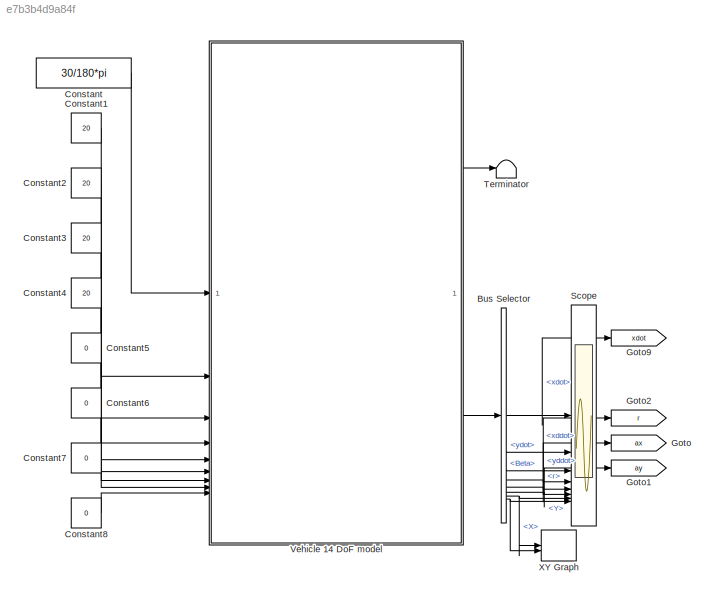
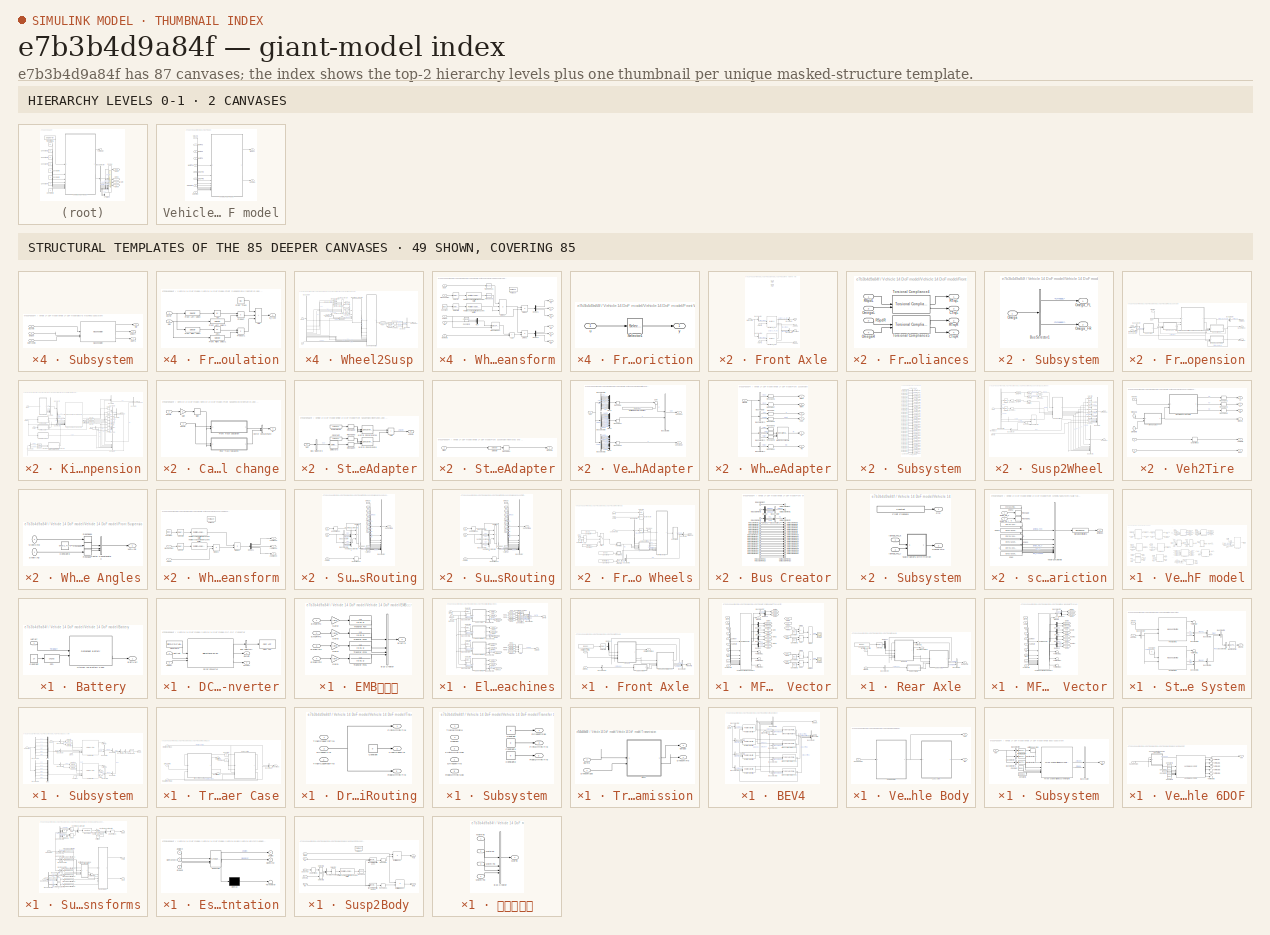
[diagram: thumbnail index - top-2 hierarchy levels (2 canvases) + 49 structural-template representatives of the remaining 85 canvases]
MODEL slx_e7b3b4d9a84f
KIND model
CONFIG AbsTol = auto
CONFIG EnableMultiTasking = off
CONFIG FixedStep = 0.001
CONFIG MaxStep = auto
CONFIG MinStep = auto
CONFIG RelTol = 1e-3
CONFIG SampleTimeConstraint = Unconstrained
CONFIG SolverName = ode4
CONFIG StartTime = 0.0
CONFIG StopTime = 100
BLOCK [BusSelector] Bus Selector
  OutputSignals = BdyFrm.Cg.Vel.xdot,BdyFrm.Cg.Vel.ydot,BdyFrm.Cg.Ang.Beta,BdyFrm.Cg.AngVel.r,BdyFrm.Cg.Acc.xddot,BdyFrm.Cg.Acc.yddot,InertFrm.Cg.Disp.X,InertFrm.Cg.Disp.Y
BLOCK [Constant] Constant
  Value = 30/180*pi
BLOCK [Constant] Constant1
  Value = 20
BLOCK [Constant] Constant2
  Value = 20
BLOCK [Constant] Constant3
  Value = 20
BLOCK [Constant] Constant4
  Value = 20
BLOCK [Constant] Constant5
  Value = 0
BLOCK [Constant] Constant6
  Value = 0
BLOCK [Constant] Constant7
  Value = 0
BLOCK [Constant] Constant8
  Value = 0
BLOCK [Goto] Goto
  GotoTag = ax
  TagVisibility = global
BLOCK [Goto] Goto1
  GotoTag = ay
  TagVisibility = global
BLOCK [Goto] Goto2
  GotoTag = r
  TagVisibility = global
BLOCK [Goto] Goto9
  GotoTag = xdot
  TagVisibility = global
BLOCK [Scope] Scope
  Floating = off
  NumInputPorts = 8
  ScopeSpecificationString = Simulink.scopes.TimeScopeBlockCfg('CurrentConfiguration', extmgr.ConfigurationSet(extmgr.Configuration('Core','General UI',true),extmgr.Configuration('Core','Source UI',true),extmgr.Configuration('Sources','WiredSimulink',true),extmgr.Configuration('Visuals','Time Domain',true,'SerializedDisplays',{struct('MinYLimReal','-24.92162','MaxYLimReal','163.81882','YLabelReal','','MinYLimMag','0.00000','M...<+1506ch>
BLOCK [Terminator] Terminator
BLOCK [SubSystem] Vehicle 14 DoF model
BLOCK [Inport] Vehicle 14 DoF model/EmbFlFrc
  Port = 6
BLOCK [Inport] Vehicle 14 DoF model/EmbFrFrc
  Port = 7
BLOCK [Inport] Vehicle 14 DoF model/EmbRlFrc
  Port = 8
BLOCK [Inport] Vehicle 14 DoF model/EmbRrFrc
  Port = 9
BLOCK [Outport] Vehicle 14 DoF model/IMUBus
BLOCK [Inport] Vehicle 14 DoF model/MotFlTq
  Port = 2
BLOCK [Inport] Vehicle 14 DoF model/MotFrTq
  Port = 3
BLOCK [Inport] Vehicle 14 DoF model/MotRlTq
  Port = 4
BLOCK [Inport] Vehicle 14 DoF model/MotRrTq
  Port = 5
BLOCK [Inport] Vehicle 14 DoF model/SwAng
BLOCK [Outport] Vehicle 14 DoF model/VehBus
  Port = 2
BLOCK [SubSystem] Vehicle 14 DoF model/Vehicle 14 DoF model
BLOCK [SubSystem] Vehicle 14 DoF model/Vehicle 14 DoF model/Battery
BLOCK [Outport] Vehicle 14 DoF model/Vehicle 14 DoF model/Battery/BattVolt
  VectorParamsAs1DForOutWhenUnconnected = off
BLOCK [Constant] Vehicle 14 DoF model/Vehicle 14 DoF model/Battery/Constant
  Value = 27
BLOCK [Fcn] Vehicle 14 DoF model/Vehicle 14 DoF model/Battery/Fcn
  Expr = u+273
BLOCK [Inport] Vehicle 14 DoF model/Vehicle 14 DoF model/Battery/LdCurr
BLOCK [Reference] Vehicle 14 DoF model/Vehicle 14 DoF model/Battery/Lithium Ion Battery Pack  REF=autolibdatasheetbattery/Datasheet Battery
  SourceBlock = autolibdatasheetbattery/Datasheet Battery
  SourceType = Datasheet Battery
BLOCK [BusCreator] Vehicle 14 DoF model/Vehicle 14 DoF model/Bus Creator
  DisplayOption = bar
  InheritFromInputs = on
  Inputs = 2
BLOCK [BusCreator] Vehicle 14 DoF model/Vehicle 14 DoF model/Bus Creator1
  DisplayOption = bar
  InheritFromInputs = on
  Inputs = 2
BLOCK [SubSystem] Vehicle 14 DoF model/Vehicle 14 DoF model/DC-DC Converter
BLOCK [Inport] Vehicle 14 DoF model/Vehicle 14 DoF model/DC-DC Converter/BattVolt
BLOCK [BusSelector] Vehicle 14 DoF model/Vehicle 14 DoF model/DC-DC Converter/Bus Selector1
  OutputAsBus = on
  OutputSignals = PwrLoss
BLOCK [Outport] Vehicle 14 DoF model/Vehicle 14 DoF model/DC-DC Converter/BusVolt
  VectorParamsAs1DForOutWhenUnconnected = off
BLOCK [Constant] Vehicle 14 DoF model/Vehicle 14 DoF model/DC-DC Converter/Constant3
  SampleTime = -1
  Value = PlntDCDCVoltInit
BLOCK [Reference] Vehicle 14 DoF model/Vehicle 14 DoF model/DC-DC Converter/Cont LPF  REF=autolibutils/Cont LPF
  SourceBlock = autolibutils/Cont LPF
BLOCK [Reference] Vehicle 14 DoF model/Vehicle 14 DoF model/DC-DC Converter/DC-DC Converter  REF=autolibdcdc/Bidirectional DC-DC
  SourceBlock = autolibdcdc/Bidirectional DC-DC
  SourceType = DcToDcConverter
BLOCK [Inport] Vehicle 14 DoF model/Vehicle 14 DoF model/DC-DC Converter/LdCurr
  Port = 2
BLOCK [Outport] Vehicle 14 DoF model/Vehicle 14 DoF model/DC-DC Converter/SrcCurr
  Port = 2
  VectorParamsAs1DForOutWhenUnconnected = off
BLOCK [SubSystem] Vehicle 14 DoF model/Vehicle 14 DoF model/EMB制动力
BLOCK [Outport] Vehicle 14 DoF model/Vehicle 14 DoF model/EMB制动力/BrkPrs
BLOCK [BusCreator] Vehicle 14 DoF model/Vehicle 14 DoF model/EMB制动力/Bus Creator
  DisplayOption = bar
  InheritFromInputs = on
  Inputs = 4
BLOCK [Inport] Vehicle 14 DoF model/Vehicle 14 DoF model/EMB制动力/EmbFlFrc
BLOCK [Inport] Vehicle 14 DoF model/Vehicle 14 DoF model/EMB制动力/EmbFrFrc
  Port = 2
BLOCK [Inport] Vehicle 14 DoF model/Vehicle 14 DoF model/EMB制动力/EmbRlFrc
  Port = 3
BLOCK [Inport] Vehicle 14 DoF model/Vehicle 14 DoF model/EMB制动力/EmbRrFrc
  Port = 4
BLOCK [Gain] Vehicle 14 DoF model/Vehicle 14 DoF model/EMB制动力/Gain1
  Gain = 1/(pi*0.145*0.145)
BLOCK [Gain] Vehicle 14 DoF model/Vehicle 14 DoF model/EMB制动力/Gain2
  Gain = 1/(pi*0.145*0.145)
BLOCK [Gain] Vehicle 14 DoF model/Vehicle 14 DoF model/EMB制动力/Gain3
  Gain = 1/(pi*0.145*0.145)
BLOCK [Gain] Vehicle 14 DoF model/Vehicle 14 DoF model/EMB制动力/Gain4
  Gain = 1/(pi*0.145*0.145)
BLOCK [TransferFcn] Vehicle 14 DoF model/Vehicle 14 DoF model/EMB制动力/Transfer Fcn
  Denominator = [0.01 1]
BLOCK [TransferFcn] Vehicle 14 DoF model/Vehicle 14 DoF model/EMB制动力/Transfer Fcn1
  Denominator = [0.01 1]
BLOCK [TransferFcn] Vehicle 14 DoF model/Vehicle 14 DoF model/EMB制动力/Transfer Fcn2
  Denominator = [0.01 1]
BLOCK [TransferFcn] Vehicle 14 DoF model/Vehicle 14 DoF model/EMB制动力/Transfer Fcn3
  Denominator = [0.01 1]
BLOCK [SubSystem] Vehicle 14 DoF model/Vehicle 14 DoF model/Electric Machines
BLOCK [Sum] Vehicle 14 DoF model/Vehicle 14 DoF model/Electric Machines/Add
  IconShape = rectangular
  Inputs = ++++
BLOCK [BusCreator] Vehicle 14 DoF model/Vehicle 14 DoF model/Electric Machines/Bus Creator
  DisplayOption = bar
  InheritFromInputs = on
  Inputs = 4
BLOCK [BusSelector] Vehicle 14 DoF model/Vehicle 14 DoF model/Electric Machines/Bus Selector
  OutputSignals = PwrLoss
BLOCK [BusSelector] Vehicle 14 DoF model/Vehicle 14 DoF model/Electric Machines/Bus Selector1
  OutputSignals = PwrLoss
BLOCK [BusSelector] Vehicle 14 DoF model/Vehicle 14 DoF model/Electric Machines/Bus Selector2
  OutputSignals = PwrLoss
BLOCK [BusSelector] Vehicle 14 DoF model/Vehicle 14 DoF model/Electric Machines/Bus Selector3
  OutputSignals = PwrLoss
BLOCK [BusSelector] Vehicle 14 DoF model/Vehicle 14 DoF model/Electric Machines/Bus Selector4
  OutputSignals = EMSpd1
BLOCK [BusSelector] Vehicle 14 DoF model/Vehicle 14 DoF model/Electric Machines/Bus Selector6
  OutputSignals = EMSpd2
BLOCK [BusSelector] Vehicle 14 DoF model/Vehicle 14 DoF model/Electric Machines/Bus Selector7
  OutputSignals = EMSpd3
BLOCK [BusSelector] Vehicle 14 DoF model/Vehicle 14 DoF model/Electric Machines/Bus Selector8
  OutputSignals = EMSpd4
BLOCK [Inport] Vehicle 14 DoF model/Vehicle 14 DoF model/Electric Machines/BusVolt
  Port = 2
BLOCK [TransferFcn] Vehicle 14 DoF model/Vehicle 14 DoF model/Electric Machines/Coupling Dynamics
  Denominator = [0.05 1]
  NameLocation = top
BLOCK [TransferFcn] Vehicle 14 DoF model/Vehicle 14 DoF model/Electric Machines/Coupling Dynamics1
  Denominator = [0.05 1]
BLOCK [TransferFcn] Vehicle 14 DoF model/Vehicle 14 DoF model/Electric Machines/Coupling Dynamics2
  Denominator = [0.05 1]
BLOCK [TransferFcn] Vehicle 14 DoF model/Vehicle 14 DoF model/Electric Machines/Coupling Dynamics3
  Denominator = [0.05 1]
BLOCK [Outport] Vehicle 14 DoF model/Vehicle 14 DoF model/Electric Machines/EMCurr
  Port = 2
BLOCK [Inport] Vehicle 14 DoF model/Vehicle 14 DoF model/Electric Machines/EMSpd
BLOCK [Outport] Vehicle 14 DoF model/Vehicle 14 DoF model/Electric Machines/EMTrq
BLOCK [From] Vehicle 14 DoF model/Vehicle 14 DoF model/Electric Machines/From
  GotoTag = EMTrq1
BLOCK [From] Vehicle 14 DoF model/Vehicle 14 DoF model/Electric Machines/From1
  GotoTag = EMCurr1
BLOCK [From] Vehicle 14 DoF model/Vehicle 14 DoF model/Electric Machines/From11
  GotoTag = EMCurr4
BLOCK [From] Vehicle 14 DoF model/Vehicle 14 DoF model/Electric Machines/From3
  GotoTag = EMTrq2
BLOCK [From] Vehicle 14 DoF model/Vehicle 14 DoF model/Electric Machines/From5
  GotoTag = EMCurr2
BLOCK [From] Vehicle 14 DoF model/Vehicle 14 DoF model/Electric Machines/From6
  GotoTag = EMTrq3
BLOCK [From] Vehicle 14 DoF model/Vehicle 14 DoF model/Electric Machines/From8
  GotoTag = EMCurr3
BLOCK [From] Vehicle 14 DoF model/Vehicle 14 DoF model/Electric Machines/From9
  GotoTag = EMTrq4
BLOCK [Goto] Vehicle 14 DoF model/Vehicle 14 DoF model/Electric Machines/Goto
  GotoTag = EMTrq1
BLOCK [Goto] Vehicle 14 DoF model/Vehicle 14 DoF model/Electric Machines/Goto1
  GotoTag = EMCurr1
BLOCK [Goto] Vehicle 14 DoF model/Vehicle 14 DoF model/Electric Machines/Goto10
  GotoTag = PwrLoss3
BLOCK [Goto] Vehicle 14 DoF model/Vehicle 14 DoF model/Electric Machines/Goto11
  GotoTag = PwrLoss4
BLOCK [Goto] Vehicle 14 DoF model/Vehicle 14 DoF model/Electric Machines/Goto2
  GotoTag = EMTrq2
BLOCK [Goto] Vehicle 14 DoF model/Vehicle 14 DoF model/Electric Machines/Goto3
  GotoTag = EMCurr2
BLOCK [Goto] Vehicle 14 DoF model/Vehicle 14 DoF model/Electric Machines/Goto4
  GotoTag = EMTrq3
BLOCK [Goto] Vehicle 14 DoF model/Vehicle 14 DoF model/Electric Machines/Goto5
  GotoTag = EMCurr3
BLOCK [Goto] Vehicle 14 DoF model/Vehicle 14 DoF model/Electric Machines/Goto6
  GotoTag = EMTrq4
BLOCK [Goto] Vehicle 14 DoF model/Vehicle 14 DoF model/Electric Machines/Goto7
  GotoTag = EMCurr4
BLOCK [Goto] Vehicle 14 DoF model/Vehicle 14 DoF model/Electric Machines/Goto8
  GotoTag = PwrLoss1
BLOCK [Goto] Vehicle 14 DoF model/Vehicle 14 DoF model/Electric Machines/Goto9
  GotoTag = PwrLoss2
BLOCK [Inport] Vehicle 14 DoF model/Vehicle 14 DoF model/Electric Machines/MotTq
  Port = 3
BLOCK [Selector] Vehicle 14 DoF model/Vehicle 14 DoF model/Electric Machines/Selector
  IndexOptions = Index vector (dialog)
  Indices = [1]
  InputPortWidth = 4
  OutputSizes = 1
BLOCK [Selector] Vehicle 14 DoF model/Vehicle 14 DoF model/Electric Machines/Selector2
  IndexOptions = Index vector (dialog)
  Indices = [2]
  InputPortWidth = 4
  OutputSizes = 1
BLOCK [Selector] Vehicle 14 DoF model/Vehicle 14 DoF model/Electric Machines/Selector4
  IndexOptions = Index vector (dialog)
  Indices = [3]
  InputPortWidth = 4
  OutputSizes = 1
BLOCK [Selector] Vehicle 14 DoF model/Vehicle 14 DoF model/Electric Machines/Selector6
  IndexOptions = Index vector (dialog)
  Indices = [4]
  InputPortWidth = 4
  OutputSizes = 1
BLOCK [SubSystem] Vehicle 14 DoF model/Vehicle 14 DoF model/Electric Machines/Subsystem
BLOCK [Inport] Vehicle 14 DoF model/Vehicle 14 DoF model/Electric Machines/Subsystem/BusVolt
  Port = 3
BLOCK [Outport] Vehicle 14 DoF model/Vehicle 14 DoF model/Electric Machines/Subsystem/EMCurr
  Port = 2
  VectorParamsAs1DForOutWhenUnconnected = off
BLOCK [Inport] Vehicle 14 DoF model/Vehicle 14 DoF model/Electric Machines/Subsystem/EMSpd
  Port = 2
BLOCK [Outport] Vehicle 14 DoF model/Vehicle 14 DoF model/Electric Machines/Subsystem/EMTrq
  VectorParamsAs1DForOutWhenUnconnected = off
BLOCK [Inport] Vehicle 14 DoF model/Vehicle 14 DoF model/Electric Machines/Subsystem/EMTrqCmd
BLOCK [Outport] Vehicle 14 DoF model/Vehicle 14 DoF model/Electric Machines/Subsystem/Info
  Port = 3
BLOCK [Reference] Vehicle 14 DoF model/Vehicle 14 DoF model/Electric Machines/Subsystem/Mapped Motor  REF=autolibmappedmotor/Mapped Motor
  SourceBlock = autolibmappedmotor/Mapped Motor
  SourceType = MappedMotor
BLOCK [SubSystem] Vehicle 14 DoF model/Vehicle 14 DoF model/Electric Machines/Subsystem1
BLOCK [Inport] Vehicle 14 DoF model/Vehicle 14 DoF model/Electric Machines/Subsystem1/BusVolt
  Port = 3
BLOCK [Outport] Vehicle 14 DoF model/Vehicle 14 DoF model/Electric Machines/Subsystem1/EMCurr
  Port = 2
  VectorParamsAs1DForOutWhenUnconnected = off
BLOCK [Inport] Vehicle 14 DoF model/Vehicle 14 DoF model/Electric Machines/Subsystem1/EMSpd
  Port = 2
BLOCK [Outport] Vehicle 14 DoF model/Vehicle 14 DoF model/Electric Machines/Subsystem1/EMTrq
  VectorParamsAs1DForOutWhenUnconnected = off
BLOCK [Inport] Vehicle 14 DoF model/Vehicle 14 DoF model/Electric Machines/Subsystem1/EMTrqCmd
BLOCK [Outport] Vehicle 14 DoF model/Vehicle 14 DoF model/Electric Machines/Subsystem1/Info
  Port = 3
BLOCK [Reference] Vehicle 14 DoF model/Vehicle 14 DoF model/Electric Machines/Subsystem1/Mapped Motor  REF=autolibmappedmotor/Mapped Motor
  SourceBlock = autolibmappedmotor/Mapped Motor
  SourceType = MappedMotor
BLOCK [SubSystem] Vehicle 14 DoF model/Vehicle 14 DoF model/Electric Machines/Subsystem2
BLOCK [Inport] Vehicle 14 DoF model/Vehicle 14 DoF model/Electric Machines/Subsystem2/BusVolt
  Port = 3
BLOCK [Outport] Vehicle 14 DoF model/Vehicle 14 DoF model/Electric Machines/Subsystem2/EMCurr
  Port = 2
  VectorParamsAs1DForOutWhenUnconnected = off
BLOCK [Inport] Vehicle 14 DoF model/Vehicle 14 DoF model/Electric Machines/Subsystem2/EMSpd
  Port = 2
BLOCK [Outport] Vehicle 14 DoF model/Vehicle 14 DoF model/Electric Machines/Subsystem2/EMTrq
  VectorParamsAs1DForOutWhenUnconnected = off
BLOCK [Inport] Vehicle 14 DoF model/Vehicle 14 DoF model/Electric Machines/Subsystem2/EMTrqCmd
BLOCK [Outport] Vehicle 14 DoF model/Vehicle 14 DoF model/Electric Machines/Subsystem2/Info
  Port = 3
BLOCK [Reference] Vehicle 14 DoF model/Vehicle 14 DoF model/Electric Machines/Subsystem2/Mapped Motor  REF=autolibmappedmotor/Mapped Motor
  SourceBlock = autolibmappedmotor/Mapped Motor
  SourceType = MappedMotor
BLOCK [SubSystem] Vehicle 14 DoF model/Vehicle 14 DoF model/Electric Machines/Subsystem3
BLOCK [Inport] Vehicle 14 DoF model/Vehicle 14 DoF model/Electric Machines/Subsystem3/BusVolt
  Port = 3
BLOCK [Outport] Vehicle 14 DoF model/Vehicle 14 DoF model/Electric Machines/Subsystem3/EMCurr
  Port = 2
  VectorParamsAs1DForOutWhenUnconnected = off
BLOCK [Inport] Vehicle 14 DoF model/Vehicle 14 DoF model/Electric Machines/Subsystem3/EMSpd
  Port = 2
BLOCK [Outport] Vehicle 14 DoF model/Vehicle 14 DoF model/Electric Machines/Subsystem3/EMTrq
  VectorParamsAs1DForOutWhenUnconnected = off
BLOCK [Inport] Vehicle 14 DoF model/Vehicle 14 DoF model/Electric Machines/Subsystem3/EMTrqCmd
BLOCK [Outport] Vehicle 14 DoF model/Vehicle 14 DoF model/Electric Machines/Subsystem3/Info
  Port = 3
BLOCK [Reference] Vehicle 14 DoF model/Vehicle 14 DoF model/Electric Machines/Subsystem3/Mapped Motor  REF=autolibmappedmotor/Mapped Motor
  SourceBlock = autolibmappedmotor/Mapped Motor
  SourceType = MappedMotor
BLOCK [Inport] Vehicle 14 DoF model/Vehicle 14 DoF model/EmbFlFrc
  Port = 6
BLOCK [Inport] Vehicle 14 DoF model/Vehicle 14 DoF model/EmbFrFrc
  Port = 7
BLOCK [Inport] Vehicle 14 DoF model/Vehicle 14 DoF model/EmbRlFrc
  Port = 8
BLOCK [Inport] Vehicle 14 DoF model/Vehicle 14 DoF model/EmbRrFrc
  Port = 9
BLOCK [From] Vehicle 14 DoF model/Vehicle 14 DoF model/From
  GotoTag = RearWheels
  NameLocation = top
BLOCK [From] Vehicle 14 DoF model/Vehicle 14 DoF model/From1
  GotoTag = Veh
BLOCK [From] Vehicle 14 DoF model/Vehicle 14 DoF model/From10
  GotoTag = EMSpd
BLOCK [From] Vehicle 14 DoF model/Vehicle 14 DoF model/From12
  GotoTag = FrntWheels
BLOCK [From] Vehicle 14 DoF model/Vehicle 14 DoF model/From13
  GotoTag = FrntDriveshftSpd
BLOCK [From] Vehicle 14 DoF model/Vehicle 14 DoF model/From14
  GotoTag = DriveshftTrq
BLOCK [From] Vehicle 14 DoF model/Vehicle 14 DoF model/From15
  GotoTag = RearDiffrntlTrq
BLOCK [From] Vehicle 14 DoF model/Vehicle 14 DoF model/From16
  GotoTag = RearAxlTrq
BLOCK [From] Vehicle 14 DoF model/Vehicle 14 DoF model/From17
  GotoTag = RearSuspSteer
BLOCK [From] Vehicle 14 DoF model/Vehicle 14 DoF model/From18
  GotoTag = WhlAng
BLOCK [From] Vehicle 14 DoF model/Vehicle 14 DoF model/From19
  GotoTag = FrntWheels
BLOCK [From] Vehicle 14 DoF model/Vehicle 14 DoF model/From2
  GotoTag = Veh
BLOCK [From] Vehicle 14 DoF model/Vehicle 14 DoF model/From20
  GotoTag = RearWheels
BLOCK [From] Vehicle 14 DoF model/Vehicle 14 DoF model/From21
  GotoTag = FrntSuspSteer
BLOCK [From] Vehicle 14 DoF model/Vehicle 14 DoF model/From22
  GotoTag = Veh
BLOCK [From] Vehicle 14 DoF model/Vehicle 14 DoF model/From23
  GotoTag = Susp
BLOCK [From] Vehicle 14 DoF model/Vehicle 14 DoF model/From29
  GotoTag = RearSusp
BLOCK [From] Vehicle 14 DoF model/Vehicle 14 DoF model/From3
  Commented = on
  GotoTag = Veh
BLOCK [From] Vehicle 14 DoF model/Vehicle 14 DoF model/From31
  GotoTag = RearSuspWheel
BLOCK [From] Vehicle 14 DoF model/Vehicle 14 DoF model/From32
  GotoTag = FrntSuspWheel
BLOCK [From] Vehicle 14 DoF model/Vehicle 14 DoF model/From33
  GotoTag = FrntWheels
BLOCK [From] Vehicle 14 DoF model/Vehicle 14 DoF model/From34
  GotoTag = BrkPrs
BLOCK [From] Vehicle 14 DoF model/Vehicle 14 DoF model/From35
  GotoTag = BrkPrs
BLOCK [From] Vehicle 14 DoF model/Vehicle 14 DoF model/From36
  GotoTag = RearWheels
BLOCK [From] Vehicle 14 DoF model/Vehicle 14 DoF model/From37
  GotoTag = RearDriveshftSpd
BLOCK [From] Vehicle 14 DoF model/Vehicle 14 DoF model/From38
  GotoTag = DriveshftSpd
BLOCK [From] Vehicle 14 DoF model/Vehicle 14 DoF model/From39
  GotoTag = FrntDiffrntlTrq
BLOCK [From] Vehicle 14 DoF model/Vehicle 14 DoF model/From4
  GotoTag = BattVolt
BLOCK [From] Vehicle 14 DoF model/Vehicle 14 DoF model/From40
  GotoTag = EMTrq
BLOCK [From] Vehicle 14 DoF model/Vehicle 14 DoF model/From41
  GotoTag = FrntAxlTrq
BLOCK [From] Vehicle 14 DoF model/Vehicle 14 DoF model/From42
  GotoTag = WhlAng
BLOCK [From] Vehicle 14 DoF model/Vehicle 14 DoF model/From43
  GotoTag = BusVolt
BLOCK [From] Vehicle 14 DoF model/Vehicle 14 DoF model/From5
  GotoTag = MotTq
BLOCK [From] Vehicle 14 DoF model/Vehicle 14 DoF model/From6
  GotoTag = FrntSusp
BLOCK [From] Vehicle 14 DoF model/Vehicle 14 DoF model/From7
  GotoTag = Veh
BLOCK [From] Vehicle 14 DoF model/Vehicle 14 DoF model/From8
  GotoTag = BattCurr
BLOCK [From] Vehicle 14 DoF model/Vehicle 14 DoF model/From9
  GotoTag = EMCurr
BLOCK [SubSystem] Vehicle 14 DoF model/Vehicle 14 DoF model/Front Axle
BLOCK [BusCreator] Vehicle 14 DoF model/Vehicle 14 DoF model/Front Axle/Bus Creator
  DisplayOption = bar
  InheritFromInputs = on
  Inputs = 2
BLOCK [BusSelector] Vehicle 14 DoF model/Vehicle 14 DoF model/Front Axle/Bus Selector
  OutputSignals = Wheels.Omega
BLOCK [Constant] Vehicle 14 DoF model/Vehicle 14 DoF model/Front Axle/Constant
  Value = [0 0 0 0]
BLOCK [Demux] Vehicle 14 DoF model/Vehicle 14 DoF model/Front Axle/Demux1
  Outputs = 2
BLOCK [Outport] Vehicle 14 DoF model/Vehicle 14 DoF model/Front Axle/FrntAxlTrq
  Port = 2
BLOCK [Outport] Vehicle 14 DoF model/Vehicle 14 DoF model/Front Axle/FrntDriveshftSpd
BLOCK [Inport] Vehicle 14 DoF model/Vehicle 14 DoF model/Front Axle/FrntDriveshftTrq
  Port = 2
BLOCK [SubSystem] Vehicle 14 DoF model/Vehicle 14 DoF model/Front Axle/Front Axle
BLOCK [SubSystem] Vehicle 14 DoF model/Vehicle 14 DoF model/Front Axle/Front Axle Compliances
BLOCK [Outport] Vehicle 14 DoF model/Vehicle 14 DoF model/Front Axle/Front Axle Compliances/CTrqL
  Port = 3
BLOCK [Outport] Vehicle 14 DoF model/Vehicle 14 DoF model/Front Axle/Front Axle Compliances/CTrqR
  Port = 4
BLOCK [Inport] Vehicle 14 DoF model/Vehicle 14 DoF model/Front Axle/Front Axle Compliances/OmegaL
  Port = 3
BLOCK [Inport] Vehicle 14 DoF model/Vehicle 14 DoF model/Front Axle/Front Axle Compliances/OmegaR
  Port = 4
BLOCK [Inport] Vehicle 14 DoF model/Vehicle 14 DoF model/Front Axle/Front Axle Compliances/RSpdL
BLOCK [Inport] Vehicle 14 DoF model/Vehicle 14 DoF model/Front Axle/Front Axle Compliances/RSpdR
  Port = 2
BLOCK [Outport] Vehicle 14 DoF model/Vehicle 14 DoF model/Front Axle/Front Axle Compliances/RTrqL
BLOCK [Outport] Vehicle 14 DoF model/Vehicle 14 DoF model/Front Axle/Front Axle Compliances/RTrqR
  Port = 2
BLOCK [Reference] Vehicle 14 DoF model/Vehicle 14 DoF model/Front Axle/Front Axle Compliances/Torsional Compliance4  REF=autolibsharedcoupling/Torsional Compliance
  SourceBlock = autolibsharedcoupling/Torsional Compliance
  SourceType = Torsional Compliance
BLOCK [Reference] Vehicle 14 DoF model/Vehicle 14 DoF model/Front Axle/Front Axle Compliances/Torsional Compliance5  REF=autolibsharedcoupling/Torsional Compliance
  SourceBlock = autolibsharedcoupling/Torsional Compliance
  SourceType = Torsional Compliance
BLOCK [Outport] Vehicle 14 DoF model/Vehicle 14 DoF model/Front Axle/Front Axle/Axl1Spd
  Port = 3
BLOCK [Inport] Vehicle 14 DoF model/Vehicle 14 DoF model/Front Axle/Front Axle/Axl1Trq
  Port = 4
BLOCK [Outport] Vehicle 14 DoF model/Vehicle 14 DoF model/Front Axle/Front Axle/Axl2Spd
  Port = 4
BLOCK [Inport] Vehicle 14 DoF model/Vehicle 14 DoF model/Front Axle/Front Axle/Axl2Trq
  Port = 5
BLOCK [BusCreator] Vehicle 14 DoF model/Vehicle 14 DoF model/Front Axle/Front Axle/Bus Creator
  DisplayOption = bar
  InheritFromInputs = on
  Inputs = 2
BLOCK [BusCreator] Vehicle 14 DoF model/Vehicle 14 DoF model/Front Axle/Front Axle/Bus Creator1
  DisplayOption = bar
  InheritFromInputs = on
  Inputs = 2
BLOCK [BusSelector] Vehicle 14 DoF model/Vehicle 14 DoF model/Front Axle/Front Axle/Bus Selector
  OutputSignals = DriveshftTrq1
BLOCK [BusSelector] Vehicle 14 DoF model/Vehicle 14 DoF model/Front Axle/Front Axle/Bus Selector1
  OutputSignals = DriveshftTrq2
BLOCK [Outport] Vehicle 14 DoF model/Vehicle 14 DoF model/Front Axle/Front Axle/DriveshftSpd
  Port = 2
BLOCK [Inport] Vehicle 14 DoF model/Vehicle 14 DoF model/Front Axle/Front Axle/DriveshftTrq
  Port = 3
BLOCK [Reference] Vehicle 14 DoF model/Vehicle 14 DoF model/Front Axle/Front Axle/Gearbox_FL  REF=autolibcoupling/Gearbox
  SourceBlock = autolibcoupling/Gearbox
  SourceType = Gearbox
BLOCK [Reference] Vehicle 14 DoF model/Vehicle 14 DoF model/Front Axle/Front Axle/Gearbox_FR  REF=autolibcoupling/Gearbox
  SourceBlock = autolibcoupling/Gearbox
  SourceType = Gearbox
BLOCK [Outport] Vehicle 14 DoF model/Vehicle 14 DoF model/Front Axle/Front Axle/Info
BLOCK [Inport] Vehicle 14 DoF model/Vehicle 14 DoF model/Front Axle/Front Axle/Prs1
BLOCK [Inport] Vehicle 14 DoF model/Vehicle 14 DoF model/Front Axle/Front Axle/Prs2
  Port = 2
BLOCK [Inport] Vehicle 14 DoF model/Vehicle 14 DoF model/Front Axle/Omega
BLOCK [Selector] Vehicle 14 DoF model/Vehicle 14 DoF model/Front Axle/Selector1
  IndexOptions = Index vector (dialog)
  Indices = [3 4]
  InputPortWidth = 4
  OutputSizes = 1
BLOCK [SubSystem] Vehicle 14 DoF model/Vehicle 14 DoF model/Front Axle/Subsystem
BLOCK [BusSelector] Vehicle 14 DoF model/Vehicle 14 DoF model/Front Axle/Subsystem/Bus Selector1
  OutputSignals = OmegaL,OmegaR
BLOCK [Inport] Vehicle 14 DoF model/Vehicle 14 DoF model/Front Axle/Subsystem/Omega
BLOCK [Outport] Vehicle 14 DoF model/Vehicle 14 DoF model/Front Axle/Subsystem/Omega_FL
BLOCK [Outport] Vehicle 14 DoF model/Vehicle 14 DoF model/Front Axle/Subsystem/Omega_FR
  Port = 2
BLOCK [SubSystem] Vehicle 14 DoF model/Vehicle 14 DoF model/Front Suspension
BLOCK [BusCreator] Vehicle 14 DoF model/Vehicle 14 DoF model/Front Suspension/Bus Creator
  DisplayOption = bar
  InheritFromInputs = on
  Inputs = 2
BLOCK [BusSelector] Vehicle 14 DoF model/Vehicle 14 DoF model/Front Suspension/Bus Selector
  OutputSignals = Wheels
BLOCK [BusSelector] Vehicle 14 DoF model/Vehicle 14 DoF model/Front Suspension/Bus Selector1
  OutputSignals = Wheels
BLOCK [Outport] Vehicle 14 DoF model/Vehicle 14 DoF model/Front Suspension/FrntSusp
  Port = 3
BLOCK [Inport] Vehicle 14 DoF model/Vehicle 14 DoF model/Front Suspension/FrntWheels
  Port = 3
BLOCK [SubSystem] Vehicle 14 DoF model/Vehicle 14 DoF model/Front Suspension/Kinematics and Compliance Independent Suspension
BLOCK [BusCreator] Vehicle 14 DoF model/Vehicle 14 DoF model/Front Suspension/Kinematics and Compliance Independent Suspension/Bus Creator1
  DisplayOption = bar
  InheritFromInputs = on
  Inputs = 6
BLOCK [BusCreator] Vehicle 14 DoF model/Vehicle 14 DoF model/Front Suspension/Kinematics and Compliance Independent Suspension/Bus Creator2
  DisplayOption = bar
  InheritFromInputs = on
  Inputs = 2
BLOCK [BusCreator] Vehicle 14 DoF model/Vehicle 14 DoF model/Front Suspension/Kinematics and Compliance Independent Suspension/Bus Creator3
  DisplayOption = bar
  InheritFromInputs = on
  Inputs = 2
BLOCK [BusCreator] Vehicle 14 DoF model/Vehicle 14 DoF model/Front Suspension/Kinematics and Compliance Independent Suspension/Bus Creator4
  DisplayOption = bar
  InheritFromInputs = on
  Inputs = 6
BLOCK [BusCreator] Vehicle 14 DoF model/Vehicle 14 DoF model/Front Suspension/Kinematics and Compliance Independent Suspension/Bus Creator5
  DisplayOption = bar
  InheritFromInputs = on
  Inputs = 2
BLOCK [BusCreator] Vehicle 14 DoF model/Vehicle 14 DoF model/Front Suspension/Kinematics and Compliance Independent Suspension/Bus Creator6
  DisplayOption = bar
  InheritFromInputs = on
  Inputs = 2
BLOCK [BusCreator] Vehicle 14 DoF model/Vehicle 14 DoF model/Front Suspension/Kinematics and Compliance Independent Suspension/Bus Creator7
  DisplayOption = bar
  InheritFromInputs = on
  Inputs = 6
BLOCK [BusSelector] Vehicle 14 DoF model/Vehicle 14 DoF model/Front Suspension/Kinematics and Compliance Independent Suspension/Bus Selector
  OutputSignals = z,Re,zdot,Fx,Fy,M
BLOCK [BusSelector] Vehicle 14 DoF model/Vehicle 14 DoF model/Front Suspension/Kinematics and Compliance Independent Suspension/Bus Selector1
  OutputSignals = P,V
BLOCK [BusSelector] Vehicle 14 DoF model/Vehicle 14 DoF model/Front Suspension/Kinematics and Compliance Independent Suspension/Bus Selector2
  OutputSignals = SuspFrame.z
BLOCK [BusSelector] Vehicle 14 DoF model/Vehicle 14 DoF model/Front Suspension/Kinematics and Compliance Independent Suspension/Bus Selector3
  OutputSignals = dWhlY,Height
BLOCK [BusSelector] Vehicle 14 DoF model/Vehicle 14 DoF model/Front Suspension/Kinematics and Compliance Independent Suspension/Bus Selector4
  OutputSignals = InertFrm.Cg.Ang.phi
BLOCK [SubSystem] Vehicle 14 DoF model/Vehicle 14 DoF model/Front Suspension/Kinematics and Compliance Independent Suspension/Calculate dynamic track width from lateral wheel center displacement change
BLOCK [SubSystem] Vehicle 14 DoF model/Vehicle 14 DoF model/Front Suspension/Kinematics and Compliance Independent Suspension/Calculate dynamic track width from lateral wheel center displacement change/Front Track Calculation
BLOCK [Abs] Vehicle 14 DoF model/Vehicle 14 DoF model/Front Suspension/Kinematics and Compliance Independent Suspension/Calculate dynamic track width from lateral wheel center displacement change/Front Track Calculation/Abs
  SaturateOnIntegerOverflow = off
  ZeroCross = off
BLOCK [Abs] Vehicle 14 DoF model/Vehicle 14 DoF model/Front Suspension/Kinematics and Compliance Independent Suspension/Calculate dynamic track width from lateral wheel center displacement change/Front Track Calculation/Abs1
  SaturateOnIntegerOverflow = off
  ZeroCross = off
BLOCK [Sum] Vehicle 14 DoF model/Vehicle 14 DoF model/Front Suspension/Kinematics and Compliance Independent Suspension/Calculate dynamic track width from lateral wheel center displacement change/Front Track Calculation/Add
  IconShape = rectangular
  Inputs = +++
BLOCK [Selector] Vehicle 14 DoF model/Vehicle 14 DoF model/Front Suspension/Kinematics and Compliance Independent Suspension/Calculate dynamic track width from lateral wheel center displacement change/Front Track Calculation/Front Left select
  IndexOptions = Index vector (dialog)
  Indices = 1
  InputPortWidth = 4
  OutputSizes = 1
BLOCK [Selector] Vehicle 14 DoF model/Vehicle 14 DoF model/Front Suspension/Kinematics and Compliance Independent Suspension/Calculate dynamic track width from lateral wheel center displacement change/Front Track Calculation/Front Left select1
  IndexOptions = Index vector (dialog)
  Indices = 1
  InputPortWidth = 4
  OutputSizes = 1
BLOCK [Selector] Vehicle 14 DoF model/Vehicle 14 DoF model/Front Suspension/Kinematics and Compliance Independent Suspension/Calculate dynamic track width from lateral wheel center displacement change/Front Track Calculation/Front Right select
  IndexOptions = Index vector (dialog)
  Indices = 2
  InputPortWidth = 4
  OutputSizes = 1
BLOCK [Selector] Vehicle 14 DoF model/Vehicle 14 DoF model/Front Suspension/Kinematics and Compliance Independent Suspension/Calculate dynamic track width from lateral wheel center displacement change/Front Track Calculation/Front Right select1
  IndexOptions = Index vector (dialog)
  Indices = 2
  InputPortWidth = 4
  OutputSizes = 1
BLOCK [Constant] Vehicle 14 DoF model/Vehicle 14 DoF model/Front Suspension/Kinematics and Compliance Independent Suspension/Calculate dynamic track width from lateral wheel center displacement change/Front Track Calculation/Front Track
  SampleTime = -1
  Value = w(1)
BLOCK [Product] Vehicle 14 DoF model/Vehicle 14 DoF model/Front Suspension/Kinematics and Compliance Independent Suspension/Calculate dynamic track width from lateral wheel center displacement change/Front Track Calculation/Product
BLOCK [Product] Vehicle 14 DoF model/Vehicle 14 DoF model/Front Suspension/Kinematics and Compliance Independent Suspension/Calculate dynamic track width from lateral wheel center displacement change/Front Track Calculation/Product1
BLOCK [Inport] Vehicle 14 DoF model/Vehicle 14 DoF model/Front Suspension/Kinematics and Compliance Independent Suspension/Calculate dynamic track width from lateral wheel center displacement change/Front Track Calculation/dWhlY
BLOCK [Inport] Vehicle 14 DoF model/Vehicle 14 DoF model/Front Suspension/Kinematics and Compliance Independent Suspension/Calculate dynamic track width from lateral wheel center displacement change/Front Track Calculation/sign
  Port = 2
BLOCK [Outport] Vehicle 14 DoF model/Vehicle 14 DoF model/Front Suspension/Kinematics and Compliance Independent Suspension/Calculate dynamic track width from lateral wheel center displacement change/Front Track Calculation/w_front
BLOCK [Gain] Vehicle 14 DoF model/Vehicle 14 DoF model/Front Suspension/Kinematics and Compliance Independent Suspension/Calculate dynamic track width from lateral wheel center displacement change/Gain
  Gain = -1
BLOCK [SubSystem] Vehicle 14 DoF model/Vehicle 14 DoF model/Front Suspension/Kinematics and Compliance Independent Suspension/Calculate dynamic track width from lateral wheel center displacement change/Rear Track Calculation
BLOCK [Abs] Vehicle 14 DoF model/Vehicle 14 DoF model/Front Suspension/Kinematics and Compliance Independent Suspension/Calculate dynamic track width from lateral wheel center displacement change/Rear Track Calculation/Abs2
  SaturateOnIntegerOverflow = off
  ZeroCross = off
BLOCK [Abs] Vehicle 14 DoF model/Vehicle 14 DoF model/Front Suspension/Kinematics and Compliance Independent Suspension/Calculate dynamic track width from lateral wheel center displacement change/Rear Track Calculation/Abs3
  SaturateOnIntegerOverflow = off
  ZeroCross = off
BLOCK [Sum] Vehicle 14 DoF model/Vehicle 14 DoF model/Front Suspension/Kinematics and Compliance Independent Suspension/Calculate dynamic track width from lateral wheel center displacement change/Rear Track Calculation/Add1
  IconShape = rectangular
  Inputs = +++
BLOCK [Product] Vehicle 14 DoF model/Vehicle 14 DoF model/Front Suspension/Kinematics and Compliance Independent Suspension/Calculate dynamic track width from lateral wheel center displacement change/Rear Track Calculation/Product2
BLOCK [Product] Vehicle 14 DoF model/Vehicle 14 DoF model/Front Suspension/Kinematics and Compliance Independent Suspension/Calculate dynamic track width from lateral wheel center displacement change/Rear Track Calculation/Product3
BLOCK [Selector] Vehicle 14 DoF model/Vehicle 14 DoF model/Front Suspension/Kinematics and Compliance Independent Suspension/Calculate dynamic track width from lateral wheel center displacement change/Rear Track Calculation/Rear Left select
  IndexOptions = Index vector (dialog)
  Indices = 3
  InputPortWidth = 4
  OutputSizes = 1
BLOCK [Selector] Vehicle 14 DoF model/Vehicle 14 DoF model/Front Suspension/Kinematics and Compliance Independent Suspension/Calculate dynamic track width from lateral wheel center displacement change/Rear Track Calculation/Rear Left select1
  IndexOptions = Index vector (dialog)
  Indices = 3
  InputPortWidth = 4
  OutputSizes = 1
BLOCK [Selector] Vehicle 14 DoF model/Vehicle 14 DoF model/Front Suspension/Kinematics and Compliance Independent Suspension/Calculate dynamic track width from lateral wheel center displacement change/Rear Track Calculation/Rear Right select
  IndexOptions = Index vector (dialog)
  Indices = 4
  InputPortWidth = 4
  OutputSizes = 1
BLOCK [Selector] Vehicle 14 DoF model/Vehicle 14 DoF model/Front Suspension/Kinematics and Compliance Independent Suspension/Calculate dynamic track width from lateral wheel center displacement change/Rear Track Calculation/Rear Right select1
  IndexOptions = Index vector (dialog)
  Indices = 4
  InputPortWidth = 4
  OutputSizes = 1
BLOCK [Constant] Vehicle 14 DoF model/Vehicle 14 DoF model/Front Suspension/Kinematics and Compliance Independent Suspension/Calculate dynamic track width from lateral wheel center displacement change/Rear Track Calculation/Rear Track
  SampleTime = -1
  Value = w(2)
BLOCK [Inport] Vehicle 14 DoF model/Vehicle 14 DoF model/Front Suspension/Kinematics and Compliance Independent Suspension/Calculate dynamic track width from lateral wheel center displacement change/Rear Track Calculation/dWhlY
BLOCK [Inport] Vehicle 14 DoF model/Vehicle 14 DoF model/Front Suspension/Kinematics and Compliance Independent Suspension/Calculate dynamic track width from lateral wheel center displacement change/Rear Track Calculation/sign
  Port = 2
BLOCK [Outport] Vehicle 14 DoF model/Vehicle 14 DoF model/Front Suspension/Kinematics and Compliance Independent Suspension/Calculate dynamic track width from lateral wheel center displacement change/Rear Track Calculation/w_rear
BLOCK [Signum] Vehicle 14 DoF model/Vehicle 14 DoF model/Front Suspension/Kinematics and Compliance Independent Suspension/Calculate dynamic track width from lateral wheel center displacement change/Sign
  ZeroCross = off
BLOCK [Concatenate] Vehicle 14 DoF model/Vehicle 14 DoF model/Front Suspension/Kinematics and Compliance Independent Suspension/Calculate dynamic track width from lateral wheel center displacement change/Vector Concatenate
BLOCK [Inport] Vehicle 14 DoF model/Vehicle 14 DoF model/Front Suspension/Kinematics and Compliance Independent Suspension/Calculate dynamic track width from lateral wheel center displacement change/dWhlY
BLOCK [Inport] Vehicle 14 DoF model/Vehicle 14 DoF model/Front Suspension/Kinematics and Compliance Independent Suspension/Calculate dynamic track width from lateral wheel center displacement change/dWhlZ
  Port = 2
BLOCK [Outport] Vehicle 14 DoF model/Vehicle 14 DoF model/Front Suspension/Kinematics and Compliance Independent Suspension/Calculate dynamic track width from lateral wheel center displacement change/w
BLOCK [Reference] Vehicle 14 DoF model/Vehicle 14 DoF model/Front Suspension/Kinematics and Compliance Independent Suspension/Cont LPF  REF=autolibutils/Cont LPF
  SourceBlock = autolibutils/Cont LPF
BLOCK [Reference] Vehicle 14 DoF model/Vehicle 14 DoF model/Front Suspension/Kinematics and Compliance Independent Suspension/Cont LPF2  REF=autolibutils/Cont LPF
  SourceBlock = autolibutils/Cont LPF
BLOCK [Reference] Vehicle 14 DoF model/Vehicle 14 DoF model/Front Suspension/Kinematics and Compliance Independent Suspension/Independent K and C Suspension  REF=vehdynlibsuspension/Independent Suspension - K and C
  SourceBlock = vehdynlibsuspension/Independent Suspension - K and C
  SourceType = Vehicle suspension
BLOCK [Selector] Vehicle 14 DoF model/Vehicle 14 DoF model/Front Suspension/Kinematics and Compliance Independent Suspension/Selector1
  IndexOptions = Index vector (dialog),Select all
  Indices = 1,1
  NumberOfDimensions = 2
  OutputSizes = 1,1
BLOCK [Selector] Vehicle 14 DoF model/Vehicle 14 DoF model/Front Suspension/Kinematics and Compliance Independent Suspension/Selector10
  IndexOptions = Index vector (dialog)
  Indices = [1 2]
  InputPortWidth = 4
  OutputSizes = 1
BLOCK [Selector] Vehicle 14 DoF model/Vehicle 14 DoF model/Front Suspension/Kinematics and Compliance Independent Suspension/Selector2
  IndexOptions = Index vector (dialog),Select all
  Indices = 2,1
  NumberOfDimensions = 2
  OutputSizes = 1,1
BLOCK [Selector] Vehicle 14 DoF model/Vehicle 14 DoF model/Front Suspension/Kinematics and Compliance Independent Suspension/Selector3
  IndexOptions = Index vector (dialog),Index vector (dialog)
  Indices = [1 2 3],[1 2]
  InputPortWidth = 4
  NumberOfDimensions = 2
  OutputSizes = 1,1
BLOCK [Selector] Vehicle 14 DoF model/Vehicle 14 DoF model/Front Suspension/Kinematics and Compliance Independent Suspension/Selector4
  IndexOptions = Index vector (dialog),Index vector (dialog)
  Indices = [1 2 3],[1 2]
  InputPortWidth = 4
  NumberOfDimensions = 2
  OutputSizes = 1,1
BLOCK [Selector] Vehicle 14 DoF model/Vehicle 14 DoF model/Front Suspension/Kinematics and Compliance Independent Suspension/Selector5
  IndexOptions = Index vector (dialog),Index vector (dialog)
  Indices = [1 2 3],[1 2]
  InputPortWidth = 4
  NumberOfDimensions = 2
  OutputSizes = 1,1
BLOCK [Selector] Vehicle 14 DoF model/Vehicle 14 DoF model/Front Suspension/Kinematics and Compliance Independent Suspension/Selector6
  IndexOptions = Index vector (dialog),Index vector (dialog)
  Indices = [1 2 3],[1 2]
  InputPortWidth = 4
  NumberOfDimensions = 2
  OutputSizes = 1,1
BLOCK [Selector] Vehicle 14 DoF model/Vehicle 14 DoF model/Front Suspension/Kinematics and Compliance Independent Suspension/Selector7
  IndexOptions = Index vector (dialog)
  Indices = [1 2]
  InputPortWidth = 4
  OutputSizes = 1
BLOCK [Selector] Vehicle 14 DoF model/Vehicle 14 DoF model/Front Suspension/Kinematics and Compliance Independent Suspension/Selector8
  IndexOptions = Index vector (dialog)
  Indices = [1 2]
  InputPortWidth = 4
  OutputSizes = 1
BLOCK [Selector] Vehicle 14 DoF model/Vehicle 14 DoF model/Front Suspension/Kinematics and Compliance Independent Suspension/Selector9
  IndexOptions = Index vector (dialog),Index vector (dialog)
  Indices = [1 2 3],[1 2]
  InputPortWidth = 4
  NumberOfDimensions = 2
  OutputSizes = 1,1
BLOCK [SubSystem] Vehicle 14 DoF model/Vehicle 14 DoF model/Front Suspension/Kinematics and Compliance Independent Suspension/Steer Rate Adapter
BLOCK [Sum] Vehicle 14 DoF model/Vehicle 14 DoF model/Front Suspension/Kinematics and Compliance Independent Suspension/Steer Rate Adapter/Add
  IconShape = rectangular
BLOCK [Outport] Vehicle 14 DoF model/Vehicle 14 DoF model/Front Suspension/Kinematics and Compliance Independent Suspension/Steer Rate Adapter/AngVel
  VectorParamsAs1DForOutWhenUnconnected = off
BLOCK [BusSelector] Vehicle 14 DoF model/Vehicle 14 DoF model/Front Suspension/Kinematics and Compliance Independent Suspension/Steer Rate Adapter/Bus Selector3
  OutputSignals = BdyFrm.Cg.AngVel.r
BLOCK [Constant] Vehicle 14 DoF model/Vehicle 14 DoF model/Front Suspension/Kinematics and Compliance Independent Suspension/Steer Rate Adapter/Constant
  SampleTime = -1
  Value = zeros(1,4)
BLOCK [Concatenate] Vehicle 14 DoF model/Vehicle 14 DoF model/Front Suspension/Kinematics and Compliance Independent Suspension/Steer Rate Adapter/Matrix Concatenate
  Mode = Multidimensional array
  NumInputs = 3
BLOCK [Concatenate] Vehicle 14 DoF model/Vehicle 14 DoF model/Front Suspension/Kinematics and Compliance Independent Suspension/Steer Rate Adapter/Matrix Concatenate1
  Mode = Multidimensional array
  NumInputs = 3
BLOCK [Reshape] Vehicle 14 DoF model/Vehicle 14 DoF model/Front Suspension/Kinematics and Compliance Independent Suspension/Steer Rate Adapter/Reshape2
  OutputDimensionality = Row vector (2-D)
BLOCK [Reshape] Vehicle 14 DoF model/Vehicle 14 DoF model/Front Suspension/Kinematics and Compliance Independent Suspension/Steer Rate Adapter/Reshape3
  OutputDimensionality = Row vector (2-D)
BLOCK [Reshape] Vehicle 14 DoF model/Vehicle 14 DoF model/Front Suspension/Kinematics and Compliance Independent Suspension/Steer Rate Adapter/Reshape4
  OutputDimensionality = Row vector (2-D)
BLOCK [Selector] Vehicle 14 DoF model/Vehicle 14 DoF model/Front Suspension/Kinematics and Compliance Independent Suspension/Steer Rate Adapter/Selector3
  IndexOptions = Index vector (dialog)
  Indices = [1 1 1 1]
  InputPortWidth = 1
  OutputSizes = 1
BLOCK [Constant] Vehicle 14 DoF model/Vehicle 14 DoF model/Front Suspension/Kinematics and Compliance Independent Suspension/Steer Rate Adapter/SteerRates
  SampleTime = -1
  Value = zeros(1,4)
BLOCK [Inport] Vehicle 14 DoF model/Vehicle 14 DoF model/Front Suspension/Kinematics and Compliance Independent Suspension/Steer Rate Adapter/Veh
BLOCK [Inport] Vehicle 14 DoF model/Vehicle 14 DoF model/Front Suspension/Kinematics and Compliance Independent Suspension/Steering
BLOCK [SubSystem] Vehicle 14 DoF model/Vehicle 14 DoF model/Front Suspension/Kinematics and Compliance Independent Suspension/Steering Adapter
BLOCK [Reshape] Vehicle 14 DoF model/Vehicle 14 DoF model/Front Suspension/Kinematics and Compliance Independent Suspension/Steering Adapter/Reshape1
  OutputDimensionality = Row vector (2-D)
BLOCK [Selector] Vehicle 14 DoF model/Vehicle 14 DoF model/Front Suspension/Kinematics and Compliance Independent Suspension/Steering Adapter/Selector
  IndexOptions = Index vector (dialog)
  Indices = [1 2]
  OutputSizes = 1
BLOCK [Inport] Vehicle 14 DoF model/Vehicle 14 DoF model/Front Suspension/Kinematics and Compliance Independent Suspension/Steering Adapter/Steer
BLOCK [Outport] Vehicle 14 DoF model/Vehicle 14 DoF model/Front Suspension/Kinematics and Compliance Independent Suspension/Steering Adapter/StrgAng
  VectorParamsAs1DForOutWhenUnconnected = off
BLOCK [Outport] Vehicle 14 DoF model/Vehicle 14 DoF model/Front Suspension/Kinematics and Compliance Independent Suspension/Suspension
  VectorParamsAs1DForOutWhenUnconnected = off
BLOCK [Outport] Vehicle 14 DoF model/Vehicle 14 DoF model/Front Suspension/Kinematics and Compliance Independent Suspension/SuspensionFull
  Port = 2
  VectorParamsAs1DForOutWhenUnconnected = off
BLOCK [Terminator] Vehicle 14 DoF model/Vehicle 14 DoF model/Front Suspension/Kinematics and Compliance Independent Suspension/Terminator1
BLOCK [Inport] Vehicle 14 DoF model/Vehicle 14 DoF model/Front Suspension/Kinematics and Compliance Independent Suspension/Vehicle
  Port = 2
BLOCK [SubSystem] Vehicle 14 DoF model/Vehicle 14 DoF model/Front Suspension/Kinematics and Compliance Independent Suspension/Vehicle Adapter
BLOCK [BusCreator] Vehicle 14 DoF model/Vehicle 14 DoF model/Front Suspension/Kinematics and Compliance Independent Suspension/Vehicle Adapter/Bus Creator3
  DisplayOption = bar
  InheritFromInputs = on
  Inputs = 2
BLOCK [BusSelector] Vehicle 14 DoF model/Vehicle 14 DoF model/Front Suspension/Kinematics and Compliance Independent Suspension/Vehicle Adapter/Bus Selector1
  OutputSignals = InertFrm.FrntAxl.Lft.Disp.X,InertFrm.FrntAxl.Lft.Disp.Y,InertFrm.FrntAxl.Lft.Disp.Z,InertFrm.FrntAxl.Rght.Disp.X,InertFrm.FrntAxl.Rght.Disp.Y,InertFrm.FrntAxl.Rght.Disp.Z,InertFrm.RearAxl.Lft.Disp.X,InertFrm.RearAxl.Lft.Disp.Y,InertFrm.RearAxl.Lft.Disp.Z,InertFrm.RearAxl.Rght.Disp.X,InertFrm.RearAxl.Rght.Disp.Y,InertFrm.RearAxl.Rght.Disp.Z
BLOCK [BusSelector] Vehicle 14 DoF model/Vehicle 14 DoF model/Front Suspension/Kinematics and Compliance Independent Suspension/Vehicle Adapter/Bus Selector2
  OutputSignals = BdyFrm.FrntAxl.Lft.Vel.xdot,BdyFrm.FrntAxl.Lft.Vel.ydot,BdyFrm.FrntAxl.Lft.Vel.zdot,BdyFrm.FrntAxl.Rght.Vel.xdot,BdyFrm.FrntAxl.Rght.Vel.ydot,BdyFrm.FrntAxl.Rght.Vel.zdot,BdyFrm.RearAxl.Lft.Vel.xdot,BdyFrm.RearAxl.Lft.Vel.ydot,BdyFrm.RearAxl.Lft.Vel.zdot,BdyFrm.RearAxl.Rght.Vel.xdot,BdyFrm.RearAxl.Rght.Vel.ydot,BdyFrm.RearAxl.Rght.Vel.zdot
BLOCK [BusSelector] Vehicle 14 DoF model/Vehicle 14 DoF model/Front Suspension/Kinematics and Compliance Independent Suspension/Vehicle Adapter/Bus Selector3
  OutputSignals = InertFrm.FrntAxl.Lft.Vel.Xdot,InertFrm.FrntAxl.Lft.Vel.Ydot,InertFrm.FrntAxl.Lft.Vel.Zdot,InertFrm.FrntAxl.Rght.Vel.Xdot,InertFrm.FrntAxl.Rght.Vel.Ydot,InertFrm.FrntAxl.Rght.Vel.Zdot,InertFrm.RearAxl.Lft.Vel.Xdot,InertFrm.RearAxl.Lft.Vel.Ydot,InertFrm.RearAxl.Lft.Vel.Zdot,InertFrm.RearAxl.Rght.Vel.Xdot,InertFrm.RearAxl.Rght.Vel.Ydot,InertFrm.RearAxl.Rght.Vel.Zdot
BLOCK [Constant] Vehicle 14 DoF model/Vehicle 14 DoF model/Front Suspension/Kinematics and Compliance Independent Suspension/Vehicle Adapter/Inertial Frame CG to Axle Offset
  SampleTime = -1
  Value = [zeros(2,4);PlntVehCGHgtAxl*ones(1,4)]
BLOCK [Mux] Vehicle 14 DoF model/Vehicle 14 DoF model/Front Suspension/Kinematics and Compliance Independent Suspension/Vehicle Adapter/Mux1
  DisplayOption = bar
  Inputs = 12
BLOCK [Mux] Vehicle 14 DoF model/Vehicle 14 DoF model/Front Suspension/Kinematics and Compliance Independent Suspension/Vehicle Adapter/Mux2
  DisplayOption = bar
  Inputs = 12
BLOCK [Mux] Vehicle 14 DoF model/Vehicle 14 DoF model/Front Suspension/Kinematics and Compliance Independent Suspension/Vehicle Adapter/Mux3
  DisplayOption = bar
  Inputs = 12
BLOCK [Reshape] Vehicle 14 DoF model/Vehicle 14 DoF model/Front Suspension/Kinematics and Compliance Independent Suspension/Vehicle Adapter/Reshape
  OutputDimensionality = Customize
  OutputDimensions = [3,4]
BLOCK [Reshape] Vehicle 14 DoF model/Vehicle 14 DoF model/Front Suspension/Kinematics and Compliance Independent Suspension/Vehicle Adapter/Reshape1
  OutputDimensionality = Customize
  OutputDimensions = [3,4]
BLOCK [Reshape] Vehicle 14 DoF model/Vehicle 14 DoF model/Front Suspension/Kinematics and Compliance Independent Suspension/Vehicle Adapter/Reshape2
  OutputDimensionality = Customize
  OutputDimensions = [3,4]
BLOCK [Sum] Vehicle 14 DoF model/Vehicle 14 DoF model/Front Suspension/Kinematics and Compliance Independent Suspension/Vehicle Adapter/Sum
  Inputs = |+-
BLOCK [Inport] Vehicle 14 DoF model/Vehicle 14 DoF model/Front Suspension/Kinematics and Compliance Independent Suspension/Vehicle Adapter/Veh
BLOCK [Outport] Vehicle 14 DoF model/Vehicle 14 DoF model/Front Suspension/Kinematics and Compliance Independent Suspension/Vehicle Adapter/VehSusp
  VectorParamsAs1DForOutWhenUnconnected = off
BLOCK [Outport] Vehicle 14 DoF model/Vehicle 14 DoF model/Front Suspension/Kinematics and Compliance Independent Suspension/Vehicle Adapter/VehVbody
  Port = 2
  VectorParamsAs1DForOutWhenUnconnected = off
BLOCK [Inport] Vehicle 14 DoF model/Vehicle 14 DoF model/Front Suspension/Kinematics and Compliance Independent Suspension/Wheel
  Port = 3
BLOCK [SubSystem] Vehicle 14 DoF model/Vehicle 14 DoF model/Front Suspension/Kinematics and Compliance Independent Suspension/Wheel  Adapter
BLOCK [BusSelector] Vehicle 14 DoF model/Vehicle 14 DoF model/Front Suspension/Kinematics and Compliance Independent Suspension/Wheel  Adapter/Bus Selector
  OutputSignals = SuspFrame.Fx,SuspFrame.Fy
BLOCK [BusSelector] Vehicle 14 DoF model/Vehicle 14 DoF model/Front Suspension/Kinematics and Compliance Independent Suspension/Wheel  Adapter/Bus Selector1
  OutputSignals = SuspFrame.Re
BLOCK [BusSelector] Vehicle 14 DoF model/Vehicle 14 DoF model/Front Suspension/Kinematics and Compliance Independent Suspension/Wheel  Adapter/Bus Selector2
  OutputSignals = SuspFrame.Mx,SuspFrame.My,SuspFrame.Mz
BLOCK [BusSelector] Vehicle 14 DoF model/Vehicle 14 DoF model/Front Suspension/Kinematics and Compliance Independent Suspension/Wheel  Adapter/Bus Selector3
  OutputSignals = SuspFrame.z,SuspFrame.zdot
BLOCK [Outport] Vehicle 14 DoF model/Vehicle 14 DoF model/Front Suspension/Kinematics and Compliance Independent Suspension/Wheel  Adapter/M
  Port = 5
  VectorParamsAs1DForOutWhenUnconnected = off
BLOCK [Concatenate] Vehicle 14 DoF model/Vehicle 14 DoF model/Front Suspension/Kinematics and Compliance Independent Suspension/Wheel  Adapter/Matrix Concatenate
  Mode = Multidimensional array
  NumInputs = 3
BLOCK [Outport] Vehicle 14 DoF model/Vehicle 14 DoF model/Front Suspension/Kinematics and Compliance Independent Suspension/Wheel  Adapter/Re
  Port = 6
  VectorParamsAs1DForOutWhenUnconnected = off
BLOCK [Reshape] Vehicle 14 DoF model/Vehicle 14 DoF model/Front Suspension/Kinematics and Compliance Independent Suspension/Wheel  Adapter/Reshape
  OutputDimensionality = Row vector (2-D)
BLOCK [Reshape] Vehicle 14 DoF model/Vehicle 14 DoF model/Front Suspension/Kinematics and Compliance Independent Suspension/Wheel  Adapter/Reshape1
  OutputDimensionality = Row vector (2-D)
BLOCK [Reshape] Vehicle 14 DoF model/Vehicle 14 DoF model/Front Suspension/Kinematics and Compliance Independent Suspension/Wheel  Adapter/Reshape2
  OutputDimensionality = Row vector (2-D)
BLOCK [Reshape] Vehicle 14 DoF model/Vehicle 14 DoF model/Front Suspension/Kinematics and Compliance Independent Suspension/Wheel  Adapter/Reshape3
  OutputDimensionality = Row vector (2-D)
BLOCK [Reshape] Vehicle 14 DoF model/Vehicle 14 DoF model/Front Suspension/Kinematics and Compliance Independent Suspension/Wheel  Adapter/Reshape4
  OutputDimensionality = Row vector (2-D)
BLOCK [Reshape] Vehicle 14 DoF model/Vehicle 14 DoF model/Front Suspension/Kinematics and Compliance Independent Suspension/Wheel  Adapter/Reshape5
  OutputDimensionality = Row vector (2-D)
BLOCK [Reshape] Vehicle 14 DoF model/Vehicle 14 DoF model/Front Suspension/Kinematics and Compliance Independent Suspension/Wheel  Adapter/Reshape6
  OutputDimensionality = Row vector (2-D)
BLOCK [Reshape] Vehicle 14 DoF model/Vehicle 14 DoF model/Front Suspension/Kinematics and Compliance Independent Suspension/Wheel  Adapter/Reshape7
  OutputDimensionality = Row vector (2-D)
BLOCK [Inport] Vehicle 14 DoF model/Vehicle 14 DoF model/Front Suspension/Kinematics and Compliance Independent Suspension/Wheel  Adapter/Wheels
BLOCK [Outport] Vehicle 14 DoF model/Vehicle 14 DoF model/Front Suspension/Kinematics and Compliance Independent Suspension/Wheel  Adapter/WhlFx
  VectorParamsAs1DForOutWhenUnconnected = off
BLOCK [Outport] Vehicle 14 DoF model/Vehicle 14 DoF model/Front Suspension/Kinematics and Compliance Independent Suspension/Wheel  Adapter/WhlFy
  Port = 2
  VectorParamsAs1DForOutWhenUnconnected = off
BLOCK [Outport] Vehicle 14 DoF model/Vehicle 14 DoF model/Front Suspension/Kinematics and Compliance Independent Suspension/Wheel  Adapter/z
  Port = 3
  VectorParamsAs1DForOutWhenUnconnected = off
BLOCK [Outport] Vehicle 14 DoF model/Vehicle 14 DoF model/Front Suspension/Kinematics and Compliance Independent Suspension/Wheel  Adapter/zdot
  Port = 4
  VectorParamsAs1DForOutWhenUnconnected = off
BLOCK [InportShadow] Vehicle 14 DoF model/Vehicle 14 DoF model/Front Suspension/Kinematics and Compliance Independent Suspension/Wheel1
  Port = 3
BLOCK [Inport] Vehicle 14 DoF model/Vehicle 14 DoF model/Front Suspension/RearWheels
  Port = 4
BLOCK [Inport] Vehicle 14 DoF model/Vehicle 14 DoF model/Front Suspension/Steering
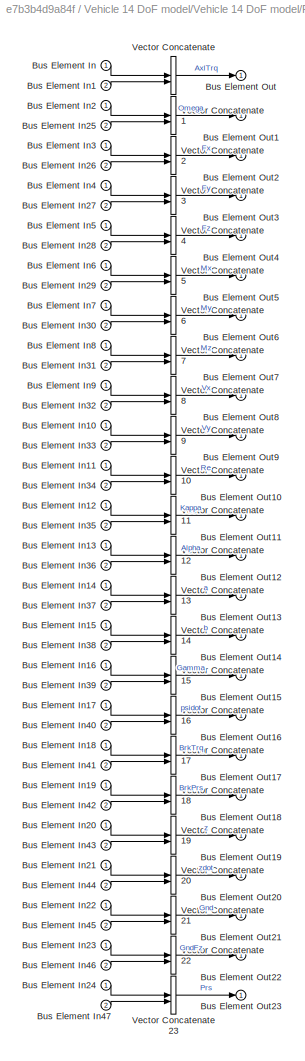
BLOCK [SubSystem] Vehicle 14 DoF model/Vehicle 14 DoF model/Front Suspension/Subsystem
BLOCK [Inport] Vehicle 14 DoF model/Vehicle 14 DoF model/Front Suspension/Subsystem/Bus Element In
BLOCK [Inport] Vehicle 14 DoF model/Vehicle 14 DoF model/Front Suspension/Subsystem/Bus Element In1
  Port = 2
BLOCK [Inport] Vehicle 14 DoF model/Vehicle 14 DoF model/Front Suspension/Subsystem/Bus Element In10
BLOCK [Inport] Vehicle 14 DoF model/Vehicle 14 DoF model/Front Suspension/Subsystem/Bus Element In11
BLOCK [Inport] Vehicle 14 DoF model/Vehicle 14 DoF model/Front Suspension/Subsystem/Bus Element In12
BLOCK [Inport] Vehicle 14 DoF model/Vehicle 14 DoF model/Front Suspension/Subsystem/Bus Element In13
BLOCK [Inport] Vehicle 14 DoF model/Vehicle 14 DoF model/Front Suspension/Subsystem/Bus Element In14
BLOCK [Inport] Vehicle 14 DoF model/Vehicle 14 DoF model/Front Suspension/Subsystem/Bus Element In15
BLOCK [Inport] Vehicle 14 DoF model/Vehicle 14 DoF model/Front Suspension/Subsystem/Bus Element In16
BLOCK [Inport] Vehicle 14 DoF model/Vehicle 14 DoF model/Front Suspension/Subsystem/Bus Element In17
BLOCK [Inport] Vehicle 14 DoF model/Vehicle 14 DoF model/Front Suspension/Subsystem/Bus Element In18
BLOCK [Inport] Vehicle 14 DoF model/Vehicle 14 DoF model/Front Suspension/Subsystem/Bus Element In19
BLOCK [Inport] Vehicle 14 DoF model/Vehicle 14 DoF model/Front Suspension/Subsystem/Bus Element In2
BLOCK [Inport] Vehicle 14 DoF model/Vehicle 14 DoF model/Front Suspension/Subsystem/Bus Element In20
BLOCK [Inport] Vehicle 14 DoF model/Vehicle 14 DoF model/Front Suspension/Subsystem/Bus Element In21
BLOCK [Inport] Vehicle 14 DoF model/Vehicle 14 DoF model/Front Suspension/Subsystem/Bus Element In22
BLOCK [Inport] Vehicle 14 DoF model/Vehicle 14 DoF model/Front Suspension/Subsystem/Bus Element In23
BLOCK [Inport] Vehicle 14 DoF model/Vehicle 14 DoF model/Front Suspension/Subsystem/Bus Element In24
BLOCK [Inport] Vehicle 14 DoF model/Vehicle 14 DoF model/Front Suspension/Subsystem/Bus Element In25
  Port = 2
BLOCK [Inport] Vehicle 14 DoF model/Vehicle 14 DoF model/Front Suspension/Subsystem/Bus Element In26
  Port = 2
BLOCK [Inport] Vehicle 14 DoF model/Vehicle 14 DoF model/Front Suspension/Subsystem/Bus Element In27
  Port = 2
BLOCK [Inport] Vehicle 14 DoF model/Vehicle 14 DoF model/Front Suspension/Subsystem/Bus Element In28
  Port = 2
BLOCK [Inport] Vehicle 14 DoF model/Vehicle 14 DoF model/Front Suspension/Subsystem/Bus Element In29
  Port = 2
BLOCK [Inport] Vehicle 14 DoF model/Vehicle 14 DoF model/Front Suspension/Subsystem/Bus Element In3
BLOCK [Inport] Vehicle 14 DoF model/Vehicle 14 DoF model/Front Suspension/Subsystem/Bus Element In30
  Port = 2
BLOCK [Inport] Vehicle 14 DoF model/Vehicle 14 DoF model/Front Suspension/Subsystem/Bus Element In31
  Port = 2
BLOCK [Inport] Vehicle 14 DoF model/Vehicle 14 DoF model/Front Suspension/Subsystem/Bus Element In32
  Port = 2
BLOCK [Inport] Vehicle 14 DoF model/Vehicle 14 DoF model/Front Suspension/Subsystem/Bus Element In33
  Port = 2
BLOCK [Inport] Vehicle 14 DoF model/Vehicle 14 DoF model/Front Suspension/Subsystem/Bus Element In34
  Port = 2
BLOCK [Inport] Vehicle 14 DoF model/Vehicle 14 DoF model/Front Suspension/Subsystem/Bus Element In35
  Port = 2
BLOCK [Inport] Vehicle 14 DoF model/Vehicle 14 DoF model/Front Suspension/Subsystem/Bus Element In36
  Port = 2
BLOCK [Inport] Vehicle 14 DoF model/Vehicle 14 DoF model/Front Suspension/Subsystem/Bus Element In37
  Port = 2
BLOCK [Inport] Vehicle 14 DoF model/Vehicle 14 DoF model/Front Suspension/Subsystem/Bus Element In38
  Port = 2
BLOCK [Inport] Vehicle 14 DoF model/Vehicle 14 DoF model/Front Suspension/Subsystem/Bus Element In39
  Port = 2
BLOCK [Inport] Vehicle 14 DoF model/Vehicle 14 DoF model/Front Suspension/Subsystem/Bus Element In4
BLOCK [Inport] Vehicle 14 DoF model/Vehicle 14 DoF model/Front Suspension/Subsystem/Bus Element In40
  Port = 2
BLOCK [Inport] Vehicle 14 DoF model/Vehicle 14 DoF model/Front Suspension/Subsystem/Bus Element In41
  Port = 2
BLOCK [Inport] Vehicle 14 DoF model/Vehicle 14 DoF model/Front Suspension/Subsystem/Bus Element In42
  Port = 2
BLOCK [Inport] Vehicle 14 DoF model/Vehicle 14 DoF model/Front Suspension/Subsystem/Bus Element In43
  Port = 2
BLOCK [Inport] Vehicle 14 DoF model/Vehicle 14 DoF model/Front Suspension/Subsystem/Bus Element In44
  Port = 2
BLOCK [Inport] Vehicle 14 DoF model/Vehicle 14 DoF model/Front Suspension/Subsystem/Bus Element In45
  Port = 2
BLOCK [Inport] Vehicle 14 DoF model/Vehicle 14 DoF model/Front Suspension/Subsystem/Bus Element In46
  Port = 2
BLOCK [Inport] Vehicle 14 DoF model/Vehicle 14 DoF model/Front Suspension/Subsystem/Bus Element In47
  Port = 2
BLOCK [Inport] Vehicle 14 DoF model/Vehicle 14 DoF model/Front Suspension/Subsystem/Bus Element In5
BLOCK [Inport] Vehicle 14 DoF model/Vehicle 14 DoF model/Front Suspension/Subsystem/Bus Element In6
BLOCK [Inport] Vehicle 14 DoF model/Vehicle 14 DoF model/Front Suspension/Subsystem/Bus Element In7
BLOCK [Inport] Vehicle 14 DoF model/Vehicle 14 DoF model/Front Suspension/Subsystem/Bus Element In8
BLOCK [Inport] Vehicle 14 DoF model/Vehicle 14 DoF model/Front Suspension/Subsystem/Bus Element In9
BLOCK [Outport] Vehicle 14 DoF model/Vehicle 14 DoF model/Front Suspension/Subsystem/Bus Element Out
BLOCK [Outport] Vehicle 14 DoF model/Vehicle 14 DoF model/Front Suspension/Subsystem/Bus Element Out1
BLOCK [Outport] Vehicle 14 DoF model/Vehicle 14 DoF model/Front Suspension/Subsystem/Bus Element Out10
BLOCK [Outport] Vehicle 14 DoF model/Vehicle 14 DoF model/Front Suspension/Subsystem/Bus Element Out11
BLOCK [Outport] Vehicle 14 DoF model/Vehicle 14 DoF model/Front Suspension/Subsystem/Bus Element Out12
BLOCK [Outport] Vehicle 14 DoF model/Vehicle 14 DoF model/Front Suspension/Subsystem/Bus Element Out13
BLOCK [Outport] Vehicle 14 DoF model/Vehicle 14 DoF model/Front Suspension/Subsystem/Bus Element Out14
BLOCK [Outport] Vehicle 14 DoF model/Vehicle 14 DoF model/Front Suspension/Subsystem/Bus Element Out15
BLOCK [Outport] Vehicle 14 DoF model/Vehicle 14 DoF model/Front Suspension/Subsystem/Bus Element Out16
BLOCK [Outport] Vehicle 14 DoF model/Vehicle 14 DoF model/Front Suspension/Subsystem/Bus Element Out17
BLOCK [Outport] Vehicle 14 DoF model/Vehicle 14 DoF model/Front Suspension/Subsystem/Bus Element Out18
BLOCK [Outport] Vehicle 14 DoF model/Vehicle 14 DoF model/Front Suspension/Subsystem/Bus Element Out19
BLOCK [Outport] Vehicle 14 DoF model/Vehicle 14 DoF model/Front Suspension/Subsystem/Bus Element Out2
BLOCK [Outport] Vehicle 14 DoF model/Vehicle 14 DoF model/Front Suspension/Subsystem/Bus Element Out20
BLOCK [Outport] Vehicle 14 DoF model/Vehicle 14 DoF model/Front Suspension/Subsystem/Bus Element Out21
BLOCK [Outport] Vehicle 14 DoF model/Vehicle 14 DoF model/Front Suspension/Subsystem/Bus Element Out22
BLOCK [Outport] Vehicle 14 DoF model/Vehicle 14 DoF model/Front Suspension/Subsystem/Bus Element Out23
BLOCK [Outport] Vehicle 14 DoF model/Vehicle 14 DoF model/Front Suspension/Subsystem/Bus Element Out3
BLOCK [Outport] Vehicle 14 DoF model/Vehicle 14 DoF model/Front Suspension/Subsystem/Bus Element Out4
BLOCK [Outport] Vehicle 14 DoF model/Vehicle 14 DoF model/Front Suspension/Subsystem/Bus Element Out5
BLOCK [Outport] Vehicle 14 DoF model/Vehicle 14 DoF model/Front Suspension/Subsystem/Bus Element Out6
BLOCK [Outport] Vehicle 14 DoF model/Vehicle 14 DoF model/Front Suspension/Subsystem/Bus Element Out7
BLOCK [Outport] Vehicle 14 DoF model/Vehicle 14 DoF model/Front Suspension/Subsystem/Bus Element Out8
BLOCK [Outport] Vehicle 14 DoF model/Vehicle 14 DoF model/Front Suspension/Subsystem/Bus Element Out9
BLOCK [Concatenate] Vehicle 14 DoF model/Vehicle 14 DoF model/Front Suspension/Subsystem/Vector Concatenate
BLOCK [Concatenate] Vehicle 14 DoF model/Vehicle 14 DoF model/Front Suspension/Subsystem/Vector Concatenate1
BLOCK [Concatenate] Vehicle 14 DoF model/Vehicle 14 DoF model/Front Suspension/Subsystem/Vector Concatenate10
BLOCK [Concatenate] Vehicle 14 DoF model/Vehicle 14 DoF model/Front Suspension/Subsystem/Vector Concatenate11
BLOCK [Concatenate] Vehicle 14 DoF model/Vehicle 14 DoF model/Front Suspension/Subsystem/Vector Concatenate12
BLOCK [Concatenate] Vehicle 14 DoF model/Vehicle 14 DoF model/Front Suspension/Subsystem/Vector Concatenate13
BLOCK [Concatenate] Vehicle 14 DoF model/Vehicle 14 DoF model/Front Suspension/Subsystem/Vector Concatenate14
BLOCK [Concatenate] Vehicle 14 DoF model/Vehicle 14 DoF model/Front Suspension/Subsystem/Vector Concatenate15
BLOCK [Concatenate] Vehicle 14 DoF model/Vehicle 14 DoF model/Front Suspension/Subsystem/Vector Concatenate16
BLOCK [Concatenate] Vehicle 14 DoF model/Vehicle 14 DoF model/Front Suspension/Subsystem/Vector Concatenate17
BLOCK [Concatenate] Vehicle 14 DoF model/Vehicle 14 DoF model/Front Suspension/Subsystem/Vector Concatenate18
BLOCK [Concatenate] Vehicle 14 DoF model/Vehicle 14 DoF model/Front Suspension/Subsystem/Vector Concatenate19
BLOCK [Concatenate] Vehicle 14 DoF model/Vehicle 14 DoF model/Front Suspension/Subsystem/Vector Concatenate2
BLOCK [Concatenate] Vehicle 14 DoF model/Vehicle 14 DoF model/Front Suspension/Subsystem/Vector Concatenate20
BLOCK [Concatenate] Vehicle 14 DoF model/Vehicle 14 DoF model/Front Suspension/Subsystem/Vector Concatenate21
BLOCK [Concatenate] Vehicle 14 DoF model/Vehicle 14 DoF model/Front Suspension/Subsystem/Vector Concatenate22
BLOCK [Concatenate] Vehicle 14 DoF model/Vehicle 14 DoF model/Front Suspension/Subsystem/Vector Concatenate23
BLOCK [Concatenate] Vehicle 14 DoF model/Vehicle 14 DoF model/Front Suspension/Subsystem/Vector Concatenate3
BLOCK [Concatenate] Vehicle 14 DoF model/Vehicle 14 DoF model/Front Suspension/Subsystem/Vector Concatenate4
BLOCK [Concatenate] Vehicle 14 DoF model/Vehicle 14 DoF model/Front Suspension/Subsystem/Vector Concatenate5
BLOCK [Concatenate] Vehicle 14 DoF model/Vehicle 14 DoF model/Front Suspension/Subsystem/Vector Concatenate6
BLOCK [Concatenate] Vehicle 14 DoF model/Vehicle 14 DoF model/Front Suspension/Subsystem/Vector Concatenate7
BLOCK [Concatenate] Vehicle 14 DoF model/Vehicle 14 DoF model/Front Suspension/Subsystem/Vector Concatenate8
BLOCK [Concatenate] Vehicle 14 DoF model/Vehicle 14 DoF model/Front Suspension/Subsystem/Vector Concatenate9
BLOCK [SubSystem] Vehicle 14 DoF model/Vehicle 14 DoF model/Front Suspension/Susp2Wheel
BLOCK [BusCreator] Vehicle 14 DoF model/Vehicle 14 DoF model/Front Suspension/Susp2Wheel/Bus Creator
  DisplayOption = bar
  InheritFromInputs = on
  Inputs = 8
BLOCK [BusCreator] Vehicle 14 DoF model/Vehicle 14 DoF model/Front Suspension/Susp2Wheel/Bus Creator1
  DisplayOption = bar
  InheritFromInputs = on
  Inputs = 8
BLOCK [BusSelector] Vehicle 14 DoF model/Vehicle 14 DoF model/Front Suspension/Susp2Wheel/Bus Selector
  OutputSignals = SuspFrame.zdot,SuspFrame.dz
BLOCK [BusSelector] Vehicle 14 DoF model/Vehicle 14 DoF model/Front Suspension/Susp2Wheel/Bus Selector1
  OutputSignals = Whl.Ang,Whl.F,Whl.AngVel,Whl.xdot,Whl.ydot
BLOCK [Reference] Vehicle 14 DoF model/Vehicle 14 DoF model/Front Suspension/Susp2Wheel/Cont LPF  REF=autolibutils/Cont LPF
  SourceBlock = autolibutils/Cont LPF
BLOCK [Reference] Vehicle 14 DoF model/Vehicle 14 DoF model/Front Suspension/Susp2Wheel/Cont LPF1  REF=autolibutils/Cont LPF
  SourceBlock = autolibutils/Cont LPF
BLOCK [Concatenate] Vehicle 14 DoF model/Vehicle 14 DoF model/Front Suspension/Susp2Wheel/Matrix Concatenate
  Mode = Multidimensional array
  NumInputs = 3
BLOCK [Reshape] Vehicle 14 DoF model/Vehicle 14 DoF model/Front Suspension/Susp2Wheel/Reshape1
BLOCK [Reshape] Vehicle 14 DoF model/Vehicle 14 DoF model/Front Suspension/Susp2Wheel/Reshape2
BLOCK [Reshape] Vehicle 14 DoF model/Vehicle 14 DoF model/Front Suspension/Susp2Wheel/Reshape3
BLOCK [Reshape] Vehicle 14 DoF model/Vehicle 14 DoF model/Front Suspension/Susp2Wheel/Reshape4
BLOCK [Reshape] Vehicle 14 DoF model/Vehicle 14 DoF model/Front Suspension/Susp2Wheel/Reshape5
  OutputDimensionality = Row vector (2-D)
BLOCK [Saturate] Vehicle 14 DoF model/Vehicle 14 DoF model/Front Suspension/Susp2Wheel/Saturation
  LowerLimit = -10*9.81*2000
  UpperLimit = inf
  ZeroCross = off
BLOCK [Selector] Vehicle 14 DoF model/Vehicle 14 DoF model/Front Suspension/Susp2Wheel/Selector
  IndexOptions = Index vector (dialog),Select all
  Indices = [3],1
  InputPortWidth = 3
  NumberOfDimensions = 2
  OutputSizes = 1,1
BLOCK [Selector] Vehicle 14 DoF model/Vehicle 14 DoF model/Front Suspension/Susp2Wheel/Selector1
  IndexOptions = Index vector (dialog),Select all
  Indices = [3],1
  InputPortWidth = 1
  NumberOfDimensions = 2
  OutputSizes = 1,1
BLOCK [Selector] Vehicle 14 DoF model/Vehicle 14 DoF model/Front Suspension/Susp2Wheel/Selector10
  IndexOptions = Index vector (dialog)
  Indices = [1 2]
  InputPortWidth = 4
  OutputSizes = 1
BLOCK [Selector] Vehicle 14 DoF model/Vehicle 14 DoF model/Front Suspension/Susp2Wheel/Selector2
  IndexOptions = Index vector (dialog),Select all
  Indices = 3,1
  InputPortWidth = 3
  NumberOfDimensions = 2
  OutputSizes = 1,1
BLOCK [Selector] Vehicle 14 DoF model/Vehicle 14 DoF model/Front Suspension/Susp2Wheel/Selector3
  IndexOptions = Index vector (dialog),Select all
  Indices = 1,1
  InputPortWidth = 3
  NumberOfDimensions = 2
  OutputSizes = 1,1
BLOCK [Selector] Vehicle 14 DoF model/Vehicle 14 DoF model/Front Suspension/Susp2Wheel/Selector4
  IndexOptions = Index vector (dialog)
  Indices = [1 2]
  InputPortWidth = 4
  OutputSizes = 1
BLOCK [Selector] Vehicle 14 DoF model/Vehicle 14 DoF model/Front Suspension/Susp2Wheel/Selector5
  IndexOptions = Index vector (dialog)
  Indices = [1 2]
  InputPortWidth = 4
  OutputSizes = 1
BLOCK [Selector] Vehicle 14 DoF model/Vehicle 14 DoF model/Front Suspension/Susp2Wheel/Selector6
  IndexOptions = Index vector (dialog)
  Indices = [1 2]
  InputPortWidth = 4
  OutputSizes = 1
BLOCK [Selector] Vehicle 14 DoF model/Vehicle 14 DoF model/Front Suspension/Susp2Wheel/Selector7
  IndexOptions = Index vector (dialog)
  Indices = [1 2]
  InputPortWidth = 4
  OutputSizes = 1
BLOCK [Selector] Vehicle 14 DoF model/Vehicle 14 DoF model/Front Suspension/Susp2Wheel/Selector8
  IndexOptions = Index vector (dialog)
  Indices = [1 2]
  InputPortWidth = 4
  OutputSizes = 1
BLOCK [Selector] Vehicle 14 DoF model/Vehicle 14 DoF model/Front Suspension/Susp2Wheel/Selector9
  IndexOptions = Index vector (dialog),Index vector (dialog)
  Indices = [1 2 3],[1 2]
  InputPortWidth = 4
  NumberOfDimensions = 2
  OutputSizes = 1,1
BLOCK [Inport] Vehicle 14 DoF model/Vehicle 14 DoF model/Front Suspension/Susp2Wheel/Susp
BLOCK [Outport] Vehicle 14 DoF model/Vehicle 14 DoF model/Front Suspension/Susp2Wheel/SuspFdbk
  Port = 2
BLOCK [Outport] Vehicle 14 DoF model/Vehicle 14 DoF model/Front Suspension/Susp2Wheel/SuspWheel
BLOCK [SubSystem] Vehicle 14 DoF model/Vehicle 14 DoF model/Front Suspension/Susp2Wheel/Veh2Tire
BLOCK [Outport] Vehicle 14 DoF model/Vehicle 14 DoF model/Front Suspension/Susp2Wheel/Veh2Tire/Fext
  Port = 6
  Unit = N
  VectorParamsAs1DForOutWhenUnconnected = off
BLOCK [Inport] Vehicle 14 DoF model/Vehicle 14 DoF model/Front Suspension/Susp2Wheel/Veh2Tire/Fz
  Port = 3
BLOCK [Reshape] Vehicle 14 DoF model/Vehicle 14 DoF model/Front Suspension/Susp2Wheel/Veh2Tire/Reshape1
BLOCK [Reshape] Vehicle 14 DoF model/Vehicle 14 DoF model/Front Suspension/Susp2Wheel/Veh2Tire/Reshape2
BLOCK [Reshape] Vehicle 14 DoF model/Vehicle 14 DoF model/Front Suspension/Susp2Wheel/Veh2Tire/Reshape5
BLOCK [Inport] Vehicle 14 DoF model/Vehicle 14 DoF model/Front Suspension/Susp2Wheel/Veh2Tire/SteerAng
BLOCK [Inport] Vehicle 14 DoF model/Vehicle 14 DoF model/Front Suspension/Susp2Wheel/Veh2Tire/SteerCmb
  Port = 2
BLOCK [UnaryMinus] Vehicle 14 DoF model/Vehicle 14 DoF model/Front Suspension/Susp2Wheel/Veh2Tire/Unary Minus
BLOCK [Inport] Vehicle 14 DoF model/Vehicle 14 DoF model/Front Suspension/Susp2Wheel/Veh2Tire/VehVel
  Port = 5
BLOCK [Outport] Vehicle 14 DoF model/Vehicle 14 DoF model/Front Suspension/Susp2Wheel/Veh2Tire/Vx
  Port = 3
  Unit = m/s
  VectorParamsAs1DForOutWhenUnconnected = off
BLOCK [Outport] Vehicle 14 DoF model/Vehicle 14 DoF model/Front Suspension/Susp2Wheel/Veh2Tire/Vy
  Port = 4
  Unit = m/s
  VectorParamsAs1DForOutWhenUnconnected = off
BLOCK [Outport] Vehicle 14 DoF model/Vehicle 14 DoF model/Front Suspension/Susp2Wheel/Veh2Tire/Vz
  Port = 5
  Unit = m/s
  VectorParamsAs1DForOutWhenUnconnected = off
BLOCK [SubSystem] Vehicle 14 DoF model/Vehicle 14 DoF model/Front Suspension/Susp2Wheel/Veh2Tire/Wheel Angles
BLOCK [Constant] Vehicle 14 DoF model/Vehicle 14 DoF model/Front Suspension/Susp2Wheel/Veh2Tire/Wheel Angles/Constant3
  SampleTime = -1
  Value = ones(1,4).*0
BLOCK [Reshape] Vehicle 14 DoF model/Vehicle 14 DoF model/Front Suspension/Susp2Wheel/Veh2Tire/Wheel Angles/Reshape
  OutputDimensionality = Row vector (2-D)
BLOCK [Reshape] Vehicle 14 DoF model/Vehicle 14 DoF model/Front Suspension/Susp2Wheel/Veh2Tire/Wheel Angles/Reshape1
  OutputDimensionality = Row vector (2-D)
BLOCK [Reshape] Vehicle 14 DoF model/Vehicle 14 DoF model/Front Suspension/Susp2Wheel/Veh2Tire/Wheel Angles/Reshape2
  OutputDimensionality = Row vector (2-D)
BLOCK [Inport] Vehicle 14 DoF model/Vehicle 14 DoF model/Front Suspension/Susp2Wheel/Veh2Tire/Wheel Angles/SteerAng
  NameLocation = top
BLOCK [Inport] Vehicle 14 DoF model/Vehicle 14 DoF model/Front Suspension/Susp2Wheel/Veh2Tire/Wheel Angles/SteerCmb
  NameLocation = top
  Port = 2
BLOCK [Concatenate] Vehicle 14 DoF model/Vehicle 14 DoF model/Front Suspension/Susp2Wheel/Veh2Tire/Wheel Angles/Vector Concatenate3
  Mode = Multidimensional array
  NumInputs = 3
BLOCK [Outport] Vehicle 14 DoF model/Vehicle 14 DoF model/Front Suspension/Susp2Wheel/Veh2Tire/Wheel Angles/WhlAng 
  VectorParamsAs1DForOutWhenUnconnected = off
BLOCK [SubSystem] Vehicle 14 DoF model/Vehicle 14 DoF model/Front Suspension/Susp2Wheel/Veh2Tire/Wheel to Body Transform
BLOCK [Constant] Vehicle 14 DoF model/Vehicle 14 DoF model/Front Suspension/Susp2Wheel/Veh2Tire/Wheel to Body Transform/Constant
  SampleTime = -1
  Value = [pi;0;0]
BLOCK [Demux] Vehicle 14 DoF model/Vehicle 14 DoF model/Front Suspension/Susp2Wheel/Veh2Tire/Wheel to Body Transform/Demux1
  Outputs = 3
BLOCK [Product] Vehicle 14 DoF model/Vehicle 14 DoF model/Front Suspension/Susp2Wheel/Veh2Tire/Wheel to Body Transform/Divide1
  Inputs = **
  Multiplication = Matrix(*)
BLOCK [Product] Vehicle 14 DoF model/Vehicle 14 DoF model/Front Suspension/Susp2Wheel/Veh2Tire/Wheel to Body Transform/Divide2
  Inputs = **
  Multiplication = Matrix(*)
BLOCK [ForEach] Vehicle 14 DoF model/Vehicle 14 DoF model/Front Suspension/Susp2Wheel/Veh2Tire/Wheel to Body Transform/For Each
  DisableCoverage = on
BLOCK [Reference] Vehicle 14 DoF model/Vehicle 14 DoF model/Front Suspension/Susp2Wheel/Veh2Tire/Wheel to Body Transform/Rotation Angles to Direction Cosine Matrix  REF=autolibsharedcommon/Rotation Angles to
Direction Cosine Matrix
  AttributesFormatString = Rotation Order: %<rotationOrder>
  SourceBlock = autolibsharedcommon/Rotation Angles to\nDirection Cosine Matrix
  SourceType = Ang2DCM
BLOCK [Reference] Vehicle 14 DoF model/Vehicle 14 DoF model/Front Suspension/Susp2Wheel/Veh2Tire/Wheel to Body Transform/Rotation Angles to Direction Cosine Matrix1  REF=autolibsharedcommon/Rotation Angles to
Direction Cosine Matrix
  AttributesFormatString = Rotation Order: %<rotationOrder>
  SourceBlock = autolibsharedcommon/Rotation Angles to\nDirection Cosine Matrix
  SourceType = Ang2DCM
BLOCK [Selector] Vehicle 14 DoF model/Vehicle 14 DoF model/Front Suspension/Susp2Wheel/Veh2Tire/Wheel to Body Transform/Selector
  IndexOptions = Index vector (dialog)
  Indices = [3 2 1]
  InputPortWidth = 3
  OutputSizes = 1
BLOCK [Selector] Vehicle 14 DoF model/Vehicle 14 DoF model/Front Suspension/Susp2Wheel/Veh2Tire/Wheel to Body Transform/Selector1
  IndexOptions = Index vector (dialog)
  Indices = [3 2 1]
  InputPortWidth = 3
  OutputSizes = 1
BLOCK [Inport] Vehicle 14 DoF model/Vehicle 14 DoF model/Front Suspension/Susp2Wheel/Veh2Tire/Wheel to Body Transform/VelVeh
  Partition = on
  PartitionDimension = 2
  PartitionOffset = 0
  PartitionWidth = 1
BLOCK [Inport] Vehicle 14 DoF model/Vehicle 14 DoF model/Front Suspension/Susp2Wheel/Veh2Tire/Wheel to Body Transform/WheelAngles
  Partition = on
  PartitionDimension = 2
  PartitionOffset = 0
  PartitionWidth = 1
  Port = 2
BLOCK [Outport] Vehicle 14 DoF model/Vehicle 14 DoF model/Front Suspension/Susp2Wheel/Veh2Tire/Wheel to Body Transform/xdotWheel
  ConcatenationDimension = 1
  VectorParamsAs1DForOutWhenUnconnected = off
BLOCK [Outport] Vehicle 14 DoF model/Vehicle 14 DoF model/Front Suspension/Susp2Wheel/Veh2Tire/Wheel to Body Transform/ydotWheel
  ConcatenationDimension = 1
  Port = 2
  VectorParamsAs1DForOutWhenUnconnected = off
BLOCK [Outport] Vehicle 14 DoF model/Vehicle 14 DoF model/Front Suspension/Susp2Wheel/Veh2Tire/Wheel to Body Transform/zdotWheel
  ConcatenationDimension = 1
  Port = 3
  VectorParamsAs1DForOutWhenUnconnected = off
BLOCK [Outport] Vehicle 14 DoF model/Vehicle 14 DoF model/Front Suspension/Susp2Wheel/Veh2Tire/WhlAng
  Unit = rad
  VectorParamsAs1DForOutWhenUnconnected = off
BLOCK [Outport] Vehicle 14 DoF model/Vehicle 14 DoF model/Front Suspension/Susp2Wheel/Veh2Tire/YawRate
  Port = 2
  Unit = rad/s
  VectorParamsAs1DForOutWhenUnconnected = off
BLOCK [Inport] Vehicle 14 DoF model/Vehicle 14 DoF model/Front Suspension/Susp2Wheel/Veh2Tire/r
  Port = 4
BLOCK [Inport] Vehicle 14 DoF model/Vehicle 14 DoF model/Front Suspension/Susp2Wheel/WheelSusp
  Port = 2
BLOCK [Inport] Vehicle 14 DoF model/Vehicle 14 DoF model/Front Suspension/Susp2Wheel/Wheels
  Port = 3
BLOCK [Outport] Vehicle 14 DoF model/Vehicle 14 DoF model/Front Suspension/SuspSteer
BLOCK [Outport] Vehicle 14 DoF model/Vehicle 14 DoF model/Front Suspension/SuspWheel
  Port = 2
BLOCK [Inport] Vehicle 14 DoF model/Vehicle 14 DoF model/Front Suspension/Veh
  Port = 2
BLOCK [SubSystem] Vehicle 14 DoF model/Vehicle 14 DoF model/Front Suspension/Wheel2Susp
BLOCK [BusCreator] Vehicle 14 DoF model/Vehicle 14 DoF model/Front Suspension/Wheel2Susp/Bus Creator
  DisplayOption = bar
  InheritFromInputs = on
  Inputs = 2
BLOCK [BusCreator] Vehicle 14 DoF model/Vehicle 14 DoF model/Front Suspension/Wheel2Susp/Bus Creator1
  DisplayOption = bar
  InheritFromInputs = on
  Inputs = 2
BLOCK [BusSelector] Vehicle 14 DoF model/Vehicle 14 DoF model/Front Suspension/Wheel2Susp/Bus Selector
  OutputSignals = Fext,WhlAng
BLOCK [BusSelector] Vehicle 14 DoF model/Vehicle 14 DoF model/Front Suspension/Wheel2Susp/Bus Selector7
  OutputSignals = Omega,Fx,Fy,Mx,My,Mz,Re,z,zdot,Kappa,Alpha
BLOCK [Constant] Vehicle 14 DoF model/Vehicle 14 DoF model/Front Suspension/Wheel2Susp/Constant
  Value = repmat(eye(3),[1,1,4])
BLOCK [From] Vehicle 14 DoF model/Vehicle 14 DoF model/Front Suspension/Wheel2Susp/From4
  GotoTag = WheelAngles
BLOCK [Goto] Vehicle 14 DoF model/Vehicle 14 DoF model/Front Suspension/Wheel2Susp/Goto
  GotoTag = WheelAngles
BLOCK [Math] Vehicle 14 DoF model/Vehicle 14 DoF model/Front Suspension/Wheel2Susp/Math Function
  Operator = transpose
  SignedPower = on
BLOCK [Math] Vehicle 14 DoF model/Vehicle 14 DoF model/Front Suspension/Wheel2Susp/Math Function1
  Operator = transpose
  SignedPower = on
BLOCK [Reshape] Vehicle 14 DoF model/Vehicle 14 DoF model/Front Suspension/Wheel2Susp/Reshape3
BLOCK [Reshape] Vehicle 14 DoF model/Vehicle 14 DoF model/Front Suspension/Wheel2Susp/Reshape4
BLOCK [Selector] Vehicle 14 DoF model/Vehicle 14 DoF model/Front Suspension/Wheel2Susp/Selector2
  IndexOptions = Index vector (dialog),Select all
  Indices = 3,1
  InputPortWidth = 3
  NumberOfDimensions = 2
  OutputSizes = 1,1
BLOCK [Selector] Vehicle 14 DoF model/Vehicle 14 DoF model/Front Suspension/Wheel2Susp/Selector3
  IndexOptions = Index vector (dialog),Select all
  Indices = 1,1
  InputPortWidth = 3
  NumberOfDimensions = 2
  OutputSizes = 1,1
BLOCK [SignalSpecification] Vehicle 14 DoF model/Vehicle 14 DoF model/Front Suspension/Wheel2Susp/Signal Specification
  Dimensions = 4
BLOCK [SignalSpecification] Vehicle 14 DoF model/Vehicle 14 DoF model/Front Suspension/Wheel2Susp/Signal Specification1
  Dimensions = 4
BLOCK [SignalSpecification] Vehicle 14 DoF model/Vehicle 14 DoF model/Front Suspension/Wheel2Susp/Signal Specification2
  Dimensions = 4
BLOCK [Inport] Vehicle 14 DoF model/Vehicle 14 DoF model/Front Suspension/Wheel2Susp/SuspWheel
  Port = 3
BLOCK [SubSystem] Vehicle 14 DoF model/Vehicle 14 DoF model/Front Suspension/Wheel2Susp/Suspension Routing
BLOCK [Inport] Vehicle 14 DoF model/Vehicle 14 DoF model/Front Suspension/Wheel2Susp/Suspension Routing/<Alpha>
  Port = 12
BLOCK [Inport] Vehicle 14 DoF model/Vehicle 14 DoF model/Front Suspension/Wheel2Susp/Suspension Routing/<Kappa>
  Port = 11
BLOCK [Inport] Vehicle 14 DoF model/Vehicle 14 DoF model/Front Suspension/Wheel2Susp/Suspension Routing/<Mx>
  Port = 5
BLOCK [Inport] Vehicle 14 DoF model/Vehicle 14 DoF model/Front Suspension/Wheel2Susp/Suspension Routing/<My>
  Port = 6
BLOCK [Inport] Vehicle 14 DoF model/Vehicle 14 DoF model/Front Suspension/Wheel2Susp/Suspension Routing/<Mz>
  Port = 7
BLOCK [Inport] Vehicle 14 DoF model/Vehicle 14 DoF model/Front Suspension/Wheel2Susp/Suspension Routing/<Re>
  Port = 8
BLOCK [Inport] Vehicle 14 DoF model/Vehicle 14 DoF model/Front Suspension/Wheel2Susp/Suspension Routing/<z>
  Port = 9
BLOCK [Inport] Vehicle 14 DoF model/Vehicle 14 DoF model/Front Suspension/Wheel2Susp/Suspension Routing/<zdot>
  Port = 10
BLOCK [BusCreator] Vehicle 14 DoF model/Vehicle 14 DoF model/Front Suspension/Wheel2Susp/Suspension Routing/Bus Creator
  DisplayOption = bar
  InheritFromInputs = on
  Inputs = 13
BLOCK [BusSelector] Vehicle 14 DoF model/Vehicle 14 DoF model/Front Suspension/Wheel2Susp/Suspension Routing/Bus Selector3
  OutputSignals = InertFrm.FrntAxl.Lft.Disp.Z,InertFrm.FrntAxl.Rght.Disp.Z,InertFrm.RearAxl.Lft.Disp.Z,InertFrm.RearAxl.Rght.Disp.Z
BLOCK [BusSelector] Vehicle 14 DoF model/Vehicle 14 DoF model/Front Suspension/Wheel2Susp/Suspension Routing/Bus Selector4
  OutputSignals = BdyFrm.FrntAxl.Lft.Disp.z,BdyFrm.FrntAxl.Rght.Disp.z,BdyFrm.RearAxl.Lft.Disp.z,BdyFrm.RearAxl.Rght.Disp.z
BLOCK [Inport] Vehicle 14 DoF model/Vehicle 14 DoF model/Front Suspension/Wheel2Susp/Suspension Routing/Fx
  Port = 2
BLOCK [Inport] Vehicle 14 DoF model/Vehicle 14 DoF model/Front Suspension/Wheel2Susp/Suspension Routing/Fy
  Port = 3
BLOCK [Inport] Vehicle 14 DoF model/Vehicle 14 DoF model/Front Suspension/Wheel2Susp/Suspension Routing/Fz
  Port = 4
BLOCK [Inport] Vehicle 14 DoF model/Vehicle 14 DoF model/Front Suspension/Wheel2Susp/Suspension Routing/Omega
BLOCK [Sum] Vehicle 14 DoF model/Vehicle 14 DoF model/Front Suspension/Wheel2Susp/Suspension Routing/Subtract
  IconShape = rectangular
  Inputs = --+
BLOCK [Outport] Vehicle 14 DoF model/Vehicle 14 DoF model/Front Suspension/Wheel2Susp/Suspension Routing/SuspFrame
  VectorParamsAs1DForOutWhenUnconnected = off
BLOCK [UnaryMinus] Vehicle 14 DoF model/Vehicle 14 DoF model/Front Suspension/Wheel2Susp/Suspension Routing/Unary Minus1
BLOCK [UnaryMinus] Vehicle 14 DoF model/Vehicle 14 DoF model/Front Suspension/Wheel2Susp/Suspension Routing/Unary Minus2
BLOCK [Concatenate] Vehicle 14 DoF model/Vehicle 14 DoF model/Front Suspension/Wheel2Susp/Suspension Routing/Vector Concatenate3
  NumInputs = 4
BLOCK [Concatenate] Vehicle 14 DoF model/Vehicle 14 DoF model/Front Suspension/Wheel2Susp/Suspension Routing/Vector Concatenate4
  NumInputs = 4
BLOCK [Inport] Vehicle 14 DoF model/Vehicle 14 DoF model/Front Suspension/Wheel2Susp/Suspension Routing/Veh
  Port = 13
BLOCK [Concatenate] Vehicle 14 DoF model/Vehicle 14 DoF model/Front Suspension/Wheel2Susp/Vector Concatenate1
  ConcatenateDimension = 2
  Mode = Multidimensional array
  NumInputs = 3
BLOCK [Concatenate] Vehicle 14 DoF model/Vehicle 14 DoF model/Front Suspension/Wheel2Susp/Vector Concatenate8
  ConcatenateDimension = 2
  Mode = Multidimensional array
  NumInputs = 3
BLOCK [Inport] Vehicle 14 DoF model/Vehicle 14 DoF model/Front Suspension/Wheel2Susp/Veh
BLOCK [SubSystem] Vehicle 14 DoF model/Vehicle 14 DoF model/Front Suspension/Wheel2Susp/Wheel to Body Transform
BLOCK [Sum] Vehicle 14 DoF model/Vehicle 14 DoF model/Front Suspension/Wheel2Susp/Wheel to Body Transform/Add
  IconShape = rectangular
BLOCK [Constant] Vehicle 14 DoF model/Vehicle 14 DoF model/Front Suspension/Wheel2Susp/Wheel to Body Transform/Constant
  Value = [pi;0;0]
BLOCK [Constant] Vehicle 14 DoF model/Vehicle 14 DoF model/Front Suspension/Wheel2Susp/Wheel to Body Transform/Constant1
  Value = zeros(2,1)
BLOCK [Reference] Vehicle 14 DoF model/Vehicle 14 DoF model/Front Suspension/Wheel2Susp/Wheel to Body Transform/Cross Product  REF=matrix_library/Cross Product
  SourceBlock = matrix_library/Cross Product
  SourceType = CrossProduct
BLOCK [Inport] Vehicle 14 DoF model/Vehicle 14 DoF model/Front Suspension/Wheel2Susp/Wheel to Body Transform/DCM
  Partition = on
  PartitionDimension = 3
  PartitionOffset = 0
  PartitionWidth = 1
  Port = 3
BLOCK [Demux] Vehicle 14 DoF model/Vehicle 14 DoF model/Front Suspension/Wheel2Susp/Wheel to Body Transform/Demux1
  Outputs = 3
BLOCK [Demux] Vehicle 14 DoF model/Vehicle 14 DoF model/Front Suspension/Wheel2Susp/Wheel to Body Transform/Demux2
  Outputs = 3
BLOCK [Product] Vehicle 14 DoF model/Vehicle 14 DoF model/Front Suspension/Wheel2Susp/Wheel to Body Transform/Divide1
  Inputs = ***
  Multiplication = Matrix(*)
BLOCK [Product] Vehicle 14 DoF model/Vehicle 14 DoF model/Front Suspension/Wheel2Susp/Wheel to Body Transform/Divide2
  Inputs = **
  Multiplication = Matrix(*)
BLOCK [Product] Vehicle 14 DoF model/Vehicle 14 DoF model/Front Suspension/Wheel2Susp/Wheel to Body Transform/Divide3
  Inputs = **
  Multiplication = Matrix(*)
BLOCK [ForEach] Vehicle 14 DoF model/Vehicle 14 DoF model/Front Suspension/Wheel2Susp/Wheel to Body Transform/For Each
  DisableCoverage = on
BLOCK [Inport] Vehicle 14 DoF model/Vehicle 14 DoF model/Front Suspension/Wheel2Susp/Wheel to Body Transform/Forces
  Partition = on
  PartitionDimension = 2
  PartitionOffset = 0
  PartitionWidth = 1
  PortDimensions = [3,1]
BLOCK [Outport] Vehicle 14 DoF model/Vehicle 14 DoF model/Front Suspension/Wheel2Susp/Wheel to Body Transform/Fx
  ConcatenationDimension = 1
  VectorParamsAs1DForOutWhenUnconnected = off
BLOCK [Outport] Vehicle 14 DoF model/Vehicle 14 DoF model/Front Suspension/Wheel2Susp/Wheel to Body Transform/Fy
  ConcatenationDimension = 1
  Port = 2
  VectorParamsAs1DForOutWhenUnconnected = off
BLOCK [Outport] Vehicle 14 DoF model/Vehicle 14 DoF model/Front Suspension/Wheel2Susp/Wheel to Body Transform/Fz
  ConcatenationDimension = 1
  Port = 3
  VectorParamsAs1DForOutWhenUnconnected = off
BLOCK [Inport] Vehicle 14 DoF model/Vehicle 14 DoF model/Front Suspension/Wheel2Susp/Wheel to Body Transform/Moments
  Partition = on
  PartitionDimension = 2
  PartitionOffset = 0
  PartitionWidth = 1
  Port = 2
  PortDimensions = [3,1]
BLOCK [Mux] Vehicle 14 DoF model/Vehicle 14 DoF model/Front Suspension/Wheel2Susp/Wheel to Body Transform/Mux
  DisplayOption = bar
  Inputs = 2
BLOCK [Outport] Vehicle 14 DoF model/Vehicle 14 DoF model/Front Suspension/Wheel2Susp/Wheel to Body Transform/Mx
  ConcatenationDimension = 1
  Port = 4
  VectorParamsAs1DForOutWhenUnconnected = off
BLOCK [Outport] Vehicle 14 DoF model/Vehicle 14 DoF model/Front Suspension/Wheel2Susp/Wheel to Body Transform/My
  ConcatenationDimension = 1
  Port = 5
  VectorParamsAs1DForOutWhenUnconnected = off
BLOCK [Outport] Vehicle 14 DoF model/Vehicle 14 DoF model/Front Suspension/Wheel2Susp/Wheel to Body Transform/Mz
  ConcatenationDimension = 1
  Port = 6
  VectorParamsAs1DForOutWhenUnconnected = off
BLOCK [Inport] Vehicle 14 DoF model/Vehicle 14 DoF model/Front Suspension/Wheel2Susp/Wheel to Body Transform/Re
  Partition = on
  PartitionDimension = 1
  PartitionOffset = 0
  PartitionWidth = 1
  Port = 5
BLOCK [Reference] Vehicle 14 DoF model/Vehicle 14 DoF model/Front Suspension/Wheel2Susp/Wheel to Body Transform/Rotation Angles to Direction Cosine Matrix  REF=autolibsharedcommon/Rotation Angles to
Direction Cosine Matrix
  AttributesFormatString = Rotation Order: %<rotationOrder>
  SourceBlock = autolibsharedcommon/Rotation Angles to\nDirection Cosine Matrix
  SourceType = Ang2DCM
BLOCK [Reference] Vehicle 14 DoF model/Vehicle 14 DoF model/Front Suspension/Wheel2Susp/Wheel to Body Transform/Rotation Angles to Direction Cosine Matrix1  REF=autolibsharedcommon/Rotation Angles to
Direction Cosine Matrix
  AttributesFormatString = Rotation Order: %<rotationOrder>
  SourceBlock = autolibsharedcommon/Rotation Angles to\nDirection Cosine Matrix
  SourceType = Ang2DCM
BLOCK [Selector] Vehicle 14 DoF model/Vehicle 14 DoF model/Front Suspension/Wheel2Susp/Wheel to Body Transform/Selector
  IndexOptions = Index vector (dialog)
  Indices = [3 2 1]
  InputPortWidth = 3
  OutputSizes = 1
BLOCK [Selector] Vehicle 14 DoF model/Vehicle 14 DoF model/Front Suspension/Wheel2Susp/Wheel to Body Transform/Selector1
  IndexOptions = Index vector (dialog)
  Indices = [3 2 1]
  InputPortWidth = 3
  OutputSizes = 1
BLOCK [Math] Vehicle 14 DoF model/Vehicle 14 DoF model/Front Suspension/Wheel2Susp/Wheel to Body Transform/Transpose
  Operator = transpose
BLOCK [Math] Vehicle 14 DoF model/Vehicle 14 DoF model/Front Suspension/Wheel2Susp/Wheel to Body Transform/Transpose1
  Operator = transpose
BLOCK [Inport] Vehicle 14 DoF model/Vehicle 14 DoF model/Front Suspension/Wheel2Susp/Wheel to Body Transform/WheelAngles
  Partition = on
  PartitionDimension = 2
  PartitionOffset = 0
  PartitionWidth = 1
  Port = 4
BLOCK [Inport] Vehicle 14 DoF model/Vehicle 14 DoF model/Front Suspension/Wheel2Susp/Wheels
  Port = 2
BLOCK [Outport] Vehicle 14 DoF model/Vehicle 14 DoF model/Front Suspension/Wheel2Susp/Wheels2Susp
  VectorParamsAs1DForOutWhenUnconnected = off
BLOCK [SubSystem] Vehicle 14 DoF model/Vehicle 14 DoF model/Front Suspension/Wheel2SuspFrntOnly
BLOCK [BusCreator] Vehicle 14 DoF model/Vehicle 14 DoF model/Front Suspension/Wheel2SuspFrntOnly/Bus Creator
  DisplayOption = bar
  InheritFromInputs = on
  Inputs = 2
BLOCK [BusCreator] Vehicle 14 DoF model/Vehicle 14 DoF model/Front Suspension/Wheel2SuspFrntOnly/Bus Creator1
  DisplayOption = bar
  InheritFromInputs = on
  Inputs = 2
BLOCK [BusSelector] Vehicle 14 DoF model/Vehicle 14 DoF model/Front Suspension/Wheel2SuspFrntOnly/Bus Selector
  OutputSignals = Fext,WhlAng
BLOCK [BusSelector] Vehicle 14 DoF model/Vehicle 14 DoF model/Front Suspension/Wheel2SuspFrntOnly/Bus Selector7
  OutputSignals = Omega,Fx,Fy,Mx,My,Mz,Re,z,zdot,Kappa,Alpha
BLOCK [Constant] Vehicle 14 DoF model/Vehicle 14 DoF model/Front Suspension/Wheel2SuspFrntOnly/Constant
  Value = repmat(eye(3),[1,1,PlntWhlNumFrnt])
BLOCK [From] Vehicle 14 DoF model/Vehicle 14 DoF model/Front Suspension/Wheel2SuspFrntOnly/From4
  GotoTag = WheelAngles
BLOCK [Goto] Vehicle 14 DoF model/Vehicle 14 DoF model/Front Suspension/Wheel2SuspFrntOnly/Goto
  GotoTag = WheelAngles
BLOCK [Math] Vehicle 14 DoF model/Vehicle 14 DoF model/Front Suspension/Wheel2SuspFrntOnly/Math Function
  Operator = transpose
  SignedPower = on
BLOCK [Math] Vehicle 14 DoF model/Vehicle 14 DoF model/Front Suspension/Wheel2SuspFrntOnly/Math Function1
  Operator = transpose
  SignedPower = on
BLOCK [Reshape] Vehicle 14 DoF model/Vehicle 14 DoF model/Front Suspension/Wheel2SuspFrntOnly/Reshape3
BLOCK [Reshape] Vehicle 14 DoF model/Vehicle 14 DoF model/Front Suspension/Wheel2SuspFrntOnly/Reshape4
BLOCK [Selector] Vehicle 14 DoF model/Vehicle 14 DoF model/Front Suspension/Wheel2SuspFrntOnly/Selector2
  IndexOptions = Index vector (dialog),Select all
  Indices = 3,1
  InputPortWidth = 3
  NumberOfDimensions = 2
  OutputSizes = 1,1
BLOCK [Selector] Vehicle 14 DoF model/Vehicle 14 DoF model/Front Suspension/Wheel2SuspFrntOnly/Selector3
  IndexOptions = Index vector (dialog),Select all
  Indices = 1,1
  InputPortWidth = 3
  NumberOfDimensions = 2
  OutputSizes = 1,1
BLOCK [SignalSpecification] Vehicle 14 DoF model/Vehicle 14 DoF model/Front Suspension/Wheel2SuspFrntOnly/Signal Specification
  Dimensions = PlntWhlNumFrnt
BLOCK [SignalSpecification] Vehicle 14 DoF model/Vehicle 14 DoF model/Front Suspension/Wheel2SuspFrntOnly/Signal Specification1
  Dimensions = PlntWhlNumFrnt
BLOCK [SignalSpecification] Vehicle 14 DoF model/Vehicle 14 DoF model/Front Suspension/Wheel2SuspFrntOnly/Signal Specification2
  Dimensions = PlntWhlNumFrnt
BLOCK [Inport] Vehicle 14 DoF model/Vehicle 14 DoF model/Front Suspension/Wheel2SuspFrntOnly/SuspWheel
  Port = 3
BLOCK [SubSystem] Vehicle 14 DoF model/Vehicle 14 DoF model/Front Suspension/Wheel2SuspFrntOnly/Suspension Routing
BLOCK [Inport] Vehicle 14 DoF model/Vehicle 14 DoF model/Front Suspension/Wheel2SuspFrntOnly/Suspension Routing/<Alpha>
  Port = 12
BLOCK [Inport] Vehicle 14 DoF model/Vehicle 14 DoF model/Front Suspension/Wheel2SuspFrntOnly/Suspension Routing/<Kappa>
  Port = 11
BLOCK [Inport] Vehicle 14 DoF model/Vehicle 14 DoF model/Front Suspension/Wheel2SuspFrntOnly/Suspension Routing/<Mx>
  Port = 5
BLOCK [Inport] Vehicle 14 DoF model/Vehicle 14 DoF model/Front Suspension/Wheel2SuspFrntOnly/Suspension Routing/<My>
  Port = 6
BLOCK [Inport] Vehicle 14 DoF model/Vehicle 14 DoF model/Front Suspension/Wheel2SuspFrntOnly/Suspension Routing/<Mz>
  Port = 7
BLOCK [Inport] Vehicle 14 DoF model/Vehicle 14 DoF model/Front Suspension/Wheel2SuspFrntOnly/Suspension Routing/<Re>
  Port = 8
BLOCK [Inport] Vehicle 14 DoF model/Vehicle 14 DoF model/Front Suspension/Wheel2SuspFrntOnly/Suspension Routing/<z>
  Port = 9
BLOCK [Inport] Vehicle 14 DoF model/Vehicle 14 DoF model/Front Suspension/Wheel2SuspFrntOnly/Suspension Routing/<zdot>
  Port = 10
BLOCK [BusCreator] Vehicle 14 DoF model/Vehicle 14 DoF model/Front Suspension/Wheel2SuspFrntOnly/Suspension Routing/Bus Creator
  DisplayOption = bar
  InheritFromInputs = on
  Inputs = 13
BLOCK [BusSelector] Vehicle 14 DoF model/Vehicle 14 DoF model/Front Suspension/Wheel2SuspFrntOnly/Suspension Routing/Bus Selector3
  OutputSignals = InertFrm.FrntAxl.Lft.Disp.Z,InertFrm.FrntAxl.Rght.Disp.Z
BLOCK [BusSelector] Vehicle 14 DoF model/Vehicle 14 DoF model/Front Suspension/Wheel2SuspFrntOnly/Suspension Routing/Bus Selector4
  OutputSignals = BdyFrm.FrntAxl.Lft.Disp.z,BdyFrm.FrntAxl.Rght.Disp.z
BLOCK [Inport] Vehicle 14 DoF model/Vehicle 14 DoF model/Front Suspension/Wheel2SuspFrntOnly/Suspension Routing/Fx
  Port = 2
BLOCK [Inport] Vehicle 14 DoF model/Vehicle 14 DoF model/Front Suspension/Wheel2SuspFrntOnly/Suspension Routing/Fy
  Port = 3
BLOCK [Inport] Vehicle 14 DoF model/Vehicle 14 DoF model/Front Suspension/Wheel2SuspFrntOnly/Suspension Routing/Fz
  Port = 4
BLOCK [Inport] Vehicle 14 DoF model/Vehicle 14 DoF model/Front Suspension/Wheel2SuspFrntOnly/Suspension Routing/Omega
BLOCK [Sum] Vehicle 14 DoF model/Vehicle 14 DoF model/Front Suspension/Wheel2SuspFrntOnly/Suspension Routing/Subtract
  IconShape = rectangular
  Inputs = --+
BLOCK [Outport] Vehicle 14 DoF model/Vehicle 14 DoF model/Front Suspension/Wheel2SuspFrntOnly/Suspension Routing/SuspFrame
  VectorParamsAs1DForOutWhenUnconnected = off
BLOCK [UnaryMinus] Vehicle 14 DoF model/Vehicle 14 DoF model/Front Suspension/Wheel2SuspFrntOnly/Suspension Routing/Unary Minus1
BLOCK [UnaryMinus] Vehicle 14 DoF model/Vehicle 14 DoF model/Front Suspension/Wheel2SuspFrntOnly/Suspension Routing/Unary Minus2
BLOCK [Concatenate] Vehicle 14 DoF model/Vehicle 14 DoF model/Front Suspension/Wheel2SuspFrntOnly/Suspension Routing/Vector Concatenate3
BLOCK [Concatenate] Vehicle 14 DoF model/Vehicle 14 DoF model/Front Suspension/Wheel2SuspFrntOnly/Suspension Routing/Vector Concatenate4
BLOCK [Inport] Vehicle 14 DoF model/Vehicle 14 DoF model/Front Suspension/Wheel2SuspFrntOnly/Suspension Routing/Veh
  Port = 13
BLOCK [Concatenate] Vehicle 14 DoF model/Vehicle 14 DoF model/Front Suspension/Wheel2SuspFrntOnly/Vector Concatenate1
  ConcatenateDimension = 2
  Mode = Multidimensional array
  NumInputs = 3
BLOCK [Concatenate] Vehicle 14 DoF model/Vehicle 14 DoF model/Front Suspension/Wheel2SuspFrntOnly/Vector Concatenate8
  ConcatenateDimension = 2
  Mode = Multidimensional array
  NumInputs = 3
BLOCK [Inport] Vehicle 14 DoF model/Vehicle 14 DoF model/Front Suspension/Wheel2SuspFrntOnly/Veh
BLOCK [SubSystem] Vehicle 14 DoF model/Vehicle 14 DoF model/Front Suspension/Wheel2SuspFrntOnly/Wheel to Body Transform
BLOCK [Sum] Vehicle 14 DoF model/Vehicle 14 DoF model/Front Suspension/Wheel2SuspFrntOnly/Wheel to Body Transform/Add
  IconShape = rectangular
BLOCK [Constant] Vehicle 14 DoF model/Vehicle 14 DoF model/Front Suspension/Wheel2SuspFrntOnly/Wheel to Body Transform/Constant
  Value = [pi;0;0]
BLOCK [Constant] Vehicle 14 DoF model/Vehicle 14 DoF model/Front Suspension/Wheel2SuspFrntOnly/Wheel to Body Transform/Constant1
  Value = zeros(2,1)
BLOCK [Reference] Vehicle 14 DoF model/Vehicle 14 DoF model/Front Suspension/Wheel2SuspFrntOnly/Wheel to Body Transform/Cross Product  REF=matrix_library/Cross Product
  SourceBlock = matrix_library/Cross Product
  SourceType = CrossProduct
BLOCK [Inport] Vehicle 14 DoF model/Vehicle 14 DoF model/Front Suspension/Wheel2SuspFrntOnly/Wheel to Body Transform/DCM
  Partition = on
  PartitionDimension = 3
  PartitionOffset = 0
  PartitionWidth = 1
  Port = 3
BLOCK [Demux] Vehicle 14 DoF model/Vehicle 14 DoF model/Front Suspension/Wheel2SuspFrntOnly/Wheel to Body Transform/Demux1
  Outputs = 3
BLOCK [Demux] Vehicle 14 DoF model/Vehicle 14 DoF model/Front Suspension/Wheel2SuspFrntOnly/Wheel to Body Transform/Demux2
  Outputs = 3
BLOCK [Product] Vehicle 14 DoF model/Vehicle 14 DoF model/Front Suspension/Wheel2SuspFrntOnly/Wheel to Body Transform/Divide1
  Inputs = ***
  Multiplication = Matrix(*)
BLOCK [Product] Vehicle 14 DoF model/Vehicle 14 DoF model/Front Suspension/Wheel2SuspFrntOnly/Wheel to Body Transform/Divide2
  Inputs = **
  Multiplication = Matrix(*)
BLOCK [Product] Vehicle 14 DoF model/Vehicle 14 DoF model/Front Suspension/Wheel2SuspFrntOnly/Wheel to Body Transform/Divide3
  Inputs = **
  Multiplication = Matrix(*)
BLOCK [ForEach] Vehicle 14 DoF model/Vehicle 14 DoF model/Front Suspension/Wheel2SuspFrntOnly/Wheel to Body Transform/For Each
  DisableCoverage = on
BLOCK [Inport] Vehicle 14 DoF model/Vehicle 14 DoF model/Front Suspension/Wheel2SuspFrntOnly/Wheel to Body Transform/Forces
  Partition = on
  PartitionDimension = 2
  PartitionOffset = 0
  PartitionWidth = 1
  PortDimensions = [3,1]
BLOCK [Outport] Vehicle 14 DoF model/Vehicle 14 DoF model/Front Suspension/Wheel2SuspFrntOnly/Wheel to Body Transform/Fx
  ConcatenationDimension = 1
  VectorParamsAs1DForOutWhenUnconnected = off
BLOCK [Outport] Vehicle 14 DoF model/Vehicle 14 DoF model/Front Suspension/Wheel2SuspFrntOnly/Wheel to Body Transform/Fy
  ConcatenationDimension = 1
  Port = 2
  VectorParamsAs1DForOutWhenUnconnected = off
BLOCK [Outport] Vehicle 14 DoF model/Vehicle 14 DoF model/Front Suspension/Wheel2SuspFrntOnly/Wheel to Body Transform/Fz
  ConcatenationDimension = 1
  Port = 3
  VectorParamsAs1DForOutWhenUnconnected = off
BLOCK [Inport] Vehicle 14 DoF model/Vehicle 14 DoF model/Front Suspension/Wheel2SuspFrntOnly/Wheel to Body Transform/Moments
  Partition = on
  PartitionDimension = 2
  PartitionOffset = 0
  PartitionWidth = 1
  Port = 2
  PortDimensions = [3,1]
BLOCK [Mux] Vehicle 14 DoF model/Vehicle 14 DoF model/Front Suspension/Wheel2SuspFrntOnly/Wheel to Body Transform/Mux
  DisplayOption = bar
  Inputs = 2
BLOCK [Outport] Vehicle 14 DoF model/Vehicle 14 DoF model/Front Suspension/Wheel2SuspFrntOnly/Wheel to Body Transform/Mx
  ConcatenationDimension = 1
  Port = 4
  VectorParamsAs1DForOutWhenUnconnected = off
BLOCK [Outport] Vehicle 14 DoF model/Vehicle 14 DoF model/Front Suspension/Wheel2SuspFrntOnly/Wheel to Body Transform/My
  ConcatenationDimension = 1
  Port = 5
  VectorParamsAs1DForOutWhenUnconnected = off
BLOCK [Outport] Vehicle 14 DoF model/Vehicle 14 DoF model/Front Suspension/Wheel2SuspFrntOnly/Wheel to Body Transform/Mz
  ConcatenationDimension = 1
  Port = 6
  VectorParamsAs1DForOutWhenUnconnected = off
BLOCK [Inport] Vehicle 14 DoF model/Vehicle 14 DoF model/Front Suspension/Wheel2SuspFrntOnly/Wheel to Body Transform/Re
  Partition = on
  PartitionDimension = 1
  PartitionOffset = 0
  PartitionWidth = 1
  Port = 5
BLOCK [Reference] Vehicle 14 DoF model/Vehicle 14 DoF model/Front Suspension/Wheel2SuspFrntOnly/Wheel to Body Transform/Rotation Angles to Direction Cosine Matrix  REF=autolibsharedcommon/Rotation Angles to
Direction Cosine Matrix
  AttributesFormatString = Rotation Order: %<rotationOrder>
  SourceBlock = autolibsharedcommon/Rotation Angles to\nDirection Cosine Matrix
  SourceType = Ang2DCM
BLOCK [Reference] Vehicle 14 DoF model/Vehicle 14 DoF model/Front Suspension/Wheel2SuspFrntOnly/Wheel to Body Transform/Rotation Angles to Direction Cosine Matrix1  REF=autolibsharedcommon/Rotation Angles to
Direction Cosine Matrix
  AttributesFormatString = Rotation Order: %<rotationOrder>
  SourceBlock = autolibsharedcommon/Rotation Angles to\nDirection Cosine Matrix
  SourceType = Ang2DCM
BLOCK [Selector] Vehicle 14 DoF model/Vehicle 14 DoF model/Front Suspension/Wheel2SuspFrntOnly/Wheel to Body Transform/Selector
  IndexOptions = Index vector (dialog)
  Indices = [3 2 1]
  InputPortWidth = 3
  OutputSizes = 1
BLOCK [Selector] Vehicle 14 DoF model/Vehicle 14 DoF model/Front Suspension/Wheel2SuspFrntOnly/Wheel to Body Transform/Selector1
  IndexOptions = Index vector (dialog)
  Indices = [3 2 1]
  InputPortWidth = 3
  OutputSizes = 1
BLOCK [Math] Vehicle 14 DoF model/Vehicle 14 DoF model/Front Suspension/Wheel2SuspFrntOnly/Wheel to Body Transform/Transpose
  Operator = transpose
BLOCK [Math] Vehicle 14 DoF model/Vehicle 14 DoF model/Front Suspension/Wheel2SuspFrntOnly/Wheel to Body Transform/Transpose1
  Operator = transpose
BLOCK [Inport] Vehicle 14 DoF model/Vehicle 14 DoF model/Front Suspension/Wheel2SuspFrntOnly/Wheel to Body Transform/WheelAngles
  Partition = on
  PartitionDimension = 2
  PartitionOffset = 0
  PartitionWidth = 1
  Port = 4
BLOCK [Inport] Vehicle 14 DoF model/Vehicle 14 DoF model/Front Suspension/Wheel2SuspFrntOnly/Wheels
  Port = 2
BLOCK [Outport] Vehicle 14 DoF model/Vehicle 14 DoF model/Front Suspension/Wheel2SuspFrntOnly/Wheels2Susp
  VectorParamsAs1DForOutWhenUnconnected = off
BLOCK [SubSystem] Vehicle 14 DoF model/Vehicle 14 DoF model/Front Wheels
BLOCK [Sum] Vehicle 14 DoF model/Vehicle 14 DoF model/Front Wheels/Add
  IconShape = rectangular
  Inputs = +-
BLOCK [Inport] Vehicle 14 DoF model/Vehicle 14 DoF model/Front Wheels/AxlTrq
  Port = 2
BLOCK [Inport] Vehicle 14 DoF model/Vehicle 14 DoF model/Front Wheels/BrkPrs
BLOCK [SubSystem] Vehicle 14 DoF model/Vehicle 14 DoF model/Front Wheels/Bus Creator
BLOCK [BusCreator] Vehicle 14 DoF model/Vehicle 14 DoF model/Front Wheels/Bus Creator/Bus Creator
  DisplayOption = bar
  InheritFromInputs = on
  Inputs = 2
BLOCK [BusCreator] Vehicle 14 DoF model/Vehicle 14 DoF model/Front Wheels/Bus Creator/Bus Creator1
  DisplayOption = bar
  InheritFromInputs = on
  Inputs = 2
BLOCK [Demux] Vehicle 14 DoF model/Vehicle 14 DoF model/Front Wheels/Bus Creator/Demux
  Outputs = 2
BLOCK [Demux] Vehicle 14 DoF model/Vehicle 14 DoF model/Front Wheels/Bus Creator/Demux1
  Outputs = 2
BLOCK [Inport] Vehicle 14 DoF model/Vehicle 14 DoF model/Front Wheels/Bus Creator/In Bus Element
BLOCK [Inport] Vehicle 14 DoF model/Vehicle 14 DoF model/Front Wheels/Bus Creator/In Bus Element1
BLOCK [Inport] Vehicle 14 DoF model/Vehicle 14 DoF model/Front Wheels/Bus Creator/In Bus Element10
BLOCK [Inport] Vehicle 14 DoF model/Vehicle 14 DoF model/Front Wheels/Bus Creator/In Bus Element11
BLOCK [Inport] Vehicle 14 DoF model/Vehicle 14 DoF model/Front Wheels/Bus Creator/In Bus Element12
BLOCK [Inport] Vehicle 14 DoF model/Vehicle 14 DoF model/Front Wheels/Bus Creator/In Bus Element13
BLOCK [Inport] Vehicle 14 DoF model/Vehicle 14 DoF model/Front Wheels/Bus Creator/In Bus Element14
BLOCK [Inport] Vehicle 14 DoF model/Vehicle 14 DoF model/Front Wheels/Bus Creator/In Bus Element15
BLOCK [Inport] Vehicle 14 DoF model/Vehicle 14 DoF model/Front Wheels/Bus Creator/In Bus Element16
BLOCK [Inport] Vehicle 14 DoF model/Vehicle 14 DoF model/Front Wheels/Bus Creator/In Bus Element17
BLOCK [Inport] Vehicle 14 DoF model/Vehicle 14 DoF model/Front Wheels/Bus Creator/In Bus Element18
BLOCK [Inport] Vehicle 14 DoF model/Vehicle 14 DoF model/Front Wheels/Bus Creator/In Bus Element19
BLOCK [Inport] Vehicle 14 DoF model/Vehicle 14 DoF model/Front Wheels/Bus Creator/In Bus Element2
BLOCK [Inport] Vehicle 14 DoF model/Vehicle 14 DoF model/Front Wheels/Bus Creator/In Bus Element20
BLOCK [Inport] Vehicle 14 DoF model/Vehicle 14 DoF model/Front Wheels/Bus Creator/In Bus Element21
BLOCK [Inport] Vehicle 14 DoF model/Vehicle 14 DoF model/Front Wheels/Bus Creator/In Bus Element22
BLOCK [Inport] Vehicle 14 DoF model/Vehicle 14 DoF model/Front Wheels/Bus Creator/In Bus Element23
BLOCK [Inport] Vehicle 14 DoF model/Vehicle 14 DoF model/Front Wheels/Bus Creator/In Bus Element3
BLOCK [Inport] Vehicle 14 DoF model/Vehicle 14 DoF model/Front Wheels/Bus Creator/In Bus Element4
BLOCK [Inport] Vehicle 14 DoF model/Vehicle 14 DoF model/Front Wheels/Bus Creator/In Bus Element5
BLOCK [Inport] Vehicle 14 DoF model/Vehicle 14 DoF model/Front Wheels/Bus Creator/In Bus Element6
BLOCK [Inport] Vehicle 14 DoF model/Vehicle 14 DoF model/Front Wheels/Bus Creator/In Bus Element7
BLOCK [Inport] Vehicle 14 DoF model/Vehicle 14 DoF model/Front Wheels/Bus Creator/In Bus Element8
BLOCK [Inport] Vehicle 14 DoF model/Vehicle 14 DoF model/Front Wheels/Bus Creator/In Bus Element9
BLOCK [Outport] Vehicle 14 DoF model/Vehicle 14 DoF model/Front Wheels/Bus Creator/Out Bus Element
BLOCK [Outport] Vehicle 14 DoF model/Vehicle 14 DoF model/Front Wheels/Bus Creator/Out Bus Element1
BLOCK [Outport] Vehicle 14 DoF model/Vehicle 14 DoF model/Front Wheels/Bus Creator/Out Bus Element10
BLOCK [Outport] Vehicle 14 DoF model/Vehicle 14 DoF model/Front Wheels/Bus Creator/Out Bus Element11
BLOCK [Outport] Vehicle 14 DoF model/Vehicle 14 DoF model/Front Wheels/Bus Creator/Out Bus Element12
BLOCK [Outport] Vehicle 14 DoF model/Vehicle 14 DoF model/Front Wheels/Bus Creator/Out Bus Element13
BLOCK [Outport] Vehicle 14 DoF model/Vehicle 14 DoF model/Front Wheels/Bus Creator/Out Bus Element14
BLOCK [Outport] Vehicle 14 DoF model/Vehicle 14 DoF model/Front Wheels/Bus Creator/Out Bus Element15
BLOCK [Outport] Vehicle 14 DoF model/Vehicle 14 DoF model/Front Wheels/Bus Creator/Out Bus Element16
BLOCK [Outport] Vehicle 14 DoF model/Vehicle 14 DoF model/Front Wheels/Bus Creator/Out Bus Element17
BLOCK [Outport] Vehicle 14 DoF model/Vehicle 14 DoF model/Front Wheels/Bus Creator/Out Bus Element18
BLOCK [Outport] Vehicle 14 DoF model/Vehicle 14 DoF model/Front Wheels/Bus Creator/Out Bus Element19
BLOCK [Outport] Vehicle 14 DoF model/Vehicle 14 DoF model/Front Wheels/Bus Creator/Out Bus Element2
BLOCK [Outport] Vehicle 14 DoF model/Vehicle 14 DoF model/Front Wheels/Bus Creator/Out Bus Element20
BLOCK [Outport] Vehicle 14 DoF model/Vehicle 14 DoF model/Front Wheels/Bus Creator/Out Bus Element21
BLOCK [Outport] Vehicle 14 DoF model/Vehicle 14 DoF model/Front Wheels/Bus Creator/Out Bus Element22
BLOCK [Outport] Vehicle 14 DoF model/Vehicle 14 DoF model/Front Wheels/Bus Creator/Out Bus Element23
BLOCK [Outport] Vehicle 14 DoF model/Vehicle 14 DoF model/Front Wheels/Bus Creator/Out Bus Element3
BLOCK [Outport] Vehicle 14 DoF model/Vehicle 14 DoF model/Front Wheels/Bus Creator/Out Bus Element4
BLOCK [Outport] Vehicle 14 DoF model/Vehicle 14 DoF model/Front Wheels/Bus Creator/Out Bus Element5
BLOCK [Outport] Vehicle 14 DoF model/Vehicle 14 DoF model/Front Wheels/Bus Creator/Out Bus Element6
BLOCK [Outport] Vehicle 14 DoF model/Vehicle 14 DoF model/Front Wheels/Bus Creator/Out Bus Element7
BLOCK [Outport] Vehicle 14 DoF model/Vehicle 14 DoF model/Front Wheels/Bus Creator/Out Bus Element8
BLOCK [Outport] Vehicle 14 DoF model/Vehicle 14 DoF model/Front Wheels/Bus Creator/Out Bus Element9
BLOCK [BusCreator] Vehicle 14 DoF model/Vehicle 14 DoF model/Front Wheels/Bus Creator1
  DisplayOption = bar
  InheritFromInputs = on
  Inputs = 2
BLOCK [BusCreator] Vehicle 14 DoF model/Vehicle 14 DoF model/Front Wheels/Bus Creator3
  DisplayOption = bar
  InheritFromInputs = on
  Inputs = 3
BLOCK [BusSelector] Vehicle 14 DoF model/Vehicle 14 DoF model/Front Wheels/Bus Selector
  OutputSignals = Vx,Vy,WhlAng,YawRate,Fext
BLOCK [BusToVector] Vehicle 14 DoF model/Vehicle 14 DoF model/Front Wheels/Bus to Vector
BLOCK [Clock] Vehicle 14 DoF model/Vehicle 14 DoF model/Front Wheels/Clock
BLOCK [Constant] Vehicle 14 DoF model/Vehicle 14 DoF model/Front Wheels/Constant
  Value = [0.8 0.8 0.8 0.8]
BLOCK [Constant] Vehicle 14 DoF model/Vehicle 14 DoF model/Front Wheels/Constant1
  Value = [0 0 0 0]
BLOCK [Constant] Vehicle 14 DoF model/Vehicle 14 DoF model/Front Wheels/Constant2
  Value = repmat(eye(3),1,1,4)
BLOCK [Constant] Vehicle 14 DoF model/Vehicle 14 DoF model/Front Wheels/Constant3
  Value = 10
BLOCK [Constant] Vehicle 14 DoF model/Vehicle 14 DoF model/Front Wheels/Constant4
  Value = [1.0 1.0 1.0 1.0]
BLOCK [Outport] Vehicle 14 DoF model/Vehicle 14 DoF model/Front Wheels/FrntWheels
BLOCK [SubSystem] Vehicle 14 DoF model/Vehicle 14 DoF model/Front Wheels/Front Friction
BLOCK [Selector] Vehicle 14 DoF model/Vehicle 14 DoF model/Front Wheels/Front Friction/Selector1
  IndexOptions = Index vector (dialog)
  Indices = [1 2]
  InputPortWidth = 4
  OutputSizes = 1
BLOCK [Inport] Vehicle 14 DoF model/Vehicle 14 DoF model/Front Wheels/Front Friction/u
BLOCK [Outport] Vehicle 14 DoF model/Vehicle 14 DoF model/Front Wheels/Front Friction/y
BLOCK [SubSystem] Vehicle 14 DoF model/Vehicle 14 DoF model/Front Wheels/Front Ground
BLOCK [Selector] Vehicle 14 DoF model/Vehicle 14 DoF model/Front Wheels/Front Ground/Selector1
  IndexOptions = Index vector (dialog)
  Indices = [1 2]
  InputPortWidth = 4
  OutputSizes = 1
BLOCK [Inport] Vehicle 14 DoF model/Vehicle 14 DoF model/Front Wheels/Front Ground/u
BLOCK [Outport] Vehicle 14 DoF model/Vehicle 14 DoF model/Front Wheels/Front Ground/y
BLOCK [SubSystem] Vehicle 14 DoF model/Vehicle 14 DoF model/Front Wheels/MF Tires Vector
  VariantControl = MF Tires Vector
BLOCK [Sum] Vehicle 14 DoF model/Vehicle 14 DoF model/Front Wheels/MF Tires Vector/Add
  IconShape = rectangular
BLOCK [Sum] Vehicle 14 DoF model/Vehicle 14 DoF model/Front Wheels/MF Tires Vector/Add1
  IconShape = rectangular
BLOCK [Sum] Vehicle 14 DoF model/Vehicle 14 DoF model/Front Wheels/MF Tires Vector/Add2
  IconShape = rectangular
BLOCK [Sum] Vehicle 14 DoF model/Vehicle 14 DoF model/Front Wheels/MF Tires Vector/Add3
  IconShape = rectangular
BLOCK [Inport] Vehicle 14 DoF model/Vehicle 14 DoF model/Front Wheels/MF Tires Vector/AxlTrq
  Port = 2
BLOCK [Inport] Vehicle 14 DoF model/Vehicle 14 DoF model/Front Wheels/MF Tires Vector/BrkPrs
BLOCK [BusSelector] Vehicle 14 DoF model/Vehicle 14 DoF model/Front Wheels/MF Tires Vector/Bus Selector
  OutputSignals = Alpha
BLOCK [Inport] Vehicle 14 DoF model/Vehicle 14 DoF model/Front Wheels/MF Tires Vector/Camber
  Port = 5
BLOCK [Reference] Vehicle 14 DoF model/Vehicle 14 DoF model/Front Wheels/MF Tires Vector/Combined Slip Wheel 2DOF1  REF=vehdynlibtire/Combined Slip Wheel 2DOF
  SourceBlock = vehdynlibtire/Combined Slip Wheel 2DOF
  SourceType = Combined Slip Wheel 2DOF
BLOCK [Constant] Vehicle 14 DoF model/Vehicle 14 DoF model/Front Wheels/MF Tires Vector/Constant
  Value = eps
BLOCK [Constant] Vehicle 14 DoF model/Vehicle 14 DoF model/Front Wheels/MF Tires Vector/Constant1
  Value = eps
BLOCK [Constant] Vehicle 14 DoF model/Vehicle 14 DoF model/Front Wheels/MF Tires Vector/Constant2
  Value = eps
BLOCK [Constant] Vehicle 14 DoF model/Vehicle 14 DoF model/Front Wheels/MF Tires Vector/Constant3
  Value = eps
BLOCK [Demux] Vehicle 14 DoF model/Vehicle 14 DoF model/Front Wheels/MF Tires Vector/Demux
  Outputs = 2
BLOCK [Demux] Vehicle 14 DoF model/Vehicle 14 DoF model/Front Wheels/MF Tires Vector/Demux1
  Outputs = 2
BLOCK [Demux] Vehicle 14 DoF model/Vehicle 14 DoF model/Front Wheels/MF Tires Vector/Demux2
  Outputs = 2
BLOCK [Demux] Vehicle 14 DoF model/Vehicle 14 DoF model/Front Wheels/MF Tires Vector/Demux3
  Outputs = 2
BLOCK [Demux] Vehicle 14 DoF model/Vehicle 14 DoF model/Front Wheels/MF Tires Vector/Demux4
  Outputs = 2
BLOCK [Product] Vehicle 14 DoF model/Vehicle 14 DoF model/Front Wheels/MF Tires Vector/Divide
  Inputs = */
BLOCK [Product] Vehicle 14 DoF model/Vehicle 14 DoF model/Front Wheels/MF Tires Vector/Divide1
  Inputs = */
BLOCK [Inport] Vehicle 14 DoF model/Vehicle 14 DoF model/Front Wheels/MF Tires Vector/Fext
  Port = 7
BLOCK [From] Vehicle 14 DoF model/Vehicle 14 DoF model/Front Wheels/MF Tires Vector/From
  GotoTag = Fzfl
  TagVisibility = global
BLOCK [From] Vehicle 14 DoF model/Vehicle 14 DoF model/Front Wheels/MF Tires Vector/From1
  GotoTag = Fxfl
  TagVisibility = global
BLOCK [From] Vehicle 14 DoF model/Vehicle 14 DoF model/Front Wheels/MF Tires Vector/From2
  GotoTag = Fzfr
  TagVisibility = global
BLOCK [From] Vehicle 14 DoF model/Vehicle 14 DoF model/Front Wheels/MF Tires Vector/From3
  GotoTag = Fyfl
  TagVisibility = global
BLOCK [From] Vehicle 14 DoF model/Vehicle 14 DoF model/Front Wheels/MF Tires Vector/From4
  GotoTag = Fyfr
  TagVisibility = global
BLOCK [From] Vehicle 14 DoF model/Vehicle 14 DoF model/Front Wheels/MF Tires Vector/From5
  GotoTag = Fxfr
  TagVisibility = global
BLOCK [Inport] Vehicle 14 DoF model/Vehicle 14 DoF model/Front Wheels/MF Tires Vector/Gnd
  Port = 10
BLOCK [Goto] Vehicle 14 DoF model/Vehicle 14 DoF model/Front Wheels/MF Tires Vector/Goto
  GotoTag = Fxfl
  TagVisibility = global
BLOCK [Goto] Vehicle 14 DoF model/Vehicle 14 DoF model/Front Wheels/MF Tires Vector/Goto1
  GotoTag = Fxfr
  TagVisibility = global
BLOCK [Goto] Vehicle 14 DoF model/Vehicle 14 DoF model/Front Wheels/MF Tires Vector/Goto2
  GotoTag = Fyfl
  TagVisibility = global
BLOCK [Goto] Vehicle 14 DoF model/Vehicle 14 DoF model/Front Wheels/MF Tires Vector/Goto3
  GotoTag = Fyfr
  TagVisibility = global
BLOCK [Goto] Vehicle 14 DoF model/Vehicle 14 DoF model/Front Wheels/MF Tires Vector/Goto4
  GotoTag = Fzfl
  TagVisibility = global
BLOCK [Goto] Vehicle 14 DoF model/Vehicle 14 DoF model/Front Wheels/MF Tires Vector/Goto5
  GotoTag = Fzfr
  TagVisibility = global
BLOCK [Goto] Vehicle 14 DoF model/Vehicle 14 DoF model/Front Wheels/MF Tires Vector/Goto6
  GotoTag = Omegafl
  TagVisibility = global
BLOCK [Goto] Vehicle 14 DoF model/Vehicle 14 DoF model/Front Wheels/MF Tires Vector/Goto7
  GotoTag = Omegafr
  TagVisibility = global
BLOCK [Goto] Vehicle 14 DoF model/Vehicle 14 DoF model/Front Wheels/MF Tires Vector/Goto8
  GotoTag = Alphafl
  TagVisibility = global
BLOCK [Goto] Vehicle 14 DoF model/Vehicle 14 DoF model/Front Wheels/MF Tires Vector/Goto9
  GotoTag = Alphafr
  TagVisibility = global
BLOCK [Inport] Vehicle 14 DoF model/Vehicle 14 DoF model/Front Wheels/MF Tires Vector/Prs
  Port = 8
  Unit = Pa
BLOCK [Inport] Vehicle 14 DoF model/Vehicle 14 DoF model/Front Wheels/MF Tires Vector/ScaleFctrs
  Port = 9
  Unit = 1
BLOCK [Scope] Vehicle 14 DoF model/Vehicle 14 DoF model/Front Wheels/MF Tires Vector/Scope
  Floating = off
  NumInputPorts = 1
  ScopeSpecificationString = Simulink.scopes.TimeScopeBlockCfg('CurrentConfiguration', extmgr.ConfigurationSet(extmgr.Configuration('Core','General UI',true),extmgr.Configuration('Core','Source UI',true),extmgr.Configuration('Sources','WiredSimulink',true,'DataLoggingVariableName','ScopeData1'),extmgr.Configuration('Visuals','Time Domain',true,'SerializedDisplays',{struct('MinYLimReal','-1.01349','MaxYLimReal','1.22372','YLab...<+1526ch>
BLOCK [Scope] Vehicle 14 DoF model/Vehicle 14 DoF model/Front Wheels/MF Tires Vector/Scope1
  Floating = off
  NumInputPorts = 1
  ScopeSpecificationString = Simulink.scopes.TimeScopeBlockCfg('CurrentConfiguration', extmgr.ConfigurationSet(extmgr.Configuration('Core','General UI',true),extmgr.Configuration('Core','Source UI',true),extmgr.Configuration('Sources','WiredSimulink',true,'DataLoggingVariableName','ScopeData2'),extmgr.Configuration('Visuals','Time Domain',true,'SerializedDisplays',{struct('MinYLimReal','-0.60778','MaxYLimReal','1.17864','YLab...<+1507ch>
BLOCK [Terminator] Vehicle 14 DoF model/Vehicle 14 DoF model/Front Wheels/MF Tires Vector/Terminator11
BLOCK [Terminator] Vehicle 14 DoF model/Vehicle 14 DoF model/Front Wheels/MF Tires Vector/Terminator12
BLOCK [Terminator] Vehicle 14 DoF model/Vehicle 14 DoF model/Front Wheels/MF Tires Vector/Terminator13
BLOCK [Inport] Vehicle 14 DoF model/Vehicle 14 DoF model/Front Wheels/MF Tires Vector/Vx
  Port = 3
BLOCK [Inport] Vehicle 14 DoF model/Vehicle 14 DoF model/Front Wheels/MF Tires Vector/Vy
  Port = 4
BLOCK [Outport] Vehicle 14 DoF model/Vehicle 14 DoF model/Front Wheels/MF Tires Vector/Wheels
  VectorParamsAs1DForOutWhenUnconnected = off
BLOCK [Inport] Vehicle 14 DoF model/Vehicle 14 DoF model/Front Wheels/MF Tires Vector/YawRate
  Port = 6
BLOCK [Reshape] Vehicle 14 DoF model/Vehicle 14 DoF model/Front Wheels/Reshape
BLOCK [Selector] Vehicle 14 DoF model/Vehicle 14 DoF model/Front Wheels/Selector
  IndexOptions = Index vector (dialog),Select all
  Indices = [1],1
  InputPortWidth = 3
  NumberOfDimensions = 2
  OutputSizes = 1,1
BLOCK [Selector] Vehicle 14 DoF model/Vehicle 14 DoF model/Front Wheels/Selector1
  IndexOptions = Index vector (dialog),Index vector (dialog),Index vector (dialog)
  Indices = [1 2 3],[1 2 3],[1 2]
  NumberOfDimensions = 3
  OutputSizes = 1,1,1
BLOCK [Selector] Vehicle 14 DoF model/Vehicle 14 DoF model/Front Wheels/Selector4
  IndexOptions = Index vector (dialog)
  Indices = [1 2]
  InputPortWidth = 4
  OutputSizes = 1
BLOCK [SubSystem] Vehicle 14 DoF model/Vehicle 14 DoF model/Front Wheels/Subsystem
BLOCK [Reference] Vehicle 14 DoF model/Vehicle 14 DoF model/Front Wheels/Subsystem/Front Pressure  REF=vehdynlibtirecommon/Constant
  SourceBlock = vehdynlibtirecommon/Constant
BLOCK [Outport] Vehicle 14 DoF model/Vehicle 14 DoF model/Front Wheels/Subsystem/Prs
BLOCK [Outport] Vehicle 14 DoF model/Vehicle 14 DoF model/Front Wheels/Subsystem/ScaleFctrs
  Port = 2
BLOCK [Inport] Vehicle 14 DoF model/Vehicle 14 DoF model/Front Wheels/Subsystem/lamda_mu_x
BLOCK [Inport] Vehicle 14 DoF model/Vehicle 14 DoF model/Front Wheels/Subsystem/lamda_mu_y
  Port = 2
BLOCK [SubSystem] Vehicle 14 DoF model/Vehicle 14 DoF model/Front Wheels/Subsystem/scale factors with friction
  NameLocation = top
BLOCK [Constant] Vehicle 14 DoF model/Vehicle 14 DoF model/Front Wheels/Subsystem/scale factors with friction/0
  Value = [zeros(1,numWheels)]
  VectorParams1D = off
BLOCK [Constant] Vehicle 14 DoF model/Vehicle 14 DoF model/Front Wheels/Subsystem/scale factors with friction/1
  Value = [zeros(2,numWheels)]+1
  VectorParams1D = off
BLOCK [Constant] Vehicle 14 DoF model/Vehicle 14 DoF model/Front Wheels/Subsystem/scale factors with friction/2
  Value = [zeros(1,numWheels)]+1
  VectorParams1D = off
BLOCK [Reshape] Vehicle 14 DoF model/Vehicle 14 DoF model/Front Wheels/Subsystem/scale factors with friction/Reshape
  OutputDimensionality = Row vector (2-D)
  OutputDimensions = [1,numWheels]
BLOCK [Reshape] Vehicle 14 DoF model/Vehicle 14 DoF model/Front Wheels/Subsystem/scale factors with friction/Reshape1
  OutputDimensionality = Row vector (2-D)
  OutputDimensions = [1,numWheels]
BLOCK [SignalSpecification] Vehicle 14 DoF model/Vehicle 14 DoF model/Front Wheels/Subsystem/scale factors with friction/Signal Specification3
  Unit = 1
BLOCK [Concatenate] Vehicle 14 DoF model/Vehicle 14 DoF model/Front Wheels/Subsystem/scale factors with friction/Vector Concatenate
  Mode = Multidimensional array
  NumInputs = 9
BLOCK [Outport] Vehicle 14 DoF model/Vehicle 14 DoF model/Front Wheels/Subsystem/scale factors with friction/lambdas
  Unit = 1
  VectorParamsAs1DForOutWhenUnconnected = off
BLOCK [Inport] Vehicle 14 DoF model/Vehicle 14 DoF model/Front Wheels/Subsystem/scale factors with friction/lamda_mu_x
BLOCK [Inport] Vehicle 14 DoF model/Vehicle 14 DoF model/Front Wheels/Subsystem/scale factors with friction/lamda_mu_y
  Port = 2
BLOCK [Constant] Vehicle 14 DoF model/Vehicle 14 DoF model/Front Wheels/Subsystem/scale factors with friction/ones
  Value = [ones(6,numWheels)]
  VectorParams1D = off
BLOCK [Constant] Vehicle 14 DoF model/Vehicle 14 DoF model/Front Wheels/Subsystem/scale factors with friction/ones1
  Value = [ones(9,numWheels)]
  VectorParams1D = off
BLOCK [Constant] Vehicle 14 DoF model/Vehicle 14 DoF model/Front Wheels/Subsystem/scale factors with friction/ones2
  Value = ones(1,numWheels)
  VectorParams1D = off
BLOCK [Constant] Vehicle 14 DoF model/Vehicle 14 DoF model/Front Wheels/Subsystem/scale factors with friction/ones3
  Value = [ones(5,numWheels)]
  VectorParams1D = off
BLOCK [Inport] Vehicle 14 DoF model/Vehicle 14 DoF model/Front Wheels/Suspension
  Port = 3
BLOCK [Switch] Vehicle 14 DoF model/Vehicle 14 DoF model/Front Wheels/Switch
  Criteria = u2 > Threshold
  InputSameDT = off
  SaturateOnIntegerOverflow = off
BLOCK [Goto] Vehicle 14 DoF model/Vehicle 14 DoF model/Goto
  GotoTag = RearSusp
BLOCK [Goto] Vehicle 14 DoF model/Vehicle 14 DoF model/Goto1
  GotoTag = RearSuspSteer
BLOCK [Goto] Vehicle 14 DoF model/Vehicle 14 DoF model/Goto10
  GotoTag = DriveshftTrq
BLOCK [Goto] Vehicle 14 DoF model/Vehicle 14 DoF model/Goto11
  GotoTag = RearDiffrntlTrq
BLOCK [Goto] Vehicle 14 DoF model/Vehicle 14 DoF model/Goto12
  GotoTag = RearAxlTrq
BLOCK [Goto] Vehicle 14 DoF model/Vehicle 14 DoF model/Goto13
  GotoTag = Susp
BLOCK [Goto] Vehicle 14 DoF model/Vehicle 14 DoF model/Goto14
  GotoTag = RearWheels
BLOCK [Goto] Vehicle 14 DoF model/Vehicle 14 DoF model/Goto15
  Commented = on
  GotoTag = WhlAng
BLOCK [Goto] Vehicle 14 DoF model/Vehicle 14 DoF model/Goto16
  GotoTag = EMCurr
BLOCK [Goto] Vehicle 14 DoF model/Vehicle 14 DoF model/Goto17
  GotoTag = MotTq
BLOCK [Goto] Vehicle 14 DoF model/Vehicle 14 DoF model/Goto18
  GotoTag = WhlAng
BLOCK [Goto] Vehicle 14 DoF model/Vehicle 14 DoF model/Goto19
  GotoTag = BrkPrs
BLOCK [Goto] Vehicle 14 DoF model/Vehicle 14 DoF model/Goto2
  GotoTag = RearSuspWheel
BLOCK [Goto] Vehicle 14 DoF model/Vehicle 14 DoF model/Goto23
  GotoTag = FrntSuspWheel
BLOCK [Goto] Vehicle 14 DoF model/Vehicle 14 DoF model/Goto26
  GotoTag = RearDriveshftSpd
BLOCK [Goto] Vehicle 14 DoF model/Vehicle 14 DoF model/Goto27
  GotoTag = DriveshftSpd
BLOCK [Goto] Vehicle 14 DoF model/Vehicle 14 DoF model/Goto28
  GotoTag = FrntDiffrntlTrq
BLOCK [Goto] Vehicle 14 DoF model/Vehicle 14 DoF model/Goto29
  GotoTag = EMTrq
BLOCK [Goto] Vehicle 14 DoF model/Vehicle 14 DoF model/Goto3
  GotoTag = FrntSusp
BLOCK [Goto] Vehicle 14 DoF model/Vehicle 14 DoF model/Goto30
  GotoTag = FrntAxlTrq
BLOCK [Goto] Vehicle 14 DoF model/Vehicle 14 DoF model/Goto31
  GotoTag = BusVolt
BLOCK [Goto] Vehicle 14 DoF model/Vehicle 14 DoF model/Goto32
  GotoTag = BattVolt
BLOCK [Goto] Vehicle 14 DoF model/Vehicle 14 DoF model/Goto4
  GotoTag = FrntSuspSteer
BLOCK [Goto] Vehicle 14 DoF model/Vehicle 14 DoF model/Goto5
  GotoTag = Veh
BLOCK [Goto] Vehicle 14 DoF model/Vehicle 14 DoF model/Goto6
  GotoTag = EMSpd
BLOCK [Goto] Vehicle 14 DoF model/Vehicle 14 DoF model/Goto7
  GotoTag = BattCurr
BLOCK [Goto] Vehicle 14 DoF model/Vehicle 14 DoF model/Goto8
  GotoTag = FrntWheels
BLOCK [Goto] Vehicle 14 DoF model/Vehicle 14 DoF model/Goto9
  GotoTag = FrntDriveshftSpd
BLOCK [Outport] Vehicle 14 DoF model/Vehicle 14 DoF model/IMUBus
BLOCK [Inport] Vehicle 14 DoF model/Vehicle 14 DoF model/MotFlTq
  Port = 2
BLOCK [Inport] Vehicle 14 DoF model/Vehicle 14 DoF model/MotFrTq
  Port = 3
BLOCK [Inport] Vehicle 14 DoF model/Vehicle 14 DoF model/MotRlTq
  Port = 4
BLOCK [Inport] Vehicle 14 DoF model/Vehicle 14 DoF model/MotRrTq
  Port = 5
BLOCK [SubSystem] Vehicle 14 DoF model/Vehicle 14 DoF model/Rear Axle
BLOCK [BusCreator] Vehicle 14 DoF model/Vehicle 14 DoF model/Rear Axle/Bus Creator
  DisplayOption = bar
  InheritFromInputs = on
  Inputs = 2
BLOCK [BusSelector] Vehicle 14 DoF model/Vehicle 14 DoF model/Rear Axle/Bus Selector
  OutputSignals = Wheels.Omega
BLOCK [Constant] Vehicle 14 DoF model/Vehicle 14 DoF model/Rear Axle/Constant
  Value = [0 0 0 0]
BLOCK [Demux] Vehicle 14 DoF model/Vehicle 14 DoF model/Rear Axle/Demux1
  Outputs = 2
BLOCK [Inport] Vehicle 14 DoF model/Vehicle 14 DoF model/Rear Axle/Omega
BLOCK [SubSystem] Vehicle 14 DoF model/Vehicle 14 DoF model/Rear Axle/Rear Axle
BLOCK [Outport] Vehicle 14 DoF model/Vehicle 14 DoF model/Rear Axle/Rear Axle/Axl1Spd
  Port = 3
BLOCK [Inport] Vehicle 14 DoF model/Vehicle 14 DoF model/Rear Axle/Rear Axle/Axl1Trq
  Port = 4
BLOCK [Outport] Vehicle 14 DoF model/Vehicle 14 DoF model/Rear Axle/Rear Axle/Axl2Spd
  Port = 4
BLOCK [Inport] Vehicle 14 DoF model/Vehicle 14 DoF model/Rear Axle/Rear Axle/Axl2Trq
  Port = 5
BLOCK [BusCreator] Vehicle 14 DoF model/Vehicle 14 DoF model/Rear Axle/Rear Axle/Bus Creator
  DisplayOption = bar
  InheritFromInputs = on
  Inputs = 2
BLOCK [BusCreator] Vehicle 14 DoF model/Vehicle 14 DoF model/Rear Axle/Rear Axle/Bus Creator1
  DisplayOption = bar
  InheritFromInputs = on
  Inputs = 2
BLOCK [BusSelector] Vehicle 14 DoF model/Vehicle 14 DoF model/Rear Axle/Rear Axle/Bus Selector
  OutputSignals = DriveshftTrq3
BLOCK [BusSelector] Vehicle 14 DoF model/Vehicle 14 DoF model/Rear Axle/Rear Axle/Bus Selector1
  OutputSignals = DriveshftTrq4
BLOCK [Outport] Vehicle 14 DoF model/Vehicle 14 DoF model/Rear Axle/Rear Axle/DriveshftSpd
  Port = 2
BLOCK [Inport] Vehicle 14 DoF model/Vehicle 14 DoF model/Rear Axle/Rear Axle/DriveshftTrq
  Port = 3
BLOCK [Reference] Vehicle 14 DoF model/Vehicle 14 DoF model/Rear Axle/Rear Axle/Gearbox_RL  REF=autolibcoupling/Gearbox
  SourceBlock = autolibcoupling/Gearbox
  SourceType = Gearbox
BLOCK [Reference] Vehicle 14 DoF model/Vehicle 14 DoF model/Rear Axle/Rear Axle/Gearbox_RR  REF=autolibcoupling/Gearbox
  SourceBlock = autolibcoupling/Gearbox
  SourceType = Gearbox
BLOCK [Outport] Vehicle 14 DoF model/Vehicle 14 DoF model/Rear Axle/Rear Axle/Info
BLOCK [Inport] Vehicle 14 DoF model/Vehicle 14 DoF model/Rear Axle/Rear Axle/Prs1
BLOCK [Inport] Vehicle 14 DoF model/Vehicle 14 DoF model/Rear Axle/Rear Axle/Prs2
  Port = 2
BLOCK [Outport] Vehicle 14 DoF model/Vehicle 14 DoF model/Rear Axle/RearAxlTrq
  Port = 2
BLOCK [Outport] Vehicle 14 DoF model/Vehicle 14 DoF model/Rear Axle/RearDriveshftSpd
BLOCK [Inport] Vehicle 14 DoF model/Vehicle 14 DoF model/Rear Axle/RearDriveshftTrq
  Port = 2
BLOCK [Selector] Vehicle 14 DoF model/Vehicle 14 DoF model/Rear Axle/Selector1
  IndexOptions = Index vector (dialog)
  Indices = [3 4]
  InputPortWidth = 4
  OutputSizes = 1
BLOCK [SubSystem] Vehicle 14 DoF model/Vehicle 14 DoF model/Rear Axle/Subsystem
BLOCK [Outport] Vehicle 14 DoF model/Vehicle 14 DoF model/Rear Axle/Subsystem/CTrqL
  Port = 3
BLOCK [Outport] Vehicle 14 DoF model/Vehicle 14 DoF model/Rear Axle/Subsystem/CTrqR
  Port = 4
BLOCK [Inport] Vehicle 14 DoF model/Vehicle 14 DoF model/Rear Axle/Subsystem/OmegaL
  Port = 3
BLOCK [Inport] Vehicle 14 DoF model/Vehicle 14 DoF model/Rear Axle/Subsystem/OmegaR
  Port = 4
BLOCK [Inport] Vehicle 14 DoF model/Vehicle 14 DoF model/Rear Axle/Subsystem/RSpdL
BLOCK [Inport] Vehicle 14 DoF model/Vehicle 14 DoF model/Rear Axle/Subsystem/RSpdR
  Port = 2
BLOCK [Outport] Vehicle 14 DoF model/Vehicle 14 DoF model/Rear Axle/Subsystem/RTrqL
BLOCK [Outport] Vehicle 14 DoF model/Vehicle 14 DoF model/Rear Axle/Subsystem/RTrqR
  Port = 2
BLOCK [Reference] Vehicle 14 DoF model/Vehicle 14 DoF model/Rear Axle/Subsystem/Torsional Compliance4  REF=autolibsharedcoupling/Torsional Compliance
  SourceBlock = autolibsharedcoupling/Torsional Compliance
  SourceType = Torsional Compliance
BLOCK [Reference] Vehicle 14 DoF model/Vehicle 14 DoF model/Rear Axle/Subsystem/Torsional Compliance5  REF=autolibsharedcoupling/Torsional Compliance
  SourceBlock = autolibsharedcoupling/Torsional Compliance
  SourceType = Torsional Compliance
BLOCK [SubSystem] Vehicle 14 DoF model/Vehicle 14 DoF model/Rear Axle/Subsystem1
BLOCK [BusSelector] Vehicle 14 DoF model/Vehicle 14 DoF model/Rear Axle/Subsystem1/Bus Selector
  OutputSignals = OmegaL,OmegaR
BLOCK [Inport] Vehicle 14 DoF model/Vehicle 14 DoF model/Rear Axle/Subsystem1/Omega
BLOCK [Outport] Vehicle 14 DoF model/Vehicle 14 DoF model/Rear Axle/Subsystem1/Omega_RL
BLOCK [Outport] Vehicle 14 DoF model/Vehicle 14 DoF model/Rear Axle/Subsystem1/Omega_RR
  Port = 2
BLOCK [Terminator] Vehicle 14 DoF model/Vehicle 14 DoF model/Rear Axle/Terminator1
BLOCK [SubSystem] Vehicle 14 DoF model/Vehicle 14 DoF model/Rear Suspension
BLOCK [BusCreator] Vehicle 14 DoF model/Vehicle 14 DoF model/Rear Suspension/Bus Creator
  DisplayOption = bar
  InheritFromInputs = on
  Inputs = 2
BLOCK [BusSelector] Vehicle 14 DoF model/Vehicle 14 DoF model/Rear Suspension/Bus Selector
  OutputSignals = Wheels
BLOCK [BusSelector] Vehicle 14 DoF model/Vehicle 14 DoF model/Rear Suspension/Bus Selector1
  OutputSignals = Wheels
BLOCK [Inport] Vehicle 14 DoF model/Vehicle 14 DoF model/Rear Suspension/FrntWheels
  Port = 3
BLOCK [SubSystem] Vehicle 14 DoF model/Vehicle 14 DoF model/Rear Suspension/Kinematics and Compliance Independent Suspension
BLOCK [BusCreator] Vehicle 14 DoF model/Vehicle 14 DoF model/Rear Suspension/Kinematics and Compliance Independent Suspension/Bus Creator1
  DisplayOption = bar
  InheritFromInputs = on
  Inputs = 6
BLOCK [BusCreator] Vehicle 14 DoF model/Vehicle 14 DoF model/Rear Suspension/Kinematics and Compliance Independent Suspension/Bus Creator2
  DisplayOption = bar
  InheritFromInputs = on
  Inputs = 2
BLOCK [BusCreator] Vehicle 14 DoF model/Vehicle 14 DoF model/Rear Suspension/Kinematics and Compliance Independent Suspension/Bus Creator3
  DisplayOption = bar
  InheritFromInputs = on
  Inputs = 2
BLOCK [BusCreator] Vehicle 14 DoF model/Vehicle 14 DoF model/Rear Suspension/Kinematics and Compliance Independent Suspension/Bus Creator4
  DisplayOption = bar
  InheritFromInputs = on
  Inputs = 6
BLOCK [BusCreator] Vehicle 14 DoF model/Vehicle 14 DoF model/Rear Suspension/Kinematics and Compliance Independent Suspension/Bus Creator5
  DisplayOption = bar
  InheritFromInputs = on
  Inputs = 2
BLOCK [BusCreator] Vehicle 14 DoF model/Vehicle 14 DoF model/Rear Suspension/Kinematics and Compliance Independent Suspension/Bus Creator6
  DisplayOption = bar
  InheritFromInputs = on
  Inputs = 2
BLOCK [BusCreator] Vehicle 14 DoF model/Vehicle 14 DoF model/Rear Suspension/Kinematics and Compliance Independent Suspension/Bus Creator7
  DisplayOption = bar
  InheritFromInputs = on
  Inputs = 6
BLOCK [BusSelector] Vehicle 14 DoF model/Vehicle 14 DoF model/Rear Suspension/Kinematics and Compliance Independent Suspension/Bus Selector
  OutputSignals = z,Re,zdot,Fx,Fy,M
BLOCK [BusSelector] Vehicle 14 DoF model/Vehicle 14 DoF model/Rear Suspension/Kinematics and Compliance Independent Suspension/Bus Selector1
  OutputSignals = P,V
BLOCK [BusSelector] Vehicle 14 DoF model/Vehicle 14 DoF model/Rear Suspension/Kinematics and Compliance Independent Suspension/Bus Selector2
  OutputSignals = SuspFrame.z
BLOCK [BusSelector] Vehicle 14 DoF model/Vehicle 14 DoF model/Rear Suspension/Kinematics and Compliance Independent Suspension/Bus Selector3
  OutputSignals = dWhlY,Height
BLOCK [BusSelector] Vehicle 14 DoF model/Vehicle 14 DoF model/Rear Suspension/Kinematics and Compliance Independent Suspension/Bus Selector4
  OutputSignals = InertFrm.Cg.Ang.phi
BLOCK [SubSystem] Vehicle 14 DoF model/Vehicle 14 DoF model/Rear Suspension/Kinematics and Compliance Independent Suspension/Calculate dynamic track width from lateral wheel center displacement change
BLOCK [SubSystem] Vehicle 14 DoF model/Vehicle 14 DoF model/Rear Suspension/Kinematics and Compliance Independent Suspension/Calculate dynamic track width from lateral wheel center displacement change/Front Track Calculation
BLOCK [Abs] Vehicle 14 DoF model/Vehicle 14 DoF model/Rear Suspension/Kinematics and Compliance Independent Suspension/Calculate dynamic track width from lateral wheel center displacement change/Front Track Calculation/Abs
  SaturateOnIntegerOverflow = off
  ZeroCross = off
BLOCK [Abs] Vehicle 14 DoF model/Vehicle 14 DoF model/Rear Suspension/Kinematics and Compliance Independent Suspension/Calculate dynamic track width from lateral wheel center displacement change/Front Track Calculation/Abs1
  SaturateOnIntegerOverflow = off
  ZeroCross = off
BLOCK [Sum] Vehicle 14 DoF model/Vehicle 14 DoF model/Rear Suspension/Kinematics and Compliance Independent Suspension/Calculate dynamic track width from lateral wheel center displacement change/Front Track Calculation/Add
  IconShape = rectangular
  Inputs = +++
BLOCK [Selector] Vehicle 14 DoF model/Vehicle 14 DoF model/Rear Suspension/Kinematics and Compliance Independent Suspension/Calculate dynamic track width from lateral wheel center displacement change/Front Track Calculation/Front Left select
  IndexOptions = Index vector (dialog)
  Indices = 1
  InputPortWidth = 4
  OutputSizes = 1
BLOCK [Selector] Vehicle 14 DoF model/Vehicle 14 DoF model/Rear Suspension/Kinematics and Compliance Independent Suspension/Calculate dynamic track width from lateral wheel center displacement change/Front Track Calculation/Front Left select1
  IndexOptions = Index vector (dialog)
  Indices = 1
  InputPortWidth = 4
  OutputSizes = 1
BLOCK [Selector] Vehicle 14 DoF model/Vehicle 14 DoF model/Rear Suspension/Kinematics and Compliance Independent Suspension/Calculate dynamic track width from lateral wheel center displacement change/Front Track Calculation/Front Right select
  IndexOptions = Index vector (dialog)
  Indices = 2
  InputPortWidth = 4
  OutputSizes = 1
BLOCK [Selector] Vehicle 14 DoF model/Vehicle 14 DoF model/Rear Suspension/Kinematics and Compliance Independent Suspension/Calculate dynamic track width from lateral wheel center displacement change/Front Track Calculation/Front Right select1
  IndexOptions = Index vector (dialog)
  Indices = 2
  InputPortWidth = 4
  OutputSizes = 1
BLOCK [Constant] Vehicle 14 DoF model/Vehicle 14 DoF model/Rear Suspension/Kinematics and Compliance Independent Suspension/Calculate dynamic track width from lateral wheel center displacement change/Front Track Calculation/Front Track
  SampleTime = -1
  Value = w(1)
BLOCK [Product] Vehicle 14 DoF model/Vehicle 14 DoF model/Rear Suspension/Kinematics and Compliance Independent Suspension/Calculate dynamic track width from lateral wheel center displacement change/Front Track Calculation/Product
BLOCK [Product] Vehicle 14 DoF model/Vehicle 14 DoF model/Rear Suspension/Kinematics and Compliance Independent Suspension/Calculate dynamic track width from lateral wheel center displacement change/Front Track Calculation/Product1
BLOCK [Inport] Vehicle 14 DoF model/Vehicle 14 DoF model/Rear Suspension/Kinematics and Compliance Independent Suspension/Calculate dynamic track width from lateral wheel center displacement change/Front Track Calculation/dWhlY
BLOCK [Inport] Vehicle 14 DoF model/Vehicle 14 DoF model/Rear Suspension/Kinematics and Compliance Independent Suspension/Calculate dynamic track width from lateral wheel center displacement change/Front Track Calculation/sign
  Port = 2
BLOCK [Outport] Vehicle 14 DoF model/Vehicle 14 DoF model/Rear Suspension/Kinematics and Compliance Independent Suspension/Calculate dynamic track width from lateral wheel center displacement change/Front Track Calculation/w_front
BLOCK [Gain] Vehicle 14 DoF model/Vehicle 14 DoF model/Rear Suspension/Kinematics and Compliance Independent Suspension/Calculate dynamic track width from lateral wheel center displacement change/Gain
  Gain = -1
BLOCK [SubSystem] Vehicle 14 DoF model/Vehicle 14 DoF model/Rear Suspension/Kinematics and Compliance Independent Suspension/Calculate dynamic track width from lateral wheel center displacement change/Rear Track Calculation
BLOCK [Abs] Vehicle 14 DoF model/Vehicle 14 DoF model/Rear Suspension/Kinematics and Compliance Independent Suspension/Calculate dynamic track width from lateral wheel center displacement change/Rear Track Calculation/Abs2
  SaturateOnIntegerOverflow = off
  ZeroCross = off
BLOCK [Abs] Vehicle 14 DoF model/Vehicle 14 DoF model/Rear Suspension/Kinematics and Compliance Independent Suspension/Calculate dynamic track width from lateral wheel center displacement change/Rear Track Calculation/Abs3
  SaturateOnIntegerOverflow = off
  ZeroCross = off
BLOCK [Sum] Vehicle 14 DoF model/Vehicle 14 DoF model/Rear Suspension/Kinematics and Compliance Independent Suspension/Calculate dynamic track width from lateral wheel center displacement change/Rear Track Calculation/Add1
  IconShape = rectangular
  Inputs = +++
BLOCK [Product] Vehicle 14 DoF model/Vehicle 14 DoF model/Rear Suspension/Kinematics and Compliance Independent Suspension/Calculate dynamic track width from lateral wheel center displacement change/Rear Track Calculation/Product2
BLOCK [Product] Vehicle 14 DoF model/Vehicle 14 DoF model/Rear Suspension/Kinematics and Compliance Independent Suspension/Calculate dynamic track width from lateral wheel center displacement change/Rear Track Calculation/Product3
BLOCK [Selector] Vehicle 14 DoF model/Vehicle 14 DoF model/Rear Suspension/Kinematics and Compliance Independent Suspension/Calculate dynamic track width from lateral wheel center displacement change/Rear Track Calculation/Rear Left select
  IndexOptions = Index vector (dialog)
  Indices = 3
  InputPortWidth = 4
  OutputSizes = 1
BLOCK [Selector] Vehicle 14 DoF model/Vehicle 14 DoF model/Rear Suspension/Kinematics and Compliance Independent Suspension/Calculate dynamic track width from lateral wheel center displacement change/Rear Track Calculation/Rear Left select1
  IndexOptions = Index vector (dialog)
  Indices = 3
  InputPortWidth = 4
  OutputSizes = 1
BLOCK [Selector] Vehicle 14 DoF model/Vehicle 14 DoF model/Rear Suspension/Kinematics and Compliance Independent Suspension/Calculate dynamic track width from lateral wheel center displacement change/Rear Track Calculation/Rear Right select
  IndexOptions = Index vector (dialog)
  Indices = 4
  InputPortWidth = 4
  OutputSizes = 1
BLOCK [Selector] Vehicle 14 DoF model/Vehicle 14 DoF model/Rear Suspension/Kinematics and Compliance Independent Suspension/Calculate dynamic track width from lateral wheel center displacement change/Rear Track Calculation/Rear Right select1
  IndexOptions = Index vector (dialog)
  Indices = 4
  InputPortWidth = 4
  OutputSizes = 1
BLOCK [Constant] Vehicle 14 DoF model/Vehicle 14 DoF model/Rear Suspension/Kinematics and Compliance Independent Suspension/Calculate dynamic track width from lateral wheel center displacement change/Rear Track Calculation/Rear Track
  SampleTime = -1
  Value = w(2)
BLOCK [Inport] Vehicle 14 DoF model/Vehicle 14 DoF model/Rear Suspension/Kinematics and Compliance Independent Suspension/Calculate dynamic track width from lateral wheel center displacement change/Rear Track Calculation/dWhlY
BLOCK [Inport] Vehicle 14 DoF model/Vehicle 14 DoF model/Rear Suspension/Kinematics and Compliance Independent Suspension/Calculate dynamic track width from lateral wheel center displacement change/Rear Track Calculation/sign
  Port = 2
BLOCK [Outport] Vehicle 14 DoF model/Vehicle 14 DoF model/Rear Suspension/Kinematics and Compliance Independent Suspension/Calculate dynamic track width from lateral wheel center displacement change/Rear Track Calculation/w_rear
BLOCK [Signum] Vehicle 14 DoF model/Vehicle 14 DoF model/Rear Suspension/Kinematics and Compliance Independent Suspension/Calculate dynamic track width from lateral wheel center displacement change/Sign
  ZeroCross = off
BLOCK [Concatenate] Vehicle 14 DoF model/Vehicle 14 DoF model/Rear Suspension/Kinematics and Compliance Independent Suspension/Calculate dynamic track width from lateral wheel center displacement change/Vector Concatenate
BLOCK [Inport] Vehicle 14 DoF model/Vehicle 14 DoF model/Rear Suspension/Kinematics and Compliance Independent Suspension/Calculate dynamic track width from lateral wheel center displacement change/dWhlY
BLOCK [Inport] Vehicle 14 DoF model/Vehicle 14 DoF model/Rear Suspension/Kinematics and Compliance Independent Suspension/Calculate dynamic track width from lateral wheel center displacement change/dWhlZ
  Port = 2
BLOCK [Outport] Vehicle 14 DoF model/Vehicle 14 DoF model/Rear Suspension/Kinematics and Compliance Independent Suspension/Calculate dynamic track width from lateral wheel center displacement change/w
BLOCK [Reference] Vehicle 14 DoF model/Vehicle 14 DoF model/Rear Suspension/Kinematics and Compliance Independent Suspension/Cont LPF  REF=autolibutils/Cont LPF
  SourceBlock = autolibutils/Cont LPF
BLOCK [Reference] Vehicle 14 DoF model/Vehicle 14 DoF model/Rear Suspension/Kinematics and Compliance Independent Suspension/Cont LPF2  REF=autolibutils/Cont LPF
  SourceBlock = autolibutils/Cont LPF
BLOCK [Reference] Vehicle 14 DoF model/Vehicle 14 DoF model/Rear Suspension/Kinematics and Compliance Independent Suspension/Independent K and C Suspension  REF=vehdynlibsuspension/Independent Suspension - K and C
  SourceBlock = vehdynlibsuspension/Independent Suspension - K and C
  SourceType = Vehicle suspension
BLOCK [Selector] Vehicle 14 DoF model/Vehicle 14 DoF model/Rear Suspension/Kinematics and Compliance Independent Suspension/Selector1
  IndexOptions = Index vector (dialog),Select all
  Indices = 1,1
  NumberOfDimensions = 2
  OutputSizes = 1,1
BLOCK [Selector] Vehicle 14 DoF model/Vehicle 14 DoF model/Rear Suspension/Kinematics and Compliance Independent Suspension/Selector10
  IndexOptions = Index vector (dialog)
  Indices = [3 4]
  InputPortWidth = 4
  OutputSizes = 1
BLOCK [Selector] Vehicle 14 DoF model/Vehicle 14 DoF model/Rear Suspension/Kinematics and Compliance Independent Suspension/Selector2
  IndexOptions = Index vector (dialog),Select all
  Indices = 2,1
  NumberOfDimensions = 2
  OutputSizes = 1,1
BLOCK [Selector] Vehicle 14 DoF model/Vehicle 14 DoF model/Rear Suspension/Kinematics and Compliance Independent Suspension/Selector3
  IndexOptions = Index vector (dialog),Index vector (dialog)
  Indices = [1 2 3],[3 4]
  InputPortWidth = 4
  NumberOfDimensions = 2
  OutputSizes = 1,1
BLOCK [Selector] Vehicle 14 DoF model/Vehicle 14 DoF model/Rear Suspension/Kinematics and Compliance Independent Suspension/Selector4
  IndexOptions = Index vector (dialog),Index vector (dialog)
  Indices = [1 2 3],[3 4]
  InputPortWidth = 4
  NumberOfDimensions = 2
  OutputSizes = 1,1
BLOCK [Selector] Vehicle 14 DoF model/Vehicle 14 DoF model/Rear Suspension/Kinematics and Compliance Independent Suspension/Selector5
  IndexOptions = Index vector (dialog),Index vector (dialog)
  Indices = [1 2 3],[3 4]
  InputPortWidth = 4
  NumberOfDimensions = 2
  OutputSizes = 1,1
BLOCK [Selector] Vehicle 14 DoF model/Vehicle 14 DoF model/Rear Suspension/Kinematics and Compliance Independent Suspension/Selector6
  IndexOptions = Index vector (dialog),Index vector (dialog)
  Indices = [1 2 3],[3 4]
  InputPortWidth = 4
  NumberOfDimensions = 2
  OutputSizes = 1,1
BLOCK [Selector] Vehicle 14 DoF model/Vehicle 14 DoF model/Rear Suspension/Kinematics and Compliance Independent Suspension/Selector7
  IndexOptions = Index vector (dialog)
  Indices = [3 4]
  InputPortWidth = 4
  OutputSizes = 1
BLOCK [Selector] Vehicle 14 DoF model/Vehicle 14 DoF model/Rear Suspension/Kinematics and Compliance Independent Suspension/Selector8
  IndexOptions = Index vector (dialog)
  Indices = [3 4]
  InputPortWidth = 4
  OutputSizes = 1
BLOCK [Selector] Vehicle 14 DoF model/Vehicle 14 DoF model/Rear Suspension/Kinematics and Compliance Independent Suspension/Selector9
  IndexOptions = Index vector (dialog),Index vector (dialog)
  Indices = [1 2 3],[3 4]
  InputPortWidth = 4
  NumberOfDimensions = 2
  OutputSizes = 1,1
BLOCK [SubSystem] Vehicle 14 DoF model/Vehicle 14 DoF model/Rear Suspension/Kinematics and Compliance Independent Suspension/Steer Rate Adapter
BLOCK [Sum] Vehicle 14 DoF model/Vehicle 14 DoF model/Rear Suspension/Kinematics and Compliance Independent Suspension/Steer Rate Adapter/Add
  IconShape = rectangular
BLOCK [Outport] Vehicle 14 DoF model/Vehicle 14 DoF model/Rear Suspension/Kinematics and Compliance Independent Suspension/Steer Rate Adapter/AngVel
  VectorParamsAs1DForOutWhenUnconnected = off
BLOCK [BusSelector] Vehicle 14 DoF model/Vehicle 14 DoF model/Rear Suspension/Kinematics and Compliance Independent Suspension/Steer Rate Adapter/Bus Selector3
  OutputSignals = BdyFrm.Cg.AngVel.r
BLOCK [Constant] Vehicle 14 DoF model/Vehicle 14 DoF model/Rear Suspension/Kinematics and Compliance Independent Suspension/Steer Rate Adapter/Constant
  SampleTime = -1
  Value = zeros(1,4)
BLOCK [Concatenate] Vehicle 14 DoF model/Vehicle 14 DoF model/Rear Suspension/Kinematics and Compliance Independent Suspension/Steer Rate Adapter/Matrix Concatenate
  Mode = Multidimensional array
  NumInputs = 3
BLOCK [Concatenate] Vehicle 14 DoF model/Vehicle 14 DoF model/Rear Suspension/Kinematics and Compliance Independent Suspension/Steer Rate Adapter/Matrix Concatenate1
  Mode = Multidimensional array
  NumInputs = 3
BLOCK [Reshape] Vehicle 14 DoF model/Vehicle 14 DoF model/Rear Suspension/Kinematics and Compliance Independent Suspension/Steer Rate Adapter/Reshape2
  OutputDimensionality = Row vector (2-D)
BLOCK [Reshape] Vehicle 14 DoF model/Vehicle 14 DoF model/Rear Suspension/Kinematics and Compliance Independent Suspension/Steer Rate Adapter/Reshape3
  OutputDimensionality = Row vector (2-D)
BLOCK [Reshape] Vehicle 14 DoF model/Vehicle 14 DoF model/Rear Suspension/Kinematics and Compliance Independent Suspension/Steer Rate Adapter/Reshape4
  OutputDimensionality = Row vector (2-D)
BLOCK [Selector] Vehicle 14 DoF model/Vehicle 14 DoF model/Rear Suspension/Kinematics and Compliance Independent Suspension/Steer Rate Adapter/Selector3
  IndexOptions = Index vector (dialog)
  Indices = [1 1 1 1]
  InputPortWidth = 1
  OutputSizes = 1
BLOCK [Constant] Vehicle 14 DoF model/Vehicle 14 DoF model/Rear Suspension/Kinematics and Compliance Independent Suspension/Steer Rate Adapter/SteerRates
  SampleTime = -1
  Value = zeros(1,4)
BLOCK [Inport] Vehicle 14 DoF model/Vehicle 14 DoF model/Rear Suspension/Kinematics and Compliance Independent Suspension/Steer Rate Adapter/Veh
BLOCK [Inport] Vehicle 14 DoF model/Vehicle 14 DoF model/Rear Suspension/Kinematics and Compliance Independent Suspension/Steering
BLOCK [SubSystem] Vehicle 14 DoF model/Vehicle 14 DoF model/Rear Suspension/Kinematics and Compliance Independent Suspension/Steering Adapter
BLOCK [Reshape] Vehicle 14 DoF model/Vehicle 14 DoF model/Rear Suspension/Kinematics and Compliance Independent Suspension/Steering Adapter/Reshape1
  OutputDimensionality = Row vector (2-D)
BLOCK [Selector] Vehicle 14 DoF model/Vehicle 14 DoF model/Rear Suspension/Kinematics and Compliance Independent Suspension/Steering Adapter/Selector
  IndexOptions = Index vector (dialog)
  Indices = [1 2]
  OutputSizes = 1
BLOCK [Inport] Vehicle 14 DoF model/Vehicle 14 DoF model/Rear Suspension/Kinematics and Compliance Independent Suspension/Steering Adapter/Steer
BLOCK [Outport] Vehicle 14 DoF model/Vehicle 14 DoF model/Rear Suspension/Kinematics and Compliance Independent Suspension/Steering Adapter/StrgAng
  VectorParamsAs1DForOutWhenUnconnected = off
BLOCK [Outport] Vehicle 14 DoF model/Vehicle 14 DoF model/Rear Suspension/Kinematics and Compliance Independent Suspension/Suspension
  VectorParamsAs1DForOutWhenUnconnected = off
BLOCK [Outport] Vehicle 14 DoF model/Vehicle 14 DoF model/Rear Suspension/Kinematics and Compliance Independent Suspension/SuspensionFull
  Port = 2
  VectorParamsAs1DForOutWhenUnconnected = off
BLOCK [Terminator] Vehicle 14 DoF model/Vehicle 14 DoF model/Rear Suspension/Kinematics and Compliance Independent Suspension/Terminator1
BLOCK [Inport] Vehicle 14 DoF model/Vehicle 14 DoF model/Rear Suspension/Kinematics and Compliance Independent Suspension/Vehicle
  Port = 2
BLOCK [SubSystem] Vehicle 14 DoF model/Vehicle 14 DoF model/Rear Suspension/Kinematics and Compliance Independent Suspension/Vehicle Adapter
BLOCK [BusCreator] Vehicle 14 DoF model/Vehicle 14 DoF model/Rear Suspension/Kinematics and Compliance Independent Suspension/Vehicle Adapter/Bus Creator3
  DisplayOption = bar
  InheritFromInputs = on
  Inputs = 2
BLOCK [BusSelector] Vehicle 14 DoF model/Vehicle 14 DoF model/Rear Suspension/Kinematics and Compliance Independent Suspension/Vehicle Adapter/Bus Selector1
  OutputSignals = InertFrm.FrntAxl.Lft.Disp.X,InertFrm.FrntAxl.Lft.Disp.Y,InertFrm.FrntAxl.Lft.Disp.Z,InertFrm.FrntAxl.Rght.Disp.X,InertFrm.FrntAxl.Rght.Disp.Y,InertFrm.FrntAxl.Rght.Disp.Z,InertFrm.RearAxl.Lft.Disp.X,InertFrm.RearAxl.Lft.Disp.Y,InertFrm.RearAxl.Lft.Disp.Z,InertFrm.RearAxl.Rght.Disp.X,InertFrm.RearAxl.Rght.Disp.Y,InertFrm.RearAxl.Rght.Disp.Z
BLOCK [BusSelector] Vehicle 14 DoF model/Vehicle 14 DoF model/Rear Suspension/Kinematics and Compliance Independent Suspension/Vehicle Adapter/Bus Selector2
  OutputSignals = BdyFrm.FrntAxl.Lft.Vel.xdot,BdyFrm.FrntAxl.Lft.Vel.ydot,BdyFrm.FrntAxl.Lft.Vel.zdot,BdyFrm.FrntAxl.Rght.Vel.xdot,BdyFrm.FrntAxl.Rght.Vel.ydot,BdyFrm.FrntAxl.Rght.Vel.zdot,BdyFrm.RearAxl.Lft.Vel.xdot,BdyFrm.RearAxl.Lft.Vel.ydot,BdyFrm.RearAxl.Lft.Vel.zdot,BdyFrm.RearAxl.Rght.Vel.xdot,BdyFrm.RearAxl.Rght.Vel.ydot,BdyFrm.RearAxl.Rght.Vel.zdot
BLOCK [BusSelector] Vehicle 14 DoF model/Vehicle 14 DoF model/Rear Suspension/Kinematics and Compliance Independent Suspension/Vehicle Adapter/Bus Selector3
  OutputSignals = InertFrm.FrntAxl.Lft.Vel.Xdot,InertFrm.FrntAxl.Lft.Vel.Ydot,InertFrm.FrntAxl.Lft.Vel.Zdot,InertFrm.FrntAxl.Rght.Vel.Xdot,InertFrm.FrntAxl.Rght.Vel.Ydot,InertFrm.FrntAxl.Rght.Vel.Zdot,InertFrm.RearAxl.Lft.Vel.Xdot,InertFrm.RearAxl.Lft.Vel.Ydot,InertFrm.RearAxl.Lft.Vel.Zdot,InertFrm.RearAxl.Rght.Vel.Xdot,InertFrm.RearAxl.Rght.Vel.Ydot,InertFrm.RearAxl.Rght.Vel.Zdot
BLOCK [Constant] Vehicle 14 DoF model/Vehicle 14 DoF model/Rear Suspension/Kinematics and Compliance Independent Suspension/Vehicle Adapter/Inertial Frame CG to Axle Offset
  SampleTime = -1
  Value = [zeros(2,4);PlntVehCGHgtAxl*ones(1,4)]
BLOCK [Mux] Vehicle 14 DoF model/Vehicle 14 DoF model/Rear Suspension/Kinematics and Compliance Independent Suspension/Vehicle Adapter/Mux1
  DisplayOption = bar
  Inputs = 12
BLOCK [Mux] Vehicle 14 DoF model/Vehicle 14 DoF model/Rear Suspension/Kinematics and Compliance Independent Suspension/Vehicle Adapter/Mux2
  DisplayOption = bar
  Inputs = 12
BLOCK [Mux] Vehicle 14 DoF model/Vehicle 14 DoF model/Rear Suspension/Kinematics and Compliance Independent Suspension/Vehicle Adapter/Mux3
  DisplayOption = bar
  Inputs = 12
BLOCK [Reshape] Vehicle 14 DoF model/Vehicle 14 DoF model/Rear Suspension/Kinematics and Compliance Independent Suspension/Vehicle Adapter/Reshape
  OutputDimensionality = Customize
  OutputDimensions = [3,4]
BLOCK [Reshape] Vehicle 14 DoF model/Vehicle 14 DoF model/Rear Suspension/Kinematics and Compliance Independent Suspension/Vehicle Adapter/Reshape1
  OutputDimensionality = Customize
  OutputDimensions = [3,4]
BLOCK [Reshape] Vehicle 14 DoF model/Vehicle 14 DoF model/Rear Suspension/Kinematics and Compliance Independent Suspension/Vehicle Adapter/Reshape2
  OutputDimensionality = Customize
  OutputDimensions = [3,4]
BLOCK [Sum] Vehicle 14 DoF model/Vehicle 14 DoF model/Rear Suspension/Kinematics and Compliance Independent Suspension/Vehicle Adapter/Sum
  Inputs = |+-
BLOCK [Inport] Vehicle 14 DoF model/Vehicle 14 DoF model/Rear Suspension/Kinematics and Compliance Independent Suspension/Vehicle Adapter/Veh
BLOCK [Outport] Vehicle 14 DoF model/Vehicle 14 DoF model/Rear Suspension/Kinematics and Compliance Independent Suspension/Vehicle Adapter/VehSusp
  VectorParamsAs1DForOutWhenUnconnected = off
BLOCK [Outport] Vehicle 14 DoF model/Vehicle 14 DoF model/Rear Suspension/Kinematics and Compliance Independent Suspension/Vehicle Adapter/VehVbody
  Port = 2
  VectorParamsAs1DForOutWhenUnconnected = off
BLOCK [Inport] Vehicle 14 DoF model/Vehicle 14 DoF model/Rear Suspension/Kinematics and Compliance Independent Suspension/Wheel
  Port = 3
BLOCK [SubSystem] Vehicle 14 DoF model/Vehicle 14 DoF model/Rear Suspension/Kinematics and Compliance Independent Suspension/Wheel  Adapter
BLOCK [BusSelector] Vehicle 14 DoF model/Vehicle 14 DoF model/Rear Suspension/Kinematics and Compliance Independent Suspension/Wheel  Adapter/Bus Selector
  OutputSignals = SuspFrame.Fx,SuspFrame.Fy
BLOCK [BusSelector] Vehicle 14 DoF model/Vehicle 14 DoF model/Rear Suspension/Kinematics and Compliance Independent Suspension/Wheel  Adapter/Bus Selector1
  OutputSignals = SuspFrame.Re
BLOCK [BusSelector] Vehicle 14 DoF model/Vehicle 14 DoF model/Rear Suspension/Kinematics and Compliance Independent Suspension/Wheel  Adapter/Bus Selector2
  OutputSignals = SuspFrame.Mx,SuspFrame.My,SuspFrame.Mz
BLOCK [BusSelector] Vehicle 14 DoF model/Vehicle 14 DoF model/Rear Suspension/Kinematics and Compliance Independent Suspension/Wheel  Adapter/Bus Selector3
  OutputSignals = SuspFrame.z,SuspFrame.zdot
BLOCK [Outport] Vehicle 14 DoF model/Vehicle 14 DoF model/Rear Suspension/Kinematics and Compliance Independent Suspension/Wheel  Adapter/M
  Port = 5
  VectorParamsAs1DForOutWhenUnconnected = off
BLOCK [Concatenate] Vehicle 14 DoF model/Vehicle 14 DoF model/Rear Suspension/Kinematics and Compliance Independent Suspension/Wheel  Adapter/Matrix Concatenate
  Mode = Multidimensional array
  NumInputs = 3
BLOCK [Outport] Vehicle 14 DoF model/Vehicle 14 DoF model/Rear Suspension/Kinematics and Compliance Independent Suspension/Wheel  Adapter/Re
  Port = 6
  VectorParamsAs1DForOutWhenUnconnected = off
BLOCK [Reshape] Vehicle 14 DoF model/Vehicle 14 DoF model/Rear Suspension/Kinematics and Compliance Independent Suspension/Wheel  Adapter/Reshape
  OutputDimensionality = Row vector (2-D)
BLOCK [Reshape] Vehicle 14 DoF model/Vehicle 14 DoF model/Rear Suspension/Kinematics and Compliance Independent Suspension/Wheel  Adapter/Reshape1
  OutputDimensionality = Row vector (2-D)
BLOCK [Reshape] Vehicle 14 DoF model/Vehicle 14 DoF model/Rear Suspension/Kinematics and Compliance Independent Suspension/Wheel  Adapter/Reshape2
  OutputDimensionality = Row vector (2-D)
BLOCK [Reshape] Vehicle 14 DoF model/Vehicle 14 DoF model/Rear Suspension/Kinematics and Compliance Independent Suspension/Wheel  Adapter/Reshape3
  OutputDimensionality = Row vector (2-D)
BLOCK [Reshape] Vehicle 14 DoF model/Vehicle 14 DoF model/Rear Suspension/Kinematics and Compliance Independent Suspension/Wheel  Adapter/Reshape4
  OutputDimensionality = Row vector (2-D)
BLOCK [Reshape] Vehicle 14 DoF model/Vehicle 14 DoF model/Rear Suspension/Kinematics and Compliance Independent Suspension/Wheel  Adapter/Reshape5
  OutputDimensionality = Row vector (2-D)
BLOCK [Reshape] Vehicle 14 DoF model/Vehicle 14 DoF model/Rear Suspension/Kinematics and Compliance Independent Suspension/Wheel  Adapter/Reshape6
  OutputDimensionality = Row vector (2-D)
BLOCK [Reshape] Vehicle 14 DoF model/Vehicle 14 DoF model/Rear Suspension/Kinematics and Compliance Independent Suspension/Wheel  Adapter/Reshape7
  OutputDimensionality = Row vector (2-D)
BLOCK [Inport] Vehicle 14 DoF model/Vehicle 14 DoF model/Rear Suspension/Kinematics and Compliance Independent Suspension/Wheel  Adapter/Wheels
BLOCK [Outport] Vehicle 14 DoF model/Vehicle 14 DoF model/Rear Suspension/Kinematics and Compliance Independent Suspension/Wheel  Adapter/WhlFx
  VectorParamsAs1DForOutWhenUnconnected = off
BLOCK [Outport] Vehicle 14 DoF model/Vehicle 14 DoF model/Rear Suspension/Kinematics and Compliance Independent Suspension/Wheel  Adapter/WhlFy
  Port = 2
  VectorParamsAs1DForOutWhenUnconnected = off
BLOCK [Outport] Vehicle 14 DoF model/Vehicle 14 DoF model/Rear Suspension/Kinematics and Compliance Independent Suspension/Wheel  Adapter/z
  Port = 3
  VectorParamsAs1DForOutWhenUnconnected = off
BLOCK [Outport] Vehicle 14 DoF model/Vehicle 14 DoF model/Rear Suspension/Kinematics and Compliance Independent Suspension/Wheel  Adapter/zdot
  Port = 4
  VectorParamsAs1DForOutWhenUnconnected = off
BLOCK [InportShadow] Vehicle 14 DoF model/Vehicle 14 DoF model/Rear Suspension/Kinematics and Compliance Independent Suspension/Wheel1
  Port = 3
BLOCK [Outport] Vehicle 14 DoF model/Vehicle 14 DoF model/Rear Suspension/RearSusp
  Port = 3
BLOCK [Inport] Vehicle 14 DoF model/Vehicle 14 DoF model/Rear Suspension/RearWheels
  Port = 4
BLOCK [Inport] Vehicle 14 DoF model/Vehicle 14 DoF model/Rear Suspension/Steering
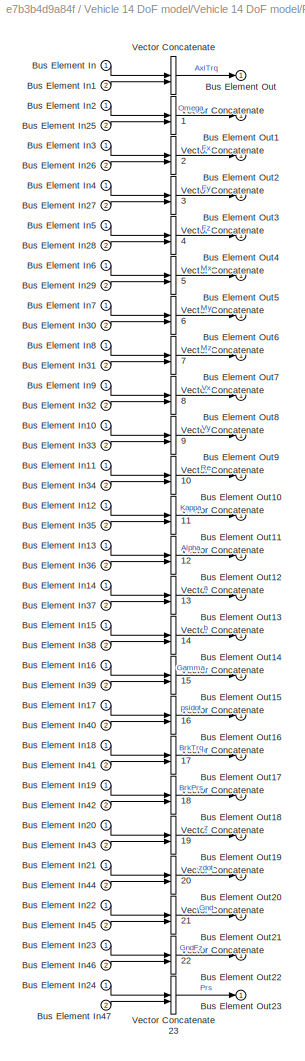
BLOCK [SubSystem] Vehicle 14 DoF model/Vehicle 14 DoF model/Rear Suspension/Subsystem
BLOCK [Inport] Vehicle 14 DoF model/Vehicle 14 DoF model/Rear Suspension/Subsystem/Bus Element In
BLOCK [Inport] Vehicle 14 DoF model/Vehicle 14 DoF model/Rear Suspension/Subsystem/Bus Element In1
  Port = 2
BLOCK [Inport] Vehicle 14 DoF model/Vehicle 14 DoF model/Rear Suspension/Subsystem/Bus Element In10
BLOCK [Inport] Vehicle 14 DoF model/Vehicle 14 DoF model/Rear Suspension/Subsystem/Bus Element In11
BLOCK [Inport] Vehicle 14 DoF model/Vehicle 14 DoF model/Rear Suspension/Subsystem/Bus Element In12
BLOCK [Inport] Vehicle 14 DoF model/Vehicle 14 DoF model/Rear Suspension/Subsystem/Bus Element In13
BLOCK [Inport] Vehicle 14 DoF model/Vehicle 14 DoF model/Rear Suspension/Subsystem/Bus Element In14
BLOCK [Inport] Vehicle 14 DoF model/Vehicle 14 DoF model/Rear Suspension/Subsystem/Bus Element In15
BLOCK [Inport] Vehicle 14 DoF model/Vehicle 14 DoF model/Rear Suspension/Subsystem/Bus Element In16
BLOCK [Inport] Vehicle 14 DoF model/Vehicle 14 DoF model/Rear Suspension/Subsystem/Bus Element In17
BLOCK [Inport] Vehicle 14 DoF model/Vehicle 14 DoF model/Rear Suspension/Subsystem/Bus Element In18
BLOCK [Inport] Vehicle 14 DoF model/Vehicle 14 DoF model/Rear Suspension/Subsystem/Bus Element In19
BLOCK [Inport] Vehicle 14 DoF model/Vehicle 14 DoF model/Rear Suspension/Subsystem/Bus Element In2
BLOCK [Inport] Vehicle 14 DoF model/Vehicle 14 DoF model/Rear Suspension/Subsystem/Bus Element In20
BLOCK [Inport] Vehicle 14 DoF model/Vehicle 14 DoF model/Rear Suspension/Subsystem/Bus Element In21
BLOCK [Inport] Vehicle 14 DoF model/Vehicle 14 DoF model/Rear Suspension/Subsystem/Bus Element In22
BLOCK [Inport] Vehicle 14 DoF model/Vehicle 14 DoF model/Rear Suspension/Subsystem/Bus Element In23
BLOCK [Inport] Vehicle 14 DoF model/Vehicle 14 DoF model/Rear Suspension/Subsystem/Bus Element In24
BLOCK [Inport] Vehicle 14 DoF model/Vehicle 14 DoF model/Rear Suspension/Subsystem/Bus Element In25
  Port = 2
BLOCK [Inport] Vehicle 14 DoF model/Vehicle 14 DoF model/Rear Suspension/Subsystem/Bus Element In26
  Port = 2
BLOCK [Inport] Vehicle 14 DoF model/Vehicle 14 DoF model/Rear Suspension/Subsystem/Bus Element In27
  Port = 2
BLOCK [Inport] Vehicle 14 DoF model/Vehicle 14 DoF model/Rear Suspension/Subsystem/Bus Element In28
  Port = 2
BLOCK [Inport] Vehicle 14 DoF model/Vehicle 14 DoF model/Rear Suspension/Subsystem/Bus Element In29
  Port = 2
BLOCK [Inport] Vehicle 14 DoF model/Vehicle 14 DoF model/Rear Suspension/Subsystem/Bus Element In3
BLOCK [Inport] Vehicle 14 DoF model/Vehicle 14 DoF model/Rear Suspension/Subsystem/Bus Element In30
  Port = 2
BLOCK [Inport] Vehicle 14 DoF model/Vehicle 14 DoF model/Rear Suspension/Subsystem/Bus Element In31
  Port = 2
BLOCK [Inport] Vehicle 14 DoF model/Vehicle 14 DoF model/Rear Suspension/Subsystem/Bus Element In32
  Port = 2
BLOCK [Inport] Vehicle 14 DoF model/Vehicle 14 DoF model/Rear Suspension/Subsystem/Bus Element In33
  Port = 2
BLOCK [Inport] Vehicle 14 DoF model/Vehicle 14 DoF model/Rear Suspension/Subsystem/Bus Element In34
  Port = 2
BLOCK [Inport] Vehicle 14 DoF model/Vehicle 14 DoF model/Rear Suspension/Subsystem/Bus Element In35
  Port = 2
BLOCK [Inport] Vehicle 14 DoF model/Vehicle 14 DoF model/Rear Suspension/Subsystem/Bus Element In36
  Port = 2
BLOCK [Inport] Vehicle 14 DoF model/Vehicle 14 DoF model/Rear Suspension/Subsystem/Bus Element In37
  Port = 2
BLOCK [Inport] Vehicle 14 DoF model/Vehicle 14 DoF model/Rear Suspension/Subsystem/Bus Element In38
  Port = 2
BLOCK [Inport] Vehicle 14 DoF model/Vehicle 14 DoF model/Rear Suspension/Subsystem/Bus Element In39
  Port = 2
BLOCK [Inport] Vehicle 14 DoF model/Vehicle 14 DoF model/Rear Suspension/Subsystem/Bus Element In4
BLOCK [Inport] Vehicle 14 DoF model/Vehicle 14 DoF model/Rear Suspension/Subsystem/Bus Element In40
  Port = 2
BLOCK [Inport] Vehicle 14 DoF model/Vehicle 14 DoF model/Rear Suspension/Subsystem/Bus Element In41
  Port = 2
BLOCK [Inport] Vehicle 14 DoF model/Vehicle 14 DoF model/Rear Suspension/Subsystem/Bus Element In42
  Port = 2
BLOCK [Inport] Vehicle 14 DoF model/Vehicle 14 DoF model/Rear Suspension/Subsystem/Bus Element In43
  Port = 2
BLOCK [Inport] Vehicle 14 DoF model/Vehicle 14 DoF model/Rear Suspension/Subsystem/Bus Element In44
  Port = 2
BLOCK [Inport] Vehicle 14 DoF model/Vehicle 14 DoF model/Rear Suspension/Subsystem/Bus Element In45
  Port = 2
BLOCK [Inport] Vehicle 14 DoF model/Vehicle 14 DoF model/Rear Suspension/Subsystem/Bus Element In46
  Port = 2
BLOCK [Inport] Vehicle 14 DoF model/Vehicle 14 DoF model/Rear Suspension/Subsystem/Bus Element In47
  Port = 2
BLOCK [Inport] Vehicle 14 DoF model/Vehicle 14 DoF model/Rear Suspension/Subsystem/Bus Element In5
BLOCK [Inport] Vehicle 14 DoF model/Vehicle 14 DoF model/Rear Suspension/Subsystem/Bus Element In6
BLOCK [Inport] Vehicle 14 DoF model/Vehicle 14 DoF model/Rear Suspension/Subsystem/Bus Element In7
BLOCK [Inport] Vehicle 14 DoF model/Vehicle 14 DoF model/Rear Suspension/Subsystem/Bus Element In8
BLOCK [Inport] Vehicle 14 DoF model/Vehicle 14 DoF model/Rear Suspension/Subsystem/Bus Element In9
BLOCK [Outport] Vehicle 14 DoF model/Vehicle 14 DoF model/Rear Suspension/Subsystem/Bus Element Out
BLOCK [Outport] Vehicle 14 DoF model/Vehicle 14 DoF model/Rear Suspension/Subsystem/Bus Element Out1
BLOCK [Outport] Vehicle 14 DoF model/Vehicle 14 DoF model/Rear Suspension/Subsystem/Bus Element Out10
BLOCK [Outport] Vehicle 14 DoF model/Vehicle 14 DoF model/Rear Suspension/Subsystem/Bus Element Out11
BLOCK [Outport] Vehicle 14 DoF model/Vehicle 14 DoF model/Rear Suspension/Subsystem/Bus Element Out12
BLOCK [Outport] Vehicle 14 DoF model/Vehicle 14 DoF model/Rear Suspension/Subsystem/Bus Element Out13
BLOCK [Outport] Vehicle 14 DoF model/Vehicle 14 DoF model/Rear Suspension/Subsystem/Bus Element Out14
BLOCK [Outport] Vehicle 14 DoF model/Vehicle 14 DoF model/Rear Suspension/Subsystem/Bus Element Out15
BLOCK [Outport] Vehicle 14 DoF model/Vehicle 14 DoF model/Rear Suspension/Subsystem/Bus Element Out16
BLOCK [Outport] Vehicle 14 DoF model/Vehicle 14 DoF model/Rear Suspension/Subsystem/Bus Element Out17
BLOCK [Outport] Vehicle 14 DoF model/Vehicle 14 DoF model/Rear Suspension/Subsystem/Bus Element Out18
BLOCK [Outport] Vehicle 14 DoF model/Vehicle 14 DoF model/Rear Suspension/Subsystem/Bus Element Out19
BLOCK [Outport] Vehicle 14 DoF model/Vehicle 14 DoF model/Rear Suspension/Subsystem/Bus Element Out2
BLOCK [Outport] Vehicle 14 DoF model/Vehicle 14 DoF model/Rear Suspension/Subsystem/Bus Element Out20
BLOCK [Outport] Vehicle 14 DoF model/Vehicle 14 DoF model/Rear Suspension/Subsystem/Bus Element Out21
BLOCK [Outport] Vehicle 14 DoF model/Vehicle 14 DoF model/Rear Suspension/Subsystem/Bus Element Out22
BLOCK [Outport] Vehicle 14 DoF model/Vehicle 14 DoF model/Rear Suspension/Subsystem/Bus Element Out23
BLOCK [Outport] Vehicle 14 DoF model/Vehicle 14 DoF model/Rear Suspension/Subsystem/Bus Element Out3
BLOCK [Outport] Vehicle 14 DoF model/Vehicle 14 DoF model/Rear Suspension/Subsystem/Bus Element Out4
BLOCK [Outport] Vehicle 14 DoF model/Vehicle 14 DoF model/Rear Suspension/Subsystem/Bus Element Out5
BLOCK [Outport] Vehicle 14 DoF model/Vehicle 14 DoF model/Rear Suspension/Subsystem/Bus Element Out6
BLOCK [Outport] Vehicle 14 DoF model/Vehicle 14 DoF model/Rear Suspension/Subsystem/Bus Element Out7
BLOCK [Outport] Vehicle 14 DoF model/Vehicle 14 DoF model/Rear Suspension/Subsystem/Bus Element Out8
BLOCK [Outport] Vehicle 14 DoF model/Vehicle 14 DoF model/Rear Suspension/Subsystem/Bus Element Out9
BLOCK [Concatenate] Vehicle 14 DoF model/Vehicle 14 DoF model/Rear Suspension/Subsystem/Vector Concatenate
BLOCK [Concatenate] Vehicle 14 DoF model/Vehicle 14 DoF model/Rear Suspension/Subsystem/Vector Concatenate1
BLOCK [Concatenate] Vehicle 14 DoF model/Vehicle 14 DoF model/Rear Suspension/Subsystem/Vector Concatenate10
BLOCK [Concatenate] Vehicle 14 DoF model/Vehicle 14 DoF model/Rear Suspension/Subsystem/Vector Concatenate11
BLOCK [Concatenate] Vehicle 14 DoF model/Vehicle 14 DoF model/Rear Suspension/Subsystem/Vector Concatenate12
BLOCK [Concatenate] Vehicle 14 DoF model/Vehicle 14 DoF model/Rear Suspension/Subsystem/Vector Concatenate13
BLOCK [Concatenate] Vehicle 14 DoF model/Vehicle 14 DoF model/Rear Suspension/Subsystem/Vector Concatenate14
BLOCK [Concatenate] Vehicle 14 DoF model/Vehicle 14 DoF model/Rear Suspension/Subsystem/Vector Concatenate15
BLOCK [Concatenate] Vehicle 14 DoF model/Vehicle 14 DoF model/Rear Suspension/Subsystem/Vector Concatenate16
BLOCK [Concatenate] Vehicle 14 DoF model/Vehicle 14 DoF model/Rear Suspension/Subsystem/Vector Concatenate17
BLOCK [Concatenate] Vehicle 14 DoF model/Vehicle 14 DoF model/Rear Suspension/Subsystem/Vector Concatenate18
BLOCK [Concatenate] Vehicle 14 DoF model/Vehicle 14 DoF model/Rear Suspension/Subsystem/Vector Concatenate19
BLOCK [Concatenate] Vehicle 14 DoF model/Vehicle 14 DoF model/Rear Suspension/Subsystem/Vector Concatenate2
BLOCK [Concatenate] Vehicle 14 DoF model/Vehicle 14 DoF model/Rear Suspension/Subsystem/Vector Concatenate20
BLOCK [Concatenate] Vehicle 14 DoF model/Vehicle 14 DoF model/Rear Suspension/Subsystem/Vector Concatenate21
BLOCK [Concatenate] Vehicle 14 DoF model/Vehicle 14 DoF model/Rear Suspension/Subsystem/Vector Concatenate22
BLOCK [Concatenate] Vehicle 14 DoF model/Vehicle 14 DoF model/Rear Suspension/Subsystem/Vector Concatenate23
BLOCK [Concatenate] Vehicle 14 DoF model/Vehicle 14 DoF model/Rear Suspension/Subsystem/Vector Concatenate3
BLOCK [Concatenate] Vehicle 14 DoF model/Vehicle 14 DoF model/Rear Suspension/Subsystem/Vector Concatenate4
BLOCK [Concatenate] Vehicle 14 DoF model/Vehicle 14 DoF model/Rear Suspension/Subsystem/Vector Concatenate5
BLOCK [Concatenate] Vehicle 14 DoF model/Vehicle 14 DoF model/Rear Suspension/Subsystem/Vector Concatenate6
BLOCK [Concatenate] Vehicle 14 DoF model/Vehicle 14 DoF model/Rear Suspension/Subsystem/Vector Concatenate7
BLOCK [Concatenate] Vehicle 14 DoF model/Vehicle 14 DoF model/Rear Suspension/Subsystem/Vector Concatenate8
BLOCK [Concatenate] Vehicle 14 DoF model/Vehicle 14 DoF model/Rear Suspension/Subsystem/Vector Concatenate9
BLOCK [SubSystem] Vehicle 14 DoF model/Vehicle 14 DoF model/Rear Suspension/Susp2Wheel
BLOCK [BusCreator] Vehicle 14 DoF model/Vehicle 14 DoF model/Rear Suspension/Susp2Wheel/Bus Creator
  DisplayOption = bar
  InheritFromInputs = on
  Inputs = 8
BLOCK [BusCreator] Vehicle 14 DoF model/Vehicle 14 DoF model/Rear Suspension/Susp2Wheel/Bus Creator1
  DisplayOption = bar
  InheritFromInputs = on
  Inputs = 8
BLOCK [BusSelector] Vehicle 14 DoF model/Vehicle 14 DoF model/Rear Suspension/Susp2Wheel/Bus Selector
  OutputSignals = SuspFrame.zdot,SuspFrame.dz
BLOCK [BusSelector] Vehicle 14 DoF model/Vehicle 14 DoF model/Rear Suspension/Susp2Wheel/Bus Selector1
  OutputSignals = Whl.Ang,Whl.F,Whl.AngVel,Whl.xdot,Whl.ydot
BLOCK [Reference] Vehicle 14 DoF model/Vehicle 14 DoF model/Rear Suspension/Susp2Wheel/Cont LPF  REF=autolibutils/Cont LPF
  SourceBlock = autolibutils/Cont LPF
BLOCK [Reference] Vehicle 14 DoF model/Vehicle 14 DoF model/Rear Suspension/Susp2Wheel/Cont LPF1  REF=autolibutils/Cont LPF
  SourceBlock = autolibutils/Cont LPF
BLOCK [Concatenate] Vehicle 14 DoF model/Vehicle 14 DoF model/Rear Suspension/Susp2Wheel/Matrix Concatenate
  Mode = Multidimensional array
  NumInputs = 3
BLOCK [Reshape] Vehicle 14 DoF model/Vehicle 14 DoF model/Rear Suspension/Susp2Wheel/Reshape1
BLOCK [Reshape] Vehicle 14 DoF model/Vehicle 14 DoF model/Rear Suspension/Susp2Wheel/Reshape2
BLOCK [Reshape] Vehicle 14 DoF model/Vehicle 14 DoF model/Rear Suspension/Susp2Wheel/Reshape3
BLOCK [Reshape] Vehicle 14 DoF model/Vehicle 14 DoF model/Rear Suspension/Susp2Wheel/Reshape4
BLOCK [Reshape] Vehicle 14 DoF model/Vehicle 14 DoF model/Rear Suspension/Susp2Wheel/Reshape5
  OutputDimensionality = Row vector (2-D)
BLOCK [Saturate] Vehicle 14 DoF model/Vehicle 14 DoF model/Rear Suspension/Susp2Wheel/Saturation
  LowerLimit = -10*9.81*2000
  UpperLimit = inf
  ZeroCross = off
BLOCK [Selector] Vehicle 14 DoF model/Vehicle 14 DoF model/Rear Suspension/Susp2Wheel/Selector
  IndexOptions = Index vector (dialog),Select all
  Indices = [3],1
  InputPortWidth = 3
  NumberOfDimensions = 2
  OutputSizes = 1,1
BLOCK [Selector] Vehicle 14 DoF model/Vehicle 14 DoF model/Rear Suspension/Susp2Wheel/Selector1
  IndexOptions = Index vector (dialog),Select all
  Indices = [3],1
  InputPortWidth = 1
  NumberOfDimensions = 2
  OutputSizes = 1,1
BLOCK [Selector] Vehicle 14 DoF model/Vehicle 14 DoF model/Rear Suspension/Susp2Wheel/Selector10
  IndexOptions = Index vector (dialog)
  Indices = [3 4]
  InputPortWidth = 4
  OutputSizes = 1
BLOCK [Selector] Vehicle 14 DoF model/Vehicle 14 DoF model/Rear Suspension/Susp2Wheel/Selector2
  IndexOptions = Index vector (dialog),Select all
  Indices = 3,1
  InputPortWidth = 3
  NumberOfDimensions = 2
  OutputSizes = 1,1
BLOCK [Selector] Vehicle 14 DoF model/Vehicle 14 DoF model/Rear Suspension/Susp2Wheel/Selector3
  IndexOptions = Index vector (dialog),Select all
  Indices = 1,1
  InputPortWidth = 3
  NumberOfDimensions = 2
  OutputSizes = 1,1
BLOCK [Selector] Vehicle 14 DoF model/Vehicle 14 DoF model/Rear Suspension/Susp2Wheel/Selector4
  IndexOptions = Index vector (dialog)
  Indices = [3 4]
  InputPortWidth = 4
  OutputSizes = 1
BLOCK [Selector] Vehicle 14 DoF model/Vehicle 14 DoF model/Rear Suspension/Susp2Wheel/Selector5
  IndexOptions = Index vector (dialog)
  Indices = [3 4]
  InputPortWidth = 4
  OutputSizes = 1
BLOCK [Selector] Vehicle 14 DoF model/Vehicle 14 DoF model/Rear Suspension/Susp2Wheel/Selector6
  IndexOptions = Index vector (dialog)
  Indices = [3 4]
  InputPortWidth = 4
  OutputSizes = 1
BLOCK [Selector] Vehicle 14 DoF model/Vehicle 14 DoF model/Rear Suspension/Susp2Wheel/Selector7
  IndexOptions = Index vector (dialog)
  Indices = [3 4]
  InputPortWidth = 4
  OutputSizes = 1
BLOCK [Selector] Vehicle 14 DoF model/Vehicle 14 DoF model/Rear Suspension/Susp2Wheel/Selector8
  IndexOptions = Index vector (dialog)
  Indices = [3 4]
  InputPortWidth = 4
  OutputSizes = 1
BLOCK [Selector] Vehicle 14 DoF model/Vehicle 14 DoF model/Rear Suspension/Susp2Wheel/Selector9
  IndexOptions = Index vector (dialog),Index vector (dialog)
  Indices = [1 2 3],[3 4]
  InputPortWidth = 4
  NumberOfDimensions = 2
  OutputSizes = 1,1
BLOCK [Inport] Vehicle 14 DoF model/Vehicle 14 DoF model/Rear Suspension/Susp2Wheel/Susp
BLOCK [Outport] Vehicle 14 DoF model/Vehicle 14 DoF model/Rear Suspension/Susp2Wheel/SuspFdbk
  Port = 2
BLOCK [Outport] Vehicle 14 DoF model/Vehicle 14 DoF model/Rear Suspension/Susp2Wheel/SuspWheel
BLOCK [SubSystem] Vehicle 14 DoF model/Vehicle 14 DoF model/Rear Suspension/Susp2Wheel/Veh2Tire
BLOCK [Outport] Vehicle 14 DoF model/Vehicle 14 DoF model/Rear Suspension/Susp2Wheel/Veh2Tire/Fext
  Port = 6
  Unit = N
  VectorParamsAs1DForOutWhenUnconnected = off
BLOCK [Inport] Vehicle 14 DoF model/Vehicle 14 DoF model/Rear Suspension/Susp2Wheel/Veh2Tire/Fz
  Port = 3
BLOCK [Reshape] Vehicle 14 DoF model/Vehicle 14 DoF model/Rear Suspension/Susp2Wheel/Veh2Tire/Reshape1
BLOCK [Reshape] Vehicle 14 DoF model/Vehicle 14 DoF model/Rear Suspension/Susp2Wheel/Veh2Tire/Reshape2
BLOCK [Reshape] Vehicle 14 DoF model/Vehicle 14 DoF model/Rear Suspension/Susp2Wheel/Veh2Tire/Reshape5
BLOCK [Inport] Vehicle 14 DoF model/Vehicle 14 DoF model/Rear Suspension/Susp2Wheel/Veh2Tire/SteerAng
BLOCK [Inport] Vehicle 14 DoF model/Vehicle 14 DoF model/Rear Suspension/Susp2Wheel/Veh2Tire/SteerCmb
  Port = 2
BLOCK [UnaryMinus] Vehicle 14 DoF model/Vehicle 14 DoF model/Rear Suspension/Susp2Wheel/Veh2Tire/Unary Minus
BLOCK [Inport] Vehicle 14 DoF model/Vehicle 14 DoF model/Rear Suspension/Susp2Wheel/Veh2Tire/VehVel
  Port = 5
BLOCK [Outport] Vehicle 14 DoF model/Vehicle 14 DoF model/Rear Suspension/Susp2Wheel/Veh2Tire/Vx
  Port = 3
  Unit = m/s
  VectorParamsAs1DForOutWhenUnconnected = off
BLOCK [Outport] Vehicle 14 DoF model/Vehicle 14 DoF model/Rear Suspension/Susp2Wheel/Veh2Tire/Vy
  Port = 4
  Unit = m/s
  VectorParamsAs1DForOutWhenUnconnected = off
BLOCK [Outport] Vehicle 14 DoF model/Vehicle 14 DoF model/Rear Suspension/Susp2Wheel/Veh2Tire/Vz
  Port = 5
  Unit = m/s
  VectorParamsAs1DForOutWhenUnconnected = off
BLOCK [SubSystem] Vehicle 14 DoF model/Vehicle 14 DoF model/Rear Suspension/Susp2Wheel/Veh2Tire/Wheel Angles
BLOCK [Constant] Vehicle 14 DoF model/Vehicle 14 DoF model/Rear Suspension/Susp2Wheel/Veh2Tire/Wheel Angles/Constant3
  SampleTime = -1
  Value = ones(1,4).*0
BLOCK [Reshape] Vehicle 14 DoF model/Vehicle 14 DoF model/Rear Suspension/Susp2Wheel/Veh2Tire/Wheel Angles/Reshape
  OutputDimensionality = Row vector (2-D)
BLOCK [Reshape] Vehicle 14 DoF model/Vehicle 14 DoF model/Rear Suspension/Susp2Wheel/Veh2Tire/Wheel Angles/Reshape1
  OutputDimensionality = Row vector (2-D)
BLOCK [Reshape] Vehicle 14 DoF model/Vehicle 14 DoF model/Rear Suspension/Susp2Wheel/Veh2Tire/Wheel Angles/Reshape2
  OutputDimensionality = Row vector (2-D)
BLOCK [Inport] Vehicle 14 DoF model/Vehicle 14 DoF model/Rear Suspension/Susp2Wheel/Veh2Tire/Wheel Angles/SteerAng
  NameLocation = top
BLOCK [Inport] Vehicle 14 DoF model/Vehicle 14 DoF model/Rear Suspension/Susp2Wheel/Veh2Tire/Wheel Angles/SteerCmb
  NameLocation = top
  Port = 2
BLOCK [Concatenate] Vehicle 14 DoF model/Vehicle 14 DoF model/Rear Suspension/Susp2Wheel/Veh2Tire/Wheel Angles/Vector Concatenate3
  Mode = Multidimensional array
  NumInputs = 3
BLOCK [Outport] Vehicle 14 DoF model/Vehicle 14 DoF model/Rear Suspension/Susp2Wheel/Veh2Tire/Wheel Angles/WhlAng 
  VectorParamsAs1DForOutWhenUnconnected = off
BLOCK [SubSystem] Vehicle 14 DoF model/Vehicle 14 DoF model/Rear Suspension/Susp2Wheel/Veh2Tire/Wheel to Body Transform
BLOCK [Constant] Vehicle 14 DoF model/Vehicle 14 DoF model/Rear Suspension/Susp2Wheel/Veh2Tire/Wheel to Body Transform/Constant
  SampleTime = -1
  Value = [pi;0;0]
BLOCK [Demux] Vehicle 14 DoF model/Vehicle 14 DoF model/Rear Suspension/Susp2Wheel/Veh2Tire/Wheel to Body Transform/Demux1
  Outputs = 3
BLOCK [Product] Vehicle 14 DoF model/Vehicle 14 DoF model/Rear Suspension/Susp2Wheel/Veh2Tire/Wheel to Body Transform/Divide1
  Inputs = **
  Multiplication = Matrix(*)
BLOCK [Product] Vehicle 14 DoF model/Vehicle 14 DoF model/Rear Suspension/Susp2Wheel/Veh2Tire/Wheel to Body Transform/Divide2
  Inputs = **
  Multiplication = Matrix(*)
BLOCK [ForEach] Vehicle 14 DoF model/Vehicle 14 DoF model/Rear Suspension/Susp2Wheel/Veh2Tire/Wheel to Body Transform/For Each
  DisableCoverage = on
BLOCK [Reference] Vehicle 14 DoF model/Vehicle 14 DoF model/Rear Suspension/Susp2Wheel/Veh2Tire/Wheel to Body Transform/Rotation Angles to Direction Cosine Matrix  REF=autolibsharedcommon/Rotation Angles to
Direction Cosine Matrix
  AttributesFormatString = Rotation Order: %<rotationOrder>
  SourceBlock = autolibsharedcommon/Rotation Angles to\nDirection Cosine Matrix
  SourceType = Ang2DCM
BLOCK [Reference] Vehicle 14 DoF model/Vehicle 14 DoF model/Rear Suspension/Susp2Wheel/Veh2Tire/Wheel to Body Transform/Rotation Angles to Direction Cosine Matrix1  REF=autolibsharedcommon/Rotation Angles to
Direction Cosine Matrix
  AttributesFormatString = Rotation Order: %<rotationOrder>
  SourceBlock = autolibsharedcommon/Rotation Angles to\nDirection Cosine Matrix
  SourceType = Ang2DCM
BLOCK [Selector] Vehicle 14 DoF model/Vehicle 14 DoF model/Rear Suspension/Susp2Wheel/Veh2Tire/Wheel to Body Transform/Selector
  IndexOptions = Index vector (dialog)
  Indices = [3 2 1]
  InputPortWidth = 3
  OutputSizes = 1
BLOCK [Selector] Vehicle 14 DoF model/Vehicle 14 DoF model/Rear Suspension/Susp2Wheel/Veh2Tire/Wheel to Body Transform/Selector1
  IndexOptions = Index vector (dialog)
  Indices = [3 2 1]
  InputPortWidth = 3
  OutputSizes = 1
BLOCK [Inport] Vehicle 14 DoF model/Vehicle 14 DoF model/Rear Suspension/Susp2Wheel/Veh2Tire/Wheel to Body Transform/VelVeh
  Partition = on
  PartitionDimension = 2
  PartitionOffset = 0
  PartitionWidth = 1
BLOCK [Inport] Vehicle 14 DoF model/Vehicle 14 DoF model/Rear Suspension/Susp2Wheel/Veh2Tire/Wheel to Body Transform/WheelAngles
  Partition = on
  PartitionDimension = 2
  PartitionOffset = 0
  PartitionWidth = 1
  Port = 2
BLOCK [Outport] Vehicle 14 DoF model/Vehicle 14 DoF model/Rear Suspension/Susp2Wheel/Veh2Tire/Wheel to Body Transform/xdotWheel
  ConcatenationDimension = 1
  VectorParamsAs1DForOutWhenUnconnected = off
BLOCK [Outport] Vehicle 14 DoF model/Vehicle 14 DoF model/Rear Suspension/Susp2Wheel/Veh2Tire/Wheel to Body Transform/ydotWheel
  ConcatenationDimension = 1
  Port = 2
  VectorParamsAs1DForOutWhenUnconnected = off
BLOCK [Outport] Vehicle 14 DoF model/Vehicle 14 DoF model/Rear Suspension/Susp2Wheel/Veh2Tire/Wheel to Body Transform/zdotWheel
  ConcatenationDimension = 1
  Port = 3
  VectorParamsAs1DForOutWhenUnconnected = off
BLOCK [Outport] Vehicle 14 DoF model/Vehicle 14 DoF model/Rear Suspension/Susp2Wheel/Veh2Tire/WhlAng
  Unit = rad
  VectorParamsAs1DForOutWhenUnconnected = off
BLOCK [Outport] Vehicle 14 DoF model/Vehicle 14 DoF model/Rear Suspension/Susp2Wheel/Veh2Tire/YawRate
  Port = 2
  Unit = rad/s
  VectorParamsAs1DForOutWhenUnconnected = off
BLOCK [Inport] Vehicle 14 DoF model/Vehicle 14 DoF model/Rear Suspension/Susp2Wheel/Veh2Tire/r
  Port = 4
BLOCK [Inport] Vehicle 14 DoF model/Vehicle 14 DoF model/Rear Suspension/Susp2Wheel/WheelSusp
  Port = 2
BLOCK [Inport] Vehicle 14 DoF model/Vehicle 14 DoF model/Rear Suspension/Susp2Wheel/Wheels
  Port = 3
BLOCK [Outport] Vehicle 14 DoF model/Vehicle 14 DoF model/Rear Suspension/SuspSteer
BLOCK [Outport] Vehicle 14 DoF model/Vehicle 14 DoF model/Rear Suspension/SuspWheel
  Port = 2
BLOCK [Inport] Vehicle 14 DoF model/Vehicle 14 DoF model/Rear Suspension/Veh
  Port = 2
BLOCK [SubSystem] Vehicle 14 DoF model/Vehicle 14 DoF model/Rear Suspension/Wheel2Susp
BLOCK [BusCreator] Vehicle 14 DoF model/Vehicle 14 DoF model/Rear Suspension/Wheel2Susp/Bus Creator
  DisplayOption = bar
  InheritFromInputs = on
  Inputs = 2
BLOCK [BusCreator] Vehicle 14 DoF model/Vehicle 14 DoF model/Rear Suspension/Wheel2Susp/Bus Creator1
  DisplayOption = bar
  InheritFromInputs = on
  Inputs = 2
BLOCK [BusSelector] Vehicle 14 DoF model/Vehicle 14 DoF model/Rear Suspension/Wheel2Susp/Bus Selector
  OutputSignals = Fext,WhlAng
BLOCK [BusSelector] Vehicle 14 DoF model/Vehicle 14 DoF model/Rear Suspension/Wheel2Susp/Bus Selector7
  OutputSignals = Omega,Fx,Fy,Mx,My,Mz,Re,z,zdot,Kappa,Alpha
BLOCK [Constant] Vehicle 14 DoF model/Vehicle 14 DoF model/Rear Suspension/Wheel2Susp/Constant
  Value = repmat(eye(3),[1,1,4])
BLOCK [From] Vehicle 14 DoF model/Vehicle 14 DoF model/Rear Suspension/Wheel2Susp/From4
  GotoTag = WheelAngles
BLOCK [Goto] Vehicle 14 DoF model/Vehicle 14 DoF model/Rear Suspension/Wheel2Susp/Goto
  GotoTag = WheelAngles
BLOCK [Math] Vehicle 14 DoF model/Vehicle 14 DoF model/Rear Suspension/Wheel2Susp/Math Function
  Operator = transpose
  SignedPower = on
BLOCK [Math] Vehicle 14 DoF model/Vehicle 14 DoF model/Rear Suspension/Wheel2Susp/Math Function1
  Operator = transpose
  SignedPower = on
BLOCK [Reshape] Vehicle 14 DoF model/Vehicle 14 DoF model/Rear Suspension/Wheel2Susp/Reshape3
BLOCK [Reshape] Vehicle 14 DoF model/Vehicle 14 DoF model/Rear Suspension/Wheel2Susp/Reshape4
BLOCK [Selector] Vehicle 14 DoF model/Vehicle 14 DoF model/Rear Suspension/Wheel2Susp/Selector2
  IndexOptions = Index vector (dialog),Select all
  Indices = 3,1
  InputPortWidth = 3
  NumberOfDimensions = 2
  OutputSizes = 1,1
BLOCK [Selector] Vehicle 14 DoF model/Vehicle 14 DoF model/Rear Suspension/Wheel2Susp/Selector3
  IndexOptions = Index vector (dialog),Select all
  Indices = 1,1
  InputPortWidth = 3
  NumberOfDimensions = 2
  OutputSizes = 1,1
BLOCK [SignalSpecification] Vehicle 14 DoF model/Vehicle 14 DoF model/Rear Suspension/Wheel2Susp/Signal Specification
  Dimensions = 4
BLOCK [SignalSpecification] Vehicle 14 DoF model/Vehicle 14 DoF model/Rear Suspension/Wheel2Susp/Signal Specification1
  Dimensions = 4
BLOCK [SignalSpecification] Vehicle 14 DoF model/Vehicle 14 DoF model/Rear Suspension/Wheel2Susp/Signal Specification2
  Dimensions = 4
BLOCK [Inport] Vehicle 14 DoF model/Vehicle 14 DoF model/Rear Suspension/Wheel2Susp/SuspWheel
  Port = 3
BLOCK [SubSystem] Vehicle 14 DoF model/Vehicle 14 DoF model/Rear Suspension/Wheel2Susp/Suspension Routing
BLOCK [Inport] Vehicle 14 DoF model/Vehicle 14 DoF model/Rear Suspension/Wheel2Susp/Suspension Routing/<Alpha>
  Port = 12
BLOCK [Inport] Vehicle 14 DoF model/Vehicle 14 DoF model/Rear Suspension/Wheel2Susp/Suspension Routing/<Kappa>
  Port = 11
BLOCK [Inport] Vehicle 14 DoF model/Vehicle 14 DoF model/Rear Suspension/Wheel2Susp/Suspension Routing/<Mx>
  Port = 5
BLOCK [Inport] Vehicle 14 DoF model/Vehicle 14 DoF model/Rear Suspension/Wheel2Susp/Suspension Routing/<My>
  Port = 6
BLOCK [Inport] Vehicle 14 DoF model/Vehicle 14 DoF model/Rear Suspension/Wheel2Susp/Suspension Routing/<Mz>
  Port = 7
BLOCK [Inport] Vehicle 14 DoF model/Vehicle 14 DoF model/Rear Suspension/Wheel2Susp/Suspension Routing/<Re>
  Port = 8
BLOCK [Inport] Vehicle 14 DoF model/Vehicle 14 DoF model/Rear Suspension/Wheel2Susp/Suspension Routing/<z>
  Port = 9
BLOCK [Inport] Vehicle 14 DoF model/Vehicle 14 DoF model/Rear Suspension/Wheel2Susp/Suspension Routing/<zdot>
  Port = 10
BLOCK [BusCreator] Vehicle 14 DoF model/Vehicle 14 DoF model/Rear Suspension/Wheel2Susp/Suspension Routing/Bus Creator
  DisplayOption = bar
  InheritFromInputs = on
  Inputs = 13
BLOCK [BusSelector] Vehicle 14 DoF model/Vehicle 14 DoF model/Rear Suspension/Wheel2Susp/Suspension Routing/Bus Selector3
  OutputSignals = InertFrm.FrntAxl.Lft.Disp.Z,InertFrm.FrntAxl.Rght.Disp.Z,InertFrm.RearAxl.Lft.Disp.Z,InertFrm.RearAxl.Rght.Disp.Z
BLOCK [BusSelector] Vehicle 14 DoF model/Vehicle 14 DoF model/Rear Suspension/Wheel2Susp/Suspension Routing/Bus Selector4
  OutputSignals = BdyFrm.FrntAxl.Lft.Disp.z,BdyFrm.FrntAxl.Rght.Disp.z,BdyFrm.RearAxl.Lft.Disp.z,BdyFrm.RearAxl.Rght.Disp.z
BLOCK [Inport] Vehicle 14 DoF model/Vehicle 14 DoF model/Rear Suspension/Wheel2Susp/Suspension Routing/Fx
  Port = 2
BLOCK [Inport] Vehicle 14 DoF model/Vehicle 14 DoF model/Rear Suspension/Wheel2Susp/Suspension Routing/Fy
  Port = 3
BLOCK [Inport] Vehicle 14 DoF model/Vehicle 14 DoF model/Rear Suspension/Wheel2Susp/Suspension Routing/Fz
  Port = 4
BLOCK [Inport] Vehicle 14 DoF model/Vehicle 14 DoF model/Rear Suspension/Wheel2Susp/Suspension Routing/Omega
BLOCK [Sum] Vehicle 14 DoF model/Vehicle 14 DoF model/Rear Suspension/Wheel2Susp/Suspension Routing/Subtract
  IconShape = rectangular
  Inputs = --+
BLOCK [Outport] Vehicle 14 DoF model/Vehicle 14 DoF model/Rear Suspension/Wheel2Susp/Suspension Routing/SuspFrame
  VectorParamsAs1DForOutWhenUnconnected = off
BLOCK [UnaryMinus] Vehicle 14 DoF model/Vehicle 14 DoF model/Rear Suspension/Wheel2Susp/Suspension Routing/Unary Minus1
BLOCK [UnaryMinus] Vehicle 14 DoF model/Vehicle 14 DoF model/Rear Suspension/Wheel2Susp/Suspension Routing/Unary Minus2
BLOCK [Concatenate] Vehicle 14 DoF model/Vehicle 14 DoF model/Rear Suspension/Wheel2Susp/Suspension Routing/Vector Concatenate3
  NumInputs = 4
BLOCK [Concatenate] Vehicle 14 DoF model/Vehicle 14 DoF model/Rear Suspension/Wheel2Susp/Suspension Routing/Vector Concatenate4
  NumInputs = 4
BLOCK [Inport] Vehicle 14 DoF model/Vehicle 14 DoF model/Rear Suspension/Wheel2Susp/Suspension Routing/Veh
  Port = 13
BLOCK [Concatenate] Vehicle 14 DoF model/Vehicle 14 DoF model/Rear Suspension/Wheel2Susp/Vector Concatenate1
  ConcatenateDimension = 2
  Mode = Multidimensional array
  NumInputs = 3
BLOCK [Concatenate] Vehicle 14 DoF model/Vehicle 14 DoF model/Rear Suspension/Wheel2Susp/Vector Concatenate8
  ConcatenateDimension = 2
  Mode = Multidimensional array
  NumInputs = 3
BLOCK [Inport] Vehicle 14 DoF model/Vehicle 14 DoF model/Rear Suspension/Wheel2Susp/Veh
BLOCK [SubSystem] Vehicle 14 DoF model/Vehicle 14 DoF model/Rear Suspension/Wheel2Susp/Wheel to Body Transform
BLOCK [Sum] Vehicle 14 DoF model/Vehicle 14 DoF model/Rear Suspension/Wheel2Susp/Wheel to Body Transform/Add
  IconShape = rectangular
BLOCK [Constant] Vehicle 14 DoF model/Vehicle 14 DoF model/Rear Suspension/Wheel2Susp/Wheel to Body Transform/Constant
  Value = [pi;0;0]
BLOCK [Constant] Vehicle 14 DoF model/Vehicle 14 DoF model/Rear Suspension/Wheel2Susp/Wheel to Body Transform/Constant1
  Value = zeros(2,1)
BLOCK [Reference] Vehicle 14 DoF model/Vehicle 14 DoF model/Rear Suspension/Wheel2Susp/Wheel to Body Transform/Cross Product  REF=matrix_library/Cross Product
  SourceBlock = matrix_library/Cross Product
  SourceType = CrossProduct
BLOCK [Inport] Vehicle 14 DoF model/Vehicle 14 DoF model/Rear Suspension/Wheel2Susp/Wheel to Body Transform/DCM
  Partition = on
  PartitionDimension = 3
  PartitionOffset = 0
  PartitionWidth = 1
  Port = 3
BLOCK [Demux] Vehicle 14 DoF model/Vehicle 14 DoF model/Rear Suspension/Wheel2Susp/Wheel to Body Transform/Demux1
  Outputs = 3
BLOCK [Demux] Vehicle 14 DoF model/Vehicle 14 DoF model/Rear Suspension/Wheel2Susp/Wheel to Body Transform/Demux2
  Outputs = 3
BLOCK [Product] Vehicle 14 DoF model/Vehicle 14 DoF model/Rear Suspension/Wheel2Susp/Wheel to Body Transform/Divide1
  Inputs = ***
  Multiplication = Matrix(*)
BLOCK [Product] Vehicle 14 DoF model/Vehicle 14 DoF model/Rear Suspension/Wheel2Susp/Wheel to Body Transform/Divide2
  Inputs = **
  Multiplication = Matrix(*)
BLOCK [Product] Vehicle 14 DoF model/Vehicle 14 DoF model/Rear Suspension/Wheel2Susp/Wheel to Body Transform/Divide3
  Inputs = **
  Multiplication = Matrix(*)
BLOCK [ForEach] Vehicle 14 DoF model/Vehicle 14 DoF model/Rear Suspension/Wheel2Susp/Wheel to Body Transform/For Each
  DisableCoverage = on
BLOCK [Inport] Vehicle 14 DoF model/Vehicle 14 DoF model/Rear Suspension/Wheel2Susp/Wheel to Body Transform/Forces
  Partition = on
  PartitionDimension = 2
  PartitionOffset = 0
  PartitionWidth = 1
  PortDimensions = [3,1]
BLOCK [Outport] Vehicle 14 DoF model/Vehicle 14 DoF model/Rear Suspension/Wheel2Susp/Wheel to Body Transform/Fx
  ConcatenationDimension = 1
  VectorParamsAs1DForOutWhenUnconnected = off
BLOCK [Outport] Vehicle 14 DoF model/Vehicle 14 DoF model/Rear Suspension/Wheel2Susp/Wheel to Body Transform/Fy
  ConcatenationDimension = 1
  Port = 2
  VectorParamsAs1DForOutWhenUnconnected = off
BLOCK [Outport] Vehicle 14 DoF model/Vehicle 14 DoF model/Rear Suspension/Wheel2Susp/Wheel to Body Transform/Fz
  ConcatenationDimension = 1
  Port = 3
  VectorParamsAs1DForOutWhenUnconnected = off
BLOCK [Inport] Vehicle 14 DoF model/Vehicle 14 DoF model/Rear Suspension/Wheel2Susp/Wheel to Body Transform/Moments
  Partition = on
  PartitionDimension = 2
  PartitionOffset = 0
  PartitionWidth = 1
  Port = 2
  PortDimensions = [3,1]
BLOCK [Mux] Vehicle 14 DoF model/Vehicle 14 DoF model/Rear Suspension/Wheel2Susp/Wheel to Body Transform/Mux
  DisplayOption = bar
  Inputs = 2
BLOCK [Outport] Vehicle 14 DoF model/Vehicle 14 DoF model/Rear Suspension/Wheel2Susp/Wheel to Body Transform/Mx
  ConcatenationDimension = 1
  Port = 4
  VectorParamsAs1DForOutWhenUnconnected = off
BLOCK [Outport] Vehicle 14 DoF model/Vehicle 14 DoF model/Rear Suspension/Wheel2Susp/Wheel to Body Transform/My
  ConcatenationDimension = 1
  Port = 5
  VectorParamsAs1DForOutWhenUnconnected = off
BLOCK [Outport] Vehicle 14 DoF model/Vehicle 14 DoF model/Rear Suspension/Wheel2Susp/Wheel to Body Transform/Mz
  ConcatenationDimension = 1
  Port = 6
  VectorParamsAs1DForOutWhenUnconnected = off
BLOCK [Inport] Vehicle 14 DoF model/Vehicle 14 DoF model/Rear Suspension/Wheel2Susp/Wheel to Body Transform/Re
  Partition = on
  PartitionDimension = 1
  PartitionOffset = 0
  PartitionWidth = 1
  Port = 5
BLOCK [Reference] Vehicle 14 DoF model/Vehicle 14 DoF model/Rear Suspension/Wheel2Susp/Wheel to Body Transform/Rotation Angles to Direction Cosine Matrix  REF=autolibsharedcommon/Rotation Angles to
Direction Cosine Matrix
  AttributesFormatString = Rotation Order: %<rotationOrder>
  SourceBlock = autolibsharedcommon/Rotation Angles to\nDirection Cosine Matrix
  SourceType = Ang2DCM
BLOCK [Reference] Vehicle 14 DoF model/Vehicle 14 DoF model/Rear Suspension/Wheel2Susp/Wheel to Body Transform/Rotation Angles to Direction Cosine Matrix1  REF=autolibsharedcommon/Rotation Angles to
Direction Cosine Matrix
  AttributesFormatString = Rotation Order: %<rotationOrder>
  SourceBlock = autolibsharedcommon/Rotation Angles to\nDirection Cosine Matrix
  SourceType = Ang2DCM
BLOCK [Selector] Vehicle 14 DoF model/Vehicle 14 DoF model/Rear Suspension/Wheel2Susp/Wheel to Body Transform/Selector
  IndexOptions = Index vector (dialog)
  Indices = [3 2 1]
  InputPortWidth = 3
  OutputSizes = 1
BLOCK [Selector] Vehicle 14 DoF model/Vehicle 14 DoF model/Rear Suspension/Wheel2Susp/Wheel to Body Transform/Selector1
  IndexOptions = Index vector (dialog)
  Indices = [3 2 1]
  InputPortWidth = 3
  OutputSizes = 1
BLOCK [Math] Vehicle 14 DoF model/Vehicle 14 DoF model/Rear Suspension/Wheel2Susp/Wheel to Body Transform/Transpose
  Operator = transpose
BLOCK [Math] Vehicle 14 DoF model/Vehicle 14 DoF model/Rear Suspension/Wheel2Susp/Wheel to Body Transform/Transpose1
  Operator = transpose
BLOCK [Inport] Vehicle 14 DoF model/Vehicle 14 DoF model/Rear Suspension/Wheel2Susp/Wheel to Body Transform/WheelAngles
  Partition = on
  PartitionDimension = 2
  PartitionOffset = 0
  PartitionWidth = 1
  Port = 4
BLOCK [Inport] Vehicle 14 DoF model/Vehicle 14 DoF model/Rear Suspension/Wheel2Susp/Wheels
  Port = 2
BLOCK [Outport] Vehicle 14 DoF model/Vehicle 14 DoF model/Rear Suspension/Wheel2Susp/Wheels2Susp
  VectorParamsAs1DForOutWhenUnconnected = off
BLOCK [SubSystem] Vehicle 14 DoF model/Vehicle 14 DoF model/Rear Suspension/Wheel2SuspRearOnly
BLOCK [BusCreator] Vehicle 14 DoF model/Vehicle 14 DoF model/Rear Suspension/Wheel2SuspRearOnly/Bus Creator
  DisplayOption = bar
  InheritFromInputs = on
  Inputs = 2
BLOCK [BusCreator] Vehicle 14 DoF model/Vehicle 14 DoF model/Rear Suspension/Wheel2SuspRearOnly/Bus Creator1
  DisplayOption = bar
  InheritFromInputs = on
  Inputs = 2
BLOCK [BusSelector] Vehicle 14 DoF model/Vehicle 14 DoF model/Rear Suspension/Wheel2SuspRearOnly/Bus Selector
  OutputSignals = Fext,WhlAng
BLOCK [BusSelector] Vehicle 14 DoF model/Vehicle 14 DoF model/Rear Suspension/Wheel2SuspRearOnly/Bus Selector7
  OutputSignals = Omega,Fx,Fy,Mx,My,Mz,Re,z,zdot,Kappa,Alpha
BLOCK [Constant] Vehicle 14 DoF model/Vehicle 14 DoF model/Rear Suspension/Wheel2SuspRearOnly/Constant
  Value = repmat(eye(3),[1,1,PlntWhlNumRear])
BLOCK [From] Vehicle 14 DoF model/Vehicle 14 DoF model/Rear Suspension/Wheel2SuspRearOnly/From4
  GotoTag = WheelAngles
BLOCK [Goto] Vehicle 14 DoF model/Vehicle 14 DoF model/Rear Suspension/Wheel2SuspRearOnly/Goto
  GotoTag = WheelAngles
BLOCK [Math] Vehicle 14 DoF model/Vehicle 14 DoF model/Rear Suspension/Wheel2SuspRearOnly/Math Function
  Operator = transpose
  SignedPower = on
BLOCK [Math] Vehicle 14 DoF model/Vehicle 14 DoF model/Rear Suspension/Wheel2SuspRearOnly/Math Function1
  Operator = transpose
  SignedPower = on
BLOCK [Reshape] Vehicle 14 DoF model/Vehicle 14 DoF model/Rear Suspension/Wheel2SuspRearOnly/Reshape3
BLOCK [Reshape] Vehicle 14 DoF model/Vehicle 14 DoF model/Rear Suspension/Wheel2SuspRearOnly/Reshape4
BLOCK [Selector] Vehicle 14 DoF model/Vehicle 14 DoF model/Rear Suspension/Wheel2SuspRearOnly/Selector2
  IndexOptions = Index vector (dialog),Select all
  Indices = 3,1
  InputPortWidth = 3
  NumberOfDimensions = 2
  OutputSizes = 1,1
BLOCK [Selector] Vehicle 14 DoF model/Vehicle 14 DoF model/Rear Suspension/Wheel2SuspRearOnly/Selector3
  IndexOptions = Index vector (dialog),Select all
  Indices = 1,1
  InputPortWidth = 3
  NumberOfDimensions = 2
  OutputSizes = 1,1
BLOCK [SignalSpecification] Vehicle 14 DoF model/Vehicle 14 DoF model/Rear Suspension/Wheel2SuspRearOnly/Signal Specification
  Dimensions = PlntWhlNumRear
BLOCK [SignalSpecification] Vehicle 14 DoF model/Vehicle 14 DoF model/Rear Suspension/Wheel2SuspRearOnly/Signal Specification1
  Dimensions = PlntWhlNumRear
BLOCK [SignalSpecification] Vehicle 14 DoF model/Vehicle 14 DoF model/Rear Suspension/Wheel2SuspRearOnly/Signal Specification2
  Dimensions = PlntWhlNumRear
BLOCK [Inport] Vehicle 14 DoF model/Vehicle 14 DoF model/Rear Suspension/Wheel2SuspRearOnly/SuspWheel
  Port = 3
BLOCK [SubSystem] Vehicle 14 DoF model/Vehicle 14 DoF model/Rear Suspension/Wheel2SuspRearOnly/Suspension Routing
BLOCK [Inport] Vehicle 14 DoF model/Vehicle 14 DoF model/Rear Suspension/Wheel2SuspRearOnly/Suspension Routing/<Alpha>
  Port = 12
BLOCK [Inport] Vehicle 14 DoF model/Vehicle 14 DoF model/Rear Suspension/Wheel2SuspRearOnly/Suspension Routing/<Kappa>
  Port = 11
BLOCK [Inport] Vehicle 14 DoF model/Vehicle 14 DoF model/Rear Suspension/Wheel2SuspRearOnly/Suspension Routing/<Mx>
  Port = 5
BLOCK [Inport] Vehicle 14 DoF model/Vehicle 14 DoF model/Rear Suspension/Wheel2SuspRearOnly/Suspension Routing/<My>
  Port = 6
BLOCK [Inport] Vehicle 14 DoF model/Vehicle 14 DoF model/Rear Suspension/Wheel2SuspRearOnly/Suspension Routing/<Mz>
  Port = 7
BLOCK [Inport] Vehicle 14 DoF model/Vehicle 14 DoF model/Rear Suspension/Wheel2SuspRearOnly/Suspension Routing/<Re>
  Port = 8
BLOCK [Inport] Vehicle 14 DoF model/Vehicle 14 DoF model/Rear Suspension/Wheel2SuspRearOnly/Suspension Routing/<z>
  Port = 9
BLOCK [Inport] Vehicle 14 DoF model/Vehicle 14 DoF model/Rear Suspension/Wheel2SuspRearOnly/Suspension Routing/<zdot>
  Port = 10
BLOCK [BusCreator] Vehicle 14 DoF model/Vehicle 14 DoF model/Rear Suspension/Wheel2SuspRearOnly/Suspension Routing/Bus Creator
  DisplayOption = bar
  InheritFromInputs = on
  Inputs = 13
BLOCK [BusSelector] Vehicle 14 DoF model/Vehicle 14 DoF model/Rear Suspension/Wheel2SuspRearOnly/Suspension Routing/Bus Selector3
  OutputSignals = InertFrm.RearAxl.Lft.Disp.Z,InertFrm.RearAxl.Rght.Disp.Z
BLOCK [BusSelector] Vehicle 14 DoF model/Vehicle 14 DoF model/Rear Suspension/Wheel2SuspRearOnly/Suspension Routing/Bus Selector4
  OutputSignals = BdyFrm.RearAxl.Lft.Disp.z,BdyFrm.RearAxl.Rght.Disp.z
BLOCK [Inport] Vehicle 14 DoF model/Vehicle 14 DoF model/Rear Suspension/Wheel2SuspRearOnly/Suspension Routing/Fx
  Port = 2
BLOCK [Inport] Vehicle 14 DoF model/Vehicle 14 DoF model/Rear Suspension/Wheel2SuspRearOnly/Suspension Routing/Fy
  Port = 3
BLOCK [Inport] Vehicle 14 DoF model/Vehicle 14 DoF model/Rear Suspension/Wheel2SuspRearOnly/Suspension Routing/Fz
  Port = 4
BLOCK [Inport] Vehicle 14 DoF model/Vehicle 14 DoF model/Rear Suspension/Wheel2SuspRearOnly/Suspension Routing/Omega
BLOCK [Sum] Vehicle 14 DoF model/Vehicle 14 DoF model/Rear Suspension/Wheel2SuspRearOnly/Suspension Routing/Subtract
  IconShape = rectangular
  Inputs = --+
BLOCK [Outport] Vehicle 14 DoF model/Vehicle 14 DoF model/Rear Suspension/Wheel2SuspRearOnly/Suspension Routing/SuspFrame
  VectorParamsAs1DForOutWhenUnconnected = off
BLOCK [UnaryMinus] Vehicle 14 DoF model/Vehicle 14 DoF model/Rear Suspension/Wheel2SuspRearOnly/Suspension Routing/Unary Minus1
BLOCK [UnaryMinus] Vehicle 14 DoF model/Vehicle 14 DoF model/Rear Suspension/Wheel2SuspRearOnly/Suspension Routing/Unary Minus2
BLOCK [Concatenate] Vehicle 14 DoF model/Vehicle 14 DoF model/Rear Suspension/Wheel2SuspRearOnly/Suspension Routing/Vector Concatenate3
BLOCK [Concatenate] Vehicle 14 DoF model/Vehicle 14 DoF model/Rear Suspension/Wheel2SuspRearOnly/Suspension Routing/Vector Concatenate4
BLOCK [Inport] Vehicle 14 DoF model/Vehicle 14 DoF model/Rear Suspension/Wheel2SuspRearOnly/Suspension Routing/Veh
  Port = 13
BLOCK [Concatenate] Vehicle 14 DoF model/Vehicle 14 DoF model/Rear Suspension/Wheel2SuspRearOnly/Vector Concatenate1
  ConcatenateDimension = 2
  Mode = Multidimensional array
  NumInputs = 3
BLOCK [Concatenate] Vehicle 14 DoF model/Vehicle 14 DoF model/Rear Suspension/Wheel2SuspRearOnly/Vector Concatenate8
  ConcatenateDimension = 2
  Mode = Multidimensional array
  NumInputs = 3
BLOCK [Inport] Vehicle 14 DoF model/Vehicle 14 DoF model/Rear Suspension/Wheel2SuspRearOnly/Veh
BLOCK [SubSystem] Vehicle 14 DoF model/Vehicle 14 DoF model/Rear Suspension/Wheel2SuspRearOnly/Wheel to Body Transform
BLOCK [Sum] Vehicle 14 DoF model/Vehicle 14 DoF model/Rear Suspension/Wheel2SuspRearOnly/Wheel to Body Transform/Add
  IconShape = rectangular
BLOCK [Constant] Vehicle 14 DoF model/Vehicle 14 DoF model/Rear Suspension/Wheel2SuspRearOnly/Wheel to Body Transform/Constant
  Value = [pi;0;0]
BLOCK [Constant] Vehicle 14 DoF model/Vehicle 14 DoF model/Rear Suspension/Wheel2SuspRearOnly/Wheel to Body Transform/Constant1
  Value = zeros(2,1)
BLOCK [Reference] Vehicle 14 DoF model/Vehicle 14 DoF model/Rear Suspension/Wheel2SuspRearOnly/Wheel to Body Transform/Cross Product  REF=matrix_library/Cross Product
  SourceBlock = matrix_library/Cross Product
  SourceType = CrossProduct
BLOCK [Inport] Vehicle 14 DoF model/Vehicle 14 DoF model/Rear Suspension/Wheel2SuspRearOnly/Wheel to Body Transform/DCM
  Partition = on
  PartitionDimension = 3
  PartitionOffset = 0
  PartitionWidth = 1
  Port = 3
BLOCK [Demux] Vehicle 14 DoF model/Vehicle 14 DoF model/Rear Suspension/Wheel2SuspRearOnly/Wheel to Body Transform/Demux1
  Outputs = 3
BLOCK [Demux] Vehicle 14 DoF model/Vehicle 14 DoF model/Rear Suspension/Wheel2SuspRearOnly/Wheel to Body Transform/Demux2
  Outputs = 3
BLOCK [Product] Vehicle 14 DoF model/Vehicle 14 DoF model/Rear Suspension/Wheel2SuspRearOnly/Wheel to Body Transform/Divide1
  Inputs = ***
  Multiplication = Matrix(*)
BLOCK [Product] Vehicle 14 DoF model/Vehicle 14 DoF model/Rear Suspension/Wheel2SuspRearOnly/Wheel to Body Transform/Divide2
  Inputs = **
  Multiplication = Matrix(*)
BLOCK [Product] Vehicle 14 DoF model/Vehicle 14 DoF model/Rear Suspension/Wheel2SuspRearOnly/Wheel to Body Transform/Divide3
  Inputs = **
  Multiplication = Matrix(*)
BLOCK [ForEach] Vehicle 14 DoF model/Vehicle 14 DoF model/Rear Suspension/Wheel2SuspRearOnly/Wheel to Body Transform/For Each
  DisableCoverage = on
BLOCK [Inport] Vehicle 14 DoF model/Vehicle 14 DoF model/Rear Suspension/Wheel2SuspRearOnly/Wheel to Body Transform/Forces
  Partition = on
  PartitionDimension = 2
  PartitionOffset = 0
  PartitionWidth = 1
  PortDimensions = [3,1]
BLOCK [Outport] Vehicle 14 DoF model/Vehicle 14 DoF model/Rear Suspension/Wheel2SuspRearOnly/Wheel to Body Transform/Fx
  ConcatenationDimension = 1
  VectorParamsAs1DForOutWhenUnconnected = off
BLOCK [Outport] Vehicle 14 DoF model/Vehicle 14 DoF model/Rear Suspension/Wheel2SuspRearOnly/Wheel to Body Transform/Fy
  ConcatenationDimension = 1
  Port = 2
  VectorParamsAs1DForOutWhenUnconnected = off
BLOCK [Outport] Vehicle 14 DoF model/Vehicle 14 DoF model/Rear Suspension/Wheel2SuspRearOnly/Wheel to Body Transform/Fz
  ConcatenationDimension = 1
  Port = 3
  VectorParamsAs1DForOutWhenUnconnected = off
BLOCK [Inport] Vehicle 14 DoF model/Vehicle 14 DoF model/Rear Suspension/Wheel2SuspRearOnly/Wheel to Body Transform/Moments
  Partition = on
  PartitionDimension = 2
  PartitionOffset = 0
  PartitionWidth = 1
  Port = 2
  PortDimensions = [3,1]
BLOCK [Mux] Vehicle 14 DoF model/Vehicle 14 DoF model/Rear Suspension/Wheel2SuspRearOnly/Wheel to Body Transform/Mux
  DisplayOption = bar
  Inputs = 2
BLOCK [Outport] Vehicle 14 DoF model/Vehicle 14 DoF model/Rear Suspension/Wheel2SuspRearOnly/Wheel to Body Transform/Mx
  ConcatenationDimension = 1
  Port = 4
  VectorParamsAs1DForOutWhenUnconnected = off
BLOCK [Outport] Vehicle 14 DoF model/Vehicle 14 DoF model/Rear Suspension/Wheel2SuspRearOnly/Wheel to Body Transform/My
  ConcatenationDimension = 1
  Port = 5
  VectorParamsAs1DForOutWhenUnconnected = off
BLOCK [Outport] Vehicle 14 DoF model/Vehicle 14 DoF model/Rear Suspension/Wheel2SuspRearOnly/Wheel to Body Transform/Mz
  ConcatenationDimension = 1
  Port = 6
  VectorParamsAs1DForOutWhenUnconnected = off
BLOCK [Inport] Vehicle 14 DoF model/Vehicle 14 DoF model/Rear Suspension/Wheel2SuspRearOnly/Wheel to Body Transform/Re
  Partition = on
  PartitionDimension = 1
  PartitionOffset = 0
  PartitionWidth = 1
  Port = 5
BLOCK [Reference] Vehicle 14 DoF model/Vehicle 14 DoF model/Rear Suspension/Wheel2SuspRearOnly/Wheel to Body Transform/Rotation Angles to Direction Cosine Matrix  REF=autolibsharedcommon/Rotation Angles to
Direction Cosine Matrix
  AttributesFormatString = Rotation Order: %<rotationOrder>
  SourceBlock = autolibsharedcommon/Rotation Angles to\nDirection Cosine Matrix
  SourceType = Ang2DCM
BLOCK [Reference] Vehicle 14 DoF model/Vehicle 14 DoF model/Rear Suspension/Wheel2SuspRearOnly/Wheel to Body Transform/Rotation Angles to Direction Cosine Matrix1  REF=autolibsharedcommon/Rotation Angles to
Direction Cosine Matrix
  AttributesFormatString = Rotation Order: %<rotationOrder>
  SourceBlock = autolibsharedcommon/Rotation Angles to\nDirection Cosine Matrix
  SourceType = Ang2DCM
BLOCK [Selector] Vehicle 14 DoF model/Vehicle 14 DoF model/Rear Suspension/Wheel2SuspRearOnly/Wheel to Body Transform/Selector
  IndexOptions = Index vector (dialog)
  Indices = [3 2 1]
  InputPortWidth = 3
  OutputSizes = 1
BLOCK [Selector] Vehicle 14 DoF model/Vehicle 14 DoF model/Rear Suspension/Wheel2SuspRearOnly/Wheel to Body Transform/Selector1
  IndexOptions = Index vector (dialog)
  Indices = [3 2 1]
  InputPortWidth = 3
  OutputSizes = 1
BLOCK [Math] Vehicle 14 DoF model/Vehicle 14 DoF model/Rear Suspension/Wheel2SuspRearOnly/Wheel to Body Transform/Transpose
  Operator = transpose
BLOCK [Math] Vehicle 14 DoF model/Vehicle 14 DoF model/Rear Suspension/Wheel2SuspRearOnly/Wheel to Body Transform/Transpose1
  Operator = transpose
BLOCK [Inport] Vehicle 14 DoF model/Vehicle 14 DoF model/Rear Suspension/Wheel2SuspRearOnly/Wheel to Body Transform/WheelAngles
  Partition = on
  PartitionDimension = 2
  PartitionOffset = 0
  PartitionWidth = 1
  Port = 4
BLOCK [Inport] Vehicle 14 DoF model/Vehicle 14 DoF model/Rear Suspension/Wheel2SuspRearOnly/Wheels
  Port = 2
BLOCK [Outport] Vehicle 14 DoF model/Vehicle 14 DoF model/Rear Suspension/Wheel2SuspRearOnly/Wheels2Susp
  VectorParamsAs1DForOutWhenUnconnected = off
BLOCK [SubSystem] Vehicle 14 DoF model/Vehicle 14 DoF model/Rear Wheels
BLOCK [Sum] Vehicle 14 DoF model/Vehicle 14 DoF model/Rear Wheels/Add
  IconShape = rectangular
  Inputs = +-
BLOCK [Inport] Vehicle 14 DoF model/Vehicle 14 DoF model/Rear Wheels/AxlTrq
  Port = 2
BLOCK [Inport] Vehicle 14 DoF model/Vehicle 14 DoF model/Rear Wheels/BrkPrs
BLOCK [SubSystem] Vehicle 14 DoF model/Vehicle 14 DoF model/Rear Wheels/Bus Creator
BLOCK [BusCreator] Vehicle 14 DoF model/Vehicle 14 DoF model/Rear Wheels/Bus Creator/Bus Creator
  DisplayOption = bar
  InheritFromInputs = on
  Inputs = 2
BLOCK [BusCreator] Vehicle 14 DoF model/Vehicle 14 DoF model/Rear Wheels/Bus Creator/Bus Creator1
  DisplayOption = bar
  InheritFromInputs = on
  Inputs = 2
BLOCK [Demux] Vehicle 14 DoF model/Vehicle 14 DoF model/Rear Wheels/Bus Creator/Demux
  Outputs = 2
BLOCK [Demux] Vehicle 14 DoF model/Vehicle 14 DoF model/Rear Wheels/Bus Creator/Demux1
  Outputs = 2
BLOCK [Inport] Vehicle 14 DoF model/Vehicle 14 DoF model/Rear Wheels/Bus Creator/In Bus Element
BLOCK [Inport] Vehicle 14 DoF model/Vehicle 14 DoF model/Rear Wheels/Bus Creator/In Bus Element1
BLOCK [Inport] Vehicle 14 DoF model/Vehicle 14 DoF model/Rear Wheels/Bus Creator/In Bus Element10
BLOCK [Inport] Vehicle 14 DoF model/Vehicle 14 DoF model/Rear Wheels/Bus Creator/In Bus Element11
BLOCK [Inport] Vehicle 14 DoF model/Vehicle 14 DoF model/Rear Wheels/Bus Creator/In Bus Element12
BLOCK [Inport] Vehicle 14 DoF model/Vehicle 14 DoF model/Rear Wheels/Bus Creator/In Bus Element13
BLOCK [Inport] Vehicle 14 DoF model/Vehicle 14 DoF model/Rear Wheels/Bus Creator/In Bus Element14
BLOCK [Inport] Vehicle 14 DoF model/Vehicle 14 DoF model/Rear Wheels/Bus Creator/In Bus Element15
BLOCK [Inport] Vehicle 14 DoF model/Vehicle 14 DoF model/Rear Wheels/Bus Creator/In Bus Element16
BLOCK [Inport] Vehicle 14 DoF model/Vehicle 14 DoF model/Rear Wheels/Bus Creator/In Bus Element17
BLOCK [Inport] Vehicle 14 DoF model/Vehicle 14 DoF model/Rear Wheels/Bus Creator/In Bus Element18
BLOCK [Inport] Vehicle 14 DoF model/Vehicle 14 DoF model/Rear Wheels/Bus Creator/In Bus Element19
BLOCK [Inport] Vehicle 14 DoF model/Vehicle 14 DoF model/Rear Wheels/Bus Creator/In Bus Element2
BLOCK [Inport] Vehicle 14 DoF model/Vehicle 14 DoF model/Rear Wheels/Bus Creator/In Bus Element20
BLOCK [Inport] Vehicle 14 DoF model/Vehicle 14 DoF model/Rear Wheels/Bus Creator/In Bus Element21
BLOCK [Inport] Vehicle 14 DoF model/Vehicle 14 DoF model/Rear Wheels/Bus Creator/In Bus Element22
BLOCK [Inport] Vehicle 14 DoF model/Vehicle 14 DoF model/Rear Wheels/Bus Creator/In Bus Element23
BLOCK [Inport] Vehicle 14 DoF model/Vehicle 14 DoF model/Rear Wheels/Bus Creator/In Bus Element3
BLOCK [Inport] Vehicle 14 DoF model/Vehicle 14 DoF model/Rear Wheels/Bus Creator/In Bus Element4
BLOCK [Inport] Vehicle 14 DoF model/Vehicle 14 DoF model/Rear Wheels/Bus Creator/In Bus Element5
BLOCK [Inport] Vehicle 14 DoF model/Vehicle 14 DoF model/Rear Wheels/Bus Creator/In Bus Element6
BLOCK [Inport] Vehicle 14 DoF model/Vehicle 14 DoF model/Rear Wheels/Bus Creator/In Bus Element7
BLOCK [Inport] Vehicle 14 DoF model/Vehicle 14 DoF model/Rear Wheels/Bus Creator/In Bus Element8
BLOCK [Inport] Vehicle 14 DoF model/Vehicle 14 DoF model/Rear Wheels/Bus Creator/In Bus Element9
BLOCK [Outport] Vehicle 14 DoF model/Vehicle 14 DoF model/Rear Wheels/Bus Creator/Out Bus Element
BLOCK [Outport] Vehicle 14 DoF model/Vehicle 14 DoF model/Rear Wheels/Bus Creator/Out Bus Element1
BLOCK [Outport] Vehicle 14 DoF model/Vehicle 14 DoF model/Rear Wheels/Bus Creator/Out Bus Element10
BLOCK [Outport] Vehicle 14 DoF model/Vehicle 14 DoF model/Rear Wheels/Bus Creator/Out Bus Element11
BLOCK [Outport] Vehicle 14 DoF model/Vehicle 14 DoF model/Rear Wheels/Bus Creator/Out Bus Element12
BLOCK [Outport] Vehicle 14 DoF model/Vehicle 14 DoF model/Rear Wheels/Bus Creator/Out Bus Element13
BLOCK [Outport] Vehicle 14 DoF model/Vehicle 14 DoF model/Rear Wheels/Bus Creator/Out Bus Element14
BLOCK [Outport] Vehicle 14 DoF model/Vehicle 14 DoF model/Rear Wheels/Bus Creator/Out Bus Element15
BLOCK [Outport] Vehicle 14 DoF model/Vehicle 14 DoF model/Rear Wheels/Bus Creator/Out Bus Element16
BLOCK [Outport] Vehicle 14 DoF model/Vehicle 14 DoF model/Rear Wheels/Bus Creator/Out Bus Element17
BLOCK [Outport] Vehicle 14 DoF model/Vehicle 14 DoF model/Rear Wheels/Bus Creator/Out Bus Element18
BLOCK [Outport] Vehicle 14 DoF model/Vehicle 14 DoF model/Rear Wheels/Bus Creator/Out Bus Element19
BLOCK [Outport] Vehicle 14 DoF model/Vehicle 14 DoF model/Rear Wheels/Bus Creator/Out Bus Element2
BLOCK [Outport] Vehicle 14 DoF model/Vehicle 14 DoF model/Rear Wheels/Bus Creator/Out Bus Element20
BLOCK [Outport] Vehicle 14 DoF model/Vehicle 14 DoF model/Rear Wheels/Bus Creator/Out Bus Element21
BLOCK [Outport] Vehicle 14 DoF model/Vehicle 14 DoF model/Rear Wheels/Bus Creator/Out Bus Element22
BLOCK [Outport] Vehicle 14 DoF model/Vehicle 14 DoF model/Rear Wheels/Bus Creator/Out Bus Element23
BLOCK [Outport] Vehicle 14 DoF model/Vehicle 14 DoF model/Rear Wheels/Bus Creator/Out Bus Element3
BLOCK [Outport] Vehicle 14 DoF model/Vehicle 14 DoF model/Rear Wheels/Bus Creator/Out Bus Element4
BLOCK [Outport] Vehicle 14 DoF model/Vehicle 14 DoF model/Rear Wheels/Bus Creator/Out Bus Element5
BLOCK [Outport] Vehicle 14 DoF model/Vehicle 14 DoF model/Rear Wheels/Bus Creator/Out Bus Element6
BLOCK [Outport] Vehicle 14 DoF model/Vehicle 14 DoF model/Rear Wheels/Bus Creator/Out Bus Element7
BLOCK [Outport] Vehicle 14 DoF model/Vehicle 14 DoF model/Rear Wheels/Bus Creator/Out Bus Element8
BLOCK [Outport] Vehicle 14 DoF model/Vehicle 14 DoF model/Rear Wheels/Bus Creator/Out Bus Element9
BLOCK [BusCreator] Vehicle 14 DoF model/Vehicle 14 DoF model/Rear Wheels/Bus Creator1
  DisplayOption = bar
  InheritFromInputs = on
  Inputs = 2
BLOCK [BusCreator] Vehicle 14 DoF model/Vehicle 14 DoF model/Rear Wheels/Bus Creator3
  DisplayOption = bar
  InheritFromInputs = on
  Inputs = 3
BLOCK [BusSelector] Vehicle 14 DoF model/Vehicle 14 DoF model/Rear Wheels/Bus Selector
  OutputSignals = Vx,Vy,WhlAng,YawRate,Fext
BLOCK [BusToVector] Vehicle 14 DoF model/Vehicle 14 DoF model/Rear Wheels/Bus to Vector
BLOCK [Clock] Vehicle 14 DoF model/Vehicle 14 DoF model/Rear Wheels/Clock
BLOCK [Constant] Vehicle 14 DoF model/Vehicle 14 DoF model/Rear Wheels/Constant
  Value = [0.8 0.8 0.8 0.8]
BLOCK [Constant] Vehicle 14 DoF model/Vehicle 14 DoF model/Rear Wheels/Constant1
  Value = [0 0 0 0]
BLOCK [Constant] Vehicle 14 DoF model/Vehicle 14 DoF model/Rear Wheels/Constant2
  Value = repmat(eye(3),1,1,4)
BLOCK [Constant] Vehicle 14 DoF model/Vehicle 14 DoF model/Rear Wheels/Constant3
  Value = 10
BLOCK [Constant] Vehicle 14 DoF model/Vehicle 14 DoF model/Rear Wheels/Constant4
  Value = [1.0 1.0 1.0 1.0]
BLOCK [SubSystem] Vehicle 14 DoF model/Vehicle 14 DoF model/Rear Wheels/MF Tires Vector
  VariantControl = MF Tires Vector
BLOCK [Inport] Vehicle 14 DoF model/Vehicle 14 DoF model/Rear Wheels/MF Tires Vector/AxlTrq
  Port = 2
BLOCK [Inport] Vehicle 14 DoF model/Vehicle 14 DoF model/Rear Wheels/MF Tires Vector/BrkPrs
BLOCK [BusSelector] Vehicle 14 DoF model/Vehicle 14 DoF model/Rear Wheels/MF Tires Vector/Bus Selector
  OutputSignals = Alpha
BLOCK [Inport] Vehicle 14 DoF model/Vehicle 14 DoF model/Rear Wheels/MF Tires Vector/Camber
  Port = 5
BLOCK [Reference] Vehicle 14 DoF model/Vehicle 14 DoF model/Rear Wheels/MF Tires Vector/Combined Slip Wheel 2DOF1  REF=vehdynlibtire/Combined Slip Wheel 2DOF
  SourceBlock = vehdynlibtire/Combined Slip Wheel 2DOF
  SourceType = Combined Slip Wheel 2DOF
BLOCK [Demux] Vehicle 14 DoF model/Vehicle 14 DoF model/Rear Wheels/MF Tires Vector/Demux
  Outputs = 2
BLOCK [Demux] Vehicle 14 DoF model/Vehicle 14 DoF model/Rear Wheels/MF Tires Vector/Demux1
  Outputs = 2
BLOCK [Demux] Vehicle 14 DoF model/Vehicle 14 DoF model/Rear Wheels/MF Tires Vector/Demux2
  Outputs = 2
BLOCK [Demux] Vehicle 14 DoF model/Vehicle 14 DoF model/Rear Wheels/MF Tires Vector/Demux3
  Outputs = 2
BLOCK [Demux] Vehicle 14 DoF model/Vehicle 14 DoF model/Rear Wheels/MF Tires Vector/Demux4
  Outputs = 2
BLOCK [Inport] Vehicle 14 DoF model/Vehicle 14 DoF model/Rear Wheels/MF Tires Vector/Fext
  Port = 7
BLOCK [Inport] Vehicle 14 DoF model/Vehicle 14 DoF model/Rear Wheels/MF Tires Vector/Gnd
  Port = 10
BLOCK [Goto] Vehicle 14 DoF model/Vehicle 14 DoF model/Rear Wheels/MF Tires Vector/Goto
  GotoTag = Fxrl
  TagVisibility = global
BLOCK [Goto] Vehicle 14 DoF model/Vehicle 14 DoF model/Rear Wheels/MF Tires Vector/Goto1
  GotoTag = Fxrr
  TagVisibility = global
BLOCK [Goto] Vehicle 14 DoF model/Vehicle 14 DoF model/Rear Wheels/MF Tires Vector/Goto2
  GotoTag = Fyrl
  TagVisibility = global
BLOCK [Goto] Vehicle 14 DoF model/Vehicle 14 DoF model/Rear Wheels/MF Tires Vector/Goto3
  GotoTag = Fyrr
  TagVisibility = global
BLOCK [Goto] Vehicle 14 DoF model/Vehicle 14 DoF model/Rear Wheels/MF Tires Vector/Goto4
  GotoTag = Fzrl
  TagVisibility = global
BLOCK [Goto] Vehicle 14 DoF model/Vehicle 14 DoF model/Rear Wheels/MF Tires Vector/Goto5
  GotoTag = Fzrr
  TagVisibility = global
BLOCK [Goto] Vehicle 14 DoF model/Vehicle 14 DoF model/Rear Wheels/MF Tires Vector/Goto6
  GotoTag = Omegarl
  TagVisibility = global
BLOCK [Goto] Vehicle 14 DoF model/Vehicle 14 DoF model/Rear Wheels/MF Tires Vector/Goto7
  GotoTag = Omegarr
  TagVisibility = global
BLOCK [Goto] Vehicle 14 DoF model/Vehicle 14 DoF model/Rear Wheels/MF Tires Vector/Goto8
  GotoTag = Alpharl
  TagVisibility = global
BLOCK [Goto] Vehicle 14 DoF model/Vehicle 14 DoF model/Rear Wheels/MF Tires Vector/Goto9
  GotoTag = Alpharr
  TagVisibility = global
BLOCK [Inport] Vehicle 14 DoF model/Vehicle 14 DoF model/Rear Wheels/MF Tires Vector/Prs
  Port = 8
  Unit = Pa
BLOCK [Inport] Vehicle 14 DoF model/Vehicle 14 DoF model/Rear Wheels/MF Tires Vector/ScaleFctrs
  Port = 9
  Unit = 1
BLOCK [Terminator] Vehicle 14 DoF model/Vehicle 14 DoF model/Rear Wheels/MF Tires Vector/Terminator11
BLOCK [Terminator] Vehicle 14 DoF model/Vehicle 14 DoF model/Rear Wheels/MF Tires Vector/Terminator12
BLOCK [Terminator] Vehicle 14 DoF model/Vehicle 14 DoF model/Rear Wheels/MF Tires Vector/Terminator13
BLOCK [Inport] Vehicle 14 DoF model/Vehicle 14 DoF model/Rear Wheels/MF Tires Vector/Vx
  Port = 3
BLOCK [Inport] Vehicle 14 DoF model/Vehicle 14 DoF model/Rear Wheels/MF Tires Vector/Vy
  Port = 4
BLOCK [Outport] Vehicle 14 DoF model/Vehicle 14 DoF model/Rear Wheels/MF Tires Vector/Wheels
  VectorParamsAs1DForOutWhenUnconnected = off
BLOCK [Inport] Vehicle 14 DoF model/Vehicle 14 DoF model/Rear Wheels/MF Tires Vector/YawRate
  Port = 6
BLOCK [SubSystem] Vehicle 14 DoF model/Vehicle 14 DoF model/Rear Wheels/Rear Friction
BLOCK [Selector] Vehicle 14 DoF model/Vehicle 14 DoF model/Rear Wheels/Rear Friction/Selector1
  IndexOptions = Index vector (dialog)
  Indices = [3 4]
  InputPortWidth = 4
  OutputSizes = 1
BLOCK [Inport] Vehicle 14 DoF model/Vehicle 14 DoF model/Rear Wheels/Rear Friction/u
BLOCK [Outport] Vehicle 14 DoF model/Vehicle 14 DoF model/Rear Wheels/Rear Friction/y
BLOCK [SubSystem] Vehicle 14 DoF model/Vehicle 14 DoF model/Rear Wheels/Rear Ground
BLOCK [Selector] Vehicle 14 DoF model/Vehicle 14 DoF model/Rear Wheels/Rear Ground/Selector1
  IndexOptions = Index vector (dialog)
  Indices = [3 4]
  InputPortWidth = 4
  OutputSizes = 1
BLOCK [Inport] Vehicle 14 DoF model/Vehicle 14 DoF model/Rear Wheels/Rear Ground/u
BLOCK [Outport] Vehicle 14 DoF model/Vehicle 14 DoF model/Rear Wheels/Rear Ground/y
BLOCK [Outport] Vehicle 14 DoF model/Vehicle 14 DoF model/Rear Wheels/RearWheels
  VectorParamsAs1DForOutWhenUnconnected = off
BLOCK [Reshape] Vehicle 14 DoF model/Vehicle 14 DoF model/Rear Wheels/Reshape
BLOCK [Selector] Vehicle 14 DoF model/Vehicle 14 DoF model/Rear Wheels/Selector
  IndexOptions = Index vector (dialog),Select all
  Indices = [1],1
  InputPortWidth = 3
  NumberOfDimensions = 2
  OutputSizes = 1,1
BLOCK [Selector] Vehicle 14 DoF model/Vehicle 14 DoF model/Rear Wheels/Selector1
  IndexOptions = Index vector (dialog),Index vector (dialog),Index vector (dialog)
  Indices = [1 2 3],[1 2 3],[3 4]
  NumberOfDimensions = 3
  OutputSizes = 1,1,1
BLOCK [Selector] Vehicle 14 DoF model/Vehicle 14 DoF model/Rear Wheels/Selector4
  IndexOptions = Index vector (dialog)
  Indices = [3 4]
  InputPortWidth = 4
  OutputSizes = 1
BLOCK [SubSystem] Vehicle 14 DoF model/Vehicle 14 DoF model/Rear Wheels/Subsystem
BLOCK [Outport] Vehicle 14 DoF model/Vehicle 14 DoF model/Rear Wheels/Subsystem/Prs
BLOCK [Reference] Vehicle 14 DoF model/Vehicle 14 DoF model/Rear Wheels/Subsystem/Rear Pressure  REF=vehdynlibtirecommon/Constant
  SourceBlock = vehdynlibtirecommon/Constant
BLOCK [Outport] Vehicle 14 DoF model/Vehicle 14 DoF model/Rear Wheels/Subsystem/ScaleFctrs
  Port = 2
BLOCK [Inport] Vehicle 14 DoF model/Vehicle 14 DoF model/Rear Wheels/Subsystem/lamda_mu_x
BLOCK [Inport] Vehicle 14 DoF model/Vehicle 14 DoF model/Rear Wheels/Subsystem/lamda_mu_y
  Port = 2
BLOCK [SubSystem] Vehicle 14 DoF model/Vehicle 14 DoF model/Rear Wheels/Subsystem/scale factors with friction
  NameLocation = top
BLOCK [Constant] Vehicle 14 DoF model/Vehicle 14 DoF model/Rear Wheels/Subsystem/scale factors with friction/0
  Value = [zeros(1,numWheels)]
  VectorParams1D = off
BLOCK [Constant] Vehicle 14 DoF model/Vehicle 14 DoF model/Rear Wheels/Subsystem/scale factors with friction/1
  Value = [zeros(2,numWheels)]+1
  VectorParams1D = off
BLOCK [Constant] Vehicle 14 DoF model/Vehicle 14 DoF model/Rear Wheels/Subsystem/scale factors with friction/2
  Value = [zeros(1,numWheels)]+1
  VectorParams1D = off
BLOCK [Reshape] Vehicle 14 DoF model/Vehicle 14 DoF model/Rear Wheels/Subsystem/scale factors with friction/Reshape
  OutputDimensionality = Row vector (2-D)
  OutputDimensions = [1,numWheels]
BLOCK [Reshape] Vehicle 14 DoF model/Vehicle 14 DoF model/Rear Wheels/Subsystem/scale factors with friction/Reshape1
  OutputDimensionality = Row vector (2-D)
  OutputDimensions = [1,numWheels]
BLOCK [SignalSpecification] Vehicle 14 DoF model/Vehicle 14 DoF model/Rear Wheels/Subsystem/scale factors with friction/Signal Specification3
  Unit = 1
BLOCK [Concatenate] Vehicle 14 DoF model/Vehicle 14 DoF model/Rear Wheels/Subsystem/scale factors with friction/Vector Concatenate
  Mode = Multidimensional array
  NumInputs = 9
BLOCK [Outport] Vehicle 14 DoF model/Vehicle 14 DoF model/Rear Wheels/Subsystem/scale factors with friction/lambdas
  Unit = 1
  VectorParamsAs1DForOutWhenUnconnected = off
BLOCK [Inport] Vehicle 14 DoF model/Vehicle 14 DoF model/Rear Wheels/Subsystem/scale factors with friction/lamda_mu_x
BLOCK [Inport] Vehicle 14 DoF model/Vehicle 14 DoF model/Rear Wheels/Subsystem/scale factors with friction/lamda_mu_y
  Port = 2
BLOCK [Constant] Vehicle 14 DoF model/Vehicle 14 DoF model/Rear Wheels/Subsystem/scale factors with friction/ones
  Value = [ones(6,numWheels)]
  VectorParams1D = off
BLOCK [Constant] Vehicle 14 DoF model/Vehicle 14 DoF model/Rear Wheels/Subsystem/scale factors with friction/ones1
  Value = [ones(9,numWheels)]
  VectorParams1D = off
BLOCK [Constant] Vehicle 14 DoF model/Vehicle 14 DoF model/Rear Wheels/Subsystem/scale factors with friction/ones2
  Value = ones(1,numWheels)
  VectorParams1D = off
BLOCK [Constant] Vehicle 14 DoF model/Vehicle 14 DoF model/Rear Wheels/Subsystem/scale factors with friction/ones3
  Value = [ones(5,numWheels)]
  VectorParams1D = off
BLOCK [Inport] Vehicle 14 DoF model/Vehicle 14 DoF model/Rear Wheels/Suspension
  Port = 3
BLOCK [Switch] Vehicle 14 DoF model/Vehicle 14 DoF model/Rear Wheels/Switch
  Criteria = u2 > Threshold
  InputSameDT = off
  SaturateOnIntegerOverflow = off
BLOCK [SubSystem] Vehicle 14 DoF model/Vehicle 14 DoF model/Steering System
  Commented = on
BLOCK [BusCreator] Vehicle 14 DoF model/Vehicle 14 DoF model/Steering System/Bus Creator1
  DisplayOption = bar
  InheritFromInputs = on
  Inputs = 2
BLOCK [BusCreator] Vehicle 14 DoF model/Vehicle 14 DoF model/Steering System/Bus Creator2
  DisplayOption = bar
  InheritFromInputs = on
  Inputs = 1
BLOCK [BusCreator] Vehicle 14 DoF model/Vehicle 14 DoF model/Steering System/Bus Creator3
  DisplayOption = bar
  InheritFromInputs = on
  Inputs = 2
BLOCK [BusCreator] Vehicle 14 DoF model/Vehicle 14 DoF model/Steering System/Bus Creator4
  DisplayOption = bar
  InheritFromInputs = on
  Inputs = 1
BLOCK [BusCreator] Vehicle 14 DoF model/Vehicle 14 DoF model/Steering System/Bus Creator5
  DisplayOption = bar
  InheritFromInputs = on
  Inputs = 2
BLOCK [BusSelector] Vehicle 14 DoF model/Vehicle 14 DoF model/Steering System/Bus Selector
  OutputSignals = BdyFrm.Cg.Vel.xdot
BLOCK [BusSelector] Vehicle 14 DoF model/Vehicle 14 DoF model/Steering System/Bus Selector1
  OutputAsBus = on
  OutputSignals = Front.WhlAng.FL,Front.WhlAng.FR,Rear.WhlAng.RL,Rear.WhlAng.RR
BLOCK [BusToVector] Vehicle 14 DoF model/Vehicle 14 DoF model/Steering System/Bus to Vector
BLOCK [Constant] Vehicle 14 DoF model/Vehicle 14 DoF model/Steering System/Constant
  SampleTime = -1
  Value = 0
BLOCK [Reference] Vehicle 14 DoF model/Vehicle 14 DoF model/Steering System/Front Steering  REF=vehdynlibsteering/Mapped Steering
  SourceBlock = vehdynlibsteering/Mapped Steering
  SourceType = Mapped Steering
BLOCK [Reference] Vehicle 14 DoF model/Vehicle 14 DoF model/Steering System/Rear Steering  REF=vehdynlibsteering/Mapped Steering
  SourceBlock = vehdynlibsteering/Mapped Steering
  SourceType = Mapped Steering
BLOCK [Inport] Vehicle 14 DoF model/Vehicle 14 DoF model/Steering System/SwAng
  Port = 2
BLOCK [Terminator] Vehicle 14 DoF model/Vehicle 14 DoF model/Steering System/Terminator
BLOCK [Terminator] Vehicle 14 DoF model/Vehicle 14 DoF model/Steering System/Terminator1
BLOCK [Inport] Vehicle 14 DoF model/Vehicle 14 DoF model/Steering System/VehSpd
BLOCK [Outport] Vehicle 14 DoF model/Vehicle 14 DoF model/Steering System/WhlAng
  VectorParamsAs1DForOutWhenUnconnected = off
BLOCK [SubSystem] Vehicle 14 DoF model/Vehicle 14 DoF model/Subsystem
BLOCK [BusCreator] Vehicle 14 DoF model/Vehicle 14 DoF model/Subsystem/Bus Creator1
  DisplayOption = bar
  InheritFromInputs = on
  Inputs = 2
BLOCK [BusCreator] Vehicle 14 DoF model/Vehicle 14 DoF model/Subsystem/Bus Creator2
  DisplayOption = bar
  InheritFromInputs = on
  Inputs = 1
BLOCK [BusCreator] Vehicle 14 DoF model/Vehicle 14 DoF model/Subsystem/Bus Creator3
  DisplayOption = bar
  InheritFromInputs = on
  Inputs = 2
BLOCK [BusCreator] Vehicle 14 DoF model/Vehicle 14 DoF model/Subsystem/Bus Creator4
  DisplayOption = bar
  InheritFromInputs = on
  Inputs = 1
BLOCK [BusCreator] Vehicle 14 DoF model/Vehicle 14 DoF model/Subsystem/Bus Creator5
  DisplayOption = bar
  InheritFromInputs = on
  Inputs = 2
BLOCK [BusSelector] Vehicle 14 DoF model/Vehicle 14 DoF model/Subsystem/Bus Selector
  OutputSignals = BdyFrm.Cg.Vel.xdot
BLOCK [BusSelector] Vehicle 14 DoF model/Vehicle 14 DoF model/Subsystem/Bus Selector1
  OutputAsBus = on
  OutputSignals = Front.WhlAng.FL,Front.WhlAng.FR,Rear.WhlAng.RL,Rear.WhlAng.RR
BLOCK [BusSelector] Vehicle 14 DoF model/Vehicle 14 DoF model/Subsystem/Bus Selector2
  OutputSignals = FrntSuspSteer.SuspFrame.Fx,FrntSuspSteer.SuspFrame.Fy,FrntSuspSteer.SuspFrame.Fz,FrntSuspSteer.SuspFrame.Mx,FrntSuspSteer.SuspFrame.My,FrntSuspSteer.SuspFrame.Mz
BLOCK [BusSelector] Vehicle 14 DoF model/Vehicle 14 DoF model/Subsystem/Bus Selector3
  OutputSignals = FrntSusp.FrntSuspChassis.Whl.Ang
BLOCK [BusSelector] Vehicle 14 DoF model/Vehicle 14 DoF model/Subsystem/Bus Selector4
  OutputSignals = RearSuspSteer.SuspFrame.Fx,RearSuspSteer.SuspFrame.Fy,RearSuspSteer.SuspFrame.Fz,RearSuspSteer.SuspFrame.Mx,RearSuspSteer.SuspFrame.My,RearSuspSteer.SuspFrame.Mz
BLOCK [BusSelector] Vehicle 14 DoF model/Vehicle 14 DoF model/Subsystem/Bus Selector5
  OutputSignals = RearSusp.RearSuspChassis.Whl.Ang
BLOCK [BusToVector] Vehicle 14 DoF model/Vehicle 14 DoF model/Subsystem/Bus to Vector
BLOCK [Constant] Vehicle 14 DoF model/Vehicle 14 DoF model/Subsystem/Constant
  Value = 0
BLOCK [Reference] Vehicle 14 DoF model/Vehicle 14 DoF model/Subsystem/Front Steering  REF=vehdynlibsteering/Steering System
  SourceBlock = vehdynlibsteering/Steering System
  SourceType = Steering System
BLOCK [Gain] Vehicle 14 DoF model/Vehicle 14 DoF model/Subsystem/Gain
  Gain = 0
BLOCK [Gain] Vehicle 14 DoF model/Vehicle 14 DoF model/Subsystem/Gain1
  Gain = 0
BLOCK [Mux] Vehicle 14 DoF model/Vehicle 14 DoF model/Subsystem/Mux
  DisplayOption = bar
  Inputs = 6
BLOCK [Mux] Vehicle 14 DoF model/Vehicle 14 DoF model/Subsystem/Mux1
  DisplayOption = bar
  Inputs = 6
BLOCK [Reference] Vehicle 14 DoF model/Vehicle 14 DoF model/Subsystem/Rear Steering  REF=vehdynlibsteering/Steering System
  SourceBlock = vehdynlibsteering/Steering System
  SourceType = Steering System
BLOCK [Selector] Vehicle 14 DoF model/Vehicle 14 DoF model/Subsystem/Selector
  IndexOptions = Index vector (dialog),Index vector (dialog)
  Indices = 2,[1 2]
  InputPortWidth = 3
  NumberOfDimensions = 2
  OutputSizes = 1,1
BLOCK [Selector] Vehicle 14 DoF model/Vehicle 14 DoF model/Subsystem/Selector1
  IndexOptions = Index vector (dialog),Index vector (dialog)
  Indices = 3,[1 2]
  InputPortWidth = 3
  NumberOfDimensions = 2
  OutputSizes = 1,1
BLOCK [Selector] Vehicle 14 DoF model/Vehicle 14 DoF model/Subsystem/Selector14
  IndexOptions = Index vector (dialog),Index vector (dialog)
  Indices = 2,[1 2]
  InputPortWidth = 3
  NumberOfDimensions = 2
  OutputSizes = 1,1
BLOCK [Selector] Vehicle 14 DoF model/Vehicle 14 DoF model/Subsystem/Selector15
  IndexOptions = Index vector (dialog),Index vector (dialog)
  Indices = 3,[1 2]
  InputPortWidth = 3
  NumberOfDimensions = 2
  OutputSizes = 1,1
BLOCK [Inport] Vehicle 14 DoF model/Vehicle 14 DoF model/Subsystem/Susp
  Port = 2
BLOCK [Inport] Vehicle 14 DoF model/Vehicle 14 DoF model/Subsystem/SuspSteer
  Port = 3
BLOCK [Inport] Vehicle 14 DoF model/Vehicle 14 DoF model/Subsystem/SwAng
  Port = 4
BLOCK [Terminator] Vehicle 14 DoF model/Vehicle 14 DoF model/Subsystem/Terminator
BLOCK [Terminator] Vehicle 14 DoF model/Vehicle 14 DoF model/Subsystem/Terminator1
BLOCK [Inport] Vehicle 14 DoF model/Vehicle 14 DoF model/Subsystem/VehSpd
BLOCK [Outport] Vehicle 14 DoF model/Vehicle 14 DoF model/Subsystem/WhlAng
  Unit = rad
  VectorParamsAs1DForOutWhenUnconnected = off
BLOCK [Inport] Vehicle 14 DoF model/Vehicle 14 DoF model/SwAng
BLOCK [SubSystem] Vehicle 14 DoF model/Vehicle 14 DoF model/Transfer Case
BLOCK [BusCreator] Vehicle 14 DoF model/Vehicle 14 DoF model/Transfer Case/Bus Creator
  DisplayOption = bar
  InheritFromInputs = on
  Inputs = 2
BLOCK [Constant] Vehicle 14 DoF model/Vehicle 14 DoF model/Transfer Case/Constant
  SampleTime = -1
  Value = 0.5
BLOCK [Constant] Vehicle 14 DoF model/Vehicle 14 DoF model/Transfer Case/Constant1
  SampleTime = -1
  Value = 0.5
BLOCK [Outport] Vehicle 14 DoF model/Vehicle 14 DoF model/Transfer Case/DriveshftSpd
  Port = 2
  VectorParamsAs1DForOutWhenUnconnected = off
BLOCK [Inport] Vehicle 14 DoF model/Vehicle 14 DoF model/Transfer Case/DriveshftTrq
  Port = 2
BLOCK [SubSystem] Vehicle 14 DoF model/Vehicle 14 DoF model/Transfer Case/DriveshftTrq Routing
BLOCK [Constant] Vehicle 14 DoF model/Vehicle 14 DoF model/Transfer Case/DriveshftTrq Routing/Constant
  SampleTime = -1
  Value = 0
BLOCK [Inport] Vehicle 14 DoF model/Vehicle 14 DoF model/Transfer Case/DriveshftTrq Routing/DriveshftTrq
  Port = 2
BLOCK [Outport] Vehicle 14 DoF model/Vehicle 14 DoF model/Transfer Case/DriveshftTrq Routing/FrntDiffrntlTrq
BLOCK [Outport] Vehicle 14 DoF model/Vehicle 14 DoF model/Transfer Case/DriveshftTrq Routing/RearDiffrntlTrq
  Port = 3
BLOCK [Inport] Vehicle 14 DoF model/Vehicle 14 DoF model/Transfer Case/DriveshftTrq Routing/TrnsfrCaseFrntTrq
BLOCK [Inport] Vehicle 14 DoF model/Vehicle 14 DoF model/Transfer Case/DriveshftTrq Routing/TrnsfrCaseRearTrq 
  Port = 3
BLOCK [Outport] Vehicle 14 DoF model/Vehicle 14 DoF model/Transfer Case/DriveshftTrq Routing/TrnsfrCaseTrq
  Port = 2
BLOCK [Outport] Vehicle 14 DoF model/Vehicle 14 DoF model/Transfer Case/FrntDiffrntlTrq
  Port = 3
  VectorParamsAs1DForOutWhenUnconnected = off
BLOCK [Inport] Vehicle 14 DoF model/Vehicle 14 DoF model/Transfer Case/FrntDriveshftSpd
  Port = 3
BLOCK [Outport] Vehicle 14 DoF model/Vehicle 14 DoF model/Transfer Case/RearDiffrntlTrq
  VectorParamsAs1DForOutWhenUnconnected = off
BLOCK [Inport] Vehicle 14 DoF model/Vehicle 14 DoF model/Transfer Case/RearDriveshftSpd
BLOCK [SubSystem] Vehicle 14 DoF model/Vehicle 14 DoF model/Transfer Case/Subsystem
BLOCK [Constant] Vehicle 14 DoF model/Vehicle 14 DoF model/Transfer Case/Subsystem/Constant
  SampleTime = -1
  Value = 0
BLOCK [Constant] Vehicle 14 DoF model/Vehicle 14 DoF model/Transfer Case/Subsystem/Constant1
  SampleTime = -1
  Value = 0
BLOCK [Constant] Vehicle 14 DoF model/Vehicle 14 DoF model/Transfer Case/Subsystem/Constant2
  SampleTime = -1
  Value = 0
BLOCK [Outport] Vehicle 14 DoF model/Vehicle 14 DoF model/Transfer Case/Subsystem/DriveshftSpd
BLOCK [Inport] Vehicle 14 DoF model/Vehicle 14 DoF model/Transfer Case/Subsystem/DriveshftTrq
  Port = 4
BLOCK [Inport] Vehicle 14 DoF model/Vehicle 14 DoF model/Transfer Case/Subsystem/FrntDiffrntlSpd
  Port = 3
BLOCK [Outport] Vehicle 14 DoF model/Vehicle 14 DoF model/Transfer Case/Subsystem/FrntDiffrntlTrq
  Port = 2
BLOCK [Inport] Vehicle 14 DoF model/Vehicle 14 DoF model/Transfer Case/Subsystem/RearDiffrntlSpd
  Port = 5
BLOCK [Outport] Vehicle 14 DoF model/Vehicle 14 DoF model/Transfer Case/Subsystem/RearDiffrntlTrq
  Port = 3
BLOCK [Inport] Vehicle 14 DoF model/Vehicle 14 DoF model/Transfer Case/Subsystem/SpdLock
  Port = 2
BLOCK [Inport] Vehicle 14 DoF model/Vehicle 14 DoF model/Transfer Case/Subsystem/TrqSplitRatio
BLOCK [SubSystem] Vehicle 14 DoF model/Vehicle 14 DoF model/Transmission
BLOCK [SubSystem] Vehicle 14 DoF model/Vehicle 14 DoF model/Transmission/BEV4
BLOCK [BusCreator] Vehicle 14 DoF model/Vehicle 14 DoF model/Transmission/BEV4/Bus Creator
  DisplayOption = bar
  InheritFromInputs = on
  Inputs = 4
BLOCK [BusCreator] Vehicle 14 DoF model/Vehicle 14 DoF model/Transmission/BEV4/Bus Creator1
  DisplayOption = bar
  InheritFromInputs = on
  Inputs = 4
BLOCK [BusSelector] Vehicle 14 DoF model/Vehicle 14 DoF model/Transmission/BEV4/Bus Selector
  OutputSignals = FrntDriveshftSpd.DriveshftSpd1
BLOCK [BusSelector] Vehicle 14 DoF model/Vehicle 14 DoF model/Transmission/BEV4/Bus Selector1
  OutputSignals = FrntDriveshftSpd.DriveshftSpd2
BLOCK [BusSelector] Vehicle 14 DoF model/Vehicle 14 DoF model/Transmission/BEV4/Bus Selector2
  OutputSignals = RearDriveshftSpd.DriveshftSpd3
BLOCK [BusSelector] Vehicle 14 DoF model/Vehicle 14 DoF model/Transmission/BEV4/Bus Selector3
  OutputSignals = RearDriveshftSpd.DriveshftSpd4
BLOCK [BusSelector] Vehicle 14 DoF model/Vehicle 14 DoF model/Transmission/BEV4/Bus Selector4
  OutputSignals = EMTrq1
BLOCK [BusSelector] Vehicle 14 DoF model/Vehicle 14 DoF model/Transmission/BEV4/Bus Selector5
  OutputSignals = EMTrq2
BLOCK [BusSelector] Vehicle 14 DoF model/Vehicle 14 DoF model/Transmission/BEV4/Bus Selector6
  OutputSignals = EMTrq3
BLOCK [BusSelector] Vehicle 14 DoF model/Vehicle 14 DoF model/Transmission/BEV4/Bus Selector7
  OutputSignals = EMTrq4
BLOCK [Reference] Vehicle 14 DoF model/Vehicle 14 DoF model/Transmission/BEV4/Driveshaft Compliance  REF=autolibsharedcoupling/Torsional Compliance
  LibrarySourceBlock = autolibcoupling/Torsional Compliance
  SourceBlock = autolibsharedcoupling/Torsional Compliance
  SourceType = Torsional Compliance
BLOCK [Reference] Vehicle 14 DoF model/Vehicle 14 DoF model/Transmission/BEV4/Driveshaft Compliance1  REF=autolibsharedcoupling/Torsional Compliance
  LibrarySourceBlock = autolibcoupling/Torsional Compliance
  SourceBlock = autolibsharedcoupling/Torsional Compliance
  SourceType = Torsional Compliance
BLOCK [Reference] Vehicle 14 DoF model/Vehicle 14 DoF model/Transmission/BEV4/Driveshaft Compliance2  REF=autolibsharedcoupling/Torsional Compliance
  LibrarySourceBlock = autolibcoupling/Torsional Compliance
  SourceBlock = autolibsharedcoupling/Torsional Compliance
  SourceType = Torsional Compliance
BLOCK [Reference] Vehicle 14 DoF model/Vehicle 14 DoF model/Transmission/BEV4/Driveshaft Compliance3  REF=autolibsharedcoupling/Torsional Compliance
  LibrarySourceBlock = autolibcoupling/Torsional Compliance
  SourceBlock = autolibsharedcoupling/Torsional Compliance
  SourceType = Torsional Compliance
BLOCK [Inport] Vehicle 14 DoF model/Vehicle 14 DoF model/Transmission/BEV4/DriveshftSpd
  Port = 2
BLOCK [Outport] Vehicle 14 DoF model/Vehicle 14 DoF model/Transmission/BEV4/DriveshftTrq
  Port = 2
  VectorParamsAs1DForOutWhenUnconnected = off
BLOCK [Outport] Vehicle 14 DoF model/Vehicle 14 DoF model/Transmission/BEV4/EMSpd
  BusOutputAsStruct = on
  SignalType = real
  VarSizeSig = No
  VectorParamsAs1DForOutWhenUnconnected = off
BLOCK [Inport] Vehicle 14 DoF model/Vehicle 14 DoF model/Transmission/BEV4/EMTrq
BLOCK [Reference] Vehicle 14 DoF model/Vehicle 14 DoF model/Transmission/BEV4/Rotational Inertia  REF=autolibsharedcoupling/Rotational Inertia
  LibrarySourceBlock = autolibcoupling/Rotational Inertia
  SourceBlock = autolibsharedcoupling/Rotational Inertia
  SourceType = Rotational Inertia
BLOCK [Reference] Vehicle 14 DoF model/Vehicle 14 DoF model/Transmission/BEV4/Rotational Inertia1  REF=autolibsharedcoupling/Rotational Inertia
  LibrarySourceBlock = autolibcoupling/Rotational Inertia
  SourceBlock = autolibsharedcoupling/Rotational Inertia
  SourceType = Rotational Inertia
BLOCK [Reference] Vehicle 14 DoF model/Vehicle 14 DoF model/Transmission/BEV4/Rotational Inertia2  REF=autolibsharedcoupling/Rotational Inertia
  LibrarySourceBlock = autolibcoupling/Rotational Inertia
  SourceBlock = autolibsharedcoupling/Rotational Inertia
  SourceType = Rotational Inertia
BLOCK [Reference] Vehicle 14 DoF model/Vehicle 14 DoF model/Transmission/BEV4/Rotational Inertia3  REF=autolibsharedcoupling/Rotational Inertia
  LibrarySourceBlock = autolibcoupling/Rotational Inertia
  SourceBlock = autolibsharedcoupling/Rotational Inertia
  SourceType = Rotational Inertia
BLOCK [Inport] Vehicle 14 DoF model/Vehicle 14 DoF model/Transmission/DriveshftSpd
BLOCK [Outport] Vehicle 14 DoF model/Vehicle 14 DoF model/Transmission/DriveshftTrq
BLOCK [Outport] Vehicle 14 DoF model/Vehicle 14 DoF model/Transmission/EMSpd
  Port = 2
BLOCK [Inport] Vehicle 14 DoF model/Vehicle 14 DoF model/Transmission/EMTrq
  Port = 2
BLOCK [Outport] Vehicle 14 DoF model/Vehicle 14 DoF model/VehBus
  Port = 2
BLOCK [SubSystem] Vehicle 14 DoF model/Vehicle 14 DoF model/Vehicle Body
BLOCK [Outport] Vehicle 14 DoF model/Vehicle 14 DoF model/Vehicle Body/IMU
BLOCK [SubSystem] Vehicle 14 DoF model/Vehicle 14 DoF model/Vehicle Body/Subsystem
BLOCK [BusCreator] Vehicle 14 DoF model/Vehicle 14 DoF model/Vehicle Body/Subsystem/Bus Creator
  DisplayOption = bar
  InheritFromInputs = on
  Inputs = 2
BLOCK [BusSelector] Vehicle 14 DoF model/Vehicle 14 DoF model/Vehicle Body/Subsystem/Bus Selector
  OutputAsBus = on
  OutputSignals = BdyFrm.Cg.Acc.ax,BdyFrm.Cg.Acc.ay,BdyFrm.Cg.Acc.az
BLOCK [BusSelector] Vehicle 14 DoF model/Vehicle 14 DoF model/Vehicle Body/Subsystem/Bus Selector1
  OutputAsBus = on
  OutputSignals = BdyFrm.Cg.AngVel.p,BdyFrm.Cg.AngVel.q,BdyFrm.Cg.AngVel.r
BLOCK [BusSelector] Vehicle 14 DoF model/Vehicle 14 DoF model/Vehicle Body/Subsystem/Bus Selector2
  OutputAsBus = on
  OutputSignals = BdyFrm.Cg.AngAcc.pdot,BdyFrm.Cg.AngAcc.qdot,BdyFrm.Cg.AngAcc.rdot
BLOCK [BusToVector] Vehicle 14 DoF model/Vehicle 14 DoF model/Vehicle Body/Subsystem/Bus to Vector
BLOCK [BusToVector] Vehicle 14 DoF model/Vehicle 14 DoF model/Vehicle Body/Subsystem/Bus to Vector1
BLOCK [BusToVector] Vehicle 14 DoF model/Vehicle 14 DoF model/Vehicle Body/Subsystem/Bus to Vector2
BLOCK [Constant] Vehicle 14 DoF model/Vehicle 14 DoF model/Vehicle Body/Subsystem/Constant
  Value = [0,0,0]
BLOCK [Constant] Vehicle 14 DoF model/Vehicle 14 DoF model/Vehicle Body/Subsystem/Constant1
  Value = [0,0,9.81]
BLOCK [Outport] Vehicle 14 DoF model/Vehicle 14 DoF model/Vehicle Body/Subsystem/IMU
BLOCK [Reference] Vehicle 14 DoF model/Vehicle 14 DoF model/Vehicle Body/Subsystem/Three-axis Inertial Measurement Unit  REF=vehdynlibsens/Three-axis Inertial
Measurement Unit
  SourceBlock = vehdynlibsens/Three-axis Inertial\nMeasurement Unit
  SourceType = Three-axis Inertial Measurement Unit
BLOCK [UnitConversion] Vehicle 14 DoF model/Vehicle 14 DoF model/Vehicle Body/Subsystem/Unit Conversion
BLOCK [Inport] Vehicle 14 DoF model/Vehicle 14 DoF model/Vehicle Body/Subsystem/Veh
BLOCK [Inport] Vehicle 14 DoF model/Vehicle 14 DoF model/Vehicle Body/Suspension
BLOCK [Outport] Vehicle 14 DoF model/Vehicle 14 DoF model/Vehicle Body/Veh
  Port = 2
BLOCK [SubSystem] Vehicle 14 DoF model/Vehicle 14 DoF model/Vehicle Body/Vehicle 6DOF
BLOCK [Constant] Vehicle 14 DoF model/Vehicle 14 DoF model/Vehicle Body/Vehicle 6DOF/Constant1
  SampleTime = -1
  Value = [0;0;0]
BLOCK [Constant] Vehicle 14 DoF model/Vehicle 14 DoF model/Vehicle Body/Vehicle 6DOF/Constant2
  SampleTime = -1
  Value = [0;0;0]
BLOCK [Constant] Vehicle 14 DoF model/Vehicle 14 DoF model/Vehicle Body/Vehicle 6DOF/Constant3
  SampleTime = -1
  Value = [0;0;0]
BLOCK [Constant] Vehicle 14 DoF model/Vehicle 14 DoF model/Vehicle Body/Vehicle 6DOF/Constant4
  SampleTime = -1
  Value = [0;0;0]
BLOCK [Inport] Vehicle 14 DoF model/Vehicle 14 DoF model/Vehicle Body/Vehicle 6DOF/Suspension
BLOCK [SubSystem] Vehicle 14 DoF model/Vehicle 14 DoF model/Vehicle Body/Vehicle 6DOF/Suspension to Chasiss Transforms
  NameLocation = top
BLOCK [Sum] Vehicle 14 DoF model/Vehicle 14 DoF model/Vehicle Body/Vehicle 6DOF/Suspension to Chasiss Transforms/Add
  IconShape = rectangular
  Inputs = +-
BLOCK [Sum] Vehicle 14 DoF model/Vehicle 14 DoF model/Vehicle Body/Vehicle 6DOF/Suspension to Chasiss Transforms/Add1
  IconShape = rectangular
BLOCK [BusSelector] Vehicle 14 DoF model/Vehicle 14 DoF model/Vehicle Body/Vehicle 6DOF/Suspension to Chasiss Transforms/Bus Selector1
  OutputSignals = BdyFrm.Cg.DCM
BLOCK [BusSelector] Vehicle 14 DoF model/Vehicle 14 DoF model/Vehicle Body/Vehicle 6DOF/Suspension to Chasiss Transforms/Bus Selector2
  OutputSignals = BdyFrm.Cg.Acc.xddot,BdyFrm.Cg.Vel.ydot,BdyFrm.Cg.AngVel.r,BdyFrm.Cg.Acc.yddot,BdyFrm.Cg.Vel.xdot,BdyFrm.Cg.AngVel.r
BLOCK [BusSelector] Vehicle 14 DoF model/Vehicle 14 DoF model/Vehicle Body/Vehicle 6DOF/Suspension to Chasiss Transforms/Bus Selector3
  OutputSignals = FrntSusp.FrntSuspChassis.Whl.z,RearSusp.RearSuspChassis.Whl.z,FrntSusp.FrntSuspChassis.Veh.F,RearSusp.RearSuspChassis.Veh.F,FrntSusp.FrntSuspChassis.Veh.M,RearSusp.RearSuspChassis.Veh.M
BLOCK [BusSelector] Vehicle 14 DoF model/Vehicle 14 DoF model/Vehicle Body/Vehicle 6DOF/Suspension to Chasiss Transforms/Bus Selector4
  OutputAsBus = on
  OutputSignals = InertFrm.Cg.Ang.phi,InertFrm.Cg.Ang.theta,InertFrm.Cg.Ang.psi
BLOCK [BusSelector] Vehicle 14 DoF model/Vehicle 14 DoF model/Vehicle Body/Vehicle 6DOF/Suspension to Chasiss Transforms/Bus Selector6
  OutputAsBus = on
  OutputSignals = InertFrm.Geom.Disp.X,InertFrm.Geom.Disp.Y,InertFrm.Geom.Disp.Z
BLOCK [BusToVector] Vehicle 14 DoF model/Vehicle 14 DoF model/Vehicle Body/Vehicle 6DOF/Suspension to Chasiss Transforms/Bus to Vector3
BLOCK [BusToVector] Vehicle 14 DoF model/Vehicle 14 DoF model/Vehicle Body/Vehicle 6DOF/Suspension to Chasiss Transforms/Bus to Vector5
BLOCK [Reference] Vehicle 14 DoF model/Vehicle 14 DoF model/Vehicle Body/Vehicle 6DOF/Suspension to Chasiss Transforms/Bushings  REF=autolibutils/Cont LPF
  SourceBlock = autolibutils/Cont LPF
BLOCK [SubSystem] Vehicle 14 DoF model/Vehicle 14 DoF model/Vehicle Body/Vehicle 6DOF/Suspension to Chasiss Transforms/Estimated Unsprung Mass Orientation
  ErrorFcn = Stateflow.Translate.translate
  PermitHierarchicalResolution = ExplicitOnly
  SFBlockType = MATLAB Function
  TreatAsAtomicUnit = on
BLOCK [Demux] Vehicle 14 DoF model/Vehicle 14 DoF model/Vehicle Body/Vehicle 6DOF/Suspension to Chasiss Transforms/Estimated Unsprung Mass Orientation/ Demux 
  Outputs = 1
BLOCK [S-Function] Vehicle 14 DoF model/Vehicle 14 DoF model/Vehicle Body/Vehicle 6DOF/Suspension to Chasiss Transforms/Estimated Unsprung Mass Orientation/ SFunction 
  EnableBusSupport = on
  FunctionName = sf_sfun
  Parameters = trackW,wheelB
  PortCounts = [3 3]
  SFcnIsStateOwnerBlock = off
  SFunctionDeploymentMode = off
  Tag = Stateflow S-Function 5
BLOCK [Terminator] Vehicle 14 DoF model/Vehicle 14 DoF model/Vehicle Body/Vehicle 6DOF/Suspension to Chasiss Transforms/Estimated Unsprung Mass Orientation/ Terminator 
BLOCK [Inport] Vehicle 14 DoF model/Vehicle 14 DoF model/Vehicle Body/Vehicle 6DOF/Suspension to Chasiss Transforms/Estimated Unsprung Mass Orientation/GemoXYZIn
  Port = 2
BLOCK [Outport] Vehicle 14 DoF model/Vehicle 14 DoF model/Vehicle Body/Vehicle 6DOF/Suspension to Chasiss Transforms/Estimated Unsprung Mass Orientation/GeomXYZ
  Port = 2
  VectorParamsAs1DForOutWhenUnconnected = off
BLOCK [Inport] Vehicle 14 DoF model/Vehicle 14 DoF model/Vehicle Body/Vehicle 6DOF/Suspension to Chasiss Transforms/Estimated Unsprung Mass Orientation/Ground
  Port = 3
BLOCK [Inport] Vehicle 14 DoF model/Vehicle 14 DoF model/Vehicle Body/Vehicle 6DOF/Suspension to Chasiss Transforms/Estimated Unsprung Mass Orientation/angleIn
BLOCK [Outport] Vehicle 14 DoF model/Vehicle 14 DoF model/Vehicle Body/Vehicle 6DOF/Suspension to Chasiss Transforms/Estimated Unsprung Mass Orientation/angles
  VectorParamsAs1DForOutWhenUnconnected = off
BLOCK [Outport] Vehicle 14 DoF model/Vehicle 14 DoF model/Vehicle Body/Vehicle 6DOF/Suspension to Chasiss Transforms/Fext
  Port = 3
  PortDimensions = 3
BLOCK [Outport] Vehicle 14 DoF model/Vehicle 14 DoF model/Vehicle Body/Vehicle 6DOF/Suspension to Chasiss Transforms/FsB
  PortDimensions = [3,4]
BLOCK [Outport] Vehicle 14 DoF model/Vehicle 14 DoF model/Vehicle Body/Vehicle 6DOF/Suspension to Chasiss Transforms/MsB
  Port = 2
  PortDimensions = [3,4]
BLOCK [Product] Vehicle 14 DoF model/Vehicle 14 DoF model/Vehicle Body/Vehicle 6DOF/Suspension to Chasiss Transforms/Product
BLOCK [Product] Vehicle 14 DoF model/Vehicle 14 DoF model/Vehicle Body/Vehicle 6DOF/Suspension to Chasiss Transforms/Product1
BLOCK [SignalSpecification] Vehicle 14 DoF model/Vehicle 14 DoF model/Vehicle Body/Vehicle 6DOF/Suspension to Chasiss Transforms/Signal Specification
  Dimensions = [3,3]
BLOCK [SignalSpecification] Vehicle 14 DoF model/Vehicle 14 DoF model/Vehicle Body/Vehicle 6DOF/Suspension to Chasiss Transforms/Signal Specification1
  Dimensions = 3
BLOCK [SignalSpecification] Vehicle 14 DoF model/Vehicle 14 DoF model/Vehicle Body/Vehicle 6DOF/Suspension to Chasiss Transforms/Signal Specification2
  Dimensions = 3
BLOCK [SignalSpecification] Vehicle 14 DoF model/Vehicle 14 DoF model/Vehicle Body/Vehicle 6DOF/Suspension to Chasiss Transforms/Signal Specification3
  Dimensions = 4
BLOCK [SignalSpecification] Vehicle 14 DoF model/Vehicle 14 DoF model/Vehicle Body/Vehicle 6DOF/Suspension to Chasiss Transforms/Signal Specification4
  Dimensions = [3,4]
BLOCK [SignalSpecification] Vehicle 14 DoF model/Vehicle 14 DoF model/Vehicle Body/Vehicle 6DOF/Suspension to Chasiss Transforms/Signal Specification5
  Dimensions = [3,4]
BLOCK [SubSystem] Vehicle 14 DoF model/Vehicle 14 DoF model/Vehicle Body/Vehicle 6DOF/Suspension to Chasiss Transforms/Susp2Body
  NameLocation = top
BLOCK [Inport] Vehicle 14 DoF model/Vehicle 14 DoF model/Vehicle Body/Vehicle 6DOF/Suspension to Chasiss Transforms/Susp2Body/DCM
BLOCK [ForEach] Vehicle 14 DoF model/Vehicle 14 DoF model/Vehicle Body/Vehicle 6DOF/Suspension to Chasiss Transforms/Susp2Body/For Each
  DisableCoverage = on
BLOCK [Inport] Vehicle 14 DoF model/Vehicle 14 DoF model/Vehicle Body/Vehicle 6DOF/Suspension to Chasiss Transforms/Susp2Body/Fs
  Partition = on
  PartitionDimension = 2
  PartitionOffset = 0
  PartitionWidth = 1
  Port = 4
BLOCK [Outport] Vehicle 14 DoF model/Vehicle 14 DoF model/Vehicle Body/Vehicle 6DOF/Suspension to Chasiss Transforms/Susp2Body/FsB
  ConcatenationDimension = 2
  VectorParamsAs1DForOutWhenUnconnected = off
BLOCK [Product] Vehicle 14 DoF model/Vehicle 14 DoF model/Vehicle Body/Vehicle 6DOF/Suspension to Chasiss Transforms/Susp2Body/Inertial to Body
  InputSameDT = on
  Multiplication = Matrix(*)
  OutDataTypeStr = Inherit: Same as first input
  SaturateOnIntegerOverflow = on
BLOCK [Product] Vehicle 14 DoF model/Vehicle 14 DoF model/Vehicle Body/Vehicle 6DOF/Suspension to Chasiss Transforms/Susp2Body/Inertial to Body1
  InputSameDT = on
  Multiplication = Matrix(*)
  OutDataTypeStr = Inherit: Same as first input
  SaturateOnIntegerOverflow = on
BLOCK [Inport] Vehicle 14 DoF model/Vehicle 14 DoF model/Vehicle Body/Vehicle 6DOF/Suspension to Chasiss Transforms/Susp2Body/Ms
  Partition = on
  PartitionDimension = 2
  PartitionOffset = 0
  PartitionWidth = 1
  Port = 5
BLOCK [Outport] Vehicle 14 DoF model/Vehicle 14 DoF model/Vehicle Body/Vehicle 6DOF/Suspension to Chasiss Transforms/Susp2Body/MsB
  ConcatenationDimension = 2
  Port = 2
  VectorParamsAs1DForOutWhenUnconnected = off
BLOCK [Reshape] Vehicle 14 DoF model/Vehicle 14 DoF model/Vehicle Body/Vehicle 6DOF/Suspension to Chasiss Transforms/Susp2Body/Reshape
BLOCK [Reshape] Vehicle 14 DoF model/Vehicle 14 DoF model/Vehicle Body/Vehicle 6DOF/Suspension to Chasiss Transforms/Susp2Body/Reshape1
BLOCK [Reference] Vehicle 14 DoF model/Vehicle 14 DoF model/Vehicle Body/Vehicle 6DOF/Suspension to Chasiss Transforms/Susp2Body/Rotation Angles to Direction Cosine Matrix  REF=sharedtransform/Rotation Angles to
Direction Cosine Matrix
  AttributesFormatString = Rotation Order: %<rotationOrder>
  SourceBlock = sharedtransform/Rotation Angles to\nDirection Cosine Matrix
  SourceType = Ang2DCM
BLOCK [Selector] Vehicle 14 DoF model/Vehicle 14 DoF model/Vehicle Body/Vehicle 6DOF/Suspension to Chasiss Transforms/Susp2Body/Selector
  IndexOptions = Index vector (dialog)
  Indices = [3 2 1]
  InputPortWidth = 3
  OutputSizes = 1
BLOCK [Selector] Vehicle 14 DoF model/Vehicle 14 DoF model/Vehicle Body/Vehicle 6DOF/Suspension to Chasiss Transforms/Susp2Body/Selector1
  IndexOptions = Index vector (dialog)
  Indices = [1 2]
  InputPortWidth = 3
  OutputSizes = 1
BLOCK [Selector] Vehicle 14 DoF model/Vehicle 14 DoF model/Vehicle Body/Vehicle 6DOF/Suspension to Chasiss Transforms/Susp2Body/Selector2
  IndexOptions = Index vector (dialog)
  Indices = [3]
  InputPortWidth = 3
  OutputSizes = 1
BLOCK [Inport] Vehicle 14 DoF model/Vehicle 14 DoF model/Vehicle Body/Vehicle 6DOF/Suspension to Chasiss Transforms/Susp2Body/SuspAng
  Port = 3
BLOCK [Math] Vehicle 14 DoF model/Vehicle 14 DoF model/Vehicle Body/Vehicle 6DOF/Suspension to Chasiss Transforms/Susp2Body/Transpose
  Operator = transpose
  SignedPower = on
BLOCK [UnaryMinus] Vehicle 14 DoF model/Vehicle 14 DoF model/Vehicle Body/Vehicle 6DOF/Suspension to Chasiss Transforms/Susp2Body/Unary Minus
BLOCK [Concatenate] Vehicle 14 DoF model/Vehicle 14 DoF model/Vehicle Body/Vehicle 6DOF/Suspension to Chasiss Transforms/Susp2Body/Vector Concatenate
BLOCK [Inport] Vehicle 14 DoF model/Vehicle 14 DoF model/Vehicle Body/Vehicle 6DOF/Suspension to Chasiss Transforms/Susp2Body/VehAng
  Port = 2
BLOCK [Reference] Vehicle 14 DoF model/Vehicle 14 DoF model/Vehicle Body/Vehicle 6DOF/Suspension to Chasiss Transforms/Susp2Body/transform to Inertial axes   REF=shared6dof/6DOF (Euler Angles)/transform to
Inertial axes 
  SourceBlock = shared6dof/6DOF (Euler Angles)/transform to\nInertial axes
  SourceType = Vector Transformation
BLOCK [Reference] Vehicle 14 DoF model/Vehicle 14 DoF model/Vehicle Body/Vehicle 6DOF/Suspension to Chasiss Transforms/Susp2Body/transform to Inertial axes 1  REF=shared6dof/6DOF (Euler Angles)/transform to
Inertial axes 
  SourceBlock = shared6dof/6DOF (Euler Angles)/transform to\nInertial axes
  SourceType = Vector Transformation
BLOCK [Inport] Vehicle 14 DoF model/Vehicle 14 DoF model/Vehicle Body/Vehicle 6DOF/Suspension to Chasiss Transforms/Suspension
  Port = 2
BLOCK [Terminator] Vehicle 14 DoF model/Vehicle 14 DoF model/Vehicle Body/Vehicle 6DOF/Suspension to Chasiss Transforms/Terminator6
BLOCK [UnaryMinus] Vehicle 14 DoF model/Vehicle 14 DoF model/Vehicle Body/Vehicle 6DOF/Suspension to Chasiss Transforms/Unary Minus
BLOCK [Gain] Vehicle 14 DoF model/Vehicle 14 DoF model/Vehicle Body/Vehicle 6DOF/Suspension to Chasiss Transforms/Unsprung Masses sum([VEH.UnsprungMassFrontAxle//2 VEH.UnsprungMassFrontAxle//2 VEH.UnsprungMassRearAxle//2 VEH.UnsprungMassRearAxle//2])
  Gain = sum([PlntVehFrntUnsprgMass PlntVehRearUnsprgMass])
  Multiplication = Matrix(u*K)
BLOCK [Concatenate] Vehicle 14 DoF model/Vehicle 14 DoF model/Vehicle Body/Vehicle 6DOF/Suspension to Chasiss Transforms/Vector Concatenate
BLOCK [Concatenate] Vehicle 14 DoF model/Vehicle 14 DoF model/Vehicle Body/Vehicle 6DOF/Suspension to Chasiss Transforms/Vector Concatenate1
BLOCK [Concatenate] Vehicle 14 DoF model/Vehicle 14 DoF model/Vehicle Body/Vehicle 6DOF/Suspension to Chasiss Transforms/Vector Concatenate2
BLOCK [Concatenate] Vehicle 14 DoF model/Vehicle 14 DoF model/Vehicle Body/Vehicle 6DOF/Suspension to Chasiss Transforms/Vector Concatenate3
  ConcatenateDimension = 2
  Mode = Multidimensional array
BLOCK [Concatenate] Vehicle 14 DoF model/Vehicle 14 DoF model/Vehicle Body/Vehicle 6DOF/Suspension to Chasiss Transforms/Vector Concatenate4
  ConcatenateDimension = 2
  Mode = Multidimensional array
BLOCK [Inport] Vehicle 14 DoF model/Vehicle 14 DoF model/Vehicle Body/Vehicle 6DOF/Suspension to Chasiss Transforms/VehFdbk
BLOCK [Constant] Vehicle 14 DoF model/Vehicle 14 DoF model/Vehicle Body/Vehicle 6DOF/Suspension to Chasiss Transforms/Vertical
  SampleTime = -1
  Value = 0
BLOCK [Terminator] Vehicle 14 DoF model/Vehicle 14 DoF model/Vehicle Body/Vehicle 6DOF/Terminator
BLOCK [Terminator] Vehicle 14 DoF model/Vehicle 14 DoF model/Vehicle Body/Vehicle 6DOF/Terminator1
BLOCK [Terminator] Vehicle 14 DoF model/Vehicle 14 DoF model/Vehicle Body/Vehicle 6DOF/Terminator2
BLOCK [Terminator] Vehicle 14 DoF model/Vehicle 14 DoF model/Vehicle Body/Vehicle 6DOF/Terminator3
BLOCK [Terminator] Vehicle 14 DoF model/Vehicle 14 DoF model/Vehicle Body/Vehicle 6DOF/Terminator4
BLOCK [Terminator] Vehicle 14 DoF model/Vehicle 14 DoF model/Vehicle Body/Vehicle 6DOF/Terminator5
BLOCK [Outport] Vehicle 14 DoF model/Vehicle 14 DoF model/Vehicle Body/Vehicle 6DOF/Veh
BLOCK [Reference] Vehicle 14 DoF model/Vehicle 14 DoF model/Vehicle Body/Vehicle 6DOF/Vehicle Body 6DOF  REF=vehdynlibeom/Vehicle Body 6DOF
  SourceBlock = vehdynlibeom/Vehicle Body 6DOF
  SourceType = Vehicle Body 6DOF 2 Axle
BLOCK [SubSystem] Vehicle 14 DoF model/Vehicle 14 DoF model/四电机转矩
BLOCK [BusCreator] Vehicle 14 DoF model/Vehicle 14 DoF model/四电机转矩/Bus Creator
  DisplayOption = bar
  InheritFromInputs = on
  Inputs = 4
BLOCK [Inport] Vehicle 14 DoF model/Vehicle 14 DoF model/四电机转矩/MotFlTq
BLOCK [Inport] Vehicle 14 DoF model/Vehicle 14 DoF model/四电机转矩/MotFrTq
  Port = 2
BLOCK [Inport] Vehicle 14 DoF model/Vehicle 14 DoF model/四电机转矩/MotRlTq
  Port = 3
BLOCK [Inport] Vehicle 14 DoF model/Vehicle 14 DoF model/四电机转矩/MotRrTq
  Port = 4
BLOCK [Outport] Vehicle 14 DoF model/Vehicle 14 DoF model/四电机转矩/MotTq
BLOCK [Record] XY Graph
  CompatibilityTag = XY
  FileSettingsInternal = {"entries":[{"content":{"excelSettings":{"content":{},"type":"Streamout.ExcelSettings"}},"type":"Streamout.FileSettingStorage","uuid":""}],"packageUris":["http:\/\/schema.mathworks.com\/mf0\/streamout_blocks\/R2020a"],"version":"1.0"}
  Layout = [1 1]
  SignalsInternal = {"entries":[{"content":{"signals":[{"content":{"blockPath":[],"dimensions":[1],"domain":"","lineColor":"#a2142f","plots":[ 1 ],"port":1,"sid":[""],"signalID":1,"signalName":"<X>"},"type":"RecordBlkView.Signal","uuid":""},{"content":{"blockPath":[],"dimensions":[1],"domain":"","lineColor":"#139fff","plots":[ 1 ],"port":2,"sid":[""],"signalID":2,"signalName":"<Y>"},"type":"RecordBlkView.Signal","uui...<+152ch>
  VisualizationBindings = {"xyplotplugin":{"info":[{"series":[{"bindingParametersList":[{"parameter":"X-Axis","signalID":1,"signalName":"<X>"},{"parameter":"Y-Axis","signalID":2,"signalName":"<Y>"}],"seriesID":0}],"subplotID":1}]}}
ANNOTATION Vehicle 14 DoF model/Vehicle 14 DoF model: 传动系
ANNOTATION Vehicle 14 DoF model/Vehicle 14 DoF model: 前后轮
ANNOTATION Vehicle 14 DoF model/Vehicle 14 DoF model: 前后轴
ANNOTATION Vehicle 14 DoF model/Vehicle 14 DoF model: 悬架
ANNOTATION Vehicle 14 DoF model/Vehicle 14 DoF model: 电池电机
ANNOTATION Vehicle 14 DoF model/Vehicle 14 DoF model: 车辆模型
ANNOTATION Vehicle 14 DoF model/Vehicle 14 DoF model: 输入输出
ANNOTATION Vehicle 14 DoF model/Vehicle 14 DoF model/Rear Suspension: <copyright redacted>
NET Bus Selector:1 -> Goto9:1, Scope:1
LINE Bus Selector:2 -> Scope:2
LINE Bus Selector:3 -> Scope:3
NET Bus Selector:4 -> Goto2:1, Scope:4
NET Bus Selector:5 -> Goto:1, Scope:5
NET Bus Selector:6 -> Goto1:1, Scope:6
NET Bus Selector:7 -> Scope:7, XY Graph:1
NET Bus Selector:8 -> Scope:8, XY Graph:2
LINE Constant1:1 -> Vehicle 14 DoF model:2
LINE Constant2:1 -> Vehicle 14 DoF model:3
LINE Constant3:1 -> Vehicle 14 DoF model:4
LINE Constant4:1 -> Vehicle 14 DoF model:5
LINE Constant5:1 -> Vehicle 14 DoF model:6
LINE Constant6:1 -> Vehicle 14 DoF model:7
LINE Constant7:1 -> Vehicle 14 DoF model:8
LINE Constant8:1 -> Vehicle 14 DoF model:9
LINE Constant:1 -> Vehicle 14 DoF model:1
LINE Vehicle 14 DoF model/EmbFlFrc:1 -> Vehicle 14 DoF model/Vehicle 14 DoF model:6
LINE Vehicle 14 DoF model/EmbFrFrc:1 -> Vehicle 14 DoF model/Vehicle 14 DoF model:7
LINE Vehicle 14 DoF model/EmbRlFrc:1 -> Vehicle 14 DoF model/Vehicle 14 DoF model:8
LINE Vehicle 14 DoF model/EmbRrFrc:1 -> Vehicle 14 DoF model/Vehicle 14 DoF model:9
LINE Vehicle 14 DoF model/MotFlTq:1 -> Vehicle 14 DoF model/Vehicle 14 DoF model:2
LINE Vehicle 14 DoF model/MotFrTq:1 -> Vehicle 14 DoF model/Vehicle 14 DoF model:3
LINE Vehicle 14 DoF model/MotRlTq:1 -> Vehicle 14 DoF model/Vehicle 14 DoF model:4
LINE Vehicle 14 DoF model/MotRrTq:1 -> Vehicle 14 DoF model/Vehicle 14 DoF model:5
LINE Vehicle 14 DoF model/SwAng:1 -> Vehicle 14 DoF model/Vehicle 14 DoF model:1
LINE Vehicle 14 DoF model/Vehicle 14 DoF model/Battery/Constant:1 -> Vehicle 14 DoF model/Vehicle 14 DoF model/Battery/Fcn:1
LINE Vehicle 14 DoF model/Vehicle 14 DoF model/Battery/Fcn:1 -> Vehicle 14 DoF model/Vehicle 14 DoF model/Battery/Lithium Ion Battery Pack:2
LINE Vehicle 14 DoF model/Vehicle 14 DoF model/Battery/LdCurr:1 -> Vehicle 14 DoF model/Vehicle 14 DoF model/Battery/Lithium Ion Battery Pack:1
LINE Vehicle 14 DoF model/Vehicle 14 DoF model/Battery/Lithium Ion Battery Pack:2 -> Vehicle 14 DoF model/Vehicle 14 DoF model/Battery/BattVolt:1
LINE Vehicle 14 DoF model/Vehicle 14 DoF model/Battery:1 -> Vehicle 14 DoF model/Vehicle 14 DoF model/Goto32:1
LINE Vehicle 14 DoF model/Vehicle 14 DoF model/Bus Creator1:1 -> Vehicle 14 DoF model/Vehicle 14 DoF model/Subsystem:3
NET Vehicle 14 DoF model/Vehicle 14 DoF model/Bus Creator:1 -> Vehicle 14 DoF model/Vehicle 14 DoF model/Goto13:1, Vehicle 14 DoF model/Vehicle 14 DoF model/Vehicle Body:1
LINE Vehicle 14 DoF model/Vehicle 14 DoF model/DC-DC Converter/BattVolt:1 -> Vehicle 14 DoF model/Vehicle 14 DoF model/DC-DC Converter/DC-DC Converter:2
LINE Vehicle 14 DoF model/Vehicle 14 DoF model/DC-DC Converter/Bus Selector1:1 -> Vehicle 14 DoF model/Vehicle 14 DoF model/DC-DC Converter/Cont LPF:1
LINE Vehicle 14 DoF model/Vehicle 14 DoF model/DC-DC Converter/Constant3:1 -> Vehicle 14 DoF model/Vehicle 14 DoF model/DC-DC Converter/DC-DC Converter:1
LINE Vehicle 14 DoF model/Vehicle 14 DoF model/DC-DC Converter/DC-DC Converter:1 -> Vehicle 14 DoF model/Vehicle 14 DoF model/DC-DC Converter/Bus Selector1:1
LINE Vehicle 14 DoF model/Vehicle 14 DoF model/DC-DC Converter/DC-DC Converter:2 -> Vehicle 14 DoF model/Vehicle 14 DoF model/DC-DC Converter/BusVolt:1
LINE Vehicle 14 DoF model/Vehicle 14 DoF model/DC-DC Converter/DC-DC Converter:3 -> Vehicle 14 DoF model/Vehicle 14 DoF model/DC-DC Converter/SrcCurr:1
LINE Vehicle 14 DoF model/Vehicle 14 DoF model/DC-DC Converter/LdCurr:1 -> Vehicle 14 DoF model/Vehicle 14 DoF model/DC-DC Converter/DC-DC Converter:3
LINE Vehicle 14 DoF model/Vehicle 14 DoF model/DC-DC Converter:1 -> Vehicle 14 DoF model/Vehicle 14 DoF model/Goto31:1
LINE Vehicle 14 DoF model/Vehicle 14 DoF model/DC-DC Converter:2 -> Vehicle 14 DoF model/Vehicle 14 DoF model/Goto7:1
LINE Vehicle 14 DoF model/Vehicle 14 DoF model/EMB制动力/Bus Creator:1 -> Vehicle 14 DoF model/Vehicle 14 DoF model/EMB制动力/BrkPrs:1
LINE Vehicle 14 DoF model/Vehicle 14 DoF model/EMB制动力/EmbFlFrc:1 -> Vehicle 14 DoF model/Vehicle 14 DoF model/EMB制动力/Gain2:1
LINE Vehicle 14 DoF model/Vehicle 14 DoF model/EMB制动力/EmbFrFrc:1 -> Vehicle 14 DoF model/Vehicle 14 DoF model/EMB制动力/Gain3:1
LINE Vehicle 14 DoF model/Vehicle 14 DoF model/EMB制动力/EmbRlFrc:1 -> Vehicle 14 DoF model/Vehicle 14 DoF model/EMB制动力/Gain4:1
LINE Vehicle 14 DoF model/Vehicle 14 DoF model/EMB制动力/EmbRrFrc:1 -> Vehicle 14 DoF model/Vehicle 14 DoF model/EMB制动力/Gain1:1
LINE Vehicle 14 DoF model/Vehicle 14 DoF model/EMB制动力/Gain1:1 -> Vehicle 14 DoF model/Vehicle 14 DoF model/EMB制动力/Transfer Fcn1:1
LINE Vehicle 14 DoF model/Vehicle 14 DoF model/EMB制动力/Gain2:1 -> Vehicle 14 DoF model/Vehicle 14 DoF model/EMB制动力/Transfer Fcn:1
LINE Vehicle 14 DoF model/Vehicle 14 DoF model/EMB制动力/Gain3:1 -> Vehicle 14 DoF model/Vehicle 14 DoF model/EMB制动力/Transfer Fcn2:1
LINE Vehicle 14 DoF model/Vehicle 14 DoF model/EMB制动力/Gain4:1 -> Vehicle 14 DoF model/Vehicle 14 DoF model/EMB制动力/Transfer Fcn3:1
LINE Vehicle 14 DoF model/Vehicle 14 DoF model/EMB制动力/Transfer Fcn1:1 -> Vehicle 14 DoF model/Vehicle 14 DoF model/EMB制动力/Bus Creator:4
LINE Vehicle 14 DoF model/Vehicle 14 DoF model/EMB制动力/Transfer Fcn2:1 -> Vehicle 14 DoF model/Vehicle 14 DoF model/EMB制动力/Bus Creator:2
LINE Vehicle 14 DoF model/Vehicle 14 DoF model/EMB制动力/Transfer Fcn3:1 -> Vehicle 14 DoF model/Vehicle 14 DoF model/EMB制动力/Bus Creator:3
LINE Vehicle 14 DoF model/Vehicle 14 DoF model/EMB制动力/Transfer Fcn:1 -> Vehicle 14 DoF model/Vehicle 14 DoF model/EMB制动力/Bus Creator:1
LINE Vehicle 14 DoF model/Vehicle 14 DoF model/EMB制动力:1 -> Vehicle 14 DoF model/Vehicle 14 DoF model/Goto19:1
LINE Vehicle 14 DoF model/Vehicle 14 DoF model/Electric Machines/Add:1 -> Vehicle 14 DoF model/Vehicle 14 DoF model/Electric Machines/EMCurr:1
LINE Vehicle 14 DoF model/Vehicle 14 DoF model/Electric Machines/Bus Creator:1 -> Vehicle 14 DoF model/Vehicle 14 DoF model/Electric Machines/EMTrq:1
LINE Vehicle 14 DoF model/Vehicle 14 DoF model/Electric Machines/Bus Selector1:1 -> Vehicle 14 DoF model/Vehicle 14 DoF model/Electric Machines/Goto9:1
LINE Vehicle 14 DoF model/Vehicle 14 DoF model/Electric Machines/Bus Selector2:1 -> Vehicle 14 DoF model/Vehicle 14 DoF model/Electric Machines/Goto10:1
LINE Vehicle 14 DoF model/Vehicle 14 DoF model/Electric Machines/Bus Selector3:1 -> Vehicle 14 DoF model/Vehicle 14 DoF model/Electric Machines/Goto11:1
LINE Vehicle 14 DoF model/Vehicle 14 DoF model/Electric Machines/Bus Selector4:1 -> Vehicle 14 DoF model/Vehicle 14 DoF model/Electric Machines/Subsystem:2
LINE Vehicle 14 DoF model/Vehicle 14 DoF model/Electric Machines/Bus Selector6:1 -> Vehicle 14 DoF model/Vehicle 14 DoF model/Electric Machines/Subsystem1:2
LINE Vehicle 14 DoF model/Vehicle 14 DoF model/Electric Machines/Bus Selector7:1 -> Vehicle 14 DoF model/Vehicle 14 DoF model/Electric Machines/Subsystem2:2
LINE Vehicle 14 DoF model/Vehicle 14 DoF model/Electric Machines/Bus Selector8:1 -> Vehicle 14 DoF model/Vehicle 14 DoF model/Electric Machines/Subsystem3:2
LINE Vehicle 14 DoF model/Vehicle 14 DoF model/Electric Machines/Bus Selector:1 -> Vehicle 14 DoF model/Vehicle 14 DoF model/Electric Machines/Goto8:1
NET Vehicle 14 DoF model/Vehicle 14 DoF model/Electric Machines/BusVolt:1 -> Vehicle 14 DoF model/Vehicle 14 DoF model/Electric Machines/Subsystem1:3, Vehicle 14 DoF model/Vehicle 14 DoF model/Electric Machines/Subsystem2:3, Vehicle 14 DoF model/Vehicle 14 DoF model/Electric Machines/Subsystem3:3, Vehicle 14 DoF model/Vehicle 14 DoF model/Electric Machines/Subsystem:3
LINE Vehicle 14 DoF model/Vehicle 14 DoF model/Electric Machines/Coupling Dynamics1:1 -> Vehicle 14 DoF model/Vehicle 14 DoF model/Electric Machines/Bus Creator:2
LINE Vehicle 14 DoF model/Vehicle 14 DoF model/Electric Machines/Coupling Dynamics2:1 -> Vehicle 14 DoF model/Vehicle 14 DoF model/Electric Machines/Bus Creator:3
LINE Vehicle 14 DoF model/Vehicle 14 DoF model/Electric Machines/Coupling Dynamics3:1 -> Vehicle 14 DoF model/Vehicle 14 DoF model/Electric Machines/Bus Creator:4
LINE Vehicle 14 DoF model/Vehicle 14 DoF model/Electric Machines/Coupling Dynamics:1 -> Vehicle 14 DoF model/Vehicle 14 DoF model/Electric Machines/Bus Creator:1
NET Vehicle 14 DoF model/Vehicle 14 DoF model/Electric Machines/EMSpd:1 -> Vehicle 14 DoF model/Vehicle 14 DoF model/Electric Machines/Bus Selector4:1, Vehicle 14 DoF model/Vehicle 14 DoF model/Electric Machines/Bus Selector6:1, Vehicle 14 DoF model/Vehicle 14 DoF model/Electric Machines/Bus Selector7:1, Vehicle 14 DoF model/Vehicle 14 DoF model/Electric Machines/Bus Selector8:1
LINE Vehicle 14 DoF model/Vehicle 14 DoF model/Electric Machines/From11:1 -> Vehicle 14 DoF model/Vehicle 14 DoF model/Electric Machines/Add:4
LINE Vehicle 14 DoF model/Vehicle 14 DoF model/Electric Machines/From1:1 -> Vehicle 14 DoF model/Vehicle 14 DoF model/Electric Machines/Add:1
LINE Vehicle 14 DoF model/Vehicle 14 DoF model/Electric Machines/From3:1 -> Vehicle 14 DoF model/Vehicle 14 DoF model/Electric Machines/Coupling Dynamics1:1
LINE Vehicle 14 DoF model/Vehicle 14 DoF model/Electric Machines/From5:1 -> Vehicle 14 DoF model/Vehicle 14 DoF model/Electric Machines/Add:2
LINE Vehicle 14 DoF model/Vehicle 14 DoF model/Electric Machines/From6:1 -> Vehicle 14 DoF model/Vehicle 14 DoF model/Electric Machines/Coupling Dynamics2:1
LINE Vehicle 14 DoF model/Vehicle 14 DoF model/Electric Machines/From8:1 -> Vehicle 14 DoF model/Vehicle 14 DoF model/Electric Machines/Add:3
LINE Vehicle 14 DoF model/Vehicle 14 DoF model/Electric Machines/From9:1 -> Vehicle 14 DoF model/Vehicle 14 DoF model/Electric Machines/Coupling Dynamics3:1
LINE Vehicle 14 DoF model/Vehicle 14 DoF model/Electric Machines/From:1 -> Vehicle 14 DoF model/Vehicle 14 DoF model/Electric Machines/Coupling Dynamics:1
NET Vehicle 14 DoF model/Vehicle 14 DoF model/Electric Machines/MotTq:1 -> Vehicle 14 DoF model/Vehicle 14 DoF model/Electric Machines/Selector2:1, Vehicle 14 DoF model/Vehicle 14 DoF model/Electric Machines/Selector4:1, Vehicle 14 DoF model/Vehicle 14 DoF model/Electric Machines/Selector6:1, Vehicle 14 DoF model/Vehicle 14 DoF model/Electric Machines/Selector:1
LINE Vehicle 14 DoF model/Vehicle 14 DoF model/Electric Machines/Selector2:1 -> Vehicle 14 DoF model/Vehicle 14 DoF model/Electric Machines/Subsystem1:1
LINE Vehicle 14 DoF model/Vehicle 14 DoF model/Electric Machines/Selector4:1 -> Vehicle 14 DoF model/Vehicle 14 DoF model/Electric Machines/Subsystem2:1
LINE Vehicle 14 DoF model/Vehicle 14 DoF model/Electric Machines/Selector6:1 -> Vehicle 14 DoF model/Vehicle 14 DoF model/Electric Machines/Subsystem3:1
LINE Vehicle 14 DoF model/Vehicle 14 DoF model/Electric Machines/Selector:1 -> Vehicle 14 DoF model/Vehicle 14 DoF model/Electric Machines/Subsystem:1
LINE Vehicle 14 DoF model/Vehicle 14 DoF model/Electric Machines/Subsystem/BusVolt:1 -> Vehicle 14 DoF model/Vehicle 14 DoF model/Electric Machines/Subsystem/Mapped Motor:1
LINE Vehicle 14 DoF model/Vehicle 14 DoF model/Electric Machines/Subsystem/EMSpd:1 -> Vehicle 14 DoF model/Vehicle 14 DoF model/Electric Machines/Subsystem/Mapped Motor:2
LINE Vehicle 14 DoF model/Vehicle 14 DoF model/Electric Machines/Subsystem/EMTrqCmd:1 -> Vehicle 14 DoF model/Vehicle 14 DoF model/Electric Machines/Subsystem/Mapped Motor:3
LINE Vehicle 14 DoF model/Vehicle 14 DoF model/Electric Machines/Subsystem/Mapped Motor:1 -> Vehicle 14 DoF model/Vehicle 14 DoF model/Electric Machines/Subsystem/Info:1
LINE Vehicle 14 DoF model/Vehicle 14 DoF model/Electric Machines/Subsystem/Mapped Motor:2 -> Vehicle 14 DoF model/Vehicle 14 DoF model/Electric Machines/Subsystem/EMCurr:1
LINE Vehicle 14 DoF model/Vehicle 14 DoF model/Electric Machines/Subsystem/Mapped Motor:3 -> Vehicle 14 DoF model/Vehicle 14 DoF model/Electric Machines/Subsystem/EMTrq:1
LINE Vehicle 14 DoF model/Vehicle 14 DoF model/Electric Machines/Subsystem1/BusVolt:1 -> Vehicle 14 DoF model/Vehicle 14 DoF model/Electric Machines/Subsystem1/Mapped Motor:1
LINE Vehicle 14 DoF model/Vehicle 14 DoF model/Electric Machines/Subsystem1/EMSpd:1 -> Vehicle 14 DoF model/Vehicle 14 DoF model/Electric Machines/Subsystem1/Mapped Motor:2
LINE Vehicle 14 DoF model/Vehicle 14 DoF model/Electric Machines/Subsystem1/EMTrqCmd:1 -> Vehicle 14 DoF model/Vehicle 14 DoF model/Electric Machines/Subsystem1/Mapped Motor:3
LINE Vehicle 14 DoF model/Vehicle 14 DoF model/Electric Machines/Subsystem1/Mapped Motor:1 -> Vehicle 14 DoF model/Vehicle 14 DoF model/Electric Machines/Subsystem1/Info:1
LINE Vehicle 14 DoF model/Vehicle 14 DoF model/Electric Machines/Subsystem1/Mapped Motor:2 -> Vehicle 14 DoF model/Vehicle 14 DoF model/Electric Machines/Subsystem1/EMCurr:1
LINE Vehicle 14 DoF model/Vehicle 14 DoF model/Electric Machines/Subsystem1/Mapped Motor:3 -> Vehicle 14 DoF model/Vehicle 14 DoF model/Electric Machines/Subsystem1/EMTrq:1
LINE Vehicle 14 DoF model/Vehicle 14 DoF model/Electric Machines/Subsystem1:1 -> Vehicle 14 DoF model/Vehicle 14 DoF model/Electric Machines/Goto2:1
LINE Vehicle 14 DoF model/Vehicle 14 DoF model/Electric Machines/Subsystem1:2 -> Vehicle 14 DoF model/Vehicle 14 DoF model/Electric Machines/Goto3:1
LINE Vehicle 14 DoF model/Vehicle 14 DoF model/Electric Machines/Subsystem1:3 -> Vehicle 14 DoF model/Vehicle 14 DoF model/Electric Machines/Bus Selector1:1
LINE Vehicle 14 DoF model/Vehicle 14 DoF model/Electric Machines/Subsystem2/BusVolt:1 -> Vehicle 14 DoF model/Vehicle 14 DoF model/Electric Machines/Subsystem2/Mapped Motor:1
LINE Vehicle 14 DoF model/Vehicle 14 DoF model/Electric Machines/Subsystem2/EMSpd:1 -> Vehicle 14 DoF model/Vehicle 14 DoF model/Electric Machines/Subsystem2/Mapped Motor:2
LINE Vehicle 14 DoF model/Vehicle 14 DoF model/Electric Machines/Subsystem2/EMTrqCmd:1 -> Vehicle 14 DoF model/Vehicle 14 DoF model/Electric Machines/Subsystem2/Mapped Motor:3
LINE Vehicle 14 DoF model/Vehicle 14 DoF model/Electric Machines/Subsystem2/Mapped Motor:1 -> Vehicle 14 DoF model/Vehicle 14 DoF model/Electric Machines/Subsystem2/Info:1
LINE Vehicle 14 DoF model/Vehicle 14 DoF model/Electric Machines/Subsystem2/Mapped Motor:2 -> Vehicle 14 DoF model/Vehicle 14 DoF model/Electric Machines/Subsystem2/EMCurr:1
LINE Vehicle 14 DoF model/Vehicle 14 DoF model/Electric Machines/Subsystem2/Mapped Motor:3 -> Vehicle 14 DoF model/Vehicle 14 DoF model/Electric Machines/Subsystem2/EMTrq:1
LINE Vehicle 14 DoF model/Vehicle 14 DoF model/Electric Machines/Subsystem2:1 -> Vehicle 14 DoF model/Vehicle 14 DoF model/Electric Machines/Goto4:1
LINE Vehicle 14 DoF model/Vehicle 14 DoF model/Electric Machines/Subsystem2:2 -> Vehicle 14 DoF model/Vehicle 14 DoF model/Electric Machines/Goto5:1
LINE Vehicle 14 DoF model/Vehicle 14 DoF model/Electric Machines/Subsystem2:3 -> Vehicle 14 DoF model/Vehicle 14 DoF model/Electric Machines/Bus Selector2:1
LINE Vehicle 14 DoF model/Vehicle 14 DoF model/Electric Machines/Subsystem3/BusVolt:1 -> Vehicle 14 DoF model/Vehicle 14 DoF model/Electric Machines/Subsystem3/Mapped Motor:1
LINE Vehicle 14 DoF model/Vehicle 14 DoF model/Electric Machines/Subsystem3/EMSpd:1 -> Vehicle 14 DoF model/Vehicle 14 DoF model/Electric Machines/Subsystem3/Mapped Motor:2
LINE Vehicle 14 DoF model/Vehicle 14 DoF model/Electric Machines/Subsystem3/EMTrqCmd:1 -> Vehicle 14 DoF model/Vehicle 14 DoF model/Electric Machines/Subsystem3/Mapped Motor:3
LINE Vehicle 14 DoF model/Vehicle 14 DoF model/Electric Machines/Subsystem3/Mapped Motor:1 -> Vehicle 14 DoF model/Vehicle 14 DoF model/Electric Machines/Subsystem3/Info:1
LINE Vehicle 14 DoF model/Vehicle 14 DoF model/Electric Machines/Subsystem3/Mapped Motor:2 -> Vehicle 14 DoF model/Vehicle 14 DoF model/Electric Machines/Subsystem3/EMCurr:1
LINE Vehicle 14 DoF model/Vehicle 14 DoF model/Electric Machines/Subsystem3/Mapped Motor:3 -> Vehicle 14 DoF model/Vehicle 14 DoF model/Electric Machines/Subsystem3/EMTrq:1
LINE Vehicle 14 DoF model/Vehicle 14 DoF model/Electric Machines/Subsystem3:1 -> Vehicle 14 DoF model/Vehicle 14 DoF model/Electric Machines/Goto6:1
LINE Vehicle 14 DoF model/Vehicle 14 DoF model/Electric Machines/Subsystem3:2 -> Vehicle 14 DoF model/Vehicle 14 DoF model/Electric Machines/Goto7:1
LINE Vehicle 14 DoF model/Vehicle 14 DoF model/Electric Machines/Subsystem3:3 -> Vehicle 14 DoF model/Vehicle 14 DoF model/Electric Machines/Bus Selector3:1
LINE Vehicle 14 DoF model/Vehicle 14 DoF model/Electric Machines/Subsystem:1 -> Vehicle 14 DoF model/Vehicle 14 DoF model/Electric Machines/Goto:1
LINE Vehicle 14 DoF model/Vehicle 14 DoF model/Electric Machines/Subsystem:2 -> Vehicle 14 DoF model/Vehicle 14 DoF model/Electric Machines/Goto1:1
LINE Vehicle 14 DoF model/Vehicle 14 DoF model/Electric Machines/Subsystem:3 -> Vehicle 14 DoF model/Vehicle 14 DoF model/Electric Machines/Bus Selector:1
LINE Vehicle 14 DoF model/Vehicle 14 DoF model/Electric Machines:1 -> Vehicle 14 DoF model/Vehicle 14 DoF model/Goto29:1
LINE Vehicle 14 DoF model/Vehicle 14 DoF model/Electric Machines:2 -> Vehicle 14 DoF model/Vehicle 14 DoF model/Goto16:1
LINE Vehicle 14 DoF model/Vehicle 14 DoF model/EmbFlFrc:1 -> Vehicle 14 DoF model/Vehicle 14 DoF model/EMB制动力:1
LINE Vehicle 14 DoF model/Vehicle 14 DoF model/EmbFrFrc:1 -> Vehicle 14 DoF model/Vehicle 14 DoF model/EMB制动力:2
LINE Vehicle 14 DoF model/Vehicle 14 DoF model/EmbRlFrc:1 -> Vehicle 14 DoF model/Vehicle 14 DoF model/EMB制动力:3
LINE Vehicle 14 DoF model/Vehicle 14 DoF model/EmbRrFrc:1 -> Vehicle 14 DoF model/Vehicle 14 DoF model/EMB制动力:4
LINE Vehicle 14 DoF model/Vehicle 14 DoF model/From10:1 -> Vehicle 14 DoF model/Vehicle 14 DoF model/Electric Machines:1
LINE Vehicle 14 DoF model/Vehicle 14 DoF model/From12:1 -> Vehicle 14 DoF model/Vehicle 14 DoF model/Front Axle:1
LINE Vehicle 14 DoF model/Vehicle 14 DoF model/From13:1 -> Vehicle 14 DoF model/Vehicle 14 DoF model/Transfer Case:3
LINE Vehicle 14 DoF model/Vehicle 14 DoF model/From14:1 -> Vehicle 14 DoF model/Vehicle 14 DoF model/Transfer Case:2
LINE Vehicle 14 DoF model/Vehicle 14 DoF model/From15:1 -> Vehicle 14 DoF model/Vehicle 14 DoF model/Rear Axle:2
LINE Vehicle 14 DoF model/Vehicle 14 DoF model/From16:1 -> Vehicle 14 DoF model/Vehicle 14 DoF model/Rear Wheels:2
LINE Vehicle 14 DoF model/Vehicle 14 DoF model/From17:1 -> Vehicle 14 DoF model/Vehicle 14 DoF model/Bus Creator1:2
LINE Vehicle 14 DoF model/Vehicle 14 DoF model/From18:1 -> Vehicle 14 DoF model/Vehicle 14 DoF model/Rear Suspension:1
LINE Vehicle 14 DoF model/Vehicle 14 DoF model/From19:1 -> Vehicle 14 DoF model/Vehicle 14 DoF model/Rear Suspension:3
LINE Vehicle 14 DoF model/Vehicle 14 DoF model/From1:1 -> Vehicle 14 DoF model/Vehicle 14 DoF model/Rear Suspension:2
LINE Vehicle 14 DoF model/Vehicle 14 DoF model/From20:1 -> Vehicle 14 DoF model/Vehicle 14 DoF model/Front Suspension:4
LINE Vehicle 14 DoF model/Vehicle 14 DoF model/From21:1 -> Vehicle 14 DoF model/Vehicle 14 DoF model/Bus Creator1:1
LINE Vehicle 14 DoF model/Vehicle 14 DoF model/From22:1 -> Vehicle 14 DoF model/Vehicle 14 DoF model/Subsystem:1
LINE Vehicle 14 DoF model/Vehicle 14 DoF model/From23:1 -> Vehicle 14 DoF model/Vehicle 14 DoF model/Subsystem:2
LINE Vehicle 14 DoF model/Vehicle 14 DoF model/From29:1 -> Vehicle 14 DoF model/Vehicle 14 DoF model/Bus Creator:2
LINE Vehicle 14 DoF model/Vehicle 14 DoF model/From2:1 -> Vehicle 14 DoF model/Vehicle 14 DoF model/Front Suspension:2
LINE Vehicle 14 DoF model/Vehicle 14 DoF model/From31:1 -> Vehicle 14 DoF model/Vehicle 14 DoF model/Rear Wheels:3
LINE Vehicle 14 DoF model/Vehicle 14 DoF model/From32:1 -> Vehicle 14 DoF model/Vehicle 14 DoF model/Front Wheels:3
LINE Vehicle 14 DoF model/Vehicle 14 DoF model/From33:1 -> Vehicle 14 DoF model/Vehicle 14 DoF model/Front Suspension:3
LINE Vehicle 14 DoF model/Vehicle 14 DoF model/From34:1 -> Vehicle 14 DoF model/Vehicle 14 DoF model/Front Wheels:1
LINE Vehicle 14 DoF model/Vehicle 14 DoF model/From35:1 -> Vehicle 14 DoF model/Vehicle 14 DoF model/Rear Wheels:1
LINE Vehicle 14 DoF model/Vehicle 14 DoF model/From36:1 -> Vehicle 14 DoF model/Vehicle 14 DoF model/Rear Axle:1
LINE Vehicle 14 DoF model/Vehicle 14 DoF model/From37:1 -> Vehicle 14 DoF model/Vehicle 14 DoF model/Transfer Case:1
LINE Vehicle 14 DoF model/Vehicle 14 DoF model/From38:1 -> Vehicle 14 DoF model/Vehicle 14 DoF model/Transmission:1
LINE Vehicle 14 DoF model/Vehicle 14 DoF model/From39:1 -> Vehicle 14 DoF model/Vehicle 14 DoF model/Front Axle:2
LINE Vehicle 14 DoF model/Vehicle 14 DoF model/From3:1 -> Vehicle 14 DoF model/Vehicle 14 DoF model/Steering System:1
LINE Vehicle 14 DoF model/Vehicle 14 DoF model/From40:1 -> Vehicle 14 DoF model/Vehicle 14 DoF model/Transmission:2
LINE Vehicle 14 DoF model/Vehicle 14 DoF model/From41:1 -> Vehicle 14 DoF model/Vehicle 14 DoF model/Front Wheels:2
LINE Vehicle 14 DoF model/Vehicle 14 DoF model/From42:1 -> Vehicle 14 DoF model/Vehicle 14 DoF model/Front Suspension:1
LINE Vehicle 14 DoF model/Vehicle 14 DoF model/From43:1 -> Vehicle 14 DoF model/Vehicle 14 DoF model/Electric Machines:2
LINE Vehicle 14 DoF model/Vehicle 14 DoF model/From4:1 -> Vehicle 14 DoF model/Vehicle 14 DoF model/DC-DC Converter:1
LINE Vehicle 14 DoF model/Vehicle 14 DoF model/From5:1 -> Vehicle 14 DoF model/Vehicle 14 DoF model/Electric Machines:3
LINE Vehicle 14 DoF model/Vehicle 14 DoF model/From6:1 -> Vehicle 14 DoF model/Vehicle 14 DoF model/Bus Creator:1
LINE Vehicle 14 DoF model/Vehicle 14 DoF model/From7:1 -> Vehicle 14 DoF model/Vehicle 14 DoF model/VehBus:1
LINE Vehicle 14 DoF model/Vehicle 14 DoF model/From8:1 -> Vehicle 14 DoF model/Vehicle 14 DoF model/Battery:1
LINE Vehicle 14 DoF model/Vehicle 14 DoF model/From9:1 -> Vehicle 14 DoF model/Vehicle 14 DoF model/DC-DC Converter:2
LINE Vehicle 14 DoF model/Vehicle 14 DoF model/From:1 -> Vehicle 14 DoF model/Vehicle 14 DoF model/Rear Suspension:4
LINE Vehicle 14 DoF model/Vehicle 14 DoF model/Front Axle/Bus Creator:1 -> Vehicle 14 DoF model/Vehicle 14 DoF model/Front Axle/FrntAxlTrq:1
LINE Vehicle 14 DoF model/Vehicle 14 DoF model/Front Axle/Bus Selector:1 -> Vehicle 14 DoF model/Vehicle 14 DoF model/Front Axle/Subsystem:1
LINE Vehicle 14 DoF model/Vehicle 14 DoF model/Front Axle/Constant:1 -> Vehicle 14 DoF model/Vehicle 14 DoF model/Front Axle/Selector1:1
LINE Vehicle 14 DoF model/Vehicle 14 DoF model/Front Axle/Demux1:1 -> Vehicle 14 DoF model/Vehicle 14 DoF model/Front Axle/Front Axle:1
LINE Vehicle 14 DoF model/Vehicle 14 DoF model/Front Axle/Demux1:2 -> Vehicle 14 DoF model/Vehicle 14 DoF model/Front Axle/Front Axle:2
LINE Vehicle 14 DoF model/Vehicle 14 DoF model/Front Axle/FrntDriveshftTrq:1 -> Vehicle 14 DoF model/Vehicle 14 DoF model/Front Axle/Front Axle:3
LINE Vehicle 14 DoF model/Vehicle 14 DoF model/Front Axle/Front Axle Compliances/OmegaL:1 -> Vehicle 14 DoF model/Vehicle 14 DoF model/Front Axle/Front Axle Compliances/Torsional Compliance4:2
LINE Vehicle 14 DoF model/Vehicle 14 DoF model/Front Axle/Front Axle Compliances/OmegaR:1 -> Vehicle 14 DoF model/Vehicle 14 DoF model/Front Axle/Front Axle Compliances/Torsional Compliance5:2
LINE Vehicle 14 DoF model/Vehicle 14 DoF model/Front Axle/Front Axle Compliances/RSpdL:1 -> Vehicle 14 DoF model/Vehicle 14 DoF model/Front Axle/Front Axle Compliances/Torsional Compliance4:1
LINE Vehicle 14 DoF model/Vehicle 14 DoF model/Front Axle/Front Axle Compliances/RSpdR:1 -> Vehicle 14 DoF model/Vehicle 14 DoF model/Front Axle/Front Axle Compliances/Torsional Compliance5:1
LINE Vehicle 14 DoF model/Vehicle 14 DoF model/Front Axle/Front Axle Compliances/Torsional Compliance4:1 -> Vehicle 14 DoF model/Vehicle 14 DoF model/Front Axle/Front Axle Compliances/RTrqL:1
LINE Vehicle 14 DoF model/Vehicle 14 DoF model/Front Axle/Front Axle Compliances/Torsional Compliance4:2 -> Vehicle 14 DoF model/Vehicle 14 DoF model/Front Axle/Front Axle Compliances/CTrqL:1
LINE Vehicle 14 DoF model/Vehicle 14 DoF model/Front Axle/Front Axle Compliances/Torsional Compliance5:1 -> Vehicle 14 DoF model/Vehicle 14 DoF model/Front Axle/Front Axle Compliances/RTrqR:1
LINE Vehicle 14 DoF model/Vehicle 14 DoF model/Front Axle/Front Axle Compliances/Torsional Compliance5:2 -> Vehicle 14 DoF model/Vehicle 14 DoF model/Front Axle/Front Axle Compliances/CTrqR:1
LINE Vehicle 14 DoF model/Vehicle 14 DoF model/Front Axle/Front Axle Compliances:1 -> Vehicle 14 DoF model/Vehicle 14 DoF model/Front Axle/Front Axle:4
LINE Vehicle 14 DoF model/Vehicle 14 DoF model/Front Axle/Front Axle Compliances:2 -> Vehicle 14 DoF model/Vehicle 14 DoF model/Front Axle/Front Axle:5
LINE Vehicle 14 DoF model/Vehicle 14 DoF model/Front Axle/Front Axle Compliances:3 -> Vehicle 14 DoF model/Vehicle 14 DoF model/Front Axle/Bus Creator:1
LINE Vehicle 14 DoF model/Vehicle 14 DoF model/Front Axle/Front Axle Compliances:4 -> Vehicle 14 DoF model/Vehicle 14 DoF model/Front Axle/Bus Creator:2
LINE Vehicle 14 DoF model/Vehicle 14 DoF model/Front Axle/Front Axle/Axl1Trq:1 -> Vehicle 14 DoF model/Vehicle 14 DoF model/Front Axle/Front Axle/Gearbox_FL:2
LINE Vehicle 14 DoF model/Vehicle 14 DoF model/Front Axle/Front Axle/Axl2Trq:1 -> Vehicle 14 DoF model/Vehicle 14 DoF model/Front Axle/Front Axle/Gearbox_FR:2
LINE Vehicle 14 DoF model/Vehicle 14 DoF model/Front Axle/Front Axle/Bus Creator1:1 -> Vehicle 14 DoF model/Vehicle 14 DoF model/Front Axle/Front Axle/DriveshftSpd:1
LINE Vehicle 14 DoF model/Vehicle 14 DoF model/Front Axle/Front Axle/Bus Creator:1 -> Vehicle 14 DoF model/Vehicle 14 DoF model/Front Axle/Front Axle/Info:1
LINE Vehicle 14 DoF model/Vehicle 14 DoF model/Front Axle/Front Axle/Bus Selector1:1 -> Vehicle 14 DoF model/Vehicle 14 DoF model/Front Axle/Front Axle/Gearbox_FR:1
LINE Vehicle 14 DoF model/Vehicle 14 DoF model/Front Axle/Front Axle/Bus Selector:1 -> Vehicle 14 DoF model/Vehicle 14 DoF model/Front Axle/Front Axle/Gearbox_FL:1
NET Vehicle 14 DoF model/Vehicle 14 DoF model/Front Axle/Front Axle/DriveshftTrq:1 -> Vehicle 14 DoF model/Vehicle 14 DoF model/Front Axle/Front Axle/Bus Selector1:1, Vehicle 14 DoF model/Vehicle 14 DoF model/Front Axle/Front Axle/Bus Selector:1
LINE Vehicle 14 DoF model/Vehicle 14 DoF model/Front Axle/Front Axle/Gearbox_FL:1 -> Vehicle 14 DoF model/Vehicle 14 DoF model/Front Axle/Front Axle/Bus Creator:1
LINE Vehicle 14 DoF model/Vehicle 14 DoF model/Front Axle/Front Axle/Gearbox_FL:2 -> Vehicle 14 DoF model/Vehicle 14 DoF model/Front Axle/Front Axle/Bus Creator1:1
LINE Vehicle 14 DoF model/Vehicle 14 DoF model/Front Axle/Front Axle/Gearbox_FL:3 -> Vehicle 14 DoF model/Vehicle 14 DoF model/Front Axle/Front Axle/Axl1Spd:1
LINE Vehicle 14 DoF model/Vehicle 14 DoF model/Front Axle/Front Axle/Gearbox_FR:1 -> Vehicle 14 DoF model/Vehicle 14 DoF model/Front Axle/Front Axle/Bus Creator:2
LINE Vehicle 14 DoF model/Vehicle 14 DoF model/Front Axle/Front Axle/Gearbox_FR:2 -> Vehicle 14 DoF model/Vehicle 14 DoF model/Front Axle/Front Axle/Bus Creator1:2
LINE Vehicle 14 DoF model/Vehicle 14 DoF model/Front Axle/Front Axle/Gearbox_FR:3 -> Vehicle 14 DoF model/Vehicle 14 DoF model/Front Axle/Front Axle/Axl2Spd:1
LINE Vehicle 14 DoF model/Vehicle 14 DoF model/Front Axle/Front Axle:2 -> Vehicle 14 DoF model/Vehicle 14 DoF model/Front Axle/FrntDriveshftSpd:1
LINE Vehicle 14 DoF model/Vehicle 14 DoF model/Front Axle/Front Axle:3 -> Vehicle 14 DoF model/Vehicle 14 DoF model/Front Axle/Front Axle Compliances:1
LINE Vehicle 14 DoF model/Vehicle 14 DoF model/Front Axle/Front Axle:4 -> Vehicle 14 DoF model/Vehicle 14 DoF model/Front Axle/Front Axle Compliances:2
LINE Vehicle 14 DoF model/Vehicle 14 DoF model/Front Axle/Omega:1 -> Vehicle 14 DoF model/Vehicle 14 DoF model/Front Axle/Bus Selector:1
LINE Vehicle 14 DoF model/Vehicle 14 DoF model/Front Axle/Selector1:1 -> Vehicle 14 DoF model/Vehicle 14 DoF model/Front Axle/Demux1:1
LINE Vehicle 14 DoF model/Vehicle 14 DoF model/Front Axle/Subsystem/Bus Selector1:1 -> Vehicle 14 DoF model/Vehicle 14 DoF model/Front Axle/Subsystem/Omega_FL:1
LINE Vehicle 14 DoF model/Vehicle 14 DoF model/Front Axle/Subsystem/Bus Selector1:2 -> Vehicle 14 DoF model/Vehicle 14 DoF model/Front Axle/Subsystem/Omega_FR:1
LINE Vehicle 14 DoF model/Vehicle 14 DoF model/Front Axle/Subsystem/Omega:1 -> Vehicle 14 DoF model/Vehicle 14 DoF model/Front Axle/Subsystem/Bus Selector1:1
LINE Vehicle 14 DoF model/Vehicle 14 DoF model/Front Axle/Subsystem:1 -> Vehicle 14 DoF model/Vehicle 14 DoF model/Front Axle/Front Axle Compliances:3
LINE Vehicle 14 DoF model/Vehicle 14 DoF model/Front Axle/Subsystem:2 -> Vehicle 14 DoF model/Vehicle 14 DoF model/Front Axle/Front Axle Compliances:4
LINE Vehicle 14 DoF model/Vehicle 14 DoF model/Front Axle:1 -> Vehicle 14 DoF model/Vehicle 14 DoF model/Goto9:1
LINE Vehicle 14 DoF model/Vehicle 14 DoF model/Front Axle:2 -> Vehicle 14 DoF model/Vehicle 14 DoF model/Goto30:1
LINE Vehicle 14 DoF model/Vehicle 14 DoF model/Front Suspension/Bus Creator:1 -> Vehicle 14 DoF model/Vehicle 14 DoF model/Front Suspension/FrntSusp:1
LINE Vehicle 14 DoF model/Vehicle 14 DoF model/Front Suspension/Bus Selector1:1 -> Vehicle 14 DoF model/Vehicle 14 DoF model/Front Suspension/Subsystem:2
NET Vehicle 14 DoF model/Vehicle 14 DoF model/Front Suspension/Bus Selector:1 -> Vehicle 14 DoF model/Vehicle 14 DoF model/Front Suspension/Subsystem:1, Vehicle 14 DoF model/Vehicle 14 DoF model/Front Suspension/Susp2Wheel:3, Vehicle 14 DoF model/Vehicle 14 DoF model/Front Suspension/Wheel2SuspFrntOnly:2
LINE Vehicle 14 DoF model/Vehicle 14 DoF model/Front Suspension/FrntWheels:1 -> Vehicle 14 DoF model/Vehicle 14 DoF model/Front Suspension/Bus Selector:1
LINE Vehicle 14 DoF model/Vehicle 14 DoF model/Front Suspension/Kinematics and Compliance Independent Suspension/Bus Creator1:1 -> Vehicle 14 DoF model/Vehicle 14 DoF model/Front Suspension/Kinematics and Compliance Independent Suspension/Bus Creator3:2
LINE Vehicle 14 DoF model/Vehicle 14 DoF model/Front Suspension/Kinematics and Compliance Independent Suspension/Bus Creator2:1 -> Vehicle 14 DoF model/Vehicle 14 DoF model/Front Suspension/Kinematics and Compliance Independent Suspension/Bus Creator3:1
LINE Vehicle 14 DoF model/Vehicle 14 DoF model/Front Suspension/Kinematics and Compliance Independent Suspension/Bus Creator3:1 -> Vehicle 14 DoF model/Vehicle 14 DoF model/Front Suspension/Kinematics and Compliance Independent Suspension/Suspension:1
LINE Vehicle 14 DoF model/Vehicle 14 DoF model/Front Suspension/Kinematics and Compliance Independent Suspension/Bus Creator4:1 -> Vehicle 14 DoF model/Vehicle 14 DoF model/Front Suspension/Kinematics and Compliance Independent Suspension/Bus Selector:1
LINE Vehicle 14 DoF model/Vehicle 14 DoF model/Front Suspension/Kinematics and Compliance Independent Suspension/Bus Creator5:1 -> Vehicle 14 DoF model/Vehicle 14 DoF model/Front Suspension/Kinematics and Compliance Independent Suspension/Bus Creator6:1
LINE Vehicle 14 DoF model/Vehicle 14 DoF model/Front Suspension/Kinematics and Compliance Independent Suspension/Bus Creator6:1 -> Vehicle 14 DoF model/Vehicle 14 DoF model/Front Suspension/Kinematics and Compliance Independent Suspension/SuspensionFull:1
LINE Vehicle 14 DoF model/Vehicle 14 DoF model/Front Suspension/Kinematics and Compliance Independent Suspension/Bus Creator7:1 -> Vehicle 14 DoF model/Vehicle 14 DoF model/Front Suspension/Kinematics and Compliance Independent Suspension/Bus Creator6:2
LINE Vehicle 14 DoF model/Vehicle 14 DoF model/Front Suspension/Kinematics and Compliance Independent Suspension/Bus Selector1:1 -> Vehicle 14 DoF model/Vehicle 14 DoF model/Front Suspension/Kinematics and Compliance Independent Suspension/Independent K and C Suspension:7
LINE Vehicle 14 DoF model/Vehicle 14 DoF model/Front Suspension/Kinematics and Compliance Independent Suspension/Bus Selector1:2 -> Vehicle 14 DoF model/Vehicle 14 DoF model/Front Suspension/Kinematics and Compliance Independent Suspension/Independent K and C Suspension:8
NET Vehicle 14 DoF model/Vehicle 14 DoF model/Front Suspension/Kinematics and Compliance Independent Suspension/Bus Selector2:1 -> Vehicle 14 DoF model/Vehicle 14 DoF model/Front Suspension/Kinematics and Compliance Independent Suspension/Bus Creator7:5, Vehicle 14 DoF model/Vehicle 14 DoF model/Front Suspension/Kinematics and Compliance Independent Suspension/Selector10:1
LINE Vehicle 14 DoF model/Vehicle 14 DoF model/Front Suspension/Kinematics and Compliance Independent Suspension/Bus Selector3:1 -> Vehicle 14 DoF model/Vehicle 14 DoF model/Front Suspension/Kinematics and Compliance Independent Suspension/Cont LPF:1
LINE Vehicle 14 DoF model/Vehicle 14 DoF model/Front Suspension/Kinematics and Compliance Independent Suspension/Bus Selector3:2 -> Vehicle 14 DoF model/Vehicle 14 DoF model/Front Suspension/Kinematics and Compliance Independent Suspension/Cont LPF2:1
LINE Vehicle 14 DoF model/Vehicle 14 DoF model/Front Suspension/Kinematics and Compliance Independent Suspension/Bus Selector4:1 -> Vehicle 14 DoF model/Vehicle 14 DoF model/Front Suspension/Kinematics and Compliance Independent Suspension/Independent K and C Suspension:10
LINE Vehicle 14 DoF model/Vehicle 14 DoF model/Front Suspension/Kinematics and Compliance Independent Suspension/Bus Selector:1 -> Vehicle 14 DoF model/Vehicle 14 DoF model/Front Suspension/Kinematics and Compliance Independent Suspension/Independent K and C Suspension:1
LINE Vehicle 14 DoF model/Vehicle 14 DoF model/Front Suspension/Kinematics and Compliance Independent Suspension/Bus Selector:2 -> Vehicle 14 DoF model/Vehicle 14 DoF model/Front Suspension/Kinematics and Compliance Independent Suspension/Independent K and C Suspension:2
LINE Vehicle 14 DoF model/Vehicle 14 DoF model/Front Suspension/Kinematics and Compliance Independent Suspension/Bus Selector:3 -> Vehicle 14 DoF model/Vehicle 14 DoF model/Front Suspension/Kinematics and Compliance Independent Suspension/Independent K and C Suspension:3
LINE Vehicle 14 DoF model/Vehicle 14 DoF model/Front Suspension/Kinematics and Compliance Independent Suspension/Bus Selector:4 -> Vehicle 14 DoF model/Vehicle 14 DoF model/Front Suspension/Kinematics and Compliance Independent Suspension/Independent K and C Suspension:4
LINE Vehicle 14 DoF model/Vehicle 14 DoF model/Front Suspension/Kinematics and Compliance Independent Suspension/Bus Selector:5 -> Vehicle 14 DoF model/Vehicle 14 DoF model/Front Suspension/Kinematics and Compliance Independent Suspension/Independent K and C Suspension:5
LINE Vehicle 14 DoF model/Vehicle 14 DoF model/Front Suspension/Kinematics and Compliance Independent Suspension/Bus Selector:6 -> Vehicle 14 DoF model/Vehicle 14 DoF model/Front Suspension/Kinematics and Compliance Independent Suspension/Independent K and C Suspension:6
LINE Vehicle 14 DoF model/Vehicle 14 DoF model/Front Suspension/Kinematics and Compliance Independent Suspension/Calculate dynamic track width from lateral wheel center displacement change/Front Track Calculation/Abs1:1 -> Vehicle 14 DoF model/Vehicle 14 DoF model/Front Suspension/Kinematics and Compliance Independent Suspension/Calculate dynamic track width from lateral wheel center displacement change/Front Track Calculation/Product1:1
LINE Vehicle 14 DoF model/Vehicle 14 DoF model/Front Suspension/Kinematics and Compliance Independent Suspension/Calculate dynamic track width from lateral wheel center displacement change/Front Track Calculation/Abs:1 -> Vehicle 14 DoF model/Vehicle 14 DoF model/Front Suspension/Kinematics and Compliance Independent Suspension/Calculate dynamic track width from lateral wheel center displacement change/Front Track Calculation/Product:1
LINE Vehicle 14 DoF model/Vehicle 14 DoF model/Front Suspension/Kinematics and Compliance Independent Suspension/Calculate dynamic track width from lateral wheel center displacement change/Front Track Calculation/Add:1 -> Vehicle 14 DoF model/Vehicle 14 DoF model/Front Suspension/Kinematics and Compliance Independent Suspension/Calculate dynamic track width from lateral wheel center displacement change/Front Track Calculation/w_front:1
LINE Vehicle 14 DoF model/Vehicle 14 DoF model/Front Suspension/Kinematics and Compliance Independent Suspension/Calculate dynamic track width from lateral wheel center displacement change/Front Track Calculation/Front Left select1:1 -> Vehicle 14 DoF model/Vehicle 14 DoF model/Front Suspension/Kinematics and Compliance Independent Suspension/Calculate dynamic track width from lateral wheel center displacement change/Front Track Calculation/Product:2
LINE Vehicle 14 DoF model/Vehicle 14 DoF model/Front Suspension/Kinematics and Compliance Independent Suspension/Calculate dynamic track width from lateral wheel center displacement change/Front Track Calculation/Front Left select:1 -> Vehicle 14 DoF model/Vehicle 14 DoF model/Front Suspension/Kinematics and Compliance Independent Suspension/Calculate dynamic track width from lateral wheel center displacement change/Front Track Calculation/Abs:1
LINE Vehicle 14 DoF model/Vehicle 14 DoF model/Front Suspension/Kinematics and Compliance Independent Suspension/Calculate dynamic track width from lateral wheel center displacement change/Front Track Calculation/Front Right select1:1 -> Vehicle 14 DoF model/Vehicle 14 DoF model/Front Suspension/Kinematics and Compliance Independent Suspension/Calculate dynamic track width from lateral wheel center displacement change/Front Track Calculation/Product1:2
LINE Vehicle 14 DoF model/Vehicle 14 DoF model/Front Suspension/Kinematics and Compliance Independent Suspension/Calculate dynamic track width from lateral wheel center displacement change/Front Track Calculation/Front Right select:1 -> Vehicle 14 DoF model/Vehicle 14 DoF model/Front Suspension/Kinematics and Compliance Independent Suspension/Calculate dynamic track width from lateral wheel center displacement change/Front Track Calculation/Abs1:1
LINE Vehicle 14 DoF model/Vehicle 14 DoF model/Front Suspension/Kinematics and Compliance Independent Suspension/Calculate dynamic track width from lateral wheel center displacement change/Front Track Calculation/Front Track:1 -> Vehicle 14 DoF model/Vehicle 14 DoF model/Front Suspension/Kinematics and Compliance Independent Suspension/Calculate dynamic track width from lateral wheel center displacement change/Front Track Calculation/Add:1
LINE Vehicle 14 DoF model/Vehicle 14 DoF model/Front Suspension/Kinematics and Compliance Independent Suspension/Calculate dynamic track width from lateral wheel center displacement change/Front Track Calculation/Product1:1 -> Vehicle 14 DoF model/Vehicle 14 DoF model/Front Suspension/Kinematics and Compliance Independent Suspension/Calculate dynamic track width from lateral wheel center displacement change/Front Track Calculation/Add:3
LINE Vehicle 14 DoF model/Vehicle 14 DoF model/Front Suspension/Kinematics and Compliance Independent Suspension/Calculate dynamic track width from lateral wheel center displacement change/Front Track Calculation/Product:1 -> Vehicle 14 DoF model/Vehicle 14 DoF model/Front Suspension/Kinematics and Compliance Independent Suspension/Calculate dynamic track width from lateral wheel center displacement change/Front Track Calculation/Add:2
NET Vehicle 14 DoF model/Vehicle 14 DoF model/Front Suspension/Kinematics and Compliance Independent Suspension/Calculate dynamic track width from lateral wheel center displacement change/Front Track Calculation/dWhlY:1 -> Vehicle 14 DoF model/Vehicle 14 DoF model/Front Suspension/Kinematics and Compliance Independent Suspension/Calculate dynamic track width from lateral wheel center displacement change/Front Track Calculation/Front Left select:1, Vehicle 14 DoF model/Vehicle 14 DoF model/Front Suspension/Kinematics and Compliance Independent Suspension/Calculate dynamic track width from lateral wheel center displacement change/Front Track Calculation/Front Right select:1
NET Vehicle 14 DoF model/Vehicle 14 DoF model/Front Suspension/Kinematics and Compliance Independent Suspension/Calculate dynamic track width from lateral wheel center displacement change/Front Track Calculation/sign:1 -> Vehicle 14 DoF model/Vehicle 14 DoF model/Front Suspension/Kinematics and Compliance Independent Suspension/Calculate dynamic track width from lateral wheel center displacement change/Front Track Calculation/Front Left select1:1, Vehicle 14 DoF model/Vehicle 14 DoF model/Front Suspension/Kinematics and Compliance Independent Suspension/Calculate dynamic track width from lateral wheel center displacement change/Front Track Calculation/Front Right select1:1
LINE Vehicle 14 DoF model/Vehicle 14 DoF model/Front Suspension/Kinematics and Compliance Independent Suspension/Calculate dynamic track width from lateral wheel center displacement change/Front Track Calculation:1 -> Vehicle 14 DoF model/Vehicle 14 DoF model/Front Suspension/Kinematics and Compliance Independent Suspension/Calculate dynamic track width from lateral wheel center displacement change/Vector Concatenate:1
LINE Vehicle 14 DoF model/Vehicle 14 DoF model/Front Suspension/Kinematics and Compliance Independent Suspension/Calculate dynamic track width from lateral wheel center displacement change/Gain:1 -> Vehicle 14 DoF model/Vehicle 14 DoF model/Front Suspension/Kinematics and Compliance Independent Suspension/Calculate dynamic track width from lateral wheel center displacement change/Sign:1
LINE Vehicle 14 DoF model/Vehicle 14 DoF model/Front Suspension/Kinematics and Compliance Independent Suspension/Calculate dynamic track width from lateral wheel center displacement change/Rear Track Calculation/Abs2:1 -> Vehicle 14 DoF model/Vehicle 14 DoF model/Front Suspension/Kinematics and Compliance Independent Suspension/Calculate dynamic track width from lateral wheel center displacement change/Rear Track Calculation/Product2:1
LINE Vehicle 14 DoF model/Vehicle 14 DoF model/Front Suspension/Kinematics and Compliance Independent Suspension/Calculate dynamic track width from lateral wheel center displacement change/Rear Track Calculation/Abs3:1 -> Vehicle 14 DoF model/Vehicle 14 DoF model/Front Suspension/Kinematics and Compliance Independent Suspension/Calculate dynamic track width from lateral wheel center displacement change/Rear Track Calculation/Product3:1
LINE Vehicle 14 DoF model/Vehicle 14 DoF model/Front Suspension/Kinematics and Compliance Independent Suspension/Calculate dynamic track width from lateral wheel center displacement change/Rear Track Calculation/Add1:1 -> Vehicle 14 DoF model/Vehicle 14 DoF model/Front Suspension/Kinematics and Compliance Independent Suspension/Calculate dynamic track width from lateral wheel center displacement change/Rear Track Calculation/w_rear:1
LINE Vehicle 14 DoF model/Vehicle 14 DoF model/Front Suspension/Kinematics and Compliance Independent Suspension/Calculate dynamic track width from lateral wheel center displacement change/Rear Track Calculation/Product2:1 -> Vehicle 14 DoF model/Vehicle 14 DoF model/Front Suspension/Kinematics and Compliance Independent Suspension/Calculate dynamic track width from lateral wheel center displacement change/Rear Track Calculation/Add1:2
LINE Vehicle 14 DoF model/Vehicle 14 DoF model/Front Suspension/Kinematics and Compliance Independent Suspension/Calculate dynamic track width from lateral wheel center displacement change/Rear Track Calculation/Product3:1 -> Vehicle 14 DoF model/Vehicle 14 DoF model/Front Suspension/Kinematics and Compliance Independent Suspension/Calculate dynamic track width from lateral wheel center displacement change/Rear Track Calculation/Add1:3
LINE Vehicle 14 DoF model/Vehicle 14 DoF model/Front Suspension/Kinematics and Compliance Independent Suspension/Calculate dynamic track width from lateral wheel center displacement change/Rear Track Calculation/Rear Left select1:1 -> Vehicle 14 DoF model/Vehicle 14 DoF model/Front Suspension/Kinematics and Compliance Independent Suspension/Calculate dynamic track width from lateral wheel center displacement change/Rear Track Calculation/Product2:2
LINE Vehicle 14 DoF model/Vehicle 14 DoF model/Front Suspension/Kinematics and Compliance Independent Suspension/Calculate dynamic track width from lateral wheel center displacement change/Rear Track Calculation/Rear Left select:1 -> Vehicle 14 DoF model/Vehicle 14 DoF model/Front Suspension/Kinematics and Compliance Independent Suspension/Calculate dynamic track width from lateral wheel center displacement change/Rear Track Calculation/Abs2:1
LINE Vehicle 14 DoF model/Vehicle 14 DoF model/Front Suspension/Kinematics and Compliance Independent Suspension/Calculate dynamic track width from lateral wheel center displacement change/Rear Track Calculation/Rear Right select1:1 -> Vehicle 14 DoF model/Vehicle 14 DoF model/Front Suspension/Kinematics and Compliance Independent Suspension/Calculate dynamic track width from lateral wheel center displacement change/Rear Track Calculation/Product3:2
LINE Vehicle 14 DoF model/Vehicle 14 DoF model/Front Suspension/Kinematics and Compliance Independent Suspension/Calculate dynamic track width from lateral wheel center displacement change/Rear Track Calculation/Rear Right select:1 -> Vehicle 14 DoF model/Vehicle 14 DoF model/Front Suspension/Kinematics and Compliance Independent Suspension/Calculate dynamic track width from lateral wheel center displacement change/Rear Track Calculation/Abs3:1
LINE Vehicle 14 DoF model/Vehicle 14 DoF model/Front Suspension/Kinematics and Compliance Independent Suspension/Calculate dynamic track width from lateral wheel center displacement change/Rear Track Calculation/Rear Track:1 -> Vehicle 14 DoF model/Vehicle 14 DoF model/Front Suspension/Kinematics and Compliance Independent Suspension/Calculate dynamic track width from lateral wheel center displacement change/Rear Track Calculation/Add1:1
NET Vehicle 14 DoF model/Vehicle 14 DoF model/Front Suspension/Kinematics and Compliance Independent Suspension/Calculate dynamic track width from lateral wheel center displacement change/Rear Track Calculation/dWhlY:1 -> Vehicle 14 DoF model/Vehicle 14 DoF model/Front Suspension/Kinematics and Compliance Independent Suspension/Calculate dynamic track width from lateral wheel center displacement change/Rear Track Calculation/Rear Left select:1, Vehicle 14 DoF model/Vehicle 14 DoF model/Front Suspension/Kinematics and Compliance Independent Suspension/Calculate dynamic track width from lateral wheel center displacement change/Rear Track Calculation/Rear Right select:1
NET Vehicle 14 DoF model/Vehicle 14 DoF model/Front Suspension/Kinematics and Compliance Independent Suspension/Calculate dynamic track width from lateral wheel center displacement change/Rear Track Calculation/sign:1 -> Vehicle 14 DoF model/Vehicle 14 DoF model/Front Suspension/Kinematics and Compliance Independent Suspension/Calculate dynamic track width from lateral wheel center displacement change/Rear Track Calculation/Rear Left select1:1, Vehicle 14 DoF model/Vehicle 14 DoF model/Front Suspension/Kinematics and Compliance Independent Suspension/Calculate dynamic track width from lateral wheel center displacement change/Rear Track Calculation/Rear Right select1:1
LINE Vehicle 14 DoF model/Vehicle 14 DoF model/Front Suspension/Kinematics and Compliance Independent Suspension/Calculate dynamic track width from lateral wheel center displacement change/Rear Track Calculation:1 -> Vehicle 14 DoF model/Vehicle 14 DoF model/Front Suspension/Kinematics and Compliance Independent Suspension/Calculate dynamic track width from lateral wheel center displacement change/Vector Concatenate:2
NET Vehicle 14 DoF model/Vehicle 14 DoF model/Front Suspension/Kinematics and Compliance Independent Suspension/Calculate dynamic track width from lateral wheel center displacement change/Sign:1 -> Vehicle 14 DoF model/Vehicle 14 DoF model/Front Suspension/Kinematics and Compliance Independent Suspension/Calculate dynamic track width from lateral wheel center displacement change/Front Track Calculation:2, Vehicle 14 DoF model/Vehicle 14 DoF model/Front Suspension/Kinematics and Compliance Independent Suspension/Calculate dynamic track width from lateral wheel center displacement change/Rear Track Calculation:2
LINE Vehicle 14 DoF model/Vehicle 14 DoF model/Front Suspension/Kinematics and Compliance Independent Suspension/Calculate dynamic track width from lateral wheel center displacement change/Vector Concatenate:1 -> Vehicle 14 DoF model/Vehicle 14 DoF model/Front Suspension/Kinematics and Compliance Independent Suspension/Calculate dynamic track width from lateral wheel center displacement change/w:1
NET Vehicle 14 DoF model/Vehicle 14 DoF model/Front Suspension/Kinematics and Compliance Independent Suspension/Calculate dynamic track width from lateral wheel center displacement change/dWhlY:1 -> Vehicle 14 DoF model/Vehicle 14 DoF model/Front Suspension/Kinematics and Compliance Independent Suspension/Calculate dynamic track width from lateral wheel center displacement change/Front Track Calculation:1, Vehicle 14 DoF model/Vehicle 14 DoF model/Front Suspension/Kinematics and Compliance Independent Suspension/Calculate dynamic track width from lateral wheel center displacement change/Rear Track Calculation:1
LINE Vehicle 14 DoF model/Vehicle 14 DoF model/Front Suspension/Kinematics and Compliance Independent Suspension/Calculate dynamic track width from lateral wheel center displacement change/dWhlZ:1 -> Vehicle 14 DoF model/Vehicle 14 DoF model/Front Suspension/Kinematics and Compliance Independent Suspension/Calculate dynamic track width from lateral wheel center displacement change/Gain:1
LINE Vehicle 14 DoF model/Vehicle 14 DoF model/Front Suspension/Kinematics and Compliance Independent Suspension/Calculate dynamic track width from lateral wheel center displacement change:1 -> Vehicle 14 DoF model/Vehicle 14 DoF model/Front Suspension/Kinematics and Compliance Independent Suspension/Independent K and C Suspension:11
LINE Vehicle 14 DoF model/Vehicle 14 DoF model/Front Suspension/Kinematics and Compliance Independent Suspension/Cont LPF2:1 -> Vehicle 14 DoF model/Vehicle 14 DoF model/Front Suspension/Kinematics and Compliance Independent Suspension/Calculate dynamic track width from lateral wheel center displacement change:2
LINE Vehicle 14 DoF model/Vehicle 14 DoF model/Front Suspension/Kinematics and Compliance Independent Suspension/Cont LPF:1 -> Vehicle 14 DoF model/Vehicle 14 DoF model/Front Suspension/Kinematics and Compliance Independent Suspension/Calculate dynamic track width from lateral wheel center displacement change:1
LINE Vehicle 14 DoF model/Vehicle 14 DoF model/Front Suspension/Kinematics and Compliance Independent Suspension/Independent K and C Suspension:1 -> Vehicle 14 DoF model/Vehicle 14 DoF model/Front Suspension/Kinematics and Compliance Independent Suspension/Bus Selector3:1
NET Vehicle 14 DoF model/Vehicle 14 DoF model/Front Suspension/Kinematics and Compliance Independent Suspension/Independent K and C Suspension:2 -> Vehicle 14 DoF model/Vehicle 14 DoF model/Front Suspension/Kinematics and Compliance Independent Suspension/Bus Creator5:1, Vehicle 14 DoF model/Vehicle 14 DoF model/Front Suspension/Kinematics and Compliance Independent Suspension/Selector9:1
NET Vehicle 14 DoF model/Vehicle 14 DoF model/Front Suspension/Kinematics and Compliance Independent Suspension/Independent K and C Suspension:3 -> Vehicle 14 DoF model/Vehicle 14 DoF model/Front Suspension/Kinematics and Compliance Independent Suspension/Bus Creator5:2, Vehicle 14 DoF model/Vehicle 14 DoF model/Front Suspension/Kinematics and Compliance Independent Suspension/Selector3:1
NET Vehicle 14 DoF model/Vehicle 14 DoF model/Front Suspension/Kinematics and Compliance Independent Suspension/Independent K and C Suspension:4 -> Vehicle 14 DoF model/Vehicle 14 DoF model/Front Suspension/Kinematics and Compliance Independent Suspension/Bus Creator7:1, Vehicle 14 DoF model/Vehicle 14 DoF model/Front Suspension/Kinematics and Compliance Independent Suspension/Selector4:1
LINE Vehicle 14 DoF model/Vehicle 14 DoF model/Front Suspension/Kinematics and Compliance Independent Suspension/Independent K and C Suspension:5 -> Vehicle 14 DoF model/Vehicle 14 DoF model/Front Suspension/Kinematics and Compliance Independent Suspension/Terminator1:1
NET Vehicle 14 DoF model/Vehicle 14 DoF model/Front Suspension/Kinematics and Compliance Independent Suspension/Independent K and C Suspension:6 -> Vehicle 14 DoF model/Vehicle 14 DoF model/Front Suspension/Kinematics and Compliance Independent Suspension/Bus Creator7:4, Vehicle 14 DoF model/Vehicle 14 DoF model/Front Suspension/Kinematics and Compliance Independent Suspension/Selector5:1
LINE Vehicle 14 DoF model/Vehicle 14 DoF model/Front Suspension/Kinematics and Compliance Independent Suspension/Selector10:1 -> Vehicle 14 DoF model/Vehicle 14 DoF model/Front Suspension/Kinematics and Compliance Independent Suspension/Bus Creator1:5
NET Vehicle 14 DoF model/Vehicle 14 DoF model/Front Suspension/Kinematics and Compliance Independent Suspension/Selector1:1 -> Vehicle 14 DoF model/Vehicle 14 DoF model/Front Suspension/Kinematics and Compliance Independent Suspension/Bus Creator7:2, Vehicle 14 DoF model/Vehicle 14 DoF model/Front Suspension/Kinematics and Compliance Independent Suspension/Selector7:1
NET Vehicle 14 DoF model/Vehicle 14 DoF model/Front Suspension/Kinematics and Compliance Independent Suspension/Selector2:1 -> Vehicle 14 DoF model/Vehicle 14 DoF model/Front Suspension/Kinematics and Compliance Independent Suspension/Bus Creator7:3, Vehicle 14 DoF model/Vehicle 14 DoF model/Front Suspension/Kinematics and Compliance Independent Suspension/Selector8:1
LINE Vehicle 14 DoF model/Vehicle 14 DoF model/Front Suspension/Kinematics and Compliance Independent Suspension/Selector3:1 -> Vehicle 14 DoF model/Vehicle 14 DoF model/Front Suspension/Kinematics and Compliance Independent Suspension/Bus Creator2:2
LINE Vehicle 14 DoF model/Vehicle 14 DoF model/Front Suspension/Kinematics and Compliance Independent Suspension/Selector4:1 -> Vehicle 14 DoF model/Vehicle 14 DoF model/Front Suspension/Kinematics and Compliance Independent Suspension/Bus Creator1:1
LINE Vehicle 14 DoF model/Vehicle 14 DoF model/Front Suspension/Kinematics and Compliance Independent Suspension/Selector5:1 -> Vehicle 14 DoF model/Vehicle 14 DoF model/Front Suspension/Kinematics and Compliance Independent Suspension/Bus Creator1:4
LINE Vehicle 14 DoF model/Vehicle 14 DoF model/Front Suspension/Kinematics and Compliance Independent Suspension/Selector6:1 -> Vehicle 14 DoF model/Vehicle 14 DoF model/Front Suspension/Kinematics and Compliance Independent Suspension/Bus Creator1:6
LINE Vehicle 14 DoF model/Vehicle 14 DoF model/Front Suspension/Kinematics and Compliance Independent Suspension/Selector7:1 -> Vehicle 14 DoF model/Vehicle 14 DoF model/Front Suspension/Kinematics and Compliance Independent Suspension/Bus Creator1:2
LINE Vehicle 14 DoF model/Vehicle 14 DoF model/Front Suspension/Kinematics and Compliance Independent Suspension/Selector8:1 -> Vehicle 14 DoF model/Vehicle 14 DoF model/Front Suspension/Kinematics and Compliance Independent Suspension/Bus Creator1:3
LINE Vehicle 14 DoF model/Vehicle 14 DoF model/Front Suspension/Kinematics and Compliance Independent Suspension/Selector9:1 -> Vehicle 14 DoF model/Vehicle 14 DoF model/Front Suspension/Kinematics and Compliance Independent Suspension/Bus Creator2:1
LINE Vehicle 14 DoF model/Vehicle 14 DoF model/Front Suspension/Kinematics and Compliance Independent Suspension/Steer Rate Adapter/Add:1 -> Vehicle 14 DoF model/Vehicle 14 DoF model/Front Suspension/Kinematics and Compliance Independent Suspension/Steer Rate Adapter/AngVel:1
LINE Vehicle 14 DoF model/Vehicle 14 DoF model/Front Suspension/Kinematics and Compliance Independent Suspension/Steer Rate Adapter/Bus Selector3:1 -> Vehicle 14 DoF model/Vehicle 14 DoF model/Front Suspension/Kinematics and Compliance Independent Suspension/Steer Rate Adapter/Selector3:1
LINE Vehicle 14 DoF model/Vehicle 14 DoF model/Front Suspension/Kinematics and Compliance Independent Suspension/Steer Rate Adapter/Constant:1 -> Vehicle 14 DoF model/Vehicle 14 DoF model/Front Suspension/Kinematics and Compliance Independent Suspension/Steer Rate Adapter/Reshape3:1
LINE Vehicle 14 DoF model/Vehicle 14 DoF model/Front Suspension/Kinematics and Compliance Independent Suspension/Steer Rate Adapter/Matrix Concatenate1:1 -> Vehicle 14 DoF model/Vehicle 14 DoF model/Front Suspension/Kinematics and Compliance Independent Suspension/Steer Rate Adapter/Add:1
LINE Vehicle 14 DoF model/Vehicle 14 DoF model/Front Suspension/Kinematics and Compliance Independent Suspension/Steer Rate Adapter/Matrix Concatenate:1 -> Vehicle 14 DoF model/Vehicle 14 DoF model/Front Suspension/Kinematics and Compliance Independent Suspension/Steer Rate Adapter/Add:2
NET Vehicle 14 DoF model/Vehicle 14 DoF model/Front Suspension/Kinematics and Compliance Independent Suspension/Steer Rate Adapter/Reshape2:1 -> Vehicle 14 DoF model/Vehicle 14 DoF model/Front Suspension/Kinematics and Compliance Independent Suspension/Steer Rate Adapter/Matrix Concatenate1:1, Vehicle 14 DoF model/Vehicle 14 DoF model/Front Suspension/Kinematics and Compliance Independent Suspension/Steer Rate Adapter/Matrix Concatenate1:2, Vehicle 14 DoF model/Vehicle 14 DoF model/Front Suspension/Kinematics and Compliance Independent Suspension/Steer Rate Adapter/Matrix Concatenate1:3
NET Vehicle 14 DoF model/Vehicle 14 DoF model/Front Suspension/Kinematics and Compliance Independent Suspension/Steer Rate Adapter/Reshape3:1 -> Vehicle 14 DoF model/Vehicle 14 DoF model/Front Suspension/Kinematics and Compliance Independent Suspension/Steer Rate Adapter/Matrix Concatenate:1, Vehicle 14 DoF model/Vehicle 14 DoF model/Front Suspension/Kinematics and Compliance Independent Suspension/Steer Rate Adapter/Matrix Concatenate:2
LINE Vehicle 14 DoF model/Vehicle 14 DoF model/Front Suspension/Kinematics and Compliance Independent Suspension/Steer Rate Adapter/Reshape4:1 -> Vehicle 14 DoF model/Vehicle 14 DoF model/Front Suspension/Kinematics and Compliance Independent Suspension/Steer Rate Adapter/Matrix Concatenate:3
LINE Vehicle 14 DoF model/Vehicle 14 DoF model/Front Suspension/Kinematics and Compliance Independent Suspension/Steer Rate Adapter/Selector3:1 -> Vehicle 14 DoF model/Vehicle 14 DoF model/Front Suspension/Kinematics and Compliance Independent Suspension/Steer Rate Adapter/Reshape4:1
LINE Vehicle 14 DoF model/Vehicle 14 DoF model/Front Suspension/Kinematics and Compliance Independent Suspension/Steer Rate Adapter/SteerRates:1 -> Vehicle 14 DoF model/Vehicle 14 DoF model/Front Suspension/Kinematics and Compliance Independent Suspension/Steer Rate Adapter/Reshape2:1
LINE Vehicle 14 DoF model/Vehicle 14 DoF model/Front Suspension/Kinematics and Compliance Independent Suspension/Steer Rate Adapter/Veh:1 -> Vehicle 14 DoF model/Vehicle 14 DoF model/Front Suspension/Kinematics and Compliance Independent Suspension/Steer Rate Adapter/Bus Selector3:1
NET Vehicle 14 DoF model/Vehicle 14 DoF model/Front Suspension/Kinematics and Compliance Independent Suspension/Steer Rate Adapter:1 -> Vehicle 14 DoF model/Vehicle 14 DoF model/Front Suspension/Kinematics and Compliance Independent Suspension/Bus Creator7:6, Vehicle 14 DoF model/Vehicle 14 DoF model/Front Suspension/Kinematics and Compliance Independent Suspension/Selector6:1
LINE Vehicle 14 DoF model/Vehicle 14 DoF model/Front Suspension/Kinematics and Compliance Independent Suspension/Steering Adapter/Reshape1:1 -> Vehicle 14 DoF model/Vehicle 14 DoF model/Front Suspension/Kinematics and Compliance Independent Suspension/Steering Adapter/StrgAng:1
LINE Vehicle 14 DoF model/Vehicle 14 DoF model/Front Suspension/Kinematics and Compliance Independent Suspension/Steering Adapter/Selector:1 -> Vehicle 14 DoF model/Vehicle 14 DoF model/Front Suspension/Kinematics and Compliance Independent Suspension/Steering Adapter/Reshape1:1
LINE Vehicle 14 DoF model/Vehicle 14 DoF model/Front Suspension/Kinematics and Compliance Independent Suspension/Steering Adapter/Steer:1 -> Vehicle 14 DoF model/Vehicle 14 DoF model/Front Suspension/Kinematics and Compliance Independent Suspension/Steering Adapter/Selector:1
LINE Vehicle 14 DoF model/Vehicle 14 DoF model/Front Suspension/Kinematics and Compliance Independent Suspension/Steering Adapter:1 -> Vehicle 14 DoF model/Vehicle 14 DoF model/Front Suspension/Kinematics and Compliance Independent Suspension/Independent K and C Suspension:9
LINE Vehicle 14 DoF model/Vehicle 14 DoF model/Front Suspension/Kinematics and Compliance Independent Suspension/Steering:1 -> Vehicle 14 DoF model/Vehicle 14 DoF model/Front Suspension/Kinematics and Compliance Independent Suspension/Steering Adapter:1
LINE Vehicle 14 DoF model/Vehicle 14 DoF model/Front Suspension/Kinematics and Compliance Independent Suspension/Vehicle Adapter/Bus Creator3:1 -> Vehicle 14 DoF model/Vehicle 14 DoF model/Front Suspension/Kinematics and Compliance Independent Suspension/Vehicle Adapter/VehSusp:1
LINE Vehicle 14 DoF model/Vehicle 14 DoF model/Front Suspension/Kinematics and Compliance Independent Suspension/Vehicle Adapter/Bus Selector1:1 -> Vehicle 14 DoF model/Vehicle 14 DoF model/Front Suspension/Kinematics and Compliance Independent Suspension/Vehicle Adapter/Mux2:1
LINE Vehicle 14 DoF model/Vehicle 14 DoF model/Front Suspension/Kinematics and Compliance Independent Suspension/Vehicle Adapter/Bus Selector1:10 -> Vehicle 14 DoF model/Vehicle 14 DoF model/Front Suspension/Kinematics and Compliance Independent Suspension/Vehicle Adapter/Mux2:10
LINE Vehicle 14 DoF model/Vehicle 14 DoF model/Front Suspension/Kinematics and Compliance Independent Suspension/Vehicle Adapter/Bus Selector1:11 -> Vehicle 14 DoF model/Vehicle 14 DoF model/Front Suspension/Kinematics and Compliance Independent Suspension/Vehicle Adapter/Mux2:11
LINE Vehicle 14 DoF model/Vehicle 14 DoF model/Front Suspension/Kinematics and Compliance Independent Suspension/Vehicle Adapter/Bus Selector1:12 -> Vehicle 14 DoF model/Vehicle 14 DoF model/Front Suspension/Kinematics and Compliance Independent Suspension/Vehicle Adapter/Mux2:12
LINE Vehicle 14 DoF model/Vehicle 14 DoF model/Front Suspension/Kinematics and Compliance Independent Suspension/Vehicle Adapter/Bus Selector1:2 -> Vehicle 14 DoF model/Vehicle 14 DoF model/Front Suspension/Kinematics and Compliance Independent Suspension/Vehicle Adapter/Mux2:2
LINE Vehicle 14 DoF model/Vehicle 14 DoF model/Front Suspension/Kinematics and Compliance Independent Suspension/Vehicle Adapter/Bus Selector1:3 -> Vehicle 14 DoF model/Vehicle 14 DoF model/Front Suspension/Kinematics and Compliance Independent Suspension/Vehicle Adapter/Mux2:3
LINE Vehicle 14 DoF model/Vehicle 14 DoF model/Front Suspension/Kinematics and Compliance Independent Suspension/Vehicle Adapter/Bus Selector1:4 -> Vehicle 14 DoF model/Vehicle 14 DoF model/Front Suspension/Kinematics and Compliance Independent Suspension/Vehicle Adapter/Mux2:4
LINE Vehicle 14 DoF model/Vehicle 14 DoF model/Front Suspension/Kinematics and Compliance Independent Suspension/Vehicle Adapter/Bus Selector1:5 -> Vehicle 14 DoF model/Vehicle 14 DoF model/Front Suspension/Kinematics and Compliance Independent Suspension/Vehicle Adapter/Mux2:5
LINE Vehicle 14 DoF model/Vehicle 14 DoF model/Front Suspension/Kinematics and Compliance Independent Suspension/Vehicle Adapter/Bus Selector1:6 -> Vehicle 14 DoF model/Vehicle 14 DoF model/Front Suspension/Kinematics and Compliance Independent Suspension/Vehicle Adapter/Mux2:6
LINE Vehicle 14 DoF model/Vehicle 14 DoF model/Front Suspension/Kinematics and Compliance Independent Suspension/Vehicle Adapter/Bus Selector1:7 -> Vehicle 14 DoF model/Vehicle 14 DoF model/Front Suspension/Kinematics and Compliance Independent Suspension/Vehicle Adapter/Mux2:7
LINE Vehicle 14 DoF model/Vehicle 14 DoF model/Front Suspension/Kinematics and Compliance Independent Suspension/Vehicle Adapter/Bus Selector1:8 -> Vehicle 14 DoF model/Vehicle 14 DoF model/Front Suspension/Kinematics and Compliance Independent Suspension/Vehicle Adapter/Mux2:8
LINE Vehicle 14 DoF model/Vehicle 14 DoF model/Front Suspension/Kinematics and Compliance Independent Suspension/Vehicle Adapter/Bus Selector1:9 -> Vehicle 14 DoF model/Vehicle 14 DoF model/Front Suspension/Kinematics and Compliance Independent Suspension/Vehicle Adapter/Mux2:9
LINE Vehicle 14 DoF model/Vehicle 14 DoF model/Front Suspension/Kinematics and Compliance Independent Suspension/Vehicle Adapter/Bus Selector2:1 -> Vehicle 14 DoF model/Vehicle 14 DoF model/Front Suspension/Kinematics and Compliance Independent Suspension/Vehicle Adapter/Mux1:1
LINE Vehicle 14 DoF model/Vehicle 14 DoF model/Front Suspension/Kinematics and Compliance Independent Suspension/Vehicle Adapter/Bus Selector2:10 -> Vehicle 14 DoF model/Vehicle 14 DoF model/Front Suspension/Kinematics and Compliance Independent Suspension/Vehicle Adapter/Mux1:10
LINE Vehicle 14 DoF model/Vehicle 14 DoF model/Front Suspension/Kinematics and Compliance Independent Suspension/Vehicle Adapter/Bus Selector2:11 -> Vehicle 14 DoF model/Vehicle 14 DoF model/Front Suspension/Kinematics and Compliance Independent Suspension/Vehicle Adapter/Mux1:11
LINE Vehicle 14 DoF model/Vehicle 14 DoF model/Front Suspension/Kinematics and Compliance Independent Suspension/Vehicle Adapter/Bus Selector2:12 -> Vehicle 14 DoF model/Vehicle 14 DoF model/Front Suspension/Kinematics and Compliance Independent Suspension/Vehicle Adapter/Mux1:12
LINE Vehicle 14 DoF model/Vehicle 14 DoF model/Front Suspension/Kinematics and Compliance Independent Suspension/Vehicle Adapter/Bus Selector2:2 -> Vehicle 14 DoF model/Vehicle 14 DoF model/Front Suspension/Kinematics and Compliance Independent Suspension/Vehicle Adapter/Mux1:2
LINE Vehicle 14 DoF model/Vehicle 14 DoF model/Front Suspension/Kinematics and Compliance Independent Suspension/Vehicle Adapter/Bus Selector2:3 -> Vehicle 14 DoF model/Vehicle 14 DoF model/Front Suspension/Kinematics and Compliance Independent Suspension/Vehicle Adapter/Mux1:3
LINE Vehicle 14 DoF model/Vehicle 14 DoF model/Front Suspension/Kinematics and Compliance Independent Suspension/Vehicle Adapter/Bus Selector2:4 -> Vehicle 14 DoF model/Vehicle 14 DoF model/Front Suspension/Kinematics and Compliance Independent Suspension/Vehicle Adapter/Mux1:4
LINE Vehicle 14 DoF model/Vehicle 14 DoF model/Front Suspension/Kinematics and Compliance Independent Suspension/Vehicle Adapter/Bus Selector2:5 -> Vehicle 14 DoF model/Vehicle 14 DoF model/Front Suspension/Kinematics and Compliance Independent Suspension/Vehicle Adapter/Mux1:5
LINE Vehicle 14 DoF model/Vehicle 14 DoF model/Front Suspension/Kinematics and Compliance Independent Suspension/Vehicle Adapter/Bus Selector2:6 -> Vehicle 14 DoF model/Vehicle 14 DoF model/Front Suspension/Kinematics and Compliance Independent Suspension/Vehicle Adapter/Mux1:6
LINE Vehicle 14 DoF model/Vehicle 14 DoF model/Front Suspension/Kinematics and Compliance Independent Suspension/Vehicle Adapter/Bus Selector2:7 -> Vehicle 14 DoF model/Vehicle 14 DoF model/Front Suspension/Kinematics and Compliance Independent Suspension/Vehicle Adapter/Mux1:7
LINE Vehicle 14 DoF model/Vehicle 14 DoF model/Front Suspension/Kinematics and Compliance Independent Suspension/Vehicle Adapter/Bus Selector2:8 -> Vehicle 14 DoF model/Vehicle 14 DoF model/Front Suspension/Kinematics and Compliance Independent Suspension/Vehicle Adapter/Mux1:8
LINE Vehicle 14 DoF model/Vehicle 14 DoF model/Front Suspension/Kinematics and Compliance Independent Suspension/Vehicle Adapter/Bus Selector2:9 -> Vehicle 14 DoF model/Vehicle 14 DoF model/Front Suspension/Kinematics and Compliance Independent Suspension/Vehicle Adapter/Mux1:9
LINE Vehicle 14 DoF model/Vehicle 14 DoF model/Front Suspension/Kinematics and Compliance Independent Suspension/Vehicle Adapter/Bus Selector3:1 -> Vehicle 14 DoF model/Vehicle 14 DoF model/Front Suspension/Kinematics and Compliance Independent Suspension/Vehicle Adapter/Mux3:1
LINE Vehicle 14 DoF model/Vehicle 14 DoF model/Front Suspension/Kinematics and Compliance Independent Suspension/Vehicle Adapter/Bus Selector3:10 -> Vehicle 14 DoF model/Vehicle 14 DoF model/Front Suspension/Kinematics and Compliance Independent Suspension/Vehicle Adapter/Mux3:10
LINE Vehicle 14 DoF model/Vehicle 14 DoF model/Front Suspension/Kinematics and Compliance Independent Suspension/Vehicle Adapter/Bus Selector3:11 -> Vehicle 14 DoF model/Vehicle 14 DoF model/Front Suspension/Kinematics and Compliance Independent Suspension/Vehicle Adapter/Mux3:11
LINE Vehicle 14 DoF model/Vehicle 14 DoF model/Front Suspension/Kinematics and Compliance Independent Suspension/Vehicle Adapter/Bus Selector3:12 -> Vehicle 14 DoF model/Vehicle 14 DoF model/Front Suspension/Kinematics and Compliance Independent Suspension/Vehicle Adapter/Mux3:12
LINE Vehicle 14 DoF model/Vehicle 14 DoF model/Front Suspension/Kinematics and Compliance Independent Suspension/Vehicle Adapter/Bus Selector3:2 -> Vehicle 14 DoF model/Vehicle 14 DoF model/Front Suspension/Kinematics and Compliance Independent Suspension/Vehicle Adapter/Mux3:2
LINE Vehicle 14 DoF model/Vehicle 14 DoF model/Front Suspension/Kinematics and Compliance Independent Suspension/Vehicle Adapter/Bus Selector3:3 -> Vehicle 14 DoF model/Vehicle 14 DoF model/Front Suspension/Kinematics and Compliance Independent Suspension/Vehicle Adapter/Mux3:3
LINE Vehicle 14 DoF model/Vehicle 14 DoF model/Front Suspension/Kinematics and Compliance Independent Suspension/Vehicle Adapter/Bus Selector3:4 -> Vehicle 14 DoF model/Vehicle 14 DoF model/Front Suspension/Kinematics and Compliance Independent Suspension/Vehicle Adapter/Mux3:4
LINE Vehicle 14 DoF model/Vehicle 14 DoF model/Front Suspension/Kinematics and Compliance Independent Suspension/Vehicle Adapter/Bus Selector3:5 -> Vehicle 14 DoF model/Vehicle 14 DoF model/Front Suspension/Kinematics and Compliance Independent Suspension/Vehicle Adapter/Mux3:5
LINE Vehicle 14 DoF model/Vehicle 14 DoF model/Front Suspension/Kinematics and Compliance Independent Suspension/Vehicle Adapter/Bus Selector3:6 -> Vehicle 14 DoF model/Vehicle 14 DoF model/Front Suspension/Kinematics and Compliance Independent Suspension/Vehicle Adapter/Mux3:6
LINE Vehicle 14 DoF model/Vehicle 14 DoF model/Front Suspension/Kinematics and Compliance Independent Suspension/Vehicle Adapter/Bus Selector3:7 -> Vehicle 14 DoF model/Vehicle 14 DoF model/Front Suspension/Kinematics and Compliance Independent Suspension/Vehicle Adapter/Mux3:7
LINE Vehicle 14 DoF model/Vehicle 14 DoF model/Front Suspension/Kinematics and Compliance Independent Suspension/Vehicle Adapter/Bus Selector3:8 -> Vehicle 14 DoF model/Vehicle 14 DoF model/Front Suspension/Kinematics and Compliance Independent Suspension/Vehicle Adapter/Mux3:8
LINE Vehicle 14 DoF model/Vehicle 14 DoF model/Front Suspension/Kinematics and Compliance Independent Suspension/Vehicle Adapter/Bus Selector3:9 -> Vehicle 14 DoF model/Vehicle 14 DoF model/Front Suspension/Kinematics and Compliance Independent Suspension/Vehicle Adapter/Mux3:9
LINE Vehicle 14 DoF model/Vehicle 14 DoF model/Front Suspension/Kinematics and Compliance Independent Suspension/Vehicle Adapter/Inertial Frame CG to Axle Offset:1 -> Vehicle 14 DoF model/Vehicle 14 DoF model/Front Suspension/Kinematics and Compliance Independent Suspension/Vehicle Adapter/Sum:2
LINE Vehicle 14 DoF model/Vehicle 14 DoF model/Front Suspension/Kinematics and Compliance Independent Suspension/Vehicle Adapter/Mux1:1 -> Vehicle 14 DoF model/Vehicle 14 DoF model/Front Suspension/Kinematics and Compliance Independent Suspension/Vehicle Adapter/Reshape2:1
LINE Vehicle 14 DoF model/Vehicle 14 DoF model/Front Suspension/Kinematics and Compliance Independent Suspension/Vehicle Adapter/Mux2:1 -> Vehicle 14 DoF model/Vehicle 14 DoF model/Front Suspension/Kinematics and Compliance Independent Suspension/Vehicle Adapter/Reshape:1
LINE Vehicle 14 DoF model/Vehicle 14 DoF model/Front Suspension/Kinematics and Compliance Independent Suspension/Vehicle Adapter/Mux3:1 -> Vehicle 14 DoF model/Vehicle 14 DoF model/Front Suspension/Kinematics and Compliance Independent Suspension/Vehicle Adapter/Reshape1:1
LINE Vehicle 14 DoF model/Vehicle 14 DoF model/Front Suspension/Kinematics and Compliance Independent Suspension/Vehicle Adapter/Reshape1:1 -> Vehicle 14 DoF model/Vehicle 14 DoF model/Front Suspension/Kinematics and Compliance Independent Suspension/Vehicle Adapter/Bus Creator3:2
LINE Vehicle 14 DoF model/Vehicle 14 DoF model/Front Suspension/Kinematics and Compliance Independent Suspension/Vehicle Adapter/Reshape2:1 -> Vehicle 14 DoF model/Vehicle 14 DoF model/Front Suspension/Kinematics and Compliance Independent Suspension/Vehicle Adapter/VehVbody:1
LINE Vehicle 14 DoF model/Vehicle 14 DoF model/Front Suspension/Kinematics and Compliance Independent Suspension/Vehicle Adapter/Reshape:1 -> Vehicle 14 DoF model/Vehicle 14 DoF model/Front Suspension/Kinematics and Compliance Independent Suspension/Vehicle Adapter/Sum:1
LINE Vehicle 14 DoF model/Vehicle 14 DoF model/Front Suspension/Kinematics and Compliance Independent Suspension/Vehicle Adapter/Sum:1 -> Vehicle 14 DoF model/Vehicle 14 DoF model/Front Suspension/Kinematics and Compliance Independent Suspension/Vehicle Adapter/Bus Creator3:1
NET Vehicle 14 DoF model/Vehicle 14 DoF model/Front Suspension/Kinematics and Compliance Independent Suspension/Vehicle Adapter/Veh:1 -> Vehicle 14 DoF model/Vehicle 14 DoF model/Front Suspension/Kinematics and Compliance Independent Suspension/Vehicle Adapter/Bus Selector1:1, Vehicle 14 DoF model/Vehicle 14 DoF model/Front Suspension/Kinematics and Compliance Independent Suspension/Vehicle Adapter/Bus Selector2:1, Vehicle 14 DoF model/Vehicle 14 DoF model/Front Suspension/Kinematics and Compliance Independent Suspension/Vehicle Adapter/Bus Selector3:1
LINE Vehicle 14 DoF model/Vehicle 14 DoF model/Front Suspension/Kinematics and Compliance Independent Suspension/Vehicle Adapter:1 -> Vehicle 14 DoF model/Vehicle 14 DoF model/Front Suspension/Kinematics and Compliance Independent Suspension/Bus Selector1:1
NET Vehicle 14 DoF model/Vehicle 14 DoF model/Front Suspension/Kinematics and Compliance Independent Suspension/Vehicle Adapter:2 -> Vehicle 14 DoF model/Vehicle 14 DoF model/Front Suspension/Kinematics and Compliance Independent Suspension/Selector1:1, Vehicle 14 DoF model/Vehicle 14 DoF model/Front Suspension/Kinematics and Compliance Independent Suspension/Selector2:1
NET Vehicle 14 DoF model/Vehicle 14 DoF model/Front Suspension/Kinematics and Compliance Independent Suspension/Vehicle:1 -> Vehicle 14 DoF model/Vehicle 14 DoF model/Front Suspension/Kinematics and Compliance Independent Suspension/Bus Selector4:1, Vehicle 14 DoF model/Vehicle 14 DoF model/Front Suspension/Kinematics and Compliance Independent Suspension/Steer Rate Adapter:1, Vehicle 14 DoF model/Vehicle 14 DoF model/Front Suspension/Kinematics and Compliance Independent Suspension/Vehicle Adapter:1
LINE Vehicle 14 DoF model/Vehicle 14 DoF model/Front Suspension/Kinematics and Compliance Independent Suspension/Wheel  Adapter/Bus Selector1:1 -> Vehicle 14 DoF model/Vehicle 14 DoF model/Front Suspension/Kinematics and Compliance Independent Suspension/Wheel  Adapter/Reshape1:1
LINE Vehicle 14 DoF model/Vehicle 14 DoF model/Front Suspension/Kinematics and Compliance Independent Suspension/Wheel  Adapter/Bus Selector2:1 -> Vehicle 14 DoF model/Vehicle 14 DoF model/Front Suspension/Kinematics and Compliance Independent Suspension/Wheel  Adapter/Reshape3:1
LINE Vehicle 14 DoF model/Vehicle 14 DoF model/Front Suspension/Kinematics and Compliance Independent Suspension/Wheel  Adapter/Bus Selector2:2 -> Vehicle 14 DoF model/Vehicle 14 DoF model/Front Suspension/Kinematics and Compliance Independent Suspension/Wheel  Adapter/Reshape4:1
LINE Vehicle 14 DoF model/Vehicle 14 DoF model/Front Suspension/Kinematics and Compliance Independent Suspension/Wheel  Adapter/Bus Selector2:3 -> Vehicle 14 DoF model/Vehicle 14 DoF model/Front Suspension/Kinematics and Compliance Independent Suspension/Wheel  Adapter/Reshape5:1
LINE Vehicle 14 DoF model/Vehicle 14 DoF model/Front Suspension/Kinematics and Compliance Independent Suspension/Wheel  Adapter/Bus Selector3:1 -> Vehicle 14 DoF model/Vehicle 14 DoF model/Front Suspension/Kinematics and Compliance Independent Suspension/Wheel  Adapter/Reshape:1
LINE Vehicle 14 DoF model/Vehicle 14 DoF model/Front Suspension/Kinematics and Compliance Independent Suspension/Wheel  Adapter/Bus Selector3:2 -> Vehicle 14 DoF model/Vehicle 14 DoF model/Front Suspension/Kinematics and Compliance Independent Suspension/Wheel  Adapter/Reshape2:1
LINE Vehicle 14 DoF model/Vehicle 14 DoF model/Front Suspension/Kinematics and Compliance Independent Suspension/Wheel  Adapter/Bus Selector:1 -> Vehicle 14 DoF model/Vehicle 14 DoF model/Front Suspension/Kinematics and Compliance Independent Suspension/Wheel  Adapter/Reshape6:1
LINE Vehicle 14 DoF model/Vehicle 14 DoF model/Front Suspension/Kinematics and Compliance Independent Suspension/Wheel  Adapter/Bus Selector:2 -> Vehicle 14 DoF model/Vehicle 14 DoF model/Front Suspension/Kinematics and Compliance Independent Suspension/Wheel  Adapter/Reshape7:1
LINE Vehicle 14 DoF model/Vehicle 14 DoF model/Front Suspension/Kinematics and Compliance Independent Suspension/Wheel  Adapter/Matrix Concatenate:1 -> Vehicle 14 DoF model/Vehicle 14 DoF model/Front Suspension/Kinematics and Compliance Independent Suspension/Wheel  Adapter/M:1
LINE Vehicle 14 DoF model/Vehicle 14 DoF model/Front Suspension/Kinematics and Compliance Independent Suspension/Wheel  Adapter/Reshape1:1 -> Vehicle 14 DoF model/Vehicle 14 DoF model/Front Suspension/Kinematics and Compliance Independent Suspension/Wheel  Adapter/Re:1
LINE Vehicle 14 DoF model/Vehicle 14 DoF model/Front Suspension/Kinematics and Compliance Independent Suspension/Wheel  Adapter/Reshape2:1 -> Vehicle 14 DoF model/Vehicle 14 DoF model/Front Suspension/Kinematics and Compliance Independent Suspension/Wheel  Adapter/zdot:1
LINE Vehicle 14 DoF model/Vehicle 14 DoF model/Front Suspension/Kinematics and Compliance Independent Suspension/Wheel  Adapter/Reshape3:1 -> Vehicle 14 DoF model/Vehicle 14 DoF model/Front Suspension/Kinematics and Compliance Independent Suspension/Wheel  Adapter/Matrix Concatenate:1
LINE Vehicle 14 DoF model/Vehicle 14 DoF model/Front Suspension/Kinematics and Compliance Independent Suspension/Wheel  Adapter/Reshape4:1 -> Vehicle 14 DoF model/Vehicle 14 DoF model/Front Suspension/Kinematics and Compliance Independent Suspension/Wheel  Adapter/Matrix Concatenate:2
LINE Vehicle 14 DoF model/Vehicle 14 DoF model/Front Suspension/Kinematics and Compliance Independent Suspension/Wheel  Adapter/Reshape5:1 -> Vehicle 14 DoF model/Vehicle 14 DoF model/Front Suspension/Kinematics and Compliance Independent Suspension/Wheel  Adapter/Matrix Concatenate:3
LINE Vehicle 14 DoF model/Vehicle 14 DoF model/Front Suspension/Kinematics and Compliance Independent Suspension/Wheel  Adapter/Reshape6:1 -> Vehicle 14 DoF model/Vehicle 14 DoF model/Front Suspension/Kinematics and Compliance Independent Suspension/Wheel  Adapter/WhlFx:1
LINE Vehicle 14 DoF model/Vehicle 14 DoF model/Front Suspension/Kinematics and Compliance Independent Suspension/Wheel  Adapter/Reshape7:1 -> Vehicle 14 DoF model/Vehicle 14 DoF model/Front Suspension/Kinematics and Compliance Independent Suspension/Wheel  Adapter/WhlFy:1
LINE Vehicle 14 DoF model/Vehicle 14 DoF model/Front Suspension/Kinematics and Compliance Independent Suspension/Wheel  Adapter/Reshape:1 -> Vehicle 14 DoF model/Vehicle 14 DoF model/Front Suspension/Kinematics and Compliance Independent Suspension/Wheel  Adapter/z:1
NET Vehicle 14 DoF model/Vehicle 14 DoF model/Front Suspension/Kinematics and Compliance Independent Suspension/Wheel  Adapter/Wheels:1 -> Vehicle 14 DoF model/Vehicle 14 DoF model/Front Suspension/Kinematics and Compliance Independent Suspension/Wheel  Adapter/Bus Selector1:1, Vehicle 14 DoF model/Vehicle 14 DoF model/Front Suspension/Kinematics and Compliance Independent Suspension/Wheel  Adapter/Bus Selector2:1, Vehicle 14 DoF model/Vehicle 14 DoF model/Front Suspension/Kinematics and Compliance Independent Suspension/Wheel  Adapter/Bus Selector3:1, Vehicle 14 DoF model/Vehicle 14 DoF model/Front Suspension/Kinematics and Compliance Independent Suspension/Wheel  Adapter/Bus Selector:1
LINE Vehicle 14 DoF model/Vehicle 14 DoF model/Front Suspension/Kinematics and Compliance Independent Suspension/Wheel  Adapter:1 -> Vehicle 14 DoF model/Vehicle 14 DoF model/Front Suspension/Kinematics and Compliance Independent Suspension/Bus Creator4:1
LINE Vehicle 14 DoF model/Vehicle 14 DoF model/Front Suspension/Kinematics and Compliance Independent Suspension/Wheel  Adapter:2 -> Vehicle 14 DoF model/Vehicle 14 DoF model/Front Suspension/Kinematics and Compliance Independent Suspension/Bus Creator4:2
LINE Vehicle 14 DoF model/Vehicle 14 DoF model/Front Suspension/Kinematics and Compliance Independent Suspension/Wheel  Adapter:3 -> Vehicle 14 DoF model/Vehicle 14 DoF model/Front Suspension/Kinematics and Compliance Independent Suspension/Bus Creator4:3
LINE Vehicle 14 DoF model/Vehicle 14 DoF model/Front Suspension/Kinematics and Compliance Independent Suspension/Wheel  Adapter:4 -> Vehicle 14 DoF model/Vehicle 14 DoF model/Front Suspension/Kinematics and Compliance Independent Suspension/Bus Creator4:4
LINE Vehicle 14 DoF model/Vehicle 14 DoF model/Front Suspension/Kinematics and Compliance Independent Suspension/Wheel  Adapter:5 -> Vehicle 14 DoF model/Vehicle 14 DoF model/Front Suspension/Kinematics and Compliance Independent Suspension/Bus Creator4:5
LINE Vehicle 14 DoF model/Vehicle 14 DoF model/Front Suspension/Kinematics and Compliance Independent Suspension/Wheel  Adapter:6 -> Vehicle 14 DoF model/Vehicle 14 DoF model/Front Suspension/Kinematics and Compliance Independent Suspension/Bus Creator4:6
LINE Vehicle 14 DoF model/Vehicle 14 DoF model/Front Suspension/Kinematics and Compliance Independent Suspension/Wheel1:1 -> Vehicle 14 DoF model/Vehicle 14 DoF model/Front Suspension/Kinematics and Compliance Independent Suspension/Bus Selector2:1
LINE Vehicle 14 DoF model/Vehicle 14 DoF model/Front Suspension/Kinematics and Compliance Independent Suspension/Wheel:1 -> Vehicle 14 DoF model/Vehicle 14 DoF model/Front Suspension/Kinematics and Compliance Independent Suspension/Wheel  Adapter:1
LINE Vehicle 14 DoF model/Vehicle 14 DoF model/Front Suspension/Kinematics and Compliance Independent Suspension:1 -> Vehicle 14 DoF model/Vehicle 14 DoF model/Front Suspension/Bus Creator:1
LINE Vehicle 14 DoF model/Vehicle 14 DoF model/Front Suspension/Kinematics and Compliance Independent Suspension:2 -> Vehicle 14 DoF model/Vehicle 14 DoF model/Front Suspension/Susp2Wheel:1
LINE Vehicle 14 DoF model/Vehicle 14 DoF model/Front Suspension/RearWheels:1 -> Vehicle 14 DoF model/Vehicle 14 DoF model/Front Suspension/Bus Selector1:1
LINE Vehicle 14 DoF model/Vehicle 14 DoF model/Front Suspension/Steering:1 -> Vehicle 14 DoF model/Vehicle 14 DoF model/Front Suspension/Kinematics and Compliance Independent Suspension:1
LINE Vehicle 14 DoF model/Vehicle 14 DoF model/Front Suspension/Subsystem/Bus Element In10:1 -> Vehicle 14 DoF model/Vehicle 14 DoF model/Front Suspension/Subsystem/Vector Concatenate9:1
LINE Vehicle 14 DoF model/Vehicle 14 DoF model/Front Suspension/Subsystem/Bus Element In11:1 -> Vehicle 14 DoF model/Vehicle 14 DoF model/Front Suspension/Subsystem/Vector Concatenate10:1
LINE Vehicle 14 DoF model/Vehicle 14 DoF model/Front Suspension/Subsystem/Bus Element In12:1 -> Vehicle 14 DoF model/Vehicle 14 DoF model/Front Suspension/Subsystem/Vector Concatenate11:1
LINE Vehicle 14 DoF model/Vehicle 14 DoF model/Front Suspension/Subsystem/Bus Element In13:1 -> Vehicle 14 DoF model/Vehicle 14 DoF model/Front Suspension/Subsystem/Vector Concatenate12:1
LINE Vehicle 14 DoF model/Vehicle 14 DoF model/Front Suspension/Subsystem/Bus Element In14:1 -> Vehicle 14 DoF model/Vehicle 14 DoF model/Front Suspension/Subsystem/Vector Concatenate13:1
LINE Vehicle 14 DoF model/Vehicle 14 DoF model/Front Suspension/Subsystem/Bus Element In15:1 -> Vehicle 14 DoF model/Vehicle 14 DoF model/Front Suspension/Subsystem/Vector Concatenate14:1
LINE Vehicle 14 DoF model/Vehicle 14 DoF model/Front Suspension/Subsystem/Bus Element In16:1 -> Vehicle 14 DoF model/Vehicle 14 DoF model/Front Suspension/Subsystem/Vector Concatenate15:1
LINE Vehicle 14 DoF model/Vehicle 14 DoF model/Front Suspension/Subsystem/Bus Element In17:1 -> Vehicle 14 DoF model/Vehicle 14 DoF model/Front Suspension/Subsystem/Vector Concatenate16:1
LINE Vehicle 14 DoF model/Vehicle 14 DoF model/Front Suspension/Subsystem/Bus Element In18:1 -> Vehicle 14 DoF model/Vehicle 14 DoF model/Front Suspension/Subsystem/Vector Concatenate17:1
LINE Vehicle 14 DoF model/Vehicle 14 DoF model/Front Suspension/Subsystem/Bus Element In19:1 -> Vehicle 14 DoF model/Vehicle 14 DoF model/Front Suspension/Subsystem/Vector Concatenate18:1
LINE Vehicle 14 DoF model/Vehicle 14 DoF model/Front Suspension/Subsystem/Bus Element In1:1 -> Vehicle 14 DoF model/Vehicle 14 DoF model/Front Suspension/Subsystem/Vector Concatenate:2
LINE Vehicle 14 DoF model/Vehicle 14 DoF model/Front Suspension/Subsystem/Bus Element In20:1 -> Vehicle 14 DoF model/Vehicle 14 DoF model/Front Suspension/Subsystem/Vector Concatenate19:1
LINE Vehicle 14 DoF model/Vehicle 14 DoF model/Front Suspension/Subsystem/Bus Element In21:1 -> Vehicle 14 DoF model/Vehicle 14 DoF model/Front Suspension/Subsystem/Vector Concatenate20:1
LINE Vehicle 14 DoF model/Vehicle 14 DoF model/Front Suspension/Subsystem/Bus Element In22:1 -> Vehicle 14 DoF model/Vehicle 14 DoF model/Front Suspension/Subsystem/Vector Concatenate21:1
LINE Vehicle 14 DoF model/Vehicle 14 DoF model/Front Suspension/Subsystem/Bus Element In23:1 -> Vehicle 14 DoF model/Vehicle 14 DoF model/Front Suspension/Subsystem/Vector Concatenate22:1
LINE Vehicle 14 DoF model/Vehicle 14 DoF model/Front Suspension/Subsystem/Bus Element In24:1 -> Vehicle 14 DoF model/Vehicle 14 DoF model/Front Suspension/Subsystem/Vector Concatenate23:1
LINE Vehicle 14 DoF model/Vehicle 14 DoF model/Front Suspension/Subsystem/Bus Element In25:1 -> Vehicle 14 DoF model/Vehicle 14 DoF model/Front Suspension/Subsystem/Vector Concatenate1:2
LINE Vehicle 14 DoF model/Vehicle 14 DoF model/Front Suspension/Subsystem/Bus Element In26:1 -> Vehicle 14 DoF model/Vehicle 14 DoF model/Front Suspension/Subsystem/Vector Concatenate2:2
LINE Vehicle 14 DoF model/Vehicle 14 DoF model/Front Suspension/Subsystem/Bus Element In27:1 -> Vehicle 14 DoF model/Vehicle 14 DoF model/Front Suspension/Subsystem/Vector Concatenate3:2
LINE Vehicle 14 DoF model/Vehicle 14 DoF model/Front Suspension/Subsystem/Bus Element In28:1 -> Vehicle 14 DoF model/Vehicle 14 DoF model/Front Suspension/Subsystem/Vector Concatenate4:2
LINE Vehicle 14 DoF model/Vehicle 14 DoF model/Front Suspension/Subsystem/Bus Element In29:1 -> Vehicle 14 DoF model/Vehicle 14 DoF model/Front Suspension/Subsystem/Vector Concatenate5:2
LINE Vehicle 14 DoF model/Vehicle 14 DoF model/Front Suspension/Subsystem/Bus Element In2:1 -> Vehicle 14 DoF model/Vehicle 14 DoF model/Front Suspension/Subsystem/Vector Concatenate1:1
LINE Vehicle 14 DoF model/Vehicle 14 DoF model/Front Suspension/Subsystem/Bus Element In30:1 -> Vehicle 14 DoF model/Vehicle 14 DoF model/Front Suspension/Subsystem/Vector Concatenate6:2
LINE Vehicle 14 DoF model/Vehicle 14 DoF model/Front Suspension/Subsystem/Bus Element In31:1 -> Vehicle 14 DoF model/Vehicle 14 DoF model/Front Suspension/Subsystem/Vector Concatenate7:2
LINE Vehicle 14 DoF model/Vehicle 14 DoF model/Front Suspension/Subsystem/Bus Element In32:1 -> Vehicle 14 DoF model/Vehicle 14 DoF model/Front Suspension/Subsystem/Vector Concatenate8:2
LINE Vehicle 14 DoF model/Vehicle 14 DoF model/Front Suspension/Subsystem/Bus Element In33:1 -> Vehicle 14 DoF model/Vehicle 14 DoF model/Front Suspension/Subsystem/Vector Concatenate9:2
LINE Vehicle 14 DoF model/Vehicle 14 DoF model/Front Suspension/Subsystem/Bus Element In34:1 -> Vehicle 14 DoF model/Vehicle 14 DoF model/Front Suspension/Subsystem/Vector Concatenate10:2
LINE Vehicle 14 DoF model/Vehicle 14 DoF model/Front Suspension/Subsystem/Bus Element In35:1 -> Vehicle 14 DoF model/Vehicle 14 DoF model/Front Suspension/Subsystem/Vector Concatenate11:2
LINE Vehicle 14 DoF model/Vehicle 14 DoF model/Front Suspension/Subsystem/Bus Element In36:1 -> Vehicle 14 DoF model/Vehicle 14 DoF model/Front Suspension/Subsystem/Vector Concatenate12:2
LINE Vehicle 14 DoF model/Vehicle 14 DoF model/Front Suspension/Subsystem/Bus Element In37:1 -> Vehicle 14 DoF model/Vehicle 14 DoF model/Front Suspension/Subsystem/Vector Concatenate13:2
LINE Vehicle 14 DoF model/Vehicle 14 DoF model/Front Suspension/Subsystem/Bus Element In38:1 -> Vehicle 14 DoF model/Vehicle 14 DoF model/Front Suspension/Subsystem/Vector Concatenate14:2
LINE Vehicle 14 DoF model/Vehicle 14 DoF model/Front Suspension/Subsystem/Bus Element In39:1 -> Vehicle 14 DoF model/Vehicle 14 DoF model/Front Suspension/Subsystem/Vector Concatenate15:2
LINE Vehicle 14 DoF model/Vehicle 14 DoF model/Front Suspension/Subsystem/Bus Element In3:1 -> Vehicle 14 DoF model/Vehicle 14 DoF model/Front Suspension/Subsystem/Vector Concatenate2:1
LINE Vehicle 14 DoF model/Vehicle 14 DoF model/Front Suspension/Subsystem/Bus Element In40:1 -> Vehicle 14 DoF model/Vehicle 14 DoF model/Front Suspension/Subsystem/Vector Concatenate16:2
LINE Vehicle 14 DoF model/Vehicle 14 DoF model/Front Suspension/Subsystem/Bus Element In41:1 -> Vehicle 14 DoF model/Vehicle 14 DoF model/Front Suspension/Subsystem/Vector Concatenate17:2
LINE Vehicle 14 DoF model/Vehicle 14 DoF model/Front Suspension/Subsystem/Bus Element In42:1 -> Vehicle 14 DoF model/Vehicle 14 DoF model/Front Suspension/Subsystem/Vector Concatenate18:2
LINE Vehicle 14 DoF model/Vehicle 14 DoF model/Front Suspension/Subsystem/Bus Element In43:1 -> Vehicle 14 DoF model/Vehicle 14 DoF model/Front Suspension/Subsystem/Vector Concatenate19:2
LINE Vehicle 14 DoF model/Vehicle 14 DoF model/Front Suspension/Subsystem/Bus Element In44:1 -> Vehicle 14 DoF model/Vehicle 14 DoF model/Front Suspension/Subsystem/Vector Concatenate20:2
LINE Vehicle 14 DoF model/Vehicle 14 DoF model/Front Suspension/Subsystem/Bus Element In45:1 -> Vehicle 14 DoF model/Vehicle 14 DoF model/Front Suspension/Subsystem/Vector Concatenate21:2
LINE Vehicle 14 DoF model/Vehicle 14 DoF model/Front Suspension/Subsystem/Bus Element In46:1 -> Vehicle 14 DoF model/Vehicle 14 DoF model/Front Suspension/Subsystem/Vector Concatenate22:2
LINE Vehicle 14 DoF model/Vehicle 14 DoF model/Front Suspension/Subsystem/Bus Element In47:1 -> Vehicle 14 DoF model/Vehicle 14 DoF model/Front Suspension/Subsystem/Vector Concatenate23:2
LINE Vehicle 14 DoF model/Vehicle 14 DoF model/Front Suspension/Subsystem/Bus Element In4:1 -> Vehicle 14 DoF model/Vehicle 14 DoF model/Front Suspension/Subsystem/Vector Concatenate3:1
LINE Vehicle 14 DoF model/Vehicle 14 DoF model/Front Suspension/Subsystem/Bus Element In5:1 -> Vehicle 14 DoF model/Vehicle 14 DoF model/Front Suspension/Subsystem/Vector Concatenate4:1
LINE Vehicle 14 DoF model/Vehicle 14 DoF model/Front Suspension/Subsystem/Bus Element In6:1 -> Vehicle 14 DoF model/Vehicle 14 DoF model/Front Suspension/Subsystem/Vector Concatenate5:1
LINE Vehicle 14 DoF model/Vehicle 14 DoF model/Front Suspension/Subsystem/Bus Element In7:1 -> Vehicle 14 DoF model/Vehicle 14 DoF model/Front Suspension/Subsystem/Vector Concatenate6:1
LINE Vehicle 14 DoF model/Vehicle 14 DoF model/Front Suspension/Subsystem/Bus Element In8:1 -> Vehicle 14 DoF model/Vehicle 14 DoF model/Front Suspension/Subsystem/Vector Concatenate7:1
LINE Vehicle 14 DoF model/Vehicle 14 DoF model/Front Suspension/Subsystem/Bus Element In9:1 -> Vehicle 14 DoF model/Vehicle 14 DoF model/Front Suspension/Subsystem/Vector Concatenate8:1
LINE Vehicle 14 DoF model/Vehicle 14 DoF model/Front Suspension/Subsystem/Bus Element In:1 -> Vehicle 14 DoF model/Vehicle 14 DoF model/Front Suspension/Subsystem/Vector Concatenate:1
LINE Vehicle 14 DoF model/Vehicle 14 DoF model/Front Suspension/Subsystem/Vector Concatenate10:1 -> Vehicle 14 DoF model/Vehicle 14 DoF model/Front Suspension/Subsystem/Bus Element Out10:1
LINE Vehicle 14 DoF model/Vehicle 14 DoF model/Front Suspension/Subsystem/Vector Concatenate11:1 -> Vehicle 14 DoF model/Vehicle 14 DoF model/Front Suspension/Subsystem/Bus Element Out11:1
LINE Vehicle 14 DoF model/Vehicle 14 DoF model/Front Suspension/Subsystem/Vector Concatenate12:1 -> Vehicle 14 DoF model/Vehicle 14 DoF model/Front Suspension/Subsystem/Bus Element Out12:1
LINE Vehicle 14 DoF model/Vehicle 14 DoF model/Front Suspension/Subsystem/Vector Concatenate13:1 -> Vehicle 14 DoF model/Vehicle 14 DoF model/Front Suspension/Subsystem/Bus Element Out13:1
LINE Vehicle 14 DoF model/Vehicle 14 DoF model/Front Suspension/Subsystem/Vector Concatenate14:1 -> Vehicle 14 DoF model/Vehicle 14 DoF model/Front Suspension/Subsystem/Bus Element Out14:1
LINE Vehicle 14 DoF model/Vehicle 14 DoF model/Front Suspension/Subsystem/Vector Concatenate15:1 -> Vehicle 14 DoF model/Vehicle 14 DoF model/Front Suspension/Subsystem/Bus Element Out15:1
LINE Vehicle 14 DoF model/Vehicle 14 DoF model/Front Suspension/Subsystem/Vector Concatenate16:1 -> Vehicle 14 DoF model/Vehicle 14 DoF model/Front Suspension/Subsystem/Bus Element Out16:1
LINE Vehicle 14 DoF model/Vehicle 14 DoF model/Front Suspension/Subsystem/Vector Concatenate17:1 -> Vehicle 14 DoF model/Vehicle 14 DoF model/Front Suspension/Subsystem/Bus Element Out17:1
LINE Vehicle 14 DoF model/Vehicle 14 DoF model/Front Suspension/Subsystem/Vector Concatenate18:1 -> Vehicle 14 DoF model/Vehicle 14 DoF model/Front Suspension/Subsystem/Bus Element Out18:1
LINE Vehicle 14 DoF model/Vehicle 14 DoF model/Front Suspension/Subsystem/Vector Concatenate19:1 -> Vehicle 14 DoF model/Vehicle 14 DoF model/Front Suspension/Subsystem/Bus Element Out19:1
LINE Vehicle 14 DoF model/Vehicle 14 DoF model/Front Suspension/Subsystem/Vector Concatenate1:1 -> Vehicle 14 DoF model/Vehicle 14 DoF model/Front Suspension/Subsystem/Bus Element Out1:1
LINE Vehicle 14 DoF model/Vehicle 14 DoF model/Front Suspension/Subsystem/Vector Concatenate20:1 -> Vehicle 14 DoF model/Vehicle 14 DoF model/Front Suspension/Subsystem/Bus Element Out20:1
LINE Vehicle 14 DoF model/Vehicle 14 DoF model/Front Suspension/Subsystem/Vector Concatenate21:1 -> Vehicle 14 DoF model/Vehicle 14 DoF model/Front Suspension/Subsystem/Bus Element Out21:1
LINE Vehicle 14 DoF model/Vehicle 14 DoF model/Front Suspension/Subsystem/Vector Concatenate22:1 -> Vehicle 14 DoF model/Vehicle 14 DoF model/Front Suspension/Subsystem/Bus Element Out22:1
LINE Vehicle 14 DoF model/Vehicle 14 DoF model/Front Suspension/Subsystem/Vector Concatenate23:1 -> Vehicle 14 DoF model/Vehicle 14 DoF model/Front Suspension/Subsystem/Bus Element Out23:1
LINE Vehicle 14 DoF model/Vehicle 14 DoF model/Front Suspension/Subsystem/Vector Concatenate2:1 -> Vehicle 14 DoF model/Vehicle 14 DoF model/Front Suspension/Subsystem/Bus Element Out2:1
LINE Vehicle 14 DoF model/Vehicle 14 DoF model/Front Suspension/Subsystem/Vector Concatenate3:1 -> Vehicle 14 DoF model/Vehicle 14 DoF model/Front Suspension/Subsystem/Bus Element Out3:1
LINE Vehicle 14 DoF model/Vehicle 14 DoF model/Front Suspension/Subsystem/Vector Concatenate4:1 -> Vehicle 14 DoF model/Vehicle 14 DoF model/Front Suspension/Subsystem/Bus Element Out4:1
LINE Vehicle 14 DoF model/Vehicle 14 DoF model/Front Suspension/Subsystem/Vector Concatenate5:1 -> Vehicle 14 DoF model/Vehicle 14 DoF model/Front Suspension/Subsystem/Bus Element Out5:1
LINE Vehicle 14 DoF model/Vehicle 14 DoF model/Front Suspension/Subsystem/Vector Concatenate6:1 -> Vehicle 14 DoF model/Vehicle 14 DoF model/Front Suspension/Subsystem/Bus Element Out6:1
LINE Vehicle 14 DoF model/Vehicle 14 DoF model/Front Suspension/Subsystem/Vector Concatenate7:1 -> Vehicle 14 DoF model/Vehicle 14 DoF model/Front Suspension/Subsystem/Bus Element Out7:1
LINE Vehicle 14 DoF model/Vehicle 14 DoF model/Front Suspension/Subsystem/Vector Concatenate8:1 -> Vehicle 14 DoF model/Vehicle 14 DoF model/Front Suspension/Subsystem/Bus Element Out8:1
LINE Vehicle 14 DoF model/Vehicle 14 DoF model/Front Suspension/Subsystem/Vector Concatenate9:1 -> Vehicle 14 DoF model/Vehicle 14 DoF model/Front Suspension/Subsystem/Bus Element Out9:1
LINE Vehicle 14 DoF model/Vehicle 14 DoF model/Front Suspension/Subsystem/Vector Concatenate:1 -> Vehicle 14 DoF model/Vehicle 14 DoF model/Front Suspension/Subsystem/Bus Element Out:1
LINE Vehicle 14 DoF model/Vehicle 14 DoF model/Front Suspension/Subsystem:1 -> Vehicle 14 DoF model/Vehicle 14 DoF model/Front Suspension/Wheel2Susp:2
LINE Vehicle 14 DoF model/Vehicle 14 DoF model/Front Suspension/Susp2Wheel/Bus Creator1:1 -> Vehicle 14 DoF model/Vehicle 14 DoF model/Front Suspension/Susp2Wheel/SuspFdbk:1
LINE Vehicle 14 DoF model/Vehicle 14 DoF model/Front Suspension/Susp2Wheel/Bus Creator:1 -> Vehicle 14 DoF model/Vehicle 14 DoF model/Front Suspension/Susp2Wheel/SuspWheel:1
LINE Vehicle 14 DoF model/Vehicle 14 DoF model/Front Suspension/Susp2Wheel/Bus Selector1:1 -> Vehicle 14 DoF model/Vehicle 14 DoF model/Front Suspension/Susp2Wheel/Cont LPF1:1
LINE Vehicle 14 DoF model/Vehicle 14 DoF model/Front Suspension/Susp2Wheel/Bus Selector1:2 -> Vehicle 14 DoF model/Vehicle 14 DoF model/Front Suspension/Susp2Wheel/Selector:1
LINE Vehicle 14 DoF model/Vehicle 14 DoF model/Front Suspension/Susp2Wheel/Bus Selector1:3 -> Vehicle 14 DoF model/Vehicle 14 DoF model/Front Suspension/Susp2Wheel/Selector1:1
LINE Vehicle 14 DoF model/Vehicle 14 DoF model/Front Suspension/Susp2Wheel/Bus Selector1:4 -> Vehicle 14 DoF model/Vehicle 14 DoF model/Front Suspension/Susp2Wheel/Matrix Concatenate:1
LINE Vehicle 14 DoF model/Vehicle 14 DoF model/Front Suspension/Susp2Wheel/Bus Selector1:5 -> Vehicle 14 DoF model/Vehicle 14 DoF model/Front Suspension/Susp2Wheel/Matrix Concatenate:2
LINE Vehicle 14 DoF model/Vehicle 14 DoF model/Front Suspension/Susp2Wheel/Bus Selector:1 -> Vehicle 14 DoF model/Vehicle 14 DoF model/Front Suspension/Susp2Wheel/Reshape5:1
NET Vehicle 14 DoF model/Vehicle 14 DoF model/Front Suspension/Susp2Wheel/Bus Selector:2 -> Vehicle 14 DoF model/Vehicle 14 DoF model/Front Suspension/Susp2Wheel/Bus Creator1:7, Vehicle 14 DoF model/Vehicle 14 DoF model/Front Suspension/Susp2Wheel/Selector10:1
NET Vehicle 14 DoF model/Vehicle 14 DoF model/Front Suspension/Susp2Wheel/Cont LPF1:1 -> Vehicle 14 DoF model/Vehicle 14 DoF model/Front Suspension/Susp2Wheel/Selector2:1, Vehicle 14 DoF model/Vehicle 14 DoF model/Front Suspension/Susp2Wheel/Selector3:1
LINE Vehicle 14 DoF model/Vehicle 14 DoF model/Front Suspension/Susp2Wheel/Cont LPF:1 -> Vehicle 14 DoF model/Vehicle 14 DoF model/Front Suspension/Susp2Wheel/Saturation:1
LINE Vehicle 14 DoF model/Vehicle 14 DoF model/Front Suspension/Susp2Wheel/Matrix Concatenate:1 -> Vehicle 14 DoF model/Vehicle 14 DoF model/Front Suspension/Susp2Wheel/Veh2Tire:5
LINE Vehicle 14 DoF model/Vehicle 14 DoF model/Front Suspension/Susp2Wheel/Reshape1:1 -> Vehicle 14 DoF model/Vehicle 14 DoF model/Front Suspension/Susp2Wheel/Veh2Tire:4
LINE Vehicle 14 DoF model/Vehicle 14 DoF model/Front Suspension/Susp2Wheel/Reshape2:1 -> Vehicle 14 DoF model/Vehicle 14 DoF model/Front Suspension/Susp2Wheel/Cont LPF:1
LINE Vehicle 14 DoF model/Vehicle 14 DoF model/Front Suspension/Susp2Wheel/Reshape3:1 -> Vehicle 14 DoF model/Vehicle 14 DoF model/Front Suspension/Susp2Wheel/Veh2Tire:2
LINE Vehicle 14 DoF model/Vehicle 14 DoF model/Front Suspension/Susp2Wheel/Reshape4:1 -> Vehicle 14 DoF model/Vehicle 14 DoF model/Front Suspension/Susp2Wheel/Veh2Tire:1
LINE Vehicle 14 DoF model/Vehicle 14 DoF model/Front Suspension/Susp2Wheel/Reshape5:1 -> Vehicle 14 DoF model/Vehicle 14 DoF model/Front Suspension/Susp2Wheel/Matrix Concatenate:3
LINE Vehicle 14 DoF model/Vehicle 14 DoF model/Front Suspension/Susp2Wheel/Saturation:1 -> Vehicle 14 DoF model/Vehicle 14 DoF model/Front Suspension/Susp2Wheel/Veh2Tire:3
LINE Vehicle 14 DoF model/Vehicle 14 DoF model/Front Suspension/Susp2Wheel/Selector10:1 -> Vehicle 14 DoF model/Vehicle 14 DoF model/Front Suspension/Susp2Wheel/Bus Creator:7
LINE Vehicle 14 DoF model/Vehicle 14 DoF model/Front Suspension/Susp2Wheel/Selector1:1 -> Vehicle 14 DoF model/Vehicle 14 DoF model/Front Suspension/Susp2Wheel/Reshape1:1
LINE Vehicle 14 DoF model/Vehicle 14 DoF model/Front Suspension/Susp2Wheel/Selector2:1 -> Vehicle 14 DoF model/Vehicle 14 DoF model/Front Suspension/Susp2Wheel/Reshape4:1
LINE Vehicle 14 DoF model/Vehicle 14 DoF model/Front Suspension/Susp2Wheel/Selector3:1 -> Vehicle 14 DoF model/Vehicle 14 DoF model/Front Suspension/Susp2Wheel/Reshape3:1
LINE Vehicle 14 DoF model/Vehicle 14 DoF model/Front Suspension/Susp2Wheel/Selector4:1 -> Vehicle 14 DoF model/Vehicle 14 DoF model/Front Suspension/Susp2Wheel/Bus Creator:2
LINE Vehicle 14 DoF model/Vehicle 14 DoF model/Front Suspension/Susp2Wheel/Selector5:1 -> Vehicle 14 DoF model/Vehicle 14 DoF model/Front Suspension/Susp2Wheel/Bus Creator:3
LINE Vehicle 14 DoF model/Vehicle 14 DoF model/Front Suspension/Susp2Wheel/Selector6:1 -> Vehicle 14 DoF model/Vehicle 14 DoF model/Front Suspension/Susp2Wheel/Bus Creator:4
LINE Vehicle 14 DoF model/Vehicle 14 DoF model/Front Suspension/Susp2Wheel/Selector7:1 -> Vehicle 14 DoF model/Vehicle 14 DoF model/Front Suspension/Susp2Wheel/Bus Creator:5
LINE Vehicle 14 DoF model/Vehicle 14 DoF model/Front Suspension/Susp2Wheel/Selector8:1 -> Vehicle 14 DoF model/Vehicle 14 DoF model/Front Suspension/Susp2Wheel/Bus Creator:6
LINE Vehicle 14 DoF model/Vehicle 14 DoF model/Front Suspension/Susp2Wheel/Selector9:1 -> Vehicle 14 DoF model/Vehicle 14 DoF model/Front Suspension/Susp2Wheel/Bus Creator:1
LINE Vehicle 14 DoF model/Vehicle 14 DoF model/Front Suspension/Susp2Wheel/Selector:1 -> Vehicle 14 DoF model/Vehicle 14 DoF model/Front Suspension/Susp2Wheel/Reshape2:1
LINE Vehicle 14 DoF model/Vehicle 14 DoF model/Front Suspension/Susp2Wheel/Susp:1 -> Vehicle 14 DoF model/Vehicle 14 DoF model/Front Suspension/Susp2Wheel/Bus Selector1:1
LINE Vehicle 14 DoF model/Vehicle 14 DoF model/Front Suspension/Susp2Wheel/Veh2Tire/Fz:1 -> Vehicle 14 DoF model/Vehicle 14 DoF model/Front Suspension/Susp2Wheel/Veh2Tire/Fext:1
LINE Vehicle 14 DoF model/Vehicle 14 DoF model/Front Suspension/Susp2Wheel/Veh2Tire/Reshape1:1 -> Vehicle 14 DoF model/Vehicle 14 DoF model/Front Suspension/Susp2Wheel/Veh2Tire/Vx:1
LINE Vehicle 14 DoF model/Vehicle 14 DoF model/Front Suspension/Susp2Wheel/Veh2Tire/Reshape2:1 -> Vehicle 14 DoF model/Vehicle 14 DoF model/Front Suspension/Susp2Wheel/Veh2Tire/Vy:1
LINE Vehicle 14 DoF model/Vehicle 14 DoF model/Front Suspension/Susp2Wheel/Veh2Tire/Reshape5:1 -> Vehicle 14 DoF model/Vehicle 14 DoF model/Front Suspension/Susp2Wheel/Veh2Tire/Vz:1
LINE Vehicle 14 DoF model/Vehicle 14 DoF model/Front Suspension/Susp2Wheel/Veh2Tire/SteerAng:1 -> Vehicle 14 DoF model/Vehicle 14 DoF model/Front Suspension/Susp2Wheel/Veh2Tire/Wheel Angles:1
LINE Vehicle 14 DoF model/Vehicle 14 DoF model/Front Suspension/Susp2Wheel/Veh2Tire/SteerCmb:1 -> Vehicle 14 DoF model/Vehicle 14 DoF model/Front Suspension/Susp2Wheel/Veh2Tire/Wheel Angles:2
LINE Vehicle 14 DoF model/Vehicle 14 DoF model/Front Suspension/Susp2Wheel/Veh2Tire/Unary Minus:1 -> Vehicle 14 DoF model/Vehicle 14 DoF model/Front Suspension/Susp2Wheel/Veh2Tire/YawRate:1
LINE Vehicle 14 DoF model/Vehicle 14 DoF model/Front Suspension/Susp2Wheel/Veh2Tire/VehVel:1 -> Vehicle 14 DoF model/Vehicle 14 DoF model/Front Suspension/Susp2Wheel/Veh2Tire/Wheel to Body Transform:1
LINE Vehicle 14 DoF model/Vehicle 14 DoF model/Front Suspension/Susp2Wheel/Veh2Tire/Wheel Angles/Constant3:1 -> Vehicle 14 DoF model/Vehicle 14 DoF model/Front Suspension/Susp2Wheel/Veh2Tire/Wheel Angles/Reshape2:1
LINE Vehicle 14 DoF model/Vehicle 14 DoF model/Front Suspension/Susp2Wheel/Veh2Tire/Wheel Angles/Reshape1:1 -> Vehicle 14 DoF model/Vehicle 14 DoF model/Front Suspension/Susp2Wheel/Veh2Tire/Wheel Angles/Vector Concatenate3:1
LINE Vehicle 14 DoF model/Vehicle 14 DoF model/Front Suspension/Susp2Wheel/Veh2Tire/Wheel Angles/Reshape2:1 -> Vehicle 14 DoF model/Vehicle 14 DoF model/Front Suspension/Susp2Wheel/Veh2Tire/Wheel Angles/Vector Concatenate3:2
LINE Vehicle 14 DoF model/Vehicle 14 DoF model/Front Suspension/Susp2Wheel/Veh2Tire/Wheel Angles/Reshape:1 -> Vehicle 14 DoF model/Vehicle 14 DoF model/Front Suspension/Susp2Wheel/Veh2Tire/Wheel Angles/Vector Concatenate3:3
LINE Vehicle 14 DoF model/Vehicle 14 DoF model/Front Suspension/Susp2Wheel/Veh2Tire/Wheel Angles/SteerAng:1 -> Vehicle 14 DoF model/Vehicle 14 DoF model/Front Suspension/Susp2Wheel/Veh2Tire/Wheel Angles/Reshape:1
LINE Vehicle 14 DoF model/Vehicle 14 DoF model/Front Suspension/Susp2Wheel/Veh2Tire/Wheel Angles/SteerCmb:1 -> Vehicle 14 DoF model/Vehicle 14 DoF model/Front Suspension/Susp2Wheel/Veh2Tire/Wheel Angles/Reshape1:1
LINE Vehicle 14 DoF model/Vehicle 14 DoF model/Front Suspension/Susp2Wheel/Veh2Tire/Wheel Angles/Vector Concatenate3:1 -> Vehicle 14 DoF model/Vehicle 14 DoF model/Front Suspension/Susp2Wheel/Veh2Tire/Wheel Angles/WhlAng :1
NET Vehicle 14 DoF model/Vehicle 14 DoF model/Front Suspension/Susp2Wheel/Veh2Tire/Wheel Angles:1 -> Vehicle 14 DoF model/Vehicle 14 DoF model/Front Suspension/Susp2Wheel/Veh2Tire/Wheel to Body Transform:2, Vehicle 14 DoF model/Vehicle 14 DoF model/Front Suspension/Susp2Wheel/Veh2Tire/WhlAng:1
LINE Vehicle 14 DoF model/Vehicle 14 DoF model/Front Suspension/Susp2Wheel/Veh2Tire/Wheel to Body Transform/Constant:1 -> Vehicle 14 DoF model/Vehicle 14 DoF model/Front Suspension/Susp2Wheel/Veh2Tire/Wheel to Body Transform/Selector1:1
LINE Vehicle 14 DoF model/Vehicle 14 DoF model/Front Suspension/Susp2Wheel/Veh2Tire/Wheel to Body Transform/Demux1:1 -> Vehicle 14 DoF model/Vehicle 14 DoF model/Front Suspension/Susp2Wheel/Veh2Tire/Wheel to Body Transform/xdotWheel:1
LINE Vehicle 14 DoF model/Vehicle 14 DoF model/Front Suspension/Susp2Wheel/Veh2Tire/Wheel to Body Transform/Demux1:2 -> Vehicle 14 DoF model/Vehicle 14 DoF model/Front Suspension/Susp2Wheel/Veh2Tire/Wheel to Body Transform/ydotWheel:1
LINE Vehicle 14 DoF model/Vehicle 14 DoF model/Front Suspension/Susp2Wheel/Veh2Tire/Wheel to Body Transform/Demux1:3 -> Vehicle 14 DoF model/Vehicle 14 DoF model/Front Suspension/Susp2Wheel/Veh2Tire/Wheel to Body Transform/zdotWheel:1
LINE Vehicle 14 DoF model/Vehicle 14 DoF model/Front Suspension/Susp2Wheel/Veh2Tire/Wheel to Body Transform/Divide1:1 -> Vehicle 14 DoF model/Vehicle 14 DoF model/Front Suspension/Susp2Wheel/Veh2Tire/Wheel to Body Transform/Divide2:2
LINE Vehicle 14 DoF model/Vehicle 14 DoF model/Front Suspension/Susp2Wheel/Veh2Tire/Wheel to Body Transform/Divide2:1 -> Vehicle 14 DoF model/Vehicle 14 DoF model/Front Suspension/Susp2Wheel/Veh2Tire/Wheel to Body Transform/Demux1:1
LINE Vehicle 14 DoF model/Vehicle 14 DoF model/Front Suspension/Susp2Wheel/Veh2Tire/Wheel to Body Transform/Rotation Angles to Direction Cosine Matrix1:1 -> Vehicle 14 DoF model/Vehicle 14 DoF model/Front Suspension/Susp2Wheel/Veh2Tire/Wheel to Body Transform/Divide1:1
LINE Vehicle 14 DoF model/Vehicle 14 DoF model/Front Suspension/Susp2Wheel/Veh2Tire/Wheel to Body Transform/Rotation Angles to Direction Cosine Matrix:1 -> Vehicle 14 DoF model/Vehicle 14 DoF model/Front Suspension/Susp2Wheel/Veh2Tire/Wheel to Body Transform/Divide2:1
LINE Vehicle 14 DoF model/Vehicle 14 DoF model/Front Suspension/Susp2Wheel/Veh2Tire/Wheel to Body Transform/Selector1:1 -> Vehicle 14 DoF model/Vehicle 14 DoF model/Front Suspension/Susp2Wheel/Veh2Tire/Wheel to Body Transform/Rotation Angles to Direction Cosine Matrix:1
LINE Vehicle 14 DoF model/Vehicle 14 DoF model/Front Suspension/Susp2Wheel/Veh2Tire/Wheel to Body Transform/Selector:1 -> Vehicle 14 DoF model/Vehicle 14 DoF model/Front Suspension/Susp2Wheel/Veh2Tire/Wheel to Body Transform/Rotation Angles to Direction Cosine Matrix1:1
LINE Vehicle 14 DoF model/Vehicle 14 DoF model/Front Suspension/Susp2Wheel/Veh2Tire/Wheel to Body Transform/VelVeh:1 -> Vehicle 14 DoF model/Vehicle 14 DoF model/Front Suspension/Susp2Wheel/Veh2Tire/Wheel to Body Transform/Divide1:2
LINE Vehicle 14 DoF model/Vehicle 14 DoF model/Front Suspension/Susp2Wheel/Veh2Tire/Wheel to Body Transform/WheelAngles:1 -> Vehicle 14 DoF model/Vehicle 14 DoF model/Front Suspension/Susp2Wheel/Veh2Tire/Wheel to Body Transform/Selector:1
LINE Vehicle 14 DoF model/Vehicle 14 DoF model/Front Suspension/Susp2Wheel/Veh2Tire/Wheel to Body Transform:1 -> Vehicle 14 DoF model/Vehicle 14 DoF model/Front Suspension/Susp2Wheel/Veh2Tire/Reshape1:1
LINE Vehicle 14 DoF model/Vehicle 14 DoF model/Front Suspension/Susp2Wheel/Veh2Tire/Wheel to Body Transform:2 -> Vehicle 14 DoF model/Vehicle 14 DoF model/Front Suspension/Susp2Wheel/Veh2Tire/Reshape2:1
LINE Vehicle 14 DoF model/Vehicle 14 DoF model/Front Suspension/Susp2Wheel/Veh2Tire/Wheel to Body Transform:3 -> Vehicle 14 DoF model/Vehicle 14 DoF model/Front Suspension/Susp2Wheel/Veh2Tire/Reshape5:1
LINE Vehicle 14 DoF model/Vehicle 14 DoF model/Front Suspension/Susp2Wheel/Veh2Tire/r:1 -> Vehicle 14 DoF model/Vehicle 14 DoF model/Front Suspension/Susp2Wheel/Veh2Tire/Unary Minus:1
NET Vehicle 14 DoF model/Vehicle 14 DoF model/Front Suspension/Susp2Wheel/Veh2Tire:1 -> Vehicle 14 DoF model/Vehicle 14 DoF model/Front Suspension/Susp2Wheel/Bus Creator1:1, Vehicle 14 DoF model/Vehicle 14 DoF model/Front Suspension/Susp2Wheel/Selector9:1
NET Vehicle 14 DoF model/Vehicle 14 DoF model/Front Suspension/Susp2Wheel/Veh2Tire:2 -> Vehicle 14 DoF model/Vehicle 14 DoF model/Front Suspension/Susp2Wheel/Bus Creator1:2, Vehicle 14 DoF model/Vehicle 14 DoF model/Front Suspension/Susp2Wheel/Selector4:1
NET Vehicle 14 DoF model/Vehicle 14 DoF model/Front Suspension/Susp2Wheel/Veh2Tire:3 -> Vehicle 14 DoF model/Vehicle 14 DoF model/Front Suspension/Susp2Wheel/Bus Creator1:3, Vehicle 14 DoF model/Vehicle 14 DoF model/Front Suspension/Susp2Wheel/Selector5:1
NET Vehicle 14 DoF model/Vehicle 14 DoF model/Front Suspension/Susp2Wheel/Veh2Tire:4 -> Vehicle 14 DoF model/Vehicle 14 DoF model/Front Suspension/Susp2Wheel/Bus Creator1:4, Vehicle 14 DoF model/Vehicle 14 DoF model/Front Suspension/Susp2Wheel/Selector6:1
NET Vehicle 14 DoF model/Vehicle 14 DoF model/Front Suspension/Susp2Wheel/Veh2Tire:5 -> Vehicle 14 DoF model/Vehicle 14 DoF model/Front Suspension/Susp2Wheel/Bus Creator1:5, Vehicle 14 DoF model/Vehicle 14 DoF model/Front Suspension/Susp2Wheel/Selector7:1
NET Vehicle 14 DoF model/Vehicle 14 DoF model/Front Suspension/Susp2Wheel/Veh2Tire:6 -> Vehicle 14 DoF model/Vehicle 14 DoF model/Front Suspension/Susp2Wheel/Bus Creator1:6, Vehicle 14 DoF model/Vehicle 14 DoF model/Front Suspension/Susp2Wheel/Selector8:1
LINE Vehicle 14 DoF model/Vehicle 14 DoF model/Front Suspension/Susp2Wheel/WheelSusp:1 -> Vehicle 14 DoF model/Vehicle 14 DoF model/Front Suspension/Susp2Wheel/Bus Selector:1
NET Vehicle 14 DoF model/Vehicle 14 DoF model/Front Suspension/Susp2Wheel/Wheels:1 -> Vehicle 14 DoF model/Vehicle 14 DoF model/Front Suspension/Susp2Wheel/Bus Creator1:8, Vehicle 14 DoF model/Vehicle 14 DoF model/Front Suspension/Susp2Wheel/Bus Creator:8
NET Vehicle 14 DoF model/Vehicle 14 DoF model/Front Suspension/Susp2Wheel:1 -> Vehicle 14 DoF model/Vehicle 14 DoF model/Front Suspension/Bus Creator:2, Vehicle 14 DoF model/Vehicle 14 DoF model/Front Suspension/SuspWheel:1, Vehicle 14 DoF model/Vehicle 14 DoF model/Front Suspension/Wheel2SuspFrntOnly:3
LINE Vehicle 14 DoF model/Vehicle 14 DoF model/Front Suspension/Susp2Wheel:2 -> Vehicle 14 DoF model/Vehicle 14 DoF model/Front Suspension/Wheel2Susp:3
NET Vehicle 14 DoF model/Vehicle 14 DoF model/Front Suspension/Veh:1 -> Vehicle 14 DoF model/Vehicle 14 DoF model/Front Suspension/Kinematics and Compliance Independent Suspension:2, Vehicle 14 DoF model/Vehicle 14 DoF model/Front Suspension/Wheel2Susp:1, Vehicle 14 DoF model/Vehicle 14 DoF model/Front Suspension/Wheel2SuspFrntOnly:1
LINE Vehicle 14 DoF model/Vehicle 14 DoF model/Front Suspension/Wheel2Susp/Bus Creator1:1 -> Vehicle 14 DoF model/Vehicle 14 DoF model/Front Suspension/Wheel2Susp/Wheels2Susp:1
LINE Vehicle 14 DoF model/Vehicle 14 DoF model/Front Suspension/Wheel2Susp/Bus Creator:1 -> Vehicle 14 DoF model/Vehicle 14 DoF model/Front Suspension/Wheel2Susp/Bus Creator1:2
LINE Vehicle 14 DoF model/Vehicle 14 DoF model/Front Suspension/Wheel2Susp/Bus Selector7:1 -> Vehicle 14 DoF model/Vehicle 14 DoF model/Front Suspension/Wheel2Susp/Suspension Routing:1
LINE Vehicle 14 DoF model/Vehicle 14 DoF model/Front Suspension/Wheel2Susp/Bus Selector7:10 -> Vehicle 14 DoF model/Vehicle 14 DoF model/Front Suspension/Wheel2Susp/Suspension Routing:11
LINE Vehicle 14 DoF model/Vehicle 14 DoF model/Front Suspension/Wheel2Susp/Bus Selector7:11 -> Vehicle 14 DoF model/Vehicle 14 DoF model/Front Suspension/Wheel2Susp/Suspension Routing:12
LINE Vehicle 14 DoF model/Vehicle 14 DoF model/Front Suspension/Wheel2Susp/Bus Selector7:2 -> Vehicle 14 DoF model/Vehicle 14 DoF model/Front Suspension/Wheel2Susp/Signal Specification:1
LINE Vehicle 14 DoF model/Vehicle 14 DoF model/Front Suspension/Wheel2Susp/Bus Selector7:3 -> Vehicle 14 DoF model/Vehicle 14 DoF model/Front Suspension/Wheel2Susp/Signal Specification1:1
LINE Vehicle 14 DoF model/Vehicle 14 DoF model/Front Suspension/Wheel2Susp/Bus Selector7:4 -> Vehicle 14 DoF model/Vehicle 14 DoF model/Front Suspension/Wheel2Susp/Vector Concatenate1:1
LINE Vehicle 14 DoF model/Vehicle 14 DoF model/Front Suspension/Wheel2Susp/Bus Selector7:5 -> Vehicle 14 DoF model/Vehicle 14 DoF model/Front Suspension/Wheel2Susp/Vector Concatenate1:2
LINE Vehicle 14 DoF model/Vehicle 14 DoF model/Front Suspension/Wheel2Susp/Bus Selector7:6 -> Vehicle 14 DoF model/Vehicle 14 DoF model/Front Suspension/Wheel2Susp/Vector Concatenate1:3
NET Vehicle 14 DoF model/Vehicle 14 DoF model/Front Suspension/Wheel2Susp/Bus Selector7:7 -> Vehicle 14 DoF model/Vehicle 14 DoF model/Front Suspension/Wheel2Susp/Suspension Routing:8, Vehicle 14 DoF model/Vehicle 14 DoF model/Front Suspension/Wheel2Susp/Wheel to Body Transform:5
LINE Vehicle 14 DoF model/Vehicle 14 DoF model/Front Suspension/Wheel2Susp/Bus Selector7:8 -> Vehicle 14 DoF model/Vehicle 14 DoF model/Front Suspension/Wheel2Susp/Suspension Routing:9
LINE Vehicle 14 DoF model/Vehicle 14 DoF model/Front Suspension/Wheel2Susp/Bus Selector7:9 -> Vehicle 14 DoF model/Vehicle 14 DoF model/Front Suspension/Wheel2Susp/Suspension Routing:10
LINE Vehicle 14 DoF model/Vehicle 14 DoF model/Front Suspension/Wheel2Susp/Bus Selector:1 -> Vehicle 14 DoF model/Vehicle 14 DoF model/Front Suspension/Wheel2Susp/Signal Specification2:1
NET Vehicle 14 DoF model/Vehicle 14 DoF model/Front Suspension/Wheel2Susp/Bus Selector:2 -> Vehicle 14 DoF model/Vehicle 14 DoF model/Front Suspension/Wheel2Susp/Goto:1, Vehicle 14 DoF model/Vehicle 14 DoF model/Front Suspension/Wheel2Susp/Wheel to Body Transform:4
LINE Vehicle 14 DoF model/Vehicle 14 DoF model/Front Suspension/Wheel2Susp/Constant:1 -> Vehicle 14 DoF model/Vehicle 14 DoF model/Front Suspension/Wheel2Susp/Wheel to Body Transform:3
NET Vehicle 14 DoF model/Vehicle 14 DoF model/Front Suspension/Wheel2Susp/From4:1 -> Vehicle 14 DoF model/Vehicle 14 DoF model/Front Suspension/Wheel2Susp/Selector2:1, Vehicle 14 DoF model/Vehicle 14 DoF model/Front Suspension/Wheel2Susp/Selector3:1
LINE Vehicle 14 DoF model/Vehicle 14 DoF model/Front Suspension/Wheel2Susp/Math Function1:1 -> Vehicle 14 DoF model/Vehicle 14 DoF model/Front Suspension/Wheel2Susp/Wheel to Body Transform:2
LINE Vehicle 14 DoF model/Vehicle 14 DoF model/Front Suspension/Wheel2Susp/Math Function:1 -> Vehicle 14 DoF model/Vehicle 14 DoF model/Front Suspension/Wheel2Susp/Wheel to Body Transform:1
LINE Vehicle 14 DoF model/Vehicle 14 DoF model/Front Suspension/Wheel2Susp/Reshape3:1 -> Vehicle 14 DoF model/Vehicle 14 DoF model/Front Suspension/Wheel2Susp/Bus Creator:2
LINE Vehicle 14 DoF model/Vehicle 14 DoF model/Front Suspension/Wheel2Susp/Reshape4:1 -> Vehicle 14 DoF model/Vehicle 14 DoF model/Front Suspension/Wheel2Susp/Bus Creator:1
LINE Vehicle 14 DoF model/Vehicle 14 DoF model/Front Suspension/Wheel2Susp/Selector2:1 -> Vehicle 14 DoF model/Vehicle 14 DoF model/Front Suspension/Wheel2Susp/Reshape4:1
LINE Vehicle 14 DoF model/Vehicle 14 DoF model/Front Suspension/Wheel2Susp/Selector3:1 -> Vehicle 14 DoF model/Vehicle 14 DoF model/Front Suspension/Wheel2Susp/Reshape3:1
LINE Vehicle 14 DoF model/Vehicle 14 DoF model/Front Suspension/Wheel2Susp/Signal Specification1:1 -> Vehicle 14 DoF model/Vehicle 14 DoF model/Front Suspension/Wheel2Susp/Vector Concatenate8:2
LINE Vehicle 14 DoF model/Vehicle 14 DoF model/Front Suspension/Wheel2Susp/Signal Specification2:1 -> Vehicle 14 DoF model/Vehicle 14 DoF model/Front Suspension/Wheel2Susp/Vector Concatenate8:3
LINE Vehicle 14 DoF model/Vehicle 14 DoF model/Front Suspension/Wheel2Susp/Signal Specification:1 -> Vehicle 14 DoF model/Vehicle 14 DoF model/Front Suspension/Wheel2Susp/Vector Concatenate8:1
LINE Vehicle 14 DoF model/Vehicle 14 DoF model/Front Suspension/Wheel2Susp/SuspWheel:1 -> Vehicle 14 DoF model/Vehicle 14 DoF model/Front Suspension/Wheel2Susp/Bus Selector:1
LINE Vehicle 14 DoF model/Vehicle 14 DoF model/Front Suspension/Wheel2Susp/Suspension Routing/<Alpha>:1 -> Vehicle 14 DoF model/Vehicle 14 DoF model/Front Suspension/Wheel2Susp/Suspension Routing/Bus Creator:13
LINE Vehicle 14 DoF model/Vehicle 14 DoF model/Front Suspension/Wheel2Susp/Suspension Routing/<Kappa>:1 -> Vehicle 14 DoF model/Vehicle 14 DoF model/Front Suspension/Wheel2Susp/Suspension Routing/Bus Creator:12
LINE Vehicle 14 DoF model/Vehicle 14 DoF model/Front Suspension/Wheel2Susp/Suspension Routing/<Mx>:1 -> Vehicle 14 DoF model/Vehicle 14 DoF model/Front Suspension/Wheel2Susp/Suspension Routing/Bus Creator:5
LINE Vehicle 14 DoF model/Vehicle 14 DoF model/Front Suspension/Wheel2Susp/Suspension Routing/<My>:1 -> Vehicle 14 DoF model/Vehicle 14 DoF model/Front Suspension/Wheel2Susp/Suspension Routing/Bus Creator:6
LINE Vehicle 14 DoF model/Vehicle 14 DoF model/Front Suspension/Wheel2Susp/Suspension Routing/<Mz>:1 -> Vehicle 14 DoF model/Vehicle 14 DoF model/Front Suspension/Wheel2Susp/Suspension Routing/Bus Creator:7
LINE Vehicle 14 DoF model/Vehicle 14 DoF model/Front Suspension/Wheel2Susp/Suspension Routing/<Re>:1 -> Vehicle 14 DoF model/Vehicle 14 DoF model/Front Suspension/Wheel2Susp/Suspension Routing/Bus Creator:8
LINE Vehicle 14 DoF model/Vehicle 14 DoF model/Front Suspension/Wheel2Susp/Suspension Routing/<z>:1 -> Vehicle 14 DoF model/Vehicle 14 DoF model/Front Suspension/Wheel2Susp/Suspension Routing/Unary Minus1:1
LINE Vehicle 14 DoF model/Vehicle 14 DoF model/Front Suspension/Wheel2Susp/Suspension Routing/<zdot>:1 -> Vehicle 14 DoF model/Vehicle 14 DoF model/Front Suspension/Wheel2Susp/Suspension Routing/Unary Minus2:1
LINE Vehicle 14 DoF model/Vehicle 14 DoF model/Front Suspension/Wheel2Susp/Suspension Routing/Bus Creator:1 -> Vehicle 14 DoF model/Vehicle 14 DoF model/Front Suspension/Wheel2Susp/Suspension Routing/SuspFrame:1
LINE Vehicle 14 DoF model/Vehicle 14 DoF model/Front Suspension/Wheel2Susp/Suspension Routing/Bus Selector3:1 -> Vehicle 14 DoF model/Vehicle 14 DoF model/Front Suspension/Wheel2Susp/Suspension Routing/Vector Concatenate3:1
LINE Vehicle 14 DoF model/Vehicle 14 DoF model/Front Suspension/Wheel2Susp/Suspension Routing/Bus Selector3:2 -> Vehicle 14 DoF model/Vehicle 14 DoF model/Front Suspension/Wheel2Susp/Suspension Routing/Vector Concatenate3:2
LINE Vehicle 14 DoF model/Vehicle 14 DoF model/Front Suspension/Wheel2Susp/Suspension Routing/Bus Selector3:3 -> Vehicle 14 DoF model/Vehicle 14 DoF model/Front Suspension/Wheel2Susp/Suspension Routing/Vector Concatenate3:3
LINE Vehicle 14 DoF model/Vehicle 14 DoF model/Front Suspension/Wheel2Susp/Suspension Routing/Bus Selector3:4 -> Vehicle 14 DoF model/Vehicle 14 DoF model/Front Suspension/Wheel2Susp/Suspension Routing/Vector Concatenate3:4
LINE Vehicle 14 DoF model/Vehicle 14 DoF model/Front Suspension/Wheel2Susp/Suspension Routing/Bus Selector4:1 -> Vehicle 14 DoF model/Vehicle 14 DoF model/Front Suspension/Wheel2Susp/Suspension Routing/Vector Concatenate4:1
LINE Vehicle 14 DoF model/Vehicle 14 DoF model/Front Suspension/Wheel2Susp/Suspension Routing/Bus Selector4:2 -> Vehicle 14 DoF model/Vehicle 14 DoF model/Front Suspension/Wheel2Susp/Suspension Routing/Vector Concatenate4:2
LINE Vehicle 14 DoF model/Vehicle 14 DoF model/Front Suspension/Wheel2Susp/Suspension Routing/Bus Selector4:3 -> Vehicle 14 DoF model/Vehicle 14 DoF model/Front Suspension/Wheel2Susp/Suspension Routing/Vector Concatenate4:3
LINE Vehicle 14 DoF model/Vehicle 14 DoF model/Front Suspension/Wheel2Susp/Suspension Routing/Bus Selector4:4 -> Vehicle 14 DoF model/Vehicle 14 DoF model/Front Suspension/Wheel2Susp/Suspension Routing/Vector Concatenate4:4
LINE Vehicle 14 DoF model/Vehicle 14 DoF model/Front Suspension/Wheel2Susp/Suspension Routing/Fx:1 -> Vehicle 14 DoF model/Vehicle 14 DoF model/Front Suspension/Wheel2Susp/Suspension Routing/Bus Creator:2
LINE Vehicle 14 DoF model/Vehicle 14 DoF model/Front Suspension/Wheel2Susp/Suspension Routing/Fy:1 -> Vehicle 14 DoF model/Vehicle 14 DoF model/Front Suspension/Wheel2Susp/Suspension Routing/Bus Creator:3
LINE Vehicle 14 DoF model/Vehicle 14 DoF model/Front Suspension/Wheel2Susp/Suspension Routing/Fz:1 -> Vehicle 14 DoF model/Vehicle 14 DoF model/Front Suspension/Wheel2Susp/Suspension Routing/Bus Creator:4
LINE Vehicle 14 DoF model/Vehicle 14 DoF model/Front Suspension/Wheel2Susp/Suspension Routing/Omega:1 -> Vehicle 14 DoF model/Vehicle 14 DoF model/Front Suspension/Wheel2Susp/Suspension Routing/Bus Creator:1
LINE Vehicle 14 DoF model/Vehicle 14 DoF model/Front Suspension/Wheel2Susp/Suspension Routing/Subtract:1 -> Vehicle 14 DoF model/Vehicle 14 DoF model/Front Suspension/Wheel2Susp/Suspension Routing/Bus Creator:9
NET Vehicle 14 DoF model/Vehicle 14 DoF model/Front Suspension/Wheel2Susp/Suspension Routing/Unary Minus1:1 -> Vehicle 14 DoF model/Vehicle 14 DoF model/Front Suspension/Wheel2Susp/Suspension Routing/Bus Creator:10, Vehicle 14 DoF model/Vehicle 14 DoF model/Front Suspension/Wheel2Susp/Suspension Routing/Subtract:1
LINE Vehicle 14 DoF model/Vehicle 14 DoF model/Front Suspension/Wheel2Susp/Suspension Routing/Unary Minus2:1 -> Vehicle 14 DoF model/Vehicle 14 DoF model/Front Suspension/Wheel2Susp/Suspension Routing/Bus Creator:11
LINE Vehicle 14 DoF model/Vehicle 14 DoF model/Front Suspension/Wheel2Susp/Suspension Routing/Vector Concatenate3:1 -> Vehicle 14 DoF model/Vehicle 14 DoF model/Front Suspension/Wheel2Susp/Suspension Routing/Subtract:3
LINE Vehicle 14 DoF model/Vehicle 14 DoF model/Front Suspension/Wheel2Susp/Suspension Routing/Vector Concatenate4:1 -> Vehicle 14 DoF model/Vehicle 14 DoF model/Front Suspension/Wheel2Susp/Suspension Routing/Subtract:2
NET Vehicle 14 DoF model/Vehicle 14 DoF model/Front Suspension/Wheel2Susp/Suspension Routing/Veh:1 -> Vehicle 14 DoF model/Vehicle 14 DoF model/Front Suspension/Wheel2Susp/Suspension Routing/Bus Selector3:1, Vehicle 14 DoF model/Vehicle 14 DoF model/Front Suspension/Wheel2Susp/Suspension Routing/Bus Selector4:1
LINE Vehicle 14 DoF model/Vehicle 14 DoF model/Front Suspension/Wheel2Susp/Suspension Routing:1 -> Vehicle 14 DoF model/Vehicle 14 DoF model/Front Suspension/Wheel2Susp/Bus Creator1:1
LINE Vehicle 14 DoF model/Vehicle 14 DoF model/Front Suspension/Wheel2Susp/Vector Concatenate1:1 -> Vehicle 14 DoF model/Vehicle 14 DoF model/Front Suspension/Wheel2Susp/Math Function1:1
LINE Vehicle 14 DoF model/Vehicle 14 DoF model/Front Suspension/Wheel2Susp/Vector Concatenate8:1 -> Vehicle 14 DoF model/Vehicle 14 DoF model/Front Suspension/Wheel2Susp/Math Function:1
LINE Vehicle 14 DoF model/Vehicle 14 DoF model/Front Suspension/Wheel2Susp/Veh:1 -> Vehicle 14 DoF model/Vehicle 14 DoF model/Front Suspension/Wheel2Susp/Suspension Routing:13
LINE Vehicle 14 DoF model/Vehicle 14 DoF model/Front Suspension/Wheel2Susp/Wheel to Body Transform/Add:1 -> Vehicle 14 DoF model/Vehicle 14 DoF model/Front Suspension/Wheel2Susp/Wheel to Body Transform/Divide3:2
LINE Vehicle 14 DoF model/Vehicle 14 DoF model/Front Suspension/Wheel2Susp/Wheel to Body Transform/Constant1:1 -> Vehicle 14 DoF model/Vehicle 14 DoF model/Front Suspension/Wheel2Susp/Wheel to Body Transform/Mux:1
LINE Vehicle 14 DoF model/Vehicle 14 DoF model/Front Suspension/Wheel2Susp/Wheel to Body Transform/Constant:1 -> Vehicle 14 DoF model/Vehicle 14 DoF model/Front Suspension/Wheel2Susp/Wheel to Body Transform/Selector1:1
LINE Vehicle 14 DoF model/Vehicle 14 DoF model/Front Suspension/Wheel2Susp/Wheel to Body Transform/Cross Product:1 -> Vehicle 14 DoF model/Vehicle 14 DoF model/Front Suspension/Wheel2Susp/Wheel to Body Transform/Add:1
LINE Vehicle 14 DoF model/Vehicle 14 DoF model/Front Suspension/Wheel2Susp/Wheel to Body Transform/DCM:1 -> Vehicle 14 DoF model/Vehicle 14 DoF model/Front Suspension/Wheel2Susp/Wheel to Body Transform/Transpose1:1
LINE Vehicle 14 DoF model/Vehicle 14 DoF model/Front Suspension/Wheel2Susp/Wheel to Body Transform/Demux1:1 -> Vehicle 14 DoF model/Vehicle 14 DoF model/Front Suspension/Wheel2Susp/Wheel to Body Transform/Fx:1
LINE Vehicle 14 DoF model/Vehicle 14 DoF model/Front Suspension/Wheel2Susp/Wheel to Body Transform/Demux1:2 -> Vehicle 14 DoF model/Vehicle 14 DoF model/Front Suspension/Wheel2Susp/Wheel to Body Transform/Fy:1
LINE Vehicle 14 DoF model/Vehicle 14 DoF model/Front Suspension/Wheel2Susp/Wheel to Body Transform/Demux1:3 -> Vehicle 14 DoF model/Vehicle 14 DoF model/Front Suspension/Wheel2Susp/Wheel to Body Transform/Fz:1
LINE Vehicle 14 DoF model/Vehicle 14 DoF model/Front Suspension/Wheel2Susp/Wheel to Body Transform/Demux2:1 -> Vehicle 14 DoF model/Vehicle 14 DoF model/Front Suspension/Wheel2Susp/Wheel to Body Transform/Mx:1
LINE Vehicle 14 DoF model/Vehicle 14 DoF model/Front Suspension/Wheel2Susp/Wheel to Body Transform/Demux2:2 -> Vehicle 14 DoF model/Vehicle 14 DoF model/Front Suspension/Wheel2Susp/Wheel to Body Transform/My:1
LINE Vehicle 14 DoF model/Vehicle 14 DoF model/Front Suspension/Wheel2Susp/Wheel to Body Transform/Demux2:3 -> Vehicle 14 DoF model/Vehicle 14 DoF model/Front Suspension/Wheel2Susp/Wheel to Body Transform/Mz:1
NET Vehicle 14 DoF model/Vehicle 14 DoF model/Front Suspension/Wheel2Susp/Wheel to Body Transform/Divide1:1 -> Vehicle 14 DoF model/Vehicle 14 DoF model/Front Suspension/Wheel2Susp/Wheel to Body Transform/Divide2:1, Vehicle 14 DoF model/Vehicle 14 DoF model/Front Suspension/Wheel2Susp/Wheel to Body Transform/Divide3:1
LINE Vehicle 14 DoF model/Vehicle 14 DoF model/Front Suspension/Wheel2Susp/Wheel to Body Transform/Divide2:1 -> Vehicle 14 DoF model/Vehicle 14 DoF model/Front Suspension/Wheel2Susp/Wheel to Body Transform/Demux1:1
LINE Vehicle 14 DoF model/Vehicle 14 DoF model/Front Suspension/Wheel2Susp/Wheel to Body Transform/Divide3:1 -> Vehicle 14 DoF model/Vehicle 14 DoF model/Front Suspension/Wheel2Susp/Wheel to Body Transform/Demux2:1
NET Vehicle 14 DoF model/Vehicle 14 DoF model/Front Suspension/Wheel2Susp/Wheel to Body Transform/Forces:1 -> Vehicle 14 DoF model/Vehicle 14 DoF model/Front Suspension/Wheel2Susp/Wheel to Body Transform/Cross Product:2, Vehicle 14 DoF model/Vehicle 14 DoF model/Front Suspension/Wheel2Susp/Wheel to Body Transform/Divide2:2
LINE Vehicle 14 DoF model/Vehicle 14 DoF model/Front Suspension/Wheel2Susp/Wheel to Body Transform/Moments:1 -> Vehicle 14 DoF model/Vehicle 14 DoF model/Front Suspension/Wheel2Susp/Wheel to Body Transform/Add:2
LINE Vehicle 14 DoF model/Vehicle 14 DoF model/Front Suspension/Wheel2Susp/Wheel to Body Transform/Mux:1 -> Vehicle 14 DoF model/Vehicle 14 DoF model/Front Suspension/Wheel2Susp/Wheel to Body Transform/Cross Product:1
LINE Vehicle 14 DoF model/Vehicle 14 DoF model/Front Suspension/Wheel2Susp/Wheel to Body Transform/Re:1 -> Vehicle 14 DoF model/Vehicle 14 DoF model/Front Suspension/Wheel2Susp/Wheel to Body Transform/Mux:2
LINE Vehicle 14 DoF model/Vehicle 14 DoF model/Front Suspension/Wheel2Susp/Wheel to Body Transform/Rotation Angles to Direction Cosine Matrix1:1 -> Vehicle 14 DoF model/Vehicle 14 DoF model/Front Suspension/Wheel2Susp/Wheel to Body Transform/Divide1:3
LINE Vehicle 14 DoF model/Vehicle 14 DoF model/Front Suspension/Wheel2Susp/Wheel to Body Transform/Rotation Angles to Direction Cosine Matrix:1 -> Vehicle 14 DoF model/Vehicle 14 DoF model/Front Suspension/Wheel2Susp/Wheel to Body Transform/Transpose:1
LINE Vehicle 14 DoF model/Vehicle 14 DoF model/Front Suspension/Wheel2Susp/Wheel to Body Transform/Selector1:1 -> Vehicle 14 DoF model/Vehicle 14 DoF model/Front Suspension/Wheel2Susp/Wheel to Body Transform/Rotation Angles to Direction Cosine Matrix1:1
LINE Vehicle 14 DoF model/Vehicle 14 DoF model/Front Suspension/Wheel2Susp/Wheel to Body Transform/Selector:1 -> Vehicle 14 DoF model/Vehicle 14 DoF model/Front Suspension/Wheel2Susp/Wheel to Body Transform/Rotation Angles to Direction Cosine Matrix:1
LINE Vehicle 14 DoF model/Vehicle 14 DoF model/Front Suspension/Wheel2Susp/Wheel to Body Transform/Transpose1:1 -> Vehicle 14 DoF model/Vehicle 14 DoF model/Front Suspension/Wheel2Susp/Wheel to Body Transform/Divide1:1
LINE Vehicle 14 DoF model/Vehicle 14 DoF model/Front Suspension/Wheel2Susp/Wheel to Body Transform/Transpose:1 -> Vehicle 14 DoF model/Vehicle 14 DoF model/Front Suspension/Wheel2Susp/Wheel to Body Transform/Divide1:2
LINE Vehicle 14 DoF model/Vehicle 14 DoF model/Front Suspension/Wheel2Susp/Wheel to Body Transform/WheelAngles:1 -> Vehicle 14 DoF model/Vehicle 14 DoF model/Front Suspension/Wheel2Susp/Wheel to Body Transform/Selector:1
LINE Vehicle 14 DoF model/Vehicle 14 DoF model/Front Suspension/Wheel2Susp/Wheel to Body Transform:1 -> Vehicle 14 DoF model/Vehicle 14 DoF model/Front Suspension/Wheel2Susp/Suspension Routing:2
LINE Vehicle 14 DoF model/Vehicle 14 DoF model/Front Suspension/Wheel2Susp/Wheel to Body Transform:2 -> Vehicle 14 DoF model/Vehicle 14 DoF model/Front Suspension/Wheel2Susp/Suspension Routing:3
LINE Vehicle 14 DoF model/Vehicle 14 DoF model/Front Suspension/Wheel2Susp/Wheel to Body Transform:3 -> Vehicle 14 DoF model/Vehicle 14 DoF model/Front Suspension/Wheel2Susp/Suspension Routing:4
LINE Vehicle 14 DoF model/Vehicle 14 DoF model/Front Suspension/Wheel2Susp/Wheel to Body Transform:4 -> Vehicle 14 DoF model/Vehicle 14 DoF model/Front Suspension/Wheel2Susp/Suspension Routing:5
LINE Vehicle 14 DoF model/Vehicle 14 DoF model/Front Suspension/Wheel2Susp/Wheel to Body Transform:5 -> Vehicle 14 DoF model/Vehicle 14 DoF model/Front Suspension/Wheel2Susp/Suspension Routing:6
LINE Vehicle 14 DoF model/Vehicle 14 DoF model/Front Suspension/Wheel2Susp/Wheel to Body Transform:6 -> Vehicle 14 DoF model/Vehicle 14 DoF model/Front Suspension/Wheel2Susp/Suspension Routing:7
LINE Vehicle 14 DoF model/Vehicle 14 DoF model/Front Suspension/Wheel2Susp/Wheels:1 -> Vehicle 14 DoF model/Vehicle 14 DoF model/Front Suspension/Wheel2Susp/Bus Selector7:1
NET Vehicle 14 DoF model/Vehicle 14 DoF model/Front Suspension/Wheel2Susp:1 -> Vehicle 14 DoF model/Vehicle 14 DoF model/Front Suspension/Kinematics and Compliance Independent Suspension:3, Vehicle 14 DoF model/Vehicle 14 DoF model/Front Suspension/Susp2Wheel:2
LINE Vehicle 14 DoF model/Vehicle 14 DoF model/Front Suspension/Wheel2SuspFrntOnly/Bus Creator1:1 -> Vehicle 14 DoF model/Vehicle 14 DoF model/Front Suspension/Wheel2SuspFrntOnly/Wheels2Susp:1
LINE Vehicle 14 DoF model/Vehicle 14 DoF model/Front Suspension/Wheel2SuspFrntOnly/Bus Creator:1 -> Vehicle 14 DoF model/Vehicle 14 DoF model/Front Suspension/Wheel2SuspFrntOnly/Bus Creator1:2
LINE Vehicle 14 DoF model/Vehicle 14 DoF model/Front Suspension/Wheel2SuspFrntOnly/Bus Selector7:1 -> Vehicle 14 DoF model/Vehicle 14 DoF model/Front Suspension/Wheel2SuspFrntOnly/Suspension Routing:1
LINE Vehicle 14 DoF model/Vehicle 14 DoF model/Front Suspension/Wheel2SuspFrntOnly/Bus Selector7:10 -> Vehicle 14 DoF model/Vehicle 14 DoF model/Front Suspension/Wheel2SuspFrntOnly/Suspension Routing:11
LINE Vehicle 14 DoF model/Vehicle 14 DoF model/Front Suspension/Wheel2SuspFrntOnly/Bus Selector7:11 -> Vehicle 14 DoF model/Vehicle 14 DoF model/Front Suspension/Wheel2SuspFrntOnly/Suspension Routing:12
LINE Vehicle 14 DoF model/Vehicle 14 DoF model/Front Suspension/Wheel2SuspFrntOnly/Bus Selector7:2 -> Vehicle 14 DoF model/Vehicle 14 DoF model/Front Suspension/Wheel2SuspFrntOnly/Signal Specification:1
LINE Vehicle 14 DoF model/Vehicle 14 DoF model/Front Suspension/Wheel2SuspFrntOnly/Bus Selector7:3 -> Vehicle 14 DoF model/Vehicle 14 DoF model/Front Suspension/Wheel2SuspFrntOnly/Signal Specification1:1
LINE Vehicle 14 DoF model/Vehicle 14 DoF model/Front Suspension/Wheel2SuspFrntOnly/Bus Selector7:4 -> Vehicle 14 DoF model/Vehicle 14 DoF model/Front Suspension/Wheel2SuspFrntOnly/Vector Concatenate1:1
LINE Vehicle 14 DoF model/Vehicle 14 DoF model/Front Suspension/Wheel2SuspFrntOnly/Bus Selector7:5 -> Vehicle 14 DoF model/Vehicle 14 DoF model/Front Suspension/Wheel2SuspFrntOnly/Vector Concatenate1:2
LINE Vehicle 14 DoF model/Vehicle 14 DoF model/Front Suspension/Wheel2SuspFrntOnly/Bus Selector7:6 -> Vehicle 14 DoF model/Vehicle 14 DoF model/Front Suspension/Wheel2SuspFrntOnly/Vector Concatenate1:3
NET Vehicle 14 DoF model/Vehicle 14 DoF model/Front Suspension/Wheel2SuspFrntOnly/Bus Selector7:7 -> Vehicle 14 DoF model/Vehicle 14 DoF model/Front Suspension/Wheel2SuspFrntOnly/Suspension Routing:8, Vehicle 14 DoF model/Vehicle 14 DoF model/Front Suspension/Wheel2SuspFrntOnly/Wheel to Body Transform:5
LINE Vehicle 14 DoF model/Vehicle 14 DoF model/Front Suspension/Wheel2SuspFrntOnly/Bus Selector7:8 -> Vehicle 14 DoF model/Vehicle 14 DoF model/Front Suspension/Wheel2SuspFrntOnly/Suspension Routing:9
LINE Vehicle 14 DoF model/Vehicle 14 DoF model/Front Suspension/Wheel2SuspFrntOnly/Bus Selector7:9 -> Vehicle 14 DoF model/Vehicle 14 DoF model/Front Suspension/Wheel2SuspFrntOnly/Suspension Routing:10
LINE Vehicle 14 DoF model/Vehicle 14 DoF model/Front Suspension/Wheel2SuspFrntOnly/Bus Selector:1 -> Vehicle 14 DoF model/Vehicle 14 DoF model/Front Suspension/Wheel2SuspFrntOnly/Signal Specification2:1
NET Vehicle 14 DoF model/Vehicle 14 DoF model/Front Suspension/Wheel2SuspFrntOnly/Bus Selector:2 -> Vehicle 14 DoF model/Vehicle 14 DoF model/Front Suspension/Wheel2SuspFrntOnly/Goto:1, Vehicle 14 DoF model/Vehicle 14 DoF model/Front Suspension/Wheel2SuspFrntOnly/Wheel to Body Transform:4
LINE Vehicle 14 DoF model/Vehicle 14 DoF model/Front Suspension/Wheel2SuspFrntOnly/Constant:1 -> Vehicle 14 DoF model/Vehicle 14 DoF model/Front Suspension/Wheel2SuspFrntOnly/Wheel to Body Transform:3
NET Vehicle 14 DoF model/Vehicle 14 DoF model/Front Suspension/Wheel2SuspFrntOnly/From4:1 -> Vehicle 14 DoF model/Vehicle 14 DoF model/Front Suspension/Wheel2SuspFrntOnly/Selector2:1, Vehicle 14 DoF model/Vehicle 14 DoF model/Front Suspension/Wheel2SuspFrntOnly/Selector3:1
LINE Vehicle 14 DoF model/Vehicle 14 DoF model/Front Suspension/Wheel2SuspFrntOnly/Math Function1:1 -> Vehicle 14 DoF model/Vehicle 14 DoF model/Front Suspension/Wheel2SuspFrntOnly/Wheel to Body Transform:2
LINE Vehicle 14 DoF model/Vehicle 14 DoF model/Front Suspension/Wheel2SuspFrntOnly/Math Function:1 -> Vehicle 14 DoF model/Vehicle 14 DoF model/Front Suspension/Wheel2SuspFrntOnly/Wheel to Body Transform:1
LINE Vehicle 14 DoF model/Vehicle 14 DoF model/Front Suspension/Wheel2SuspFrntOnly/Reshape3:1 -> Vehicle 14 DoF model/Vehicle 14 DoF model/Front Suspension/Wheel2SuspFrntOnly/Bus Creator:2
LINE Vehicle 14 DoF model/Vehicle 14 DoF model/Front Suspension/Wheel2SuspFrntOnly/Reshape4:1 -> Vehicle 14 DoF model/Vehicle 14 DoF model/Front Suspension/Wheel2SuspFrntOnly/Bus Creator:1
LINE Vehicle 14 DoF model/Vehicle 14 DoF model/Front Suspension/Wheel2SuspFrntOnly/Selector2:1 -> Vehicle 14 DoF model/Vehicle 14 DoF model/Front Suspension/Wheel2SuspFrntOnly/Reshape4:1
LINE Vehicle 14 DoF model/Vehicle 14 DoF model/Front Suspension/Wheel2SuspFrntOnly/Selector3:1 -> Vehicle 14 DoF model/Vehicle 14 DoF model/Front Suspension/Wheel2SuspFrntOnly/Reshape3:1
LINE Vehicle 14 DoF model/Vehicle 14 DoF model/Front Suspension/Wheel2SuspFrntOnly/Signal Specification1:1 -> Vehicle 14 DoF model/Vehicle 14 DoF model/Front Suspension/Wheel2SuspFrntOnly/Vector Concatenate8:2
LINE Vehicle 14 DoF model/Vehicle 14 DoF model/Front Suspension/Wheel2SuspFrntOnly/Signal Specification2:1 -> Vehicle 14 DoF model/Vehicle 14 DoF model/Front Suspension/Wheel2SuspFrntOnly/Vector Concatenate8:3
LINE Vehicle 14 DoF model/Vehicle 14 DoF model/Front Suspension/Wheel2SuspFrntOnly/Signal Specification:1 -> Vehicle 14 DoF model/Vehicle 14 DoF model/Front Suspension/Wheel2SuspFrntOnly/Vector Concatenate8:1
LINE Vehicle 14 DoF model/Vehicle 14 DoF model/Front Suspension/Wheel2SuspFrntOnly/SuspWheel:1 -> Vehicle 14 DoF model/Vehicle 14 DoF model/Front Suspension/Wheel2SuspFrntOnly/Bus Selector:1
LINE Vehicle 14 DoF model/Vehicle 14 DoF model/Front Suspension/Wheel2SuspFrntOnly/Suspension Routing/<Alpha>:1 -> Vehicle 14 DoF model/Vehicle 14 DoF model/Front Suspension/Wheel2SuspFrntOnly/Suspension Routing/Bus Creator:13
LINE Vehicle 14 DoF model/Vehicle 14 DoF model/Front Suspension/Wheel2SuspFrntOnly/Suspension Routing/<Kappa>:1 -> Vehicle 14 DoF model/Vehicle 14 DoF model/Front Suspension/Wheel2SuspFrntOnly/Suspension Routing/Bus Creator:12
LINE Vehicle 14 DoF model/Vehicle 14 DoF model/Front Suspension/Wheel2SuspFrntOnly/Suspension Routing/<Mx>:1 -> Vehicle 14 DoF model/Vehicle 14 DoF model/Front Suspension/Wheel2SuspFrntOnly/Suspension Routing/Bus Creator:5
LINE Vehicle 14 DoF model/Vehicle 14 DoF model/Front Suspension/Wheel2SuspFrntOnly/Suspension Routing/<My>:1 -> Vehicle 14 DoF model/Vehicle 14 DoF model/Front Suspension/Wheel2SuspFrntOnly/Suspension Routing/Bus Creator:6
LINE Vehicle 14 DoF model/Vehicle 14 DoF model/Front Suspension/Wheel2SuspFrntOnly/Suspension Routing/<Mz>:1 -> Vehicle 14 DoF model/Vehicle 14 DoF model/Front Suspension/Wheel2SuspFrntOnly/Suspension Routing/Bus Creator:7
LINE Vehicle 14 DoF model/Vehicle 14 DoF model/Front Suspension/Wheel2SuspFrntOnly/Suspension Routing/<Re>:1 -> Vehicle 14 DoF model/Vehicle 14 DoF model/Front Suspension/Wheel2SuspFrntOnly/Suspension Routing/Bus Creator:8
LINE Vehicle 14 DoF model/Vehicle 14 DoF model/Front Suspension/Wheel2SuspFrntOnly/Suspension Routing/<z>:1 -> Vehicle 14 DoF model/Vehicle 14 DoF model/Front Suspension/Wheel2SuspFrntOnly/Suspension Routing/Unary Minus1:1
LINE Vehicle 14 DoF model/Vehicle 14 DoF model/Front Suspension/Wheel2SuspFrntOnly/Suspension Routing/<zdot>:1 -> Vehicle 14 DoF model/Vehicle 14 DoF model/Front Suspension/Wheel2SuspFrntOnly/Suspension Routing/Unary Minus2:1
LINE Vehicle 14 DoF model/Vehicle 14 DoF model/Front Suspension/Wheel2SuspFrntOnly/Suspension Routing/Bus Creator:1 -> Vehicle 14 DoF model/Vehicle 14 DoF model/Front Suspension/Wheel2SuspFrntOnly/Suspension Routing/SuspFrame:1
LINE Vehicle 14 DoF model/Vehicle 14 DoF model/Front Suspension/Wheel2SuspFrntOnly/Suspension Routing/Bus Selector3:1 -> Vehicle 14 DoF model/Vehicle 14 DoF model/Front Suspension/Wheel2SuspFrntOnly/Suspension Routing/Vector Concatenate3:1
LINE Vehicle 14 DoF model/Vehicle 14 DoF model/Front Suspension/Wheel2SuspFrntOnly/Suspension Routing/Bus Selector3:2 -> Vehicle 14 DoF model/Vehicle 14 DoF model/Front Suspension/Wheel2SuspFrntOnly/Suspension Routing/Vector Concatenate3:2
LINE Vehicle 14 DoF model/Vehicle 14 DoF model/Front Suspension/Wheel2SuspFrntOnly/Suspension Routing/Bus Selector4:1 -> Vehicle 14 DoF model/Vehicle 14 DoF model/Front Suspension/Wheel2SuspFrntOnly/Suspension Routing/Vector Concatenate4:1
LINE Vehicle 14 DoF model/Vehicle 14 DoF model/Front Suspension/Wheel2SuspFrntOnly/Suspension Routing/Bus Selector4:2 -> Vehicle 14 DoF model/Vehicle 14 DoF model/Front Suspension/Wheel2SuspFrntOnly/Suspension Routing/Vector Concatenate4:2
LINE Vehicle 14 DoF model/Vehicle 14 DoF model/Front Suspension/Wheel2SuspFrntOnly/Suspension Routing/Fx:1 -> Vehicle 14 DoF model/Vehicle 14 DoF model/Front Suspension/Wheel2SuspFrntOnly/Suspension Routing/Bus Creator:2
LINE Vehicle 14 DoF model/Vehicle 14 DoF model/Front Suspension/Wheel2SuspFrntOnly/Suspension Routing/Fy:1 -> Vehicle 14 DoF model/Vehicle 14 DoF model/Front Suspension/Wheel2SuspFrntOnly/Suspension Routing/Bus Creator:3
LINE Vehicle 14 DoF model/Vehicle 14 DoF model/Front Suspension/Wheel2SuspFrntOnly/Suspension Routing/Fz:1 -> Vehicle 14 DoF model/Vehicle 14 DoF model/Front Suspension/Wheel2SuspFrntOnly/Suspension Routing/Bus Creator:4
LINE Vehicle 14 DoF model/Vehicle 14 DoF model/Front Suspension/Wheel2SuspFrntOnly/Suspension Routing/Omega:1 -> Vehicle 14 DoF model/Vehicle 14 DoF model/Front Suspension/Wheel2SuspFrntOnly/Suspension Routing/Bus Creator:1
LINE Vehicle 14 DoF model/Vehicle 14 DoF model/Front Suspension/Wheel2SuspFrntOnly/Suspension Routing/Subtract:1 -> Vehicle 14 DoF model/Vehicle 14 DoF model/Front Suspension/Wheel2SuspFrntOnly/Suspension Routing/Bus Creator:9
NET Vehicle 14 DoF model/Vehicle 14 DoF model/Front Suspension/Wheel2SuspFrntOnly/Suspension Routing/Unary Minus1:1 -> Vehicle 14 DoF model/Vehicle 14 DoF model/Front Suspension/Wheel2SuspFrntOnly/Suspension Routing/Bus Creator:10, Vehicle 14 DoF model/Vehicle 14 DoF model/Front Suspension/Wheel2SuspFrntOnly/Suspension Routing/Subtract:1
LINE Vehicle 14 DoF model/Vehicle 14 DoF model/Front Suspension/Wheel2SuspFrntOnly/Suspension Routing/Unary Minus2:1 -> Vehicle 14 DoF model/Vehicle 14 DoF model/Front Suspension/Wheel2SuspFrntOnly/Suspension Routing/Bus Creator:11
LINE Vehicle 14 DoF model/Vehicle 14 DoF model/Front Suspension/Wheel2SuspFrntOnly/Suspension Routing/Vector Concatenate3:1 -> Vehicle 14 DoF model/Vehicle 14 DoF model/Front Suspension/Wheel2SuspFrntOnly/Suspension Routing/Subtract:3
LINE Vehicle 14 DoF model/Vehicle 14 DoF model/Front Suspension/Wheel2SuspFrntOnly/Suspension Routing/Vector Concatenate4:1 -> Vehicle 14 DoF model/Vehicle 14 DoF model/Front Suspension/Wheel2SuspFrntOnly/Suspension Routing/Subtract:2
NET Vehicle 14 DoF model/Vehicle 14 DoF model/Front Suspension/Wheel2SuspFrntOnly/Suspension Routing/Veh:1 -> Vehicle 14 DoF model/Vehicle 14 DoF model/Front Suspension/Wheel2SuspFrntOnly/Suspension Routing/Bus Selector3:1, Vehicle 14 DoF model/Vehicle 14 DoF model/Front Suspension/Wheel2SuspFrntOnly/Suspension Routing/Bus Selector4:1
LINE Vehicle 14 DoF model/Vehicle 14 DoF model/Front Suspension/Wheel2SuspFrntOnly/Suspension Routing:1 -> Vehicle 14 DoF model/Vehicle 14 DoF model/Front Suspension/Wheel2SuspFrntOnly/Bus Creator1:1
LINE Vehicle 14 DoF model/Vehicle 14 DoF model/Front Suspension/Wheel2SuspFrntOnly/Vector Concatenate1:1 -> Vehicle 14 DoF model/Vehicle 14 DoF model/Front Suspension/Wheel2SuspFrntOnly/Math Function1:1
LINE Vehicle 14 DoF model/Vehicle 14 DoF model/Front Suspension/Wheel2SuspFrntOnly/Vector Concatenate8:1 -> Vehicle 14 DoF model/Vehicle 14 DoF model/Front Suspension/Wheel2SuspFrntOnly/Math Function:1
LINE Vehicle 14 DoF model/Vehicle 14 DoF model/Front Suspension/Wheel2SuspFrntOnly/Veh:1 -> Vehicle 14 DoF model/Vehicle 14 DoF model/Front Suspension/Wheel2SuspFrntOnly/Suspension Routing:13
LINE Vehicle 14 DoF model/Vehicle 14 DoF model/Front Suspension/Wheel2SuspFrntOnly/Wheel to Body Transform/Add:1 -> Vehicle 14 DoF model/Vehicle 14 DoF model/Front Suspension/Wheel2SuspFrntOnly/Wheel to Body Transform/Divide3:2
LINE Vehicle 14 DoF model/Vehicle 14 DoF model/Front Suspension/Wheel2SuspFrntOnly/Wheel to Body Transform/Constant1:1 -> Vehicle 14 DoF model/Vehicle 14 DoF model/Front Suspension/Wheel2SuspFrntOnly/Wheel to Body Transform/Mux:1
LINE Vehicle 14 DoF model/Vehicle 14 DoF model/Front Suspension/Wheel2SuspFrntOnly/Wheel to Body Transform/Constant:1 -> Vehicle 14 DoF model/Vehicle 14 DoF model/Front Suspension/Wheel2SuspFrntOnly/Wheel to Body Transform/Selector1:1
LINE Vehicle 14 DoF model/Vehicle 14 DoF model/Front Suspension/Wheel2SuspFrntOnly/Wheel to Body Transform/Cross Product:1 -> Vehicle 14 DoF model/Vehicle 14 DoF model/Front Suspension/Wheel2SuspFrntOnly/Wheel to Body Transform/Add:1
LINE Vehicle 14 DoF model/Vehicle 14 DoF model/Front Suspension/Wheel2SuspFrntOnly/Wheel to Body Transform/DCM:1 -> Vehicle 14 DoF model/Vehicle 14 DoF model/Front Suspension/Wheel2SuspFrntOnly/Wheel to Body Transform/Transpose1:1
LINE Vehicle 14 DoF model/Vehicle 14 DoF model/Front Suspension/Wheel2SuspFrntOnly/Wheel to Body Transform/Demux1:1 -> Vehicle 14 DoF model/Vehicle 14 DoF model/Front Suspension/Wheel2SuspFrntOnly/Wheel to Body Transform/Fx:1
LINE Vehicle 14 DoF model/Vehicle 14 DoF model/Front Suspension/Wheel2SuspFrntOnly/Wheel to Body Transform/Demux1:2 -> Vehicle 14 DoF model/Vehicle 14 DoF model/Front Suspension/Wheel2SuspFrntOnly/Wheel to Body Transform/Fy:1
LINE Vehicle 14 DoF model/Vehicle 14 DoF model/Front Suspension/Wheel2SuspFrntOnly/Wheel to Body Transform/Demux1:3 -> Vehicle 14 DoF model/Vehicle 14 DoF model/Front Suspension/Wheel2SuspFrntOnly/Wheel to Body Transform/Fz:1
LINE Vehicle 14 DoF model/Vehicle 14 DoF model/Front Suspension/Wheel2SuspFrntOnly/Wheel to Body Transform/Demux2:1 -> Vehicle 14 DoF model/Vehicle 14 DoF model/Front Suspension/Wheel2SuspFrntOnly/Wheel to Body Transform/Mx:1
LINE Vehicle 14 DoF model/Vehicle 14 DoF model/Front Suspension/Wheel2SuspFrntOnly/Wheel to Body Transform/Demux2:2 -> Vehicle 14 DoF model/Vehicle 14 DoF model/Front Suspension/Wheel2SuspFrntOnly/Wheel to Body Transform/My:1
LINE Vehicle 14 DoF model/Vehicle 14 DoF model/Front Suspension/Wheel2SuspFrntOnly/Wheel to Body Transform/Demux2:3 -> Vehicle 14 DoF model/Vehicle 14 DoF model/Front Suspension/Wheel2SuspFrntOnly/Wheel to Body Transform/Mz:1
NET Vehicle 14 DoF model/Vehicle 14 DoF model/Front Suspension/Wheel2SuspFrntOnly/Wheel to Body Transform/Divide1:1 -> Vehicle 14 DoF model/Vehicle 14 DoF model/Front Suspension/Wheel2SuspFrntOnly/Wheel to Body Transform/Divide2:1, Vehicle 14 DoF model/Vehicle 14 DoF model/Front Suspension/Wheel2SuspFrntOnly/Wheel to Body Transform/Divide3:1
LINE Vehicle 14 DoF model/Vehicle 14 DoF model/Front Suspension/Wheel2SuspFrntOnly/Wheel to Body Transform/Divide2:1 -> Vehicle 14 DoF model/Vehicle 14 DoF model/Front Suspension/Wheel2SuspFrntOnly/Wheel to Body Transform/Demux1:1
LINE Vehicle 14 DoF model/Vehicle 14 DoF model/Front Suspension/Wheel2SuspFrntOnly/Wheel to Body Transform/Divide3:1 -> Vehicle 14 DoF model/Vehicle 14 DoF model/Front Suspension/Wheel2SuspFrntOnly/Wheel to Body Transform/Demux2:1
NET Vehicle 14 DoF model/Vehicle 14 DoF model/Front Suspension/Wheel2SuspFrntOnly/Wheel to Body Transform/Forces:1 -> Vehicle 14 DoF model/Vehicle 14 DoF model/Front Suspension/Wheel2SuspFrntOnly/Wheel to Body Transform/Cross Product:2, Vehicle 14 DoF model/Vehicle 14 DoF model/Front Suspension/Wheel2SuspFrntOnly/Wheel to Body Transform/Divide2:2
LINE Vehicle 14 DoF model/Vehicle 14 DoF model/Front Suspension/Wheel2SuspFrntOnly/Wheel to Body Transform/Moments:1 -> Vehicle 14 DoF model/Vehicle 14 DoF model/Front Suspension/Wheel2SuspFrntOnly/Wheel to Body Transform/Add:2
LINE Vehicle 14 DoF model/Vehicle 14 DoF model/Front Suspension/Wheel2SuspFrntOnly/Wheel to Body Transform/Mux:1 -> Vehicle 14 DoF model/Vehicle 14 DoF model/Front Suspension/Wheel2SuspFrntOnly/Wheel to Body Transform/Cross Product:1
LINE Vehicle 14 DoF model/Vehicle 14 DoF model/Front Suspension/Wheel2SuspFrntOnly/Wheel to Body Transform/Re:1 -> Vehicle 14 DoF model/Vehicle 14 DoF model/Front Suspension/Wheel2SuspFrntOnly/Wheel to Body Transform/Mux:2
LINE Vehicle 14 DoF model/Vehicle 14 DoF model/Front Suspension/Wheel2SuspFrntOnly/Wheel to Body Transform/Rotation Angles to Direction Cosine Matrix1:1 -> Vehicle 14 DoF model/Vehicle 14 DoF model/Front Suspension/Wheel2SuspFrntOnly/Wheel to Body Transform/Divide1:3
LINE Vehicle 14 DoF model/Vehicle 14 DoF model/Front Suspension/Wheel2SuspFrntOnly/Wheel to Body Transform/Rotation Angles to Direction Cosine Matrix:1 -> Vehicle 14 DoF model/Vehicle 14 DoF model/Front Suspension/Wheel2SuspFrntOnly/Wheel to Body Transform/Transpose:1
LINE Vehicle 14 DoF model/Vehicle 14 DoF model/Front Suspension/Wheel2SuspFrntOnly/Wheel to Body Transform/Selector1:1 -> Vehicle 14 DoF model/Vehicle 14 DoF model/Front Suspension/Wheel2SuspFrntOnly/Wheel to Body Transform/Rotation Angles to Direction Cosine Matrix1:1
LINE Vehicle 14 DoF model/Vehicle 14 DoF model/Front Suspension/Wheel2SuspFrntOnly/Wheel to Body Transform/Selector:1 -> Vehicle 14 DoF model/Vehicle 14 DoF model/Front Suspension/Wheel2SuspFrntOnly/Wheel to Body Transform/Rotation Angles to Direction Cosine Matrix:1
LINE Vehicle 14 DoF model/Vehicle 14 DoF model/Front Suspension/Wheel2SuspFrntOnly/Wheel to Body Transform/Transpose1:1 -> Vehicle 14 DoF model/Vehicle 14 DoF model/Front Suspension/Wheel2SuspFrntOnly/Wheel to Body Transform/Divide1:1
LINE Vehicle 14 DoF model/Vehicle 14 DoF model/Front Suspension/Wheel2SuspFrntOnly/Wheel to Body Transform/Transpose:1 -> Vehicle 14 DoF model/Vehicle 14 DoF model/Front Suspension/Wheel2SuspFrntOnly/Wheel to Body Transform/Divide1:2
LINE Vehicle 14 DoF model/Vehicle 14 DoF model/Front Suspension/Wheel2SuspFrntOnly/Wheel to Body Transform/WheelAngles:1 -> Vehicle 14 DoF model/Vehicle 14 DoF model/Front Suspension/Wheel2SuspFrntOnly/Wheel to Body Transform/Selector:1
LINE Vehicle 14 DoF model/Vehicle 14 DoF model/Front Suspension/Wheel2SuspFrntOnly/Wheel to Body Transform:1 -> Vehicle 14 DoF model/Vehicle 14 DoF model/Front Suspension/Wheel2SuspFrntOnly/Suspension Routing:2
LINE Vehicle 14 DoF model/Vehicle 14 DoF model/Front Suspension/Wheel2SuspFrntOnly/Wheel to Body Transform:2 -> Vehicle 14 DoF model/Vehicle 14 DoF model/Front Suspension/Wheel2SuspFrntOnly/Suspension Routing:3
LINE Vehicle 14 DoF model/Vehicle 14 DoF model/Front Suspension/Wheel2SuspFrntOnly/Wheel to Body Transform:3 -> Vehicle 14 DoF model/Vehicle 14 DoF model/Front Suspension/Wheel2SuspFrntOnly/Suspension Routing:4
LINE Vehicle 14 DoF model/Vehicle 14 DoF model/Front Suspension/Wheel2SuspFrntOnly/Wheel to Body Transform:4 -> Vehicle 14 DoF model/Vehicle 14 DoF model/Front Suspension/Wheel2SuspFrntOnly/Suspension Routing:5
LINE Vehicle 14 DoF model/Vehicle 14 DoF model/Front Suspension/Wheel2SuspFrntOnly/Wheel to Body Transform:5 -> Vehicle 14 DoF model/Vehicle 14 DoF model/Front Suspension/Wheel2SuspFrntOnly/Suspension Routing:6
LINE Vehicle 14 DoF model/Vehicle 14 DoF model/Front Suspension/Wheel2SuspFrntOnly/Wheel to Body Transform:6 -> Vehicle 14 DoF model/Vehicle 14 DoF model/Front Suspension/Wheel2SuspFrntOnly/Suspension Routing:7
LINE Vehicle 14 DoF model/Vehicle 14 DoF model/Front Suspension/Wheel2SuspFrntOnly/Wheels:1 -> Vehicle 14 DoF model/Vehicle 14 DoF model/Front Suspension/Wheel2SuspFrntOnly/Bus Selector7:1
LINE Vehicle 14 DoF model/Vehicle 14 DoF model/Front Suspension/Wheel2SuspFrntOnly:1 -> Vehicle 14 DoF model/Vehicle 14 DoF model/Front Suspension/SuspSteer:1
LINE Vehicle 14 DoF model/Vehicle 14 DoF model/Front Suspension:1 -> Vehicle 14 DoF model/Vehicle 14 DoF model/Goto4:1
LINE Vehicle 14 DoF model/Vehicle 14 DoF model/Front Suspension:2 -> Vehicle 14 DoF model/Vehicle 14 DoF model/Goto23:1
LINE Vehicle 14 DoF model/Vehicle 14 DoF model/Front Suspension:3 -> Vehicle 14 DoF model/Vehicle 14 DoF model/Goto3:1
LINE Vehicle 14 DoF model/Vehicle 14 DoF model/Front Wheels/Add:1 -> Vehicle 14 DoF model/Vehicle 14 DoF model/Front Wheels/Switch:2
LINE Vehicle 14 DoF model/Vehicle 14 DoF model/Front Wheels/AxlTrq:1 -> Vehicle 14 DoF model/Vehicle 14 DoF model/Front Wheels/Bus to Vector:1
LINE Vehicle 14 DoF model/Vehicle 14 DoF model/Front Wheels/BrkPrs:1 -> Vehicle 14 DoF model/Vehicle 14 DoF model/Front Wheels/Selector4:1
LINE Vehicle 14 DoF model/Vehicle 14 DoF model/Front Wheels/Bus Creator/Bus Creator1:1 -> Vehicle 14 DoF model/Vehicle 14 DoF model/Front Wheels/Bus Creator/Out Bus Element2:1
LINE Vehicle 14 DoF model/Vehicle 14 DoF model/Front Wheels/Bus Creator/Bus Creator:1 -> Vehicle 14 DoF model/Vehicle 14 DoF model/Front Wheels/Bus Creator/Out Bus Element1:1
LINE Vehicle 14 DoF model/Vehicle 14 DoF model/Front Wheels/Bus Creator/Demux1:1 -> Vehicle 14 DoF model/Vehicle 14 DoF model/Front Wheels/Bus Creator/Bus Creator1:1
LINE Vehicle 14 DoF model/Vehicle 14 DoF model/Front Wheels/Bus Creator/Demux1:2 -> Vehicle 14 DoF model/Vehicle 14 DoF model/Front Wheels/Bus Creator/Bus Creator1:2
LINE Vehicle 14 DoF model/Vehicle 14 DoF model/Front Wheels/Bus Creator/Demux:1 -> Vehicle 14 DoF model/Vehicle 14 DoF model/Front Wheels/Bus Creator/Bus Creator:1
LINE Vehicle 14 DoF model/Vehicle 14 DoF model/Front Wheels/Bus Creator/Demux:2 -> Vehicle 14 DoF model/Vehicle 14 DoF model/Front Wheels/Bus Creator/Bus Creator:2
LINE Vehicle 14 DoF model/Vehicle 14 DoF model/Front Wheels/Bus Creator/In Bus Element10:1 -> Vehicle 14 DoF model/Vehicle 14 DoF model/Front Wheels/Bus Creator/Out Bus Element10:1
LINE Vehicle 14 DoF model/Vehicle 14 DoF model/Front Wheels/Bus Creator/In Bus Element11:1 -> Vehicle 14 DoF model/Vehicle 14 DoF model/Front Wheels/Bus Creator/Out Bus Element11:1
LINE Vehicle 14 DoF model/Vehicle 14 DoF model/Front Wheels/Bus Creator/In Bus Element12:1 -> Vehicle 14 DoF model/Vehicle 14 DoF model/Front Wheels/Bus Creator/Out Bus Element12:1
LINE Vehicle 14 DoF model/Vehicle 14 DoF model/Front Wheels/Bus Creator/In Bus Element13:1 -> Vehicle 14 DoF model/Vehicle 14 DoF model/Front Wheels/Bus Creator/Out Bus Element13:1
LINE Vehicle 14 DoF model/Vehicle 14 DoF model/Front Wheels/Bus Creator/In Bus Element14:1 -> Vehicle 14 DoF model/Vehicle 14 DoF model/Front Wheels/Bus Creator/Out Bus Element14:1
LINE Vehicle 14 DoF model/Vehicle 14 DoF model/Front Wheels/Bus Creator/In Bus Element15:1 -> Vehicle 14 DoF model/Vehicle 14 DoF model/Front Wheels/Bus Creator/Out Bus Element15:1
LINE Vehicle 14 DoF model/Vehicle 14 DoF model/Front Wheels/Bus Creator/In Bus Element16:1 -> Vehicle 14 DoF model/Vehicle 14 DoF model/Front Wheels/Bus Creator/Out Bus Element16:1
LINE Vehicle 14 DoF model/Vehicle 14 DoF model/Front Wheels/Bus Creator/In Bus Element17:1 -> Vehicle 14 DoF model/Vehicle 14 DoF model/Front Wheels/Bus Creator/Out Bus Element17:1
LINE Vehicle 14 DoF model/Vehicle 14 DoF model/Front Wheels/Bus Creator/In Bus Element18:1 -> Vehicle 14 DoF model/Vehicle 14 DoF model/Front Wheels/Bus Creator/Out Bus Element18:1
LINE Vehicle 14 DoF model/Vehicle 14 DoF model/Front Wheels/Bus Creator/In Bus Element19:1 -> Vehicle 14 DoF model/Vehicle 14 DoF model/Front Wheels/Bus Creator/Out Bus Element19:1
LINE Vehicle 14 DoF model/Vehicle 14 DoF model/Front Wheels/Bus Creator/In Bus Element1:1 -> Vehicle 14 DoF model/Vehicle 14 DoF model/Front Wheels/Bus Creator/Demux:1
LINE Vehicle 14 DoF model/Vehicle 14 DoF model/Front Wheels/Bus Creator/In Bus Element20:1 -> Vehicle 14 DoF model/Vehicle 14 DoF model/Front Wheels/Bus Creator/Out Bus Element20:1
LINE Vehicle 14 DoF model/Vehicle 14 DoF model/Front Wheels/Bus Creator/In Bus Element21:1 -> Vehicle 14 DoF model/Vehicle 14 DoF model/Front Wheels/Bus Creator/Out Bus Element21:1
LINE Vehicle 14 DoF model/Vehicle 14 DoF model/Front Wheels/Bus Creator/In Bus Element22:1 -> Vehicle 14 DoF model/Vehicle 14 DoF model/Front Wheels/Bus Creator/Out Bus Element22:1
LINE Vehicle 14 DoF model/Vehicle 14 DoF model/Front Wheels/Bus Creator/In Bus Element23:1 -> Vehicle 14 DoF model/Vehicle 14 DoF model/Front Wheels/Bus Creator/Out Bus Element23:1
LINE Vehicle 14 DoF model/Vehicle 14 DoF model/Front Wheels/Bus Creator/In Bus Element2:1 -> Vehicle 14 DoF model/Vehicle 14 DoF model/Front Wheels/Bus Creator/Demux1:1
LINE Vehicle 14 DoF model/Vehicle 14 DoF model/Front Wheels/Bus Creator/In Bus Element3:1 -> Vehicle 14 DoF model/Vehicle 14 DoF model/Front Wheels/Bus Creator/Out Bus Element3:1
LINE Vehicle 14 DoF model/Vehicle 14 DoF model/Front Wheels/Bus Creator/In Bus Element4:1 -> Vehicle 14 DoF model/Vehicle 14 DoF model/Front Wheels/Bus Creator/Out Bus Element4:1
LINE Vehicle 14 DoF model/Vehicle 14 DoF model/Front Wheels/Bus Creator/In Bus Element5:1 -> Vehicle 14 DoF model/Vehicle 14 DoF model/Front Wheels/Bus Creator/Out Bus Element5:1
LINE Vehicle 14 DoF model/Vehicle 14 DoF model/Front Wheels/Bus Creator/In Bus Element6:1 -> Vehicle 14 DoF model/Vehicle 14 DoF model/Front Wheels/Bus Creator/Out Bus Element6:1
LINE Vehicle 14 DoF model/Vehicle 14 DoF model/Front Wheels/Bus Creator/In Bus Element7:1 -> Vehicle 14 DoF model/Vehicle 14 DoF model/Front Wheels/Bus Creator/Out Bus Element7:1
LINE Vehicle 14 DoF model/Vehicle 14 DoF model/Front Wheels/Bus Creator/In Bus Element8:1 -> Vehicle 14 DoF model/Vehicle 14 DoF model/Front Wheels/Bus Creator/Out Bus Element8:1
LINE Vehicle 14 DoF model/Vehicle 14 DoF model/Front Wheels/Bus Creator/In Bus Element9:1 -> Vehicle 14 DoF model/Vehicle 14 DoF model/Front Wheels/Bus Creator/Out Bus Element9:1
LINE Vehicle 14 DoF model/Vehicle 14 DoF model/Front Wheels/Bus Creator/In Bus Element:1 -> Vehicle 14 DoF model/Vehicle 14 DoF model/Front Wheels/Bus Creator/Out Bus Element:1
LINE Vehicle 14 DoF model/Vehicle 14 DoF model/Front Wheels/Bus Creator1:1 -> Vehicle 14 DoF model/Vehicle 14 DoF model/Front Wheels/FrntWheels:1
LINE Vehicle 14 DoF model/Vehicle 14 DoF model/Front Wheels/Bus Creator3:1 -> Vehicle 14 DoF model/Vehicle 14 DoF model/Front Wheels/Bus Creator1:2
LINE Vehicle 14 DoF model/Vehicle 14 DoF model/Front Wheels/Bus Creator:1 -> Vehicle 14 DoF model/Vehicle 14 DoF model/Front Wheels/Bus Creator1:1
LINE Vehicle 14 DoF model/Vehicle 14 DoF model/Front Wheels/Bus Selector:1 -> Vehicle 14 DoF model/Vehicle 14 DoF model/Front Wheels/MF Tires Vector:3
LINE Vehicle 14 DoF model/Vehicle 14 DoF model/Front Wheels/Bus Selector:2 -> Vehicle 14 DoF model/Vehicle 14 DoF model/Front Wheels/MF Tires Vector:4
LINE Vehicle 14 DoF model/Vehicle 14 DoF model/Front Wheels/Bus Selector:3 -> Vehicle 14 DoF model/Vehicle 14 DoF model/Front Wheels/Selector:1
LINE Vehicle 14 DoF model/Vehicle 14 DoF model/Front Wheels/Bus Selector:4 -> Vehicle 14 DoF model/Vehicle 14 DoF model/Front Wheels/MF Tires Vector:6
LINE Vehicle 14 DoF model/Vehicle 14 DoF model/Front Wheels/Bus Selector:5 -> Vehicle 14 DoF model/Vehicle 14 DoF model/Front Wheels/MF Tires Vector:7
LINE Vehicle 14 DoF model/Vehicle 14 DoF model/Front Wheels/Bus to Vector:1 -> Vehicle 14 DoF model/Vehicle 14 DoF model/Front Wheels/MF Tires Vector:2
LINE Vehicle 14 DoF model/Vehicle 14 DoF model/Front Wheels/Clock:1 -> Vehicle 14 DoF model/Vehicle 14 DoF model/Front Wheels/Add:1
LINE Vehicle 14 DoF model/Vehicle 14 DoF model/Front Wheels/Constant1:1 -> Vehicle 14 DoF model/Vehicle 14 DoF model/Front Wheels/Front Ground:1
LINE Vehicle 14 DoF model/Vehicle 14 DoF model/Front Wheels/Constant2:1 -> Vehicle 14 DoF model/Vehicle 14 DoF model/Front Wheels/Selector1:1
LINE Vehicle 14 DoF model/Vehicle 14 DoF model/Front Wheels/Constant3:1 -> Vehicle 14 DoF model/Vehicle 14 DoF model/Front Wheels/Add:2
LINE Vehicle 14 DoF model/Vehicle 14 DoF model/Front Wheels/Constant4:1 -> Vehicle 14 DoF model/Vehicle 14 DoF model/Front Wheels/Switch:1
LINE Vehicle 14 DoF model/Vehicle 14 DoF model/Front Wheels/Constant:1 -> Vehicle 14 DoF model/Vehicle 14 DoF model/Front Wheels/Switch:3
LINE Vehicle 14 DoF model/Vehicle 14 DoF model/Front Wheels/Front Friction/Selector1:1 -> Vehicle 14 DoF model/Vehicle 14 DoF model/Front Wheels/Front Friction/y:1
LINE Vehicle 14 DoF model/Vehicle 14 DoF model/Front Wheels/Front Friction/u:1 -> Vehicle 14 DoF model/Vehicle 14 DoF model/Front Wheels/Front Friction/Selector1:1
NET Vehicle 14 DoF model/Vehicle 14 DoF model/Front Wheels/Front Friction:1 -> Vehicle 14 DoF model/Vehicle 14 DoF model/Front Wheels/Bus Creator3:1, Vehicle 14 DoF model/Vehicle 14 DoF model/Front Wheels/Subsystem:1, Vehicle 14 DoF model/Vehicle 14 DoF model/Front Wheels/Subsystem:2
LINE Vehicle 14 DoF model/Vehicle 14 DoF model/Front Wheels/Front Ground/Selector1:1 -> Vehicle 14 DoF model/Vehicle 14 DoF model/Front Wheels/Front Ground/y:1
LINE Vehicle 14 DoF model/Vehicle 14 DoF model/Front Wheels/Front Ground/u:1 -> Vehicle 14 DoF model/Vehicle 14 DoF model/Front Wheels/Front Ground/Selector1:1
NET Vehicle 14 DoF model/Vehicle 14 DoF model/Front Wheels/Front Ground:1 -> Vehicle 14 DoF model/Vehicle 14 DoF model/Front Wheels/Bus Creator3:2, Vehicle 14 DoF model/Vehicle 14 DoF model/Front Wheels/MF Tires Vector:10
LINE Vehicle 14 DoF model/Vehicle 14 DoF model/Front Wheels/MF Tires Vector/Add1:1 -> Vehicle 14 DoF model/Vehicle 14 DoF model/Front Wheels/MF Tires Vector/Divide:1
LINE Vehicle 14 DoF model/Vehicle 14 DoF model/Front Wheels/MF Tires Vector/Add2:1 -> Vehicle 14 DoF model/Vehicle 14 DoF model/Front Wheels/MF Tires Vector/Divide1:2
LINE Vehicle 14 DoF model/Vehicle 14 DoF model/Front Wheels/MF Tires Vector/Add3:1 -> Vehicle 14 DoF model/Vehicle 14 DoF model/Front Wheels/MF Tires Vector/Divide1:1
LINE Vehicle 14 DoF model/Vehicle 14 DoF model/Front Wheels/MF Tires Vector/Add:1 -> Vehicle 14 DoF model/Vehicle 14 DoF model/Front Wheels/MF Tires Vector/Divide:2
LINE Vehicle 14 DoF model/Vehicle 14 DoF model/Front Wheels/MF Tires Vector/AxlTrq:1 -> Vehicle 14 DoF model/Vehicle 14 DoF model/Front Wheels/MF Tires Vector/Combined Slip Wheel 2DOF1:2
LINE Vehicle 14 DoF model/Vehicle 14 DoF model/Front Wheels/MF Tires Vector/BrkPrs:1 -> Vehicle 14 DoF model/Vehicle 14 DoF model/Front Wheels/MF Tires Vector/Combined Slip Wheel 2DOF1:1
LINE Vehicle 14 DoF model/Vehicle 14 DoF model/Front Wheels/MF Tires Vector/Bus Selector:1 -> Vehicle 14 DoF model/Vehicle 14 DoF model/Front Wheels/MF Tires Vector/Demux4:1
LINE Vehicle 14 DoF model/Vehicle 14 DoF model/Front Wheels/MF Tires Vector/Camber:1 -> Vehicle 14 DoF model/Vehicle 14 DoF model/Front Wheels/MF Tires Vector/Combined Slip Wheel 2DOF1:5
NET Vehicle 14 DoF model/Vehicle 14 DoF model/Front Wheels/MF Tires Vector/Combined Slip Wheel 2DOF1:1 -> Vehicle 14 DoF model/Vehicle 14 DoF model/Front Wheels/MF Tires Vector/Bus Selector:1, Vehicle 14 DoF model/Vehicle 14 DoF model/Front Wheels/MF Tires Vector/Wheels:1
LINE Vehicle 14 DoF model/Vehicle 14 DoF model/Front Wheels/MF Tires Vector/Combined Slip Wheel 2DOF1:2 -> Vehicle 14 DoF model/Vehicle 14 DoF model/Front Wheels/MF Tires Vector/Demux3:1
LINE Vehicle 14 DoF model/Vehicle 14 DoF model/Front Wheels/MF Tires Vector/Combined Slip Wheel 2DOF1:3 -> Vehicle 14 DoF model/Vehicle 14 DoF model/Front Wheels/MF Tires Vector/Demux:1
LINE Vehicle 14 DoF model/Vehicle 14 DoF model/Front Wheels/MF Tires Vector/Combined Slip Wheel 2DOF1:4 -> Vehicle 14 DoF model/Vehicle 14 DoF model/Front Wheels/MF Tires Vector/Demux1:1
LINE Vehicle 14 DoF model/Vehicle 14 DoF model/Front Wheels/MF Tires Vector/Combined Slip Wheel 2DOF1:5 -> Vehicle 14 DoF model/Vehicle 14 DoF model/Front Wheels/MF Tires Vector/Demux2:1
LINE Vehicle 14 DoF model/Vehicle 14 DoF model/Front Wheels/MF Tires Vector/Combined Slip Wheel 2DOF1:6 -> Vehicle 14 DoF model/Vehicle 14 DoF model/Front Wheels/MF Tires Vector/Terminator11:1
LINE Vehicle 14 DoF model/Vehicle 14 DoF model/Front Wheels/MF Tires Vector/Combined Slip Wheel 2DOF1:7 -> Vehicle 14 DoF model/Vehicle 14 DoF model/Front Wheels/MF Tires Vector/Terminator12:1
LINE Vehicle 14 DoF model/Vehicle 14 DoF model/Front Wheels/MF Tires Vector/Combined Slip Wheel 2DOF1:8 -> Vehicle 14 DoF model/Vehicle 14 DoF model/Front Wheels/MF Tires Vector/Terminator13:1
LINE Vehicle 14 DoF model/Vehicle 14 DoF model/Front Wheels/MF Tires Vector/Constant1:1 -> Vehicle 14 DoF model/Vehicle 14 DoF model/Front Wheels/MF Tires Vector/Add:2
LINE Vehicle 14 DoF model/Vehicle 14 DoF model/Front Wheels/MF Tires Vector/Constant2:1 -> Vehicle 14 DoF model/Vehicle 14 DoF model/Front Wheels/MF Tires Vector/Add3:2
LINE Vehicle 14 DoF model/Vehicle 14 DoF model/Front Wheels/MF Tires Vector/Constant3:1 -> Vehicle 14 DoF model/Vehicle 14 DoF model/Front Wheels/MF Tires Vector/Add2:2
LINE Vehicle 14 DoF model/Vehicle 14 DoF model/Front Wheels/MF Tires Vector/Constant:1 -> Vehicle 14 DoF model/Vehicle 14 DoF model/Front Wheels/MF Tires Vector/Add1:2
LINE Vehicle 14 DoF model/Vehicle 14 DoF model/Front Wheels/MF Tires Vector/Demux1:1 -> Vehicle 14 DoF model/Vehicle 14 DoF model/Front Wheels/MF Tires Vector/Goto2:1
LINE Vehicle 14 DoF model/Vehicle 14 DoF model/Front Wheels/MF Tires Vector/Demux1:2 -> Vehicle 14 DoF model/Vehicle 14 DoF model/Front Wheels/MF Tires Vector/Goto3:1
LINE Vehicle 14 DoF model/Vehicle 14 DoF model/Front Wheels/MF Tires Vector/Demux2:1 -> Vehicle 14 DoF model/Vehicle 14 DoF model/Front Wheels/MF Tires Vector/Goto4:1
LINE Vehicle 14 DoF model/Vehicle 14 DoF model/Front Wheels/MF Tires Vector/Demux2:2 -> Vehicle 14 DoF model/Vehicle 14 DoF model/Front Wheels/MF Tires Vector/Goto5:1
LINE Vehicle 14 DoF model/Vehicle 14 DoF model/Front Wheels/MF Tires Vector/Demux3:1 -> Vehicle 14 DoF model/Vehicle 14 DoF model/Front Wheels/MF Tires Vector/Goto6:1
LINE Vehicle 14 DoF model/Vehicle 14 DoF model/Front Wheels/MF Tires Vector/Demux3:2 -> Vehicle 14 DoF model/Vehicle 14 DoF model/Front Wheels/MF Tires Vector/Goto7:1
LINE Vehicle 14 DoF model/Vehicle 14 DoF model/Front Wheels/MF Tires Vector/Demux4:1 -> Vehicle 14 DoF model/Vehicle 14 DoF model/Front Wheels/MF Tires Vector/Goto8:1
LINE Vehicle 14 DoF model/Vehicle 14 DoF model/Front Wheels/MF Tires Vector/Demux4:2 -> Vehicle 14 DoF model/Vehicle 14 DoF model/Front Wheels/MF Tires Vector/Goto9:1
LINE Vehicle 14 DoF model/Vehicle 14 DoF model/Front Wheels/MF Tires Vector/Demux:1 -> Vehicle 14 DoF model/Vehicle 14 DoF model/Front Wheels/MF Tires Vector/Goto:1
LINE Vehicle 14 DoF model/Vehicle 14 DoF model/Front Wheels/MF Tires Vector/Demux:2 -> Vehicle 14 DoF model/Vehicle 14 DoF model/Front Wheels/MF Tires Vector/Goto1:1
LINE Vehicle 14 DoF model/Vehicle 14 DoF model/Front Wheels/MF Tires Vector/Divide1:1 -> Vehicle 14 DoF model/Vehicle 14 DoF model/Front Wheels/MF Tires Vector/Scope1:1
LINE Vehicle 14 DoF model/Vehicle 14 DoF model/Front Wheels/MF Tires Vector/Divide:1 -> Vehicle 14 DoF model/Vehicle 14 DoF model/Front Wheels/MF Tires Vector/Scope:1
LINE Vehicle 14 DoF model/Vehicle 14 DoF model/Front Wheels/MF Tires Vector/Fext:1 -> Vehicle 14 DoF model/Vehicle 14 DoF model/Front Wheels/MF Tires Vector/Combined Slip Wheel 2DOF1:9
LINE Vehicle 14 DoF model/Vehicle 14 DoF model/Front Wheels/MF Tires Vector/From2:1 -> Vehicle 14 DoF model/Vehicle 14 DoF model/Front Wheels/MF Tires Vector/Add2:1
LINE Vehicle 14 DoF model/Vehicle 14 DoF model/Front Wheels/MF Tires Vector/From3:1 -> Vehicle 14 DoF model/Vehicle 14 DoF model/Front Wheels/MF Tires Vector/Add1:1
LINE Vehicle 14 DoF model/Vehicle 14 DoF model/Front Wheels/MF Tires Vector/From4:1 -> Vehicle 14 DoF model/Vehicle 14 DoF model/Front Wheels/MF Tires Vector/Add3:1
LINE Vehicle 14 DoF model/Vehicle 14 DoF model/Front Wheels/MF Tires Vector/From:1 -> Vehicle 14 DoF model/Vehicle 14 DoF model/Front Wheels/MF Tires Vector/Add:1
LINE Vehicle 14 DoF model/Vehicle 14 DoF model/Front Wheels/MF Tires Vector/Gnd:1 -> Vehicle 14 DoF model/Vehicle 14 DoF model/Front Wheels/MF Tires Vector/Combined Slip Wheel 2DOF1:8
LINE Vehicle 14 DoF model/Vehicle 14 DoF model/Front Wheels/MF Tires Vector/Prs:1 -> Vehicle 14 DoF model/Vehicle 14 DoF model/Front Wheels/MF Tires Vector/Combined Slip Wheel 2DOF1:7
LINE Vehicle 14 DoF model/Vehicle 14 DoF model/Front Wheels/MF Tires Vector/ScaleFctrs:1 -> Vehicle 14 DoF model/Vehicle 14 DoF model/Front Wheels/MF Tires Vector/Combined Slip Wheel 2DOF1:10
LINE Vehicle 14 DoF model/Vehicle 14 DoF model/Front Wheels/MF Tires Vector/Vx:1 -> Vehicle 14 DoF model/Vehicle 14 DoF model/Front Wheels/MF Tires Vector/Combined Slip Wheel 2DOF1:3
LINE Vehicle 14 DoF model/Vehicle 14 DoF model/Front Wheels/MF Tires Vector/Vy:1 -> Vehicle 14 DoF model/Vehicle 14 DoF model/Front Wheels/MF Tires Vector/Combined Slip Wheel 2DOF1:4
LINE Vehicle 14 DoF model/Vehicle 14 DoF model/Front Wheels/MF Tires Vector/YawRate:1 -> Vehicle 14 DoF model/Vehicle 14 DoF model/Front Wheels/MF Tires Vector/Combined Slip Wheel 2DOF1:6
LINE Vehicle 14 DoF model/Vehicle 14 DoF model/Front Wheels/MF Tires Vector:1 -> Vehicle 14 DoF model/Vehicle 14 DoF model/Front Wheels/Bus Creator:1
LINE Vehicle 14 DoF model/Vehicle 14 DoF model/Front Wheels/Reshape:1 -> Vehicle 14 DoF model/Vehicle 14 DoF model/Front Wheels/MF Tires Vector:5
LINE Vehicle 14 DoF model/Vehicle 14 DoF model/Front Wheels/Selector1:1 -> Vehicle 14 DoF model/Vehicle 14 DoF model/Front Wheels/Bus Creator3:3
LINE Vehicle 14 DoF model/Vehicle 14 DoF model/Front Wheels/Selector4:1 -> Vehicle 14 DoF model/Vehicle 14 DoF model/Front Wheels/MF Tires Vector:1
LINE Vehicle 14 DoF model/Vehicle 14 DoF model/Front Wheels/Selector:1 -> Vehicle 14 DoF model/Vehicle 14 DoF model/Front Wheels/Reshape:1
LINE Vehicle 14 DoF model/Vehicle 14 DoF model/Front Wheels/Subsystem/Front Pressure:1 -> Vehicle 14 DoF model/Vehicle 14 DoF model/Front Wheels/Subsystem/Prs:1
LINE Vehicle 14 DoF model/Vehicle 14 DoF model/Front Wheels/Subsystem/lamda_mu_x:1 -> Vehicle 14 DoF model/Vehicle 14 DoF model/Front Wheels/Subsystem/scale factors with friction:1
LINE Vehicle 14 DoF model/Vehicle 14 DoF model/Front Wheels/Subsystem/lamda_mu_y:1 -> Vehicle 14 DoF model/Vehicle 14 DoF model/Front Wheels/Subsystem/scale factors with friction:2
LINE Vehicle 14 DoF model/Vehicle 14 DoF model/Front Wheels/Subsystem/scale factors with friction/0:1 -> Vehicle 14 DoF model/Vehicle 14 DoF model/Front Wheels/Subsystem/scale factors with friction/Vector Concatenate:4
LINE Vehicle 14 DoF model/Vehicle 14 DoF model/Front Wheels/Subsystem/scale factors with friction/1:1 -> Vehicle 14 DoF model/Vehicle 14 DoF model/Front Wheels/Subsystem/scale factors with friction/Vector Concatenate:8
LINE Vehicle 14 DoF model/Vehicle 14 DoF model/Front Wheels/Subsystem/scale factors with friction/2:1 -> Vehicle 14 DoF model/Vehicle 14 DoF model/Front Wheels/Subsystem/scale factors with friction/Vector Concatenate:6
LINE Vehicle 14 DoF model/Vehicle 14 DoF model/Front Wheels/Subsystem/scale factors with friction/Reshape1:1 -> Vehicle 14 DoF model/Vehicle 14 DoF model/Front Wheels/Subsystem/scale factors with friction/Vector Concatenate:3
LINE Vehicle 14 DoF model/Vehicle 14 DoF model/Front Wheels/Subsystem/scale factors with friction/Reshape:1 -> Vehicle 14 DoF model/Vehicle 14 DoF model/Front Wheels/Subsystem/scale factors with friction/Vector Concatenate:2
LINE Vehicle 14 DoF model/Vehicle 14 DoF model/Front Wheels/Subsystem/scale factors with friction/Signal Specification3:1 -> Vehicle 14 DoF model/Vehicle 14 DoF model/Front Wheels/Subsystem/scale factors with friction/lambdas:1
LINE Vehicle 14 DoF model/Vehicle 14 DoF model/Front Wheels/Subsystem/scale factors with friction/Vector Concatenate:1 -> Vehicle 14 DoF model/Vehicle 14 DoF model/Front Wheels/Subsystem/scale factors with friction/Signal Specification3:1
LINE Vehicle 14 DoF model/Vehicle 14 DoF model/Front Wheels/Subsystem/scale factors with friction/lamda_mu_x:1 -> Vehicle 14 DoF model/Vehicle 14 DoF model/Front Wheels/Subsystem/scale factors with friction/Reshape:1
LINE Vehicle 14 DoF model/Vehicle 14 DoF model/Front Wheels/Subsystem/scale factors with friction/lamda_mu_y:1 -> Vehicle 14 DoF model/Vehicle 14 DoF model/Front Wheels/Subsystem/scale factors with friction/Reshape1:1
LINE Vehicle 14 DoF model/Vehicle 14 DoF model/Front Wheels/Subsystem/scale factors with friction/ones1:1 -> Vehicle 14 DoF model/Vehicle 14 DoF model/Front Wheels/Subsystem/scale factors with friction/Vector Concatenate:5
LINE Vehicle 14 DoF model/Vehicle 14 DoF model/Front Wheels/Subsystem/scale factors with friction/ones2:1 -> Vehicle 14 DoF model/Vehicle 14 DoF model/Front Wheels/Subsystem/scale factors with friction/Vector Concatenate:1
LINE Vehicle 14 DoF model/Vehicle 14 DoF model/Front Wheels/Subsystem/scale factors with friction/ones3:1 -> Vehicle 14 DoF model/Vehicle 14 DoF model/Front Wheels/Subsystem/scale factors with friction/Vector Concatenate:7
LINE Vehicle 14 DoF model/Vehicle 14 DoF model/Front Wheels/Subsystem/scale factors with friction/ones:1 -> Vehicle 14 DoF model/Vehicle 14 DoF model/Front Wheels/Subsystem/scale factors with friction/Vector Concatenate:9
LINE Vehicle 14 DoF model/Vehicle 14 DoF model/Front Wheels/Subsystem/scale factors with friction:1 -> Vehicle 14 DoF model/Vehicle 14 DoF model/Front Wheels/Subsystem/ScaleFctrs:1
LINE Vehicle 14 DoF model/Vehicle 14 DoF model/Front Wheels/Subsystem:1 -> Vehicle 14 DoF model/Vehicle 14 DoF model/Front Wheels/MF Tires Vector:8
LINE Vehicle 14 DoF model/Vehicle 14 DoF model/Front Wheels/Subsystem:2 -> Vehicle 14 DoF model/Vehicle 14 DoF model/Front Wheels/MF Tires Vector:9
LINE Vehicle 14 DoF model/Vehicle 14 DoF model/Front Wheels/Suspension:1 -> Vehicle 14 DoF model/Vehicle 14 DoF model/Front Wheels/Bus Selector:1
LINE Vehicle 14 DoF model/Vehicle 14 DoF model/Front Wheels/Switch:1 -> Vehicle 14 DoF model/Vehicle 14 DoF model/Front Wheels/Front Friction:1
LINE Vehicle 14 DoF model/Vehicle 14 DoF model/Front Wheels:1 -> Vehicle 14 DoF model/Vehicle 14 DoF model/Goto8:1
LINE Vehicle 14 DoF model/Vehicle 14 DoF model/MotFlTq:1 -> Vehicle 14 DoF model/Vehicle 14 DoF model/四电机转矩:1
LINE Vehicle 14 DoF model/Vehicle 14 DoF model/MotFrTq:1 -> Vehicle 14 DoF model/Vehicle 14 DoF model/四电机转矩:2
LINE Vehicle 14 DoF model/Vehicle 14 DoF model/MotRlTq:1 -> Vehicle 14 DoF model/Vehicle 14 DoF model/四电机转矩:3
LINE Vehicle 14 DoF model/Vehicle 14 DoF model/MotRrTq:1 -> Vehicle 14 DoF model/Vehicle 14 DoF model/四电机转矩:4
LINE Vehicle 14 DoF model/Vehicle 14 DoF model/Rear Axle/Bus Creator:1 -> Vehicle 14 DoF model/Vehicle 14 DoF model/Rear Axle/RearAxlTrq:1
LINE Vehicle 14 DoF model/Vehicle 14 DoF model/Rear Axle/Bus Selector:1 -> Vehicle 14 DoF model/Vehicle 14 DoF model/Rear Axle/Subsystem1:1
LINE Vehicle 14 DoF model/Vehicle 14 DoF model/Rear Axle/Constant:1 -> Vehicle 14 DoF model/Vehicle 14 DoF model/Rear Axle/Selector1:1
LINE Vehicle 14 DoF model/Vehicle 14 DoF model/Rear Axle/Demux1:1 -> Vehicle 14 DoF model/Vehicle 14 DoF model/Rear Axle/Rear Axle:1
LINE Vehicle 14 DoF model/Vehicle 14 DoF model/Rear Axle/Demux1:2 -> Vehicle 14 DoF model/Vehicle 14 DoF model/Rear Axle/Rear Axle:2
LINE Vehicle 14 DoF model/Vehicle 14 DoF model/Rear Axle/Omega:1 -> Vehicle 14 DoF model/Vehicle 14 DoF model/Rear Axle/Bus Selector:1
LINE Vehicle 14 DoF model/Vehicle 14 DoF model/Rear Axle/Rear Axle/Axl1Trq:1 -> Vehicle 14 DoF model/Vehicle 14 DoF model/Rear Axle/Rear Axle/Gearbox_RL:2
LINE Vehicle 14 DoF model/Vehicle 14 DoF model/Rear Axle/Rear Axle/Axl2Trq:1 -> Vehicle 14 DoF model/Vehicle 14 DoF model/Rear Axle/Rear Axle/Gearbox_RR:2
LINE Vehicle 14 DoF model/Vehicle 14 DoF model/Rear Axle/Rear Axle/Bus Creator1:1 -> Vehicle 14 DoF model/Vehicle 14 DoF model/Rear Axle/Rear Axle/DriveshftSpd:1
LINE Vehicle 14 DoF model/Vehicle 14 DoF model/Rear Axle/Rear Axle/Bus Creator:1 -> Vehicle 14 DoF model/Vehicle 14 DoF model/Rear Axle/Rear Axle/Info:1
LINE Vehicle 14 DoF model/Vehicle 14 DoF model/Rear Axle/Rear Axle/Bus Selector1:1 -> Vehicle 14 DoF model/Vehicle 14 DoF model/Rear Axle/Rear Axle/Gearbox_RR:1
LINE Vehicle 14 DoF model/Vehicle 14 DoF model/Rear Axle/Rear Axle/Bus Selector:1 -> Vehicle 14 DoF model/Vehicle 14 DoF model/Rear Axle/Rear Axle/Gearbox_RL:1
NET Vehicle 14 DoF model/Vehicle 14 DoF model/Rear Axle/Rear Axle/DriveshftTrq:1 -> Vehicle 14 DoF model/Vehicle 14 DoF model/Rear Axle/Rear Axle/Bus Selector1:1, Vehicle 14 DoF model/Vehicle 14 DoF model/Rear Axle/Rear Axle/Bus Selector:1
LINE Vehicle 14 DoF model/Vehicle 14 DoF model/Rear Axle/Rear Axle/Gearbox_RL:1 -> Vehicle 14 DoF model/Vehicle 14 DoF model/Rear Axle/Rear Axle/Bus Creator:1
LINE Vehicle 14 DoF model/Vehicle 14 DoF model/Rear Axle/Rear Axle/Gearbox_RL:2 -> Vehicle 14 DoF model/Vehicle 14 DoF model/Rear Axle/Rear Axle/Bus Creator1:1
LINE Vehicle 14 DoF model/Vehicle 14 DoF model/Rear Axle/Rear Axle/Gearbox_RL:3 -> Vehicle 14 DoF model/Vehicle 14 DoF model/Rear Axle/Rear Axle/Axl1Spd:1
LINE Vehicle 14 DoF model/Vehicle 14 DoF model/Rear Axle/Rear Axle/Gearbox_RR:1 -> Vehicle 14 DoF model/Vehicle 14 DoF model/Rear Axle/Rear Axle/Bus Creator:2
LINE Vehicle 14 DoF model/Vehicle 14 DoF model/Rear Axle/Rear Axle/Gearbox_RR:2 -> Vehicle 14 DoF model/Vehicle 14 DoF model/Rear Axle/Rear Axle/Bus Creator1:2
LINE Vehicle 14 DoF model/Vehicle 14 DoF model/Rear Axle/Rear Axle/Gearbox_RR:3 -> Vehicle 14 DoF model/Vehicle 14 DoF model/Rear Axle/Rear Axle/Axl2Spd:1
LINE Vehicle 14 DoF model/Vehicle 14 DoF model/Rear Axle/Rear Axle:1 -> Vehicle 14 DoF model/Vehicle 14 DoF model/Rear Axle/Terminator1:1
LINE Vehicle 14 DoF model/Vehicle 14 DoF model/Rear Axle/Rear Axle:2 -> Vehicle 14 DoF model/Vehicle 14 DoF model/Rear Axle/RearDriveshftSpd:1
LINE Vehicle 14 DoF model/Vehicle 14 DoF model/Rear Axle/Rear Axle:3 -> Vehicle 14 DoF model/Vehicle 14 DoF model/Rear Axle/Subsystem:1
LINE Vehicle 14 DoF model/Vehicle 14 DoF model/Rear Axle/Rear Axle:4 -> Vehicle 14 DoF model/Vehicle 14 DoF model/Rear Axle/Subsystem:2
LINE Vehicle 14 DoF model/Vehicle 14 DoF model/Rear Axle/RearDriveshftTrq:1 -> Vehicle 14 DoF model/Vehicle 14 DoF model/Rear Axle/Rear Axle:3
LINE Vehicle 14 DoF model/Vehicle 14 DoF model/Rear Axle/Selector1:1 -> Vehicle 14 DoF model/Vehicle 14 DoF model/Rear Axle/Demux1:1
LINE Vehicle 14 DoF model/Vehicle 14 DoF model/Rear Axle/Subsystem/OmegaL:1 -> Vehicle 14 DoF model/Vehicle 14 DoF model/Rear Axle/Subsystem/Torsional Compliance4:2
LINE Vehicle 14 DoF model/Vehicle 14 DoF model/Rear Axle/Subsystem/OmegaR:1 -> Vehicle 14 DoF model/Vehicle 14 DoF model/Rear Axle/Subsystem/Torsional Compliance5:2
LINE Vehicle 14 DoF model/Vehicle 14 DoF model/Rear Axle/Subsystem/RSpdL:1 -> Vehicle 14 DoF model/Vehicle 14 DoF model/Rear Axle/Subsystem/Torsional Compliance4:1
LINE Vehicle 14 DoF model/Vehicle 14 DoF model/Rear Axle/Subsystem/RSpdR:1 -> Vehicle 14 DoF model/Vehicle 14 DoF model/Rear Axle/Subsystem/Torsional Compliance5:1
LINE Vehicle 14 DoF model/Vehicle 14 DoF model/Rear Axle/Subsystem/Torsional Compliance4:1 -> Vehicle 14 DoF model/Vehicle 14 DoF model/Rear Axle/Subsystem/RTrqL:1
LINE Vehicle 14 DoF model/Vehicle 14 DoF model/Rear Axle/Subsystem/Torsional Compliance4:2 -> Vehicle 14 DoF model/Vehicle 14 DoF model/Rear Axle/Subsystem/CTrqL:1
LINE Vehicle 14 DoF model/Vehicle 14 DoF model/Rear Axle/Subsystem/Torsional Compliance5:1 -> Vehicle 14 DoF model/Vehicle 14 DoF model/Rear Axle/Subsystem/RTrqR:1
LINE Vehicle 14 DoF model/Vehicle 14 DoF model/Rear Axle/Subsystem/Torsional Compliance5:2 -> Vehicle 14 DoF model/Vehicle 14 DoF model/Rear Axle/Subsystem/CTrqR:1
LINE Vehicle 14 DoF model/Vehicle 14 DoF model/Rear Axle/Subsystem1/Bus Selector:1 -> Vehicle 14 DoF model/Vehicle 14 DoF model/Rear Axle/Subsystem1/Omega_RL:1
LINE Vehicle 14 DoF model/Vehicle 14 DoF model/Rear Axle/Subsystem1/Bus Selector:2 -> Vehicle 14 DoF model/Vehicle 14 DoF model/Rear Axle/Subsystem1/Omega_RR:1
LINE Vehicle 14 DoF model/Vehicle 14 DoF model/Rear Axle/Subsystem1/Omega:1 -> Vehicle 14 DoF model/Vehicle 14 DoF model/Rear Axle/Subsystem1/Bus Selector:1
LINE Vehicle 14 DoF model/Vehicle 14 DoF model/Rear Axle/Subsystem1:1 -> Vehicle 14 DoF model/Vehicle 14 DoF model/Rear Axle/Subsystem:3
LINE Vehicle 14 DoF model/Vehicle 14 DoF model/Rear Axle/Subsystem1:2 -> Vehicle 14 DoF model/Vehicle 14 DoF model/Rear Axle/Subsystem:4
LINE Vehicle 14 DoF model/Vehicle 14 DoF model/Rear Axle/Subsystem:1 -> Vehicle 14 DoF model/Vehicle 14 DoF model/Rear Axle/Rear Axle:4
LINE Vehicle 14 DoF model/Vehicle 14 DoF model/Rear Axle/Subsystem:2 -> Vehicle 14 DoF model/Vehicle 14 DoF model/Rear Axle/Rear Axle:5
LINE Vehicle 14 DoF model/Vehicle 14 DoF model/Rear Axle/Subsystem:3 -> Vehicle 14 DoF model/Vehicle 14 DoF model/Rear Axle/Bus Creator:1
LINE Vehicle 14 DoF model/Vehicle 14 DoF model/Rear Axle/Subsystem:4 -> Vehicle 14 DoF model/Vehicle 14 DoF model/Rear Axle/Bus Creator:2
LINE Vehicle 14 DoF model/Vehicle 14 DoF model/Rear Axle:1 -> Vehicle 14 DoF model/Vehicle 14 DoF model/Goto26:1
LINE Vehicle 14 DoF model/Vehicle 14 DoF model/Rear Axle:2 -> Vehicle 14 DoF model/Vehicle 14 DoF model/Goto12:1
LINE Vehicle 14 DoF model/Vehicle 14 DoF model/Rear Suspension/Bus Creator:1 -> Vehicle 14 DoF model/Vehicle 14 DoF model/Rear Suspension/RearSusp:1
NET Vehicle 14 DoF model/Vehicle 14 DoF model/Rear Suspension/Bus Selector1:1 -> Vehicle 14 DoF model/Vehicle 14 DoF model/Rear Suspension/Subsystem:2, Vehicle 14 DoF model/Vehicle 14 DoF model/Rear Suspension/Susp2Wheel:3, Vehicle 14 DoF model/Vehicle 14 DoF model/Rear Suspension/Wheel2SuspRearOnly:2
LINE Vehicle 14 DoF model/Vehicle 14 DoF model/Rear Suspension/Bus Selector:1 -> Vehicle 14 DoF model/Vehicle 14 DoF model/Rear Suspension/Subsystem:1
LINE Vehicle 14 DoF model/Vehicle 14 DoF model/Rear Suspension/FrntWheels:1 -> Vehicle 14 DoF model/Vehicle 14 DoF model/Rear Suspension/Bus Selector:1
LINE Vehicle 14 DoF model/Vehicle 14 DoF model/Rear Suspension/Kinematics and Compliance Independent Suspension/Bus Creator1:1 -> Vehicle 14 DoF model/Vehicle 14 DoF model/Rear Suspension/Kinematics and Compliance Independent Suspension/Bus Creator3:2
LINE Vehicle 14 DoF model/Vehicle 14 DoF model/Rear Suspension/Kinematics and Compliance Independent Suspension/Bus Creator2:1 -> Vehicle 14 DoF model/Vehicle 14 DoF model/Rear Suspension/Kinematics and Compliance Independent Suspension/Bus Creator3:1
LINE Vehicle 14 DoF model/Vehicle 14 DoF model/Rear Suspension/Kinematics and Compliance Independent Suspension/Bus Creator3:1 -> Vehicle 14 DoF model/Vehicle 14 DoF model/Rear Suspension/Kinematics and Compliance Independent Suspension/Suspension:1
LINE Vehicle 14 DoF model/Vehicle 14 DoF model/Rear Suspension/Kinematics and Compliance Independent Suspension/Bus Creator4:1 -> Vehicle 14 DoF model/Vehicle 14 DoF model/Rear Suspension/Kinematics and Compliance Independent Suspension/Bus Selector:1
LINE Vehicle 14 DoF model/Vehicle 14 DoF model/Rear Suspension/Kinematics and Compliance Independent Suspension/Bus Creator5:1 -> Vehicle 14 DoF model/Vehicle 14 DoF model/Rear Suspension/Kinematics and Compliance Independent Suspension/Bus Creator6:1
LINE Vehicle 14 DoF model/Vehicle 14 DoF model/Rear Suspension/Kinematics and Compliance Independent Suspension/Bus Creator6:1 -> Vehicle 14 DoF model/Vehicle 14 DoF model/Rear Suspension/Kinematics and Compliance Independent Suspension/SuspensionFull:1
LINE Vehicle 14 DoF model/Vehicle 14 DoF model/Rear Suspension/Kinematics and Compliance Independent Suspension/Bus Creator7:1 -> Vehicle 14 DoF model/Vehicle 14 DoF model/Rear Suspension/Kinematics and Compliance Independent Suspension/Bus Creator6:2
LINE Vehicle 14 DoF model/Vehicle 14 DoF model/Rear Suspension/Kinematics and Compliance Independent Suspension/Bus Selector1:1 -> Vehicle 14 DoF model/Vehicle 14 DoF model/Rear Suspension/Kinematics and Compliance Independent Suspension/Independent K and C Suspension:7
LINE Vehicle 14 DoF model/Vehicle 14 DoF model/Rear Suspension/Kinematics and Compliance Independent Suspension/Bus Selector1:2 -> Vehicle 14 DoF model/Vehicle 14 DoF model/Rear Suspension/Kinematics and Compliance Independent Suspension/Independent K and C Suspension:8
NET Vehicle 14 DoF model/Vehicle 14 DoF model/Rear Suspension/Kinematics and Compliance Independent Suspension/Bus Selector2:1 -> Vehicle 14 DoF model/Vehicle 14 DoF model/Rear Suspension/Kinematics and Compliance Independent Suspension/Bus Creator7:5, Vehicle 14 DoF model/Vehicle 14 DoF model/Rear Suspension/Kinematics and Compliance Independent Suspension/Selector10:1
LINE Vehicle 14 DoF model/Vehicle 14 DoF model/Rear Suspension/Kinematics and Compliance Independent Suspension/Bus Selector3:1 -> Vehicle 14 DoF model/Vehicle 14 DoF model/Rear Suspension/Kinematics and Compliance Independent Suspension/Cont LPF:1
LINE Vehicle 14 DoF model/Vehicle 14 DoF model/Rear Suspension/Kinematics and Compliance Independent Suspension/Bus Selector3:2 -> Vehicle 14 DoF model/Vehicle 14 DoF model/Rear Suspension/Kinematics and Compliance Independent Suspension/Cont LPF2:1
LINE Vehicle 14 DoF model/Vehicle 14 DoF model/Rear Suspension/Kinematics and Compliance Independent Suspension/Bus Selector4:1 -> Vehicle 14 DoF model/Vehicle 14 DoF model/Rear Suspension/Kinematics and Compliance Independent Suspension/Independent K and C Suspension:10
LINE Vehicle 14 DoF model/Vehicle 14 DoF model/Rear Suspension/Kinematics and Compliance Independent Suspension/Bus Selector:1 -> Vehicle 14 DoF model/Vehicle 14 DoF model/Rear Suspension/Kinematics and Compliance Independent Suspension/Independent K and C Suspension:1
LINE Vehicle 14 DoF model/Vehicle 14 DoF model/Rear Suspension/Kinematics and Compliance Independent Suspension/Bus Selector:2 -> Vehicle 14 DoF model/Vehicle 14 DoF model/Rear Suspension/Kinematics and Compliance Independent Suspension/Independent K and C Suspension:2
LINE Vehicle 14 DoF model/Vehicle 14 DoF model/Rear Suspension/Kinematics and Compliance Independent Suspension/Bus Selector:3 -> Vehicle 14 DoF model/Vehicle 14 DoF model/Rear Suspension/Kinematics and Compliance Independent Suspension/Independent K and C Suspension:3
LINE Vehicle 14 DoF model/Vehicle 14 DoF model/Rear Suspension/Kinematics and Compliance Independent Suspension/Bus Selector:4 -> Vehicle 14 DoF model/Vehicle 14 DoF model/Rear Suspension/Kinematics and Compliance Independent Suspension/Independent K and C Suspension:4
LINE Vehicle 14 DoF model/Vehicle 14 DoF model/Rear Suspension/Kinematics and Compliance Independent Suspension/Bus Selector:5 -> Vehicle 14 DoF model/Vehicle 14 DoF model/Rear Suspension/Kinematics and Compliance Independent Suspension/Independent K and C Suspension:5
LINE Vehicle 14 DoF model/Vehicle 14 DoF model/Rear Suspension/Kinematics and Compliance Independent Suspension/Bus Selector:6 -> Vehicle 14 DoF model/Vehicle 14 DoF model/Rear Suspension/Kinematics and Compliance Independent Suspension/Independent K and C Suspension:6
LINE Vehicle 14 DoF model/Vehicle 14 DoF model/Rear Suspension/Kinematics and Compliance Independent Suspension/Calculate dynamic track width from lateral wheel center displacement change/Front Track Calculation/Abs1:1 -> Vehicle 14 DoF model/Vehicle 14 DoF model/Rear Suspension/Kinematics and Compliance Independent Suspension/Calculate dynamic track width from lateral wheel center displacement change/Front Track Calculation/Product1:1
LINE Vehicle 14 DoF model/Vehicle 14 DoF model/Rear Suspension/Kinematics and Compliance Independent Suspension/Calculate dynamic track width from lateral wheel center displacement change/Front Track Calculation/Abs:1 -> Vehicle 14 DoF model/Vehicle 14 DoF model/Rear Suspension/Kinematics and Compliance Independent Suspension/Calculate dynamic track width from lateral wheel center displacement change/Front Track Calculation/Product:1
LINE Vehicle 14 DoF model/Vehicle 14 DoF model/Rear Suspension/Kinematics and Compliance Independent Suspension/Calculate dynamic track width from lateral wheel center displacement change/Front Track Calculation/Add:1 -> Vehicle 14 DoF model/Vehicle 14 DoF model/Rear Suspension/Kinematics and Compliance Independent Suspension/Calculate dynamic track width from lateral wheel center displacement change/Front Track Calculation/w_front:1
LINE Vehicle 14 DoF model/Vehicle 14 DoF model/Rear Suspension/Kinematics and Compliance Independent Suspension/Calculate dynamic track width from lateral wheel center displacement change/Front Track Calculation/Front Left select1:1 -> Vehicle 14 DoF model/Vehicle 14 DoF model/Rear Suspension/Kinematics and Compliance Independent Suspension/Calculate dynamic track width from lateral wheel center displacement change/Front Track Calculation/Product:2
LINE Vehicle 14 DoF model/Vehicle 14 DoF model/Rear Suspension/Kinematics and Compliance Independent Suspension/Calculate dynamic track width from lateral wheel center displacement change/Front Track Calculation/Front Left select:1 -> Vehicle 14 DoF model/Vehicle 14 DoF model/Rear Suspension/Kinematics and Compliance Independent Suspension/Calculate dynamic track width from lateral wheel center displacement change/Front Track Calculation/Abs:1
LINE Vehicle 14 DoF model/Vehicle 14 DoF model/Rear Suspension/Kinematics and Compliance Independent Suspension/Calculate dynamic track width from lateral wheel center displacement change/Front Track Calculation/Front Right select1:1 -> Vehicle 14 DoF model/Vehicle 14 DoF model/Rear Suspension/Kinematics and Compliance Independent Suspension/Calculate dynamic track width from lateral wheel center displacement change/Front Track Calculation/Product1:2
LINE Vehicle 14 DoF model/Vehicle 14 DoF model/Rear Suspension/Kinematics and Compliance Independent Suspension/Calculate dynamic track width from lateral wheel center displacement change/Front Track Calculation/Front Right select:1 -> Vehicle 14 DoF model/Vehicle 14 DoF model/Rear Suspension/Kinematics and Compliance Independent Suspension/Calculate dynamic track width from lateral wheel center displacement change/Front Track Calculation/Abs1:1
LINE Vehicle 14 DoF model/Vehicle 14 DoF model/Rear Suspension/Kinematics and Compliance Independent Suspension/Calculate dynamic track width from lateral wheel center displacement change/Front Track Calculation/Front Track:1 -> Vehicle 14 DoF model/Vehicle 14 DoF model/Rear Suspension/Kinematics and Compliance Independent Suspension/Calculate dynamic track width from lateral wheel center displacement change/Front Track Calculation/Add:1
LINE Vehicle 14 DoF model/Vehicle 14 DoF model/Rear Suspension/Kinematics and Compliance Independent Suspension/Calculate dynamic track width from lateral wheel center displacement change/Front Track Calculation/Product1:1 -> Vehicle 14 DoF model/Vehicle 14 DoF model/Rear Suspension/Kinematics and Compliance Independent Suspension/Calculate dynamic track width from lateral wheel center displacement change/Front Track Calculation/Add:3
LINE Vehicle 14 DoF model/Vehicle 14 DoF model/Rear Suspension/Kinematics and Compliance Independent Suspension/Calculate dynamic track width from lateral wheel center displacement change/Front Track Calculation/Product:1 -> Vehicle 14 DoF model/Vehicle 14 DoF model/Rear Suspension/Kinematics and Compliance Independent Suspension/Calculate dynamic track width from lateral wheel center displacement change/Front Track Calculation/Add:2
NET Vehicle 14 DoF model/Vehicle 14 DoF model/Rear Suspension/Kinematics and Compliance Independent Suspension/Calculate dynamic track width from lateral wheel center displacement change/Front Track Calculation/dWhlY:1 -> Vehicle 14 DoF model/Vehicle 14 DoF model/Rear Suspension/Kinematics and Compliance Independent Suspension/Calculate dynamic track width from lateral wheel center displacement change/Front Track Calculation/Front Left select:1, Vehicle 14 DoF model/Vehicle 14 DoF model/Rear Suspension/Kinematics and Compliance Independent Suspension/Calculate dynamic track width from lateral wheel center displacement change/Front Track Calculation/Front Right select:1
NET Vehicle 14 DoF model/Vehicle 14 DoF model/Rear Suspension/Kinematics and Compliance Independent Suspension/Calculate dynamic track width from lateral wheel center displacement change/Front Track Calculation/sign:1 -> Vehicle 14 DoF model/Vehicle 14 DoF model/Rear Suspension/Kinematics and Compliance Independent Suspension/Calculate dynamic track width from lateral wheel center displacement change/Front Track Calculation/Front Left select1:1, Vehicle 14 DoF model/Vehicle 14 DoF model/Rear Suspension/Kinematics and Compliance Independent Suspension/Calculate dynamic track width from lateral wheel center displacement change/Front Track Calculation/Front Right select1:1
LINE Vehicle 14 DoF model/Vehicle 14 DoF model/Rear Suspension/Kinematics and Compliance Independent Suspension/Calculate dynamic track width from lateral wheel center displacement change/Front Track Calculation:1 -> Vehicle 14 DoF model/Vehicle 14 DoF model/Rear Suspension/Kinematics and Compliance Independent Suspension/Calculate dynamic track width from lateral wheel center displacement change/Vector Concatenate:1
LINE Vehicle 14 DoF model/Vehicle 14 DoF model/Rear Suspension/Kinematics and Compliance Independent Suspension/Calculate dynamic track width from lateral wheel center displacement change/Gain:1 -> Vehicle 14 DoF model/Vehicle 14 DoF model/Rear Suspension/Kinematics and Compliance Independent Suspension/Calculate dynamic track width from lateral wheel center displacement change/Sign:1
LINE Vehicle 14 DoF model/Vehicle 14 DoF model/Rear Suspension/Kinematics and Compliance Independent Suspension/Calculate dynamic track width from lateral wheel center displacement change/Rear Track Calculation/Abs2:1 -> Vehicle 14 DoF model/Vehicle 14 DoF model/Rear Suspension/Kinematics and Compliance Independent Suspension/Calculate dynamic track width from lateral wheel center displacement change/Rear Track Calculation/Product2:1
LINE Vehicle 14 DoF model/Vehicle 14 DoF model/Rear Suspension/Kinematics and Compliance Independent Suspension/Calculate dynamic track width from lateral wheel center displacement change/Rear Track Calculation/Abs3:1 -> Vehicle 14 DoF model/Vehicle 14 DoF model/Rear Suspension/Kinematics and Compliance Independent Suspension/Calculate dynamic track width from lateral wheel center displacement change/Rear Track Calculation/Product3:1
LINE Vehicle 14 DoF model/Vehicle 14 DoF model/Rear Suspension/Kinematics and Compliance Independent Suspension/Calculate dynamic track width from lateral wheel center displacement change/Rear Track Calculation/Add1:1 -> Vehicle 14 DoF model/Vehicle 14 DoF model/Rear Suspension/Kinematics and Compliance Independent Suspension/Calculate dynamic track width from lateral wheel center displacement change/Rear Track Calculation/w_rear:1
LINE Vehicle 14 DoF model/Vehicle 14 DoF model/Rear Suspension/Kinematics and Compliance Independent Suspension/Calculate dynamic track width from lateral wheel center displacement change/Rear Track Calculation/Product2:1 -> Vehicle 14 DoF model/Vehicle 14 DoF model/Rear Suspension/Kinematics and Compliance Independent Suspension/Calculate dynamic track width from lateral wheel center displacement change/Rear Track Calculation/Add1:2
LINE Vehicle 14 DoF model/Vehicle 14 DoF model/Rear Suspension/Kinematics and Compliance Independent Suspension/Calculate dynamic track width from lateral wheel center displacement change/Rear Track Calculation/Product3:1 -> Vehicle 14 DoF model/Vehicle 14 DoF model/Rear Suspension/Kinematics and Compliance Independent Suspension/Calculate dynamic track width from lateral wheel center displacement change/Rear Track Calculation/Add1:3
LINE Vehicle 14 DoF model/Vehicle 14 DoF model/Rear Suspension/Kinematics and Compliance Independent Suspension/Calculate dynamic track width from lateral wheel center displacement change/Rear Track Calculation/Rear Left select1:1 -> Vehicle 14 DoF model/Vehicle 14 DoF model/Rear Suspension/Kinematics and Compliance Independent Suspension/Calculate dynamic track width from lateral wheel center displacement change/Rear Track Calculation/Product2:2
LINE Vehicle 14 DoF model/Vehicle 14 DoF model/Rear Suspension/Kinematics and Compliance Independent Suspension/Calculate dynamic track width from lateral wheel center displacement change/Rear Track Calculation/Rear Left select:1 -> Vehicle 14 DoF model/Vehicle 14 DoF model/Rear Suspension/Kinematics and Compliance Independent Suspension/Calculate dynamic track width from lateral wheel center displacement change/Rear Track Calculation/Abs2:1
LINE Vehicle 14 DoF model/Vehicle 14 DoF model/Rear Suspension/Kinematics and Compliance Independent Suspension/Calculate dynamic track width from lateral wheel center displacement change/Rear Track Calculation/Rear Right select1:1 -> Vehicle 14 DoF model/Vehicle 14 DoF model/Rear Suspension/Kinematics and Compliance Independent Suspension/Calculate dynamic track width from lateral wheel center displacement change/Rear Track Calculation/Product3:2
LINE Vehicle 14 DoF model/Vehicle 14 DoF model/Rear Suspension/Kinematics and Compliance Independent Suspension/Calculate dynamic track width from lateral wheel center displacement change/Rear Track Calculation/Rear Right select:1 -> Vehicle 14 DoF model/Vehicle 14 DoF model/Rear Suspension/Kinematics and Compliance Independent Suspension/Calculate dynamic track width from lateral wheel center displacement change/Rear Track Calculation/Abs3:1
LINE Vehicle 14 DoF model/Vehicle 14 DoF model/Rear Suspension/Kinematics and Compliance Independent Suspension/Calculate dynamic track width from lateral wheel center displacement change/Rear Track Calculation/Rear Track:1 -> Vehicle 14 DoF model/Vehicle 14 DoF model/Rear Suspension/Kinematics and Compliance Independent Suspension/Calculate dynamic track width from lateral wheel center displacement change/Rear Track Calculation/Add1:1
NET Vehicle 14 DoF model/Vehicle 14 DoF model/Rear Suspension/Kinematics and Compliance Independent Suspension/Calculate dynamic track width from lateral wheel center displacement change/Rear Track Calculation/dWhlY:1 -> Vehicle 14 DoF model/Vehicle 14 DoF model/Rear Suspension/Kinematics and Compliance Independent Suspension/Calculate dynamic track width from lateral wheel center displacement change/Rear Track Calculation/Rear Left select:1, Vehicle 14 DoF model/Vehicle 14 DoF model/Rear Suspension/Kinematics and Compliance Independent Suspension/Calculate dynamic track width from lateral wheel center displacement change/Rear Track Calculation/Rear Right select:1
NET Vehicle 14 DoF model/Vehicle 14 DoF model/Rear Suspension/Kinematics and Compliance Independent Suspension/Calculate dynamic track width from lateral wheel center displacement change/Rear Track Calculation/sign:1 -> Vehicle 14 DoF model/Vehicle 14 DoF model/Rear Suspension/Kinematics and Compliance Independent Suspension/Calculate dynamic track width from lateral wheel center displacement change/Rear Track Calculation/Rear Left select1:1, Vehicle 14 DoF model/Vehicle 14 DoF model/Rear Suspension/Kinematics and Compliance Independent Suspension/Calculate dynamic track width from lateral wheel center displacement change/Rear Track Calculation/Rear Right select1:1
LINE Vehicle 14 DoF model/Vehicle 14 DoF model/Rear Suspension/Kinematics and Compliance Independent Suspension/Calculate dynamic track width from lateral wheel center displacement change/Rear Track Calculation:1 -> Vehicle 14 DoF model/Vehicle 14 DoF model/Rear Suspension/Kinematics and Compliance Independent Suspension/Calculate dynamic track width from lateral wheel center displacement change/Vector Concatenate:2
NET Vehicle 14 DoF model/Vehicle 14 DoF model/Rear Suspension/Kinematics and Compliance Independent Suspension/Calculate dynamic track width from lateral wheel center displacement change/Sign:1 -> Vehicle 14 DoF model/Vehicle 14 DoF model/Rear Suspension/Kinematics and Compliance Independent Suspension/Calculate dynamic track width from lateral wheel center displacement change/Front Track Calculation:2, Vehicle 14 DoF model/Vehicle 14 DoF model/Rear Suspension/Kinematics and Compliance Independent Suspension/Calculate dynamic track width from lateral wheel center displacement change/Rear Track Calculation:2
LINE Vehicle 14 DoF model/Vehicle 14 DoF model/Rear Suspension/Kinematics and Compliance Independent Suspension/Calculate dynamic track width from lateral wheel center displacement change/Vector Concatenate:1 -> Vehicle 14 DoF model/Vehicle 14 DoF model/Rear Suspension/Kinematics and Compliance Independent Suspension/Calculate dynamic track width from lateral wheel center displacement change/w:1
NET Vehicle 14 DoF model/Vehicle 14 DoF model/Rear Suspension/Kinematics and Compliance Independent Suspension/Calculate dynamic track width from lateral wheel center displacement change/dWhlY:1 -> Vehicle 14 DoF model/Vehicle 14 DoF model/Rear Suspension/Kinematics and Compliance Independent Suspension/Calculate dynamic track width from lateral wheel center displacement change/Front Track Calculation:1, Vehicle 14 DoF model/Vehicle 14 DoF model/Rear Suspension/Kinematics and Compliance Independent Suspension/Calculate dynamic track width from lateral wheel center displacement change/Rear Track Calculation:1
LINE Vehicle 14 DoF model/Vehicle 14 DoF model/Rear Suspension/Kinematics and Compliance Independent Suspension/Calculate dynamic track width from lateral wheel center displacement change/dWhlZ:1 -> Vehicle 14 DoF model/Vehicle 14 DoF model/Rear Suspension/Kinematics and Compliance Independent Suspension/Calculate dynamic track width from lateral wheel center displacement change/Gain:1
LINE Vehicle 14 DoF model/Vehicle 14 DoF model/Rear Suspension/Kinematics and Compliance Independent Suspension/Calculate dynamic track width from lateral wheel center displacement change:1 -> Vehicle 14 DoF model/Vehicle 14 DoF model/Rear Suspension/Kinematics and Compliance Independent Suspension/Independent K and C Suspension:11
LINE Vehicle 14 DoF model/Vehicle 14 DoF model/Rear Suspension/Kinematics and Compliance Independent Suspension/Cont LPF2:1 -> Vehicle 14 DoF model/Vehicle 14 DoF model/Rear Suspension/Kinematics and Compliance Independent Suspension/Calculate dynamic track width from lateral wheel center displacement change:2
LINE Vehicle 14 DoF model/Vehicle 14 DoF model/Rear Suspension/Kinematics and Compliance Independent Suspension/Cont LPF:1 -> Vehicle 14 DoF model/Vehicle 14 DoF model/Rear Suspension/Kinematics and Compliance Independent Suspension/Calculate dynamic track width from lateral wheel center displacement change:1
LINE Vehicle 14 DoF model/Vehicle 14 DoF model/Rear Suspension/Kinematics and Compliance Independent Suspension/Independent K and C Suspension:1 -> Vehicle 14 DoF model/Vehicle 14 DoF model/Rear Suspension/Kinematics and Compliance Independent Suspension/Bus Selector3:1
NET Vehicle 14 DoF model/Vehicle 14 DoF model/Rear Suspension/Kinematics and Compliance Independent Suspension/Independent K and C Suspension:2 -> Vehicle 14 DoF model/Vehicle 14 DoF model/Rear Suspension/Kinematics and Compliance Independent Suspension/Bus Creator5:1, Vehicle 14 DoF model/Vehicle 14 DoF model/Rear Suspension/Kinematics and Compliance Independent Suspension/Selector9:1
NET Vehicle 14 DoF model/Vehicle 14 DoF model/Rear Suspension/Kinematics and Compliance Independent Suspension/Independent K and C Suspension:3 -> Vehicle 14 DoF model/Vehicle 14 DoF model/Rear Suspension/Kinematics and Compliance Independent Suspension/Bus Creator5:2, Vehicle 14 DoF model/Vehicle 14 DoF model/Rear Suspension/Kinematics and Compliance Independent Suspension/Selector3:1
NET Vehicle 14 DoF model/Vehicle 14 DoF model/Rear Suspension/Kinematics and Compliance Independent Suspension/Independent K and C Suspension:4 -> Vehicle 14 DoF model/Vehicle 14 DoF model/Rear Suspension/Kinematics and Compliance Independent Suspension/Bus Creator7:1, Vehicle 14 DoF model/Vehicle 14 DoF model/Rear Suspension/Kinematics and Compliance Independent Suspension/Selector4:1
LINE Vehicle 14 DoF model/Vehicle 14 DoF model/Rear Suspension/Kinematics and Compliance Independent Suspension/Independent K and C Suspension:5 -> Vehicle 14 DoF model/Vehicle 14 DoF model/Rear Suspension/Kinematics and Compliance Independent Suspension/Terminator1:1
NET Vehicle 14 DoF model/Vehicle 14 DoF model/Rear Suspension/Kinematics and Compliance Independent Suspension/Independent K and C Suspension:6 -> Vehicle 14 DoF model/Vehicle 14 DoF model/Rear Suspension/Kinematics and Compliance Independent Suspension/Bus Creator7:4, Vehicle 14 DoF model/Vehicle 14 DoF model/Rear Suspension/Kinematics and Compliance Independent Suspension/Selector5:1
LINE Vehicle 14 DoF model/Vehicle 14 DoF model/Rear Suspension/Kinematics and Compliance Independent Suspension/Selector10:1 -> Vehicle 14 DoF model/Vehicle 14 DoF model/Rear Suspension/Kinematics and Compliance Independent Suspension/Bus Creator1:5
NET Vehicle 14 DoF model/Vehicle 14 DoF model/Rear Suspension/Kinematics and Compliance Independent Suspension/Selector1:1 -> Vehicle 14 DoF model/Vehicle 14 DoF model/Rear Suspension/Kinematics and Compliance Independent Suspension/Bus Creator7:2, Vehicle 14 DoF model/Vehicle 14 DoF model/Rear Suspension/Kinematics and Compliance Independent Suspension/Selector7:1
NET Vehicle 14 DoF model/Vehicle 14 DoF model/Rear Suspension/Kinematics and Compliance Independent Suspension/Selector2:1 -> Vehicle 14 DoF model/Vehicle 14 DoF model/Rear Suspension/Kinematics and Compliance Independent Suspension/Bus Creator7:3, Vehicle 14 DoF model/Vehicle 14 DoF model/Rear Suspension/Kinematics and Compliance Independent Suspension/Selector8:1
LINE Vehicle 14 DoF model/Vehicle 14 DoF model/Rear Suspension/Kinematics and Compliance Independent Suspension/Selector3:1 -> Vehicle 14 DoF model/Vehicle 14 DoF model/Rear Suspension/Kinematics and Compliance Independent Suspension/Bus Creator2:2
LINE Vehicle 14 DoF model/Vehicle 14 DoF model/Rear Suspension/Kinematics and Compliance Independent Suspension/Selector4:1 -> Vehicle 14 DoF model/Vehicle 14 DoF model/Rear Suspension/Kinematics and Compliance Independent Suspension/Bus Creator1:1
LINE Vehicle 14 DoF model/Vehicle 14 DoF model/Rear Suspension/Kinematics and Compliance Independent Suspension/Selector5:1 -> Vehicle 14 DoF model/Vehicle 14 DoF model/Rear Suspension/Kinematics and Compliance Independent Suspension/Bus Creator1:4
LINE Vehicle 14 DoF model/Vehicle 14 DoF model/Rear Suspension/Kinematics and Compliance Independent Suspension/Selector6:1 -> Vehicle 14 DoF model/Vehicle 14 DoF model/Rear Suspension/Kinematics and Compliance Independent Suspension/Bus Creator1:6
LINE Vehicle 14 DoF model/Vehicle 14 DoF model/Rear Suspension/Kinematics and Compliance Independent Suspension/Selector7:1 -> Vehicle 14 DoF model/Vehicle 14 DoF model/Rear Suspension/Kinematics and Compliance Independent Suspension/Bus Creator1:2
LINE Vehicle 14 DoF model/Vehicle 14 DoF model/Rear Suspension/Kinematics and Compliance Independent Suspension/Selector8:1 -> Vehicle 14 DoF model/Vehicle 14 DoF model/Rear Suspension/Kinematics and Compliance Independent Suspension/Bus Creator1:3
LINE Vehicle 14 DoF model/Vehicle 14 DoF model/Rear Suspension/Kinematics and Compliance Independent Suspension/Selector9:1 -> Vehicle 14 DoF model/Vehicle 14 DoF model/Rear Suspension/Kinematics and Compliance Independent Suspension/Bus Creator2:1
LINE Vehicle 14 DoF model/Vehicle 14 DoF model/Rear Suspension/Kinematics and Compliance Independent Suspension/Steer Rate Adapter/Add:1 -> Vehicle 14 DoF model/Vehicle 14 DoF model/Rear Suspension/Kinematics and Compliance Independent Suspension/Steer Rate Adapter/AngVel:1
LINE Vehicle 14 DoF model/Vehicle 14 DoF model/Rear Suspension/Kinematics and Compliance Independent Suspension/Steer Rate Adapter/Bus Selector3:1 -> Vehicle 14 DoF model/Vehicle 14 DoF model/Rear Suspension/Kinematics and Compliance Independent Suspension/Steer Rate Adapter/Selector3:1
LINE Vehicle 14 DoF model/Vehicle 14 DoF model/Rear Suspension/Kinematics and Compliance Independent Suspension/Steer Rate Adapter/Constant:1 -> Vehicle 14 DoF model/Vehicle 14 DoF model/Rear Suspension/Kinematics and Compliance Independent Suspension/Steer Rate Adapter/Reshape3:1
LINE Vehicle 14 DoF model/Vehicle 14 DoF model/Rear Suspension/Kinematics and Compliance Independent Suspension/Steer Rate Adapter/Matrix Concatenate1:1 -> Vehicle 14 DoF model/Vehicle 14 DoF model/Rear Suspension/Kinematics and Compliance Independent Suspension/Steer Rate Adapter/Add:1
LINE Vehicle 14 DoF model/Vehicle 14 DoF model/Rear Suspension/Kinematics and Compliance Independent Suspension/Steer Rate Adapter/Matrix Concatenate:1 -> Vehicle 14 DoF model/Vehicle 14 DoF model/Rear Suspension/Kinematics and Compliance Independent Suspension/Steer Rate Adapter/Add:2
NET Vehicle 14 DoF model/Vehicle 14 DoF model/Rear Suspension/Kinematics and Compliance Independent Suspension/Steer Rate Adapter/Reshape2:1 -> Vehicle 14 DoF model/Vehicle 14 DoF model/Rear Suspension/Kinematics and Compliance Independent Suspension/Steer Rate Adapter/Matrix Concatenate1:1, Vehicle 14 DoF model/Vehicle 14 DoF model/Rear Suspension/Kinematics and Compliance Independent Suspension/Steer Rate Adapter/Matrix Concatenate1:2, Vehicle 14 DoF model/Vehicle 14 DoF model/Rear Suspension/Kinematics and Compliance Independent Suspension/Steer Rate Adapter/Matrix Concatenate1:3
NET Vehicle 14 DoF model/Vehicle 14 DoF model/Rear Suspension/Kinematics and Compliance Independent Suspension/Steer Rate Adapter/Reshape3:1 -> Vehicle 14 DoF model/Vehicle 14 DoF model/Rear Suspension/Kinematics and Compliance Independent Suspension/Steer Rate Adapter/Matrix Concatenate:1, Vehicle 14 DoF model/Vehicle 14 DoF model/Rear Suspension/Kinematics and Compliance Independent Suspension/Steer Rate Adapter/Matrix Concatenate:2
LINE Vehicle 14 DoF model/Vehicle 14 DoF model/Rear Suspension/Kinematics and Compliance Independent Suspension/Steer Rate Adapter/Reshape4:1 -> Vehicle 14 DoF model/Vehicle 14 DoF model/Rear Suspension/Kinematics and Compliance Independent Suspension/Steer Rate Adapter/Matrix Concatenate:3
LINE Vehicle 14 DoF model/Vehicle 14 DoF model/Rear Suspension/Kinematics and Compliance Independent Suspension/Steer Rate Adapter/Selector3:1 -> Vehicle 14 DoF model/Vehicle 14 DoF model/Rear Suspension/Kinematics and Compliance Independent Suspension/Steer Rate Adapter/Reshape4:1
LINE Vehicle 14 DoF model/Vehicle 14 DoF model/Rear Suspension/Kinematics and Compliance Independent Suspension/Steer Rate Adapter/SteerRates:1 -> Vehicle 14 DoF model/Vehicle 14 DoF model/Rear Suspension/Kinematics and Compliance Independent Suspension/Steer Rate Adapter/Reshape2:1
LINE Vehicle 14 DoF model/Vehicle 14 DoF model/Rear Suspension/Kinematics and Compliance Independent Suspension/Steer Rate Adapter/Veh:1 -> Vehicle 14 DoF model/Vehicle 14 DoF model/Rear Suspension/Kinematics and Compliance Independent Suspension/Steer Rate Adapter/Bus Selector3:1
NET Vehicle 14 DoF model/Vehicle 14 DoF model/Rear Suspension/Kinematics and Compliance Independent Suspension/Steer Rate Adapter:1 -> Vehicle 14 DoF model/Vehicle 14 DoF model/Rear Suspension/Kinematics and Compliance Independent Suspension/Bus Creator7:6, Vehicle 14 DoF model/Vehicle 14 DoF model/Rear Suspension/Kinematics and Compliance Independent Suspension/Selector6:1
LINE Vehicle 14 DoF model/Vehicle 14 DoF model/Rear Suspension/Kinematics and Compliance Independent Suspension/Steering Adapter/Reshape1:1 -> Vehicle 14 DoF model/Vehicle 14 DoF model/Rear Suspension/Kinematics and Compliance Independent Suspension/Steering Adapter/StrgAng:1
LINE Vehicle 14 DoF model/Vehicle 14 DoF model/Rear Suspension/Kinematics and Compliance Independent Suspension/Steering Adapter/Selector:1 -> Vehicle 14 DoF model/Vehicle 14 DoF model/Rear Suspension/Kinematics and Compliance Independent Suspension/Steering Adapter/Reshape1:1
LINE Vehicle 14 DoF model/Vehicle 14 DoF model/Rear Suspension/Kinematics and Compliance Independent Suspension/Steering Adapter/Steer:1 -> Vehicle 14 DoF model/Vehicle 14 DoF model/Rear Suspension/Kinematics and Compliance Independent Suspension/Steering Adapter/Selector:1
LINE Vehicle 14 DoF model/Vehicle 14 DoF model/Rear Suspension/Kinematics and Compliance Independent Suspension/Steering Adapter:1 -> Vehicle 14 DoF model/Vehicle 14 DoF model/Rear Suspension/Kinematics and Compliance Independent Suspension/Independent K and C Suspension:9
LINE Vehicle 14 DoF model/Vehicle 14 DoF model/Rear Suspension/Kinematics and Compliance Independent Suspension/Steering:1 -> Vehicle 14 DoF model/Vehicle 14 DoF model/Rear Suspension/Kinematics and Compliance Independent Suspension/Steering Adapter:1
LINE Vehicle 14 DoF model/Vehicle 14 DoF model/Rear Suspension/Kinematics and Compliance Independent Suspension/Vehicle Adapter/Bus Creator3:1 -> Vehicle 14 DoF model/Vehicle 14 DoF model/Rear Suspension/Kinematics and Compliance Independent Suspension/Vehicle Adapter/VehSusp:1
LINE Vehicle 14 DoF model/Vehicle 14 DoF model/Rear Suspension/Kinematics and Compliance Independent Suspension/Vehicle Adapter/Bus Selector1:1 -> Vehicle 14 DoF model/Vehicle 14 DoF model/Rear Suspension/Kinematics and Compliance Independent Suspension/Vehicle Adapter/Mux2:1
LINE Vehicle 14 DoF model/Vehicle 14 DoF model/Rear Suspension/Kinematics and Compliance Independent Suspension/Vehicle Adapter/Bus Selector1:10 -> Vehicle 14 DoF model/Vehicle 14 DoF model/Rear Suspension/Kinematics and Compliance Independent Suspension/Vehicle Adapter/Mux2:10
LINE Vehicle 14 DoF model/Vehicle 14 DoF model/Rear Suspension/Kinematics and Compliance Independent Suspension/Vehicle Adapter/Bus Selector1:11 -> Vehicle 14 DoF model/Vehicle 14 DoF model/Rear Suspension/Kinematics and Compliance Independent Suspension/Vehicle Adapter/Mux2:11
LINE Vehicle 14 DoF model/Vehicle 14 DoF model/Rear Suspension/Kinematics and Compliance Independent Suspension/Vehicle Adapter/Bus Selector1:12 -> Vehicle 14 DoF model/Vehicle 14 DoF model/Rear Suspension/Kinematics and Compliance Independent Suspension/Vehicle Adapter/Mux2:12
LINE Vehicle 14 DoF model/Vehicle 14 DoF model/Rear Suspension/Kinematics and Compliance Independent Suspension/Vehicle Adapter/Bus Selector1:2 -> Vehicle 14 DoF model/Vehicle 14 DoF model/Rear Suspension/Kinematics and Compliance Independent Suspension/Vehicle Adapter/Mux2:2
LINE Vehicle 14 DoF model/Vehicle 14 DoF model/Rear Suspension/Kinematics and Compliance Independent Suspension/Vehicle Adapter/Bus Selector1:3 -> Vehicle 14 DoF model/Vehicle 14 DoF model/Rear Suspension/Kinematics and Compliance Independent Suspension/Vehicle Adapter/Mux2:3
LINE Vehicle 14 DoF model/Vehicle 14 DoF model/Rear Suspension/Kinematics and Compliance Independent Suspension/Vehicle Adapter/Bus Selector1:4 -> Vehicle 14 DoF model/Vehicle 14 DoF model/Rear Suspension/Kinematics and Compliance Independent Suspension/Vehicle Adapter/Mux2:4
LINE Vehicle 14 DoF model/Vehicle 14 DoF model/Rear Suspension/Kinematics and Compliance Independent Suspension/Vehicle Adapter/Bus Selector1:5 -> Vehicle 14 DoF model/Vehicle 14 DoF model/Rear Suspension/Kinematics and Compliance Independent Suspension/Vehicle Adapter/Mux2:5
LINE Vehicle 14 DoF model/Vehicle 14 DoF model/Rear Suspension/Kinematics and Compliance Independent Suspension/Vehicle Adapter/Bus Selector1:6 -> Vehicle 14 DoF model/Vehicle 14 DoF model/Rear Suspension/Kinematics and Compliance Independent Suspension/Vehicle Adapter/Mux2:6
LINE Vehicle 14 DoF model/Vehicle 14 DoF model/Rear Suspension/Kinematics and Compliance Independent Suspension/Vehicle Adapter/Bus Selector1:7 -> Vehicle 14 DoF model/Vehicle 14 DoF model/Rear Suspension/Kinematics and Compliance Independent Suspension/Vehicle Adapter/Mux2:7
LINE Vehicle 14 DoF model/Vehicle 14 DoF model/Rear Suspension/Kinematics and Compliance Independent Suspension/Vehicle Adapter/Bus Selector1:8 -> Vehicle 14 DoF model/Vehicle 14 DoF model/Rear Suspension/Kinematics and Compliance Independent Suspension/Vehicle Adapter/Mux2:8
LINE Vehicle 14 DoF model/Vehicle 14 DoF model/Rear Suspension/Kinematics and Compliance Independent Suspension/Vehicle Adapter/Bus Selector1:9 -> Vehicle 14 DoF model/Vehicle 14 DoF model/Rear Suspension/Kinematics and Compliance Independent Suspension/Vehicle Adapter/Mux2:9
LINE Vehicle 14 DoF model/Vehicle 14 DoF model/Rear Suspension/Kinematics and Compliance Independent Suspension/Vehicle Adapter/Bus Selector2:1 -> Vehicle 14 DoF model/Vehicle 14 DoF model/Rear Suspension/Kinematics and Compliance Independent Suspension/Vehicle Adapter/Mux1:1
LINE Vehicle 14 DoF model/Vehicle 14 DoF model/Rear Suspension/Kinematics and Compliance Independent Suspension/Vehicle Adapter/Bus Selector2:10 -> Vehicle 14 DoF model/Vehicle 14 DoF model/Rear Suspension/Kinematics and Compliance Independent Suspension/Vehicle Adapter/Mux1:10
LINE Vehicle 14 DoF model/Vehicle 14 DoF model/Rear Suspension/Kinematics and Compliance Independent Suspension/Vehicle Adapter/Bus Selector2:11 -> Vehicle 14 DoF model/Vehicle 14 DoF model/Rear Suspension/Kinematics and Compliance Independent Suspension/Vehicle Adapter/Mux1:11
LINE Vehicle 14 DoF model/Vehicle 14 DoF model/Rear Suspension/Kinematics and Compliance Independent Suspension/Vehicle Adapter/Bus Selector2:12 -> Vehicle 14 DoF model/Vehicle 14 DoF model/Rear Suspension/Kinematics and Compliance Independent Suspension/Vehicle Adapter/Mux1:12
LINE Vehicle 14 DoF model/Vehicle 14 DoF model/Rear Suspension/Kinematics and Compliance Independent Suspension/Vehicle Adapter/Bus Selector2:2 -> Vehicle 14 DoF model/Vehicle 14 DoF model/Rear Suspension/Kinematics and Compliance Independent Suspension/Vehicle Adapter/Mux1:2
LINE Vehicle 14 DoF model/Vehicle 14 DoF model/Rear Suspension/Kinematics and Compliance Independent Suspension/Vehicle Adapter/Bus Selector2:3 -> Vehicle 14 DoF model/Vehicle 14 DoF model/Rear Suspension/Kinematics and Compliance Independent Suspension/Vehicle Adapter/Mux1:3
LINE Vehicle 14 DoF model/Vehicle 14 DoF model/Rear Suspension/Kinematics and Compliance Independent Suspension/Vehicle Adapter/Bus Selector2:4 -> Vehicle 14 DoF model/Vehicle 14 DoF model/Rear Suspension/Kinematics and Compliance Independent Suspension/Vehicle Adapter/Mux1:4
LINE Vehicle 14 DoF model/Vehicle 14 DoF model/Rear Suspension/Kinematics and Compliance Independent Suspension/Vehicle Adapter/Bus Selector2:5 -> Vehicle 14 DoF model/Vehicle 14 DoF model/Rear Suspension/Kinematics and Compliance Independent Suspension/Vehicle Adapter/Mux1:5
LINE Vehicle 14 DoF model/Vehicle 14 DoF model/Rear Suspension/Kinematics and Compliance Independent Suspension/Vehicle Adapter/Bus Selector2:6 -> Vehicle 14 DoF model/Vehicle 14 DoF model/Rear Suspension/Kinematics and Compliance Independent Suspension/Vehicle Adapter/Mux1:6
LINE Vehicle 14 DoF model/Vehicle 14 DoF model/Rear Suspension/Kinematics and Compliance Independent Suspension/Vehicle Adapter/Bus Selector2:7 -> Vehicle 14 DoF model/Vehicle 14 DoF model/Rear Suspension/Kinematics and Compliance Independent Suspension/Vehicle Adapter/Mux1:7
LINE Vehicle 14 DoF model/Vehicle 14 DoF model/Rear Suspension/Kinematics and Compliance Independent Suspension/Vehicle Adapter/Bus Selector2:8 -> Vehicle 14 DoF model/Vehicle 14 DoF model/Rear Suspension/Kinematics and Compliance Independent Suspension/Vehicle Adapter/Mux1:8
LINE Vehicle 14 DoF model/Vehicle 14 DoF model/Rear Suspension/Kinematics and Compliance Independent Suspension/Vehicle Adapter/Bus Selector2:9 -> Vehicle 14 DoF model/Vehicle 14 DoF model/Rear Suspension/Kinematics and Compliance Independent Suspension/Vehicle Adapter/Mux1:9
LINE Vehicle 14 DoF model/Vehicle 14 DoF model/Rear Suspension/Kinematics and Compliance Independent Suspension/Vehicle Adapter/Bus Selector3:1 -> Vehicle 14 DoF model/Vehicle 14 DoF model/Rear Suspension/Kinematics and Compliance Independent Suspension/Vehicle Adapter/Mux3:1
LINE Vehicle 14 DoF model/Vehicle 14 DoF model/Rear Suspension/Kinematics and Compliance Independent Suspension/Vehicle Adapter/Bus Selector3:10 -> Vehicle 14 DoF model/Vehicle 14 DoF model/Rear Suspension/Kinematics and Compliance Independent Suspension/Vehicle Adapter/Mux3:10
LINE Vehicle 14 DoF model/Vehicle 14 DoF model/Rear Suspension/Kinematics and Compliance Independent Suspension/Vehicle Adapter/Bus Selector3:11 -> Vehicle 14 DoF model/Vehicle 14 DoF model/Rear Suspension/Kinematics and Compliance Independent Suspension/Vehicle Adapter/Mux3:11
LINE Vehicle 14 DoF model/Vehicle 14 DoF model/Rear Suspension/Kinematics and Compliance Independent Suspension/Vehicle Adapter/Bus Selector3:12 -> Vehicle 14 DoF model/Vehicle 14 DoF model/Rear Suspension/Kinematics and Compliance Independent Suspension/Vehicle Adapter/Mux3:12
LINE Vehicle 14 DoF model/Vehicle 14 DoF model/Rear Suspension/Kinematics and Compliance Independent Suspension/Vehicle Adapter/Bus Selector3:2 -> Vehicle 14 DoF model/Vehicle 14 DoF model/Rear Suspension/Kinematics and Compliance Independent Suspension/Vehicle Adapter/Mux3:2
LINE Vehicle 14 DoF model/Vehicle 14 DoF model/Rear Suspension/Kinematics and Compliance Independent Suspension/Vehicle Adapter/Bus Selector3:3 -> Vehicle 14 DoF model/Vehicle 14 DoF model/Rear Suspension/Kinematics and Compliance Independent Suspension/Vehicle Adapter/Mux3:3
LINE Vehicle 14 DoF model/Vehicle 14 DoF model/Rear Suspension/Kinematics and Compliance Independent Suspension/Vehicle Adapter/Bus Selector3:4 -> Vehicle 14 DoF model/Vehicle 14 DoF model/Rear Suspension/Kinematics and Compliance Independent Suspension/Vehicle Adapter/Mux3:4
LINE Vehicle 14 DoF model/Vehicle 14 DoF model/Rear Suspension/Kinematics and Compliance Independent Suspension/Vehicle Adapter/Bus Selector3:5 -> Vehicle 14 DoF model/Vehicle 14 DoF model/Rear Suspension/Kinematics and Compliance Independent Suspension/Vehicle Adapter/Mux3:5
LINE Vehicle 14 DoF model/Vehicle 14 DoF model/Rear Suspension/Kinematics and Compliance Independent Suspension/Vehicle Adapter/Bus Selector3:6 -> Vehicle 14 DoF model/Vehicle 14 DoF model/Rear Suspension/Kinematics and Compliance Independent Suspension/Vehicle Adapter/Mux3:6
LINE Vehicle 14 DoF model/Vehicle 14 DoF model/Rear Suspension/Kinematics and Compliance Independent Suspension/Vehicle Adapter/Bus Selector3:7 -> Vehicle 14 DoF model/Vehicle 14 DoF model/Rear Suspension/Kinematics and Compliance Independent Suspension/Vehicle Adapter/Mux3:7
LINE Vehicle 14 DoF model/Vehicle 14 DoF model/Rear Suspension/Kinematics and Compliance Independent Suspension/Vehicle Adapter/Bus Selector3:8 -> Vehicle 14 DoF model/Vehicle 14 DoF model/Rear Suspension/Kinematics and Compliance Independent Suspension/Vehicle Adapter/Mux3:8
LINE Vehicle 14 DoF model/Vehicle 14 DoF model/Rear Suspension/Kinematics and Compliance Independent Suspension/Vehicle Adapter/Bus Selector3:9 -> Vehicle 14 DoF model/Vehicle 14 DoF model/Rear Suspension/Kinematics and Compliance Independent Suspension/Vehicle Adapter/Mux3:9
LINE Vehicle 14 DoF model/Vehicle 14 DoF model/Rear Suspension/Kinematics and Compliance Independent Suspension/Vehicle Adapter/Inertial Frame CG to Axle Offset:1 -> Vehicle 14 DoF model/Vehicle 14 DoF model/Rear Suspension/Kinematics and Compliance Independent Suspension/Vehicle Adapter/Sum:2
LINE Vehicle 14 DoF model/Vehicle 14 DoF model/Rear Suspension/Kinematics and Compliance Independent Suspension/Vehicle Adapter/Mux1:1 -> Vehicle 14 DoF model/Vehicle 14 DoF model/Rear Suspension/Kinematics and Compliance Independent Suspension/Vehicle Adapter/Reshape2:1
LINE Vehicle 14 DoF model/Vehicle 14 DoF model/Rear Suspension/Kinematics and Compliance Independent Suspension/Vehicle Adapter/Mux2:1 -> Vehicle 14 DoF model/Vehicle 14 DoF model/Rear Suspension/Kinematics and Compliance Independent Suspension/Vehicle Adapter/Reshape:1
LINE Vehicle 14 DoF model/Vehicle 14 DoF model/Rear Suspension/Kinematics and Compliance Independent Suspension/Vehicle Adapter/Mux3:1 -> Vehicle 14 DoF model/Vehicle 14 DoF model/Rear Suspension/Kinematics and Compliance Independent Suspension/Vehicle Adapter/Reshape1:1
LINE Vehicle 14 DoF model/Vehicle 14 DoF model/Rear Suspension/Kinematics and Compliance Independent Suspension/Vehicle Adapter/Reshape1:1 -> Vehicle 14 DoF model/Vehicle 14 DoF model/Rear Suspension/Kinematics and Compliance Independent Suspension/Vehicle Adapter/Bus Creator3:2
LINE Vehicle 14 DoF model/Vehicle 14 DoF model/Rear Suspension/Kinematics and Compliance Independent Suspension/Vehicle Adapter/Reshape2:1 -> Vehicle 14 DoF model/Vehicle 14 DoF model/Rear Suspension/Kinematics and Compliance Independent Suspension/Vehicle Adapter/VehVbody:1
LINE Vehicle 14 DoF model/Vehicle 14 DoF model/Rear Suspension/Kinematics and Compliance Independent Suspension/Vehicle Adapter/Reshape:1 -> Vehicle 14 DoF model/Vehicle 14 DoF model/Rear Suspension/Kinematics and Compliance Independent Suspension/Vehicle Adapter/Sum:1
LINE Vehicle 14 DoF model/Vehicle 14 DoF model/Rear Suspension/Kinematics and Compliance Independent Suspension/Vehicle Adapter/Sum:1 -> Vehicle 14 DoF model/Vehicle 14 DoF model/Rear Suspension/Kinematics and Compliance Independent Suspension/Vehicle Adapter/Bus Creator3:1
NET Vehicle 14 DoF model/Vehicle 14 DoF model/Rear Suspension/Kinematics and Compliance Independent Suspension/Vehicle Adapter/Veh:1 -> Vehicle 14 DoF model/Vehicle 14 DoF model/Rear Suspension/Kinematics and Compliance Independent Suspension/Vehicle Adapter/Bus Selector1:1, Vehicle 14 DoF model/Vehicle 14 DoF model/Rear Suspension/Kinematics and Compliance Independent Suspension/Vehicle Adapter/Bus Selector2:1, Vehicle 14 DoF model/Vehicle 14 DoF model/Rear Suspension/Kinematics and Compliance Independent Suspension/Vehicle Adapter/Bus Selector3:1
LINE Vehicle 14 DoF model/Vehicle 14 DoF model/Rear Suspension/Kinematics and Compliance Independent Suspension/Vehicle Adapter:1 -> Vehicle 14 DoF model/Vehicle 14 DoF model/Rear Suspension/Kinematics and Compliance Independent Suspension/Bus Selector1:1
NET Vehicle 14 DoF model/Vehicle 14 DoF model/Rear Suspension/Kinematics and Compliance Independent Suspension/Vehicle Adapter:2 -> Vehicle 14 DoF model/Vehicle 14 DoF model/Rear Suspension/Kinematics and Compliance Independent Suspension/Selector1:1, Vehicle 14 DoF model/Vehicle 14 DoF model/Rear Suspension/Kinematics and Compliance Independent Suspension/Selector2:1
NET Vehicle 14 DoF model/Vehicle 14 DoF model/Rear Suspension/Kinematics and Compliance Independent Suspension/Vehicle:1 -> Vehicle 14 DoF model/Vehicle 14 DoF model/Rear Suspension/Kinematics and Compliance Independent Suspension/Bus Selector4:1, Vehicle 14 DoF model/Vehicle 14 DoF model/Rear Suspension/Kinematics and Compliance Independent Suspension/Steer Rate Adapter:1, Vehicle 14 DoF model/Vehicle 14 DoF model/Rear Suspension/Kinematics and Compliance Independent Suspension/Vehicle Adapter:1
LINE Vehicle 14 DoF model/Vehicle 14 DoF model/Rear Suspension/Kinematics and Compliance Independent Suspension/Wheel  Adapter/Bus Selector1:1 -> Vehicle 14 DoF model/Vehicle 14 DoF model/Rear Suspension/Kinematics and Compliance Independent Suspension/Wheel  Adapter/Reshape1:1
LINE Vehicle 14 DoF model/Vehicle 14 DoF model/Rear Suspension/Kinematics and Compliance Independent Suspension/Wheel  Adapter/Bus Selector2:1 -> Vehicle 14 DoF model/Vehicle 14 DoF model/Rear Suspension/Kinematics and Compliance Independent Suspension/Wheel  Adapter/Reshape3:1
LINE Vehicle 14 DoF model/Vehicle 14 DoF model/Rear Suspension/Kinematics and Compliance Independent Suspension/Wheel  Adapter/Bus Selector2:2 -> Vehicle 14 DoF model/Vehicle 14 DoF model/Rear Suspension/Kinematics and Compliance Independent Suspension/Wheel  Adapter/Reshape4:1
LINE Vehicle 14 DoF model/Vehicle 14 DoF model/Rear Suspension/Kinematics and Compliance Independent Suspension/Wheel  Adapter/Bus Selector2:3 -> Vehicle 14 DoF model/Vehicle 14 DoF model/Rear Suspension/Kinematics and Compliance Independent Suspension/Wheel  Adapter/Reshape5:1
LINE Vehicle 14 DoF model/Vehicle 14 DoF model/Rear Suspension/Kinematics and Compliance Independent Suspension/Wheel  Adapter/Bus Selector3:1 -> Vehicle 14 DoF model/Vehicle 14 DoF model/Rear Suspension/Kinematics and Compliance Independent Suspension/Wheel  Adapter/Reshape:1
LINE Vehicle 14 DoF model/Vehicle 14 DoF model/Rear Suspension/Kinematics and Compliance Independent Suspension/Wheel  Adapter/Bus Selector3:2 -> Vehicle 14 DoF model/Vehicle 14 DoF model/Rear Suspension/Kinematics and Compliance Independent Suspension/Wheel  Adapter/Reshape2:1
LINE Vehicle 14 DoF model/Vehicle 14 DoF model/Rear Suspension/Kinematics and Compliance Independent Suspension/Wheel  Adapter/Bus Selector:1 -> Vehicle 14 DoF model/Vehicle 14 DoF model/Rear Suspension/Kinematics and Compliance Independent Suspension/Wheel  Adapter/Reshape6:1
LINE Vehicle 14 DoF model/Vehicle 14 DoF model/Rear Suspension/Kinematics and Compliance Independent Suspension/Wheel  Adapter/Bus Selector:2 -> Vehicle 14 DoF model/Vehicle 14 DoF model/Rear Suspension/Kinematics and Compliance Independent Suspension/Wheel  Adapter/Reshape7:1
LINE Vehicle 14 DoF model/Vehicle 14 DoF model/Rear Suspension/Kinematics and Compliance Independent Suspension/Wheel  Adapter/Matrix Concatenate:1 -> Vehicle 14 DoF model/Vehicle 14 DoF model/Rear Suspension/Kinematics and Compliance Independent Suspension/Wheel  Adapter/M:1
LINE Vehicle 14 DoF model/Vehicle 14 DoF model/Rear Suspension/Kinematics and Compliance Independent Suspension/Wheel  Adapter/Reshape1:1 -> Vehicle 14 DoF model/Vehicle 14 DoF model/Rear Suspension/Kinematics and Compliance Independent Suspension/Wheel  Adapter/Re:1
LINE Vehicle 14 DoF model/Vehicle 14 DoF model/Rear Suspension/Kinematics and Compliance Independent Suspension/Wheel  Adapter/Reshape2:1 -> Vehicle 14 DoF model/Vehicle 14 DoF model/Rear Suspension/Kinematics and Compliance Independent Suspension/Wheel  Adapter/zdot:1
LINE Vehicle 14 DoF model/Vehicle 14 DoF model/Rear Suspension/Kinematics and Compliance Independent Suspension/Wheel  Adapter/Reshape3:1 -> Vehicle 14 DoF model/Vehicle 14 DoF model/Rear Suspension/Kinematics and Compliance Independent Suspension/Wheel  Adapter/Matrix Concatenate:1
LINE Vehicle 14 DoF model/Vehicle 14 DoF model/Rear Suspension/Kinematics and Compliance Independent Suspension/Wheel  Adapter/Reshape4:1 -> Vehicle 14 DoF model/Vehicle 14 DoF model/Rear Suspension/Kinematics and Compliance Independent Suspension/Wheel  Adapter/Matrix Concatenate:2
LINE Vehicle 14 DoF model/Vehicle 14 DoF model/Rear Suspension/Kinematics and Compliance Independent Suspension/Wheel  Adapter/Reshape5:1 -> Vehicle 14 DoF model/Vehicle 14 DoF model/Rear Suspension/Kinematics and Compliance Independent Suspension/Wheel  Adapter/Matrix Concatenate:3
LINE Vehicle 14 DoF model/Vehicle 14 DoF model/Rear Suspension/Kinematics and Compliance Independent Suspension/Wheel  Adapter/Reshape6:1 -> Vehicle 14 DoF model/Vehicle 14 DoF model/Rear Suspension/Kinematics and Compliance Independent Suspension/Wheel  Adapter/WhlFx:1
LINE Vehicle 14 DoF model/Vehicle 14 DoF model/Rear Suspension/Kinematics and Compliance Independent Suspension/Wheel  Adapter/Reshape7:1 -> Vehicle 14 DoF model/Vehicle 14 DoF model/Rear Suspension/Kinematics and Compliance Independent Suspension/Wheel  Adapter/WhlFy:1
LINE Vehicle 14 DoF model/Vehicle 14 DoF model/Rear Suspension/Kinematics and Compliance Independent Suspension/Wheel  Adapter/Reshape:1 -> Vehicle 14 DoF model/Vehicle 14 DoF model/Rear Suspension/Kinematics and Compliance Independent Suspension/Wheel  Adapter/z:1
NET Vehicle 14 DoF model/Vehicle 14 DoF model/Rear Suspension/Kinematics and Compliance Independent Suspension/Wheel  Adapter/Wheels:1 -> Vehicle 14 DoF model/Vehicle 14 DoF model/Rear Suspension/Kinematics and Compliance Independent Suspension/Wheel  Adapter/Bus Selector1:1, Vehicle 14 DoF model/Vehicle 14 DoF model/Rear Suspension/Kinematics and Compliance Independent Suspension/Wheel  Adapter/Bus Selector2:1, Vehicle 14 DoF model/Vehicle 14 DoF model/Rear Suspension/Kinematics and Compliance Independent Suspension/Wheel  Adapter/Bus Selector3:1, Vehicle 14 DoF model/Vehicle 14 DoF model/Rear Suspension/Kinematics and Compliance Independent Suspension/Wheel  Adapter/Bus Selector:1
LINE Vehicle 14 DoF model/Vehicle 14 DoF model/Rear Suspension/Kinematics and Compliance Independent Suspension/Wheel  Adapter:1 -> Vehicle 14 DoF model/Vehicle 14 DoF model/Rear Suspension/Kinematics and Compliance Independent Suspension/Bus Creator4:1
LINE Vehicle 14 DoF model/Vehicle 14 DoF model/Rear Suspension/Kinematics and Compliance Independent Suspension/Wheel  Adapter:2 -> Vehicle 14 DoF model/Vehicle 14 DoF model/Rear Suspension/Kinematics and Compliance Independent Suspension/Bus Creator4:2
LINE Vehicle 14 DoF model/Vehicle 14 DoF model/Rear Suspension/Kinematics and Compliance Independent Suspension/Wheel  Adapter:3 -> Vehicle 14 DoF model/Vehicle 14 DoF model/Rear Suspension/Kinematics and Compliance Independent Suspension/Bus Creator4:3
LINE Vehicle 14 DoF model/Vehicle 14 DoF model/Rear Suspension/Kinematics and Compliance Independent Suspension/Wheel  Adapter:4 -> Vehicle 14 DoF model/Vehicle 14 DoF model/Rear Suspension/Kinematics and Compliance Independent Suspension/Bus Creator4:4
LINE Vehicle 14 DoF model/Vehicle 14 DoF model/Rear Suspension/Kinematics and Compliance Independent Suspension/Wheel  Adapter:5 -> Vehicle 14 DoF model/Vehicle 14 DoF model/Rear Suspension/Kinematics and Compliance Independent Suspension/Bus Creator4:5
LINE Vehicle 14 DoF model/Vehicle 14 DoF model/Rear Suspension/Kinematics and Compliance Independent Suspension/Wheel  Adapter:6 -> Vehicle 14 DoF model/Vehicle 14 DoF model/Rear Suspension/Kinematics and Compliance Independent Suspension/Bus Creator4:6
LINE Vehicle 14 DoF model/Vehicle 14 DoF model/Rear Suspension/Kinematics and Compliance Independent Suspension/Wheel1:1 -> Vehicle 14 DoF model/Vehicle 14 DoF model/Rear Suspension/Kinematics and Compliance Independent Suspension/Bus Selector2:1
LINE Vehicle 14 DoF model/Vehicle 14 DoF model/Rear Suspension/Kinematics and Compliance Independent Suspension/Wheel:1 -> Vehicle 14 DoF model/Vehicle 14 DoF model/Rear Suspension/Kinematics and Compliance Independent Suspension/Wheel  Adapter:1
LINE Vehicle 14 DoF model/Vehicle 14 DoF model/Rear Suspension/Kinematics and Compliance Independent Suspension:1 -> Vehicle 14 DoF model/Vehicle 14 DoF model/Rear Suspension/Bus Creator:1
LINE Vehicle 14 DoF model/Vehicle 14 DoF model/Rear Suspension/Kinematics and Compliance Independent Suspension:2 -> Vehicle 14 DoF model/Vehicle 14 DoF model/Rear Suspension/Susp2Wheel:1
LINE Vehicle 14 DoF model/Vehicle 14 DoF model/Rear Suspension/RearWheels:1 -> Vehicle 14 DoF model/Vehicle 14 DoF model/Rear Suspension/Bus Selector1:1
LINE Vehicle 14 DoF model/Vehicle 14 DoF model/Rear Suspension/Steering:1 -> Vehicle 14 DoF model/Vehicle 14 DoF model/Rear Suspension/Kinematics and Compliance Independent Suspension:1
LINE Vehicle 14 DoF model/Vehicle 14 DoF model/Rear Suspension/Subsystem/Bus Element In10:1 -> Vehicle 14 DoF model/Vehicle 14 DoF model/Rear Suspension/Subsystem/Vector Concatenate9:1
LINE Vehicle 14 DoF model/Vehicle 14 DoF model/Rear Suspension/Subsystem/Bus Element In11:1 -> Vehicle 14 DoF model/Vehicle 14 DoF model/Rear Suspension/Subsystem/Vector Concatenate10:1
LINE Vehicle 14 DoF model/Vehicle 14 DoF model/Rear Suspension/Subsystem/Bus Element In12:1 -> Vehicle 14 DoF model/Vehicle 14 DoF model/Rear Suspension/Subsystem/Vector Concatenate11:1
LINE Vehicle 14 DoF model/Vehicle 14 DoF model/Rear Suspension/Subsystem/Bus Element In13:1 -> Vehicle 14 DoF model/Vehicle 14 DoF model/Rear Suspension/Subsystem/Vector Concatenate12:1
LINE Vehicle 14 DoF model/Vehicle 14 DoF model/Rear Suspension/Subsystem/Bus Element In14:1 -> Vehicle 14 DoF model/Vehicle 14 DoF model/Rear Suspension/Subsystem/Vector Concatenate13:1
LINE Vehicle 14 DoF model/Vehicle 14 DoF model/Rear Suspension/Subsystem/Bus Element In15:1 -> Vehicle 14 DoF model/Vehicle 14 DoF model/Rear Suspension/Subsystem/Vector Concatenate14:1
LINE Vehicle 14 DoF model/Vehicle 14 DoF model/Rear Suspension/Subsystem/Bus Element In16:1 -> Vehicle 14 DoF model/Vehicle 14 DoF model/Rear Suspension/Subsystem/Vector Concatenate15:1
LINE Vehicle 14 DoF model/Vehicle 14 DoF model/Rear Suspension/Subsystem/Bus Element In17:1 -> Vehicle 14 DoF model/Vehicle 14 DoF model/Rear Suspension/Subsystem/Vector Concatenate16:1
LINE Vehicle 14 DoF model/Vehicle 14 DoF model/Rear Suspension/Subsystem/Bus Element In18:1 -> Vehicle 14 DoF model/Vehicle 14 DoF model/Rear Suspension/Subsystem/Vector Concatenate17:1
LINE Vehicle 14 DoF model/Vehicle 14 DoF model/Rear Suspension/Subsystem/Bus Element In19:1 -> Vehicle 14 DoF model/Vehicle 14 DoF model/Rear Suspension/Subsystem/Vector Concatenate18:1
LINE Vehicle 14 DoF model/Vehicle 14 DoF model/Rear Suspension/Subsystem/Bus Element In1:1 -> Vehicle 14 DoF model/Vehicle 14 DoF model/Rear Suspension/Subsystem/Vector Concatenate:2
LINE Vehicle 14 DoF model/Vehicle 14 DoF model/Rear Suspension/Subsystem/Bus Element In20:1 -> Vehicle 14 DoF model/Vehicle 14 DoF model/Rear Suspension/Subsystem/Vector Concatenate19:1
LINE Vehicle 14 DoF model/Vehicle 14 DoF model/Rear Suspension/Subsystem/Bus Element In21:1 -> Vehicle 14 DoF model/Vehicle 14 DoF model/Rear Suspension/Subsystem/Vector Concatenate20:1
LINE Vehicle 14 DoF model/Vehicle 14 DoF model/Rear Suspension/Subsystem/Bus Element In22:1 -> Vehicle 14 DoF model/Vehicle 14 DoF model/Rear Suspension/Subsystem/Vector Concatenate21:1
LINE Vehicle 14 DoF model/Vehicle 14 DoF model/Rear Suspension/Subsystem/Bus Element In23:1 -> Vehicle 14 DoF model/Vehicle 14 DoF model/Rear Suspension/Subsystem/Vector Concatenate22:1
LINE Vehicle 14 DoF model/Vehicle 14 DoF model/Rear Suspension/Subsystem/Bus Element In24:1 -> Vehicle 14 DoF model/Vehicle 14 DoF model/Rear Suspension/Subsystem/Vector Concatenate23:1
LINE Vehicle 14 DoF model/Vehicle 14 DoF model/Rear Suspension/Subsystem/Bus Element In25:1 -> Vehicle 14 DoF model/Vehicle 14 DoF model/Rear Suspension/Subsystem/Vector Concatenate1:2
LINE Vehicle 14 DoF model/Vehicle 14 DoF model/Rear Suspension/Subsystem/Bus Element In26:1 -> Vehicle 14 DoF model/Vehicle 14 DoF model/Rear Suspension/Subsystem/Vector Concatenate2:2
LINE Vehicle 14 DoF model/Vehicle 14 DoF model/Rear Suspension/Subsystem/Bus Element In27:1 -> Vehicle 14 DoF model/Vehicle 14 DoF model/Rear Suspension/Subsystem/Vector Concatenate3:2
LINE Vehicle 14 DoF model/Vehicle 14 DoF model/Rear Suspension/Subsystem/Bus Element In28:1 -> Vehicle 14 DoF model/Vehicle 14 DoF model/Rear Suspension/Subsystem/Vector Concatenate4:2
LINE Vehicle 14 DoF model/Vehicle 14 DoF model/Rear Suspension/Subsystem/Bus Element In29:1 -> Vehicle 14 DoF model/Vehicle 14 DoF model/Rear Suspension/Subsystem/Vector Concatenate5:2
LINE Vehicle 14 DoF model/Vehicle 14 DoF model/Rear Suspension/Subsystem/Bus Element In2:1 -> Vehicle 14 DoF model/Vehicle 14 DoF model/Rear Suspension/Subsystem/Vector Concatenate1:1
LINE Vehicle 14 DoF model/Vehicle 14 DoF model/Rear Suspension/Subsystem/Bus Element In30:1 -> Vehicle 14 DoF model/Vehicle 14 DoF model/Rear Suspension/Subsystem/Vector Concatenate6:2
LINE Vehicle 14 DoF model/Vehicle 14 DoF model/Rear Suspension/Subsystem/Bus Element In31:1 -> Vehicle 14 DoF model/Vehicle 14 DoF model/Rear Suspension/Subsystem/Vector Concatenate7:2
LINE Vehicle 14 DoF model/Vehicle 14 DoF model/Rear Suspension/Subsystem/Bus Element In32:1 -> Vehicle 14 DoF model/Vehicle 14 DoF model/Rear Suspension/Subsystem/Vector Concatenate8:2
LINE Vehicle 14 DoF model/Vehicle 14 DoF model/Rear Suspension/Subsystem/Bus Element In33:1 -> Vehicle 14 DoF model/Vehicle 14 DoF model/Rear Suspension/Subsystem/Vector Concatenate9:2
LINE Vehicle 14 DoF model/Vehicle 14 DoF model/Rear Suspension/Subsystem/Bus Element In34:1 -> Vehicle 14 DoF model/Vehicle 14 DoF model/Rear Suspension/Subsystem/Vector Concatenate10:2
LINE Vehicle 14 DoF model/Vehicle 14 DoF model/Rear Suspension/Subsystem/Bus Element In35:1 -> Vehicle 14 DoF model/Vehicle 14 DoF model/Rear Suspension/Subsystem/Vector Concatenate11:2
LINE Vehicle 14 DoF model/Vehicle 14 DoF model/Rear Suspension/Subsystem/Bus Element In36:1 -> Vehicle 14 DoF model/Vehicle 14 DoF model/Rear Suspension/Subsystem/Vector Concatenate12:2
LINE Vehicle 14 DoF model/Vehicle 14 DoF model/Rear Suspension/Subsystem/Bus Element In37:1 -> Vehicle 14 DoF model/Vehicle 14 DoF model/Rear Suspension/Subsystem/Vector Concatenate13:2
LINE Vehicle 14 DoF model/Vehicle 14 DoF model/Rear Suspension/Subsystem/Bus Element In38:1 -> Vehicle 14 DoF model/Vehicle 14 DoF model/Rear Suspension/Subsystem/Vector Concatenate14:2
LINE Vehicle 14 DoF model/Vehicle 14 DoF model/Rear Suspension/Subsystem/Bus Element In39:1 -> Vehicle 14 DoF model/Vehicle 14 DoF model/Rear Suspension/Subsystem/Vector Concatenate15:2
LINE Vehicle 14 DoF model/Vehicle 14 DoF model/Rear Suspension/Subsystem/Bus Element In3:1 -> Vehicle 14 DoF model/Vehicle 14 DoF model/Rear Suspension/Subsystem/Vector Concatenate2:1
LINE Vehicle 14 DoF model/Vehicle 14 DoF model/Rear Suspension/Subsystem/Bus Element In40:1 -> Vehicle 14 DoF model/Vehicle 14 DoF model/Rear Suspension/Subsystem/Vector Concatenate16:2
LINE Vehicle 14 DoF model/Vehicle 14 DoF model/Rear Suspension/Subsystem/Bus Element In41:1 -> Vehicle 14 DoF model/Vehicle 14 DoF model/Rear Suspension/Subsystem/Vector Concatenate17:2
LINE Vehicle 14 DoF model/Vehicle 14 DoF model/Rear Suspension/Subsystem/Bus Element In42:1 -> Vehicle 14 DoF model/Vehicle 14 DoF model/Rear Suspension/Subsystem/Vector Concatenate18:2
LINE Vehicle 14 DoF model/Vehicle 14 DoF model/Rear Suspension/Subsystem/Bus Element In43:1 -> Vehicle 14 DoF model/Vehicle 14 DoF model/Rear Suspension/Subsystem/Vector Concatenate19:2
LINE Vehicle 14 DoF model/Vehicle 14 DoF model/Rear Suspension/Subsystem/Bus Element In44:1 -> Vehicle 14 DoF model/Vehicle 14 DoF model/Rear Suspension/Subsystem/Vector Concatenate20:2
LINE Vehicle 14 DoF model/Vehicle 14 DoF model/Rear Suspension/Subsystem/Bus Element In45:1 -> Vehicle 14 DoF model/Vehicle 14 DoF model/Rear Suspension/Subsystem/Vector Concatenate21:2
LINE Vehicle 14 DoF model/Vehicle 14 DoF model/Rear Suspension/Subsystem/Bus Element In46:1 -> Vehicle 14 DoF model/Vehicle 14 DoF model/Rear Suspension/Subsystem/Vector Concatenate22:2
LINE Vehicle 14 DoF model/Vehicle 14 DoF model/Rear Suspension/Subsystem/Bus Element In47:1 -> Vehicle 14 DoF model/Vehicle 14 DoF model/Rear Suspension/Subsystem/Vector Concatenate23:2
LINE Vehicle 14 DoF model/Vehicle 14 DoF model/Rear Suspension/Subsystem/Bus Element In4:1 -> Vehicle 14 DoF model/Vehicle 14 DoF model/Rear Suspension/Subsystem/Vector Concatenate3:1
LINE Vehicle 14 DoF model/Vehicle 14 DoF model/Rear Suspension/Subsystem/Bus Element In5:1 -> Vehicle 14 DoF model/Vehicle 14 DoF model/Rear Suspension/Subsystem/Vector Concatenate4:1
LINE Vehicle 14 DoF model/Vehicle 14 DoF model/Rear Suspension/Subsystem/Bus Element In6:1 -> Vehicle 14 DoF model/Vehicle 14 DoF model/Rear Suspension/Subsystem/Vector Concatenate5:1
LINE Vehicle 14 DoF model/Vehicle 14 DoF model/Rear Suspension/Subsystem/Bus Element In7:1 -> Vehicle 14 DoF model/Vehicle 14 DoF model/Rear Suspension/Subsystem/Vector Concatenate6:1
LINE Vehicle 14 DoF model/Vehicle 14 DoF model/Rear Suspension/Subsystem/Bus Element In8:1 -> Vehicle 14 DoF model/Vehicle 14 DoF model/Rear Suspension/Subsystem/Vector Concatenate7:1
LINE Vehicle 14 DoF model/Vehicle 14 DoF model/Rear Suspension/Subsystem/Bus Element In9:1 -> Vehicle 14 DoF model/Vehicle 14 DoF model/Rear Suspension/Subsystem/Vector Concatenate8:1
LINE Vehicle 14 DoF model/Vehicle 14 DoF model/Rear Suspension/Subsystem/Bus Element In:1 -> Vehicle 14 DoF model/Vehicle 14 DoF model/Rear Suspension/Subsystem/Vector Concatenate:1
LINE Vehicle 14 DoF model/Vehicle 14 DoF model/Rear Suspension/Subsystem/Vector Concatenate10:1 -> Vehicle 14 DoF model/Vehicle 14 DoF model/Rear Suspension/Subsystem/Bus Element Out10:1
LINE Vehicle 14 DoF model/Vehicle 14 DoF model/Rear Suspension/Subsystem/Vector Concatenate11:1 -> Vehicle 14 DoF model/Vehicle 14 DoF model/Rear Suspension/Subsystem/Bus Element Out11:1
LINE Vehicle 14 DoF model/Vehicle 14 DoF model/Rear Suspension/Subsystem/Vector Concatenate12:1 -> Vehicle 14 DoF model/Vehicle 14 DoF model/Rear Suspension/Subsystem/Bus Element Out12:1
LINE Vehicle 14 DoF model/Vehicle 14 DoF model/Rear Suspension/Subsystem/Vector Concatenate13:1 -> Vehicle 14 DoF model/Vehicle 14 DoF model/Rear Suspension/Subsystem/Bus Element Out13:1
LINE Vehicle 14 DoF model/Vehicle 14 DoF model/Rear Suspension/Subsystem/Vector Concatenate14:1 -> Vehicle 14 DoF model/Vehicle 14 DoF model/Rear Suspension/Subsystem/Bus Element Out14:1
LINE Vehicle 14 DoF model/Vehicle 14 DoF model/Rear Suspension/Subsystem/Vector Concatenate15:1 -> Vehicle 14 DoF model/Vehicle 14 DoF model/Rear Suspension/Subsystem/Bus Element Out15:1
LINE Vehicle 14 DoF model/Vehicle 14 DoF model/Rear Suspension/Subsystem/Vector Concatenate16:1 -> Vehicle 14 DoF model/Vehicle 14 DoF model/Rear Suspension/Subsystem/Bus Element Out16:1
LINE Vehicle 14 DoF model/Vehicle 14 DoF model/Rear Suspension/Subsystem/Vector Concatenate17:1 -> Vehicle 14 DoF model/Vehicle 14 DoF model/Rear Suspension/Subsystem/Bus Element Out17:1
LINE Vehicle 14 DoF model/Vehicle 14 DoF model/Rear Suspension/Subsystem/Vector Concatenate18:1 -> Vehicle 14 DoF model/Vehicle 14 DoF model/Rear Suspension/Subsystem/Bus Element Out18:1
LINE Vehicle 14 DoF model/Vehicle 14 DoF model/Rear Suspension/Subsystem/Vector Concatenate19:1 -> Vehicle 14 DoF model/Vehicle 14 DoF model/Rear Suspension/Subsystem/Bus Element Out19:1
LINE Vehicle 14 DoF model/Vehicle 14 DoF model/Rear Suspension/Subsystem/Vector Concatenate1:1 -> Vehicle 14 DoF model/Vehicle 14 DoF model/Rear Suspension/Subsystem/Bus Element Out1:1
LINE Vehicle 14 DoF model/Vehicle 14 DoF model/Rear Suspension/Subsystem/Vector Concatenate20:1 -> Vehicle 14 DoF model/Vehicle 14 DoF model/Rear Suspension/Subsystem/Bus Element Out20:1
LINE Vehicle 14 DoF model/Vehicle 14 DoF model/Rear Suspension/Subsystem/Vector Concatenate21:1 -> Vehicle 14 DoF model/Vehicle 14 DoF model/Rear Suspension/Subsystem/Bus Element Out21:1
LINE Vehicle 14 DoF model/Vehicle 14 DoF model/Rear Suspension/Subsystem/Vector Concatenate22:1 -> Vehicle 14 DoF model/Vehicle 14 DoF model/Rear Suspension/Subsystem/Bus Element Out22:1
LINE Vehicle 14 DoF model/Vehicle 14 DoF model/Rear Suspension/Subsystem/Vector Concatenate23:1 -> Vehicle 14 DoF model/Vehicle 14 DoF model/Rear Suspension/Subsystem/Bus Element Out23:1
LINE Vehicle 14 DoF model/Vehicle 14 DoF model/Rear Suspension/Subsystem/Vector Concatenate2:1 -> Vehicle 14 DoF model/Vehicle 14 DoF model/Rear Suspension/Subsystem/Bus Element Out2:1
LINE Vehicle 14 DoF model/Vehicle 14 DoF model/Rear Suspension/Subsystem/Vector Concatenate3:1 -> Vehicle 14 DoF model/Vehicle 14 DoF model/Rear Suspension/Subsystem/Bus Element Out3:1
LINE Vehicle 14 DoF model/Vehicle 14 DoF model/Rear Suspension/Subsystem/Vector Concatenate4:1 -> Vehicle 14 DoF model/Vehicle 14 DoF model/Rear Suspension/Subsystem/Bus Element Out4:1
LINE Vehicle 14 DoF model/Vehicle 14 DoF model/Rear Suspension/Subsystem/Vector Concatenate5:1 -> Vehicle 14 DoF model/Vehicle 14 DoF model/Rear Suspension/Subsystem/Bus Element Out5:1
LINE Vehicle 14 DoF model/Vehicle 14 DoF model/Rear Suspension/Subsystem/Vector Concatenate6:1 -> Vehicle 14 DoF model/Vehicle 14 DoF model/Rear Suspension/Subsystem/Bus Element Out6:1
LINE Vehicle 14 DoF model/Vehicle 14 DoF model/Rear Suspension/Subsystem/Vector Concatenate7:1 -> Vehicle 14 DoF model/Vehicle 14 DoF model/Rear Suspension/Subsystem/Bus Element Out7:1
LINE Vehicle 14 DoF model/Vehicle 14 DoF model/Rear Suspension/Subsystem/Vector Concatenate8:1 -> Vehicle 14 DoF model/Vehicle 14 DoF model/Rear Suspension/Subsystem/Bus Element Out8:1
LINE Vehicle 14 DoF model/Vehicle 14 DoF model/Rear Suspension/Subsystem/Vector Concatenate9:1 -> Vehicle 14 DoF model/Vehicle 14 DoF model/Rear Suspension/Subsystem/Bus Element Out9:1
LINE Vehicle 14 DoF model/Vehicle 14 DoF model/Rear Suspension/Subsystem/Vector Concatenate:1 -> Vehicle 14 DoF model/Vehicle 14 DoF model/Rear Suspension/Subsystem/Bus Element Out:1
LINE Vehicle 14 DoF model/Vehicle 14 DoF model/Rear Suspension/Subsystem:1 -> Vehicle 14 DoF model/Vehicle 14 DoF model/Rear Suspension/Wheel2Susp:2
LINE Vehicle 14 DoF model/Vehicle 14 DoF model/Rear Suspension/Susp2Wheel/Bus Creator1:1 -> Vehicle 14 DoF model/Vehicle 14 DoF model/Rear Suspension/Susp2Wheel/SuspFdbk:1
LINE Vehicle 14 DoF model/Vehicle 14 DoF model/Rear Suspension/Susp2Wheel/Bus Creator:1 -> Vehicle 14 DoF model/Vehicle 14 DoF model/Rear Suspension/Susp2Wheel/SuspWheel:1
LINE Vehicle 14 DoF model/Vehicle 14 DoF model/Rear Suspension/Susp2Wheel/Bus Selector1:1 -> Vehicle 14 DoF model/Vehicle 14 DoF model/Rear Suspension/Susp2Wheel/Cont LPF1:1
LINE Vehicle 14 DoF model/Vehicle 14 DoF model/Rear Suspension/Susp2Wheel/Bus Selector1:2 -> Vehicle 14 DoF model/Vehicle 14 DoF model/Rear Suspension/Susp2Wheel/Selector:1
LINE Vehicle 14 DoF model/Vehicle 14 DoF model/Rear Suspension/Susp2Wheel/Bus Selector1:3 -> Vehicle 14 DoF model/Vehicle 14 DoF model/Rear Suspension/Susp2Wheel/Selector1:1
LINE Vehicle 14 DoF model/Vehicle 14 DoF model/Rear Suspension/Susp2Wheel/Bus Selector1:4 -> Vehicle 14 DoF model/Vehicle 14 DoF model/Rear Suspension/Susp2Wheel/Matrix Concatenate:1
LINE Vehicle 14 DoF model/Vehicle 14 DoF model/Rear Suspension/Susp2Wheel/Bus Selector1:5 -> Vehicle 14 DoF model/Vehicle 14 DoF model/Rear Suspension/Susp2Wheel/Matrix Concatenate:2
LINE Vehicle 14 DoF model/Vehicle 14 DoF model/Rear Suspension/Susp2Wheel/Bus Selector:1 -> Vehicle 14 DoF model/Vehicle 14 DoF model/Rear Suspension/Susp2Wheel/Reshape5:1
NET Vehicle 14 DoF model/Vehicle 14 DoF model/Rear Suspension/Susp2Wheel/Bus Selector:2 -> Vehicle 14 DoF model/Vehicle 14 DoF model/Rear Suspension/Susp2Wheel/Bus Creator1:7, Vehicle 14 DoF model/Vehicle 14 DoF model/Rear Suspension/Susp2Wheel/Selector10:1
NET Vehicle 14 DoF model/Vehicle 14 DoF model/Rear Suspension/Susp2Wheel/Cont LPF1:1 -> Vehicle 14 DoF model/Vehicle 14 DoF model/Rear Suspension/Susp2Wheel/Selector2:1, Vehicle 14 DoF model/Vehicle 14 DoF model/Rear Suspension/Susp2Wheel/Selector3:1
LINE Vehicle 14 DoF model/Vehicle 14 DoF model/Rear Suspension/Susp2Wheel/Cont LPF:1 -> Vehicle 14 DoF model/Vehicle 14 DoF model/Rear Suspension/Susp2Wheel/Saturation:1
LINE Vehicle 14 DoF model/Vehicle 14 DoF model/Rear Suspension/Susp2Wheel/Matrix Concatenate:1 -> Vehicle 14 DoF model/Vehicle 14 DoF model/Rear Suspension/Susp2Wheel/Veh2Tire:5
LINE Vehicle 14 DoF model/Vehicle 14 DoF model/Rear Suspension/Susp2Wheel/Reshape1:1 -> Vehicle 14 DoF model/Vehicle 14 DoF model/Rear Suspension/Susp2Wheel/Veh2Tire:4
LINE Vehicle 14 DoF model/Vehicle 14 DoF model/Rear Suspension/Susp2Wheel/Reshape2:1 -> Vehicle 14 DoF model/Vehicle 14 DoF model/Rear Suspension/Susp2Wheel/Cont LPF:1
LINE Vehicle 14 DoF model/Vehicle 14 DoF model/Rear Suspension/Susp2Wheel/Reshape3:1 -> Vehicle 14 DoF model/Vehicle 14 DoF model/Rear Suspension/Susp2Wheel/Veh2Tire:2
LINE Vehicle 14 DoF model/Vehicle 14 DoF model/Rear Suspension/Susp2Wheel/Reshape4:1 -> Vehicle 14 DoF model/Vehicle 14 DoF model/Rear Suspension/Susp2Wheel/Veh2Tire:1
LINE Vehicle 14 DoF model/Vehicle 14 DoF model/Rear Suspension/Susp2Wheel/Reshape5:1 -> Vehicle 14 DoF model/Vehicle 14 DoF model/Rear Suspension/Susp2Wheel/Matrix Concatenate:3
LINE Vehicle 14 DoF model/Vehicle 14 DoF model/Rear Suspension/Susp2Wheel/Saturation:1 -> Vehicle 14 DoF model/Vehicle 14 DoF model/Rear Suspension/Susp2Wheel/Veh2Tire:3
LINE Vehicle 14 DoF model/Vehicle 14 DoF model/Rear Suspension/Susp2Wheel/Selector10:1 -> Vehicle 14 DoF model/Vehicle 14 DoF model/Rear Suspension/Susp2Wheel/Bus Creator:7
LINE Vehicle 14 DoF model/Vehicle 14 DoF model/Rear Suspension/Susp2Wheel/Selector1:1 -> Vehicle 14 DoF model/Vehicle 14 DoF model/Rear Suspension/Susp2Wheel/Reshape1:1
LINE Vehicle 14 DoF model/Vehicle 14 DoF model/Rear Suspension/Susp2Wheel/Selector2:1 -> Vehicle 14 DoF model/Vehicle 14 DoF model/Rear Suspension/Susp2Wheel/Reshape4:1
LINE Vehicle 14 DoF model/Vehicle 14 DoF model/Rear Suspension/Susp2Wheel/Selector3:1 -> Vehicle 14 DoF model/Vehicle 14 DoF model/Rear Suspension/Susp2Wheel/Reshape3:1
LINE Vehicle 14 DoF model/Vehicle 14 DoF model/Rear Suspension/Susp2Wheel/Selector4:1 -> Vehicle 14 DoF model/Vehicle 14 DoF model/Rear Suspension/Susp2Wheel/Bus Creator:2
LINE Vehicle 14 DoF model/Vehicle 14 DoF model/Rear Suspension/Susp2Wheel/Selector5:1 -> Vehicle 14 DoF model/Vehicle 14 DoF model/Rear Suspension/Susp2Wheel/Bus Creator:3
LINE Vehicle 14 DoF model/Vehicle 14 DoF model/Rear Suspension/Susp2Wheel/Selector6:1 -> Vehicle 14 DoF model/Vehicle 14 DoF model/Rear Suspension/Susp2Wheel/Bus Creator:4
LINE Vehicle 14 DoF model/Vehicle 14 DoF model/Rear Suspension/Susp2Wheel/Selector7:1 -> Vehicle 14 DoF model/Vehicle 14 DoF model/Rear Suspension/Susp2Wheel/Bus Creator:5
LINE Vehicle 14 DoF model/Vehicle 14 DoF model/Rear Suspension/Susp2Wheel/Selector8:1 -> Vehicle 14 DoF model/Vehicle 14 DoF model/Rear Suspension/Susp2Wheel/Bus Creator:6
LINE Vehicle 14 DoF model/Vehicle 14 DoF model/Rear Suspension/Susp2Wheel/Selector9:1 -> Vehicle 14 DoF model/Vehicle 14 DoF model/Rear Suspension/Susp2Wheel/Bus Creator:1
LINE Vehicle 14 DoF model/Vehicle 14 DoF model/Rear Suspension/Susp2Wheel/Selector:1 -> Vehicle 14 DoF model/Vehicle 14 DoF model/Rear Suspension/Susp2Wheel/Reshape2:1
LINE Vehicle 14 DoF model/Vehicle 14 DoF model/Rear Suspension/Susp2Wheel/Susp:1 -> Vehicle 14 DoF model/Vehicle 14 DoF model/Rear Suspension/Susp2Wheel/Bus Selector1:1
LINE Vehicle 14 DoF model/Vehicle 14 DoF model/Rear Suspension/Susp2Wheel/Veh2Tire/Fz:1 -> Vehicle 14 DoF model/Vehicle 14 DoF model/Rear Suspension/Susp2Wheel/Veh2Tire/Fext:1
LINE Vehicle 14 DoF model/Vehicle 14 DoF model/Rear Suspension/Susp2Wheel/Veh2Tire/Reshape1:1 -> Vehicle 14 DoF model/Vehicle 14 DoF model/Rear Suspension/Susp2Wheel/Veh2Tire/Vx:1
LINE Vehicle 14 DoF model/Vehicle 14 DoF model/Rear Suspension/Susp2Wheel/Veh2Tire/Reshape2:1 -> Vehicle 14 DoF model/Vehicle 14 DoF model/Rear Suspension/Susp2Wheel/Veh2Tire/Vy:1
LINE Vehicle 14 DoF model/Vehicle 14 DoF model/Rear Suspension/Susp2Wheel/Veh2Tire/Reshape5:1 -> Vehicle 14 DoF model/Vehicle 14 DoF model/Rear Suspension/Susp2Wheel/Veh2Tire/Vz:1
LINE Vehicle 14 DoF model/Vehicle 14 DoF model/Rear Suspension/Susp2Wheel/Veh2Tire/SteerAng:1 -> Vehicle 14 DoF model/Vehicle 14 DoF model/Rear Suspension/Susp2Wheel/Veh2Tire/Wheel Angles:1
LINE Vehicle 14 DoF model/Vehicle 14 DoF model/Rear Suspension/Susp2Wheel/Veh2Tire/SteerCmb:1 -> Vehicle 14 DoF model/Vehicle 14 DoF model/Rear Suspension/Susp2Wheel/Veh2Tire/Wheel Angles:2
LINE Vehicle 14 DoF model/Vehicle 14 DoF model/Rear Suspension/Susp2Wheel/Veh2Tire/Unary Minus:1 -> Vehicle 14 DoF model/Vehicle 14 DoF model/Rear Suspension/Susp2Wheel/Veh2Tire/YawRate:1
LINE Vehicle 14 DoF model/Vehicle 14 DoF model/Rear Suspension/Susp2Wheel/Veh2Tire/VehVel:1 -> Vehicle 14 DoF model/Vehicle 14 DoF model/Rear Suspension/Susp2Wheel/Veh2Tire/Wheel to Body Transform:1
LINE Vehicle 14 DoF model/Vehicle 14 DoF model/Rear Suspension/Susp2Wheel/Veh2Tire/Wheel Angles/Constant3:1 -> Vehicle 14 DoF model/Vehicle 14 DoF model/Rear Suspension/Susp2Wheel/Veh2Tire/Wheel Angles/Reshape2:1
LINE Vehicle 14 DoF model/Vehicle 14 DoF model/Rear Suspension/Susp2Wheel/Veh2Tire/Wheel Angles/Reshape1:1 -> Vehicle 14 DoF model/Vehicle 14 DoF model/Rear Suspension/Susp2Wheel/Veh2Tire/Wheel Angles/Vector Concatenate3:1
LINE Vehicle 14 DoF model/Vehicle 14 DoF model/Rear Suspension/Susp2Wheel/Veh2Tire/Wheel Angles/Reshape2:1 -> Vehicle 14 DoF model/Vehicle 14 DoF model/Rear Suspension/Susp2Wheel/Veh2Tire/Wheel Angles/Vector Concatenate3:2
LINE Vehicle 14 DoF model/Vehicle 14 DoF model/Rear Suspension/Susp2Wheel/Veh2Tire/Wheel Angles/Reshape:1 -> Vehicle 14 DoF model/Vehicle 14 DoF model/Rear Suspension/Susp2Wheel/Veh2Tire/Wheel Angles/Vector Concatenate3:3
LINE Vehicle 14 DoF model/Vehicle 14 DoF model/Rear Suspension/Susp2Wheel/Veh2Tire/Wheel Angles/SteerAng:1 -> Vehicle 14 DoF model/Vehicle 14 DoF model/Rear Suspension/Susp2Wheel/Veh2Tire/Wheel Angles/Reshape:1
LINE Vehicle 14 DoF model/Vehicle 14 DoF model/Rear Suspension/Susp2Wheel/Veh2Tire/Wheel Angles/SteerCmb:1 -> Vehicle 14 DoF model/Vehicle 14 DoF model/Rear Suspension/Susp2Wheel/Veh2Tire/Wheel Angles/Reshape1:1
LINE Vehicle 14 DoF model/Vehicle 14 DoF model/Rear Suspension/Susp2Wheel/Veh2Tire/Wheel Angles/Vector Concatenate3:1 -> Vehicle 14 DoF model/Vehicle 14 DoF model/Rear Suspension/Susp2Wheel/Veh2Tire/Wheel Angles/WhlAng :1
NET Vehicle 14 DoF model/Vehicle 14 DoF model/Rear Suspension/Susp2Wheel/Veh2Tire/Wheel Angles:1 -> Vehicle 14 DoF model/Vehicle 14 DoF model/Rear Suspension/Susp2Wheel/Veh2Tire/Wheel to Body Transform:2, Vehicle 14 DoF model/Vehicle 14 DoF model/Rear Suspension/Susp2Wheel/Veh2Tire/WhlAng:1
LINE Vehicle 14 DoF model/Vehicle 14 DoF model/Rear Suspension/Susp2Wheel/Veh2Tire/Wheel to Body Transform/Constant:1 -> Vehicle 14 DoF model/Vehicle 14 DoF model/Rear Suspension/Susp2Wheel/Veh2Tire/Wheel to Body Transform/Selector1:1
LINE Vehicle 14 DoF model/Vehicle 14 DoF model/Rear Suspension/Susp2Wheel/Veh2Tire/Wheel to Body Transform/Demux1:1 -> Vehicle 14 DoF model/Vehicle 14 DoF model/Rear Suspension/Susp2Wheel/Veh2Tire/Wheel to Body Transform/xdotWheel:1
LINE Vehicle 14 DoF model/Vehicle 14 DoF model/Rear Suspension/Susp2Wheel/Veh2Tire/Wheel to Body Transform/Demux1:2 -> Vehicle 14 DoF model/Vehicle 14 DoF model/Rear Suspension/Susp2Wheel/Veh2Tire/Wheel to Body Transform/ydotWheel:1
LINE Vehicle 14 DoF model/Vehicle 14 DoF model/Rear Suspension/Susp2Wheel/Veh2Tire/Wheel to Body Transform/Demux1:3 -> Vehicle 14 DoF model/Vehicle 14 DoF model/Rear Suspension/Susp2Wheel/Veh2Tire/Wheel to Body Transform/zdotWheel:1
LINE Vehicle 14 DoF model/Vehicle 14 DoF model/Rear Suspension/Susp2Wheel/Veh2Tire/Wheel to Body Transform/Divide1:1 -> Vehicle 14 DoF model/Vehicle 14 DoF model/Rear Suspension/Susp2Wheel/Veh2Tire/Wheel to Body Transform/Divide2:2
LINE Vehicle 14 DoF model/Vehicle 14 DoF model/Rear Suspension/Susp2Wheel/Veh2Tire/Wheel to Body Transform/Divide2:1 -> Vehicle 14 DoF model/Vehicle 14 DoF model/Rear Suspension/Susp2Wheel/Veh2Tire/Wheel to Body Transform/Demux1:1
LINE Vehicle 14 DoF model/Vehicle 14 DoF model/Rear Suspension/Susp2Wheel/Veh2Tire/Wheel to Body Transform/Rotation Angles to Direction Cosine Matrix1:1 -> Vehicle 14 DoF model/Vehicle 14 DoF model/Rear Suspension/Susp2Wheel/Veh2Tire/Wheel to Body Transform/Divide1:1
LINE Vehicle 14 DoF model/Vehicle 14 DoF model/Rear Suspension/Susp2Wheel/Veh2Tire/Wheel to Body Transform/Rotation Angles to Direction Cosine Matrix:1 -> Vehicle 14 DoF model/Vehicle 14 DoF model/Rear Suspension/Susp2Wheel/Veh2Tire/Wheel to Body Transform/Divide2:1
LINE Vehicle 14 DoF model/Vehicle 14 DoF model/Rear Suspension/Susp2Wheel/Veh2Tire/Wheel to Body Transform/Selector1:1 -> Vehicle 14 DoF model/Vehicle 14 DoF model/Rear Suspension/Susp2Wheel/Veh2Tire/Wheel to Body Transform/Rotation Angles to Direction Cosine Matrix:1
LINE Vehicle 14 DoF model/Vehicle 14 DoF model/Rear Suspension/Susp2Wheel/Veh2Tire/Wheel to Body Transform/Selector:1 -> Vehicle 14 DoF model/Vehicle 14 DoF model/Rear Suspension/Susp2Wheel/Veh2Tire/Wheel to Body Transform/Rotation Angles to Direction Cosine Matrix1:1
LINE Vehicle 14 DoF model/Vehicle 14 DoF model/Rear Suspension/Susp2Wheel/Veh2Tire/Wheel to Body Transform/VelVeh:1 -> Vehicle 14 DoF model/Vehicle 14 DoF model/Rear Suspension/Susp2Wheel/Veh2Tire/Wheel to Body Transform/Divide1:2
LINE Vehicle 14 DoF model/Vehicle 14 DoF model/Rear Suspension/Susp2Wheel/Veh2Tire/Wheel to Body Transform/WheelAngles:1 -> Vehicle 14 DoF model/Vehicle 14 DoF model/Rear Suspension/Susp2Wheel/Veh2Tire/Wheel to Body Transform/Selector:1
LINE Vehicle 14 DoF model/Vehicle 14 DoF model/Rear Suspension/Susp2Wheel/Veh2Tire/Wheel to Body Transform:1 -> Vehicle 14 DoF model/Vehicle 14 DoF model/Rear Suspension/Susp2Wheel/Veh2Tire/Reshape1:1
LINE Vehicle 14 DoF model/Vehicle 14 DoF model/Rear Suspension/Susp2Wheel/Veh2Tire/Wheel to Body Transform:2 -> Vehicle 14 DoF model/Vehicle 14 DoF model/Rear Suspension/Susp2Wheel/Veh2Tire/Reshape2:1
LINE Vehicle 14 DoF model/Vehicle 14 DoF model/Rear Suspension/Susp2Wheel/Veh2Tire/Wheel to Body Transform:3 -> Vehicle 14 DoF model/Vehicle 14 DoF model/Rear Suspension/Susp2Wheel/Veh2Tire/Reshape5:1
LINE Vehicle 14 DoF model/Vehicle 14 DoF model/Rear Suspension/Susp2Wheel/Veh2Tire/r:1 -> Vehicle 14 DoF model/Vehicle 14 DoF model/Rear Suspension/Susp2Wheel/Veh2Tire/Unary Minus:1
NET Vehicle 14 DoF model/Vehicle 14 DoF model/Rear Suspension/Susp2Wheel/Veh2Tire:1 -> Vehicle 14 DoF model/Vehicle 14 DoF model/Rear Suspension/Susp2Wheel/Bus Creator1:1, Vehicle 14 DoF model/Vehicle 14 DoF model/Rear Suspension/Susp2Wheel/Selector9:1
NET Vehicle 14 DoF model/Vehicle 14 DoF model/Rear Suspension/Susp2Wheel/Veh2Tire:2 -> Vehicle 14 DoF model/Vehicle 14 DoF model/Rear Suspension/Susp2Wheel/Bus Creator1:2, Vehicle 14 DoF model/Vehicle 14 DoF model/Rear Suspension/Susp2Wheel/Selector4:1
NET Vehicle 14 DoF model/Vehicle 14 DoF model/Rear Suspension/Susp2Wheel/Veh2Tire:3 -> Vehicle 14 DoF model/Vehicle 14 DoF model/Rear Suspension/Susp2Wheel/Bus Creator1:3, Vehicle 14 DoF model/Vehicle 14 DoF model/Rear Suspension/Susp2Wheel/Selector5:1
NET Vehicle 14 DoF model/Vehicle 14 DoF model/Rear Suspension/Susp2Wheel/Veh2Tire:4 -> Vehicle 14 DoF model/Vehicle 14 DoF model/Rear Suspension/Susp2Wheel/Bus Creator1:4, Vehicle 14 DoF model/Vehicle 14 DoF model/Rear Suspension/Susp2Wheel/Selector6:1
NET Vehicle 14 DoF model/Vehicle 14 DoF model/Rear Suspension/Susp2Wheel/Veh2Tire:5 -> Vehicle 14 DoF model/Vehicle 14 DoF model/Rear Suspension/Susp2Wheel/Bus Creator1:5, Vehicle 14 DoF model/Vehicle 14 DoF model/Rear Suspension/Susp2Wheel/Selector7:1
NET Vehicle 14 DoF model/Vehicle 14 DoF model/Rear Suspension/Susp2Wheel/Veh2Tire:6 -> Vehicle 14 DoF model/Vehicle 14 DoF model/Rear Suspension/Susp2Wheel/Bus Creator1:6, Vehicle 14 DoF model/Vehicle 14 DoF model/Rear Suspension/Susp2Wheel/Selector8:1
LINE Vehicle 14 DoF model/Vehicle 14 DoF model/Rear Suspension/Susp2Wheel/WheelSusp:1 -> Vehicle 14 DoF model/Vehicle 14 DoF model/Rear Suspension/Susp2Wheel/Bus Selector:1
NET Vehicle 14 DoF model/Vehicle 14 DoF model/Rear Suspension/Susp2Wheel/Wheels:1 -> Vehicle 14 DoF model/Vehicle 14 DoF model/Rear Suspension/Susp2Wheel/Bus Creator1:8, Vehicle 14 DoF model/Vehicle 14 DoF model/Rear Suspension/Susp2Wheel/Bus Creator:8
NET Vehicle 14 DoF model/Vehicle 14 DoF model/Rear Suspension/Susp2Wheel:1 -> Vehicle 14 DoF model/Vehicle 14 DoF model/Rear Suspension/Bus Creator:2, Vehicle 14 DoF model/Vehicle 14 DoF model/Rear Suspension/SuspWheel:1, Vehicle 14 DoF model/Vehicle 14 DoF model/Rear Suspension/Wheel2SuspRearOnly:3
LINE Vehicle 14 DoF model/Vehicle 14 DoF model/Rear Suspension/Susp2Wheel:2 -> Vehicle 14 DoF model/Vehicle 14 DoF model/Rear Suspension/Wheel2Susp:3
NET Vehicle 14 DoF model/Vehicle 14 DoF model/Rear Suspension/Veh:1 -> Vehicle 14 DoF model/Vehicle 14 DoF model/Rear Suspension/Kinematics and Compliance Independent Suspension:2, Vehicle 14 DoF model/Vehicle 14 DoF model/Rear Suspension/Wheel2Susp:1, Vehicle 14 DoF model/Vehicle 14 DoF model/Rear Suspension/Wheel2SuspRearOnly:1
LINE Vehicle 14 DoF model/Vehicle 14 DoF model/Rear Suspension/Wheel2Susp/Bus Creator1:1 -> Vehicle 14 DoF model/Vehicle 14 DoF model/Rear Suspension/Wheel2Susp/Wheels2Susp:1
LINE Vehicle 14 DoF model/Vehicle 14 DoF model/Rear Suspension/Wheel2Susp/Bus Creator:1 -> Vehicle 14 DoF model/Vehicle 14 DoF model/Rear Suspension/Wheel2Susp/Bus Creator1:2
LINE Vehicle 14 DoF model/Vehicle 14 DoF model/Rear Suspension/Wheel2Susp/Bus Selector7:1 -> Vehicle 14 DoF model/Vehicle 14 DoF model/Rear Suspension/Wheel2Susp/Suspension Routing:1
LINE Vehicle 14 DoF model/Vehicle 14 DoF model/Rear Suspension/Wheel2Susp/Bus Selector7:10 -> Vehicle 14 DoF model/Vehicle 14 DoF model/Rear Suspension/Wheel2Susp/Suspension Routing:11
LINE Vehicle 14 DoF model/Vehicle 14 DoF model/Rear Suspension/Wheel2Susp/Bus Selector7:11 -> Vehicle 14 DoF model/Vehicle 14 DoF model/Rear Suspension/Wheel2Susp/Suspension Routing:12
LINE Vehicle 14 DoF model/Vehicle 14 DoF model/Rear Suspension/Wheel2Susp/Bus Selector7:2 -> Vehicle 14 DoF model/Vehicle 14 DoF model/Rear Suspension/Wheel2Susp/Signal Specification:1
LINE Vehicle 14 DoF model/Vehicle 14 DoF model/Rear Suspension/Wheel2Susp/Bus Selector7:3 -> Vehicle 14 DoF model/Vehicle 14 DoF model/Rear Suspension/Wheel2Susp/Signal Specification1:1
LINE Vehicle 14 DoF model/Vehicle 14 DoF model/Rear Suspension/Wheel2Susp/Bus Selector7:4 -> Vehicle 14 DoF model/Vehicle 14 DoF model/Rear Suspension/Wheel2Susp/Vector Concatenate1:1
LINE Vehicle 14 DoF model/Vehicle 14 DoF model/Rear Suspension/Wheel2Susp/Bus Selector7:5 -> Vehicle 14 DoF model/Vehicle 14 DoF model/Rear Suspension/Wheel2Susp/Vector Concatenate1:2
LINE Vehicle 14 DoF model/Vehicle 14 DoF model/Rear Suspension/Wheel2Susp/Bus Selector7:6 -> Vehicle 14 DoF model/Vehicle 14 DoF model/Rear Suspension/Wheel2Susp/Vector Concatenate1:3
NET Vehicle 14 DoF model/Vehicle 14 DoF model/Rear Suspension/Wheel2Susp/Bus Selector7:7 -> Vehicle 14 DoF model/Vehicle 14 DoF model/Rear Suspension/Wheel2Susp/Suspension Routing:8, Vehicle 14 DoF model/Vehicle 14 DoF model/Rear Suspension/Wheel2Susp/Wheel to Body Transform:5
LINE Vehicle 14 DoF model/Vehicle 14 DoF model/Rear Suspension/Wheel2Susp/Bus Selector7:8 -> Vehicle 14 DoF model/Vehicle 14 DoF model/Rear Suspension/Wheel2Susp/Suspension Routing:9
LINE Vehicle 14 DoF model/Vehicle 14 DoF model/Rear Suspension/Wheel2Susp/Bus Selector7:9 -> Vehicle 14 DoF model/Vehicle 14 DoF model/Rear Suspension/Wheel2Susp/Suspension Routing:10
LINE Vehicle 14 DoF model/Vehicle 14 DoF model/Rear Suspension/Wheel2Susp/Bus Selector:1 -> Vehicle 14 DoF model/Vehicle 14 DoF model/Rear Suspension/Wheel2Susp/Signal Specification2:1
NET Vehicle 14 DoF model/Vehicle 14 DoF model/Rear Suspension/Wheel2Susp/Bus Selector:2 -> Vehicle 14 DoF model/Vehicle 14 DoF model/Rear Suspension/Wheel2Susp/Goto:1, Vehicle 14 DoF model/Vehicle 14 DoF model/Rear Suspension/Wheel2Susp/Wheel to Body Transform:4
LINE Vehicle 14 DoF model/Vehicle 14 DoF model/Rear Suspension/Wheel2Susp/Constant:1 -> Vehicle 14 DoF model/Vehicle 14 DoF model/Rear Suspension/Wheel2Susp/Wheel to Body Transform:3
NET Vehicle 14 DoF model/Vehicle 14 DoF model/Rear Suspension/Wheel2Susp/From4:1 -> Vehicle 14 DoF model/Vehicle 14 DoF model/Rear Suspension/Wheel2Susp/Selector2:1, Vehicle 14 DoF model/Vehicle 14 DoF model/Rear Suspension/Wheel2Susp/Selector3:1
LINE Vehicle 14 DoF model/Vehicle 14 DoF model/Rear Suspension/Wheel2Susp/Math Function1:1 -> Vehicle 14 DoF model/Vehicle 14 DoF model/Rear Suspension/Wheel2Susp/Wheel to Body Transform:2
LINE Vehicle 14 DoF model/Vehicle 14 DoF model/Rear Suspension/Wheel2Susp/Math Function:1 -> Vehicle 14 DoF model/Vehicle 14 DoF model/Rear Suspension/Wheel2Susp/Wheel to Body Transform:1
LINE Vehicle 14 DoF model/Vehicle 14 DoF model/Rear Suspension/Wheel2Susp/Reshape3:1 -> Vehicle 14 DoF model/Vehicle 14 DoF model/Rear Suspension/Wheel2Susp/Bus Creator:2
LINE Vehicle 14 DoF model/Vehicle 14 DoF model/Rear Suspension/Wheel2Susp/Reshape4:1 -> Vehicle 14 DoF model/Vehicle 14 DoF model/Rear Suspension/Wheel2Susp/Bus Creator:1
LINE Vehicle 14 DoF model/Vehicle 14 DoF model/Rear Suspension/Wheel2Susp/Selector2:1 -> Vehicle 14 DoF model/Vehicle 14 DoF model/Rear Suspension/Wheel2Susp/Reshape4:1
LINE Vehicle 14 DoF model/Vehicle 14 DoF model/Rear Suspension/Wheel2Susp/Selector3:1 -> Vehicle 14 DoF model/Vehicle 14 DoF model/Rear Suspension/Wheel2Susp/Reshape3:1
LINE Vehicle 14 DoF model/Vehicle 14 DoF model/Rear Suspension/Wheel2Susp/Signal Specification1:1 -> Vehicle 14 DoF model/Vehicle 14 DoF model/Rear Suspension/Wheel2Susp/Vector Concatenate8:2
LINE Vehicle 14 DoF model/Vehicle 14 DoF model/Rear Suspension/Wheel2Susp/Signal Specification2:1 -> Vehicle 14 DoF model/Vehicle 14 DoF model/Rear Suspension/Wheel2Susp/Vector Concatenate8:3
LINE Vehicle 14 DoF model/Vehicle 14 DoF model/Rear Suspension/Wheel2Susp/Signal Specification:1 -> Vehicle 14 DoF model/Vehicle 14 DoF model/Rear Suspension/Wheel2Susp/Vector Concatenate8:1
LINE Vehicle 14 DoF model/Vehicle 14 DoF model/Rear Suspension/Wheel2Susp/SuspWheel:1 -> Vehicle 14 DoF model/Vehicle 14 DoF model/Rear Suspension/Wheel2Susp/Bus Selector:1
LINE Vehicle 14 DoF model/Vehicle 14 DoF model/Rear Suspension/Wheel2Susp/Suspension Routing/<Alpha>:1 -> Vehicle 14 DoF model/Vehicle 14 DoF model/Rear Suspension/Wheel2Susp/Suspension Routing/Bus Creator:13
LINE Vehicle 14 DoF model/Vehicle 14 DoF model/Rear Suspension/Wheel2Susp/Suspension Routing/<Kappa>:1 -> Vehicle 14 DoF model/Vehicle 14 DoF model/Rear Suspension/Wheel2Susp/Suspension Routing/Bus Creator:12
LINE Vehicle 14 DoF model/Vehicle 14 DoF model/Rear Suspension/Wheel2Susp/Suspension Routing/<Mx>:1 -> Vehicle 14 DoF model/Vehicle 14 DoF model/Rear Suspension/Wheel2Susp/Suspension Routing/Bus Creator:5
LINE Vehicle 14 DoF model/Vehicle 14 DoF model/Rear Suspension/Wheel2Susp/Suspension Routing/<My>:1 -> Vehicle 14 DoF model/Vehicle 14 DoF model/Rear Suspension/Wheel2Susp/Suspension Routing/Bus Creator:6
LINE Vehicle 14 DoF model/Vehicle 14 DoF model/Rear Suspension/Wheel2Susp/Suspension Routing/<Mz>:1 -> Vehicle 14 DoF model/Vehicle 14 DoF model/Rear Suspension/Wheel2Susp/Suspension Routing/Bus Creator:7
LINE Vehicle 14 DoF model/Vehicle 14 DoF model/Rear Suspension/Wheel2Susp/Suspension Routing/<Re>:1 -> Vehicle 14 DoF model/Vehicle 14 DoF model/Rear Suspension/Wheel2Susp/Suspension Routing/Bus Creator:8
LINE Vehicle 14 DoF model/Vehicle 14 DoF model/Rear Suspension/Wheel2Susp/Suspension Routing/<z>:1 -> Vehicle 14 DoF model/Vehicle 14 DoF model/Rear Suspension/Wheel2Susp/Suspension Routing/Unary Minus1:1
LINE Vehicle 14 DoF model/Vehicle 14 DoF model/Rear Suspension/Wheel2Susp/Suspension Routing/<zdot>:1 -> Vehicle 14 DoF model/Vehicle 14 DoF model/Rear Suspension/Wheel2Susp/Suspension Routing/Unary Minus2:1
LINE Vehicle 14 DoF model/Vehicle 14 DoF model/Rear Suspension/Wheel2Susp/Suspension Routing/Bus Creator:1 -> Vehicle 14 DoF model/Vehicle 14 DoF model/Rear Suspension/Wheel2Susp/Suspension Routing/SuspFrame:1
LINE Vehicle 14 DoF model/Vehicle 14 DoF model/Rear Suspension/Wheel2Susp/Suspension Routing/Bus Selector3:1 -> Vehicle 14 DoF model/Vehicle 14 DoF model/Rear Suspension/Wheel2Susp/Suspension Routing/Vector Concatenate3:1
LINE Vehicle 14 DoF model/Vehicle 14 DoF model/Rear Suspension/Wheel2Susp/Suspension Routing/Bus Selector3:2 -> Vehicle 14 DoF model/Vehicle 14 DoF model/Rear Suspension/Wheel2Susp/Suspension Routing/Vector Concatenate3:2
LINE Vehicle 14 DoF model/Vehicle 14 DoF model/Rear Suspension/Wheel2Susp/Suspension Routing/Bus Selector3:3 -> Vehicle 14 DoF model/Vehicle 14 DoF model/Rear Suspension/Wheel2Susp/Suspension Routing/Vector Concatenate3:3
LINE Vehicle 14 DoF model/Vehicle 14 DoF model/Rear Suspension/Wheel2Susp/Suspension Routing/Bus Selector3:4 -> Vehicle 14 DoF model/Vehicle 14 DoF model/Rear Suspension/Wheel2Susp/Suspension Routing/Vector Concatenate3:4
LINE Vehicle 14 DoF model/Vehicle 14 DoF model/Rear Suspension/Wheel2Susp/Suspension Routing/Bus Selector4:1 -> Vehicle 14 DoF model/Vehicle 14 DoF model/Rear Suspension/Wheel2Susp/Suspension Routing/Vector Concatenate4:1
LINE Vehicle 14 DoF model/Vehicle 14 DoF model/Rear Suspension/Wheel2Susp/Suspension Routing/Bus Selector4:2 -> Vehicle 14 DoF model/Vehicle 14 DoF model/Rear Suspension/Wheel2Susp/Suspension Routing/Vector Concatenate4:2
LINE Vehicle 14 DoF model/Vehicle 14 DoF model/Rear Suspension/Wheel2Susp/Suspension Routing/Bus Selector4:3 -> Vehicle 14 DoF model/Vehicle 14 DoF model/Rear Suspension/Wheel2Susp/Suspension Routing/Vector Concatenate4:3
LINE Vehicle 14 DoF model/Vehicle 14 DoF model/Rear Suspension/Wheel2Susp/Suspension Routing/Bus Selector4:4 -> Vehicle 14 DoF model/Vehicle 14 DoF model/Rear Suspension/Wheel2Susp/Suspension Routing/Vector Concatenate4:4
LINE Vehicle 14 DoF model/Vehicle 14 DoF model/Rear Suspension/Wheel2Susp/Suspension Routing/Fx:1 -> Vehicle 14 DoF model/Vehicle 14 DoF model/Rear Suspension/Wheel2Susp/Suspension Routing/Bus Creator:2
LINE Vehicle 14 DoF model/Vehicle 14 DoF model/Rear Suspension/Wheel2Susp/Suspension Routing/Fy:1 -> Vehicle 14 DoF model/Vehicle 14 DoF model/Rear Suspension/Wheel2Susp/Suspension Routing/Bus Creator:3
LINE Vehicle 14 DoF model/Vehicle 14 DoF model/Rear Suspension/Wheel2Susp/Suspension Routing/Fz:1 -> Vehicle 14 DoF model/Vehicle 14 DoF model/Rear Suspension/Wheel2Susp/Suspension Routing/Bus Creator:4
LINE Vehicle 14 DoF model/Vehicle 14 DoF model/Rear Suspension/Wheel2Susp/Suspension Routing/Omega:1 -> Vehicle 14 DoF model/Vehicle 14 DoF model/Rear Suspension/Wheel2Susp/Suspension Routing/Bus Creator:1
LINE Vehicle 14 DoF model/Vehicle 14 DoF model/Rear Suspension/Wheel2Susp/Suspension Routing/Subtract:1 -> Vehicle 14 DoF model/Vehicle 14 DoF model/Rear Suspension/Wheel2Susp/Suspension Routing/Bus Creator:9
NET Vehicle 14 DoF model/Vehicle 14 DoF model/Rear Suspension/Wheel2Susp/Suspension Routing/Unary Minus1:1 -> Vehicle 14 DoF model/Vehicle 14 DoF model/Rear Suspension/Wheel2Susp/Suspension Routing/Bus Creator:10, Vehicle 14 DoF model/Vehicle 14 DoF model/Rear Suspension/Wheel2Susp/Suspension Routing/Subtract:1
LINE Vehicle 14 DoF model/Vehicle 14 DoF model/Rear Suspension/Wheel2Susp/Suspension Routing/Unary Minus2:1 -> Vehicle 14 DoF model/Vehicle 14 DoF model/Rear Suspension/Wheel2Susp/Suspension Routing/Bus Creator:11
LINE Vehicle 14 DoF model/Vehicle 14 DoF model/Rear Suspension/Wheel2Susp/Suspension Routing/Vector Concatenate3:1 -> Vehicle 14 DoF model/Vehicle 14 DoF model/Rear Suspension/Wheel2Susp/Suspension Routing/Subtract:3
LINE Vehicle 14 DoF model/Vehicle 14 DoF model/Rear Suspension/Wheel2Susp/Suspension Routing/Vector Concatenate4:1 -> Vehicle 14 DoF model/Vehicle 14 DoF model/Rear Suspension/Wheel2Susp/Suspension Routing/Subtract:2
NET Vehicle 14 DoF model/Vehicle 14 DoF model/Rear Suspension/Wheel2Susp/Suspension Routing/Veh:1 -> Vehicle 14 DoF model/Vehicle 14 DoF model/Rear Suspension/Wheel2Susp/Suspension Routing/Bus Selector3:1, Vehicle 14 DoF model/Vehicle 14 DoF model/Rear Suspension/Wheel2Susp/Suspension Routing/Bus Selector4:1
LINE Vehicle 14 DoF model/Vehicle 14 DoF model/Rear Suspension/Wheel2Susp/Suspension Routing:1 -> Vehicle 14 DoF model/Vehicle 14 DoF model/Rear Suspension/Wheel2Susp/Bus Creator1:1
LINE Vehicle 14 DoF model/Vehicle 14 DoF model/Rear Suspension/Wheel2Susp/Vector Concatenate1:1 -> Vehicle 14 DoF model/Vehicle 14 DoF model/Rear Suspension/Wheel2Susp/Math Function1:1
LINE Vehicle 14 DoF model/Vehicle 14 DoF model/Rear Suspension/Wheel2Susp/Vector Concatenate8:1 -> Vehicle 14 DoF model/Vehicle 14 DoF model/Rear Suspension/Wheel2Susp/Math Function:1
LINE Vehicle 14 DoF model/Vehicle 14 DoF model/Rear Suspension/Wheel2Susp/Veh:1 -> Vehicle 14 DoF model/Vehicle 14 DoF model/Rear Suspension/Wheel2Susp/Suspension Routing:13
LINE Vehicle 14 DoF model/Vehicle 14 DoF model/Rear Suspension/Wheel2Susp/Wheel to Body Transform/Add:1 -> Vehicle 14 DoF model/Vehicle 14 DoF model/Rear Suspension/Wheel2Susp/Wheel to Body Transform/Divide3:2
LINE Vehicle 14 DoF model/Vehicle 14 DoF model/Rear Suspension/Wheel2Susp/Wheel to Body Transform/Constant1:1 -> Vehicle 14 DoF model/Vehicle 14 DoF model/Rear Suspension/Wheel2Susp/Wheel to Body Transform/Mux:1
LINE Vehicle 14 DoF model/Vehicle 14 DoF model/Rear Suspension/Wheel2Susp/Wheel to Body Transform/Constant:1 -> Vehicle 14 DoF model/Vehicle 14 DoF model/Rear Suspension/Wheel2Susp/Wheel to Body Transform/Selector1:1
LINE Vehicle 14 DoF model/Vehicle 14 DoF model/Rear Suspension/Wheel2Susp/Wheel to Body Transform/Cross Product:1 -> Vehicle 14 DoF model/Vehicle 14 DoF model/Rear Suspension/Wheel2Susp/Wheel to Body Transform/Add:1
LINE Vehicle 14 DoF model/Vehicle 14 DoF model/Rear Suspension/Wheel2Susp/Wheel to Body Transform/DCM:1 -> Vehicle 14 DoF model/Vehicle 14 DoF model/Rear Suspension/Wheel2Susp/Wheel to Body Transform/Transpose1:1
LINE Vehicle 14 DoF model/Vehicle 14 DoF model/Rear Suspension/Wheel2Susp/Wheel to Body Transform/Demux1:1 -> Vehicle 14 DoF model/Vehicle 14 DoF model/Rear Suspension/Wheel2Susp/Wheel to Body Transform/Fx:1
LINE Vehicle 14 DoF model/Vehicle 14 DoF model/Rear Suspension/Wheel2Susp/Wheel to Body Transform/Demux1:2 -> Vehicle 14 DoF model/Vehicle 14 DoF model/Rear Suspension/Wheel2Susp/Wheel to Body Transform/Fy:1
LINE Vehicle 14 DoF model/Vehicle 14 DoF model/Rear Suspension/Wheel2Susp/Wheel to Body Transform/Demux1:3 -> Vehicle 14 DoF model/Vehicle 14 DoF model/Rear Suspension/Wheel2Susp/Wheel to Body Transform/Fz:1
LINE Vehicle 14 DoF model/Vehicle 14 DoF model/Rear Suspension/Wheel2Susp/Wheel to Body Transform/Demux2:1 -> Vehicle 14 DoF model/Vehicle 14 DoF model/Rear Suspension/Wheel2Susp/Wheel to Body Transform/Mx:1
LINE Vehicle 14 DoF model/Vehicle 14 DoF model/Rear Suspension/Wheel2Susp/Wheel to Body Transform/Demux2:2 -> Vehicle 14 DoF model/Vehicle 14 DoF model/Rear Suspension/Wheel2Susp/Wheel to Body Transform/My:1
LINE Vehicle 14 DoF model/Vehicle 14 DoF model/Rear Suspension/Wheel2Susp/Wheel to Body Transform/Demux2:3 -> Vehicle 14 DoF model/Vehicle 14 DoF model/Rear Suspension/Wheel2Susp/Wheel to Body Transform/Mz:1
NET Vehicle 14 DoF model/Vehicle 14 DoF model/Rear Suspension/Wheel2Susp/Wheel to Body Transform/Divide1:1 -> Vehicle 14 DoF model/Vehicle 14 DoF model/Rear Suspension/Wheel2Susp/Wheel to Body Transform/Divide2:1, Vehicle 14 DoF model/Vehicle 14 DoF model/Rear Suspension/Wheel2Susp/Wheel to Body Transform/Divide3:1
LINE Vehicle 14 DoF model/Vehicle 14 DoF model/Rear Suspension/Wheel2Susp/Wheel to Body Transform/Divide2:1 -> Vehicle 14 DoF model/Vehicle 14 DoF model/Rear Suspension/Wheel2Susp/Wheel to Body Transform/Demux1:1
LINE Vehicle 14 DoF model/Vehicle 14 DoF model/Rear Suspension/Wheel2Susp/Wheel to Body Transform/Divide3:1 -> Vehicle 14 DoF model/Vehicle 14 DoF model/Rear Suspension/Wheel2Susp/Wheel to Body Transform/Demux2:1
NET Vehicle 14 DoF model/Vehicle 14 DoF model/Rear Suspension/Wheel2Susp/Wheel to Body Transform/Forces:1 -> Vehicle 14 DoF model/Vehicle 14 DoF model/Rear Suspension/Wheel2Susp/Wheel to Body Transform/Cross Product:2, Vehicle 14 DoF model/Vehicle 14 DoF model/Rear Suspension/Wheel2Susp/Wheel to Body Transform/Divide2:2
LINE Vehicle 14 DoF model/Vehicle 14 DoF model/Rear Suspension/Wheel2Susp/Wheel to Body Transform/Moments:1 -> Vehicle 14 DoF model/Vehicle 14 DoF model/Rear Suspension/Wheel2Susp/Wheel to Body Transform/Add:2
LINE Vehicle 14 DoF model/Vehicle 14 DoF model/Rear Suspension/Wheel2Susp/Wheel to Body Transform/Mux:1 -> Vehicle 14 DoF model/Vehicle 14 DoF model/Rear Suspension/Wheel2Susp/Wheel to Body Transform/Cross Product:1
LINE Vehicle 14 DoF model/Vehicle 14 DoF model/Rear Suspension/Wheel2Susp/Wheel to Body Transform/Re:1 -> Vehicle 14 DoF model/Vehicle 14 DoF model/Rear Suspension/Wheel2Susp/Wheel to Body Transform/Mux:2
LINE Vehicle 14 DoF model/Vehicle 14 DoF model/Rear Suspension/Wheel2Susp/Wheel to Body Transform/Rotation Angles to Direction Cosine Matrix1:1 -> Vehicle 14 DoF model/Vehicle 14 DoF model/Rear Suspension/Wheel2Susp/Wheel to Body Transform/Divide1:3
LINE Vehicle 14 DoF model/Vehicle 14 DoF model/Rear Suspension/Wheel2Susp/Wheel to Body Transform/Rotation Angles to Direction Cosine Matrix:1 -> Vehicle 14 DoF model/Vehicle 14 DoF model/Rear Suspension/Wheel2Susp/Wheel to Body Transform/Transpose:1
LINE Vehicle 14 DoF model/Vehicle 14 DoF model/Rear Suspension/Wheel2Susp/Wheel to Body Transform/Selector1:1 -> Vehicle 14 DoF model/Vehicle 14 DoF model/Rear Suspension/Wheel2Susp/Wheel to Body Transform/Rotation Angles to Direction Cosine Matrix1:1
LINE Vehicle 14 DoF model/Vehicle 14 DoF model/Rear Suspension/Wheel2Susp/Wheel to Body Transform/Selector:1 -> Vehicle 14 DoF model/Vehicle 14 DoF model/Rear Suspension/Wheel2Susp/Wheel to Body Transform/Rotation Angles to Direction Cosine Matrix:1
LINE Vehicle 14 DoF model/Vehicle 14 DoF model/Rear Suspension/Wheel2Susp/Wheel to Body Transform/Transpose1:1 -> Vehicle 14 DoF model/Vehicle 14 DoF model/Rear Suspension/Wheel2Susp/Wheel to Body Transform/Divide1:1
LINE Vehicle 14 DoF model/Vehicle 14 DoF model/Rear Suspension/Wheel2Susp/Wheel to Body Transform/Transpose:1 -> Vehicle 14 DoF model/Vehicle 14 DoF model/Rear Suspension/Wheel2Susp/Wheel to Body Transform/Divide1:2
LINE Vehicle 14 DoF model/Vehicle 14 DoF model/Rear Suspension/Wheel2Susp/Wheel to Body Transform/WheelAngles:1 -> Vehicle 14 DoF model/Vehicle 14 DoF model/Rear Suspension/Wheel2Susp/Wheel to Body Transform/Selector:1
LINE Vehicle 14 DoF model/Vehicle 14 DoF model/Rear Suspension/Wheel2Susp/Wheel to Body Transform:1 -> Vehicle 14 DoF model/Vehicle 14 DoF model/Rear Suspension/Wheel2Susp/Suspension Routing:2
LINE Vehicle 14 DoF model/Vehicle 14 DoF model/Rear Suspension/Wheel2Susp/Wheel to Body Transform:2 -> Vehicle 14 DoF model/Vehicle 14 DoF model/Rear Suspension/Wheel2Susp/Suspension Routing:3
LINE Vehicle 14 DoF model/Vehicle 14 DoF model/Rear Suspension/Wheel2Susp/Wheel to Body Transform:3 -> Vehicle 14 DoF model/Vehicle 14 DoF model/Rear Suspension/Wheel2Susp/Suspension Routing:4
LINE Vehicle 14 DoF model/Vehicle 14 DoF model/Rear Suspension/Wheel2Susp/Wheel to Body Transform:4 -> Vehicle 14 DoF model/Vehicle 14 DoF model/Rear Suspension/Wheel2Susp/Suspension Routing:5
LINE Vehicle 14 DoF model/Vehicle 14 DoF model/Rear Suspension/Wheel2Susp/Wheel to Body Transform:5 -> Vehicle 14 DoF model/Vehicle 14 DoF model/Rear Suspension/Wheel2Susp/Suspension Routing:6
LINE Vehicle 14 DoF model/Vehicle 14 DoF model/Rear Suspension/Wheel2Susp/Wheel to Body Transform:6 -> Vehicle 14 DoF model/Vehicle 14 DoF model/Rear Suspension/Wheel2Susp/Suspension Routing:7
LINE Vehicle 14 DoF model/Vehicle 14 DoF model/Rear Suspension/Wheel2Susp/Wheels:1 -> Vehicle 14 DoF model/Vehicle 14 DoF model/Rear Suspension/Wheel2Susp/Bus Selector7:1
NET Vehicle 14 DoF model/Vehicle 14 DoF model/Rear Suspension/Wheel2Susp:1 -> Vehicle 14 DoF model/Vehicle 14 DoF model/Rear Suspension/Kinematics and Compliance Independent Suspension:3, Vehicle 14 DoF model/Vehicle 14 DoF model/Rear Suspension/Susp2Wheel:2
LINE Vehicle 14 DoF model/Vehicle 14 DoF model/Rear Suspension/Wheel2SuspRearOnly/Bus Creator1:1 -> Vehicle 14 DoF model/Vehicle 14 DoF model/Rear Suspension/Wheel2SuspRearOnly/Wheels2Susp:1
LINE Vehicle 14 DoF model/Vehicle 14 DoF model/Rear Suspension/Wheel2SuspRearOnly/Bus Creator:1 -> Vehicle 14 DoF model/Vehicle 14 DoF model/Rear Suspension/Wheel2SuspRearOnly/Bus Creator1:2
LINE Vehicle 14 DoF model/Vehicle 14 DoF model/Rear Suspension/Wheel2SuspRearOnly/Bus Selector7:1 -> Vehicle 14 DoF model/Vehicle 14 DoF model/Rear Suspension/Wheel2SuspRearOnly/Suspension Routing:1
LINE Vehicle 14 DoF model/Vehicle 14 DoF model/Rear Suspension/Wheel2SuspRearOnly/Bus Selector7:10 -> Vehicle 14 DoF model/Vehicle 14 DoF model/Rear Suspension/Wheel2SuspRearOnly/Suspension Routing:11
LINE Vehicle 14 DoF model/Vehicle 14 DoF model/Rear Suspension/Wheel2SuspRearOnly/Bus Selector7:11 -> Vehicle 14 DoF model/Vehicle 14 DoF model/Rear Suspension/Wheel2SuspRearOnly/Suspension Routing:12
LINE Vehicle 14 DoF model/Vehicle 14 DoF model/Rear Suspension/Wheel2SuspRearOnly/Bus Selector7:2 -> Vehicle 14 DoF model/Vehicle 14 DoF model/Rear Suspension/Wheel2SuspRearOnly/Signal Specification:1
LINE Vehicle 14 DoF model/Vehicle 14 DoF model/Rear Suspension/Wheel2SuspRearOnly/Bus Selector7:3 -> Vehicle 14 DoF model/Vehicle 14 DoF model/Rear Suspension/Wheel2SuspRearOnly/Signal Specification1:1
LINE Vehicle 14 DoF model/Vehicle 14 DoF model/Rear Suspension/Wheel2SuspRearOnly/Bus Selector7:4 -> Vehicle 14 DoF model/Vehicle 14 DoF model/Rear Suspension/Wheel2SuspRearOnly/Vector Concatenate1:1
LINE Vehicle 14 DoF model/Vehicle 14 DoF model/Rear Suspension/Wheel2SuspRearOnly/Bus Selector7:5 -> Vehicle 14 DoF model/Vehicle 14 DoF model/Rear Suspension/Wheel2SuspRearOnly/Vector Concatenate1:2
LINE Vehicle 14 DoF model/Vehicle 14 DoF model/Rear Suspension/Wheel2SuspRearOnly/Bus Selector7:6 -> Vehicle 14 DoF model/Vehicle 14 DoF model/Rear Suspension/Wheel2SuspRearOnly/Vector Concatenate1:3
NET Vehicle 14 DoF model/Vehicle 14 DoF model/Rear Suspension/Wheel2SuspRearOnly/Bus Selector7:7 -> Vehicle 14 DoF model/Vehicle 14 DoF model/Rear Suspension/Wheel2SuspRearOnly/Suspension Routing:8, Vehicle 14 DoF model/Vehicle 14 DoF model/Rear Suspension/Wheel2SuspRearOnly/Wheel to Body Transform:5
LINE Vehicle 14 DoF model/Vehicle 14 DoF model/Rear Suspension/Wheel2SuspRearOnly/Bus Selector7:8 -> Vehicle 14 DoF model/Vehicle 14 DoF model/Rear Suspension/Wheel2SuspRearOnly/Suspension Routing:9
LINE Vehicle 14 DoF model/Vehicle 14 DoF model/Rear Suspension/Wheel2SuspRearOnly/Bus Selector7:9 -> Vehicle 14 DoF model/Vehicle 14 DoF model/Rear Suspension/Wheel2SuspRearOnly/Suspension Routing:10
LINE Vehicle 14 DoF model/Vehicle 14 DoF model/Rear Suspension/Wheel2SuspRearOnly/Bus Selector:1 -> Vehicle 14 DoF model/Vehicle 14 DoF model/Rear Suspension/Wheel2SuspRearOnly/Signal Specification2:1
NET Vehicle 14 DoF model/Vehicle 14 DoF model/Rear Suspension/Wheel2SuspRearOnly/Bus Selector:2 -> Vehicle 14 DoF model/Vehicle 14 DoF model/Rear Suspension/Wheel2SuspRearOnly/Goto:1, Vehicle 14 DoF model/Vehicle 14 DoF model/Rear Suspension/Wheel2SuspRearOnly/Wheel to Body Transform:4
LINE Vehicle 14 DoF model/Vehicle 14 DoF model/Rear Suspension/Wheel2SuspRearOnly/Constant:1 -> Vehicle 14 DoF model/Vehicle 14 DoF model/Rear Suspension/Wheel2SuspRearOnly/Wheel to Body Transform:3
NET Vehicle 14 DoF model/Vehicle 14 DoF model/Rear Suspension/Wheel2SuspRearOnly/From4:1 -> Vehicle 14 DoF model/Vehicle 14 DoF model/Rear Suspension/Wheel2SuspRearOnly/Selector2:1, Vehicle 14 DoF model/Vehicle 14 DoF model/Rear Suspension/Wheel2SuspRearOnly/Selector3:1
LINE Vehicle 14 DoF model/Vehicle 14 DoF model/Rear Suspension/Wheel2SuspRearOnly/Math Function1:1 -> Vehicle 14 DoF model/Vehicle 14 DoF model/Rear Suspension/Wheel2SuspRearOnly/Wheel to Body Transform:2
LINE Vehicle 14 DoF model/Vehicle 14 DoF model/Rear Suspension/Wheel2SuspRearOnly/Math Function:1 -> Vehicle 14 DoF model/Vehicle 14 DoF model/Rear Suspension/Wheel2SuspRearOnly/Wheel to Body Transform:1
LINE Vehicle 14 DoF model/Vehicle 14 DoF model/Rear Suspension/Wheel2SuspRearOnly/Reshape3:1 -> Vehicle 14 DoF model/Vehicle 14 DoF model/Rear Suspension/Wheel2SuspRearOnly/Bus Creator:2
LINE Vehicle 14 DoF model/Vehicle 14 DoF model/Rear Suspension/Wheel2SuspRearOnly/Reshape4:1 -> Vehicle 14 DoF model/Vehicle 14 DoF model/Rear Suspension/Wheel2SuspRearOnly/Bus Creator:1
LINE Vehicle 14 DoF model/Vehicle 14 DoF model/Rear Suspension/Wheel2SuspRearOnly/Selector2:1 -> Vehicle 14 DoF model/Vehicle 14 DoF model/Rear Suspension/Wheel2SuspRearOnly/Reshape4:1
LINE Vehicle 14 DoF model/Vehicle 14 DoF model/Rear Suspension/Wheel2SuspRearOnly/Selector3:1 -> Vehicle 14 DoF model/Vehicle 14 DoF model/Rear Suspension/Wheel2SuspRearOnly/Reshape3:1
LINE Vehicle 14 DoF model/Vehicle 14 DoF model/Rear Suspension/Wheel2SuspRearOnly/Signal Specification1:1 -> Vehicle 14 DoF model/Vehicle 14 DoF model/Rear Suspension/Wheel2SuspRearOnly/Vector Concatenate8:2
LINE Vehicle 14 DoF model/Vehicle 14 DoF model/Rear Suspension/Wheel2SuspRearOnly/Signal Specification2:1 -> Vehicle 14 DoF model/Vehicle 14 DoF model/Rear Suspension/Wheel2SuspRearOnly/Vector Concatenate8:3
LINE Vehicle 14 DoF model/Vehicle 14 DoF model/Rear Suspension/Wheel2SuspRearOnly/Signal Specification:1 -> Vehicle 14 DoF model/Vehicle 14 DoF model/Rear Suspension/Wheel2SuspRearOnly/Vector Concatenate8:1
LINE Vehicle 14 DoF model/Vehicle 14 DoF model/Rear Suspension/Wheel2SuspRearOnly/SuspWheel:1 -> Vehicle 14 DoF model/Vehicle 14 DoF model/Rear Suspension/Wheel2SuspRearOnly/Bus Selector:1
LINE Vehicle 14 DoF model/Vehicle 14 DoF model/Rear Suspension/Wheel2SuspRearOnly/Suspension Routing/<Alpha>:1 -> Vehicle 14 DoF model/Vehicle 14 DoF model/Rear Suspension/Wheel2SuspRearOnly/Suspension Routing/Bus Creator:13
LINE Vehicle 14 DoF model/Vehicle 14 DoF model/Rear Suspension/Wheel2SuspRearOnly/Suspension Routing/<Kappa>:1 -> Vehicle 14 DoF model/Vehicle 14 DoF model/Rear Suspension/Wheel2SuspRearOnly/Suspension Routing/Bus Creator:12
LINE Vehicle 14 DoF model/Vehicle 14 DoF model/Rear Suspension/Wheel2SuspRearOnly/Suspension Routing/<Mx>:1 -> Vehicle 14 DoF model/Vehicle 14 DoF model/Rear Suspension/Wheel2SuspRearOnly/Suspension Routing/Bus Creator:5
LINE Vehicle 14 DoF model/Vehicle 14 DoF model/Rear Suspension/Wheel2SuspRearOnly/Suspension Routing/<My>:1 -> Vehicle 14 DoF model/Vehicle 14 DoF model/Rear Suspension/Wheel2SuspRearOnly/Suspension Routing/Bus Creator:6
LINE Vehicle 14 DoF model/Vehicle 14 DoF model/Rear Suspension/Wheel2SuspRearOnly/Suspension Routing/<Mz>:1 -> Vehicle 14 DoF model/Vehicle 14 DoF model/Rear Suspension/Wheel2SuspRearOnly/Suspension Routing/Bus Creator:7
LINE Vehicle 14 DoF model/Vehicle 14 DoF model/Rear Suspension/Wheel2SuspRearOnly/Suspension Routing/<Re>:1 -> Vehicle 14 DoF model/Vehicle 14 DoF model/Rear Suspension/Wheel2SuspRearOnly/Suspension Routing/Bus Creator:8
LINE Vehicle 14 DoF model/Vehicle 14 DoF model/Rear Suspension/Wheel2SuspRearOnly/Suspension Routing/<z>:1 -> Vehicle 14 DoF model/Vehicle 14 DoF model/Rear Suspension/Wheel2SuspRearOnly/Suspension Routing/Unary Minus1:1
LINE Vehicle 14 DoF model/Vehicle 14 DoF model/Rear Suspension/Wheel2SuspRearOnly/Suspension Routing/<zdot>:1 -> Vehicle 14 DoF model/Vehicle 14 DoF model/Rear Suspension/Wheel2SuspRearOnly/Suspension Routing/Unary Minus2:1
LINE Vehicle 14 DoF model/Vehicle 14 DoF model/Rear Suspension/Wheel2SuspRearOnly/Suspension Routing/Bus Creator:1 -> Vehicle 14 DoF model/Vehicle 14 DoF model/Rear Suspension/Wheel2SuspRearOnly/Suspension Routing/SuspFrame:1
LINE Vehicle 14 DoF model/Vehicle 14 DoF model/Rear Suspension/Wheel2SuspRearOnly/Suspension Routing/Bus Selector3:1 -> Vehicle 14 DoF model/Vehicle 14 DoF model/Rear Suspension/Wheel2SuspRearOnly/Suspension Routing/Vector Concatenate3:1
LINE Vehicle 14 DoF model/Vehicle 14 DoF model/Rear Suspension/Wheel2SuspRearOnly/Suspension Routing/Bus Selector3:2 -> Vehicle 14 DoF model/Vehicle 14 DoF model/Rear Suspension/Wheel2SuspRearOnly/Suspension Routing/Vector Concatenate3:2
LINE Vehicle 14 DoF model/Vehicle 14 DoF model/Rear Suspension/Wheel2SuspRearOnly/Suspension Routing/Bus Selector4:1 -> Vehicle 14 DoF model/Vehicle 14 DoF model/Rear Suspension/Wheel2SuspRearOnly/Suspension Routing/Vector Concatenate4:1
LINE Vehicle 14 DoF model/Vehicle 14 DoF model/Rear Suspension/Wheel2SuspRearOnly/Suspension Routing/Bus Selector4:2 -> Vehicle 14 DoF model/Vehicle 14 DoF model/Rear Suspension/Wheel2SuspRearOnly/Suspension Routing/Vector Concatenate4:2
LINE Vehicle 14 DoF model/Vehicle 14 DoF model/Rear Suspension/Wheel2SuspRearOnly/Suspension Routing/Fx:1 -> Vehicle 14 DoF model/Vehicle 14 DoF model/Rear Suspension/Wheel2SuspRearOnly/Suspension Routing/Bus Creator:2
LINE Vehicle 14 DoF model/Vehicle 14 DoF model/Rear Suspension/Wheel2SuspRearOnly/Suspension Routing/Fy:1 -> Vehicle 14 DoF model/Vehicle 14 DoF model/Rear Suspension/Wheel2SuspRearOnly/Suspension Routing/Bus Creator:3
LINE Vehicle 14 DoF model/Vehicle 14 DoF model/Rear Suspension/Wheel2SuspRearOnly/Suspension Routing/Fz:1 -> Vehicle 14 DoF model/Vehicle 14 DoF model/Rear Suspension/Wheel2SuspRearOnly/Suspension Routing/Bus Creator:4
LINE Vehicle 14 DoF model/Vehicle 14 DoF model/Rear Suspension/Wheel2SuspRearOnly/Suspension Routing/Omega:1 -> Vehicle 14 DoF model/Vehicle 14 DoF model/Rear Suspension/Wheel2SuspRearOnly/Suspension Routing/Bus Creator:1
LINE Vehicle 14 DoF model/Vehicle 14 DoF model/Rear Suspension/Wheel2SuspRearOnly/Suspension Routing/Subtract:1 -> Vehicle 14 DoF model/Vehicle 14 DoF model/Rear Suspension/Wheel2SuspRearOnly/Suspension Routing/Bus Creator:9
NET Vehicle 14 DoF model/Vehicle 14 DoF model/Rear Suspension/Wheel2SuspRearOnly/Suspension Routing/Unary Minus1:1 -> Vehicle 14 DoF model/Vehicle 14 DoF model/Rear Suspension/Wheel2SuspRearOnly/Suspension Routing/Bus Creator:10, Vehicle 14 DoF model/Vehicle 14 DoF model/Rear Suspension/Wheel2SuspRearOnly/Suspension Routing/Subtract:1
LINE Vehicle 14 DoF model/Vehicle 14 DoF model/Rear Suspension/Wheel2SuspRearOnly/Suspension Routing/Unary Minus2:1 -> Vehicle 14 DoF model/Vehicle 14 DoF model/Rear Suspension/Wheel2SuspRearOnly/Suspension Routing/Bus Creator:11
LINE Vehicle 14 DoF model/Vehicle 14 DoF model/Rear Suspension/Wheel2SuspRearOnly/Suspension Routing/Vector Concatenate3:1 -> Vehicle 14 DoF model/Vehicle 14 DoF model/Rear Suspension/Wheel2SuspRearOnly/Suspension Routing/Subtract:3
LINE Vehicle 14 DoF model/Vehicle 14 DoF model/Rear Suspension/Wheel2SuspRearOnly/Suspension Routing/Vector Concatenate4:1 -> Vehicle 14 DoF model/Vehicle 14 DoF model/Rear Suspension/Wheel2SuspRearOnly/Suspension Routing/Subtract:2
NET Vehicle 14 DoF model/Vehicle 14 DoF model/Rear Suspension/Wheel2SuspRearOnly/Suspension Routing/Veh:1 -> Vehicle 14 DoF model/Vehicle 14 DoF model/Rear Suspension/Wheel2SuspRearOnly/Suspension Routing/Bus Selector3:1, Vehicle 14 DoF model/Vehicle 14 DoF model/Rear Suspension/Wheel2SuspRearOnly/Suspension Routing/Bus Selector4:1
LINE Vehicle 14 DoF model/Vehicle 14 DoF model/Rear Suspension/Wheel2SuspRearOnly/Suspension Routing:1 -> Vehicle 14 DoF model/Vehicle 14 DoF model/Rear Suspension/Wheel2SuspRearOnly/Bus Creator1:1
LINE Vehicle 14 DoF model/Vehicle 14 DoF model/Rear Suspension/Wheel2SuspRearOnly/Vector Concatenate1:1 -> Vehicle 14 DoF model/Vehicle 14 DoF model/Rear Suspension/Wheel2SuspRearOnly/Math Function1:1
LINE Vehicle 14 DoF model/Vehicle 14 DoF model/Rear Suspension/Wheel2SuspRearOnly/Vector Concatenate8:1 -> Vehicle 14 DoF model/Vehicle 14 DoF model/Rear Suspension/Wheel2SuspRearOnly/Math Function:1
LINE Vehicle 14 DoF model/Vehicle 14 DoF model/Rear Suspension/Wheel2SuspRearOnly/Veh:1 -> Vehicle 14 DoF model/Vehicle 14 DoF model/Rear Suspension/Wheel2SuspRearOnly/Suspension Routing:13
LINE Vehicle 14 DoF model/Vehicle 14 DoF model/Rear Suspension/Wheel2SuspRearOnly/Wheel to Body Transform/Add:1 -> Vehicle 14 DoF model/Vehicle 14 DoF model/Rear Suspension/Wheel2SuspRearOnly/Wheel to Body Transform/Divide3:2
LINE Vehicle 14 DoF model/Vehicle 14 DoF model/Rear Suspension/Wheel2SuspRearOnly/Wheel to Body Transform/Constant1:1 -> Vehicle 14 DoF model/Vehicle 14 DoF model/Rear Suspension/Wheel2SuspRearOnly/Wheel to Body Transform/Mux:1
LINE Vehicle 14 DoF model/Vehicle 14 DoF model/Rear Suspension/Wheel2SuspRearOnly/Wheel to Body Transform/Constant:1 -> Vehicle 14 DoF model/Vehicle 14 DoF model/Rear Suspension/Wheel2SuspRearOnly/Wheel to Body Transform/Selector1:1
LINE Vehicle 14 DoF model/Vehicle 14 DoF model/Rear Suspension/Wheel2SuspRearOnly/Wheel to Body Transform/Cross Product:1 -> Vehicle 14 DoF model/Vehicle 14 DoF model/Rear Suspension/Wheel2SuspRearOnly/Wheel to Body Transform/Add:1
LINE Vehicle 14 DoF model/Vehicle 14 DoF model/Rear Suspension/Wheel2SuspRearOnly/Wheel to Body Transform/DCM:1 -> Vehicle 14 DoF model/Vehicle 14 DoF model/Rear Suspension/Wheel2SuspRearOnly/Wheel to Body Transform/Transpose1:1
LINE Vehicle 14 DoF model/Vehicle 14 DoF model/Rear Suspension/Wheel2SuspRearOnly/Wheel to Body Transform/Demux1:1 -> Vehicle 14 DoF model/Vehicle 14 DoF model/Rear Suspension/Wheel2SuspRearOnly/Wheel to Body Transform/Fx:1
LINE Vehicle 14 DoF model/Vehicle 14 DoF model/Rear Suspension/Wheel2SuspRearOnly/Wheel to Body Transform/Demux1:2 -> Vehicle 14 DoF model/Vehicle 14 DoF model/Rear Suspension/Wheel2SuspRearOnly/Wheel to Body Transform/Fy:1
LINE Vehicle 14 DoF model/Vehicle 14 DoF model/Rear Suspension/Wheel2SuspRearOnly/Wheel to Body Transform/Demux1:3 -> Vehicle 14 DoF model/Vehicle 14 DoF model/Rear Suspension/Wheel2SuspRearOnly/Wheel to Body Transform/Fz:1
LINE Vehicle 14 DoF model/Vehicle 14 DoF model/Rear Suspension/Wheel2SuspRearOnly/Wheel to Body Transform/Demux2:1 -> Vehicle 14 DoF model/Vehicle 14 DoF model/Rear Suspension/Wheel2SuspRearOnly/Wheel to Body Transform/Mx:1
LINE Vehicle 14 DoF model/Vehicle 14 DoF model/Rear Suspension/Wheel2SuspRearOnly/Wheel to Body Transform/Demux2:2 -> Vehicle 14 DoF model/Vehicle 14 DoF model/Rear Suspension/Wheel2SuspRearOnly/Wheel to Body Transform/My:1
LINE Vehicle 14 DoF model/Vehicle 14 DoF model/Rear Suspension/Wheel2SuspRearOnly/Wheel to Body Transform/Demux2:3 -> Vehicle 14 DoF model/Vehicle 14 DoF model/Rear Suspension/Wheel2SuspRearOnly/Wheel to Body Transform/Mz:1
NET Vehicle 14 DoF model/Vehicle 14 DoF model/Rear Suspension/Wheel2SuspRearOnly/Wheel to Body Transform/Divide1:1 -> Vehicle 14 DoF model/Vehicle 14 DoF model/Rear Suspension/Wheel2SuspRearOnly/Wheel to Body Transform/Divide2:1, Vehicle 14 DoF model/Vehicle 14 DoF model/Rear Suspension/Wheel2SuspRearOnly/Wheel to Body Transform/Divide3:1
LINE Vehicle 14 DoF model/Vehicle 14 DoF model/Rear Suspension/Wheel2SuspRearOnly/Wheel to Body Transform/Divide2:1 -> Vehicle 14 DoF model/Vehicle 14 DoF model/Rear Suspension/Wheel2SuspRearOnly/Wheel to Body Transform/Demux1:1
LINE Vehicle 14 DoF model/Vehicle 14 DoF model/Rear Suspension/Wheel2SuspRearOnly/Wheel to Body Transform/Divide3:1 -> Vehicle 14 DoF model/Vehicle 14 DoF model/Rear Suspension/Wheel2SuspRearOnly/Wheel to Body Transform/Demux2:1
NET Vehicle 14 DoF model/Vehicle 14 DoF model/Rear Suspension/Wheel2SuspRearOnly/Wheel to Body Transform/Forces:1 -> Vehicle 14 DoF model/Vehicle 14 DoF model/Rear Suspension/Wheel2SuspRearOnly/Wheel to Body Transform/Cross Product:2, Vehicle 14 DoF model/Vehicle 14 DoF model/Rear Suspension/Wheel2SuspRearOnly/Wheel to Body Transform/Divide2:2
LINE Vehicle 14 DoF model/Vehicle 14 DoF model/Rear Suspension/Wheel2SuspRearOnly/Wheel to Body Transform/Moments:1 -> Vehicle 14 DoF model/Vehicle 14 DoF model/Rear Suspension/Wheel2SuspRearOnly/Wheel to Body Transform/Add:2
LINE Vehicle 14 DoF model/Vehicle 14 DoF model/Rear Suspension/Wheel2SuspRearOnly/Wheel to Body Transform/Mux:1 -> Vehicle 14 DoF model/Vehicle 14 DoF model/Rear Suspension/Wheel2SuspRearOnly/Wheel to Body Transform/Cross Product:1
LINE Vehicle 14 DoF model/Vehicle 14 DoF model/Rear Suspension/Wheel2SuspRearOnly/Wheel to Body Transform/Re:1 -> Vehicle 14 DoF model/Vehicle 14 DoF model/Rear Suspension/Wheel2SuspRearOnly/Wheel to Body Transform/Mux:2
LINE Vehicle 14 DoF model/Vehicle 14 DoF model/Rear Suspension/Wheel2SuspRearOnly/Wheel to Body Transform/Rotation Angles to Direction Cosine Matrix1:1 -> Vehicle 14 DoF model/Vehicle 14 DoF model/Rear Suspension/Wheel2SuspRearOnly/Wheel to Body Transform/Divide1:3
LINE Vehicle 14 DoF model/Vehicle 14 DoF model/Rear Suspension/Wheel2SuspRearOnly/Wheel to Body Transform/Rotation Angles to Direction Cosine Matrix:1 -> Vehicle 14 DoF model/Vehicle 14 DoF model/Rear Suspension/Wheel2SuspRearOnly/Wheel to Body Transform/Transpose:1
LINE Vehicle 14 DoF model/Vehicle 14 DoF model/Rear Suspension/Wheel2SuspRearOnly/Wheel to Body Transform/Selector1:1 -> Vehicle 14 DoF model/Vehicle 14 DoF model/Rear Suspension/Wheel2SuspRearOnly/Wheel to Body Transform/Rotation Angles to Direction Cosine Matrix1:1
LINE Vehicle 14 DoF model/Vehicle 14 DoF model/Rear Suspension/Wheel2SuspRearOnly/Wheel to Body Transform/Selector:1 -> Vehicle 14 DoF model/Vehicle 14 DoF model/Rear Suspension/Wheel2SuspRearOnly/Wheel to Body Transform/Rotation Angles to Direction Cosine Matrix:1
LINE Vehicle 14 DoF model/Vehicle 14 DoF model/Rear Suspension/Wheel2SuspRearOnly/Wheel to Body Transform/Transpose1:1 -> Vehicle 14 DoF model/Vehicle 14 DoF model/Rear Suspension/Wheel2SuspRearOnly/Wheel to Body Transform/Divide1:1
LINE Vehicle 14 DoF model/Vehicle 14 DoF model/Rear Suspension/Wheel2SuspRearOnly/Wheel to Body Transform/Transpose:1 -> Vehicle 14 DoF model/Vehicle 14 DoF model/Rear Suspension/Wheel2SuspRearOnly/Wheel to Body Transform/Divide1:2
LINE Vehicle 14 DoF model/Vehicle 14 DoF model/Rear Suspension/Wheel2SuspRearOnly/Wheel to Body Transform/WheelAngles:1 -> Vehicle 14 DoF model/Vehicle 14 DoF model/Rear Suspension/Wheel2SuspRearOnly/Wheel to Body Transform/Selector:1
LINE Vehicle 14 DoF model/Vehicle 14 DoF model/Rear Suspension/Wheel2SuspRearOnly/Wheel to Body Transform:1 -> Vehicle 14 DoF model/Vehicle 14 DoF model/Rear Suspension/Wheel2SuspRearOnly/Suspension Routing:2
LINE Vehicle 14 DoF model/Vehicle 14 DoF model/Rear Suspension/Wheel2SuspRearOnly/Wheel to Body Transform:2 -> Vehicle 14 DoF model/Vehicle 14 DoF model/Rear Suspension/Wheel2SuspRearOnly/Suspension Routing:3
LINE Vehicle 14 DoF model/Vehicle 14 DoF model/Rear Suspension/Wheel2SuspRearOnly/Wheel to Body Transform:3 -> Vehicle 14 DoF model/Vehicle 14 DoF model/Rear Suspension/Wheel2SuspRearOnly/Suspension Routing:4
LINE Vehicle 14 DoF model/Vehicle 14 DoF model/Rear Suspension/Wheel2SuspRearOnly/Wheel to Body Transform:4 -> Vehicle 14 DoF model/Vehicle 14 DoF model/Rear Suspension/Wheel2SuspRearOnly/Suspension Routing:5
LINE Vehicle 14 DoF model/Vehicle 14 DoF model/Rear Suspension/Wheel2SuspRearOnly/Wheel to Body Transform:5 -> Vehicle 14 DoF model/Vehicle 14 DoF model/Rear Suspension/Wheel2SuspRearOnly/Suspension Routing:6
LINE Vehicle 14 DoF model/Vehicle 14 DoF model/Rear Suspension/Wheel2SuspRearOnly/Wheel to Body Transform:6 -> Vehicle 14 DoF model/Vehicle 14 DoF model/Rear Suspension/Wheel2SuspRearOnly/Suspension Routing:7
LINE Vehicle 14 DoF model/Vehicle 14 DoF model/Rear Suspension/Wheel2SuspRearOnly/Wheels:1 -> Vehicle 14 DoF model/Vehicle 14 DoF model/Rear Suspension/Wheel2SuspRearOnly/Bus Selector7:1
LINE Vehicle 14 DoF model/Vehicle 14 DoF model/Rear Suspension/Wheel2SuspRearOnly:1 -> Vehicle 14 DoF model/Vehicle 14 DoF model/Rear Suspension/SuspSteer:1
LINE Vehicle 14 DoF model/Vehicle 14 DoF model/Rear Suspension:1 -> Vehicle 14 DoF model/Vehicle 14 DoF model/Goto1:1
LINE Vehicle 14 DoF model/Vehicle 14 DoF model/Rear Suspension:2 -> Vehicle 14 DoF model/Vehicle 14 DoF model/Goto2:1
LINE Vehicle 14 DoF model/Vehicle 14 DoF model/Rear Suspension:3 -> Vehicle 14 DoF model/Vehicle 14 DoF model/Goto:1
LINE Vehicle 14 DoF model/Vehicle 14 DoF model/Rear Wheels/Add:1 -> Vehicle 14 DoF model/Vehicle 14 DoF model/Rear Wheels/Switch:2
LINE Vehicle 14 DoF model/Vehicle 14 DoF model/Rear Wheels/AxlTrq:1 -> Vehicle 14 DoF model/Vehicle 14 DoF model/Rear Wheels/Bus to Vector:1
LINE Vehicle 14 DoF model/Vehicle 14 DoF model/Rear Wheels/BrkPrs:1 -> Vehicle 14 DoF model/Vehicle 14 DoF model/Rear Wheels/Selector4:1
LINE Vehicle 14 DoF model/Vehicle 14 DoF model/Rear Wheels/Bus Creator/Bus Creator1:1 -> Vehicle 14 DoF model/Vehicle 14 DoF model/Rear Wheels/Bus Creator/Out Bus Element2:1
LINE Vehicle 14 DoF model/Vehicle 14 DoF model/Rear Wheels/Bus Creator/Bus Creator:1 -> Vehicle 14 DoF model/Vehicle 14 DoF model/Rear Wheels/Bus Creator/Out Bus Element1:1
LINE Vehicle 14 DoF model/Vehicle 14 DoF model/Rear Wheels/Bus Creator/Demux1:1 -> Vehicle 14 DoF model/Vehicle 14 DoF model/Rear Wheels/Bus Creator/Bus Creator1:1
LINE Vehicle 14 DoF model/Vehicle 14 DoF model/Rear Wheels/Bus Creator/Demux1:2 -> Vehicle 14 DoF model/Vehicle 14 DoF model/Rear Wheels/Bus Creator/Bus Creator1:2
LINE Vehicle 14 DoF model/Vehicle 14 DoF model/Rear Wheels/Bus Creator/Demux:1 -> Vehicle 14 DoF model/Vehicle 14 DoF model/Rear Wheels/Bus Creator/Bus Creator:1
LINE Vehicle 14 DoF model/Vehicle 14 DoF model/Rear Wheels/Bus Creator/Demux:2 -> Vehicle 14 DoF model/Vehicle 14 DoF model/Rear Wheels/Bus Creator/Bus Creator:2
LINE Vehicle 14 DoF model/Vehicle 14 DoF model/Rear Wheels/Bus Creator/In Bus Element10:1 -> Vehicle 14 DoF model/Vehicle 14 DoF model/Rear Wheels/Bus Creator/Out Bus Element10:1
LINE Vehicle 14 DoF model/Vehicle 14 DoF model/Rear Wheels/Bus Creator/In Bus Element11:1 -> Vehicle 14 DoF model/Vehicle 14 DoF model/Rear Wheels/Bus Creator/Out Bus Element11:1
LINE Vehicle 14 DoF model/Vehicle 14 DoF model/Rear Wheels/Bus Creator/In Bus Element12:1 -> Vehicle 14 DoF model/Vehicle 14 DoF model/Rear Wheels/Bus Creator/Out Bus Element12:1
LINE Vehicle 14 DoF model/Vehicle 14 DoF model/Rear Wheels/Bus Creator/In Bus Element13:1 -> Vehicle 14 DoF model/Vehicle 14 DoF model/Rear Wheels/Bus Creator/Out Bus Element13:1
LINE Vehicle 14 DoF model/Vehicle 14 DoF model/Rear Wheels/Bus Creator/In Bus Element14:1 -> Vehicle 14 DoF model/Vehicle 14 DoF model/Rear Wheels/Bus Creator/Out Bus Element14:1
LINE Vehicle 14 DoF model/Vehicle 14 DoF model/Rear Wheels/Bus Creator/In Bus Element15:1 -> Vehicle 14 DoF model/Vehicle 14 DoF model/Rear Wheels/Bus Creator/Out Bus Element15:1
LINE Vehicle 14 DoF model/Vehicle 14 DoF model/Rear Wheels/Bus Creator/In Bus Element16:1 -> Vehicle 14 DoF model/Vehicle 14 DoF model/Rear Wheels/Bus Creator/Out Bus Element16:1
LINE Vehicle 14 DoF model/Vehicle 14 DoF model/Rear Wheels/Bus Creator/In Bus Element17:1 -> Vehicle 14 DoF model/Vehicle 14 DoF model/Rear Wheels/Bus Creator/Out Bus Element17:1
LINE Vehicle 14 DoF model/Vehicle 14 DoF model/Rear Wheels/Bus Creator/In Bus Element18:1 -> Vehicle 14 DoF model/Vehicle 14 DoF model/Rear Wheels/Bus Creator/Out Bus Element18:1
LINE Vehicle 14 DoF model/Vehicle 14 DoF model/Rear Wheels/Bus Creator/In Bus Element19:1 -> Vehicle 14 DoF model/Vehicle 14 DoF model/Rear Wheels/Bus Creator/Out Bus Element19:1
LINE Vehicle 14 DoF model/Vehicle 14 DoF model/Rear Wheels/Bus Creator/In Bus Element1:1 -> Vehicle 14 DoF model/Vehicle 14 DoF model/Rear Wheels/Bus Creator/Demux:1
LINE Vehicle 14 DoF model/Vehicle 14 DoF model/Rear Wheels/Bus Creator/In Bus Element20:1 -> Vehicle 14 DoF model/Vehicle 14 DoF model/Rear Wheels/Bus Creator/Out Bus Element20:1
LINE Vehicle 14 DoF model/Vehicle 14 DoF model/Rear Wheels/Bus Creator/In Bus Element21:1 -> Vehicle 14 DoF model/Vehicle 14 DoF model/Rear Wheels/Bus Creator/Out Bus Element21:1
LINE Vehicle 14 DoF model/Vehicle 14 DoF model/Rear Wheels/Bus Creator/In Bus Element22:1 -> Vehicle 14 DoF model/Vehicle 14 DoF model/Rear Wheels/Bus Creator/Out Bus Element22:1
LINE Vehicle 14 DoF model/Vehicle 14 DoF model/Rear Wheels/Bus Creator/In Bus Element23:1 -> Vehicle 14 DoF model/Vehicle 14 DoF model/Rear Wheels/Bus Creator/Out Bus Element23:1
LINE Vehicle 14 DoF model/Vehicle 14 DoF model/Rear Wheels/Bus Creator/In Bus Element2:1 -> Vehicle 14 DoF model/Vehicle 14 DoF model/Rear Wheels/Bus Creator/Demux1:1
LINE Vehicle 14 DoF model/Vehicle 14 DoF model/Rear Wheels/Bus Creator/In Bus Element3:1 -> Vehicle 14 DoF model/Vehicle 14 DoF model/Rear Wheels/Bus Creator/Out Bus Element3:1
LINE Vehicle 14 DoF model/Vehicle 14 DoF model/Rear Wheels/Bus Creator/In Bus Element4:1 -> Vehicle 14 DoF model/Vehicle 14 DoF model/Rear Wheels/Bus Creator/Out Bus Element4:1
LINE Vehicle 14 DoF model/Vehicle 14 DoF model/Rear Wheels/Bus Creator/In Bus Element5:1 -> Vehicle 14 DoF model/Vehicle 14 DoF model/Rear Wheels/Bus Creator/Out Bus Element5:1
LINE Vehicle 14 DoF model/Vehicle 14 DoF model/Rear Wheels/Bus Creator/In Bus Element6:1 -> Vehicle 14 DoF model/Vehicle 14 DoF model/Rear Wheels/Bus Creator/Out Bus Element6:1
LINE Vehicle 14 DoF model/Vehicle 14 DoF model/Rear Wheels/Bus Creator/In Bus Element7:1 -> Vehicle 14 DoF model/Vehicle 14 DoF model/Rear Wheels/Bus Creator/Out Bus Element7:1
LINE Vehicle 14 DoF model/Vehicle 14 DoF model/Rear Wheels/Bus Creator/In Bus Element8:1 -> Vehicle 14 DoF model/Vehicle 14 DoF model/Rear Wheels/Bus Creator/Out Bus Element8:1
LINE Vehicle 14 DoF model/Vehicle 14 DoF model/Rear Wheels/Bus Creator/In Bus Element9:1 -> Vehicle 14 DoF model/Vehicle 14 DoF model/Rear Wheels/Bus Creator/Out Bus Element9:1
LINE Vehicle 14 DoF model/Vehicle 14 DoF model/Rear Wheels/Bus Creator/In Bus Element:1 -> Vehicle 14 DoF model/Vehicle 14 DoF model/Rear Wheels/Bus Creator/Out Bus Element:1
LINE Vehicle 14 DoF model/Vehicle 14 DoF model/Rear Wheels/Bus Creator1:1 -> Vehicle 14 DoF model/Vehicle 14 DoF model/Rear Wheels/RearWheels:1
LINE Vehicle 14 DoF model/Vehicle 14 DoF model/Rear Wheels/Bus Creator3:1 -> Vehicle 14 DoF model/Vehicle 14 DoF model/Rear Wheels/Bus Creator1:2
LINE Vehicle 14 DoF model/Vehicle 14 DoF model/Rear Wheels/Bus Creator:1 -> Vehicle 14 DoF model/Vehicle 14 DoF model/Rear Wheels/Bus Creator1:1
LINE Vehicle 14 DoF model/Vehicle 14 DoF model/Rear Wheels/Bus Selector:1 -> Vehicle 14 DoF model/Vehicle 14 DoF model/Rear Wheels/MF Tires Vector:3
LINE Vehicle 14 DoF model/Vehicle 14 DoF model/Rear Wheels/Bus Selector:2 -> Vehicle 14 DoF model/Vehicle 14 DoF model/Rear Wheels/MF Tires Vector:4
LINE Vehicle 14 DoF model/Vehicle 14 DoF model/Rear Wheels/Bus Selector:3 -> Vehicle 14 DoF model/Vehicle 14 DoF model/Rear Wheels/Selector:1
LINE Vehicle 14 DoF model/Vehicle 14 DoF model/Rear Wheels/Bus Selector:4 -> Vehicle 14 DoF model/Vehicle 14 DoF model/Rear Wheels/MF Tires Vector:6
LINE Vehicle 14 DoF model/Vehicle 14 DoF model/Rear Wheels/Bus Selector:5 -> Vehicle 14 DoF model/Vehicle 14 DoF model/Rear Wheels/MF Tires Vector:7
LINE Vehicle 14 DoF model/Vehicle 14 DoF model/Rear Wheels/Bus to Vector:1 -> Vehicle 14 DoF model/Vehicle 14 DoF model/Rear Wheels/MF Tires Vector:2
LINE Vehicle 14 DoF model/Vehicle 14 DoF model/Rear Wheels/Clock:1 -> Vehicle 14 DoF model/Vehicle 14 DoF model/Rear Wheels/Add:1
LINE Vehicle 14 DoF model/Vehicle 14 DoF model/Rear Wheels/Constant1:1 -> Vehicle 14 DoF model/Vehicle 14 DoF model/Rear Wheels/Rear Ground:1
LINE Vehicle 14 DoF model/Vehicle 14 DoF model/Rear Wheels/Constant2:1 -> Vehicle 14 DoF model/Vehicle 14 DoF model/Rear Wheels/Selector1:1
LINE Vehicle 14 DoF model/Vehicle 14 DoF model/Rear Wheels/Constant3:1 -> Vehicle 14 DoF model/Vehicle 14 DoF model/Rear Wheels/Add:2
LINE Vehicle 14 DoF model/Vehicle 14 DoF model/Rear Wheels/Constant4:1 -> Vehicle 14 DoF model/Vehicle 14 DoF model/Rear Wheels/Switch:1
LINE Vehicle 14 DoF model/Vehicle 14 DoF model/Rear Wheels/Constant:1 -> Vehicle 14 DoF model/Vehicle 14 DoF model/Rear Wheels/Switch:3
LINE Vehicle 14 DoF model/Vehicle 14 DoF model/Rear Wheels/MF Tires Vector/AxlTrq:1 -> Vehicle 14 DoF model/Vehicle 14 DoF model/Rear Wheels/MF Tires Vector/Combined Slip Wheel 2DOF1:2
LINE Vehicle 14 DoF model/Vehicle 14 DoF model/Rear Wheels/MF Tires Vector/BrkPrs:1 -> Vehicle 14 DoF model/Vehicle 14 DoF model/Rear Wheels/MF Tires Vector/Combined Slip Wheel 2DOF1:1
LINE Vehicle 14 DoF model/Vehicle 14 DoF model/Rear Wheels/MF Tires Vector/Bus Selector:1 -> Vehicle 14 DoF model/Vehicle 14 DoF model/Rear Wheels/MF Tires Vector/Demux4:1
LINE Vehicle 14 DoF model/Vehicle 14 DoF model/Rear Wheels/MF Tires Vector/Camber:1 -> Vehicle 14 DoF model/Vehicle 14 DoF model/Rear Wheels/MF Tires Vector/Combined Slip Wheel 2DOF1:5
NET Vehicle 14 DoF model/Vehicle 14 DoF model/Rear Wheels/MF Tires Vector/Combined Slip Wheel 2DOF1:1 -> Vehicle 14 DoF model/Vehicle 14 DoF model/Rear Wheels/MF Tires Vector/Bus Selector:1, Vehicle 14 DoF model/Vehicle 14 DoF model/Rear Wheels/MF Tires Vector/Wheels:1
LINE Vehicle 14 DoF model/Vehicle 14 DoF model/Rear Wheels/MF Tires Vector/Combined Slip Wheel 2DOF1:2 -> Vehicle 14 DoF model/Vehicle 14 DoF model/Rear Wheels/MF Tires Vector/Demux3:1
LINE Vehicle 14 DoF model/Vehicle 14 DoF model/Rear Wheels/MF Tires Vector/Combined Slip Wheel 2DOF1:3 -> Vehicle 14 DoF model/Vehicle 14 DoF model/Rear Wheels/MF Tires Vector/Demux:1
LINE Vehicle 14 DoF model/Vehicle 14 DoF model/Rear Wheels/MF Tires Vector/Combined Slip Wheel 2DOF1:4 -> Vehicle 14 DoF model/Vehicle 14 DoF model/Rear Wheels/MF Tires Vector/Demux1:1
LINE Vehicle 14 DoF model/Vehicle 14 DoF model/Rear Wheels/MF Tires Vector/Combined Slip Wheel 2DOF1:5 -> Vehicle 14 DoF model/Vehicle 14 DoF model/Rear Wheels/MF Tires Vector/Demux2:1
LINE Vehicle 14 DoF model/Vehicle 14 DoF model/Rear Wheels/MF Tires Vector/Combined Slip Wheel 2DOF1:6 -> Vehicle 14 DoF model/Vehicle 14 DoF model/Rear Wheels/MF Tires Vector/Terminator11:1
LINE Vehicle 14 DoF model/Vehicle 14 DoF model/Rear Wheels/MF Tires Vector/Combined Slip Wheel 2DOF1:7 -> Vehicle 14 DoF model/Vehicle 14 DoF model/Rear Wheels/MF Tires Vector/Terminator12:1
LINE Vehicle 14 DoF model/Vehicle 14 DoF model/Rear Wheels/MF Tires Vector/Combined Slip Wheel 2DOF1:8 -> Vehicle 14 DoF model/Vehicle 14 DoF model/Rear Wheels/MF Tires Vector/Terminator13:1
LINE Vehicle 14 DoF model/Vehicle 14 DoF model/Rear Wheels/MF Tires Vector/Demux1:1 -> Vehicle 14 DoF model/Vehicle 14 DoF model/Rear Wheels/MF Tires Vector/Goto2:1
LINE Vehicle 14 DoF model/Vehicle 14 DoF model/Rear Wheels/MF Tires Vector/Demux1:2 -> Vehicle 14 DoF model/Vehicle 14 DoF model/Rear Wheels/MF Tires Vector/Goto3:1
LINE Vehicle 14 DoF model/Vehicle 14 DoF model/Rear Wheels/MF Tires Vector/Demux2:1 -> Vehicle 14 DoF model/Vehicle 14 DoF model/Rear Wheels/MF Tires Vector/Goto4:1
LINE Vehicle 14 DoF model/Vehicle 14 DoF model/Rear Wheels/MF Tires Vector/Demux2:2 -> Vehicle 14 DoF model/Vehicle 14 DoF model/Rear Wheels/MF Tires Vector/Goto5:1
LINE Vehicle 14 DoF model/Vehicle 14 DoF model/Rear Wheels/MF Tires Vector/Demux3:1 -> Vehicle 14 DoF model/Vehicle 14 DoF model/Rear Wheels/MF Tires Vector/Goto6:1
LINE Vehicle 14 DoF model/Vehicle 14 DoF model/Rear Wheels/MF Tires Vector/Demux3:2 -> Vehicle 14 DoF model/Vehicle 14 DoF model/Rear Wheels/MF Tires Vector/Goto7:1
LINE Vehicle 14 DoF model/Vehicle 14 DoF model/Rear Wheels/MF Tires Vector/Demux4:1 -> Vehicle 14 DoF model/Vehicle 14 DoF model/Rear Wheels/MF Tires Vector/Goto8:1
LINE Vehicle 14 DoF model/Vehicle 14 DoF model/Rear Wheels/MF Tires Vector/Demux4:2 -> Vehicle 14 DoF model/Vehicle 14 DoF model/Rear Wheels/MF Tires Vector/Goto9:1
LINE Vehicle 14 DoF model/Vehicle 14 DoF model/Rear Wheels/MF Tires Vector/Demux:1 -> Vehicle 14 DoF model/Vehicle 14 DoF model/Rear Wheels/MF Tires Vector/Goto:1
LINE Vehicle 14 DoF model/Vehicle 14 DoF model/Rear Wheels/MF Tires Vector/Demux:2 -> Vehicle 14 DoF model/Vehicle 14 DoF model/Rear Wheels/MF Tires Vector/Goto1:1
LINE Vehicle 14 DoF model/Vehicle 14 DoF model/Rear Wheels/MF Tires Vector/Fext:1 -> Vehicle 14 DoF model/Vehicle 14 DoF model/Rear Wheels/MF Tires Vector/Combined Slip Wheel 2DOF1:9
LINE Vehicle 14 DoF model/Vehicle 14 DoF model/Rear Wheels/MF Tires Vector/Gnd:1 -> Vehicle 14 DoF model/Vehicle 14 DoF model/Rear Wheels/MF Tires Vector/Combined Slip Wheel 2DOF1:8
LINE Vehicle 14 DoF model/Vehicle 14 DoF model/Rear Wheels/MF Tires Vector/Prs:1 -> Vehicle 14 DoF model/Vehicle 14 DoF model/Rear Wheels/MF Tires Vector/Combined Slip Wheel 2DOF1:7
LINE Vehicle 14 DoF model/Vehicle 14 DoF model/Rear Wheels/MF Tires Vector/ScaleFctrs:1 -> Vehicle 14 DoF model/Vehicle 14 DoF model/Rear Wheels/MF Tires Vector/Combined Slip Wheel 2DOF1:10
LINE Vehicle 14 DoF model/Vehicle 14 DoF model/Rear Wheels/MF Tires Vector/Vx:1 -> Vehicle 14 DoF model/Vehicle 14 DoF model/Rear Wheels/MF Tires Vector/Combined Slip Wheel 2DOF1:3
LINE Vehicle 14 DoF model/Vehicle 14 DoF model/Rear Wheels/MF Tires Vector/Vy:1 -> Vehicle 14 DoF model/Vehicle 14 DoF model/Rear Wheels/MF Tires Vector/Combined Slip Wheel 2DOF1:4
LINE Vehicle 14 DoF model/Vehicle 14 DoF model/Rear Wheels/MF Tires Vector/YawRate:1 -> Vehicle 14 DoF model/Vehicle 14 DoF model/Rear Wheels/MF Tires Vector/Combined Slip Wheel 2DOF1:6
LINE Vehicle 14 DoF model/Vehicle 14 DoF model/Rear Wheels/MF Tires Vector:1 -> Vehicle 14 DoF model/Vehicle 14 DoF model/Rear Wheels/Bus Creator:1
LINE Vehicle 14 DoF model/Vehicle 14 DoF model/Rear Wheels/Rear Friction/Selector1:1 -> Vehicle 14 DoF model/Vehicle 14 DoF model/Rear Wheels/Rear Friction/y:1
LINE Vehicle 14 DoF model/Vehicle 14 DoF model/Rear Wheels/Rear Friction/u:1 -> Vehicle 14 DoF model/Vehicle 14 DoF model/Rear Wheels/Rear Friction/Selector1:1
NET Vehicle 14 DoF model/Vehicle 14 DoF model/Rear Wheels/Rear Friction:1 -> Vehicle 14 DoF model/Vehicle 14 DoF model/Rear Wheels/Bus Creator3:1, Vehicle 14 DoF model/Vehicle 14 DoF model/Rear Wheels/Subsystem:1, Vehicle 14 DoF model/Vehicle 14 DoF model/Rear Wheels/Subsystem:2
LINE Vehicle 14 DoF model/Vehicle 14 DoF model/Rear Wheels/Rear Ground/Selector1:1 -> Vehicle 14 DoF model/Vehicle 14 DoF model/Rear Wheels/Rear Ground/y:1
LINE Vehicle 14 DoF model/Vehicle 14 DoF model/Rear Wheels/Rear Ground/u:1 -> Vehicle 14 DoF model/Vehicle 14 DoF model/Rear Wheels/Rear Ground/Selector1:1
NET Vehicle 14 DoF model/Vehicle 14 DoF model/Rear Wheels/Rear Ground:1 -> Vehicle 14 DoF model/Vehicle 14 DoF model/Rear Wheels/Bus Creator3:2, Vehicle 14 DoF model/Vehicle 14 DoF model/Rear Wheels/MF Tires Vector:10
LINE Vehicle 14 DoF model/Vehicle 14 DoF model/Rear Wheels/Reshape:1 -> Vehicle 14 DoF model/Vehicle 14 DoF model/Rear Wheels/MF Tires Vector:5
LINE Vehicle 14 DoF model/Vehicle 14 DoF model/Rear Wheels/Selector1:1 -> Vehicle 14 DoF model/Vehicle 14 DoF model/Rear Wheels/Bus Creator3:3
LINE Vehicle 14 DoF model/Vehicle 14 DoF model/Rear Wheels/Selector4:1 -> Vehicle 14 DoF model/Vehicle 14 DoF model/Rear Wheels/MF Tires Vector:1
LINE Vehicle 14 DoF model/Vehicle 14 DoF model/Rear Wheels/Selector:1 -> Vehicle 14 DoF model/Vehicle 14 DoF model/Rear Wheels/Reshape:1
LINE Vehicle 14 DoF model/Vehicle 14 DoF model/Rear Wheels/Subsystem/Rear Pressure:1 -> Vehicle 14 DoF model/Vehicle 14 DoF model/Rear Wheels/Subsystem/Prs:1
LINE Vehicle 14 DoF model/Vehicle 14 DoF model/Rear Wheels/Subsystem/lamda_mu_x:1 -> Vehicle 14 DoF model/Vehicle 14 DoF model/Rear Wheels/Subsystem/scale factors with friction:1
LINE Vehicle 14 DoF model/Vehicle 14 DoF model/Rear Wheels/Subsystem/lamda_mu_y:1 -> Vehicle 14 DoF model/Vehicle 14 DoF model/Rear Wheels/Subsystem/scale factors with friction:2
LINE Vehicle 14 DoF model/Vehicle 14 DoF model/Rear Wheels/Subsystem/scale factors with friction/0:1 -> Vehicle 14 DoF model/Vehicle 14 DoF model/Rear Wheels/Subsystem/scale factors with friction/Vector Concatenate:4
LINE Vehicle 14 DoF model/Vehicle 14 DoF model/Rear Wheels/Subsystem/scale factors with friction/1:1 -> Vehicle 14 DoF model/Vehicle 14 DoF model/Rear Wheels/Subsystem/scale factors with friction/Vector Concatenate:8
LINE Vehicle 14 DoF model/Vehicle 14 DoF model/Rear Wheels/Subsystem/scale factors with friction/2:1 -> Vehicle 14 DoF model/Vehicle 14 DoF model/Rear Wheels/Subsystem/scale factors with friction/Vector Concatenate:6
LINE Vehicle 14 DoF model/Vehicle 14 DoF model/Rear Wheels/Subsystem/scale factors with friction/Reshape1:1 -> Vehicle 14 DoF model/Vehicle 14 DoF model/Rear Wheels/Subsystem/scale factors with friction/Vector Concatenate:3
LINE Vehicle 14 DoF model/Vehicle 14 DoF model/Rear Wheels/Subsystem/scale factors with friction/Reshape:1 -> Vehicle 14 DoF model/Vehicle 14 DoF model/Rear Wheels/Subsystem/scale factors with friction/Vector Concatenate:2
LINE Vehicle 14 DoF model/Vehicle 14 DoF model/Rear Wheels/Subsystem/scale factors with friction/Signal Specification3:1 -> Vehicle 14 DoF model/Vehicle 14 DoF model/Rear Wheels/Subsystem/scale factors with friction/lambdas:1
LINE Vehicle 14 DoF model/Vehicle 14 DoF model/Rear Wheels/Subsystem/scale factors with friction/Vector Concatenate:1 -> Vehicle 14 DoF model/Vehicle 14 DoF model/Rear Wheels/Subsystem/scale factors with friction/Signal Specification3:1
LINE Vehicle 14 DoF model/Vehicle 14 DoF model/Rear Wheels/Subsystem/scale factors with friction/lamda_mu_x:1 -> Vehicle 14 DoF model/Vehicle 14 DoF model/Rear Wheels/Subsystem/scale factors with friction/Reshape:1
LINE Vehicle 14 DoF model/Vehicle 14 DoF model/Rear Wheels/Subsystem/scale factors with friction/lamda_mu_y:1 -> Vehicle 14 DoF model/Vehicle 14 DoF model/Rear Wheels/Subsystem/scale factors with friction/Reshape1:1
LINE Vehicle 14 DoF model/Vehicle 14 DoF model/Rear Wheels/Subsystem/scale factors with friction/ones1:1 -> Vehicle 14 DoF model/Vehicle 14 DoF model/Rear Wheels/Subsystem/scale factors with friction/Vector Concatenate:5
LINE Vehicle 14 DoF model/Vehicle 14 DoF model/Rear Wheels/Subsystem/scale factors with friction/ones2:1 -> Vehicle 14 DoF model/Vehicle 14 DoF model/Rear Wheels/Subsystem/scale factors with friction/Vector Concatenate:1
LINE Vehicle 14 DoF model/Vehicle 14 DoF model/Rear Wheels/Subsystem/scale factors with friction/ones3:1 -> Vehicle 14 DoF model/Vehicle 14 DoF model/Rear Wheels/Subsystem/scale factors with friction/Vector Concatenate:7
LINE Vehicle 14 DoF model/Vehicle 14 DoF model/Rear Wheels/Subsystem/scale factors with friction/ones:1 -> Vehicle 14 DoF model/Vehicle 14 DoF model/Rear Wheels/Subsystem/scale factors with friction/Vector Concatenate:9
LINE Vehicle 14 DoF model/Vehicle 14 DoF model/Rear Wheels/Subsystem/scale factors with friction:1 -> Vehicle 14 DoF model/Vehicle 14 DoF model/Rear Wheels/Subsystem/ScaleFctrs:1
LINE Vehicle 14 DoF model/Vehicle 14 DoF model/Rear Wheels/Subsystem:1 -> Vehicle 14 DoF model/Vehicle 14 DoF model/Rear Wheels/MF Tires Vector:8
LINE Vehicle 14 DoF model/Vehicle 14 DoF model/Rear Wheels/Subsystem:2 -> Vehicle 14 DoF model/Vehicle 14 DoF model/Rear Wheels/MF Tires Vector:9
LINE Vehicle 14 DoF model/Vehicle 14 DoF model/Rear Wheels/Suspension:1 -> Vehicle 14 DoF model/Vehicle 14 DoF model/Rear Wheels/Bus Selector:1
LINE Vehicle 14 DoF model/Vehicle 14 DoF model/Rear Wheels/Switch:1 -> Vehicle 14 DoF model/Vehicle 14 DoF model/Rear Wheels/Rear Friction:1
LINE Vehicle 14 DoF model/Vehicle 14 DoF model/Rear Wheels:1 -> Vehicle 14 DoF model/Vehicle 14 DoF model/Goto14:1
LINE Vehicle 14 DoF model/Vehicle 14 DoF model/Steering System/Bus Creator1:1 -> Vehicle 14 DoF model/Vehicle 14 DoF model/Steering System/Bus Selector1:1
LINE Vehicle 14 DoF model/Vehicle 14 DoF model/Steering System/Bus Creator2:1 -> Vehicle 14 DoF model/Vehicle 14 DoF model/Steering System/Bus Creator1:1
LINE Vehicle 14 DoF model/Vehicle 14 DoF model/Steering System/Bus Creator3:1 -> Vehicle 14 DoF model/Vehicle 14 DoF model/Steering System/Bus Creator2:1
LINE Vehicle 14 DoF model/Vehicle 14 DoF model/Steering System/Bus Creator4:1 -> Vehicle 14 DoF model/Vehicle 14 DoF model/Steering System/Bus Creator1:2
LINE Vehicle 14 DoF model/Vehicle 14 DoF model/Steering System/Bus Creator5:1 -> Vehicle 14 DoF model/Vehicle 14 DoF model/Steering System/Bus Creator4:1
LINE Vehicle 14 DoF model/Vehicle 14 DoF model/Steering System/Bus Selector1:1 -> Vehicle 14 DoF model/Vehicle 14 DoF model/Steering System/Bus to Vector:1
NET Vehicle 14 DoF model/Vehicle 14 DoF model/Steering System/Bus Selector:1 -> Vehicle 14 DoF model/Vehicle 14 DoF model/Steering System/Front Steering:2, Vehicle 14 DoF model/Vehicle 14 DoF model/Steering System/Rear Steering:2
LINE Vehicle 14 DoF model/Vehicle 14 DoF model/Steering System/Bus to Vector:1 -> Vehicle 14 DoF model/Vehicle 14 DoF model/Steering System/WhlAng:1
LINE Vehicle 14 DoF model/Vehicle 14 DoF model/Steering System/Constant:1 -> Vehicle 14 DoF model/Vehicle 14 DoF model/Steering System/Rear Steering:1
LINE Vehicle 14 DoF model/Vehicle 14 DoF model/Steering System/Front Steering:1 -> Vehicle 14 DoF model/Vehicle 14 DoF model/Steering System/Terminator:1
LINE Vehicle 14 DoF model/Vehicle 14 DoF model/Steering System/Front Steering:2 -> Vehicle 14 DoF model/Vehicle 14 DoF model/Steering System/Bus Creator3:1
LINE Vehicle 14 DoF model/Vehicle 14 DoF model/Steering System/Front Steering:3 -> Vehicle 14 DoF model/Vehicle 14 DoF model/Steering System/Bus Creator3:2
LINE Vehicle 14 DoF model/Vehicle 14 DoF model/Steering System/Rear Steering:1 -> Vehicle 14 DoF model/Vehicle 14 DoF model/Steering System/Terminator1:1
LINE Vehicle 14 DoF model/Vehicle 14 DoF model/Steering System/Rear Steering:2 -> Vehicle 14 DoF model/Vehicle 14 DoF model/Steering System/Bus Creator5:1
LINE Vehicle 14 DoF model/Vehicle 14 DoF model/Steering System/Rear Steering:3 -> Vehicle 14 DoF model/Vehicle 14 DoF model/Steering System/Bus Creator5:2
LINE Vehicle 14 DoF model/Vehicle 14 DoF model/Steering System/SwAng:1 -> Vehicle 14 DoF model/Vehicle 14 DoF model/Steering System/Front Steering:1
LINE Vehicle 14 DoF model/Vehicle 14 DoF model/Steering System/VehSpd:1 -> Vehicle 14 DoF model/Vehicle 14 DoF model/Steering System/Bus Selector:1
LINE Vehicle 14 DoF model/Vehicle 14 DoF model/Steering System:1 -> Vehicle 14 DoF model/Vehicle 14 DoF model/Goto15:1
LINE Vehicle 14 DoF model/Vehicle 14 DoF model/Subsystem/Bus Creator1:1 -> Vehicle 14 DoF model/Vehicle 14 DoF model/Subsystem/Bus Selector1:1
LINE Vehicle 14 DoF model/Vehicle 14 DoF model/Subsystem/Bus Creator2:1 -> Vehicle 14 DoF model/Vehicle 14 DoF model/Subsystem/Bus Creator1:1
LINE Vehicle 14 DoF model/Vehicle 14 DoF model/Subsystem/Bus Creator3:1 -> Vehicle 14 DoF model/Vehicle 14 DoF model/Subsystem/Bus Creator2:1
LINE Vehicle 14 DoF model/Vehicle 14 DoF model/Subsystem/Bus Creator4:1 -> Vehicle 14 DoF model/Vehicle 14 DoF model/Subsystem/Bus Creator1:2
LINE Vehicle 14 DoF model/Vehicle 14 DoF model/Subsystem/Bus Creator5:1 -> Vehicle 14 DoF model/Vehicle 14 DoF model/Subsystem/Bus Creator4:1
LINE Vehicle 14 DoF model/Vehicle 14 DoF model/Subsystem/Bus Selector1:1 -> Vehicle 14 DoF model/Vehicle 14 DoF model/Subsystem/Bus to Vector:1
LINE Vehicle 14 DoF model/Vehicle 14 DoF model/Subsystem/Bus Selector2:1 -> Vehicle 14 DoF model/Vehicle 14 DoF model/Subsystem/Mux:1
LINE Vehicle 14 DoF model/Vehicle 14 DoF model/Subsystem/Bus Selector2:2 -> Vehicle 14 DoF model/Vehicle 14 DoF model/Subsystem/Mux:2
LINE Vehicle 14 DoF model/Vehicle 14 DoF model/Subsystem/Bus Selector2:3 -> Vehicle 14 DoF model/Vehicle 14 DoF model/Subsystem/Mux:3
LINE Vehicle 14 DoF model/Vehicle 14 DoF model/Subsystem/Bus Selector2:4 -> Vehicle 14 DoF model/Vehicle 14 DoF model/Subsystem/Mux:4
LINE Vehicle 14 DoF model/Vehicle 14 DoF model/Subsystem/Bus Selector2:5 -> Vehicle 14 DoF model/Vehicle 14 DoF model/Subsystem/Mux:5
LINE Vehicle 14 DoF model/Vehicle 14 DoF model/Subsystem/Bus Selector2:6 -> Vehicle 14 DoF model/Vehicle 14 DoF model/Subsystem/Mux:6
NET Vehicle 14 DoF model/Vehicle 14 DoF model/Subsystem/Bus Selector3:1 -> Vehicle 14 DoF model/Vehicle 14 DoF model/Subsystem/Selector1:1, Vehicle 14 DoF model/Vehicle 14 DoF model/Subsystem/Selector:1
LINE Vehicle 14 DoF model/Vehicle 14 DoF model/Subsystem/Bus Selector4:1 -> Vehicle 14 DoF model/Vehicle 14 DoF model/Subsystem/Mux1:1
LINE Vehicle 14 DoF model/Vehicle 14 DoF model/Subsystem/Bus Selector4:2 -> Vehicle 14 DoF model/Vehicle 14 DoF model/Subsystem/Mux1:2
LINE Vehicle 14 DoF model/Vehicle 14 DoF model/Subsystem/Bus Selector4:3 -> Vehicle 14 DoF model/Vehicle 14 DoF model/Subsystem/Mux1:3
LINE Vehicle 14 DoF model/Vehicle 14 DoF model/Subsystem/Bus Selector4:4 -> Vehicle 14 DoF model/Vehicle 14 DoF model/Subsystem/Mux1:4
LINE Vehicle 14 DoF model/Vehicle 14 DoF model/Subsystem/Bus Selector4:5 -> Vehicle 14 DoF model/Vehicle 14 DoF model/Subsystem/Mux1:5
LINE Vehicle 14 DoF model/Vehicle 14 DoF model/Subsystem/Bus Selector4:6 -> Vehicle 14 DoF model/Vehicle 14 DoF model/Subsystem/Mux1:6
NET Vehicle 14 DoF model/Vehicle 14 DoF model/Subsystem/Bus Selector5:1 -> Vehicle 14 DoF model/Vehicle 14 DoF model/Subsystem/Selector14:1, Vehicle 14 DoF model/Vehicle 14 DoF model/Subsystem/Selector15:1
NET Vehicle 14 DoF model/Vehicle 14 DoF model/Subsystem/Bus Selector:1 -> Vehicle 14 DoF model/Vehicle 14 DoF model/Subsystem/Front Steering:4, Vehicle 14 DoF model/Vehicle 14 DoF model/Subsystem/Rear Steering:4
LINE Vehicle 14 DoF model/Vehicle 14 DoF model/Subsystem/Bus to Vector:1 -> Vehicle 14 DoF model/Vehicle 14 DoF model/Subsystem/WhlAng:1
LINE Vehicle 14 DoF model/Vehicle 14 DoF model/Subsystem/Constant:1 -> Vehicle 14 DoF model/Vehicle 14 DoF model/Subsystem/Rear Steering:5
LINE Vehicle 14 DoF model/Vehicle 14 DoF model/Subsystem/Front Steering:1 -> Vehicle 14 DoF model/Vehicle 14 DoF model/Subsystem/Terminator:1
LINE Vehicle 14 DoF model/Vehicle 14 DoF model/Subsystem/Front Steering:2 -> Vehicle 14 DoF model/Vehicle 14 DoF model/Subsystem/Bus Creator3:1
LINE Vehicle 14 DoF model/Vehicle 14 DoF model/Subsystem/Front Steering:3 -> Vehicle 14 DoF model/Vehicle 14 DoF model/Subsystem/Bus Creator3:2
LINE Vehicle 14 DoF model/Vehicle 14 DoF model/Subsystem/Gain1:1 -> Vehicle 14 DoF model/Vehicle 14 DoF model/Subsystem/Bus Creator5:2
LINE Vehicle 14 DoF model/Vehicle 14 DoF model/Subsystem/Gain:1 -> Vehicle 14 DoF model/Vehicle 14 DoF model/Subsystem/Bus Creator5:1
LINE Vehicle 14 DoF model/Vehicle 14 DoF model/Subsystem/Mux1:1 -> Vehicle 14 DoF model/Vehicle 14 DoF model/Subsystem/Rear Steering:3
LINE Vehicle 14 DoF model/Vehicle 14 DoF model/Subsystem/Mux:1 -> Vehicle 14 DoF model/Vehicle 14 DoF model/Subsystem/Front Steering:3
LINE Vehicle 14 DoF model/Vehicle 14 DoF model/Subsystem/Rear Steering:1 -> Vehicle 14 DoF model/Vehicle 14 DoF model/Subsystem/Terminator1:1
LINE Vehicle 14 DoF model/Vehicle 14 DoF model/Subsystem/Rear Steering:2 -> Vehicle 14 DoF model/Vehicle 14 DoF model/Subsystem/Gain:1
LINE Vehicle 14 DoF model/Vehicle 14 DoF model/Subsystem/Rear Steering:3 -> Vehicle 14 DoF model/Vehicle 14 DoF model/Subsystem/Gain1:1
LINE Vehicle 14 DoF model/Vehicle 14 DoF model/Subsystem/Selector14:1 -> Vehicle 14 DoF model/Vehicle 14 DoF model/Subsystem/Rear Steering:1
LINE Vehicle 14 DoF model/Vehicle 14 DoF model/Subsystem/Selector15:1 -> Vehicle 14 DoF model/Vehicle 14 DoF model/Subsystem/Rear Steering:2
LINE Vehicle 14 DoF model/Vehicle 14 DoF model/Subsystem/Selector1:1 -> Vehicle 14 DoF model/Vehicle 14 DoF model/Subsystem/Front Steering:2
LINE Vehicle 14 DoF model/Vehicle 14 DoF model/Subsystem/Selector:1 -> Vehicle 14 DoF model/Vehicle 14 DoF model/Subsystem/Front Steering:1
NET Vehicle 14 DoF model/Vehicle 14 DoF model/Subsystem/Susp:1 -> Vehicle 14 DoF model/Vehicle 14 DoF model/Subsystem/Bus Selector3:1, Vehicle 14 DoF model/Vehicle 14 DoF model/Subsystem/Bus Selector5:1
NET Vehicle 14 DoF model/Vehicle 14 DoF model/Subsystem/SuspSteer:1 -> Vehicle 14 DoF model/Vehicle 14 DoF model/Subsystem/Bus Selector2:1, Vehicle 14 DoF model/Vehicle 14 DoF model/Subsystem/Bus Selector4:1
LINE Vehicle 14 DoF model/Vehicle 14 DoF model/Subsystem/SwAng:1 -> Vehicle 14 DoF model/Vehicle 14 DoF model/Subsystem/Front Steering:5
LINE Vehicle 14 DoF model/Vehicle 14 DoF model/Subsystem/VehSpd:1 -> Vehicle 14 DoF model/Vehicle 14 DoF model/Subsystem/Bus Selector:1
LINE Vehicle 14 DoF model/Vehicle 14 DoF model/Subsystem:1 -> Vehicle 14 DoF model/Vehicle 14 DoF model/Goto18:1
LINE Vehicle 14 DoF model/Vehicle 14 DoF model/SwAng:1 -> Vehicle 14 DoF model/Vehicle 14 DoF model/Subsystem:4
LINE Vehicle 14 DoF model/Vehicle 14 DoF model/Transfer Case/Bus Creator:1 -> Vehicle 14 DoF model/Vehicle 14 DoF model/Transfer Case/DriveshftSpd:1
LINE Vehicle 14 DoF model/Vehicle 14 DoF model/Transfer Case/Constant1:1 -> Vehicle 14 DoF model/Vehicle 14 DoF model/Transfer Case/Subsystem:2
LINE Vehicle 14 DoF model/Vehicle 14 DoF model/Transfer Case/Constant:1 -> Vehicle 14 DoF model/Vehicle 14 DoF model/Transfer Case/Subsystem:1
LINE Vehicle 14 DoF model/Vehicle 14 DoF model/Transfer Case/DriveshftTrq Routing/Constant:1 -> Vehicle 14 DoF model/Vehicle 14 DoF model/Transfer Case/DriveshftTrq Routing/TrnsfrCaseTrq:1
NET Vehicle 14 DoF model/Vehicle 14 DoF model/Transfer Case/DriveshftTrq Routing/DriveshftTrq:1 -> Vehicle 14 DoF model/Vehicle 14 DoF model/Transfer Case/DriveshftTrq Routing/FrntDiffrntlTrq:1, Vehicle 14 DoF model/Vehicle 14 DoF model/Transfer Case/DriveshftTrq Routing/RearDiffrntlTrq:1
LINE Vehicle 14 DoF model/Vehicle 14 DoF model/Transfer Case/DriveshftTrq Routing:1 -> Vehicle 14 DoF model/Vehicle 14 DoF model/Transfer Case/FrntDiffrntlTrq:1
LINE Vehicle 14 DoF model/Vehicle 14 DoF model/Transfer Case/DriveshftTrq Routing:2 -> Vehicle 14 DoF model/Vehicle 14 DoF model/Transfer Case/Subsystem:4
LINE Vehicle 14 DoF model/Vehicle 14 DoF model/Transfer Case/DriveshftTrq Routing:3 -> Vehicle 14 DoF model/Vehicle 14 DoF model/Transfer Case/RearDiffrntlTrq:1
LINE Vehicle 14 DoF model/Vehicle 14 DoF model/Transfer Case/DriveshftTrq:1 -> Vehicle 14 DoF model/Vehicle 14 DoF model/Transfer Case/DriveshftTrq Routing:2
NET Vehicle 14 DoF model/Vehicle 14 DoF model/Transfer Case/FrntDriveshftSpd:1 -> Vehicle 14 DoF model/Vehicle 14 DoF model/Transfer Case/Bus Creator:1, Vehicle 14 DoF model/Vehicle 14 DoF model/Transfer Case/Subsystem:3
NET Vehicle 14 DoF model/Vehicle 14 DoF model/Transfer Case/RearDriveshftSpd:1 -> Vehicle 14 DoF model/Vehicle 14 DoF model/Transfer Case/Bus Creator:2, Vehicle 14 DoF model/Vehicle 14 DoF model/Transfer Case/Subsystem:5
LINE Vehicle 14 DoF model/Vehicle 14 DoF model/Transfer Case/Subsystem/Constant1:1 -> Vehicle 14 DoF model/Vehicle 14 DoF model/Transfer Case/Subsystem/FrntDiffrntlTrq:1
LINE Vehicle 14 DoF model/Vehicle 14 DoF model/Transfer Case/Subsystem/Constant2:1 -> Vehicle 14 DoF model/Vehicle 14 DoF model/Transfer Case/Subsystem/RearDiffrntlTrq:1
LINE Vehicle 14 DoF model/Vehicle 14 DoF model/Transfer Case/Subsystem/Constant:1 -> Vehicle 14 DoF model/Vehicle 14 DoF model/Transfer Case/Subsystem/DriveshftSpd:1
LINE Vehicle 14 DoF model/Vehicle 14 DoF model/Transfer Case/Subsystem:2 -> Vehicle 14 DoF model/Vehicle 14 DoF model/Transfer Case/DriveshftTrq Routing:1
LINE Vehicle 14 DoF model/Vehicle 14 DoF model/Transfer Case/Subsystem:3 -> Vehicle 14 DoF model/Vehicle 14 DoF model/Transfer Case/DriveshftTrq Routing:3
LINE Vehicle 14 DoF model/Vehicle 14 DoF model/Transfer Case:1 -> Vehicle 14 DoF model/Vehicle 14 DoF model/Goto11:1
LINE Vehicle 14 DoF model/Vehicle 14 DoF model/Transfer Case:2 -> Vehicle 14 DoF model/Vehicle 14 DoF model/Goto27:1
LINE Vehicle 14 DoF model/Vehicle 14 DoF model/Transfer Case:3 -> Vehicle 14 DoF model/Vehicle 14 DoF model/Goto28:1
LINE Vehicle 14 DoF model/Vehicle 14 DoF model/Transmission/BEV4/Bus Creator1:1 -> Vehicle 14 DoF model/Vehicle 14 DoF model/Transmission/BEV4/EMSpd:1
LINE Vehicle 14 DoF model/Vehicle 14 DoF model/Transmission/BEV4/Bus Creator:1 -> Vehicle 14 DoF model/Vehicle 14 DoF model/Transmission/BEV4/DriveshftTrq:1
LINE Vehicle 14 DoF model/Vehicle 14 DoF model/Transmission/BEV4/Bus Selector1:1 -> Vehicle 14 DoF model/Vehicle 14 DoF model/Transmission/BEV4/Driveshaft Compliance1:2
LINE Vehicle 14 DoF model/Vehicle 14 DoF model/Transmission/BEV4/Bus Selector2:1 -> Vehicle 14 DoF model/Vehicle 14 DoF model/Transmission/BEV4/Driveshaft Compliance2:2
LINE Vehicle 14 DoF model/Vehicle 14 DoF model/Transmission/BEV4/Bus Selector3:1 -> Vehicle 14 DoF model/Vehicle 14 DoF model/Transmission/BEV4/Driveshaft Compliance3:2
LINE Vehicle 14 DoF model/Vehicle 14 DoF model/Transmission/BEV4/Bus Selector4:1 -> Vehicle 14 DoF model/Vehicle 14 DoF model/Transmission/BEV4/Rotational Inertia:1
LINE Vehicle 14 DoF model/Vehicle 14 DoF model/Transmission/BEV4/Bus Selector5:1 -> Vehicle 14 DoF model/Vehicle 14 DoF model/Transmission/BEV4/Rotational Inertia1:1
LINE Vehicle 14 DoF model/Vehicle 14 DoF model/Transmission/BEV4/Bus Selector6:1 -> Vehicle 14 DoF model/Vehicle 14 DoF model/Transmission/BEV4/Rotational Inertia2:1
LINE Vehicle 14 DoF model/Vehicle 14 DoF model/Transmission/BEV4/Bus Selector7:1 -> Vehicle 14 DoF model/Vehicle 14 DoF model/Transmission/BEV4/Rotational Inertia3:1
LINE Vehicle 14 DoF model/Vehicle 14 DoF model/Transmission/BEV4/Bus Selector:1 -> Vehicle 14 DoF model/Vehicle 14 DoF model/Transmission/BEV4/Driveshaft Compliance:2
LINE Vehicle 14 DoF model/Vehicle 14 DoF model/Transmission/BEV4/Driveshaft Compliance1:1 -> Vehicle 14 DoF model/Vehicle 14 DoF model/Transmission/BEV4/Rotational Inertia1:2
LINE Vehicle 14 DoF model/Vehicle 14 DoF model/Transmission/BEV4/Driveshaft Compliance1:2 -> Vehicle 14 DoF model/Vehicle 14 DoF model/Transmission/BEV4/Bus Creator:2
LINE Vehicle 14 DoF model/Vehicle 14 DoF model/Transmission/BEV4/Driveshaft Compliance2:1 -> Vehicle 14 DoF model/Vehicle 14 DoF model/Transmission/BEV4/Rotational Inertia2:2
LINE Vehicle 14 DoF model/Vehicle 14 DoF model/Transmission/BEV4/Driveshaft Compliance2:2 -> Vehicle 14 DoF model/Vehicle 14 DoF model/Transmission/BEV4/Bus Creator:3
LINE Vehicle 14 DoF model/Vehicle 14 DoF model/Transmission/BEV4/Driveshaft Compliance3:1 -> Vehicle 14 DoF model/Vehicle 14 DoF model/Transmission/BEV4/Rotational Inertia3:2
LINE Vehicle 14 DoF model/Vehicle 14 DoF model/Transmission/BEV4/Driveshaft Compliance3:2 -> Vehicle 14 DoF model/Vehicle 14 DoF model/Transmission/BEV4/Bus Creator:4
LINE Vehicle 14 DoF model/Vehicle 14 DoF model/Transmission/BEV4/Driveshaft Compliance:1 -> Vehicle 14 DoF model/Vehicle 14 DoF model/Transmission/BEV4/Rotational Inertia:2
LINE Vehicle 14 DoF model/Vehicle 14 DoF model/Transmission/BEV4/Driveshaft Compliance:2 -> Vehicle 14 DoF model/Vehicle 14 DoF model/Transmission/BEV4/Bus Creator:1
NET Vehicle 14 DoF model/Vehicle 14 DoF model/Transmission/BEV4/DriveshftSpd:1 -> Vehicle 14 DoF model/Vehicle 14 DoF model/Transmission/BEV4/Bus Selector1:1, Vehicle 14 DoF model/Vehicle 14 DoF model/Transmission/BEV4/Bus Selector2:1, Vehicle 14 DoF model/Vehicle 14 DoF model/Transmission/BEV4/Bus Selector3:1, Vehicle 14 DoF model/Vehicle 14 DoF model/Transmission/BEV4/Bus Selector:1
NET Vehicle 14 DoF model/Vehicle 14 DoF model/Transmission/BEV4/EMTrq:1 -> Vehicle 14 DoF model/Vehicle 14 DoF model/Transmission/BEV4/Bus Selector4:1, Vehicle 14 DoF model/Vehicle 14 DoF model/Transmission/BEV4/Bus Selector5:1, Vehicle 14 DoF model/Vehicle 14 DoF model/Transmission/BEV4/Bus Selector6:1, Vehicle 14 DoF model/Vehicle 14 DoF model/Transmission/BEV4/Bus Selector7:1
NET Vehicle 14 DoF model/Vehicle 14 DoF model/Transmission/BEV4/Rotational Inertia1:1 -> Vehicle 14 DoF model/Vehicle 14 DoF model/Transmission/BEV4/Bus Creator1:2, Vehicle 14 DoF model/Vehicle 14 DoF model/Transmission/BEV4/Driveshaft Compliance1:1
NET Vehicle 14 DoF model/Vehicle 14 DoF model/Transmission/BEV4/Rotational Inertia2:1 -> Vehicle 14 DoF model/Vehicle 14 DoF model/Transmission/BEV4/Bus Creator1:3, Vehicle 14 DoF model/Vehicle 14 DoF model/Transmission/BEV4/Driveshaft Compliance2:1
NET Vehicle 14 DoF model/Vehicle 14 DoF model/Transmission/BEV4/Rotational Inertia3:1 -> Vehicle 14 DoF model/Vehicle 14 DoF model/Transmission/BEV4/Bus Creator1:4, Vehicle 14 DoF model/Vehicle 14 DoF model/Transmission/BEV4/Driveshaft Compliance3:1
NET Vehicle 14 DoF model/Vehicle 14 DoF model/Transmission/BEV4/Rotational Inertia:1 -> Vehicle 14 DoF model/Vehicle 14 DoF model/Transmission/BEV4/Bus Creator1:1, Vehicle 14 DoF model/Vehicle 14 DoF model/Transmission/BEV4/Driveshaft Compliance:1
LINE Vehicle 14 DoF model/Vehicle 14 DoF model/Transmission/BEV4:1 -> Vehicle 14 DoF model/Vehicle 14 DoF model/Transmission/EMSpd:1
LINE Vehicle 14 DoF model/Vehicle 14 DoF model/Transmission/BEV4:2 -> Vehicle 14 DoF model/Vehicle 14 DoF model/Transmission/DriveshftTrq:1
LINE Vehicle 14 DoF model/Vehicle 14 DoF model/Transmission/DriveshftSpd:1 -> Vehicle 14 DoF model/Vehicle 14 DoF model/Transmission/BEV4:2
LINE Vehicle 14 DoF model/Vehicle 14 DoF model/Transmission/EMTrq:1 -> Vehicle 14 DoF model/Vehicle 14 DoF model/Transmission/BEV4:1
LINE Vehicle 14 DoF model/Vehicle 14 DoF model/Transmission:1 -> Vehicle 14 DoF model/Vehicle 14 DoF model/Goto10:1
LINE Vehicle 14 DoF model/Vehicle 14 DoF model/Transmission:2 -> Vehicle 14 DoF model/Vehicle 14 DoF model/Goto6:1
LINE Vehicle 14 DoF model/Vehicle 14 DoF model/Vehicle Body/Subsystem/Bus Creator:1 -> Vehicle 14 DoF model/Vehicle 14 DoF model/Vehicle Body/Subsystem/IMU:1
LINE Vehicle 14 DoF model/Vehicle 14 DoF model/Vehicle Body/Subsystem/Bus Selector1:1 -> Vehicle 14 DoF model/Vehicle 14 DoF model/Vehicle Body/Subsystem/Bus to Vector1:1
LINE Vehicle 14 DoF model/Vehicle 14 DoF model/Vehicle Body/Subsystem/Bus Selector2:1 -> Vehicle 14 DoF model/Vehicle 14 DoF model/Vehicle Body/Subsystem/Bus to Vector2:1
LINE Vehicle 14 DoF model/Vehicle 14 DoF model/Vehicle Body/Subsystem/Bus Selector:1 -> Vehicle 14 DoF model/Vehicle 14 DoF model/Vehicle Body/Subsystem/Bus to Vector:1
LINE Vehicle 14 DoF model/Vehicle 14 DoF model/Vehicle Body/Subsystem/Bus to Vector1:1 -> Vehicle 14 DoF model/Vehicle 14 DoF model/Vehicle Body/Subsystem/Three-axis Inertial Measurement Unit:2
LINE Vehicle 14 DoF model/Vehicle 14 DoF model/Vehicle Body/Subsystem/Bus to Vector2:1 -> Vehicle 14 DoF model/Vehicle 14 DoF model/Vehicle Body/Subsystem/Three-axis Inertial Measurement Unit:3
LINE Vehicle 14 DoF model/Vehicle 14 DoF model/Vehicle Body/Subsystem/Bus to Vector:1 -> Vehicle 14 DoF model/Vehicle 14 DoF model/Vehicle Body/Subsystem/Unit Conversion:1
LINE Vehicle 14 DoF model/Vehicle 14 DoF model/Vehicle Body/Subsystem/Constant1:1 -> Vehicle 14 DoF model/Vehicle 14 DoF model/Vehicle Body/Subsystem/Three-axis Inertial Measurement Unit:5
LINE Vehicle 14 DoF model/Vehicle 14 DoF model/Vehicle Body/Subsystem/Constant:1 -> Vehicle 14 DoF model/Vehicle 14 DoF model/Vehicle Body/Subsystem/Three-axis Inertial Measurement Unit:4
LINE Vehicle 14 DoF model/Vehicle 14 DoF model/Vehicle Body/Subsystem/Three-axis Inertial Measurement Unit:1 -> Vehicle 14 DoF model/Vehicle 14 DoF model/Vehicle Body/Subsystem/Bus Creator:1
LINE Vehicle 14 DoF model/Vehicle 14 DoF model/Vehicle Body/Subsystem/Three-axis Inertial Measurement Unit:2 -> Vehicle 14 DoF model/Vehicle 14 DoF model/Vehicle Body/Subsystem/Bus Creator:2
LINE Vehicle 14 DoF model/Vehicle 14 DoF model/Vehicle Body/Subsystem/Unit Conversion:1 -> Vehicle 14 DoF model/Vehicle 14 DoF model/Vehicle Body/Subsystem/Three-axis Inertial Measurement Unit:1
NET Vehicle 14 DoF model/Vehicle 14 DoF model/Vehicle Body/Subsystem/Veh:1 -> Vehicle 14 DoF model/Vehicle 14 DoF model/Vehicle Body/Subsystem/Bus Selector1:1, Vehicle 14 DoF model/Vehicle 14 DoF model/Vehicle Body/Subsystem/Bus Selector2:1, Vehicle 14 DoF model/Vehicle 14 DoF model/Vehicle Body/Subsystem/Bus Selector:1
LINE Vehicle 14 DoF model/Vehicle 14 DoF model/Vehicle Body/Subsystem:1 -> Vehicle 14 DoF model/Vehicle 14 DoF model/Vehicle Body/IMU:1
LINE Vehicle 14 DoF model/Vehicle 14 DoF model/Vehicle Body/Suspension:1 -> Vehicle 14 DoF model/Vehicle 14 DoF model/Vehicle Body/Vehicle 6DOF:1
LINE Vehicle 14 DoF model/Vehicle 14 DoF model/Vehicle Body/Vehicle 6DOF/Constant1:1 -> Vehicle 14 DoF model/Vehicle 14 DoF model/Vehicle Body/Vehicle 6DOF/Vehicle Body 6DOF:4
LINE Vehicle 14 DoF model/Vehicle 14 DoF model/Vehicle Body/Vehicle 6DOF/Constant2:1 -> Vehicle 14 DoF model/Vehicle 14 DoF model/Vehicle Body/Vehicle 6DOF/Vehicle Body 6DOF:5
LINE Vehicle 14 DoF model/Vehicle 14 DoF model/Vehicle Body/Vehicle 6DOF/Constant3:1 -> Vehicle 14 DoF model/Vehicle 14 DoF model/Vehicle Body/Vehicle 6DOF/Vehicle Body 6DOF:6
LINE Vehicle 14 DoF model/Vehicle 14 DoF model/Vehicle Body/Vehicle 6DOF/Constant4:1 -> Vehicle 14 DoF model/Vehicle 14 DoF model/Vehicle Body/Vehicle 6DOF/Vehicle Body 6DOF:7
LINE Vehicle 14 DoF model/Vehicle 14 DoF model/Vehicle Body/Vehicle 6DOF/Suspension to Chasiss Transforms/Add1:1 -> Vehicle 14 DoF model/Vehicle 14 DoF model/Vehicle Body/Vehicle 6DOF/Suspension to Chasiss Transforms/Vector Concatenate1:2
LINE Vehicle 14 DoF model/Vehicle 14 DoF model/Vehicle Body/Vehicle 6DOF/Suspension to Chasiss Transforms/Add:1 -> Vehicle 14 DoF model/Vehicle 14 DoF model/Vehicle Body/Vehicle 6DOF/Suspension to Chasiss Transforms/Vector Concatenate1:1
LINE Vehicle 14 DoF model/Vehicle 14 DoF model/Vehicle Body/Vehicle 6DOF/Suspension to Chasiss Transforms/Bus Selector1:1 -> Vehicle 14 DoF model/Vehicle 14 DoF model/Vehicle Body/Vehicle 6DOF/Suspension to Chasiss Transforms/Signal Specification:1
LINE Vehicle 14 DoF model/Vehicle 14 DoF model/Vehicle Body/Vehicle 6DOF/Suspension to Chasiss Transforms/Bus Selector2:1 -> Vehicle 14 DoF model/Vehicle 14 DoF model/Vehicle Body/Vehicle 6DOF/Suspension to Chasiss Transforms/Add:1
LINE Vehicle 14 DoF model/Vehicle 14 DoF model/Vehicle Body/Vehicle 6DOF/Suspension to Chasiss Transforms/Bus Selector2:2 -> Vehicle 14 DoF model/Vehicle 14 DoF model/Vehicle Body/Vehicle 6DOF/Suspension to Chasiss Transforms/Product:1
LINE Vehicle 14 DoF model/Vehicle 14 DoF model/Vehicle Body/Vehicle 6DOF/Suspension to Chasiss Transforms/Bus Selector2:3 -> Vehicle 14 DoF model/Vehicle 14 DoF model/Vehicle Body/Vehicle 6DOF/Suspension to Chasiss Transforms/Product:2
LINE Vehicle 14 DoF model/Vehicle 14 DoF model/Vehicle Body/Vehicle 6DOF/Suspension to Chasiss Transforms/Bus Selector2:4 -> Vehicle 14 DoF model/Vehicle 14 DoF model/Vehicle Body/Vehicle 6DOF/Suspension to Chasiss Transforms/Add1:1
LINE Vehicle 14 DoF model/Vehicle 14 DoF model/Vehicle Body/Vehicle 6DOF/Suspension to Chasiss Transforms/Bus Selector2:5 -> Vehicle 14 DoF model/Vehicle 14 DoF model/Vehicle Body/Vehicle 6DOF/Suspension to Chasiss Transforms/Product1:1
LINE Vehicle 14 DoF model/Vehicle 14 DoF model/Vehicle Body/Vehicle 6DOF/Suspension to Chasiss Transforms/Bus Selector2:6 -> Vehicle 14 DoF model/Vehicle 14 DoF model/Vehicle Body/Vehicle 6DOF/Suspension to Chasiss Transforms/Product1:2
LINE Vehicle 14 DoF model/Vehicle 14 DoF model/Vehicle Body/Vehicle 6DOF/Suspension to Chasiss Transforms/Bus Selector3:1 -> Vehicle 14 DoF model/Vehicle 14 DoF model/Vehicle Body/Vehicle 6DOF/Suspension to Chasiss Transforms/Vector Concatenate2:1
LINE Vehicle 14 DoF model/Vehicle 14 DoF model/Vehicle Body/Vehicle 6DOF/Suspension to Chasiss Transforms/Bus Selector3:2 -> Vehicle 14 DoF model/Vehicle 14 DoF model/Vehicle Body/Vehicle 6DOF/Suspension to Chasiss Transforms/Vector Concatenate2:2
LINE Vehicle 14 DoF model/Vehicle 14 DoF model/Vehicle Body/Vehicle 6DOF/Suspension to Chasiss Transforms/Bus Selector3:3 -> Vehicle 14 DoF model/Vehicle 14 DoF model/Vehicle Body/Vehicle 6DOF/Suspension to Chasiss Transforms/Vector Concatenate3:1
LINE Vehicle 14 DoF model/Vehicle 14 DoF model/Vehicle Body/Vehicle 6DOF/Suspension to Chasiss Transforms/Bus Selector3:4 -> Vehicle 14 DoF model/Vehicle 14 DoF model/Vehicle Body/Vehicle 6DOF/Suspension to Chasiss Transforms/Vector Concatenate3:2
LINE Vehicle 14 DoF model/Vehicle 14 DoF model/Vehicle Body/Vehicle 6DOF/Suspension to Chasiss Transforms/Bus Selector3:5 -> Vehicle 14 DoF model/Vehicle 14 DoF model/Vehicle Body/Vehicle 6DOF/Suspension to Chasiss Transforms/Vector Concatenate4:1
LINE Vehicle 14 DoF model/Vehicle 14 DoF model/Vehicle Body/Vehicle 6DOF/Suspension to Chasiss Transforms/Bus Selector3:6 -> Vehicle 14 DoF model/Vehicle 14 DoF model/Vehicle Body/Vehicle 6DOF/Suspension to Chasiss Transforms/Vector Concatenate4:2
LINE Vehicle 14 DoF model/Vehicle 14 DoF model/Vehicle Body/Vehicle 6DOF/Suspension to Chasiss Transforms/Bus Selector4:1 -> Vehicle 14 DoF model/Vehicle 14 DoF model/Vehicle Body/Vehicle 6DOF/Suspension to Chasiss Transforms/Bus to Vector3:1
LINE Vehicle 14 DoF model/Vehicle 14 DoF model/Vehicle Body/Vehicle 6DOF/Suspension to Chasiss Transforms/Bus Selector6:1 -> Vehicle 14 DoF model/Vehicle 14 DoF model/Vehicle Body/Vehicle 6DOF/Suspension to Chasiss Transforms/Bus to Vector5:1
LINE Vehicle 14 DoF model/Vehicle 14 DoF model/Vehicle Body/Vehicle 6DOF/Suspension to Chasiss Transforms/Bus to Vector3:1 -> Vehicle 14 DoF model/Vehicle 14 DoF model/Vehicle Body/Vehicle 6DOF/Suspension to Chasiss Transforms/Signal Specification1:1
LINE Vehicle 14 DoF model/Vehicle 14 DoF model/Vehicle Body/Vehicle 6DOF/Suspension to Chasiss Transforms/Bus to Vector5:1 -> Vehicle 14 DoF model/Vehicle 14 DoF model/Vehicle Body/Vehicle 6DOF/Suspension to Chasiss Transforms/Signal Specification2:1
LINE Vehicle 14 DoF model/Vehicle 14 DoF model/Vehicle Body/Vehicle 6DOF/Suspension to Chasiss Transforms/Bushings:1 -> Vehicle 14 DoF model/Vehicle 14 DoF model/Vehicle Body/Vehicle 6DOF/Suspension to Chasiss Transforms/Unsprung Masses sum([VEH.UnsprungMassFrontAxle//2 VEH.UnsprungMassFrontAxle//2 VEH.UnsprungMassRearAxle//2 VEH.UnsprungMassRearAxle//2]):1
LINE Vehicle 14 DoF model/Vehicle 14 DoF model/Vehicle Body/Vehicle 6DOF/Suspension to Chasiss Transforms/Estimated Unsprung Mass Orientation:1 -> Vehicle 14 DoF model/Vehicle 14 DoF model/Vehicle Body/Vehicle 6DOF/Suspension to Chasiss Transforms/Susp2Body:3
LINE Vehicle 14 DoF model/Vehicle 14 DoF model/Vehicle Body/Vehicle 6DOF/Suspension to Chasiss Transforms/Estimated Unsprung Mass Orientation:2 -> Vehicle 14 DoF model/Vehicle 14 DoF model/Vehicle Body/Vehicle 6DOF/Suspension to Chasiss Transforms/Terminator6:1
LINE Vehicle 14 DoF model/Vehicle 14 DoF model/Vehicle Body/Vehicle 6DOF/Suspension to Chasiss Transforms/Product1:1 -> Vehicle 14 DoF model/Vehicle 14 DoF model/Vehicle Body/Vehicle 6DOF/Suspension to Chasiss Transforms/Add1:2
LINE Vehicle 14 DoF model/Vehicle 14 DoF model/Vehicle Body/Vehicle 6DOF/Suspension to Chasiss Transforms/Product:1 -> Vehicle 14 DoF model/Vehicle 14 DoF model/Vehicle Body/Vehicle 6DOF/Suspension to Chasiss Transforms/Add:2
NET Vehicle 14 DoF model/Vehicle 14 DoF model/Vehicle Body/Vehicle 6DOF/Suspension to Chasiss Transforms/Signal Specification1:1 -> Vehicle 14 DoF model/Vehicle 14 DoF model/Vehicle Body/Vehicle 6DOF/Suspension to Chasiss Transforms/Estimated Unsprung Mass Orientation:1, Vehicle 14 DoF model/Vehicle 14 DoF model/Vehicle Body/Vehicle 6DOF/Suspension to Chasiss Transforms/Susp2Body:2
LINE Vehicle 14 DoF model/Vehicle 14 DoF model/Vehicle Body/Vehicle 6DOF/Suspension to Chasiss Transforms/Signal Specification2:1 -> Vehicle 14 DoF model/Vehicle 14 DoF model/Vehicle Body/Vehicle 6DOF/Suspension to Chasiss Transforms/Estimated Unsprung Mass Orientation:2
LINE Vehicle 14 DoF model/Vehicle 14 DoF model/Vehicle Body/Vehicle 6DOF/Suspension to Chasiss Transforms/Signal Specification3:1 -> Vehicle 14 DoF model/Vehicle 14 DoF model/Vehicle Body/Vehicle 6DOF/Suspension to Chasiss Transforms/Estimated Unsprung Mass Orientation:3
LINE Vehicle 14 DoF model/Vehicle 14 DoF model/Vehicle Body/Vehicle 6DOF/Suspension to Chasiss Transforms/Signal Specification4:1 -> Vehicle 14 DoF model/Vehicle 14 DoF model/Vehicle Body/Vehicle 6DOF/Suspension to Chasiss Transforms/Susp2Body:4
LINE Vehicle 14 DoF model/Vehicle 14 DoF model/Vehicle Body/Vehicle 6DOF/Suspension to Chasiss Transforms/Signal Specification5:1 -> Vehicle 14 DoF model/Vehicle 14 DoF model/Vehicle Body/Vehicle 6DOF/Suspension to Chasiss Transforms/Susp2Body:5
LINE Vehicle 14 DoF model/Vehicle 14 DoF model/Vehicle Body/Vehicle 6DOF/Suspension to Chasiss Transforms/Signal Specification:1 -> Vehicle 14 DoF model/Vehicle 14 DoF model/Vehicle Body/Vehicle 6DOF/Suspension to Chasiss Transforms/Susp2Body:1
NET Vehicle 14 DoF model/Vehicle 14 DoF model/Vehicle Body/Vehicle 6DOF/Suspension to Chasiss Transforms/Susp2Body/DCM:1 -> Vehicle 14 DoF model/Vehicle 14 DoF model/Vehicle Body/Vehicle 6DOF/Suspension to Chasiss Transforms/Susp2Body/Inertial to Body1:1, Vehicle 14 DoF model/Vehicle 14 DoF model/Vehicle Body/Vehicle 6DOF/Suspension to Chasiss Transforms/Susp2Body/Inertial to Body:1
LINE Vehicle 14 DoF model/Vehicle 14 DoF model/Vehicle Body/Vehicle 6DOF/Suspension to Chasiss Transforms/Susp2Body/Fs:1 -> Vehicle 14 DoF model/Vehicle 14 DoF model/Vehicle Body/Vehicle 6DOF/Suspension to Chasiss Transforms/Susp2Body/transform to Inertial axes :1
LINE Vehicle 14 DoF model/Vehicle 14 DoF model/Vehicle Body/Vehicle 6DOF/Suspension to Chasiss Transforms/Susp2Body/Inertial to Body1:1 -> Vehicle 14 DoF model/Vehicle 14 DoF model/Vehicle Body/Vehicle 6DOF/Suspension to Chasiss Transforms/Susp2Body/MsB:1
LINE Vehicle 14 DoF model/Vehicle 14 DoF model/Vehicle Body/Vehicle 6DOF/Suspension to Chasiss Transforms/Susp2Body/Inertial to Body:1 -> Vehicle 14 DoF model/Vehicle 14 DoF model/Vehicle Body/Vehicle 6DOF/Suspension to Chasiss Transforms/Susp2Body/FsB:1
LINE Vehicle 14 DoF model/Vehicle 14 DoF model/Vehicle Body/Vehicle 6DOF/Suspension to Chasiss Transforms/Susp2Body/Ms:1 -> Vehicle 14 DoF model/Vehicle 14 DoF model/Vehicle Body/Vehicle 6DOF/Suspension to Chasiss Transforms/Susp2Body/transform to Inertial axes 1:1
LINE Vehicle 14 DoF model/Vehicle 14 DoF model/Vehicle Body/Vehicle 6DOF/Suspension to Chasiss Transforms/Susp2Body/Reshape1:1 -> Vehicle 14 DoF model/Vehicle 14 DoF model/Vehicle Body/Vehicle 6DOF/Suspension to Chasiss Transforms/Susp2Body/Inertial to Body1:2
LINE Vehicle 14 DoF model/Vehicle 14 DoF model/Vehicle Body/Vehicle 6DOF/Suspension to Chasiss Transforms/Susp2Body/Reshape:1 -> Vehicle 14 DoF model/Vehicle 14 DoF model/Vehicle Body/Vehicle 6DOF/Suspension to Chasiss Transforms/Susp2Body/Inertial to Body:2
LINE Vehicle 14 DoF model/Vehicle 14 DoF model/Vehicle Body/Vehicle 6DOF/Suspension to Chasiss Transforms/Susp2Body/Rotation Angles to Direction Cosine Matrix:1 -> Vehicle 14 DoF model/Vehicle 14 DoF model/Vehicle Body/Vehicle 6DOF/Suspension to Chasiss Transforms/Susp2Body/Transpose:1
LINE Vehicle 14 DoF model/Vehicle 14 DoF model/Vehicle Body/Vehicle 6DOF/Suspension to Chasiss Transforms/Susp2Body/Selector1:1 -> Vehicle 14 DoF model/Vehicle 14 DoF model/Vehicle Body/Vehicle 6DOF/Suspension to Chasiss Transforms/Susp2Body/Vector Concatenate:1
LINE Vehicle 14 DoF model/Vehicle 14 DoF model/Vehicle Body/Vehicle 6DOF/Suspension to Chasiss Transforms/Susp2Body/Selector2:1 -> Vehicle 14 DoF model/Vehicle 14 DoF model/Vehicle Body/Vehicle 6DOF/Suspension to Chasiss Transforms/Susp2Body/Vector Concatenate:2
LINE Vehicle 14 DoF model/Vehicle 14 DoF model/Vehicle Body/Vehicle 6DOF/Suspension to Chasiss Transforms/Susp2Body/Selector:1 -> Vehicle 14 DoF model/Vehicle 14 DoF model/Vehicle Body/Vehicle 6DOF/Suspension to Chasiss Transforms/Susp2Body/Rotation Angles to Direction Cosine Matrix:1
LINE Vehicle 14 DoF model/Vehicle 14 DoF model/Vehicle Body/Vehicle 6DOF/Suspension to Chasiss Transforms/Susp2Body/SuspAng:1 -> Vehicle 14 DoF model/Vehicle 14 DoF model/Vehicle Body/Vehicle 6DOF/Suspension to Chasiss Transforms/Susp2Body/Unary Minus:1
NET Vehicle 14 DoF model/Vehicle 14 DoF model/Vehicle Body/Vehicle 6DOF/Suspension to Chasiss Transforms/Susp2Body/Transpose:1 -> Vehicle 14 DoF model/Vehicle 14 DoF model/Vehicle Body/Vehicle 6DOF/Suspension to Chasiss Transforms/Susp2Body/transform to Inertial axes 1:2, Vehicle 14 DoF model/Vehicle 14 DoF model/Vehicle Body/Vehicle 6DOF/Suspension to Chasiss Transforms/Susp2Body/transform to Inertial axes :2
LINE Vehicle 14 DoF model/Vehicle 14 DoF model/Vehicle Body/Vehicle 6DOF/Suspension to Chasiss Transforms/Susp2Body/Unary Minus:1 -> Vehicle 14 DoF model/Vehicle 14 DoF model/Vehicle Body/Vehicle 6DOF/Suspension to Chasiss Transforms/Susp2Body/Selector1:1
LINE Vehicle 14 DoF model/Vehicle 14 DoF model/Vehicle Body/Vehicle 6DOF/Suspension to Chasiss Transforms/Susp2Body/Vector Concatenate:1 -> Vehicle 14 DoF model/Vehicle 14 DoF model/Vehicle Body/Vehicle 6DOF/Suspension to Chasiss Transforms/Susp2Body/Selector:1
LINE Vehicle 14 DoF model/Vehicle 14 DoF model/Vehicle Body/Vehicle 6DOF/Suspension to Chasiss Transforms/Susp2Body/VehAng:1 -> Vehicle 14 DoF model/Vehicle 14 DoF model/Vehicle Body/Vehicle 6DOF/Suspension to Chasiss Transforms/Susp2Body/Selector2:1
LINE Vehicle 14 DoF model/Vehicle 14 DoF model/Vehicle Body/Vehicle 6DOF/Suspension to Chasiss Transforms/Susp2Body/transform to Inertial axes 1:1 -> Vehicle 14 DoF model/Vehicle 14 DoF model/Vehicle Body/Vehicle 6DOF/Suspension to Chasiss Transforms/Susp2Body/Reshape1:1
LINE Vehicle 14 DoF model/Vehicle 14 DoF model/Vehicle Body/Vehicle 6DOF/Suspension to Chasiss Transforms/Susp2Body/transform to Inertial axes :1 -> Vehicle 14 DoF model/Vehicle 14 DoF model/Vehicle Body/Vehicle 6DOF/Suspension to Chasiss Transforms/Susp2Body/Reshape:1
LINE Vehicle 14 DoF model/Vehicle 14 DoF model/Vehicle Body/Vehicle 6DOF/Suspension to Chasiss Transforms/Susp2Body:1 -> Vehicle 14 DoF model/Vehicle 14 DoF model/Vehicle Body/Vehicle 6DOF/Suspension to Chasiss Transforms/FsB:1
LINE Vehicle 14 DoF model/Vehicle 14 DoF model/Vehicle Body/Vehicle 6DOF/Suspension to Chasiss Transforms/Susp2Body:2 -> Vehicle 14 DoF model/Vehicle 14 DoF model/Vehicle Body/Vehicle 6DOF/Suspension to Chasiss Transforms/MsB:1
LINE Vehicle 14 DoF model/Vehicle 14 DoF model/Vehicle Body/Vehicle 6DOF/Suspension to Chasiss Transforms/Suspension:1 -> Vehicle 14 DoF model/Vehicle 14 DoF model/Vehicle Body/Vehicle 6DOF/Suspension to Chasiss Transforms/Bus Selector3:1
LINE Vehicle 14 DoF model/Vehicle 14 DoF model/Vehicle Body/Vehicle 6DOF/Suspension to Chasiss Transforms/Unary Minus:1 -> Vehicle 14 DoF model/Vehicle 14 DoF model/Vehicle Body/Vehicle 6DOF/Suspension to Chasiss Transforms/Fext:1
LINE Vehicle 14 DoF model/Vehicle 14 DoF model/Vehicle Body/Vehicle 6DOF/Suspension to Chasiss Transforms/Unsprung Masses sum([VEH.UnsprungMassFrontAxle//2 VEH.UnsprungMassFrontAxle//2 VEH.UnsprungMassRearAxle//2 VEH.UnsprungMassRearAxle//2]):1 -> Vehicle 14 DoF model/Vehicle 14 DoF model/Vehicle Body/Vehicle 6DOF/Suspension to Chasiss Transforms/Vector Concatenate:1
LINE Vehicle 14 DoF model/Vehicle 14 DoF model/Vehicle Body/Vehicle 6DOF/Suspension to Chasiss Transforms/Vector Concatenate1:1 -> Vehicle 14 DoF model/Vehicle 14 DoF model/Vehicle Body/Vehicle 6DOF/Suspension to Chasiss Transforms/Bushings:1
LINE Vehicle 14 DoF model/Vehicle 14 DoF model/Vehicle Body/Vehicle 6DOF/Suspension to Chasiss Transforms/Vector Concatenate2:1 -> Vehicle 14 DoF model/Vehicle 14 DoF model/Vehicle Body/Vehicle 6DOF/Suspension to Chasiss Transforms/Signal Specification3:1
LINE Vehicle 14 DoF model/Vehicle 14 DoF model/Vehicle Body/Vehicle 6DOF/Suspension to Chasiss Transforms/Vector Concatenate3:1 -> Vehicle 14 DoF model/Vehicle 14 DoF model/Vehicle Body/Vehicle 6DOF/Suspension to Chasiss Transforms/Signal Specification4:1
LINE Vehicle 14 DoF model/Vehicle 14 DoF model/Vehicle Body/Vehicle 6DOF/Suspension to Chasiss Transforms/Vector Concatenate4:1 -> Vehicle 14 DoF model/Vehicle 14 DoF model/Vehicle Body/Vehicle 6DOF/Suspension to Chasiss Transforms/Signal Specification5:1
LINE Vehicle 14 DoF model/Vehicle 14 DoF model/Vehicle Body/Vehicle 6DOF/Suspension to Chasiss Transforms/Vector Concatenate:1 -> Vehicle 14 DoF model/Vehicle 14 DoF model/Vehicle Body/Vehicle 6DOF/Suspension to Chasiss Transforms/Unary Minus:1
NET Vehicle 14 DoF model/Vehicle 14 DoF model/Vehicle Body/Vehicle 6DOF/Suspension to Chasiss Transforms/VehFdbk:1 -> Vehicle 14 DoF model/Vehicle 14 DoF model/Vehicle Body/Vehicle 6DOF/Suspension to Chasiss Transforms/Bus Selector1:1, Vehicle 14 DoF model/Vehicle 14 DoF model/Vehicle Body/Vehicle 6DOF/Suspension to Chasiss Transforms/Bus Selector2:1, Vehicle 14 DoF model/Vehicle 14 DoF model/Vehicle Body/Vehicle 6DOF/Suspension to Chasiss Transforms/Bus Selector4:1, Vehicle 14 DoF model/Vehicle 14 DoF model/Vehicle Body/Vehicle 6DOF/Suspension to Chasiss Transforms/Bus Selector6:1
LINE Vehicle 14 DoF model/Vehicle 14 DoF model/Vehicle Body/Vehicle 6DOF/Suspension to Chasiss Transforms/Vertical:1 -> Vehicle 14 DoF model/Vehicle 14 DoF model/Vehicle Body/Vehicle 6DOF/Suspension to Chasiss Transforms/Vector Concatenate:2
LINE Vehicle 14 DoF model/Vehicle 14 DoF model/Vehicle Body/Vehicle 6DOF/Suspension to Chasiss Transforms:1 -> Vehicle 14 DoF model/Vehicle 14 DoF model/Vehicle Body/Vehicle 6DOF/Vehicle Body 6DOF:1
LINE Vehicle 14 DoF model/Vehicle 14 DoF model/Vehicle Body/Vehicle 6DOF/Suspension to Chasiss Transforms:2 -> Vehicle 14 DoF model/Vehicle 14 DoF model/Vehicle Body/Vehicle 6DOF/Vehicle Body 6DOF:2
LINE Vehicle 14 DoF model/Vehicle 14 DoF model/Vehicle Body/Vehicle 6DOF/Suspension to Chasiss Transforms:3 -> Vehicle 14 DoF model/Vehicle 14 DoF model/Vehicle Body/Vehicle 6DOF/Vehicle Body 6DOF:3
LINE Vehicle 14 DoF model/Vehicle 14 DoF model/Vehicle Body/Vehicle 6DOF/Suspension:1 -> Vehicle 14 DoF model/Vehicle 14 DoF model/Vehicle Body/Vehicle 6DOF/Suspension to Chasiss Transforms:2
NET Vehicle 14 DoF model/Vehicle 14 DoF model/Vehicle Body/Vehicle 6DOF/Vehicle Body 6DOF:1 -> Vehicle 14 DoF model/Vehicle 14 DoF model/Vehicle Body/Vehicle 6DOF/Suspension to Chasiss Transforms:1, Vehicle 14 DoF model/Vehicle 14 DoF model/Vehicle Body/Vehicle 6DOF/Veh:1
LINE Vehicle 14 DoF model/Vehicle 14 DoF model/Vehicle Body/Vehicle 6DOF/Vehicle Body 6DOF:2 -> Vehicle 14 DoF model/Vehicle 14 DoF model/Vehicle Body/Vehicle 6DOF/Terminator:1
LINE Vehicle 14 DoF model/Vehicle 14 DoF model/Vehicle Body/Vehicle 6DOF/Vehicle Body 6DOF:3 -> Vehicle 14 DoF model/Vehicle 14 DoF model/Vehicle Body/Vehicle 6DOF/Terminator1:1
LINE Vehicle 14 DoF model/Vehicle 14 DoF model/Vehicle Body/Vehicle 6DOF/Vehicle Body 6DOF:4 -> Vehicle 14 DoF model/Vehicle 14 DoF model/Vehicle Body/Vehicle 6DOF/Terminator2:1
LINE Vehicle 14 DoF model/Vehicle 14 DoF model/Vehicle Body/Vehicle 6DOF/Vehicle Body 6DOF:5 -> Vehicle 14 DoF model/Vehicle 14 DoF model/Vehicle Body/Vehicle 6DOF/Terminator3:1
LINE Vehicle 14 DoF model/Vehicle 14 DoF model/Vehicle Body/Vehicle 6DOF/Vehicle Body 6DOF:6 -> Vehicle 14 DoF model/Vehicle 14 DoF model/Vehicle Body/Vehicle 6DOF/Terminator4:1
LINE Vehicle 14 DoF model/Vehicle 14 DoF model/Vehicle Body/Vehicle 6DOF/Vehicle Body 6DOF:7 -> Vehicle 14 DoF model/Vehicle 14 DoF model/Vehicle Body/Vehicle 6DOF/Terminator5:1
NET Vehicle 14 DoF model/Vehicle 14 DoF model/Vehicle Body/Vehicle 6DOF:1 -> Vehicle 14 DoF model/Vehicle 14 DoF model/Vehicle Body/Subsystem:1, Vehicle 14 DoF model/Vehicle 14 DoF model/Vehicle Body/Veh:1
LINE Vehicle 14 DoF model/Vehicle 14 DoF model/Vehicle Body:1 -> Vehicle 14 DoF model/Vehicle 14 DoF model/IMUBus:1
LINE Vehicle 14 DoF model/Vehicle 14 DoF model/Vehicle Body:2 -> Vehicle 14 DoF model/Vehicle 14 DoF model/Goto5:1
LINE Vehicle 14 DoF model/Vehicle 14 DoF model/四电机转矩/Bus Creator:1 -> Vehicle 14 DoF model/Vehicle 14 DoF model/四电机转矩/MotTq:1
LINE Vehicle 14 DoF model/Vehicle 14 DoF model/四电机转矩/MotFlTq:1 -> Vehicle 14 DoF model/Vehicle 14 DoF model/四电机转矩/Bus Creator:1
LINE Vehicle 14 DoF model/Vehicle 14 DoF model/四电机转矩/MotFrTq:1 -> Vehicle 14 DoF model/Vehicle 14 DoF model/四电机转矩/Bus Creator:2
LINE Vehicle 14 DoF model/Vehicle 14 DoF model/四电机转矩/MotRlTq:1 -> Vehicle 14 DoF model/Vehicle 14 DoF model/四电机转矩/Bus Creator:3
LINE Vehicle 14 DoF model/Vehicle 14 DoF model/四电机转矩/MotRrTq:1 -> Vehicle 14 DoF model/Vehicle 14 DoF model/四电机转矩/Bus Creator:4
LINE Vehicle 14 DoF model/Vehicle 14 DoF model/四电机转矩:1 -> Vehicle 14 DoF model/Vehicle 14 DoF model/Goto17:1
LINE Vehicle 14 DoF model/Vehicle 14 DoF model:1 -> Vehicle 14 DoF model/IMUBus:1
LINE Vehicle 14 DoF model/Vehicle 14 DoF model:2 -> Vehicle 14 DoF model/VehBus:1
LINE Vehicle 14 DoF model:1 -> Terminator:1
LINE Vehicle 14 DoF model:2 -> Bus Selector:1
note: NET lines group one-source signal fan-out (src -> all destinations, sorted); 1:1 wires keep LINE
CHART Vehicle 14 DoF model/Vehicle 14 DoF model/Vehicle Body/Vehicle 6DOF/Suspension to Chasiss
Transforms/Estimated Unsprung Mass Orientation states=1 transitions=1
  STATE_LABEL 'eML_blk_kernel()'
  STATE_LABEL "SCRIPT:\nfunction [angles,GeomXYZ]= three26(angleIn, GemoXYZIn, Ground,trackW, wheelB)%#codegen\ncoder.allowpcode('plain')\n% <copyright redacted>\n[angles,GeomXYZ]= vdynthree2six(angleIn, GemoXYZIn, Ground,trackW, wheelB);"
CHART  states=0 transitions=0
